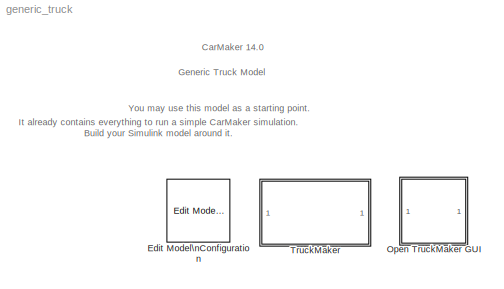
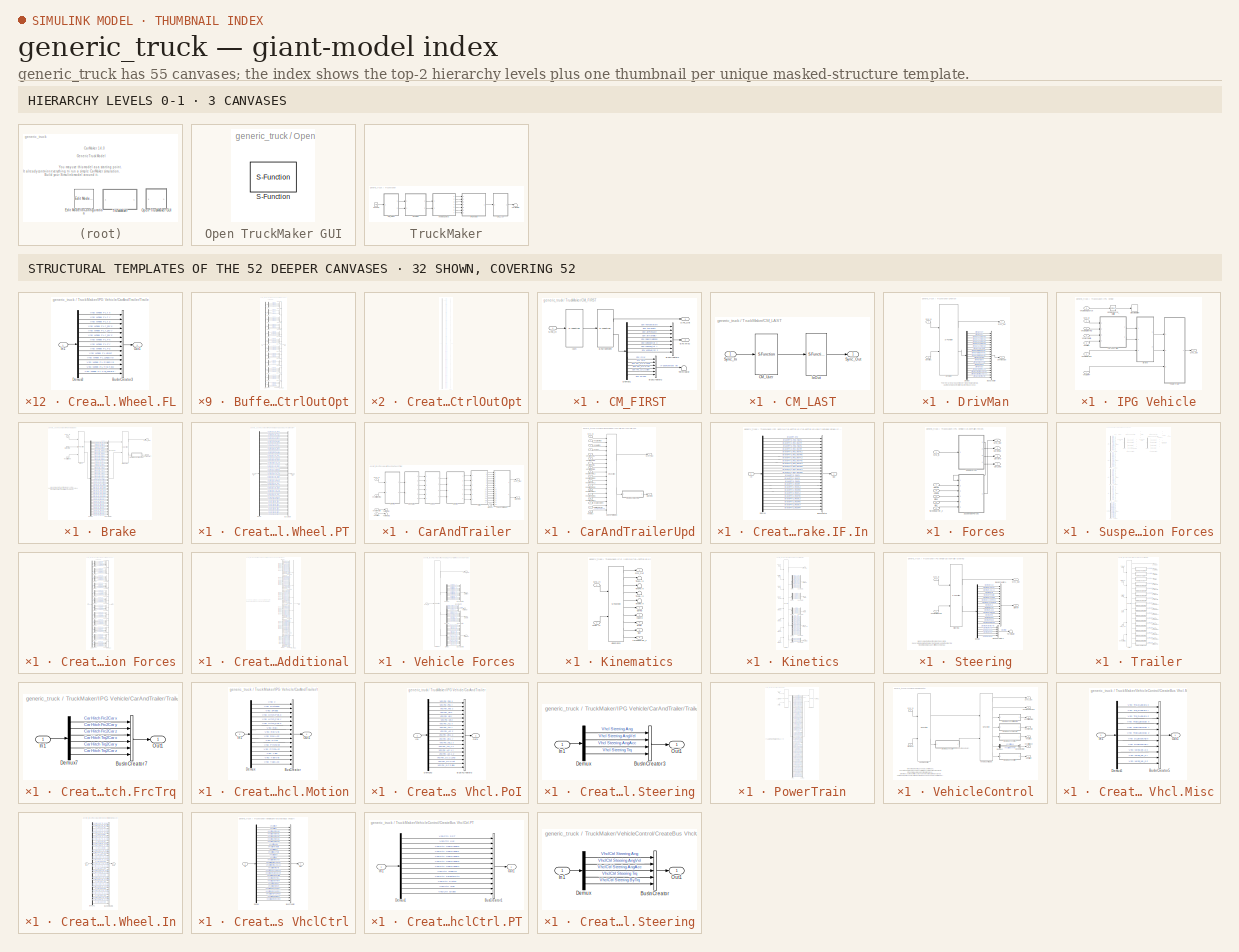
[diagram: thumbnail index - top-2 hierarchy levels (3 canvases) + 32 structural-template representatives of the remaining 52 canvases]
MODEL generic_truck
KIND model
BLOCK [Reference] Edit Model\nConfiguration  REF=TruckMaker4SL/Edit Model\nConfiguration
  MultithreadedSim = auto
  Ports = []
  SFunctionModules = ''
  SID = 758
  SourceBlock = TruckMaker4SL/Edit Model\nConfiguration
BLOCK [SubSystem] Open TruckMaker GUI
  LoadFcn = if ~length(which('cmself')), cmenv; end
  OpenFcn = cmblockmagic('gui_fix_display'); TM_Simulink
  Ports = []
  RequestExecContextInheritance = off
  SID = 759
BLOCK [S-Function] Open TruckMaker GUI/S-Function
  EnableBusSupport = off
  FunctionName = cm_gui
  Ports = []
  SFcnIsStateOwnerBlock = off
  SFunctionDeploymentMode = off
  SID = 761
BLOCK [SubSystem] TruckMaker
  Ports = []
  RequestExecContextInheritance = off
  SID = 2126
  TreatAsAtomicUnit = on
BLOCK [SubSystem] TruckMaker/CM_FIRST
  Ports = [1, 2]
  RequestExecContextInheritance = off
  SID = 2127
BLOCK [BusCreator] TruckMaker/CM_FIRST/BusCreator1
  InheritFromInputs = on
  Inputs = 8
  Ports = [8, 1]
  SID = 2129
BLOCK [BusCreator] TruckMaker/CM_FIRST/BusCreator2
  InheritFromInputs = on
  Inputs = 6
  Ports = [6, 1]
  SID = 2130
BLOCK [Demux] TruckMaker/CM_FIRST/Demux1
  DisplayOption = none
  Outputs = 14
  Ports = [1, 14]
  SID = 2131
BLOCK [Outport] TruckMaker/CM_FIRST/Env.Misc
  Port = 2
  SID = 2136
  VectorParamsAs1DForOutWhenUnconnected = off
BLOCK [S-Function] TruckMaker/CM_FIRST/Environment
  EnableBusSupport = off
  FunctionName = TM_Sfun
  Parameters = 'Environment'
  Ports = [1, 2]
  SFcnIsStateOwnerBlock = off
  SFunctionDeploymentMode = off
  SID = 2132
BLOCK [S-Function] TruckMaker/CM_FIRST/IoIn
  EnableBusSupport = off
  FunctionName = TM_Sfun
  Parameters = 'IoIn'
  Ports = [1, 1]
  SFcnIsStateOwnerBlock = off
  SFunctionDeploymentMode = off
  SID = 2133
BLOCK [Inport] TruckMaker/CM_FIRST/Sync_In
  SID = 2128
BLOCK [Outport] TruckMaker/CM_FIRST/Sync_Out
  SID = 2135
  VectorParamsAs1DForOutWhenUnconnected = off
BLOCK [Terminator] TruckMaker/CM_FIRST/Terminator
  SID = 2134
BLOCK [SubSystem] TruckMaker/CM_LAST
  Ports = [1, 1]
  RequestExecContextInheritance = off
  SID = 2137
BLOCK [S-Function] TruckMaker/CM_LAST/CM_User
  EnableBusSupport = off
  FunctionName = TM_Sfun
  Parameters = 'CM_User'
  Ports = [1, 1]
  SFcnIsStateOwnerBlock = off
  SFunctionDeploymentMode = off
  SID = 2139
BLOCK [S-Function] TruckMaker/CM_LAST/IoOut
  EnableBusSupport = off
  FunctionName = TM_Sfun
  Parameters = 'IoOut'
  Ports = [1, 1]
  SFcnIsStateOwnerBlock = off
  SFunctionDeploymentMode = off
  SID = 2140
BLOCK [Inport] TruckMaker/CM_LAST/Sync_In
  SID = 2138
BLOCK [Outport] TruckMaker/CM_LAST/Sync_Out
  SID = 2141
  VectorParamsAs1DForOutWhenUnconnected = off
BLOCK [SubSystem] TruckMaker/DrivMan
  Ports = [2, 2]
  RequestExecContextInheritance = off
  SID = 2142
BLOCK [BusCreator] TruckMaker/DrivMan/BusCreator
  InheritFromInputs = on
  Inputs = 20
  Ports = [20, 1]
  SID = 2145
BLOCK [Demux] TruckMaker/DrivMan/Demux
  DisplayOption = none
  Outputs = 20
  Ports = [1, 20]
  SID = 2146
BLOCK [S-Function] TruckMaker/DrivMan/DrivMan
  EnableBusSupport = off
  FunctionName = TM_Sfun
  Parameters = 'DrivMan'
  Ports = [2, 2]
  SFcnIsStateOwnerBlock = off
  SFunctionDeploymentMode = off
  SID = 2147
BLOCK [Outport] TruckMaker/DrivMan/DrivMan.Out
  Port = 2
  SID = 2149
  VectorParamsAs1DForOutWhenUnconnected = off
BLOCK [Inport] TruckMaker/DrivMan/Env.Misc
  Port = 2
  SID = 2144
BLOCK [Inport] TruckMaker/DrivMan/Sync_In
  SID = 2143
BLOCK [Outport] TruckMaker/DrivMan/Sync_Out
  SID = 2148
  VectorParamsAs1DForOutWhenUnconnected = off
BLOCK [Ground] TruckMaker/Ground
  SID = 2151
BLOCK [SubSystem] TruckMaker/IPG Vehicle
  Ports = [7, 1]
  RequestExecContextInheritance = off
  SID = 2152
  TreatAsAtomicUnit = on
BLOCK [SubSystem] TruckMaker/IPG Vehicle/Brake
  Ports = [3, 2]
  RequestExecContextInheritance = off
  SID = 2600
BLOCK [S-Function] TruckMaker/IPG Vehicle/Brake/Brake
  EnableBusSupport = off
  FunctionName = TM_Sfun
  Parameters = 'Brake'
  Ports = [3, 2]
  SFcnIsStateOwnerBlock = off
  SFunctionDeploymentMode = off
  SID = 2604
BLOCK [Inport] TruckMaker/IPG Vehicle/Brake/Brake.IF.In
  Port = 2
  SID = 2602
BLOCK [S-Function] TruckMaker/IPG Vehicle/Brake/BrakeUpd
  EnableBusSupport = off
  FunctionName = TM_Sfun
  Parameters = 'BrakeUpd'
  Ports = [2, 2]
  SFcnIsStateOwnerBlock = off
  SFunctionDeploymentMode = off
  SID = 2605
BLOCK [BusCreator] TruckMaker/IPG Vehicle/Brake/BusCreator
  InheritFromInputs = on
  Inputs = 48
  Ports = [48, 1]
  SID = 2606
BLOCK [SubSystem] TruckMaker/IPG Vehicle/Brake/CreateBus Vhcl.Wheel.PT
  Ports = [1, 1]
  RequestExecContextInheritance = off
  SID = 2607
BLOCK [BusCreator] TruckMaker/IPG Vehicle/Brake/CreateBus Vhcl.Wheel.PT/BusCreator
  InheritFromInputs = on
  Inputs = 60
  Ports = [60, 1]
  SID = 2609
BLOCK [Demux] TruckMaker/IPG Vehicle/Brake/CreateBus Vhcl.Wheel.PT/Demux
  DisplayOption = none
  Outputs = 60
  Ports = [1, 60]
  SID = 2610
BLOCK [Inport] TruckMaker/IPG Vehicle/Brake/CreateBus Vhcl.Wheel.PT/In
  SID = 2608
BLOCK [Outport] TruckMaker/IPG Vehicle/Brake/CreateBus Vhcl.Wheel.PT/Out
  SID = 2611
  VectorParamsAs1DForOutWhenUnconnected = off
BLOCK [Demux] TruckMaker/IPG Vehicle/Brake/Demux
  DisplayOption = none
  Outputs = 48
  Ports = [1, 48]
  SID = 2612
BLOCK [Inport] TruckMaker/IPG Vehicle/Brake/Sync_In
  SID = 2601
BLOCK [Outport] TruckMaker/IPG Vehicle/Brake/Sync_Out
  SID = 2613
  VectorParamsAs1DForOutWhenUnconnected = off
BLOCK [Outport] TruckMaker/IPG Vehicle/Brake/Vhcl.Wheel.PT
  Port = 2
  SID = 2614
  VectorParamsAs1DForOutWhenUnconnected = off
BLOCK [Inport] TruckMaker/IPG Vehicle/Brake/VhclCtrl.Brake
  Port = 3
  SID = 2603
BLOCK [SubSystem] TruckMaker/IPG Vehicle/CarAndTrailer
  Ports = [4, 2]
  RequestExecContextInheritance = off
  SID = 2622
BLOCK [Outport] TruckMaker/IPG Vehicle/CarAndTrailer/Brake.IF.In
  Port = 2
  SID = 3259
  VectorParamsAs1DForOutWhenUnconnected = off
BLOCK [SubSystem] TruckMaker/IPG Vehicle/CarAndTrailer/CarAndTrailerUpd
  Ports = [18, 2]
  RequestExecContextInheritance = off
  SID = 2627
BLOCK [Outport] TruckMaker/IPG Vehicle/CarAndTrailer/CarAndTrailerUpd/Brake.IF.In
  Port = 2
  SID = 2653
  VectorParamsAs1DForOutWhenUnconnected = off
BLOCK [Inport] TruckMaker/IPG Vehicle/CarAndTrailer/CarAndTrailerUpd/Car.Hitch.FrcTrq
  Port = 17
  SID = 2644
BLOCK [S-Function] TruckMaker/IPG Vehicle/CarAndTrailer/CarAndTrailerUpd/CarAndTrailerUpd
  EnableBusSupport = off
  FunctionName = TM_Sfun
  Parameters = 'CarAndTrUpd'
  Ports = [18, 2]
  SFcnIsStateOwnerBlock = off
  SFunctionDeploymentMode = off
  SID = 2646
BLOCK [SubSystem] TruckMaker/IPG Vehicle/CarAndTrailer/CarAndTrailerUpd/CreateBus Brake.IF.In
  Ports = [1, 1]
  RequestExecContextInheritance = off
  SID = 2647
BLOCK [BusCreator] TruckMaker/IPG Vehicle/CarAndTrailer/CarAndTrailerUpd/CreateBus Brake.IF.In/BusCreator
  InheritFromInputs = on
  Inputs = 25
  Ports = [25, 1]
  SID = 2649
BLOCK [Demux] TruckMaker/IPG Vehicle/CarAndTrailer/CarAndTrailerUpd/CreateBus Brake.IF.In/Demux
  DisplayOption = none
  Outputs = 25
  Ports = [1, 25]
  SID = 2650
BLOCK [Inport] TruckMaker/IPG Vehicle/CarAndTrailer/CarAndTrailerUpd/CreateBus Brake.IF.In/In
  SID = 2648
BLOCK [Outport] TruckMaker/IPG Vehicle/CarAndTrailer/CarAndTrailerUpd/CreateBus Brake.IF.In/Out
  SID = 2651
  VectorParamsAs1DForOutWhenUnconnected = off
BLOCK [Inport] TruckMaker/IPG Vehicle/CarAndTrailer/CarAndTrailerUpd/Sync_In
  SID = 2628
BLOCK [Outport] TruckMaker/IPG Vehicle/CarAndTrailer/CarAndTrailerUpd/Sync_Out
  SID = 2652
  VectorParamsAs1DForOutWhenUnconnected = off
BLOCK [Inport] TruckMaker/IPG Vehicle/CarAndTrailer/CarAndTrailerUpd/Vhcl.Fr1A
  Port = 18
  SID = 2645
BLOCK [Inport] TruckMaker/IPG Vehicle/CarAndTrailer/CarAndTrailerUpd/Vhcl.Motion
  Port = 3
  SID = 2630
BLOCK [Inport] TruckMaker/IPG Vehicle/CarAndTrailer/CarAndTrailerUpd/Vhcl.PoI
  Port = 4
  SID = 2631
BLOCK [Inport] TruckMaker/IPG Vehicle/CarAndTrailer/CarAndTrailerUpd/Vhcl.Steering
  Port = 2
  SID = 2629
BLOCK [Inport] TruckMaker/IPG Vehicle/CarAndTrailer/CarAndTrailerUpd/Vhcl.Wheel.FL
  Port = 5
  SID = 2632
BLOCK [Inport] TruckMaker/IPG Vehicle/CarAndTrailer/CarAndTrailerUpd/Vhcl.Wheel.FL2
  Port = 11
  SID = 2638
BLOCK [Inport] TruckMaker/IPG Vehicle/CarAndTrailer/CarAndTrailerUpd/Vhcl.Wheel.FR
  Port = 6
  SID = 2633
BLOCK [Inport] TruckMaker/IPG Vehicle/CarAndTrailer/CarAndTrailerUpd/Vhcl.Wheel.FR2
  Port = 12
  SID = 2639
BLOCK [Inport] TruckMaker/IPG Vehicle/CarAndTrailer/CarAndTrailerUpd/Vhcl.Wheel.RL
  Port = 7
  SID = 2634
BLOCK [Inport] TruckMaker/IPG Vehicle/CarAndTrailer/CarAndTrailerUpd/Vhcl.Wheel.RL2
  Port = 9
  SID = 2636
BLOCK [Inport] TruckMaker/IPG Vehicle/CarAndTrailer/CarAndTrailerUpd/Vhcl.Wheel.RL3
  Port = 13
  SID = 2640
BLOCK [Inport] TruckMaker/IPG Vehicle/CarAndTrailer/CarAndTrailerUpd/Vhcl.Wheel.RL4
  Port = 15
  SID = 2642
BLOCK [Inport] TruckMaker/IPG Vehicle/CarAndTrailer/CarAndTrailerUpd/Vhcl.Wheel.RR
  Port = 8
  SID = 2635
BLOCK [Inport] TruckMaker/IPG Vehicle/CarAndTrailer/CarAndTrailerUpd/Vhcl.Wheel.RR2
  Port = 10
  SID = 2637
BLOCK [Inport] TruckMaker/IPG Vehicle/CarAndTrailer/CarAndTrailerUpd/Vhcl.Wheel.RR3
  Port = 14
  SID = 2641
BLOCK [Inport] TruckMaker/IPG Vehicle/CarAndTrailer/CarAndTrailerUpd/Vhcl.Wheel.RR4
  Port = 16
  SID = 2643
BLOCK [SubSystem] TruckMaker/IPG Vehicle/CarAndTrailer/Forces
  Ports = [6, 4]
  RequestExecContextInheritance = off
  SID = 2654
BLOCK [Outport] TruckMaker/IPG Vehicle/CarAndTrailer/Forces/Car.Aero
  Port = 3
  SID = 3097
  VectorParamsAs1DForOutWhenUnconnected = off
BLOCK [Outport] TruckMaker/IPG Vehicle/CarAndTrailer/Forces/Car.Load
  Port = 4
  SID = 3098
  VectorParamsAs1DForOutWhenUnconnected = off
BLOCK [Outport] TruckMaker/IPG Vehicle/CarAndTrailer/Forces/Car.Virtual
  Port = 2
  SID = 3096
  VectorParamsAs1DForOutWhenUnconnected = off
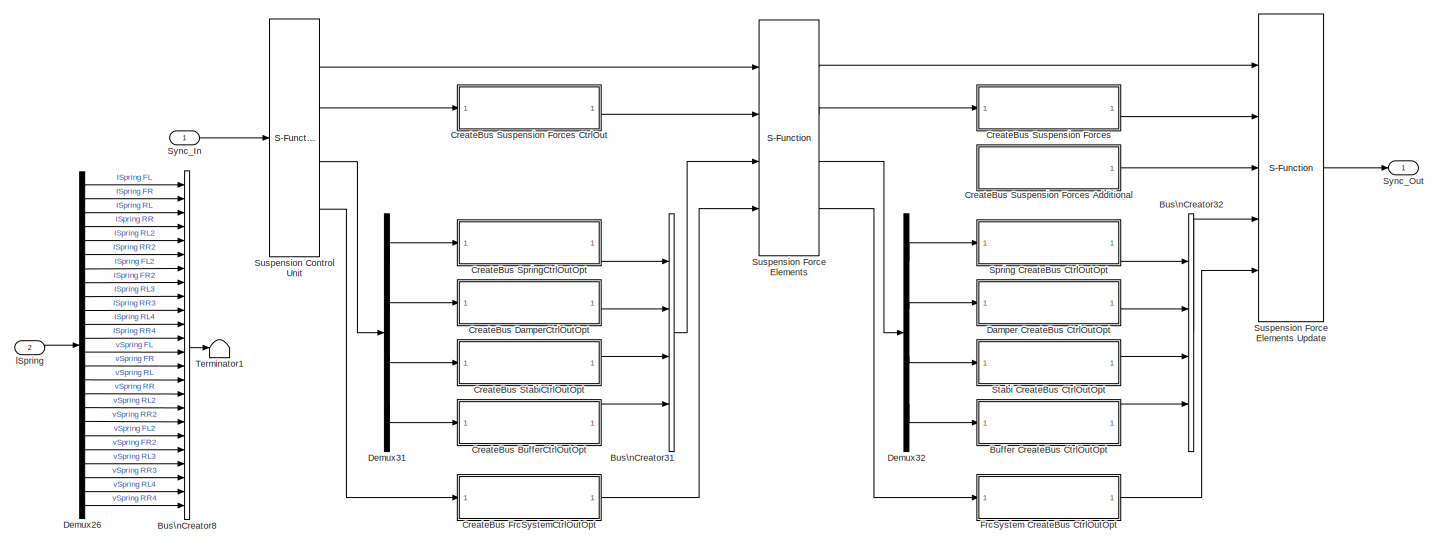
[diagram: TruckMaker/IPG Vehicle/CarAndTrailer/Forces/Suspension Forces - part 1/2, full width, top band]
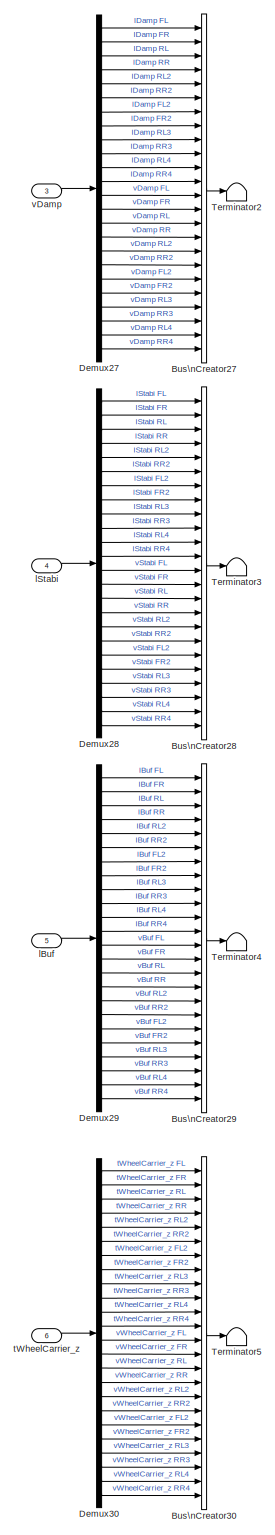
[diagram: TruckMaker/IPG Vehicle/CarAndTrailer/Forces/Suspension Forces - part 2/2, left side, full height]
BLOCK [SubSystem] TruckMaker/IPG Vehicle/CarAndTrailer/Forces/Suspension Forces
  Ports = [6, 1]
  RequestExecContextInheritance = off
  SID = 3260
BLOCK [SubSystem] TruckMaker/IPG Vehicle/CarAndTrailer/Forces/Suspension Forces/Buffer CreateBus CtrlOutOpt
  Ports = [1, 1]
  RequestExecContextInheritance = off
  SID = 3267
BLOCK [BusCreator] TruckMaker/IPG Vehicle/CarAndTrailer/Forces/Suspension Forces/Buffer CreateBus CtrlOutOpt/Bus\nCreator
  DisplayOption = bar
  InheritFromInputs = on
  Inputs = 4
  Ports = [4, 1]
  SID = 3269
BLOCK [BusCreator] TruckMaker/IPG Vehicle/CarAndTrailer/Forces/Suspension Forces/Buffer CreateBus CtrlOutOpt/Bus\nCreator1
  DisplayOption = bar
  InheritFromInputs = on
  Inputs = 4
  Ports = [4, 1]
  SID = 3270
BLOCK [BusCreator] TruckMaker/IPG Vehicle/CarAndTrailer/Forces/Suspension Forces/Buffer CreateBus CtrlOutOpt/Bus\nCreator11
  DisplayOption = bar
  InheritFromInputs = on
  Inputs = 4
  Ports = [4, 1]
  SID = 3271
BLOCK [BusCreator] TruckMaker/IPG Vehicle/CarAndTrailer/Forces/Suspension Forces/Buffer CreateBus CtrlOutOpt/Bus\nCreator12
  DisplayOption = bar
  InheritFromInputs = on
  Inputs = 4
  Ports = [4, 1]
  SID = 3272
BLOCK [BusCreator] TruckMaker/IPG Vehicle/CarAndTrailer/Forces/Suspension Forces/Buffer CreateBus CtrlOutOpt/Bus\nCreator13
  DisplayOption = bar
  InheritFromInputs = on
  Inputs = 4
  Ports = [4, 1]
  SID = 3273
BLOCK [BusCreator] TruckMaker/IPG Vehicle/CarAndTrailer/Forces/Suspension Forces/Buffer CreateBus CtrlOutOpt/Bus\nCreator14
  DisplayOption = bar
  InheritFromInputs = on
  Inputs = 4
  Ports = [4, 1]
  SID = 3274
BLOCK [BusCreator] TruckMaker/IPG Vehicle/CarAndTrailer/Forces/Suspension Forces/Buffer CreateBus CtrlOutOpt/Bus\nCreator19
  DisplayOption = bar
  InheritFromInputs = on
  Inputs = 4
  Ports = [4, 1]
  SID = 3275
BLOCK [BusCreator] TruckMaker/IPG Vehicle/CarAndTrailer/Forces/Suspension Forces/Buffer CreateBus CtrlOutOpt/Bus\nCreator2
  DisplayOption = bar
  InheritFromInputs = on
  Inputs = 4
  Ports = [4, 1]
  SID = 3276
BLOCK [BusCreator] TruckMaker/IPG Vehicle/CarAndTrailer/Forces/Suspension Forces/Buffer CreateBus CtrlOutOpt/Bus\nCreator20
  DisplayOption = bar
  InheritFromInputs = on
  Inputs = 4
  Ports = [4, 1]
  SID = 3277
BLOCK [BusCreator] TruckMaker/IPG Vehicle/CarAndTrailer/Forces/Suspension Forces/Buffer CreateBus CtrlOutOpt/Bus\nCreator21
  DisplayOption = bar
  InheritFromInputs = on
  Inputs = 4
  Ports = [4, 1]
  SID = 3278
BLOCK [BusCreator] TruckMaker/IPG Vehicle/CarAndTrailer/Forces/Suspension Forces/Buffer CreateBus CtrlOutOpt/Bus\nCreator22
  DisplayOption = bar
  InheritFromInputs = on
  Inputs = 4
  Ports = [4, 1]
  SID = 3279
BLOCK [BusCreator] TruckMaker/IPG Vehicle/CarAndTrailer/Forces/Suspension Forces/Buffer CreateBus CtrlOutOpt/Bus\nCreator3
  DisplayOption = bar
  InheritFromInputs = on
  Inputs = 4
  Ports = [4, 1]
  SID = 3280
BLOCK [BusCreator] TruckMaker/IPG Vehicle/CarAndTrailer/Forces/Suspension Forces/Buffer CreateBus CtrlOutOpt/Bus\nCreator9
  DisplayOption = bar
  InheritFromInputs = on
  Inputs = 12
  Ports = [12, 1]
  SID = 3281
BLOCK [Demux] TruckMaker/IPG Vehicle/CarAndTrailer/Forces/Suspension Forces/Buffer CreateBus CtrlOutOpt/Demux
  Outputs = 12
  Ports = [1, 12]
  SID = 3282
BLOCK [Demux] TruckMaker/IPG Vehicle/CarAndTrailer/Forces/Suspension Forces/Buffer CreateBus CtrlOutOpt/Demux10
  Ports = [1, 4]
  SID = 3283
BLOCK [Demux] TruckMaker/IPG Vehicle/CarAndTrailer/Forces/Suspension Forces/Buffer CreateBus CtrlOutOpt/Demux11
  Ports = [1, 4]
  SID = 3284
BLOCK [Demux] TruckMaker/IPG Vehicle/CarAndTrailer/Forces/Suspension Forces/Buffer CreateBus CtrlOutOpt/Demux12
  Ports = [1, 4]
  SID = 3285
BLOCK [Demux] TruckMaker/IPG Vehicle/CarAndTrailer/Forces/Suspension Forces/Buffer CreateBus CtrlOutOpt/Demux13
  Ports = [1, 4]
  SID = 3286
BLOCK [Demux] TruckMaker/IPG Vehicle/CarAndTrailer/Forces/Suspension Forces/Buffer CreateBus CtrlOutOpt/Demux18
  Ports = [1, 4]
  SID = 3287
BLOCK [Demux] TruckMaker/IPG Vehicle/CarAndTrailer/Forces/Suspension Forces/Buffer CreateBus CtrlOutOpt/Demux19
  Ports = [1, 4]
  SID = 3288
BLOCK [Demux] TruckMaker/IPG Vehicle/CarAndTrailer/Forces/Suspension Forces/Buffer CreateBus CtrlOutOpt/Demux2
  Ports = [1, 4]
  SID = 3289
BLOCK [Demux] TruckMaker/IPG Vehicle/CarAndTrailer/Forces/Suspension Forces/Buffer CreateBus CtrlOutOpt/Demux20
  Ports = [1, 4]
  SID = 3290
BLOCK [Demux] TruckMaker/IPG Vehicle/CarAndTrailer/Forces/Suspension Forces/Buffer CreateBus CtrlOutOpt/Demux21
  Ports = [1, 4]
  SID = 3291
BLOCK [Demux] TruckMaker/IPG Vehicle/CarAndTrailer/Forces/Suspension Forces/Buffer CreateBus CtrlOutOpt/Demux3
  Ports = [1, 4]
  SID = 3292
BLOCK [Demux] TruckMaker/IPG Vehicle/CarAndTrailer/Forces/Suspension Forces/Buffer CreateBus CtrlOutOpt/Demux4
  Ports = [1, 4]
  SID = 3293
BLOCK [Demux] TruckMaker/IPG Vehicle/CarAndTrailer/Forces/Suspension Forces/Buffer CreateBus CtrlOutOpt/Demux5
  Ports = [1, 4]
  SID = 3294
BLOCK [Inport] TruckMaker/IPG Vehicle/CarAndTrailer/Forces/Suspension Forces/Buffer CreateBus CtrlOutOpt/In
  SID = 3268
BLOCK [Outport] TruckMaker/IPG Vehicle/CarAndTrailer/Forces/Suspension Forces/Buffer CreateBus CtrlOutOpt/Out
  SID = 3295
BLOCK [BusCreator] TruckMaker/IPG Vehicle/CarAndTrailer/Forces/Suspension Forces/Bus\nCreator27
  DisplayOption = bar
  InheritFromInputs = on
  Inputs = 24
  Ports = [24, 1]
  SID = 3297
BLOCK [BusCreator] TruckMaker/IPG Vehicle/CarAndTrailer/Forces/Suspension Forces/Bus\nCreator28
  DisplayOption = bar
  InheritFromInputs = on
  Inputs = 24
  Ports = [24, 1]
  SID = 3298
BLOCK [BusCreator] TruckMaker/IPG Vehicle/CarAndTrailer/Forces/Suspension Forces/Bus\nCreator29
  DisplayOption = bar
  InheritFromInputs = on
  Inputs = 24
  Ports = [24, 1]
  SID = 3299
BLOCK [BusCreator] TruckMaker/IPG Vehicle/CarAndTrailer/Forces/Suspension Forces/Bus\nCreator30
  DisplayOption = bar
  InheritFromInputs = on
  Inputs = 24
  Ports = [24, 1]
  SID = 3300
BLOCK [BusCreator] TruckMaker/IPG Vehicle/CarAndTrailer/Forces/Suspension Forces/Bus\nCreator31
  DisplayOption = bar
  InheritFromInputs = on
  Inputs = 4
  Ports = [4, 1]
  SID = 3301
BLOCK [BusCreator] TruckMaker/IPG Vehicle/CarAndTrailer/Forces/Suspension Forces/Bus\nCreator32
  DisplayOption = bar
  InheritFromInputs = on
  Inputs = 4
  Ports = [4, 1]
  SID = 3302
BLOCK [BusCreator] TruckMaker/IPG Vehicle/CarAndTrailer/Forces/Suspension Forces/Bus\nCreator8
  DisplayOption = bar
  InheritFromInputs = on
  Inputs = 24
  Ports = [24, 1]
  SID = 3303
BLOCK [SubSystem] TruckMaker/IPG Vehicle/CarAndTrailer/Forces/Suspension Forces/CreateBus BufferCtrlOutOpt
  Ports = [1, 1]
  RequestExecContextInheritance = off
  SID = 3304
BLOCK [BusCreator] TruckMaker/IPG Vehicle/CarAndTrailer/Forces/Suspension Forces/CreateBus BufferCtrlOutOpt/Bus\nCreator
  DisplayOption = bar
  InheritFromInputs = on
  Inputs = 4
  Ports = [4, 1]
  SID = 3306
BLOCK [BusCreator] TruckMaker/IPG Vehicle/CarAndTrailer/Forces/Suspension Forces/CreateBus BufferCtrlOutOpt/Bus\nCreator1
  DisplayOption = bar
  InheritFromInputs = on
  Inputs = 4
  Ports = [4, 1]
  SID = 3307
BLOCK [BusCreator] TruckMaker/IPG Vehicle/CarAndTrailer/Forces/Suspension Forces/CreateBus BufferCtrlOutOpt/Bus\nCreator11
  DisplayOption = bar
  InheritFromInputs = on
  Inputs = 4
  Ports = [4, 1]
  SID = 3308
BLOCK [BusCreator] TruckMaker/IPG Vehicle/CarAndTrailer/Forces/Suspension Forces/CreateBus BufferCtrlOutOpt/Bus\nCreator12
  DisplayOption = bar
  InheritFromInputs = on
  Inputs = 4
  Ports = [4, 1]
  SID = 3309
BLOCK [BusCreator] TruckMaker/IPG Vehicle/CarAndTrailer/Forces/Suspension Forces/CreateBus BufferCtrlOutOpt/Bus\nCreator13
  DisplayOption = bar
  InheritFromInputs = on
  Inputs = 4
  Ports = [4, 1]
  SID = 3310
BLOCK [BusCreator] TruckMaker/IPG Vehicle/CarAndTrailer/Forces/Suspension Forces/CreateBus BufferCtrlOutOpt/Bus\nCreator14
  DisplayOption = bar
  InheritFromInputs = on
  Inputs = 4
  Ports = [4, 1]
  SID = 3311
BLOCK [BusCreator] TruckMaker/IPG Vehicle/CarAndTrailer/Forces/Suspension Forces/CreateBus BufferCtrlOutOpt/Bus\nCreator19
  DisplayOption = bar
  InheritFromInputs = on
  Inputs = 4
  Ports = [4, 1]
  SID = 3312
BLOCK [BusCreator] TruckMaker/IPG Vehicle/CarAndTrailer/Forces/Suspension Forces/CreateBus BufferCtrlOutOpt/Bus\nCreator2
  DisplayOption = bar
  InheritFromInputs = on
  Inputs = 4
  Ports = [4, 1]
  SID = 3313
BLOCK [BusCreator] TruckMaker/IPG Vehicle/CarAndTrailer/Forces/Suspension Forces/CreateBus BufferCtrlOutOpt/Bus\nCreator20
  DisplayOption = bar
  InheritFromInputs = on
  Inputs = 4
  Ports = [4, 1]
  SID = 3314
BLOCK [BusCreator] TruckMaker/IPG Vehicle/CarAndTrailer/Forces/Suspension Forces/CreateBus BufferCtrlOutOpt/Bus\nCreator21
  DisplayOption = bar
  InheritFromInputs = on
  Inputs = 4
  Ports = [4, 1]
  SID = 3315
BLOCK [BusCreator] TruckMaker/IPG Vehicle/CarAndTrailer/Forces/Suspension Forces/CreateBus BufferCtrlOutOpt/Bus\nCreator22
  DisplayOption = bar
  InheritFromInputs = on
  Inputs = 4
  Ports = [4, 1]
  SID = 3316
BLOCK [BusCreator] TruckMaker/IPG Vehicle/CarAndTrailer/Forces/Suspension Forces/CreateBus BufferCtrlOutOpt/Bus\nCreator3
  DisplayOption = bar
  InheritFromInputs = on
  Inputs = 4
  Ports = [4, 1]
  SID = 3317
BLOCK [BusCreator] TruckMaker/IPG Vehicle/CarAndTrailer/Forces/Suspension Forces/CreateBus BufferCtrlOutOpt/Bus\nCreator9
  DisplayOption = bar
  InheritFromInputs = on
  Inputs = 12
  Ports = [12, 1]
  SID = 3318
BLOCK [Demux] TruckMaker/IPG Vehicle/CarAndTrailer/Forces/Suspension Forces/CreateBus BufferCtrlOutOpt/Demux
  Outputs = 12
  Ports = [1, 12]
  SID = 3319
BLOCK [Demux] TruckMaker/IPG Vehicle/CarAndTrailer/Forces/Suspension Forces/CreateBus BufferCtrlOutOpt/Demux10
  Ports = [1, 4]
  SID = 3320
BLOCK [Demux] TruckMaker/IPG Vehicle/CarAndTrailer/Forces/Suspension Forces/CreateBus BufferCtrlOutOpt/Demux11
  Ports = [1, 4]
  SID = 3321
BLOCK [Demux] TruckMaker/IPG Vehicle/CarAndTrailer/Forces/Suspension Forces/CreateBus BufferCtrlOutOpt/Demux12
  Ports = [1, 4]
  SID = 3322
BLOCK [Demux] TruckMaker/IPG Vehicle/CarAndTrailer/Forces/Suspension Forces/CreateBus BufferCtrlOutOpt/Demux13
  Ports = [1, 4]
  SID = 3323
BLOCK [Demux] TruckMaker/IPG Vehicle/CarAndTrailer/Forces/Suspension Forces/CreateBus BufferCtrlOutOpt/Demux18
  Ports = [1, 4]
  SID = 3324
BLOCK [Demux] TruckMaker/IPG Vehicle/CarAndTrailer/Forces/Suspension Forces/CreateBus BufferCtrlOutOpt/Demux19
  Ports = [1, 4]
  SID = 3325
BLOCK [Demux] TruckMaker/IPG Vehicle/CarAndTrailer/Forces/Suspension Forces/CreateBus BufferCtrlOutOpt/Demux2
  Ports = [1, 4]
  SID = 3326
BLOCK [Demux] TruckMaker/IPG Vehicle/CarAndTrailer/Forces/Suspension Forces/CreateBus BufferCtrlOutOpt/Demux20
  Ports = [1, 4]
  SID = 3327
BLOCK [Demux] TruckMaker/IPG Vehicle/CarAndTrailer/Forces/Suspension Forces/CreateBus BufferCtrlOutOpt/Demux21
  Ports = [1, 4]
  SID = 3328
BLOCK [Demux] TruckMaker/IPG Vehicle/CarAndTrailer/Forces/Suspension Forces/CreateBus BufferCtrlOutOpt/Demux3
  Ports = [1, 4]
  SID = 3329
BLOCK [Demux] TruckMaker/IPG Vehicle/CarAndTrailer/Forces/Suspension Forces/CreateBus BufferCtrlOutOpt/Demux4
  Ports = [1, 4]
  SID = 3330
BLOCK [Demux] TruckMaker/IPG Vehicle/CarAndTrailer/Forces/Suspension Forces/CreateBus BufferCtrlOutOpt/Demux5
  Ports = [1, 4]
  SID = 3331
BLOCK [Inport] TruckMaker/IPG Vehicle/CarAndTrailer/Forces/Suspension Forces/CreateBus BufferCtrlOutOpt/In
  SID = 3305
BLOCK [Outport] TruckMaker/IPG Vehicle/CarAndTrailer/Forces/Suspension Forces/CreateBus BufferCtrlOutOpt/Out
  SID = 3332
BLOCK [SubSystem] TruckMaker/IPG Vehicle/CarAndTrailer/Forces/Suspension Forces/CreateBus DamperCtrlOutOpt
  Ports = [1, 1]
  RequestExecContextInheritance = off
  SID = 3334
BLOCK [BusCreator] TruckMaker/IPG Vehicle/CarAndTrailer/Forces/Suspension Forces/CreateBus DamperCtrlOutOpt/Bus\nCreator
  DisplayOption = bar
  InheritFromInputs = on
  Inputs = 4
  Ports = [4, 1]
  SID = 3336
BLOCK [BusCreator] TruckMaker/IPG Vehicle/CarAndTrailer/Forces/Suspension Forces/CreateBus DamperCtrlOutOpt/Bus\nCreator1
  DisplayOption = bar
  InheritFromInputs = on
  Inputs = 4
  Ports = [4, 1]
  SID = 3337
BLOCK [BusCreator] TruckMaker/IPG Vehicle/CarAndTrailer/Forces/Suspension Forces/CreateBus DamperCtrlOutOpt/Bus\nCreator11
  DisplayOption = bar
  InheritFromInputs = on
  Inputs = 4
  Ports = [4, 1]
  SID = 3338
BLOCK [BusCreator] TruckMaker/IPG Vehicle/CarAndTrailer/Forces/Suspension Forces/CreateBus DamperCtrlOutOpt/Bus\nCreator12
  DisplayOption = bar
  InheritFromInputs = on
  Inputs = 4
  Ports = [4, 1]
  SID = 3339
BLOCK [BusCreator] TruckMaker/IPG Vehicle/CarAndTrailer/Forces/Suspension Forces/CreateBus DamperCtrlOutOpt/Bus\nCreator13
  DisplayOption = bar
  InheritFromInputs = on
  Inputs = 4
  Ports = [4, 1]
  SID = 3340
BLOCK [BusCreator] TruckMaker/IPG Vehicle/CarAndTrailer/Forces/Suspension Forces/CreateBus DamperCtrlOutOpt/Bus\nCreator14
  DisplayOption = bar
  InheritFromInputs = on
  Inputs = 4
  Ports = [4, 1]
  SID = 3341
BLOCK [BusCreator] TruckMaker/IPG Vehicle/CarAndTrailer/Forces/Suspension Forces/CreateBus DamperCtrlOutOpt/Bus\nCreator19
  DisplayOption = bar
  InheritFromInputs = on
  Inputs = 4
  Ports = [4, 1]
  SID = 3342
BLOCK [BusCreator] TruckMaker/IPG Vehicle/CarAndTrailer/Forces/Suspension Forces/CreateBus DamperCtrlOutOpt/Bus\nCreator2
  DisplayOption = bar
  InheritFromInputs = on
  Inputs = 4
  Ports = [4, 1]
  SID = 3343
BLOCK [BusCreator] TruckMaker/IPG Vehicle/CarAndTrailer/Forces/Suspension Forces/CreateBus DamperCtrlOutOpt/Bus\nCreator20
  DisplayOption = bar
  InheritFromInputs = on
  Inputs = 4
  Ports = [4, 1]
  SID = 3344
BLOCK [BusCreator] TruckMaker/IPG Vehicle/CarAndTrailer/Forces/Suspension Forces/CreateBus DamperCtrlOutOpt/Bus\nCreator21
  DisplayOption = bar
  InheritFromInputs = on
  Inputs = 4
  Ports = [4, 1]
  SID = 3345
BLOCK [BusCreator] TruckMaker/IPG Vehicle/CarAndTrailer/Forces/Suspension Forces/CreateBus DamperCtrlOutOpt/Bus\nCreator22
  DisplayOption = bar
  InheritFromInputs = on
  Inputs = 4
  Ports = [4, 1]
  SID = 3346
BLOCK [BusCreator] TruckMaker/IPG Vehicle/CarAndTrailer/Forces/Suspension Forces/CreateBus DamperCtrlOutOpt/Bus\nCreator3
  DisplayOption = bar
  InheritFromInputs = on
  Inputs = 4
  Ports = [4, 1]
  SID = 3347
BLOCK [BusCreator] TruckMaker/IPG Vehicle/CarAndTrailer/Forces/Suspension Forces/CreateBus DamperCtrlOutOpt/Bus\nCreator9
  DisplayOption = bar
  InheritFromInputs = on
  Inputs = 12
  Ports = [12, 1]
  SID = 3348
BLOCK [Demux] TruckMaker/IPG Vehicle/CarAndTrailer/Forces/Suspension Forces/CreateBus DamperCtrlOutOpt/Demux
  Outputs = 12
  Ports = [1, 12]
  SID = 3349
BLOCK [Demux] TruckMaker/IPG Vehicle/CarAndTrailer/Forces/Suspension Forces/CreateBus DamperCtrlOutOpt/Demux10
  Ports = [1, 4]
  SID = 3350
BLOCK [Demux] TruckMaker/IPG Vehicle/CarAndTrailer/Forces/Suspension Forces/CreateBus DamperCtrlOutOpt/Demux11
  Ports = [1, 4]
  SID = 3351
BLOCK [Demux] TruckMaker/IPG Vehicle/CarAndTrailer/Forces/Suspension Forces/CreateBus DamperCtrlOutOpt/Demux12
  Ports = [1, 4]
  SID = 3352
BLOCK [Demux] TruckMaker/IPG Vehicle/CarAndTrailer/Forces/Suspension Forces/CreateBus DamperCtrlOutOpt/Demux13
  Ports = [1, 4]
  SID = 3353
BLOCK [Demux] TruckMaker/IPG Vehicle/CarAndTrailer/Forces/Suspension Forces/CreateBus DamperCtrlOutOpt/Demux18
  Ports = [1, 4]
  SID = 3354
BLOCK [Demux] TruckMaker/IPG Vehicle/CarAndTrailer/Forces/Suspension Forces/CreateBus DamperCtrlOutOpt/Demux19
  Ports = [1, 4]
  SID = 3355
BLOCK [Demux] TruckMaker/IPG Vehicle/CarAndTrailer/Forces/Suspension Forces/CreateBus DamperCtrlOutOpt/Demux2
  Ports = [1, 4]
  SID = 3356
BLOCK [Demux] TruckMaker/IPG Vehicle/CarAndTrailer/Forces/Suspension Forces/CreateBus DamperCtrlOutOpt/Demux20
  Ports = [1, 4]
  SID = 3357
BLOCK [Demux] TruckMaker/IPG Vehicle/CarAndTrailer/Forces/Suspension Forces/CreateBus DamperCtrlOutOpt/Demux21
  Ports = [1, 4]
  SID = 3358
BLOCK [Demux] TruckMaker/IPG Vehicle/CarAndTrailer/Forces/Suspension Forces/CreateBus DamperCtrlOutOpt/Demux3
  Ports = [1, 4]
  SID = 3359
BLOCK [Demux] TruckMaker/IPG Vehicle/CarAndTrailer/Forces/Suspension Forces/CreateBus DamperCtrlOutOpt/Demux4
  Ports = [1, 4]
  SID = 3360
BLOCK [Demux] TruckMaker/IPG Vehicle/CarAndTrailer/Forces/Suspension Forces/CreateBus DamperCtrlOutOpt/Demux5
  Ports = [1, 4]
  SID = 3361
BLOCK [Inport] TruckMaker/IPG Vehicle/CarAndTrailer/Forces/Suspension Forces/CreateBus DamperCtrlOutOpt/In
  SID = 3335
BLOCK [Outport] TruckMaker/IPG Vehicle/CarAndTrailer/Forces/Suspension Forces/CreateBus DamperCtrlOutOpt/Out
  SID = 3362
BLOCK [SubSystem] TruckMaker/IPG Vehicle/CarAndTrailer/Forces/Suspension Forces/CreateBus FrcSystemCtrlOutOpt
  Ports = [1, 1]
  RequestExecContextInheritance = off
  SID = 3364
BLOCK [BusCreator] TruckMaker/IPG Vehicle/CarAndTrailer/Forces/Suspension Forces/CreateBus FrcSystemCtrlOutOpt/Bus\nCreator9
  DisplayOption = bar
  InheritFromInputs = on
  Inputs = 192
  Ports = [192, 1]
  SID = 3366
BLOCK [Demux] TruckMaker/IPG Vehicle/CarAndTrailer/Forces/Suspension Forces/CreateBus FrcSystemCtrlOutOpt/Demux
  Outputs = 192
  Ports = [1, 192]
  SID = 3367
BLOCK [Inport] TruckMaker/IPG Vehicle/CarAndTrailer/Forces/Suspension Forces/CreateBus FrcSystemCtrlOutOpt/In
  SID = 3365
BLOCK [Outport] TruckMaker/IPG Vehicle/CarAndTrailer/Forces/Suspension Forces/CreateBus FrcSystemCtrlOutOpt/Out
  SID = 3368
BLOCK [SubSystem] TruckMaker/IPG Vehicle/CarAndTrailer/Forces/Suspension Forces/CreateBus SpringCtrlOutOpt
  Ports = [1, 1]
  RequestExecContextInheritance = off
  SID = 3370
BLOCK [BusCreator] TruckMaker/IPG Vehicle/CarAndTrailer/Forces/Suspension Forces/CreateBus SpringCtrlOutOpt/Bus\nCreator
  DisplayOption = bar
  InheritFromInputs = on
  Inputs = 4
  Ports = [4, 1]
  SID = 3372
BLOCK [BusCreator] TruckMaker/IPG Vehicle/CarAndTrailer/Forces/Suspension Forces/CreateBus SpringCtrlOutOpt/Bus\nCreator1
  DisplayOption = bar
  InheritFromInputs = on
  Inputs = 4
  Ports = [4, 1]
  SID = 3373
BLOCK [BusCreator] TruckMaker/IPG Vehicle/CarAndTrailer/Forces/Suspension Forces/CreateBus SpringCtrlOutOpt/Bus\nCreator11
  DisplayOption = bar
  InheritFromInputs = on
  Inputs = 4
  Ports = [4, 1]
  SID = 3374
BLOCK [BusCreator] TruckMaker/IPG Vehicle/CarAndTrailer/Forces/Suspension Forces/CreateBus SpringCtrlOutOpt/Bus\nCreator12
  DisplayOption = bar
  InheritFromInputs = on
  Inputs = 4
  Ports = [4, 1]
  SID = 3375
BLOCK [BusCreator] TruckMaker/IPG Vehicle/CarAndTrailer/Forces/Suspension Forces/CreateBus SpringCtrlOutOpt/Bus\nCreator13
  DisplayOption = bar
  InheritFromInputs = on
  Inputs = 4
  Ports = [4, 1]
  SID = 3376
BLOCK [BusCreator] TruckMaker/IPG Vehicle/CarAndTrailer/Forces/Suspension Forces/CreateBus SpringCtrlOutOpt/Bus\nCreator14
  DisplayOption = bar
  InheritFromInputs = on
  Inputs = 4
  Ports = [4, 1]
  SID = 3377
BLOCK [BusCreator] TruckMaker/IPG Vehicle/CarAndTrailer/Forces/Suspension Forces/CreateBus SpringCtrlOutOpt/Bus\nCreator19
  DisplayOption = bar
  InheritFromInputs = on
  Inputs = 4
  Ports = [4, 1]
  SID = 3378
BLOCK [BusCreator] TruckMaker/IPG Vehicle/CarAndTrailer/Forces/Suspension Forces/CreateBus SpringCtrlOutOpt/Bus\nCreator2
  DisplayOption = bar
  InheritFromInputs = on
  Inputs = 4
  Ports = [4, 1]
  SID = 3379
BLOCK [BusCreator] TruckMaker/IPG Vehicle/CarAndTrailer/Forces/Suspension Forces/CreateBus SpringCtrlOutOpt/Bus\nCreator20
  DisplayOption = bar
  InheritFromInputs = on
  Inputs = 4
  Ports = [4, 1]
  SID = 3380
BLOCK [BusCreator] TruckMaker/IPG Vehicle/CarAndTrailer/Forces/Suspension Forces/CreateBus SpringCtrlOutOpt/Bus\nCreator21
  DisplayOption = bar
  InheritFromInputs = on
  Inputs = 4
  Ports = [4, 1]
  SID = 3381
BLOCK [BusCreator] TruckMaker/IPG Vehicle/CarAndTrailer/Forces/Suspension Forces/CreateBus SpringCtrlOutOpt/Bus\nCreator22
  DisplayOption = bar
  InheritFromInputs = on
  Inputs = 4
  Ports = [4, 1]
  SID = 3382
BLOCK [BusCreator] TruckMaker/IPG Vehicle/CarAndTrailer/Forces/Suspension Forces/CreateBus SpringCtrlOutOpt/Bus\nCreator3
  DisplayOption = bar
  InheritFromInputs = on
  Inputs = 4
  Ports = [4, 1]
  SID = 3383
BLOCK [BusCreator] TruckMaker/IPG Vehicle/CarAndTrailer/Forces/Suspension Forces/CreateBus SpringCtrlOutOpt/Bus\nCreator9
  DisplayOption = bar
  InheritFromInputs = on
  Inputs = 12
  Ports = [12, 1]
  SID = 3384
BLOCK [Demux] TruckMaker/IPG Vehicle/CarAndTrailer/Forces/Suspension Forces/CreateBus SpringCtrlOutOpt/Demux
  Outputs = 12
  Ports = [1, 12]
  SID = 3385
BLOCK [Demux] TruckMaker/IPG Vehicle/CarAndTrailer/Forces/Suspension Forces/CreateBus SpringCtrlOutOpt/Demux10
  Ports = [1, 4]
  SID = 3386
BLOCK [Demux] TruckMaker/IPG Vehicle/CarAndTrailer/Forces/Suspension Forces/CreateBus SpringCtrlOutOpt/Demux11
  Ports = [1, 4]
  SID = 3387
BLOCK [Demux] TruckMaker/IPG Vehicle/CarAndTrailer/Forces/Suspension Forces/CreateBus SpringCtrlOutOpt/Demux12
  Ports = [1, 4]
  SID = 3388
BLOCK [Demux] TruckMaker/IPG Vehicle/CarAndTrailer/Forces/Suspension Forces/CreateBus SpringCtrlOutOpt/Demux13
  Ports = [1, 4]
  SID = 3389
BLOCK [Demux] TruckMaker/IPG Vehicle/CarAndTrailer/Forces/Suspension Forces/CreateBus SpringCtrlOutOpt/Demux18
  Ports = [1, 4]
  SID = 3390
BLOCK [Demux] TruckMaker/IPG Vehicle/CarAndTrailer/Forces/Suspension Forces/CreateBus SpringCtrlOutOpt/Demux19
  Ports = [1, 4]
  SID = 3391
BLOCK [Demux] TruckMaker/IPG Vehicle/CarAndTrailer/Forces/Suspension Forces/CreateBus SpringCtrlOutOpt/Demux2
  Ports = [1, 4]
  SID = 3392
BLOCK [Demux] TruckMaker/IPG Vehicle/CarAndTrailer/Forces/Suspension Forces/CreateBus SpringCtrlOutOpt/Demux20
  Ports = [1, 4]
  SID = 3393
BLOCK [Demux] TruckMaker/IPG Vehicle/CarAndTrailer/Forces/Suspension Forces/CreateBus SpringCtrlOutOpt/Demux21
  Ports = [1, 4]
  SID = 3394
BLOCK [Demux] TruckMaker/IPG Vehicle/CarAndTrailer/Forces/Suspension Forces/CreateBus SpringCtrlOutOpt/Demux3
  Ports = [1, 4]
  SID = 3395
BLOCK [Demux] TruckMaker/IPG Vehicle/CarAndTrailer/Forces/Suspension Forces/CreateBus SpringCtrlOutOpt/Demux4
  Ports = [1, 4]
  SID = 3396
BLOCK [Demux] TruckMaker/IPG Vehicle/CarAndTrailer/Forces/Suspension Forces/CreateBus SpringCtrlOutOpt/Demux5
  Ports = [1, 4]
  SID = 3397
BLOCK [Inport] TruckMaker/IPG Vehicle/CarAndTrailer/Forces/Suspension Forces/CreateBus SpringCtrlOutOpt/In
  SID = 3371
BLOCK [Outport] TruckMaker/IPG Vehicle/CarAndTrailer/Forces/Suspension Forces/CreateBus SpringCtrlOutOpt/Out
  SID = 3398
BLOCK [SubSystem] TruckMaker/IPG Vehicle/CarAndTrailer/Forces/Suspension Forces/CreateBus StabiCtrlOutOpt
  Ports = [1, 1]
  RequestExecContextInheritance = off
  SID = 3400
BLOCK [BusCreator] TruckMaker/IPG Vehicle/CarAndTrailer/Forces/Suspension Forces/CreateBus StabiCtrlOutOpt/Bus\nCreator
  DisplayOption = bar
  InheritFromInputs = on
  Inputs = 4
  Ports = [4, 1]
  SID = 3402
BLOCK [BusCreator] TruckMaker/IPG Vehicle/CarAndTrailer/Forces/Suspension Forces/CreateBus StabiCtrlOutOpt/Bus\nCreator1
  DisplayOption = bar
  InheritFromInputs = on
  Inputs = 4
  Ports = [4, 1]
  SID = 3403
BLOCK [BusCreator] TruckMaker/IPG Vehicle/CarAndTrailer/Forces/Suspension Forces/CreateBus StabiCtrlOutOpt/Bus\nCreator11
  DisplayOption = bar
  InheritFromInputs = on
  Inputs = 4
  Ports = [4, 1]
  SID = 3404
BLOCK [BusCreator] TruckMaker/IPG Vehicle/CarAndTrailer/Forces/Suspension Forces/CreateBus StabiCtrlOutOpt/Bus\nCreator12
  DisplayOption = bar
  InheritFromInputs = on
  Inputs = 4
  Ports = [4, 1]
  SID = 3405
BLOCK [BusCreator] TruckMaker/IPG Vehicle/CarAndTrailer/Forces/Suspension Forces/CreateBus StabiCtrlOutOpt/Bus\nCreator13
  DisplayOption = bar
  InheritFromInputs = on
  Inputs = 4
  Ports = [4, 1]
  SID = 3406
BLOCK [BusCreator] TruckMaker/IPG Vehicle/CarAndTrailer/Forces/Suspension Forces/CreateBus StabiCtrlOutOpt/Bus\nCreator14
  DisplayOption = bar
  InheritFromInputs = on
  Inputs = 4
  Ports = [4, 1]
  SID = 3407
BLOCK [BusCreator] TruckMaker/IPG Vehicle/CarAndTrailer/Forces/Suspension Forces/CreateBus StabiCtrlOutOpt/Bus\nCreator19
  DisplayOption = bar
  InheritFromInputs = on
  Inputs = 4
  Ports = [4, 1]
  SID = 3408
BLOCK [BusCreator] TruckMaker/IPG Vehicle/CarAndTrailer/Forces/Suspension Forces/CreateBus StabiCtrlOutOpt/Bus\nCreator2
  DisplayOption = bar
  InheritFromInputs = on
  Inputs = 4
  Ports = [4, 1]
  SID = 3409
BLOCK [BusCreator] TruckMaker/IPG Vehicle/CarAndTrailer/Forces/Suspension Forces/CreateBus StabiCtrlOutOpt/Bus\nCreator20
  DisplayOption = bar
  InheritFromInputs = on
  Inputs = 4
  Ports = [4, 1]
  SID = 3410
BLOCK [BusCreator] TruckMaker/IPG Vehicle/CarAndTrailer/Forces/Suspension Forces/CreateBus StabiCtrlOutOpt/Bus\nCreator21
  DisplayOption = bar
  InheritFromInputs = on
  Inputs = 4
  Ports = [4, 1]
  SID = 3411
BLOCK [BusCreator] TruckMaker/IPG Vehicle/CarAndTrailer/Forces/Suspension Forces/CreateBus StabiCtrlOutOpt/Bus\nCreator22
  DisplayOption = bar
  InheritFromInputs = on
  Inputs = 4
  Ports = [4, 1]
  SID = 3412
BLOCK [BusCreator] TruckMaker/IPG Vehicle/CarAndTrailer/Forces/Suspension Forces/CreateBus StabiCtrlOutOpt/Bus\nCreator3
  DisplayOption = bar
  InheritFromInputs = on
  Inputs = 4
  Ports = [4, 1]
  SID = 3413
BLOCK [BusCreator] TruckMaker/IPG Vehicle/CarAndTrailer/Forces/Suspension Forces/CreateBus StabiCtrlOutOpt/Bus\nCreator9
  DisplayOption = bar
  InheritFromInputs = on
  Inputs = 12
  Ports = [12, 1]
  SID = 3414
BLOCK [Demux] TruckMaker/IPG Vehicle/CarAndTrailer/Forces/Suspension Forces/CreateBus StabiCtrlOutOpt/Demux
  Outputs = 12
  Ports = [1, 12]
  SID = 3415
BLOCK [Demux] TruckMaker/IPG Vehicle/CarAndTrailer/Forces/Suspension Forces/CreateBus StabiCtrlOutOpt/Demux10
  Ports = [1, 4]
  SID = 3416
BLOCK [Demux] TruckMaker/IPG Vehicle/CarAndTrailer/Forces/Suspension Forces/CreateBus StabiCtrlOutOpt/Demux11
  Ports = [1, 4]
  SID = 3417
BLOCK [Demux] TruckMaker/IPG Vehicle/CarAndTrailer/Forces/Suspension Forces/CreateBus StabiCtrlOutOpt/Demux12
  Ports = [1, 4]
  SID = 3418
BLOCK [Demux] TruckMaker/IPG Vehicle/CarAndTrailer/Forces/Suspension Forces/CreateBus StabiCtrlOutOpt/Demux13
  Ports = [1, 4]
  SID = 3419
BLOCK [Demux] TruckMaker/IPG Vehicle/CarAndTrailer/Forces/Suspension Forces/CreateBus StabiCtrlOutOpt/Demux18
  Ports = [1, 4]
  SID = 3420
BLOCK [Demux] TruckMaker/IPG Vehicle/CarAndTrailer/Forces/Suspension Forces/CreateBus StabiCtrlOutOpt/Demux19
  Ports = [1, 4]
  SID = 3421
BLOCK [Demux] TruckMaker/IPG Vehicle/CarAndTrailer/Forces/Suspension Forces/CreateBus StabiCtrlOutOpt/Demux2
  Ports = [1, 4]
  SID = 3422
BLOCK [Demux] TruckMaker/IPG Vehicle/CarAndTrailer/Forces/Suspension Forces/CreateBus StabiCtrlOutOpt/Demux20
  Ports = [1, 4]
  SID = 3423
BLOCK [Demux] TruckMaker/IPG Vehicle/CarAndTrailer/Forces/Suspension Forces/CreateBus StabiCtrlOutOpt/Demux21
  Ports = [1, 4]
  SID = 3424
BLOCK [Demux] TruckMaker/IPG Vehicle/CarAndTrailer/Forces/Suspension Forces/CreateBus StabiCtrlOutOpt/Demux3
  Ports = [1, 4]
  SID = 3425
BLOCK [Demux] TruckMaker/IPG Vehicle/CarAndTrailer/Forces/Suspension Forces/CreateBus StabiCtrlOutOpt/Demux4
  Ports = [1, 4]
  SID = 3426
BLOCK [Demux] TruckMaker/IPG Vehicle/CarAndTrailer/Forces/Suspension Forces/CreateBus StabiCtrlOutOpt/Demux5
  Ports = [1, 4]
  SID = 3427
BLOCK [Inport] TruckMaker/IPG Vehicle/CarAndTrailer/Forces/Suspension Forces/CreateBus StabiCtrlOutOpt/In
  SID = 3401
BLOCK [Outport] TruckMaker/IPG Vehicle/CarAndTrailer/Forces/Suspension Forces/CreateBus StabiCtrlOutOpt/Out
  SID = 3428
BLOCK [SubSystem] TruckMaker/IPG Vehicle/CarAndTrailer/Forces/Suspension Forces/CreateBus Suspension Forces
  Ports = [1, 1]
  RequestExecContextInheritance = off
  SID = 3430
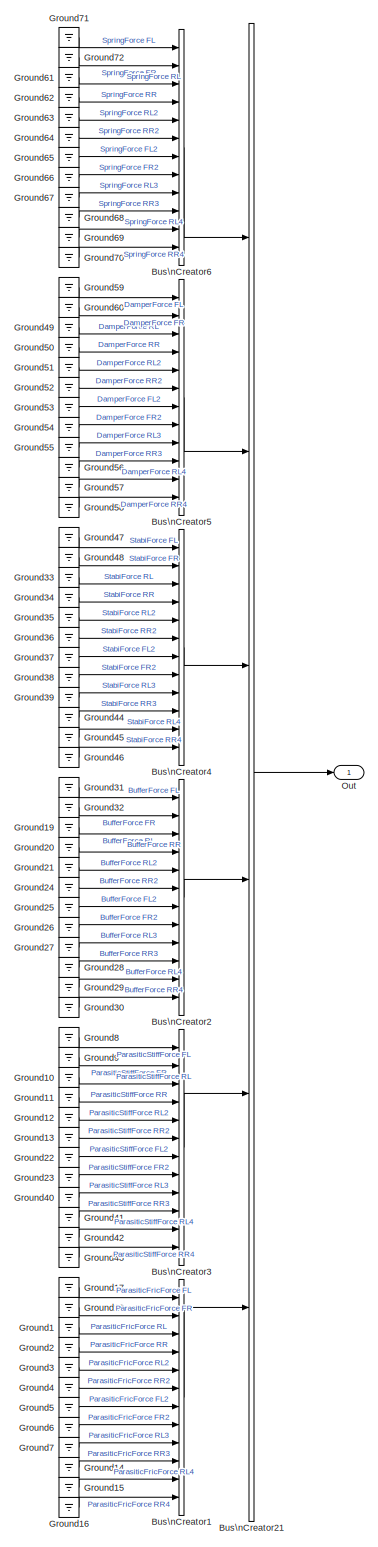
[diagram: TruckMaker/IPG Vehicle/CarAndTrailer/Forces/Suspension Forces/CreateBus Suspension Forces Additional - part 1/2, right side, full height]
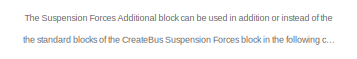
[diagram: TruckMaker/IPG Vehicle/CarAndTrailer/Forces/Suspension Forces/CreateBus Suspension Forces Additional - part 2/2, middle left region]
BLOCK [SubSystem] TruckMaker/IPG Vehicle/CarAndTrailer/Forces/Suspension Forces/CreateBus Suspension Forces Additional
  Ports = [0, 1]
  RequestExecContextInheritance = off
  SID = 3460
BLOCK [BusCreator] TruckMaker/IPG Vehicle/CarAndTrailer/Forces/Suspension Forces/CreateBus Suspension Forces Additional/Bus\nCreator1
  DisplayOption = bar
  InheritFromInputs = on
  Inputs = 12
  Ports = [12, 1]
  SID = 3461
BLOCK [BusCreator] TruckMaker/IPG Vehicle/CarAndTrailer/Forces/Suspension Forces/CreateBus Suspension Forces Additional/Bus\nCreator2
  DisplayOption = bar
  InheritFromInputs = on
  Inputs = 12
  Ports = [12, 1]
  SID = 3462
BLOCK [BusCreator] TruckMaker/IPG Vehicle/CarAndTrailer/Forces/Suspension Forces/CreateBus Suspension Forces Additional/Bus\nCreator21
  DisplayOption = bar
  InheritFromInputs = on
  Inputs = 6
  Ports = [6, 1]
  SID = 3463
BLOCK [BusCreator] TruckMaker/IPG Vehicle/CarAndTrailer/Forces/Suspension Forces/CreateBus Suspension Forces Additional/Bus\nCreator3
  DisplayOption = bar
  InheritFromInputs = on
  Inputs = 12
  Ports = [12, 1]
  SID = 3464
BLOCK [BusCreator] TruckMaker/IPG Vehicle/CarAndTrailer/Forces/Suspension Forces/CreateBus Suspension Forces Additional/Bus\nCreator4
  DisplayOption = bar
  InheritFromInputs = on
  Inputs = 12
  Ports = [12, 1]
  SID = 3465
BLOCK [BusCreator] TruckMaker/IPG Vehicle/CarAndTrailer/Forces/Suspension Forces/CreateBus Suspension Forces Additional/Bus\nCreator5
  DisplayOption = bar
  InheritFromInputs = on
  Inputs = 12
  Ports = [12, 1]
  SID = 3466
BLOCK [BusCreator] TruckMaker/IPG Vehicle/CarAndTrailer/Forces/Suspension Forces/CreateBus Suspension Forces Additional/Bus\nCreator6
  DisplayOption = bar
  InheritFromInputs = on
  Inputs = 12
  Ports = [12, 1]
  SID = 3467
BLOCK [Ground] TruckMaker/IPG Vehicle/CarAndTrailer/Forces/Suspension Forces/CreateBus Suspension Forces Additional/Ground1
  SID = 3468
BLOCK [Ground] TruckMaker/IPG Vehicle/CarAndTrailer/Forces/Suspension Forces/CreateBus Suspension Forces Additional/Ground10
  SID = 3469
BLOCK [Ground] TruckMaker/IPG Vehicle/CarAndTrailer/Forces/Suspension Forces/CreateBus Suspension Forces Additional/Ground11
  SID = 3470
BLOCK [Ground] TruckMaker/IPG Vehicle/CarAndTrailer/Forces/Suspension Forces/CreateBus Suspension Forces Additional/Ground12
  SID = 3471
BLOCK [Ground] TruckMaker/IPG Vehicle/CarAndTrailer/Forces/Suspension Forces/CreateBus Suspension Forces Additional/Ground13
  SID = 3472
BLOCK [Ground] TruckMaker/IPG Vehicle/CarAndTrailer/Forces/Suspension Forces/CreateBus Suspension Forces Additional/Ground14
  SID = 3473
BLOCK [Ground] TruckMaker/IPG Vehicle/CarAndTrailer/Forces/Suspension Forces/CreateBus Suspension Forces Additional/Ground15
  SID = 3474
BLOCK [Ground] TruckMaker/IPG Vehicle/CarAndTrailer/Forces/Suspension Forces/CreateBus Suspension Forces Additional/Ground16
  SID = 3475
BLOCK [Ground] TruckMaker/IPG Vehicle/CarAndTrailer/Forces/Suspension Forces/CreateBus Suspension Forces Additional/Ground17
  SID = 3476
BLOCK [Ground] TruckMaker/IPG Vehicle/CarAndTrailer/Forces/Suspension Forces/CreateBus Suspension Forces Additional/Ground18
  SID = 3477
BLOCK [Ground] TruckMaker/IPG Vehicle/CarAndTrailer/Forces/Suspension Forces/CreateBus Suspension Forces Additional/Ground19
  SID = 3478
BLOCK [Ground] TruckMaker/IPG Vehicle/CarAndTrailer/Forces/Suspension Forces/CreateBus Suspension Forces Additional/Ground2
  SID = 3479
BLOCK [Ground] TruckMaker/IPG Vehicle/CarAndTrailer/Forces/Suspension Forces/CreateBus Suspension Forces Additional/Ground20
  SID = 3480
BLOCK [Ground] TruckMaker/IPG Vehicle/CarAndTrailer/Forces/Suspension Forces/CreateBus Suspension Forces Additional/Ground21
  SID = 3481
BLOCK [Ground] TruckMaker/IPG Vehicle/CarAndTrailer/Forces/Suspension Forces/CreateBus Suspension Forces Additional/Ground22
  SID = 3482
BLOCK [Ground] TruckMaker/IPG Vehicle/CarAndTrailer/Forces/Suspension Forces/CreateBus Suspension Forces Additional/Ground23
  SID = 3483
BLOCK [Ground] TruckMaker/IPG Vehicle/CarAndTrailer/Forces/Suspension Forces/CreateBus Suspension Forces Additional/Ground24
  SID = 3484
BLOCK [Ground] TruckMaker/IPG Vehicle/CarAndTrailer/Forces/Suspension Forces/CreateBus Suspension Forces Additional/Ground25
  SID = 3485
BLOCK [Ground] TruckMaker/IPG Vehicle/CarAndTrailer/Forces/Suspension Forces/CreateBus Suspension Forces Additional/Ground26
  SID = 3486
BLOCK [Ground] TruckMaker/IPG Vehicle/CarAndTrailer/Forces/Suspension Forces/CreateBus Suspension Forces Additional/Ground27
  SID = 3487
BLOCK [Ground] TruckMaker/IPG Vehicle/CarAndTrailer/Forces/Suspension Forces/CreateBus Suspension Forces Additional/Ground28
  SID = 3488
BLOCK [Ground] TruckMaker/IPG Vehicle/CarAndTrailer/Forces/Suspension Forces/CreateBus Suspension Forces Additional/Ground29
  SID = 3489
BLOCK [Ground] TruckMaker/IPG Vehicle/CarAndTrailer/Forces/Suspension Forces/CreateBus Suspension Forces Additional/Ground3
  SID = 3490
BLOCK [Ground] TruckMaker/IPG Vehicle/CarAndTrailer/Forces/Suspension Forces/CreateBus Suspension Forces Additional/Ground30
  SID = 3491
BLOCK [Ground] TruckMaker/IPG Vehicle/CarAndTrailer/Forces/Suspension Forces/CreateBus Suspension Forces Additional/Ground31
  SID = 3492
BLOCK [Ground] TruckMaker/IPG Vehicle/CarAndTrailer/Forces/Suspension Forces/CreateBus Suspension Forces Additional/Ground32
  SID = 3493
BLOCK [Ground] TruckMaker/IPG Vehicle/CarAndTrailer/Forces/Suspension Forces/CreateBus Suspension Forces Additional/Ground33
  SID = 3494
BLOCK [Ground] TruckMaker/IPG Vehicle/CarAndTrailer/Forces/Suspension Forces/CreateBus Suspension Forces Additional/Ground34
  SID = 3495
BLOCK [Ground] TruckMaker/IPG Vehicle/CarAndTrailer/Forces/Suspension Forces/CreateBus Suspension Forces Additional/Ground35
  SID = 3496
BLOCK [Ground] TruckMaker/IPG Vehicle/CarAndTrailer/Forces/Suspension Forces/CreateBus Suspension Forces Additional/Ground36
  SID = 3497
BLOCK [Ground] TruckMaker/IPG Vehicle/CarAndTrailer/Forces/Suspension Forces/CreateBus Suspension Forces Additional/Ground37
  SID = 3498
BLOCK [Ground] TruckMaker/IPG Vehicle/CarAndTrailer/Forces/Suspension Forces/CreateBus Suspension Forces Additional/Ground38
  SID = 3499
BLOCK [Ground] TruckMaker/IPG Vehicle/CarAndTrailer/Forces/Suspension Forces/CreateBus Suspension Forces Additional/Ground39
  SID = 3500
BLOCK [Ground] TruckMaker/IPG Vehicle/CarAndTrailer/Forces/Suspension Forces/CreateBus Suspension Forces Additional/Ground4
  SID = 3501
BLOCK [Ground] TruckMaker/IPG Vehicle/CarAndTrailer/Forces/Suspension Forces/CreateBus Suspension Forces Additional/Ground40
  SID = 3502
BLOCK [Ground] TruckMaker/IPG Vehicle/CarAndTrailer/Forces/Suspension Forces/CreateBus Suspension Forces Additional/Ground41
  SID = 3503
BLOCK [Ground] TruckMaker/IPG Vehicle/CarAndTrailer/Forces/Suspension Forces/CreateBus Suspension Forces Additional/Ground42
  SID = 3504
BLOCK [Ground] TruckMaker/IPG Vehicle/CarAndTrailer/Forces/Suspension Forces/CreateBus Suspension Forces Additional/Ground43
  SID = 3505
BLOCK [Ground] TruckMaker/IPG Vehicle/CarAndTrailer/Forces/Suspension Forces/CreateBus Suspension Forces Additional/Ground44
  SID = 3506
BLOCK [Ground] TruckMaker/IPG Vehicle/CarAndTrailer/Forces/Suspension Forces/CreateBus Suspension Forces Additional/Ground45
  SID = 3507
BLOCK [Ground] TruckMaker/IPG Vehicle/CarAndTrailer/Forces/Suspension Forces/CreateBus Suspension Forces Additional/Ground46
  SID = 3508
BLOCK [Ground] TruckMaker/IPG Vehicle/CarAndTrailer/Forces/Suspension Forces/CreateBus Suspension Forces Additional/Ground47
  SID = 3509
BLOCK [Ground] TruckMaker/IPG Vehicle/CarAndTrailer/Forces/Suspension Forces/CreateBus Suspension Forces Additional/Ground48
  SID = 3510
BLOCK [Ground] TruckMaker/IPG Vehicle/CarAndTrailer/Forces/Suspension Forces/CreateBus Suspension Forces Additional/Ground49
  SID = 3511
BLOCK [Ground] TruckMaker/IPG Vehicle/CarAndTrailer/Forces/Suspension Forces/CreateBus Suspension Forces Additional/Ground5
  SID = 3512
BLOCK [Ground] TruckMaker/IPG Vehicle/CarAndTrailer/Forces/Suspension Forces/CreateBus Suspension Forces Additional/Ground50
  SID = 3513
BLOCK [Ground] TruckMaker/IPG Vehicle/CarAndTrailer/Forces/Suspension Forces/CreateBus Suspension Forces Additional/Ground51
  SID = 3514
BLOCK [Ground] TruckMaker/IPG Vehicle/CarAndTrailer/Forces/Suspension Forces/CreateBus Suspension Forces Additional/Ground52
  SID = 3515
BLOCK [Ground] TruckMaker/IPG Vehicle/CarAndTrailer/Forces/Suspension Forces/CreateBus Suspension Forces Additional/Ground53
  SID = 3516
BLOCK [Ground] TruckMaker/IPG Vehicle/CarAndTrailer/Forces/Suspension Forces/CreateBus Suspension Forces Additional/Ground54
  SID = 3517
BLOCK [Ground] TruckMaker/IPG Vehicle/CarAndTrailer/Forces/Suspension Forces/CreateBus Suspension Forces Additional/Ground55
  SID = 3518
BLOCK [Ground] TruckMaker/IPG Vehicle/CarAndTrailer/Forces/Suspension Forces/CreateBus Suspension Forces Additional/Ground56
  SID = 3519
BLOCK [Ground] TruckMaker/IPG Vehicle/CarAndTrailer/Forces/Suspension Forces/CreateBus Suspension Forces Additional/Ground57
  SID = 3520
BLOCK [Ground] TruckMaker/IPG Vehicle/CarAndTrailer/Forces/Suspension Forces/CreateBus Suspension Forces Additional/Ground58
  SID = 3521
BLOCK [Ground] TruckMaker/IPG Vehicle/CarAndTrailer/Forces/Suspension Forces/CreateBus Suspension Forces Additional/Ground59
  SID = 3522
BLOCK [Ground] TruckMaker/IPG Vehicle/CarAndTrailer/Forces/Suspension Forces/CreateBus Suspension Forces Additional/Ground6
  SID = 3523
BLOCK [Ground] TruckMaker/IPG Vehicle/CarAndTrailer/Forces/Suspension Forces/CreateBus Suspension Forces Additional/Ground60
  SID = 3524
BLOCK [Ground] TruckMaker/IPG Vehicle/CarAndTrailer/Forces/Suspension Forces/CreateBus Suspension Forces Additional/Ground61
  SID = 3525
BLOCK [Ground] TruckMaker/IPG Vehicle/CarAndTrailer/Forces/Suspension Forces/CreateBus Suspension Forces Additional/Ground62
  SID = 3526
BLOCK [Ground] TruckMaker/IPG Vehicle/CarAndTrailer/Forces/Suspension Forces/CreateBus Suspension Forces Additional/Ground63
  SID = 3527
BLOCK [Ground] TruckMaker/IPG Vehicle/CarAndTrailer/Forces/Suspension Forces/CreateBus Suspension Forces Additional/Ground64
  SID = 3528
BLOCK [Ground] TruckMaker/IPG Vehicle/CarAndTrailer/Forces/Suspension Forces/CreateBus Suspension Forces Additional/Ground65
  SID = 3529
BLOCK [Ground] TruckMaker/IPG Vehicle/CarAndTrailer/Forces/Suspension Forces/CreateBus Suspension Forces Additional/Ground66
  SID = 3530
BLOCK [Ground] TruckMaker/IPG Vehicle/CarAndTrailer/Forces/Suspension Forces/CreateBus Suspension Forces Additional/Ground67
  SID = 3531
BLOCK [Ground] TruckMaker/IPG Vehicle/CarAndTrailer/Forces/Suspension Forces/CreateBus Suspension Forces Additional/Ground68
  SID = 3532
BLOCK [Ground] TruckMaker/IPG Vehicle/CarAndTrailer/Forces/Suspension Forces/CreateBus Suspension Forces Additional/Ground69
  SID = 3533
BLOCK [Ground] TruckMaker/IPG Vehicle/CarAndTrailer/Forces/Suspension Forces/CreateBus Suspension Forces Additional/Ground7
  SID = 3534
BLOCK [Ground] TruckMaker/IPG Vehicle/CarAndTrailer/Forces/Suspension Forces/CreateBus Suspension Forces Additional/Ground70
  SID = 3535
BLOCK [Ground] TruckMaker/IPG Vehicle/CarAndTrailer/Forces/Suspension Forces/CreateBus Suspension Forces Additional/Ground71
  SID = 3536
BLOCK [Ground] TruckMaker/IPG Vehicle/CarAndTrailer/Forces/Suspension Forces/CreateBus Suspension Forces Additional/Ground72
  SID = 3537
BLOCK [Ground] TruckMaker/IPG Vehicle/CarAndTrailer/Forces/Suspension Forces/CreateBus Suspension Forces Additional/Ground8
  SID = 3538
BLOCK [Ground] TruckMaker/IPG Vehicle/CarAndTrailer/Forces/Suspension Forces/CreateBus Suspension Forces Additional/Ground9
  SID = 3539
BLOCK [Outport] TruckMaker/IPG Vehicle/CarAndTrailer/Forces/Suspension Forces/CreateBus Suspension Forces Additional/Out
  SID = 3540
BLOCK [SubSystem] TruckMaker/IPG Vehicle/CarAndTrailer/Forces/Suspension Forces/CreateBus Suspension Forces CtrlOut
  Ports = [1, 1]
  RequestExecContextInheritance = off
  SID = 3542
BLOCK [BusCreator] TruckMaker/IPG Vehicle/CarAndTrailer/Forces/Suspension Forces/CreateBus Suspension Forces CtrlOut/Bus\nCreator
  DisplayOption = bar
  InheritFromInputs = on
  Inputs = 4
  Ports = [4, 1]
  SID = 3544
BLOCK [BusCreator] TruckMaker/IPG Vehicle/CarAndTrailer/Forces/Suspension Forces/CreateBus Suspension Forces CtrlOut/Bus\nCreator1
  DisplayOption = bar
  InheritFromInputs = on
  Inputs = 4
  Ports = [4, 1]
  SID = 3545
BLOCK [BusCreator] TruckMaker/IPG Vehicle/CarAndTrailer/Forces/Suspension Forces/CreateBus Suspension Forces CtrlOut/Bus\nCreator11
  DisplayOption = bar
  InheritFromInputs = on
  Inputs = 4
  Ports = [4, 1]
  SID = 3546
BLOCK [BusCreator] TruckMaker/IPG Vehicle/CarAndTrailer/Forces/Suspension Forces/CreateBus Suspension Forces CtrlOut/Bus\nCreator12
  DisplayOption = bar
  InheritFromInputs = on
  Inputs = 4
  Ports = [4, 1]
  SID = 3547
BLOCK [BusCreator] TruckMaker/IPG Vehicle/CarAndTrailer/Forces/Suspension Forces/CreateBus Suspension Forces CtrlOut/Bus\nCreator13
  DisplayOption = bar
  InheritFromInputs = on
  Inputs = 4
  Ports = [4, 1]
  SID = 3548
BLOCK [BusCreator] TruckMaker/IPG Vehicle/CarAndTrailer/Forces/Suspension Forces/CreateBus Suspension Forces CtrlOut/Bus\nCreator14
  DisplayOption = bar
  InheritFromInputs = on
  Inputs = 4
  Ports = [4, 1]
  SID = 3549
BLOCK [BusCreator] TruckMaker/IPG Vehicle/CarAndTrailer/Forces/Suspension Forces/CreateBus Suspension Forces CtrlOut/Bus\nCreator19
  DisplayOption = bar
  InheritFromInputs = on
  Inputs = 4
  Ports = [4, 1]
  SID = 3550
BLOCK [BusCreator] TruckMaker/IPG Vehicle/CarAndTrailer/Forces/Suspension Forces/CreateBus Suspension Forces CtrlOut/Bus\nCreator2
  DisplayOption = bar
  InheritFromInputs = on
  Inputs = 4
  Ports = [4, 1]
  SID = 3551
BLOCK [BusCreator] TruckMaker/IPG Vehicle/CarAndTrailer/Forces/Suspension Forces/CreateBus Suspension Forces CtrlOut/Bus\nCreator20
  DisplayOption = bar
  InheritFromInputs = on
  Inputs = 4
  Ports = [4, 1]
  SID = 3552
BLOCK [BusCreator] TruckMaker/IPG Vehicle/CarAndTrailer/Forces/Suspension Forces/CreateBus Suspension Forces CtrlOut/Bus\nCreator21
  DisplayOption = bar
  InheritFromInputs = on
  Inputs = 4
  Ports = [4, 1]
  SID = 3553
BLOCK [BusCreator] TruckMaker/IPG Vehicle/CarAndTrailer/Forces/Suspension Forces/CreateBus Suspension Forces CtrlOut/Bus\nCreator22
  DisplayOption = bar
  InheritFromInputs = on
  Inputs = 4
  Ports = [4, 1]
  SID = 3554
BLOCK [BusCreator] TruckMaker/IPG Vehicle/CarAndTrailer/Forces/Suspension Forces/CreateBus Suspension Forces CtrlOut/Bus\nCreator3
  DisplayOption = bar
  InheritFromInputs = on
  Inputs = 4
  Ports = [4, 1]
  SID = 3555
BLOCK [BusCreator] TruckMaker/IPG Vehicle/CarAndTrailer/Forces/Suspension Forces/CreateBus Suspension Forces CtrlOut/Bus\nCreator9
  DisplayOption = bar
  InheritFromInputs = on
  Inputs = 12
  Ports = [12, 1]
  SID = 3556
BLOCK [Demux] TruckMaker/IPG Vehicle/CarAndTrailer/Forces/Suspension Forces/CreateBus Suspension Forces CtrlOut/Demux
  Outputs = 12
  Ports = [1, 12]
  SID = 3557
BLOCK [Demux] TruckMaker/IPG Vehicle/CarAndTrailer/Forces/Suspension Forces/CreateBus Suspension Forces CtrlOut/Demux10
  Ports = [1, 4]
  SID = 3558
BLOCK [Demux] TruckMaker/IPG Vehicle/CarAndTrailer/Forces/Suspension Forces/CreateBus Suspension Forces CtrlOut/Demux11
  Ports = [1, 4]
  SID = 3559
BLOCK [Demux] TruckMaker/IPG Vehicle/CarAndTrailer/Forces/Suspension Forces/CreateBus Suspension Forces CtrlOut/Demux12
  Ports = [1, 4]
  SID = 3560
BLOCK [Demux] TruckMaker/IPG Vehicle/CarAndTrailer/Forces/Suspension Forces/CreateBus Suspension Forces CtrlOut/Demux13
  Ports = [1, 4]
  SID = 3561
BLOCK [Demux] TruckMaker/IPG Vehicle/CarAndTrailer/Forces/Suspension Forces/CreateBus Suspension Forces CtrlOut/Demux18
  Ports = [1, 4]
  SID = 3562
BLOCK [Demux] TruckMaker/IPG Vehicle/CarAndTrailer/Forces/Suspension Forces/CreateBus Suspension Forces CtrlOut/Demux19
  Ports = [1, 4]
  SID = 3563
BLOCK [Demux] TruckMaker/IPG Vehicle/CarAndTrailer/Forces/Suspension Forces/CreateBus Suspension Forces CtrlOut/Demux2
  Ports = [1, 4]
  SID = 3564
BLOCK [Demux] TruckMaker/IPG Vehicle/CarAndTrailer/Forces/Suspension Forces/CreateBus Suspension Forces CtrlOut/Demux20
  Ports = [1, 4]
  SID = 3565
BLOCK [Demux] TruckMaker/IPG Vehicle/CarAndTrailer/Forces/Suspension Forces/CreateBus Suspension Forces CtrlOut/Demux21
  Ports = [1, 4]
  SID = 3566
BLOCK [Demux] TruckMaker/IPG Vehicle/CarAndTrailer/Forces/Suspension Forces/CreateBus Suspension Forces CtrlOut/Demux3
  Ports = [1, 4]
  SID = 3567
BLOCK [Demux] TruckMaker/IPG Vehicle/CarAndTrailer/Forces/Suspension Forces/CreateBus Suspension Forces CtrlOut/Demux4
  Ports = [1, 4]
  SID = 3568
BLOCK [Demux] TruckMaker/IPG Vehicle/CarAndTrailer/Forces/Suspension Forces/CreateBus Suspension Forces CtrlOut/Demux5
  Ports = [1, 4]
  SID = 3569
BLOCK [Inport] TruckMaker/IPG Vehicle/CarAndTrailer/Forces/Suspension Forces/CreateBus Suspension Forces CtrlOut/In
  SID = 3543
BLOCK [Outport] TruckMaker/IPG Vehicle/CarAndTrailer/Forces/Suspension Forces/CreateBus Suspension Forces CtrlOut/Out
  SID = 3570
BLOCK [BusCreator] TruckMaker/IPG Vehicle/CarAndTrailer/Forces/Suspension Forces/CreateBus Suspension Forces/Bus\nCreator10
  DisplayOption = bar
  InheritFromInputs = on
  Inputs = 12
  Ports = [12, 1]
  SID = 3432
BLOCK [BusCreator] TruckMaker/IPG Vehicle/CarAndTrailer/Forces/Suspension Forces/CreateBus Suspension Forces/Bus\nCreator15
  DisplayOption = bar
  InheritFromInputs = on
  Inputs = 6
  Ports = [6, 1]
  SID = 3433
BLOCK [BusCreator] TruckMaker/IPG Vehicle/CarAndTrailer/Forces/Suspension Forces/CreateBus Suspension Forces/Bus\nCreator16
  DisplayOption = bar
  InheritFromInputs = on
  Inputs = 6
  Ports = [6, 1]
  SID = 3434
BLOCK [BusCreator] TruckMaker/IPG Vehicle/CarAndTrailer/Forces/Suspension Forces/CreateBus Suspension Forces/Bus\nCreator17
  DisplayOption = bar
  InheritFromInputs = on
  Inputs = 6
  Ports = [6, 1]
  SID = 3435
BLOCK [BusCreator] TruckMaker/IPG Vehicle/CarAndTrailer/Forces/Suspension Forces/CreateBus Suspension Forces/Bus\nCreator18
  DisplayOption = bar
  InheritFromInputs = on
  Inputs = 6
  Ports = [6, 1]
  SID = 3436
BLOCK [BusCreator] TruckMaker/IPG Vehicle/CarAndTrailer/Forces/Suspension Forces/CreateBus Suspension Forces/Bus\nCreator23
  DisplayOption = bar
  InheritFromInputs = on
  Inputs = 6
  Ports = [6, 1]
  SID = 3437
BLOCK [BusCreator] TruckMaker/IPG Vehicle/CarAndTrailer/Forces/Suspension Forces/CreateBus Suspension Forces/Bus\nCreator24
  DisplayOption = bar
  InheritFromInputs = on
  Inputs = 6
  Ports = [6, 1]
  SID = 3438
BLOCK [BusCreator] TruckMaker/IPG Vehicle/CarAndTrailer/Forces/Suspension Forces/CreateBus Suspension Forces/Bus\nCreator25
  DisplayOption = bar
  InheritFromInputs = on
  Inputs = 6
  Ports = [6, 1]
  SID = 3439
BLOCK [BusCreator] TruckMaker/IPG Vehicle/CarAndTrailer/Forces/Suspension Forces/CreateBus Suspension Forces/Bus\nCreator26
  DisplayOption = bar
  InheritFromInputs = on
  Inputs = 6
  Ports = [6, 1]
  SID = 3440
BLOCK [BusCreator] TruckMaker/IPG Vehicle/CarAndTrailer/Forces/Suspension Forces/CreateBus Suspension Forces/Bus\nCreator4
  DisplayOption = bar
  InheritFromInputs = on
  Inputs = 6
  Ports = [6, 1]
  SID = 3441
BLOCK [BusCreator] TruckMaker/IPG Vehicle/CarAndTrailer/Forces/Suspension Forces/CreateBus Suspension Forces/Bus\nCreator5
  DisplayOption = bar
  InheritFromInputs = on
  Inputs = 6
  Ports = [6, 1]
  SID = 3442
BLOCK [BusCreator] TruckMaker/IPG Vehicle/CarAndTrailer/Forces/Suspension Forces/CreateBus Suspension Forces/Bus\nCreator6
  DisplayOption = bar
  InheritFromInputs = on
  Inputs = 6
  Ports = [6, 1]
  SID = 3443
BLOCK [BusCreator] TruckMaker/IPG Vehicle/CarAndTrailer/Forces/Suspension Forces/CreateBus Suspension Forces/Bus\nCreator7
  DisplayOption = bar
  InheritFromInputs = on
  Inputs = 6
  Ports = [6, 1]
  SID = 3444
BLOCK [Demux] TruckMaker/IPG Vehicle/CarAndTrailer/Forces/Suspension Forces/CreateBus Suspension Forces/Demux1
  Outputs = 12
  Ports = [1, 12]
  SID = 3445
BLOCK [Demux] TruckMaker/IPG Vehicle/CarAndTrailer/Forces/Suspension Forces/CreateBus Suspension Forces/Demux14
  Outputs = 6
  Ports = [1, 6]
  SID = 3446
BLOCK [Demux] TruckMaker/IPG Vehicle/CarAndTrailer/Forces/Suspension Forces/CreateBus Suspension Forces/Demux15
  Outputs = 6
  Ports = [1, 6]
  SID = 3447
BLOCK [Demux] TruckMaker/IPG Vehicle/CarAndTrailer/Forces/Suspension Forces/CreateBus Suspension Forces/Demux16
  Outputs = 6
  Ports = [1, 6]
  SID = 3448
BLOCK [Demux] TruckMaker/IPG Vehicle/CarAndTrailer/Forces/Suspension Forces/CreateBus Suspension Forces/Demux17
  Outputs = 6
  Ports = [1, 6]
  SID = 3449
BLOCK [Demux] TruckMaker/IPG Vehicle/CarAndTrailer/Forces/Suspension Forces/CreateBus Suspension Forces/Demux22
  Outputs = 6
  Ports = [1, 6]
  SID = 3450
BLOCK [Demux] TruckMaker/IPG Vehicle/CarAndTrailer/Forces/Suspension Forces/CreateBus Suspension Forces/Demux23
  Outputs = 6
  Ports = [1, 6]
  SID = 3451
BLOCK [Demux] TruckMaker/IPG Vehicle/CarAndTrailer/Forces/Suspension Forces/CreateBus Suspension Forces/Demux24
  Outputs = 6
  Ports = [1, 6]
  SID = 3452
BLOCK [Demux] TruckMaker/IPG Vehicle/CarAndTrailer/Forces/Suspension Forces/CreateBus Suspension Forces/Demux25
  Outputs = 6
  Ports = [1, 6]
  SID = 3453
BLOCK [Demux] TruckMaker/IPG Vehicle/CarAndTrailer/Forces/Suspension Forces/CreateBus Suspension Forces/Demux6
  Outputs = 6
  Ports = [1, 6]
  SID = 3454
BLOCK [Demux] TruckMaker/IPG Vehicle/CarAndTrailer/Forces/Suspension Forces/CreateBus Suspension Forces/Demux7
  Outputs = 6
  Ports = [1, 6]
  SID = 3455
BLOCK [Demux] TruckMaker/IPG Vehicle/CarAndTrailer/Forces/Suspension Forces/CreateBus Suspension Forces/Demux8
  Outputs = 6
  Ports = [1, 6]
  SID = 3456
BLOCK [Demux] TruckMaker/IPG Vehicle/CarAndTrailer/Forces/Suspension Forces/CreateBus Suspension Forces/Demux9
  Outputs = 6
  Ports = [1, 6]
  SID = 3457
BLOCK [Inport] TruckMaker/IPG Vehicle/CarAndTrailer/Forces/Suspension Forces/CreateBus Suspension Forces/In
  SID = 3431
BLOCK [Outport] TruckMaker/IPG Vehicle/CarAndTrailer/Forces/Suspension Forces/CreateBus Suspension Forces/Out
  SID = 3458
BLOCK [SubSystem] TruckMaker/IPG Vehicle/CarAndTrailer/Forces/Suspension Forces/Damper CreateBus CtrlOutOpt
  Ports = [1, 1]
  RequestExecContextInheritance = off
  SID = 3572
BLOCK [BusCreator] TruckMaker/IPG Vehicle/CarAndTrailer/Forces/Suspension Forces/Damper CreateBus CtrlOutOpt/Bus\nCreator
  DisplayOption = bar
  InheritFromInputs = on
  Inputs = 4
  Ports = [4, 1]
  SID = 3574
BLOCK [BusCreator] TruckMaker/IPG Vehicle/CarAndTrailer/Forces/Suspension Forces/Damper CreateBus CtrlOutOpt/Bus\nCreator1
  DisplayOption = bar
  InheritFromInputs = on
  Inputs = 4
  Ports = [4, 1]
  SID = 3575
BLOCK [BusCreator] TruckMaker/IPG Vehicle/CarAndTrailer/Forces/Suspension Forces/Damper CreateBus CtrlOutOpt/Bus\nCreator11
  DisplayOption = bar
  InheritFromInputs = on
  Inputs = 4
  Ports = [4, 1]
  SID = 3576
BLOCK [BusCreator] TruckMaker/IPG Vehicle/CarAndTrailer/Forces/Suspension Forces/Damper CreateBus CtrlOutOpt/Bus\nCreator12
  DisplayOption = bar
  InheritFromInputs = on
  Inputs = 4
  Ports = [4, 1]
  SID = 3577
BLOCK [BusCreator] TruckMaker/IPG Vehicle/CarAndTrailer/Forces/Suspension Forces/Damper CreateBus CtrlOutOpt/Bus\nCreator13
  DisplayOption = bar
  InheritFromInputs = on
  Inputs = 4
  Ports = [4, 1]
  SID = 3578
BLOCK [BusCreator] TruckMaker/IPG Vehicle/CarAndTrailer/Forces/Suspension Forces/Damper CreateBus CtrlOutOpt/Bus\nCreator14
  DisplayOption = bar
  InheritFromInputs = on
  Inputs = 4
  Ports = [4, 1]
  SID = 3579
BLOCK [BusCreator] TruckMaker/IPG Vehicle/CarAndTrailer/Forces/Suspension Forces/Damper CreateBus CtrlOutOpt/Bus\nCreator19
  DisplayOption = bar
  InheritFromInputs = on
  Inputs = 4
  Ports = [4, 1]
  SID = 3580
BLOCK [BusCreator] TruckMaker/IPG Vehicle/CarAndTrailer/Forces/Suspension Forces/Damper CreateBus CtrlOutOpt/Bus\nCreator2
  DisplayOption = bar
  InheritFromInputs = on
  Inputs = 4
  Ports = [4, 1]
  SID = 3581
BLOCK [BusCreator] TruckMaker/IPG Vehicle/CarAndTrailer/Forces/Suspension Forces/Damper CreateBus CtrlOutOpt/Bus\nCreator20
  DisplayOption = bar
  InheritFromInputs = on
  Inputs = 4
  Ports = [4, 1]
  SID = 3582
BLOCK [BusCreator] TruckMaker/IPG Vehicle/CarAndTrailer/Forces/Suspension Forces/Damper CreateBus CtrlOutOpt/Bus\nCreator21
  DisplayOption = bar
  InheritFromInputs = on
  Inputs = 4
  Ports = [4, 1]
  SID = 3583
BLOCK [BusCreator] TruckMaker/IPG Vehicle/CarAndTrailer/Forces/Suspension Forces/Damper CreateBus CtrlOutOpt/Bus\nCreator22
  DisplayOption = bar
  InheritFromInputs = on
  Inputs = 4
  Ports = [4, 1]
  SID = 3584
BLOCK [BusCreator] TruckMaker/IPG Vehicle/CarAndTrailer/Forces/Suspension Forces/Damper CreateBus CtrlOutOpt/Bus\nCreator3
  DisplayOption = bar
  InheritFromInputs = on
  Inputs = 4
  Ports = [4, 1]
  SID = 3585
BLOCK [BusCreator] TruckMaker/IPG Vehicle/CarAndTrailer/Forces/Suspension Forces/Damper CreateBus CtrlOutOpt/Bus\nCreator9
  DisplayOption = bar
  InheritFromInputs = on
  Inputs = 12
  Ports = [12, 1]
  SID = 3586
BLOCK [Demux] TruckMaker/IPG Vehicle/CarAndTrailer/Forces/Suspension Forces/Damper CreateBus CtrlOutOpt/Demux
  Outputs = 12
  Ports = [1, 12]
  SID = 3587
BLOCK [Demux] TruckMaker/IPG Vehicle/CarAndTrailer/Forces/Suspension Forces/Damper CreateBus CtrlOutOpt/Demux10
  Ports = [1, 4]
  SID = 3588
BLOCK [Demux] TruckMaker/IPG Vehicle/CarAndTrailer/Forces/Suspension Forces/Damper CreateBus CtrlOutOpt/Demux11
  Ports = [1, 4]
  SID = 3589
BLOCK [Demux] TruckMaker/IPG Vehicle/CarAndTrailer/Forces/Suspension Forces/Damper CreateBus CtrlOutOpt/Demux12
  Ports = [1, 4]
  SID = 3590
BLOCK [Demux] TruckMaker/IPG Vehicle/CarAndTrailer/Forces/Suspension Forces/Damper CreateBus CtrlOutOpt/Demux13
  Ports = [1, 4]
  SID = 3591
BLOCK [Demux] TruckMaker/IPG Vehicle/CarAndTrailer/Forces/Suspension Forces/Damper CreateBus CtrlOutOpt/Demux18
  Ports = [1, 4]
  SID = 3592
BLOCK [Demux] TruckMaker/IPG Vehicle/CarAndTrailer/Forces/Suspension Forces/Damper CreateBus CtrlOutOpt/Demux19
  Ports = [1, 4]
  SID = 3593
BLOCK [Demux] TruckMaker/IPG Vehicle/CarAndTrailer/Forces/Suspension Forces/Damper CreateBus CtrlOutOpt/Demux2
  Ports = [1, 4]
  SID = 3594
BLOCK [Demux] TruckMaker/IPG Vehicle/CarAndTrailer/Forces/Suspension Forces/Damper CreateBus CtrlOutOpt/Demux20
  Ports = [1, 4]
  SID = 3595
BLOCK [Demux] TruckMaker/IPG Vehicle/CarAndTrailer/Forces/Suspension Forces/Damper CreateBus CtrlOutOpt/Demux21
  Ports = [1, 4]
  SID = 3596
BLOCK [Demux] TruckMaker/IPG Vehicle/CarAndTrailer/Forces/Suspension Forces/Damper CreateBus CtrlOutOpt/Demux3
  Ports = [1, 4]
  SID = 3597
BLOCK [Demux] TruckMaker/IPG Vehicle/CarAndTrailer/Forces/Suspension Forces/Damper CreateBus CtrlOutOpt/Demux4
  Ports = [1, 4]
  SID = 3598
BLOCK [Demux] TruckMaker/IPG Vehicle/CarAndTrailer/Forces/Suspension Forces/Damper CreateBus CtrlOutOpt/Demux5
  Ports = [1, 4]
  SID = 3599
BLOCK [Inport] TruckMaker/IPG Vehicle/CarAndTrailer/Forces/Suspension Forces/Damper CreateBus CtrlOutOpt/In
  SID = 3573
BLOCK [Outport] TruckMaker/IPG Vehicle/CarAndTrailer/Forces/Suspension Forces/Damper CreateBus CtrlOutOpt/Out
  SID = 3600
BLOCK [Demux] TruckMaker/IPG Vehicle/CarAndTrailer/Forces/Suspension Forces/Demux26
  DisplayOption = none
  Outputs = 24
  Ports = [1, 24]
  SID = 3602
BLOCK [Demux] TruckMaker/IPG Vehicle/CarAndTrailer/Forces/Suspension Forces/Demux27
  DisplayOption = none
  Outputs = 24
  Ports = [1, 24]
  SID = 3603
BLOCK [Demux] TruckMaker/IPG Vehicle/CarAndTrailer/Forces/Suspension Forces/Demux28
  DisplayOption = none
  Outputs = 24
  Ports = [1, 24]
  SID = 3604
BLOCK [Demux] TruckMaker/IPG Vehicle/CarAndTrailer/Forces/Suspension Forces/Demux29
  DisplayOption = none
  Outputs = 24
  Ports = [1, 24]
  SID = 3605
BLOCK [Demux] TruckMaker/IPG Vehicle/CarAndTrailer/Forces/Suspension Forces/Demux30
  DisplayOption = none
  Outputs = 24
  Ports = [1, 24]
  SID = 3606
BLOCK [Demux] TruckMaker/IPG Vehicle/CarAndTrailer/Forces/Suspension Forces/Demux31
  DisplayOption = none
  Ports = [1, 4]
  SID = 3607
BLOCK [Demux] TruckMaker/IPG Vehicle/CarAndTrailer/Forces/Suspension Forces/Demux32
  DisplayOption = none
  Ports = [1, 4]
  SID = 3608
BLOCK [SubSystem] TruckMaker/IPG Vehicle/CarAndTrailer/Forces/Suspension Forces/FrcSystem CreateBus CtrlOutOpt
  Ports = [1, 1]
  RequestExecContextInheritance = off
  SID = 3609
BLOCK [BusCreator] TruckMaker/IPG Vehicle/CarAndTrailer/Forces/Suspension Forces/FrcSystem CreateBus CtrlOutOpt/Bus\nCreator9
  DisplayOption = bar
  InheritFromInputs = on
  Inputs = 192
  Ports = [192, 1]
  SID = 3611
BLOCK [Demux] TruckMaker/IPG Vehicle/CarAndTrailer/Forces/Suspension Forces/FrcSystem CreateBus CtrlOutOpt/Demux
  Outputs = 192
  Ports = [1, 192]
  SID = 3612
BLOCK [Inport] TruckMaker/IPG Vehicle/CarAndTrailer/Forces/Suspension Forces/FrcSystem CreateBus CtrlOutOpt/In
  SID = 3610
BLOCK [Outport] TruckMaker/IPG Vehicle/CarAndTrailer/Forces/Suspension Forces/FrcSystem CreateBus CtrlOutOpt/Out
  SID = 3613
BLOCK [SubSystem] TruckMaker/IPG Vehicle/CarAndTrailer/Forces/Suspension Forces/Spring CreateBus CtrlOutOpt
  Ports = [1, 1]
  RequestExecContextInheritance = off
  SID = 3615
BLOCK [BusCreator] TruckMaker/IPG Vehicle/CarAndTrailer/Forces/Suspension Forces/Spring CreateBus CtrlOutOpt/Bus\nCreator
  DisplayOption = bar
  InheritFromInputs = on
  Inputs = 4
  Ports = [4, 1]
  SID = 3617
BLOCK [BusCreator] TruckMaker/IPG Vehicle/CarAndTrailer/Forces/Suspension Forces/Spring CreateBus CtrlOutOpt/Bus\nCreator1
  DisplayOption = bar
  InheritFromInputs = on
  Inputs = 4
  Ports = [4, 1]
  SID = 3618
BLOCK [BusCreator] TruckMaker/IPG Vehicle/CarAndTrailer/Forces/Suspension Forces/Spring CreateBus CtrlOutOpt/Bus\nCreator11
  DisplayOption = bar
  InheritFromInputs = on
  Inputs = 4
  Ports = [4, 1]
  SID = 3619
BLOCK [BusCreator] TruckMaker/IPG Vehicle/CarAndTrailer/Forces/Suspension Forces/Spring CreateBus CtrlOutOpt/Bus\nCreator12
  DisplayOption = bar
  InheritFromInputs = on
  Inputs = 4
  Ports = [4, 1]
  SID = 3620
BLOCK [BusCreator] TruckMaker/IPG Vehicle/CarAndTrailer/Forces/Suspension Forces/Spring CreateBus CtrlOutOpt/Bus\nCreator13
  DisplayOption = bar
  InheritFromInputs = on
  Inputs = 4
  Ports = [4, 1]
  SID = 3621
BLOCK [BusCreator] TruckMaker/IPG Vehicle/CarAndTrailer/Forces/Suspension Forces/Spring CreateBus CtrlOutOpt/Bus\nCreator14
  DisplayOption = bar
  InheritFromInputs = on
  Inputs = 4
  Ports = [4, 1]
  SID = 3622
BLOCK [BusCreator] TruckMaker/IPG Vehicle/CarAndTrailer/Forces/Suspension Forces/Spring CreateBus CtrlOutOpt/Bus\nCreator19
  DisplayOption = bar
  InheritFromInputs = on
  Inputs = 4
  Ports = [4, 1]
  SID = 3623
BLOCK [BusCreator] TruckMaker/IPG Vehicle/CarAndTrailer/Forces/Suspension Forces/Spring CreateBus CtrlOutOpt/Bus\nCreator2
  DisplayOption = bar
  InheritFromInputs = on
  Inputs = 4
  Ports = [4, 1]
  SID = 3624
BLOCK [BusCreator] TruckMaker/IPG Vehicle/CarAndTrailer/Forces/Suspension Forces/Spring CreateBus CtrlOutOpt/Bus\nCreator20
  DisplayOption = bar
  InheritFromInputs = on
  Inputs = 4
  Ports = [4, 1]
  SID = 3625
BLOCK [BusCreator] TruckMaker/IPG Vehicle/CarAndTrailer/Forces/Suspension Forces/Spring CreateBus CtrlOutOpt/Bus\nCreator21
  DisplayOption = bar
  InheritFromInputs = on
  Inputs = 4
  Ports = [4, 1]
  SID = 3626
BLOCK [BusCreator] TruckMaker/IPG Vehicle/CarAndTrailer/Forces/Suspension Forces/Spring CreateBus CtrlOutOpt/Bus\nCreator22
  DisplayOption = bar
  InheritFromInputs = on
  Inputs = 4
  Ports = [4, 1]
  SID = 3627
BLOCK [BusCreator] TruckMaker/IPG Vehicle/CarAndTrailer/Forces/Suspension Forces/Spring CreateBus CtrlOutOpt/Bus\nCreator3
  DisplayOption = bar
  InheritFromInputs = on
  Inputs = 4
  Ports = [4, 1]
  SID = 3628
BLOCK [BusCreator] TruckMaker/IPG Vehicle/CarAndTrailer/Forces/Suspension Forces/Spring CreateBus CtrlOutOpt/Bus\nCreator9
  DisplayOption = bar
  InheritFromInputs = on
  Inputs = 12
  Ports = [12, 1]
  SID = 3629
BLOCK [Demux] TruckMaker/IPG Vehicle/CarAndTrailer/Forces/Suspension Forces/Spring CreateBus CtrlOutOpt/Demux
  Outputs = 12
  Ports = [1, 12]
  SID = 3630
BLOCK [Demux] TruckMaker/IPG Vehicle/CarAndTrailer/Forces/Suspension Forces/Spring CreateBus CtrlOutOpt/Demux10
  Ports = [1, 4]
  SID = 3631
BLOCK [Demux] TruckMaker/IPG Vehicle/CarAndTrailer/Forces/Suspension Forces/Spring CreateBus CtrlOutOpt/Demux11
  Ports = [1, 4]
  SID = 3632
BLOCK [Demux] TruckMaker/IPG Vehicle/CarAndTrailer/Forces/Suspension Forces/Spring CreateBus CtrlOutOpt/Demux12
  Ports = [1, 4]
  SID = 3633
BLOCK [Demux] TruckMaker/IPG Vehicle/CarAndTrailer/Forces/Suspension Forces/Spring CreateBus CtrlOutOpt/Demux13
  Ports = [1, 4]
  SID = 3634
BLOCK [Demux] TruckMaker/IPG Vehicle/CarAndTrailer/Forces/Suspension Forces/Spring CreateBus CtrlOutOpt/Demux18
  Ports = [1, 4]
  SID = 3635
BLOCK [Demux] TruckMaker/IPG Vehicle/CarAndTrailer/Forces/Suspension Forces/Spring CreateBus CtrlOutOpt/Demux19
  Ports = [1, 4]
  SID = 3636
BLOCK [Demux] TruckMaker/IPG Vehicle/CarAndTrailer/Forces/Suspension Forces/Spring CreateBus CtrlOutOpt/Demux2
  Ports = [1, 4]
  SID = 3637
BLOCK [Demux] TruckMaker/IPG Vehicle/CarAndTrailer/Forces/Suspension Forces/Spring CreateBus CtrlOutOpt/Demux20
  Ports = [1, 4]
  SID = 3638
BLOCK [Demux] TruckMaker/IPG Vehicle/CarAndTrailer/Forces/Suspension Forces/Spring CreateBus CtrlOutOpt/Demux21
  Ports = [1, 4]
  SID = 3639
BLOCK [Demux] TruckMaker/IPG Vehicle/CarAndTrailer/Forces/Suspension Forces/Spring CreateBus CtrlOutOpt/Demux3
  Ports = [1, 4]
  SID = 3640
BLOCK [Demux] TruckMaker/IPG Vehicle/CarAndTrailer/Forces/Suspension Forces/Spring CreateBus CtrlOutOpt/Demux4
  Ports = [1, 4]
  SID = 3641
BLOCK [Demux] TruckMaker/IPG Vehicle/CarAndTrailer/Forces/Suspension Forces/Spring CreateBus CtrlOutOpt/Demux5
  Ports = [1, 4]
  SID = 3642
BLOCK [Inport] TruckMaker/IPG Vehicle/CarAndTrailer/Forces/Suspension Forces/Spring CreateBus CtrlOutOpt/In
  SID = 3616
BLOCK [Outport] TruckMaker/IPG Vehicle/CarAndTrailer/Forces/Suspension Forces/Spring CreateBus CtrlOutOpt/Out
  SID = 3643
BLOCK [SubSystem] TruckMaker/IPG Vehicle/CarAndTrailer/Forces/Suspension Forces/Stabi CreateBus CtrlOutOpt
  Ports = [1, 1]
  RequestExecContextInheritance = off
  SID = 3645
BLOCK [BusCreator] TruckMaker/IPG Vehicle/CarAndTrailer/Forces/Suspension Forces/Stabi CreateBus CtrlOutOpt/Bus\nCreator
  DisplayOption = bar
  InheritFromInputs = on
  Inputs = 4
  Ports = [4, 1]
  SID = 3647
BLOCK [BusCreator] TruckMaker/IPG Vehicle/CarAndTrailer/Forces/Suspension Forces/Stabi CreateBus CtrlOutOpt/Bus\nCreator1
  DisplayOption = bar
  InheritFromInputs = on
  Inputs = 4
  Ports = [4, 1]
  SID = 3648
BLOCK [BusCreator] TruckMaker/IPG Vehicle/CarAndTrailer/Forces/Suspension Forces/Stabi CreateBus CtrlOutOpt/Bus\nCreator11
  DisplayOption = bar
  InheritFromInputs = on
  Inputs = 4
  Ports = [4, 1]
  SID = 3649
BLOCK [BusCreator] TruckMaker/IPG Vehicle/CarAndTrailer/Forces/Suspension Forces/Stabi CreateBus CtrlOutOpt/Bus\nCreator12
  DisplayOption = bar
  InheritFromInputs = on
  Inputs = 4
  Ports = [4, 1]
  SID = 3650
BLOCK [BusCreator] TruckMaker/IPG Vehicle/CarAndTrailer/Forces/Suspension Forces/Stabi CreateBus CtrlOutOpt/Bus\nCreator13
  DisplayOption = bar
  InheritFromInputs = on
  Inputs = 4
  Ports = [4, 1]
  SID = 3651
BLOCK [BusCreator] TruckMaker/IPG Vehicle/CarAndTrailer/Forces/Suspension Forces/Stabi CreateBus CtrlOutOpt/Bus\nCreator14
  DisplayOption = bar
  InheritFromInputs = on
  Inputs = 4
  Ports = [4, 1]
  SID = 3652
BLOCK [BusCreator] TruckMaker/IPG Vehicle/CarAndTrailer/Forces/Suspension Forces/Stabi CreateBus CtrlOutOpt/Bus\nCreator19
  DisplayOption = bar
  InheritFromInputs = on
  Inputs = 4
  Ports = [4, 1]
  SID = 3653
BLOCK [BusCreator] TruckMaker/IPG Vehicle/CarAndTrailer/Forces/Suspension Forces/Stabi CreateBus CtrlOutOpt/Bus\nCreator2
  DisplayOption = bar
  InheritFromInputs = on
  Inputs = 4
  Ports = [4, 1]
  SID = 3654
BLOCK [BusCreator] TruckMaker/IPG Vehicle/CarAndTrailer/Forces/Suspension Forces/Stabi CreateBus CtrlOutOpt/Bus\nCreator20
  DisplayOption = bar
  InheritFromInputs = on
  Inputs = 4
  Ports = [4, 1]
  SID = 3655
BLOCK [BusCreator] TruckMaker/IPG Vehicle/CarAndTrailer/Forces/Suspension Forces/Stabi CreateBus CtrlOutOpt/Bus\nCreator21
  DisplayOption = bar
  InheritFromInputs = on
  Inputs = 4
  Ports = [4, 1]
  SID = 3656
BLOCK [BusCreator] TruckMaker/IPG Vehicle/CarAndTrailer/Forces/Suspension Forces/Stabi CreateBus CtrlOutOpt/Bus\nCreator22
  DisplayOption = bar
  InheritFromInputs = on
  Inputs = 4
  Ports = [4, 1]
  SID = 3657
BLOCK [BusCreator] TruckMaker/IPG Vehicle/CarAndTrailer/Forces/Suspension Forces/Stabi CreateBus CtrlOutOpt/Bus\nCreator3
  DisplayOption = bar
  InheritFromInputs = on
  Inputs = 4
  Ports = [4, 1]
  SID = 3658
BLOCK [BusCreator] TruckMaker/IPG Vehicle/CarAndTrailer/Forces/Suspension Forces/Stabi CreateBus CtrlOutOpt/Bus\nCreator9
  DisplayOption = bar
  InheritFromInputs = on
  Inputs = 12
  Ports = [12, 1]
  SID = 3659
BLOCK [Demux] TruckMaker/IPG Vehicle/CarAndTrailer/Forces/Suspension Forces/Stabi CreateBus CtrlOutOpt/Demux
  Outputs = 12
  Ports = [1, 12]
  SID = 3660
BLOCK [Demux] TruckMaker/IPG Vehicle/CarAndTrailer/Forces/Suspension Forces/Stabi CreateBus CtrlOutOpt/Demux10
  Ports = [1, 4]
  SID = 3661
BLOCK [Demux] TruckMaker/IPG Vehicle/CarAndTrailer/Forces/Suspension Forces/Stabi CreateBus CtrlOutOpt/Demux11
  Ports = [1, 4]
  SID = 3662
BLOCK [Demux] TruckMaker/IPG Vehicle/CarAndTrailer/Forces/Suspension Forces/Stabi CreateBus CtrlOutOpt/Demux12
  Ports = [1, 4]
  SID = 3663
BLOCK [Demux] TruckMaker/IPG Vehicle/CarAndTrailer/Forces/Suspension Forces/Stabi CreateBus CtrlOutOpt/Demux13
  Ports = [1, 4]
  SID = 3664
BLOCK [Demux] TruckMaker/IPG Vehicle/CarAndTrailer/Forces/Suspension Forces/Stabi CreateBus CtrlOutOpt/Demux18
  Ports = [1, 4]
  SID = 3665
BLOCK [Demux] TruckMaker/IPG Vehicle/CarAndTrailer/Forces/Suspension Forces/Stabi CreateBus CtrlOutOpt/Demux19
  Ports = [1, 4]
  SID = 3666
BLOCK [Demux] TruckMaker/IPG Vehicle/CarAndTrailer/Forces/Suspension Forces/Stabi CreateBus CtrlOutOpt/Demux2
  Ports = [1, 4]
  SID = 3667
BLOCK [Demux] TruckMaker/IPG Vehicle/CarAndTrailer/Forces/Suspension Forces/Stabi CreateBus CtrlOutOpt/Demux20
  Ports = [1, 4]
  SID = 3668
BLOCK [Demux] TruckMaker/IPG Vehicle/CarAndTrailer/Forces/Suspension Forces/Stabi CreateBus CtrlOutOpt/Demux21
  Ports = [1, 4]
  SID = 3669
BLOCK [Demux] TruckMaker/IPG Vehicle/CarAndTrailer/Forces/Suspension Forces/Stabi CreateBus CtrlOutOpt/Demux3
  Ports = [1, 4]
  SID = 3670
BLOCK [Demux] TruckMaker/IPG Vehicle/CarAndTrailer/Forces/Suspension Forces/Stabi CreateBus CtrlOutOpt/Demux4
  Ports = [1, 4]
  SID = 3671
BLOCK [Demux] TruckMaker/IPG Vehicle/CarAndTrailer/Forces/Suspension Forces/Stabi CreateBus CtrlOutOpt/Demux5
  Ports = [1, 4]
  SID = 3672
BLOCK [Inport] TruckMaker/IPG Vehicle/CarAndTrailer/Forces/Suspension Forces/Stabi CreateBus CtrlOutOpt/In
  SID = 3646
BLOCK [Outport] TruckMaker/IPG Vehicle/CarAndTrailer/Forces/Suspension Forces/Stabi CreateBus CtrlOutOpt/Out
  SID = 3673
BLOCK [S-Function] TruckMaker/IPG Vehicle/CarAndTrailer/Forces/Suspension Forces/Suspension Control Unit
  EnableBusSupport = off
  FunctionName = TM_Sfun
  Parameters = 'ForcesSuspControl'
  Ports = [1, 4]
  SFcnIsStateOwnerBlock = off
  SFunctionDeploymentMode = off
  SID = 3675
BLOCK [S-Function] TruckMaker/IPG Vehicle/CarAndTrailer/Forces/Suspension Forces/Suspension Force Elements
  EnableBusSupport = off
  FunctionName = TM_Sfun
  Parameters = 'ForcesSusp'
  Ports = [4, 4]
  SFcnIsStateOwnerBlock = off
  SFunctionDeploymentMode = off
  SID = 3676
BLOCK [S-Function] TruckMaker/IPG Vehicle/CarAndTrailer/Forces/Suspension Forces/Suspension Force Elements Update
  EnableBusSupport = off
  FunctionName = TM_Sfun
  Parameters = 'ForcesSuspUpd'
  Ports = [5, 1]
  SFcnIsStateOwnerBlock = off
  SFunctionDeploymentMode = off
  SID = 3677
BLOCK [Inport] TruckMaker/IPG Vehicle/CarAndTrailer/Forces/Suspension Forces/Sync_In
  SID = 3261
BLOCK [Outport] TruckMaker/IPG Vehicle/CarAndTrailer/Forces/Suspension Forces/Sync_Out
  SID = 3683
  VectorParamsAs1DForOutWhenUnconnected = off
BLOCK [Terminator] TruckMaker/IPG Vehicle/CarAndTrailer/Forces/Suspension Forces/Terminator1
  SID = 3678
BLOCK [Terminator] TruckMaker/IPG Vehicle/CarAndTrailer/Forces/Suspension Forces/Terminator2
  SID = 3679
BLOCK [Terminator] TruckMaker/IPG Vehicle/CarAndTrailer/Forces/Suspension Forces/Terminator3
  SID = 3680
BLOCK [Terminator] TruckMaker/IPG Vehicle/CarAndTrailer/Forces/Suspension Forces/Terminator4
  SID = 3681
BLOCK [Terminator] TruckMaker/IPG Vehicle/CarAndTrailer/Forces/Suspension Forces/Terminator5
  SID = 3682
BLOCK [Inport] TruckMaker/IPG Vehicle/CarAndTrailer/Forces/Suspension Forces/lBuf
  Port = 5
  SID = 3265
BLOCK [Inport] TruckMaker/IPG Vehicle/CarAndTrailer/Forces/Suspension Forces/lSpring
  Port = 2
  SID = 3262
BLOCK [Inport] TruckMaker/IPG Vehicle/CarAndTrailer/Forces/Suspension Forces/lStabi
  Port = 4
  SID = 3264
BLOCK [Inport] TruckMaker/IPG Vehicle/CarAndTrailer/Forces/Suspension Forces/tWheelCarrier_z
  Port = 6
  SID = 3266
BLOCK [Inport] TruckMaker/IPG Vehicle/CarAndTrailer/Forces/Suspension Forces/vDamp
  Port = 3
  SID = 3263
BLOCK [Inport] TruckMaker/IPG Vehicle/CarAndTrailer/Forces/Sync_In
  SID = 2655
BLOCK [Outport] TruckMaker/IPG Vehicle/CarAndTrailer/Forces/Sync_Out
  SID = 3095
  VectorParamsAs1DForOutWhenUnconnected = off
BLOCK [SubSystem] TruckMaker/IPG Vehicle/CarAndTrailer/Forces/Vehicle Forces
  Ports = [1, 4]
  RequestExecContextInheritance = off
  SID = 3080
BLOCK [BusCreator] TruckMaker/IPG Vehicle/CarAndTrailer/Forces/Vehicle Forces/BusCreator1
  InheritFromInputs = on
  Inputs = 4
  Ports = [4, 1]
  SID = 3084
BLOCK [BusCreator] TruckMaker/IPG Vehicle/CarAndTrailer/Forces/Vehicle Forces/BusCreator2
  InheritFromInputs = on
  Inputs = 9
  Ports = [9, 1]
  SID = 3085
BLOCK [BusCreator] TruckMaker/IPG Vehicle/CarAndTrailer/Forces/Vehicle Forces/Bus\nCreator1
  DisplayOption = bar
  InheritFromInputs = on
  Inputs = 12
  Ports = [12, 1]
  SID = 3082
BLOCK [BusCreator] TruckMaker/IPG Vehicle/CarAndTrailer/Forces/Vehicle Forces/Bus\nCreator8
  DisplayOption = bar
  InheritFromInputs = on
  Inputs = 16
  Ports = [16, 1]
  SID = 3083
BLOCK [Outport] TruckMaker/IPG Vehicle/CarAndTrailer/Forces/Vehicle Forces/Car.Aero
  Port = 3
  SID = 3093
  VectorParamsAs1DForOutWhenUnconnected = off
BLOCK [Outport] TruckMaker/IPG Vehicle/CarAndTrailer/Forces/Vehicle Forces/Car.Load
  Port = 4
  SID = 3094
  VectorParamsAs1DForOutWhenUnconnected = off
BLOCK [Outport] TruckMaker/IPG Vehicle/CarAndTrailer/Forces/Vehicle Forces/Car.Virtual
  Port = 2
  SID = 3092
  VectorParamsAs1DForOutWhenUnconnected = off
BLOCK [Demux] TruckMaker/IPG Vehicle/CarAndTrailer/Forces/Vehicle Forces/Demux
  DisplayOption = none
  Outputs = 16
  Ports = [1, 16]
  SID = 3086
BLOCK [Demux] TruckMaker/IPG Vehicle/CarAndTrailer/Forces/Vehicle Forces/Demux1
  DisplayOption = none
  Outputs = 12
  Ports = [1, 12]
  SID = 3087
BLOCK [Demux] TruckMaker/IPG Vehicle/CarAndTrailer/Forces/Vehicle Forces/Demux2
  DisplayOption = none
  Outputs = 13
  Ports = [1, 13]
  SID = 3088
BLOCK [S-Function] TruckMaker/IPG Vehicle/CarAndTrailer/Forces/Vehicle Forces/Forces
  EnableBusSupport = off
  FunctionName = TM_Sfun
  Parameters = 'Forces'
  Ports = [1, 4]
  SFcnIsStateOwnerBlock = off
  SFunctionDeploymentMode = off
  SID = 3089
BLOCK [Inport] TruckMaker/IPG Vehicle/CarAndTrailer/Forces/Vehicle Forces/Sync_In
  SID = 3081
BLOCK [Outport] TruckMaker/IPG Vehicle/CarAndTrailer/Forces/Vehicle Forces/Sync_Out
  SID = 3091
  VectorParamsAs1DForOutWhenUnconnected = off
BLOCK [Terminator] TruckMaker/IPG Vehicle/CarAndTrailer/Forces/Vehicle Forces/Terminator
  SID = 3090
BLOCK [Inport] TruckMaker/IPG Vehicle/CarAndTrailer/Forces/lBuf
  Port = 5
  SID = 2659
BLOCK [Inport] TruckMaker/IPG Vehicle/CarAndTrailer/Forces/lSpring
  Port = 2
  SID = 2656
BLOCK [Inport] TruckMaker/IPG Vehicle/CarAndTrailer/Forces/lStabi
  Port = 4
  SID = 2658
BLOCK [Inport] TruckMaker/IPG Vehicle/CarAndTrailer/Forces/tWheelCarrier_z
  Port = 6
  SID = 2660
BLOCK [Inport] TruckMaker/IPG Vehicle/CarAndTrailer/Forces/vDamp
  Port = 3
  SID = 2657
BLOCK [Ground] TruckMaker/IPG Vehicle/CarAndTrailer/Ground
  SID = 3099
BLOCK [SubSystem] TruckMaker/IPG Vehicle/CarAndTrailer/Kinematics
  Ports = [2, 6]
  RequestExecContextInheritance = off
  SID = 3100
BLOCK [S-Function] TruckMaker/IPG Vehicle/CarAndTrailer/Kinematics/Kinematics
  EnableBusSupport = off
  FunctionName = TM_Sfun
  Parameters = 'Kinematics'
  Ports = [2, 10]
  SFcnIsStateOwnerBlock = off
  SFunctionDeploymentMode = off
  SID = 3103
BLOCK [Inport] TruckMaker/IPG Vehicle/CarAndTrailer/Kinematics/Steer.IF
  Port = 2
  SID = 3102
BLOCK [Inport] TruckMaker/IPG Vehicle/CarAndTrailer/Kinematics/Sync_In
  SID = 3101
BLOCK [Outport] TruckMaker/IPG Vehicle/CarAndTrailer/Kinematics/Sync_Out
  SID = 3108
  VectorParamsAs1DForOutWhenUnconnected = off
BLOCK [Terminator] TruckMaker/IPG Vehicle/CarAndTrailer/Kinematics/TireFL.In
  SID = 3104
BLOCK [Terminator] TruckMaker/IPG Vehicle/CarAndTrailer/Kinematics/TireFR.In
  SID = 3105
BLOCK [Terminator] TruckMaker/IPG Vehicle/CarAndTrailer/Kinematics/TireRL.In
  SID = 3106
BLOCK [Terminator] TruckMaker/IPG Vehicle/CarAndTrailer/Kinematics/TireRR.In
  SID = 3107
BLOCK [Outport] TruckMaker/IPG Vehicle/CarAndTrailer/Kinematics/lBuf
  Port = 5
  SID = 3112
  VectorParamsAs1DForOutWhenUnconnected = off
BLOCK [Outport] TruckMaker/IPG Vehicle/CarAndTrailer/Kinematics/lSpring
  Port = 2
  SID = 3109
  VectorParamsAs1DForOutWhenUnconnected = off
BLOCK [Outport] TruckMaker/IPG Vehicle/CarAndTrailer/Kinematics/lStabi
  Port = 4
  SID = 3111
  VectorParamsAs1DForOutWhenUnconnected = off
BLOCK [Outport] TruckMaker/IPG Vehicle/CarAndTrailer/Kinematics/tWheelCarrier_z
  Port = 6
  SID = 3113
  VectorParamsAs1DForOutWhenUnconnected = off
BLOCK [Outport] TruckMaker/IPG Vehicle/CarAndTrailer/Kinematics/vDamp
  Port = 3
  SID = 3110
  VectorParamsAs1DForOutWhenUnconnected = off
BLOCK [SubSystem] TruckMaker/IPG Vehicle/CarAndTrailer/Kinetics
  Ports = [4, 6]
  RequestExecContextInheritance = off
  SID = 3114
BLOCK [BusCreator] TruckMaker/IPG Vehicle/CarAndTrailer/Kinetics/Bus\nCreator
  DisplayOption = bar
  InheritFromInputs = on
  Inputs = 20
  Ports = [20, 1]
  SID = 3119
BLOCK [BusCreator] TruckMaker/IPG Vehicle/CarAndTrailer/Kinetics/Bus\nCreator1
  DisplayOption = bar
  InheritFromInputs = on
  Inputs = 12
  Ports = [12, 1]
  SID = 3120
BLOCK [BusCreator] TruckMaker/IPG Vehicle/CarAndTrailer/Kinetics/Bus\nCreator2
  DisplayOption = bar
  InheritFromInputs = on
  Inputs = 6
  Ports = [6, 1]
  SID = 3121
BLOCK [BusCreator] TruckMaker/IPG Vehicle/CarAndTrailer/Kinetics/Bus\nCreator3
  DisplayOption = bar
  InheritFromInputs = on
  Inputs = 6
  Ports = [6, 1]
  SID = 3122
BLOCK [BusCreator] TruckMaker/IPG Vehicle/CarAndTrailer/Kinetics/Bus\nCreator4
  DisplayOption = bar
  InheritFromInputs = on
  Inputs = 4
  Ports = [4, 1]
  SID = 3123
BLOCK [Inport] TruckMaker/IPG Vehicle/CarAndTrailer/Kinetics/Car.Aero
  Port = 3
  SID = 3117
BLOCK [Outport] TruckMaker/IPG Vehicle/CarAndTrailer/Kinetics/Car.Fr1
  Port = 4
  SID = 3137
  VectorParamsAs1DForOutWhenUnconnected = off
BLOCK [Outport] TruckMaker/IPG Vehicle/CarAndTrailer/Kinetics/Car.Hitch
  Port = 3
  SID = 3136
  VectorParamsAs1DForOutWhenUnconnected = off
BLOCK [Inport] TruckMaker/IPG Vehicle/CarAndTrailer/Kinetics/Car.Load
  Port = 4
  SID = 3118
BLOCK [Outport] TruckMaker/IPG Vehicle/CarAndTrailer/Kinetics/Car.Trq_T2W
  Port = 5
  SID = 3138
  VectorParamsAs1DForOutWhenUnconnected = off
BLOCK [Inport] TruckMaker/IPG Vehicle/CarAndTrailer/Kinetics/Car.Virtual
  Port = 2
  SID = 3116
BLOCK [Demux] TruckMaker/IPG Vehicle/CarAndTrailer/Kinetics/Demux
  DisplayOption = none
  Outputs = 12
  Ports = [1, 12]
  SID = 3124
BLOCK [Demux] TruckMaker/IPG Vehicle/CarAndTrailer/Kinetics/Demux1
  DisplayOption = none
  Outputs = 6
  Ports = [1, 6]
  SID = 3125
BLOCK [Demux] TruckMaker/IPG Vehicle/CarAndTrailer/Kinetics/Demux2
  DisplayOption = none
  Outputs = 6
  Ports = [1, 6]
  SID = 3126
BLOCK [Demux] TruckMaker/IPG Vehicle/CarAndTrailer/Kinetics/Demux3
  DisplayOption = none
  Ports = [1, 4]
  SID = 3127
BLOCK [Demux] TruckMaker/IPG Vehicle/CarAndTrailer/Kinetics/Demux4
  DisplayOption = none
  Outputs = 20
  Ports = [1, 20]
  SID = 3128
BLOCK [S-Function] TruckMaker/IPG Vehicle/CarAndTrailer/Kinetics/Kinetics
  EnableBusSupport = off
  FunctionName = TM_Sfun
  Parameters = 'Kinetics'
  Ports = [8, 6]
  SFcnIsStateOwnerBlock = off
  SFunctionDeploymentMode = off
  SID = 3129
BLOCK [Inport] TruckMaker/IPG Vehicle/CarAndTrailer/Kinetics/Sync_In
  SID = 3115
BLOCK [Outport] TruckMaker/IPG Vehicle/CarAndTrailer/Kinetics/Sync_Out
  SID = 3134
  VectorParamsAs1DForOutWhenUnconnected = off
BLOCK [Ground] TruckMaker/IPG Vehicle/CarAndTrailer/Kinetics/TireFL.Out
  SID = 3130
BLOCK [Ground] TruckMaker/IPG Vehicle/CarAndTrailer/Kinetics/TireFR.Out
  SID = 3131
BLOCK [Ground] TruckMaker/IPG Vehicle/CarAndTrailer/Kinetics/TireRL.Out
  SID = 3132
BLOCK [Ground] TruckMaker/IPG Vehicle/CarAndTrailer/Kinetics/TireRR.Out
  SID = 3133
BLOCK [Outport] TruckMaker/IPG Vehicle/CarAndTrailer/Kinetics/Trailer.Load
  Port = 2
  SID = 3135
  VectorParamsAs1DForOutWhenUnconnected = off
BLOCK [Outport] TruckMaker/IPG Vehicle/CarAndTrailer/Kinetics/WheelCarrier.Misc
  Port = 6
  SID = 3139
  VectorParamsAs1DForOutWhenUnconnected = off
BLOCK [SubSystem] TruckMaker/IPG Vehicle/CarAndTrailer/Steering
  Ports = [2, 2]
  RequestExecContextInheritance = off
  SID = 3140
BLOCK [BusCreator] TruckMaker/IPG Vehicle/CarAndTrailer/Steering/Bus\nCreator1
  DisplayOption = bar
  InheritFromInputs = on
  Inputs = 16
  Ports = [16, 1]
  SID = 3143
BLOCK [BusCreator] TruckMaker/IPG Vehicle/CarAndTrailer/Steering/Bus\nCreator2
  DisplayOption = bar
  InheritFromInputs = on
  Inputs = 5
  Ports = [5, 1]
  SID = 3144
BLOCK [Demux] TruckMaker/IPG Vehicle/CarAndTrailer/Steering/Demux
  DisplayOption = none
  Outputs = 21
  Ports = [1, 21]
  SID = 3145
BLOCK [Outport] TruckMaker/IPG Vehicle/CarAndTrailer/Steering/Steer.IF
  Port = 2
  SID = 3149
  VectorParamsAs1DForOutWhenUnconnected = off
BLOCK [S-Function] TruckMaker/IPG Vehicle/CarAndTrailer/Steering/Steering
  EnableBusSupport = off
  FunctionName = TM_Sfun
  Parameters = 'Steering'
  Ports = [2, 2]
  SFcnIsStateOwnerBlock = off
  SFunctionDeploymentMode = off
  SID = 3146
BLOCK [Inport] TruckMaker/IPG Vehicle/CarAndTrailer/Steering/Sync_In
  SID = 3141
BLOCK [Outport] TruckMaker/IPG Vehicle/CarAndTrailer/Steering/Sync_Out
  SID = 3148
  VectorParamsAs1DForOutWhenUnconnected = off
BLOCK [Terminator] TruckMaker/IPG Vehicle/CarAndTrailer/Steering/Terminator
  SID = 3147
BLOCK [Inport] TruckMaker/IPG Vehicle/CarAndTrailer/Steering/VhclCtrl.Steering
  Port = 2
  SID = 3142
BLOCK [Inport] TruckMaker/IPG Vehicle/CarAndTrailer/Sync_In
  SID = 2623
BLOCK [Outport] TruckMaker/IPG Vehicle/CarAndTrailer/Sync_Out
  SID = 3258
  VectorParamsAs1DForOutWhenUnconnected = off
BLOCK [Terminator] TruckMaker/IPG Vehicle/CarAndTrailer/Terminator
  SID = 3151
BLOCK [Terminator] TruckMaker/IPG Vehicle/CarAndTrailer/Terminator1
  SID = 3152
BLOCK [SubSystem] TruckMaker/IPG Vehicle/CarAndTrailer/Trailer
  Ports = [6, 17]
  RequestExecContextInheritance = off
  SID = 3153
BLOCK [Inport] TruckMaker/IPG Vehicle/CarAndTrailer/Trailer/Car.Fr1
  Port = 4
  SID = 3157
BLOCK [Inport] TruckMaker/IPG Vehicle/CarAndTrailer/Trailer/Car.Hitch
  Port = 3
  SID = 3156
BLOCK [Outport] TruckMaker/IPG Vehicle/CarAndTrailer/Trailer/Car.Hitch.FrcTrq
  Port = 17
  SID = 3257
  VectorParamsAs1DForOutWhenUnconnected = off
BLOCK [Inport] TruckMaker/IPG Vehicle/CarAndTrailer/Trailer/Car.Trq_T2W
  Port = 5
  SID = 3158
BLOCK [SubSystem] TruckMaker/IPG Vehicle/CarAndTrailer/Trailer/CreateBus Car.Hitch.FrcTrq
  Ports = [1, 1]
  RequestExecContextInheritance = off
  SID = 3160
BLOCK [BusCreator] TruckMaker/IPG Vehicle/CarAndTrailer/Trailer/CreateBus Car.Hitch.FrcTrq/Bus\nCreator7
  DisplayOption = bar
  InheritFromInputs = on
  Inputs = 6
  Ports = [6, 1]
  SID = 3162
BLOCK [Demux] TruckMaker/IPG Vehicle/CarAndTrailer/Trailer/CreateBus Car.Hitch.FrcTrq/Demux7
  DisplayOption = none
  Outputs = 6
  Ports = [1, 6]
  SID = 3163
BLOCK [Inport] TruckMaker/IPG Vehicle/CarAndTrailer/Trailer/CreateBus Car.Hitch.FrcTrq/In1
  SID = 3161
BLOCK [Outport] TruckMaker/IPG Vehicle/CarAndTrailer/Trailer/CreateBus Car.Hitch.FrcTrq/Out1
  SID = 3164
  VectorParamsAs1DForOutWhenUnconnected = off
BLOCK [SubSystem] TruckMaker/IPG Vehicle/CarAndTrailer/Trailer/CreateBus Vhcl.Motion
  Ports = [1, 1]
  RequestExecContextInheritance = off
  SID = 3165
BLOCK [BusCreator] TruckMaker/IPG Vehicle/CarAndTrailer/Trailer/CreateBus Vhcl.Motion/BusCreator
  InheritFromInputs = on
  Inputs = 15
  Ports = [15, 1]
  SID = 3167
BLOCK [Demux] TruckMaker/IPG Vehicle/CarAndTrailer/Trailer/CreateBus Vhcl.Motion/Demux
  DisplayOption = none
  Outputs = 15
  Ports = [1, 15]
  SID = 3168
BLOCK [Inport] TruckMaker/IPG Vehicle/CarAndTrailer/Trailer/CreateBus Vhcl.Motion/In1
  SID = 3166
BLOCK [Outport] TruckMaker/IPG Vehicle/CarAndTrailer/Trailer/CreateBus Vhcl.Motion/Out1
  SID = 3169
  VectorParamsAs1DForOutWhenUnconnected = off
BLOCK [SubSystem] TruckMaker/IPG Vehicle/CarAndTrailer/Trailer/CreateBus Vhcl.PoI
  Ports = [1, 1]
  RequestExecContextInheritance = off
  SID = 3170
BLOCK [BusCreator] TruckMaker/IPG Vehicle/CarAndTrailer/Trailer/CreateBus Vhcl.PoI/Bus\nCreator3
  DisplayOption = bar
  InheritFromInputs = on
  Inputs = 18
  Ports = [18, 1]
  SID = 3172
BLOCK [Demux] TruckMaker/IPG Vehicle/CarAndTrailer/Trailer/CreateBus Vhcl.PoI/Demux3
  DisplayOption = none
  Outputs = 18
  Ports = [1, 18]
  SID = 3173
BLOCK [Inport] TruckMaker/IPG Vehicle/CarAndTrailer/Trailer/CreateBus Vhcl.PoI/In1
  SID = 3171
BLOCK [Outport] TruckMaker/IPG Vehicle/CarAndTrailer/Trailer/CreateBus Vhcl.PoI/Out1
  SID = 3174
  VectorParamsAs1DForOutWhenUnconnected = off
BLOCK [SubSystem] TruckMaker/IPG Vehicle/CarAndTrailer/Trailer/CreateBus Vhcl.Steering
  Ports = [1, 1]
  RequestExecContextInheritance = off
  SID = 3175
BLOCK [BusCreator] TruckMaker/IPG Vehicle/CarAndTrailer/Trailer/CreateBus Vhcl.Steering/Bus\nCreator3
  DisplayOption = bar
  InheritFromInputs = on
  Inputs = 4
  Ports = [4, 1]
  SID = 3177
BLOCK [Demux] TruckMaker/IPG Vehicle/CarAndTrailer/Trailer/CreateBus Vhcl.Steering/Demux
  DisplayOption = none
  Ports = [1, 4]
  SID = 3178
BLOCK [Inport] TruckMaker/IPG Vehicle/CarAndTrailer/Trailer/CreateBus Vhcl.Steering/In1
  SID = 3176
BLOCK [Outport] TruckMaker/IPG Vehicle/CarAndTrailer/Trailer/CreateBus Vhcl.Steering/Out1
  SID = 3179
  VectorParamsAs1DForOutWhenUnconnected = off
BLOCK [SubSystem] TruckMaker/IPG Vehicle/CarAndTrailer/Trailer/CreateBus Vhcl.Wheel.FL
  Ports = [1, 1]
  RequestExecContextInheritance = off
  SID = 3180
BLOCK [BusCreator] TruckMaker/IPG Vehicle/CarAndTrailer/Trailer/CreateBus Vhcl.Wheel.FL/Bus\nCreator3
  DisplayOption = bar
  InheritFromInputs = on
  Inputs = 14
  Ports = [14, 1]
  SID = 3182
BLOCK [Demux] TruckMaker/IPG Vehicle/CarAndTrailer/Trailer/CreateBus Vhcl.Wheel.FL/Demux3
  DisplayOption = none
  Outputs = 14
  Ports = [1, 14]
  SID = 3183
BLOCK [Inport] TruckMaker/IPG Vehicle/CarAndTrailer/Trailer/CreateBus Vhcl.Wheel.FL/In1
  SID = 3181
BLOCK [Outport] TruckMaker/IPG Vehicle/CarAndTrailer/Trailer/CreateBus Vhcl.Wheel.FL/Out1
  SID = 3184
  VectorParamsAs1DForOutWhenUnconnected = off
BLOCK [SubSystem] TruckMaker/IPG Vehicle/CarAndTrailer/Trailer/CreateBus Vhcl.Wheel.FL2
  Ports = [1, 1]
  RequestExecContextInheritance = off
  SID = 3185
BLOCK [BusCreator] TruckMaker/IPG Vehicle/CarAndTrailer/Trailer/CreateBus Vhcl.Wheel.FL2/Bus\nCreator3
  DisplayOption = bar
  InheritFromInputs = on
  Inputs = 14
  Ports = [14, 1]
  SID = 3187
BLOCK [Demux] TruckMaker/IPG Vehicle/CarAndTrailer/Trailer/CreateBus Vhcl.Wheel.FL2/Demux3
  DisplayOption = none
  Outputs = 14
  Ports = [1, 14]
  SID = 3188
BLOCK [Inport] TruckMaker/IPG Vehicle/CarAndTrailer/Trailer/CreateBus Vhcl.Wheel.FL2/In1
  SID = 3186
BLOCK [Outport] TruckMaker/IPG Vehicle/CarAndTrailer/Trailer/CreateBus Vhcl.Wheel.FL2/Out1
  SID = 3189
  VectorParamsAs1DForOutWhenUnconnected = off
BLOCK [SubSystem] TruckMaker/IPG Vehicle/CarAndTrailer/Trailer/CreateBus Vhcl.Wheel.FR
  Ports = [1, 1]
  RequestExecContextInheritance = off
  SID = 3190
BLOCK [BusCreator] TruckMaker/IPG Vehicle/CarAndTrailer/Trailer/CreateBus Vhcl.Wheel.FR/Bus\nCreator3
  DisplayOption = bar
  InheritFromInputs = on
  Inputs = 14
  Ports = [14, 1]
  SID = 3192
BLOCK [Demux] TruckMaker/IPG Vehicle/CarAndTrailer/Trailer/CreateBus Vhcl.Wheel.FR/Demux3
  DisplayOption = none
  Outputs = 14
  Ports = [1, 14]
  SID = 3193
BLOCK [Inport] TruckMaker/IPG Vehicle/CarAndTrailer/Trailer/CreateBus Vhcl.Wheel.FR/In1
  SID = 3191
BLOCK [Outport] TruckMaker/IPG Vehicle/CarAndTrailer/Trailer/CreateBus Vhcl.Wheel.FR/Out1
  SID = 3194
  VectorParamsAs1DForOutWhenUnconnected = off
BLOCK [SubSystem] TruckMaker/IPG Vehicle/CarAndTrailer/Trailer/CreateBus Vhcl.Wheel.FR2
  Ports = [1, 1]
  RequestExecContextInheritance = off
  SID = 3195
BLOCK [BusCreator] TruckMaker/IPG Vehicle/CarAndTrailer/Trailer/CreateBus Vhcl.Wheel.FR2/Bus\nCreator3
  DisplayOption = bar
  InheritFromInputs = on
  Inputs = 14
  Ports = [14, 1]
  SID = 3197
BLOCK [Demux] TruckMaker/IPG Vehicle/CarAndTrailer/Trailer/CreateBus Vhcl.Wheel.FR2/Demux3
  DisplayOption = none
  Outputs = 14
  Ports = [1, 14]
  SID = 3198
BLOCK [Inport] TruckMaker/IPG Vehicle/CarAndTrailer/Trailer/CreateBus Vhcl.Wheel.FR2/In1
  SID = 3196
BLOCK [Outport] TruckMaker/IPG Vehicle/CarAndTrailer/Trailer/CreateBus Vhcl.Wheel.FR2/Out1
  SID = 3199
  VectorParamsAs1DForOutWhenUnconnected = off
BLOCK [SubSystem] TruckMaker/IPG Vehicle/CarAndTrailer/Trailer/CreateBus Vhcl.Wheel.RL
  Ports = [1, 1]
  RequestExecContextInheritance = off
  SID = 3200
BLOCK [BusCreator] TruckMaker/IPG Vehicle/CarAndTrailer/Trailer/CreateBus Vhcl.Wheel.RL/Bus\nCreator3
  DisplayOption = bar
  InheritFromInputs = on
  Inputs = 14
  Ports = [14, 1]
  SID = 3202
BLOCK [Demux] TruckMaker/IPG Vehicle/CarAndTrailer/Trailer/CreateBus Vhcl.Wheel.RL/Demux3
  DisplayOption = none
  Outputs = 14
  Ports = [1, 14]
  SID = 3203
BLOCK [Inport] TruckMaker/IPG Vehicle/CarAndTrailer/Trailer/CreateBus Vhcl.Wheel.RL/In1
  SID = 3201
BLOCK [Outport] TruckMaker/IPG Vehicle/CarAndTrailer/Trailer/CreateBus Vhcl.Wheel.RL/Out1
  SID = 3204
  VectorParamsAs1DForOutWhenUnconnected = off
BLOCK [SubSystem] TruckMaker/IPG Vehicle/CarAndTrailer/Trailer/CreateBus Vhcl.Wheel.RL2
  Ports = [1, 1]
  RequestExecContextInheritance = off
  SID = 3205
BLOCK [BusCreator] TruckMaker/IPG Vehicle/CarAndTrailer/Trailer/CreateBus Vhcl.Wheel.RL2/Bus\nCreator3
  DisplayOption = bar
  InheritFromInputs = on
  Inputs = 14
  Ports = [14, 1]
  SID = 3207
BLOCK [Demux] TruckMaker/IPG Vehicle/CarAndTrailer/Trailer/CreateBus Vhcl.Wheel.RL2/Demux3
  DisplayOption = none
  Outputs = 14
  Ports = [1, 14]
  SID = 3208
BLOCK [Inport] TruckMaker/IPG Vehicle/CarAndTrailer/Trailer/CreateBus Vhcl.Wheel.RL2/In1
  SID = 3206
BLOCK [Outport] TruckMaker/IPG Vehicle/CarAndTrailer/Trailer/CreateBus Vhcl.Wheel.RL2/Out1
  SID = 3209
  VectorParamsAs1DForOutWhenUnconnected = off
BLOCK [SubSystem] TruckMaker/IPG Vehicle/CarAndTrailer/Trailer/CreateBus Vhcl.Wheel.RL3
  Ports = [1, 1]
  RequestExecContextInheritance = off
  SID = 3210
BLOCK [BusCreator] TruckMaker/IPG Vehicle/CarAndTrailer/Trailer/CreateBus Vhcl.Wheel.RL3/Bus\nCreator3
  DisplayOption = bar
  InheritFromInputs = on
  Inputs = 14
  Ports = [14, 1]
  SID = 3212
BLOCK [Demux] TruckMaker/IPG Vehicle/CarAndTrailer/Trailer/CreateBus Vhcl.Wheel.RL3/Demux3
  DisplayOption = none
  Outputs = 14
  Ports = [1, 14]
  SID = 3213
BLOCK [Inport] TruckMaker/IPG Vehicle/CarAndTrailer/Trailer/CreateBus Vhcl.Wheel.RL3/In1
  SID = 3211
BLOCK [Outport] TruckMaker/IPG Vehicle/CarAndTrailer/Trailer/CreateBus Vhcl.Wheel.RL3/Out1
  SID = 3214
  VectorParamsAs1DForOutWhenUnconnected = off
BLOCK [SubSystem] TruckMaker/IPG Vehicle/CarAndTrailer/Trailer/CreateBus Vhcl.Wheel.RL4
  Ports = [1, 1]
  RequestExecContextInheritance = off
  SID = 3215
BLOCK [BusCreator] TruckMaker/IPG Vehicle/CarAndTrailer/Trailer/CreateBus Vhcl.Wheel.RL4/Bus\nCreator3
  DisplayOption = bar
  InheritFromInputs = on
  Inputs = 14
  Ports = [14, 1]
  SID = 3217
BLOCK [Demux] TruckMaker/IPG Vehicle/CarAndTrailer/Trailer/CreateBus Vhcl.Wheel.RL4/Demux3
  DisplayOption = none
  Outputs = 14
  Ports = [1, 14]
  SID = 3218
BLOCK [Inport] TruckMaker/IPG Vehicle/CarAndTrailer/Trailer/CreateBus Vhcl.Wheel.RL4/In1
  SID = 3216
BLOCK [Outport] TruckMaker/IPG Vehicle/CarAndTrailer/Trailer/CreateBus Vhcl.Wheel.RL4/Out1
  SID = 3219
  VectorParamsAs1DForOutWhenUnconnected = off
BLOCK [SubSystem] TruckMaker/IPG Vehicle/CarAndTrailer/Trailer/CreateBus Vhcl.Wheel.RR
  Ports = [1, 1]
  RequestExecContextInheritance = off
  SID = 3220
BLOCK [BusCreator] TruckMaker/IPG Vehicle/CarAndTrailer/Trailer/CreateBus Vhcl.Wheel.RR/Bus\nCreator3
  DisplayOption = bar
  InheritFromInputs = on
  Inputs = 14
  Ports = [14, 1]
  SID = 3222
BLOCK [Demux] TruckMaker/IPG Vehicle/CarAndTrailer/Trailer/CreateBus Vhcl.Wheel.RR/Demux3
  DisplayOption = none
  Outputs = 14
  Ports = [1, 14]
  SID = 3223
BLOCK [Inport] TruckMaker/IPG Vehicle/CarAndTrailer/Trailer/CreateBus Vhcl.Wheel.RR/In1
  SID = 3221
BLOCK [Outport] TruckMaker/IPG Vehicle/CarAndTrailer/Trailer/CreateBus Vhcl.Wheel.RR/Out1
  SID = 3224
  VectorParamsAs1DForOutWhenUnconnected = off
BLOCK [SubSystem] TruckMaker/IPG Vehicle/CarAndTrailer/Trailer/CreateBus Vhcl.Wheel.RR2
  Ports = [1, 1]
  RequestExecContextInheritance = off
  SID = 3225
BLOCK [BusCreator] TruckMaker/IPG Vehicle/CarAndTrailer/Trailer/CreateBus Vhcl.Wheel.RR2/Bus\nCreator3
  DisplayOption = bar
  InheritFromInputs = on
  Inputs = 14
  Ports = [14, 1]
  SID = 3227
BLOCK [Demux] TruckMaker/IPG Vehicle/CarAndTrailer/Trailer/CreateBus Vhcl.Wheel.RR2/Demux3
  DisplayOption = none
  Outputs = 14
  Ports = [1, 14]
  SID = 3228
BLOCK [Inport] TruckMaker/IPG Vehicle/CarAndTrailer/Trailer/CreateBus Vhcl.Wheel.RR2/In1
  SID = 3226
BLOCK [Outport] TruckMaker/IPG Vehicle/CarAndTrailer/Trailer/CreateBus Vhcl.Wheel.RR2/Out1
  SID = 3229
  VectorParamsAs1DForOutWhenUnconnected = off
BLOCK [SubSystem] TruckMaker/IPG Vehicle/CarAndTrailer/Trailer/CreateBus Vhcl.Wheel.RR3
  Ports = [1, 1]
  RequestExecContextInheritance = off
  SID = 3230
BLOCK [BusCreator] TruckMaker/IPG Vehicle/CarAndTrailer/Trailer/CreateBus Vhcl.Wheel.RR3/Bus\nCreator3
  DisplayOption = bar
  InheritFromInputs = on
  Inputs = 14
  Ports = [14, 1]
  SID = 3232
BLOCK [Demux] TruckMaker/IPG Vehicle/CarAndTrailer/Trailer/CreateBus Vhcl.Wheel.RR3/Demux3
  DisplayOption = none
  Outputs = 14
  Ports = [1, 14]
  SID = 3233
BLOCK [Inport] TruckMaker/IPG Vehicle/CarAndTrailer/Trailer/CreateBus Vhcl.Wheel.RR3/In1
  SID = 3231
BLOCK [Outport] TruckMaker/IPG Vehicle/CarAndTrailer/Trailer/CreateBus Vhcl.Wheel.RR3/Out1
  SID = 3234
  VectorParamsAs1DForOutWhenUnconnected = off
BLOCK [SubSystem] TruckMaker/IPG Vehicle/CarAndTrailer/Trailer/CreateBus Vhcl.Wheel.RR4
  Ports = [1, 1]
  RequestExecContextInheritance = off
  SID = 3235
BLOCK [BusCreator] TruckMaker/IPG Vehicle/CarAndTrailer/Trailer/CreateBus Vhcl.Wheel.RR4/Bus\nCreator3
  DisplayOption = bar
  InheritFromInputs = on
  Inputs = 14
  Ports = [14, 1]
  SID = 3237
BLOCK [Demux] TruckMaker/IPG Vehicle/CarAndTrailer/Trailer/CreateBus Vhcl.Wheel.RR4/Demux3
  DisplayOption = none
  Outputs = 14
  Ports = [1, 14]
  SID = 3238
BLOCK [Inport] TruckMaker/IPG Vehicle/CarAndTrailer/Trailer/CreateBus Vhcl.Wheel.RR4/In1
  SID = 3236
BLOCK [Outport] TruckMaker/IPG Vehicle/CarAndTrailer/Trailer/CreateBus Vhcl.Wheel.RR4/Out1
  SID = 3239
  VectorParamsAs1DForOutWhenUnconnected = off
BLOCK [Inport] TruckMaker/IPG Vehicle/CarAndTrailer/Trailer/Sync_In
  SID = 3154
BLOCK [Outport] TruckMaker/IPG Vehicle/CarAndTrailer/Trailer/Sync_Out
  SID = 3241
  VectorParamsAs1DForOutWhenUnconnected = off
BLOCK [S-Function] TruckMaker/IPG Vehicle/CarAndTrailer/Trailer/Trailer
  EnableBusSupport = off
  FunctionName = TM_Sfun
  Parameters = 'Trailer'
  Ports = [6, 17]
  SFcnIsStateOwnerBlock = off
  SFunctionDeploymentMode = off
  SID = 3240
BLOCK [Inport] TruckMaker/IPG Vehicle/CarAndTrailer/Trailer/Trailer.Load
  Port = 2
  SID = 3155
BLOCK [Outport] TruckMaker/IPG Vehicle/CarAndTrailer/Trailer/Vhcl.Motion
  Port = 3
  SID = 3243
  VectorParamsAs1DForOutWhenUnconnected = off
BLOCK [Outport] TruckMaker/IPG Vehicle/CarAndTrailer/Trailer/Vhcl.PoI
  Port = 4
  SID = 3244
  VectorParamsAs1DForOutWhenUnconnected = off
BLOCK [Outport] TruckMaker/IPG Vehicle/CarAndTrailer/Trailer/Vhcl.Steering
  Port = 2
  SID = 3242
  VectorParamsAs1DForOutWhenUnconnected = off
BLOCK [Outport] TruckMaker/IPG Vehicle/CarAndTrailer/Trailer/Vhcl.Wheel.FL
  Port = 5
  SID = 3245
  VectorParamsAs1DForOutWhenUnconnected = off
BLOCK [Outport] TruckMaker/IPG Vehicle/CarAndTrailer/Trailer/Vhcl.Wheel.FL2
  Port = 11
  SID = 3251
  VectorParamsAs1DForOutWhenUnconnected = off
BLOCK [Outport] TruckMaker/IPG Vehicle/CarAndTrailer/Trailer/Vhcl.Wheel.FR
  Port = 6
  SID = 3246
  VectorParamsAs1DForOutWhenUnconnected = off
BLOCK [Outport] TruckMaker/IPG Vehicle/CarAndTrailer/Trailer/Vhcl.Wheel.FR2
  Port = 12
  SID = 3252
  VectorParamsAs1DForOutWhenUnconnected = off
BLOCK [Outport] TruckMaker/IPG Vehicle/CarAndTrailer/Trailer/Vhcl.Wheel.RL
  Port = 7
  SID = 3247
  VectorParamsAs1DForOutWhenUnconnected = off
BLOCK [Outport] TruckMaker/IPG Vehicle/CarAndTrailer/Trailer/Vhcl.Wheel.RL2
  Port = 9
  SID = 3249
  VectorParamsAs1DForOutWhenUnconnected = off
BLOCK [Outport] TruckMaker/IPG Vehicle/CarAndTrailer/Trailer/Vhcl.Wheel.RL3
  Port = 13
  SID = 3253
  VectorParamsAs1DForOutWhenUnconnected = off
BLOCK [Outport] TruckMaker/IPG Vehicle/CarAndTrailer/Trailer/Vhcl.Wheel.RL4
  Port = 15
  SID = 3255
  VectorParamsAs1DForOutWhenUnconnected = off
BLOCK [Outport] TruckMaker/IPG Vehicle/CarAndTrailer/Trailer/Vhcl.Wheel.RR
  Port = 8
  SID = 3248
  VectorParamsAs1DForOutWhenUnconnected = off
BLOCK [Outport] TruckMaker/IPG Vehicle/CarAndTrailer/Trailer/Vhcl.Wheel.RR2
  Port = 10
  SID = 3250
  VectorParamsAs1DForOutWhenUnconnected = off
BLOCK [Outport] TruckMaker/IPG Vehicle/CarAndTrailer/Trailer/Vhcl.Wheel.RR3
  Port = 14
  SID = 3254
  VectorParamsAs1DForOutWhenUnconnected = off
BLOCK [Outport] TruckMaker/IPG Vehicle/CarAndTrailer/Trailer/Vhcl.Wheel.RR4
  Port = 16
  SID = 3256
  VectorParamsAs1DForOutWhenUnconnected = off
BLOCK [Inport] TruckMaker/IPG Vehicle/CarAndTrailer/Trailer/WheelCarrier.Misc
  Port = 6
  SID = 3159
BLOCK [Inport] TruckMaker/IPG Vehicle/CarAndTrailer/Vhcl.Misc
  Port = 4
  SID = 2626
BLOCK [Inport] TruckMaker/IPG Vehicle/CarAndTrailer/Vhcl.Wheel.In
  Port = 3
  SID = 2625
BLOCK [Inport] TruckMaker/IPG Vehicle/CarAndTrailer/VhclCtrl.Steering
  Port = 2
  SID = 2624
BLOCK [SubSystem] TruckMaker/IPG Vehicle/PowerTrain
  Ports = [3, 1]
  RequestExecContextInheritance = off
  SID = 2544
BLOCK [BusCreator] TruckMaker/IPG Vehicle/PowerTrain/BusCreator
  InheritFromInputs = on
  Inputs = 98
  Ports = [98, 1]
  SID = 2548
BLOCK [Demux] TruckMaker/IPG Vehicle/PowerTrain/Demux
  DisplayOption = none
  Outputs = 98
  Ports = [1, 98]
  SID = 2549
BLOCK [S-Function] TruckMaker/IPG Vehicle/PowerTrain/PowerTrain
  EnableBusSupport = off
  FunctionName = TM_Sfun
  Parameters = 'PowerTrain'
  Ports = [3, 2]
  SFcnIsStateOwnerBlock = off
  SFunctionDeploymentMode = off
  SID = 2550
BLOCK [S-Function] TruckMaker/IPG Vehicle/PowerTrain/PowerTrainUpd
  EnableBusSupport = off
  FunctionName = TM_Sfun
  Parameters = 'PowerTrainUpd'
  Ports = [2, 1]
  SFcnIsStateOwnerBlock = off
  SFunctionDeploymentMode = off
  SID = 2551
BLOCK [Inport] TruckMaker/IPG Vehicle/PowerTrain/Sync_In
  SID = 2545
BLOCK [Outport] TruckMaker/IPG Vehicle/PowerTrain/Sync_Out
  SID = 2552
  VectorParamsAs1DForOutWhenUnconnected = off
BLOCK [Inport] TruckMaker/IPG Vehicle/PowerTrain/Vhcl.Wheel.PT
  Port = 2
  SID = 2546
BLOCK [Inport] TruckMaker/IPG Vehicle/PowerTrain/VhclCtrl.PT
  Port = 3
  SID = 2547
BLOCK [Stop] TruckMaker/IPG Vehicle/Stop Simulation
  SID = 2555
BLOCK [Inport] TruckMaker/IPG Vehicle/Sync_In
  SID = 2153
BLOCK [Outport] TruckMaker/IPG Vehicle/Sync_Out
  SID = 2557
  VectorParamsAs1DForOutWhenUnconnected = off
BLOCK [Reference] TruckMaker/IPG Vehicle/VehicleSource_BuiltIn  REF=simulink/Logic and Bit\nOperations/Compare\nTo Constant
  OutDataTypeStr = boolean
  Ports = [1, 1]
  RTWMemSecDataConstants = Inherit from model
  RTWMemSecDataInternal = Inherit from model
  RTWMemSecDataParameters = Inherit from model
  RTWMemSecFuncExecute = Inherit from model
  RTWMemSecFuncInitTerm = Inherit from model
  SID = 2556
  SourceBlock = simulink/Logic and Bit\nOperations/Compare\nTo Constant
  SourceProductBaseCode = SL
  SourceType = Compare To Constant
  ZeroCross = off
  const = 1
  relop = ~=
BLOCK [Inport] TruckMaker/IPG Vehicle/Vhcl.Misc
  Port = 5
  SID = 2157
BLOCK [Inport] TruckMaker/IPG Vehicle/Vhcl.Model.Source
  Port = 2
  SID = 2154
BLOCK [Inport] TruckMaker/IPG Vehicle/Vhcl.Wheel.In
  Port = 4
  SID = 2156
BLOCK [Inport] TruckMaker/IPG Vehicle/VhclCtrl.Brake
  Port = 6
  SID = 2158
BLOCK [Inport] TruckMaker/IPG Vehicle/VhclCtrl.PT
  Port = 7
  SID = 2159
BLOCK [Inport] TruckMaker/IPG Vehicle/VhclCtrl.Steering
  Port = 3
  SID = 2155
BLOCK [Terminator] TruckMaker/Terminator
  SID = 2558
BLOCK [SubSystem] TruckMaker/VehicleControl
  Ports = [2, 7]
  RequestExecContextInheritance = off
  SID = 2559
BLOCK [BusCreator] TruckMaker/VehicleControl/Bus\nCreator2
  DisplayOption = bar
  InheritFromInputs = on
  Inputs = 2
  Ports = [2, 1]
  SID = 2562
BLOCK [SubSystem] TruckMaker/VehicleControl/CreateBus Vhcl.Misc
  Ports = [1, 1]
  RequestExecContextInheritance = off
  SID = 2563
BLOCK [BusCreator] TruckMaker/VehicleControl/CreateBus Vhcl.Misc/Bus\nCreator5
  DisplayOption = bar
  InheritFromInputs = on
  Inputs = 11
  Ports = [11, 1]
  SID = 2565
BLOCK [Demux] TruckMaker/VehicleControl/CreateBus Vhcl.Misc/Demux5
  DisplayOption = none
  Outputs = 11
  Ports = [1, 11]
  SID = 2566
BLOCK [Inport] TruckMaker/VehicleControl/CreateBus Vhcl.Misc/In1
  SID = 2564
BLOCK [Outport] TruckMaker/VehicleControl/CreateBus Vhcl.Misc/Out1
  SID = 2567
  VectorParamsAs1DForOutWhenUnconnected = off
BLOCK [SubSystem] TruckMaker/VehicleControl/CreateBus Vhcl.Wheel.In
  Ports = [1, 1]
  RequestExecContextInheritance = off
  SID = 2568
BLOCK [BusCreator] TruckMaker/VehicleControl/CreateBus Vhcl.Wheel.In/Bus\nCreator1
  DisplayOption = bar
  InheritFromInputs = on
  Inputs = 36
  Ports = [36, 1]
  SID = 2570
BLOCK [Demux] TruckMaker/VehicleControl/CreateBus Vhcl.Wheel.In/Demux1
  DisplayOption = none
  Outputs = 36
  Ports = [1, 36]
  SID = 2571
BLOCK [Inport] TruckMaker/VehicleControl/CreateBus Vhcl.Wheel.In/In1
  SID = 2569
BLOCK [Outport] TruckMaker/VehicleControl/CreateBus Vhcl.Wheel.In/Out1
  SID = 2572
  VectorParamsAs1DForOutWhenUnconnected = off
BLOCK [SubSystem] TruckMaker/VehicleControl/CreateBus VhclCtrl
  Ports = [1, 1]
  RequestExecContextInheritance = off
  SID = 2573
BLOCK [SubSystem] TruckMaker/VehicleControl/CreateBus VhclCtrl.PT
  Ports = [1, 1]
  RequestExecContextInheritance = off
  SID = 2578
BLOCK [BusCreator] TruckMaker/VehicleControl/CreateBus VhclCtrl.PT/BusCreator1
  InheritFromInputs = on
  Inputs = 12
  Ports = [12, 1]
  SID = 2580
BLOCK [Demux] TruckMaker/VehicleControl/CreateBus VhclCtrl.PT/Demux1
  DisplayOption = none
  Outputs = 12
  Ports = [1, 12]
  SID = 2581
BLOCK [Inport] TruckMaker/VehicleControl/CreateBus VhclCtrl.PT/In1
  SID = 2579
BLOCK [Outport] TruckMaker/VehicleControl/CreateBus VhclCtrl.PT/Out1
  SID = 2582
  VectorParamsAs1DForOutWhenUnconnected = off
BLOCK [SubSystem] TruckMaker/VehicleControl/CreateBus VhclCtrl.Steering
  Ports = [1, 1]
  RequestExecContextInheritance = off
  SID = 2583
BLOCK [BusCreator] TruckMaker/VehicleControl/CreateBus VhclCtrl.Steering/Bus\nCreator
  DisplayOption = bar
  InheritFromInputs = on
  Inputs = 5
  Ports = [5, 1]
  SID = 2585
BLOCK [Demux] TruckMaker/VehicleControl/CreateBus VhclCtrl.Steering/Demux
  DisplayOption = none
  Outputs = 5
  Ports = [1, 5]
  SID = 2586
BLOCK [Inport] TruckMaker/VehicleControl/CreateBus VhclCtrl.Steering/In1
  SID = 2584
BLOCK [Outport] TruckMaker/VehicleControl/CreateBus VhclCtrl.Steering/Out1
  SID = 2587
  VectorParamsAs1DForOutWhenUnconnected = off
BLOCK [BusCreator] TruckMaker/VehicleControl/CreateBus VhclCtrl/BusCreator
  InheritFromInputs = on
  Inputs = 29
  Ports = [29, 1]
  SID = 2575
BLOCK [Demux] TruckMaker/VehicleControl/CreateBus VhclCtrl/Demux
  DisplayOption = none
  Outputs = 29
  Ports = [1, 29]
  SID = 2576
BLOCK [Inport] TruckMaker/VehicleControl/CreateBus VhclCtrl/In
  SID = 2574
BLOCK [Outport] TruckMaker/VehicleControl/CreateBus VhclCtrl/Out
  SID = 2577
  VectorParamsAs1DForOutWhenUnconnected = off
BLOCK [Demux] TruckMaker/VehicleControl/Demux2
  DisplayOption = none
  Outputs = 2
  Ports = [1, 2]
  SID = 2588
BLOCK [Inport] TruckMaker/VehicleControl/DrivMan.In
  Port = 2
  SID = 2561
BLOCK [Inport] TruckMaker/VehicleControl/Sync_In
  SID = 2560
BLOCK [Outport] TruckMaker/VehicleControl/Sync_Out
  SID = 2591
  VectorParamsAs1DForOutWhenUnconnected = off
BLOCK [S-Function] TruckMaker/VehicleControl/VehicleControl
  EnableBusSupport = off
  FunctionName = TM_Sfun
  Parameters = 'VehicleControl'
  Ports = [2, 2]
  SFcnIsStateOwnerBlock = off
  SFunctionDeploymentMode = off
  SID = 2589
BLOCK [S-Function] TruckMaker/VehicleControl/VehicleControlUpd
  EnableBusSupport = off
  FunctionName = TM_Sfun
  Parameters = 'VehicleControlUpd'
  Ports = [2, 7]
  SFcnIsStateOwnerBlock = off
  SFunctionDeploymentMode = off
  SID = 2590
BLOCK [Outport] TruckMaker/VehicleControl/Vhcl.Misc
  Port = 5
  SID = 2595
  VectorParamsAs1DForOutWhenUnconnected = off
BLOCK [Outport] TruckMaker/VehicleControl/Vhcl.Model.Source
  Port = 2
  SID = 2592
  VectorParamsAs1DForOutWhenUnconnected = off
BLOCK [Outport] TruckMaker/VehicleControl/Vhcl.Wheel.In
  Port = 4
  SID = 2594
  VectorParamsAs1DForOutWhenUnconnected = off
BLOCK [Outport] TruckMaker/VehicleControl/VhclCtrl.Brake
  Port = 6
  SID = 2596
  VectorParamsAs1DForOutWhenUnconnected = off
BLOCK [Outport] TruckMaker/VehicleControl/VhclCtrl.PT
  Port = 7
  SID = 2597
  VectorParamsAs1DForOutWhenUnconnected = off
BLOCK [Outport] TruckMaker/VehicleControl/VhclCtrl.Steering
  Port = 3
  SID = 2593
  VectorParamsAs1DForOutWhenUnconnected = off
ANNOTATION (root): CarMaker 14.0
ANNOTATION (root): Generic Truck Model
ANNOTATION (root): It already contains everything to run a simple CarMaker simulation.\nBuild your Simulink model around it.
ANNOTATION (root): You may use this model as a starting point.
ANNOTATION TruckMaker/DrivMan: There's rarely a reason to override DrivMan signals.\nUse the VehicleControl interface for this purpose.
ANNOTATION TruckMaker/IPG Vehicle/Brake: When replacing the entire braking system,\nbe sure to disable the IPG brake model by using the brake\nmodel 'Model Manager off' in the vehicle GUI.
ANNOTATION TruckMaker/IPG Vehicle/CarAndTrailer/Forces/Suspension Forces/CreateBus Suspension Forces Additional: \n \n The Suspension Forces Additional block can be used in addition or instead of the \n the standard blocks of the CreateBus Suspension Forces block in the following cases: \n \n In Addition: The user model integrated in the CreateBus Suspension Forces Additional block is to be superposed with the model specified on the Suspension Forces level \n Instead of: The sorting of the force signals of t...<+505ch>
ANNOTATION TruckMaker/IPG Vehicle/CarAndTrailer/Steering: When replacing the entire steering system,\nbe sure to disable the IPG steering model by using the steering\nmodel 'Model Manager off' in the vehicle GUI.
ANNOTATION TruckMaker/IPG Vehicle/PowerTrain: When replacing the entire powertrain,\nbe sure to disable the IPG powertrain model by using the powertrain\nmodel 'Model Manager off' in the vehicle GUI.
ANNOTATION TruckMaker/VehicleControl: When implementing a vehicle control model,\nbe sure to add '-disablevehiclecontrol' to the command line arguments\nin the CarMaker Model Configuration block.\nOtherwise your model will possibly not see the original DrivMan signals\non its inputs, but those of a currently activated C-coded vehicle control model instead.
LINE TruckMaker/CM_FIRST/BusCreator1:1 -> TruckMaker/CM_FIRST/Env.Misc:1
LINE TruckMaker/CM_FIRST/BusCreator2:1 -> TruckMaker/CM_FIRST/Terminator:1
LINE TruckMaker/CM_FIRST/Demux1:1 -> TruckMaker/CM_FIRST/BusCreator1:1
LINE TruckMaker/CM_FIRST/Demux1:10 -> TruckMaker/CM_FIRST/BusCreator2:2
LINE TruckMaker/CM_FIRST/Demux1:11 -> TruckMaker/CM_FIRST/BusCreator2:3
LINE TruckMaker/CM_FIRST/Demux1:12 -> TruckMaker/CM_FIRST/BusCreator2:4
LINE TruckMaker/CM_FIRST/Demux1:13 -> TruckMaker/CM_FIRST/BusCreator2:5
LINE TruckMaker/CM_FIRST/Demux1:14 -> TruckMaker/CM_FIRST/BusCreator2:6
LINE TruckMaker/CM_FIRST/Demux1:2 -> TruckMaker/CM_FIRST/BusCreator1:2
LINE TruckMaker/CM_FIRST/Demux1:3 -> TruckMaker/CM_FIRST/BusCreator1:3
LINE TruckMaker/CM_FIRST/Demux1:4 -> TruckMaker/CM_FIRST/BusCreator1:4
LINE TruckMaker/CM_FIRST/Demux1:5 -> TruckMaker/CM_FIRST/BusCreator1:5
LINE TruckMaker/CM_FIRST/Demux1:6 -> TruckMaker/CM_FIRST/BusCreator1:6
LINE TruckMaker/CM_FIRST/Demux1:7 -> TruckMaker/CM_FIRST/BusCreator1:7
LINE TruckMaker/CM_FIRST/Demux1:8 -> TruckMaker/CM_FIRST/BusCreator1:8
LINE TruckMaker/CM_FIRST/Demux1:9 -> TruckMaker/CM_FIRST/BusCreator2:1
LINE TruckMaker/CM_FIRST/Environment:1 -> TruckMaker/CM_FIRST/Sync_Out:1
LINE TruckMaker/CM_FIRST/Environment:2 -> TruckMaker/CM_FIRST/Demux1:1
LINE TruckMaker/CM_FIRST/IoIn:1 -> TruckMaker/CM_FIRST/Environment:1
LINE TruckMaker/CM_FIRST/Sync_In:1 -> TruckMaker/CM_FIRST/IoIn:1
LINE TruckMaker/CM_FIRST:1 -> TruckMaker/DrivMan:1
LINE TruckMaker/CM_FIRST:2 -> TruckMaker/DrivMan:2
LINE TruckMaker/CM_LAST/CM_User:1 -> TruckMaker/CM_LAST/IoOut:1
LINE TruckMaker/CM_LAST/IoOut:1 -> TruckMaker/CM_LAST/Sync_Out:1
LINE TruckMaker/CM_LAST/Sync_In:1 -> TruckMaker/CM_LAST/CM_User:1
LINE TruckMaker/CM_LAST:1 -> TruckMaker/Terminator:1
LINE TruckMaker/DrivMan/BusCreator:1 -> TruckMaker/DrivMan/DrivMan.Out:1
LINE TruckMaker/DrivMan/Demux:1 -> TruckMaker/DrivMan/BusCreator:1
LINE TruckMaker/DrivMan/Demux:10 -> TruckMaker/DrivMan/BusCreator:10
LINE TruckMaker/DrivMan/Demux:11 -> TruckMaker/DrivMan/BusCreator:11
LINE TruckMaker/DrivMan/Demux:12 -> TruckMaker/DrivMan/BusCreator:12
LINE TruckMaker/DrivMan/Demux:13 -> TruckMaker/DrivMan/BusCreator:13
LINE TruckMaker/DrivMan/Demux:14 -> TruckMaker/DrivMan/BusCreator:14
LINE TruckMaker/DrivMan/Demux:15 -> TruckMaker/DrivMan/BusCreator:15
LINE TruckMaker/DrivMan/Demux:16 -> TruckMaker/DrivMan/BusCreator:16
LINE TruckMaker/DrivMan/Demux:17 -> TruckMaker/DrivMan/BusCreator:17
LINE TruckMaker/DrivMan/Demux:18 -> TruckMaker/DrivMan/BusCreator:18
LINE TruckMaker/DrivMan/Demux:19 -> TruckMaker/DrivMan/BusCreator:19
LINE TruckMaker/DrivMan/Demux:2 -> TruckMaker/DrivMan/BusCreator:2
LINE TruckMaker/DrivMan/Demux:20 -> TruckMaker/DrivMan/BusCreator:20
LINE TruckMaker/DrivMan/Demux:3 -> TruckMaker/DrivMan/BusCreator:3
LINE TruckMaker/DrivMan/Demux:4 -> TruckMaker/DrivMan/BusCreator:4
LINE TruckMaker/DrivMan/Demux:5 -> TruckMaker/DrivMan/BusCreator:5
LINE TruckMaker/DrivMan/Demux:6 -> TruckMaker/DrivMan/BusCreator:6
LINE TruckMaker/DrivMan/Demux:7 -> TruckMaker/DrivMan/BusCreator:7
LINE TruckMaker/DrivMan/Demux:8 -> TruckMaker/DrivMan/BusCreator:8
LINE TruckMaker/DrivMan/Demux:9 -> TruckMaker/DrivMan/BusCreator:9
LINE TruckMaker/DrivMan/DrivMan:1 -> TruckMaker/DrivMan/Sync_Out:1
LINE TruckMaker/DrivMan/DrivMan:2 -> TruckMaker/DrivMan/Demux:1
LINE TruckMaker/DrivMan/Env.Misc:1 -> TruckMaker/DrivMan/DrivMan:2
LINE TruckMaker/DrivMan/Sync_In:1 -> TruckMaker/DrivMan/DrivMan:1
LINE TruckMaker/DrivMan:1 -> TruckMaker/VehicleControl:1
LINE TruckMaker/DrivMan:2 -> TruckMaker/VehicleControl:2
LINE TruckMaker/Ground:1 -> TruckMaker/CM_FIRST:1
LINE TruckMaker/IPG Vehicle/Brake/Brake.IF.In:1 -> TruckMaker/IPG Vehicle/Brake/Brake:2
LINE TruckMaker/IPG Vehicle/Brake/Brake:1 -> TruckMaker/IPG Vehicle/Brake/BrakeUpd:1
LINE TruckMaker/IPG Vehicle/Brake/Brake:2 -> TruckMaker/IPG Vehicle/Brake/Demux:1
LINE TruckMaker/IPG Vehicle/Brake/BrakeUpd:1 -> TruckMaker/IPG Vehicle/Brake/Sync_Out:1
LINE TruckMaker/IPG Vehicle/Brake/BrakeUpd:2 -> TruckMaker/IPG Vehicle/Brake/CreateBus Vhcl.Wheel.PT:1
LINE TruckMaker/IPG Vehicle/Brake/BusCreator:1 -> TruckMaker/IPG Vehicle/Brake/BrakeUpd:2
LINE TruckMaker/IPG Vehicle/Brake/CreateBus Vhcl.Wheel.PT/BusCreator:1 -> TruckMaker/IPG Vehicle/Brake/CreateBus Vhcl.Wheel.PT/Out:1
LINE TruckMaker/IPG Vehicle/Brake/CreateBus Vhcl.Wheel.PT/Demux:1 -> TruckMaker/IPG Vehicle/Brake/CreateBus Vhcl.Wheel.PT/BusCreator:1
LINE TruckMaker/IPG Vehicle/Brake/CreateBus Vhcl.Wheel.PT/Demux:10 -> TruckMaker/IPG Vehicle/Brake/CreateBus Vhcl.Wheel.PT/BusCreator:10
LINE TruckMaker/IPG Vehicle/Brake/CreateBus Vhcl.Wheel.PT/Demux:11 -> TruckMaker/IPG Vehicle/Brake/CreateBus Vhcl.Wheel.PT/BusCreator:11
LINE TruckMaker/IPG Vehicle/Brake/CreateBus Vhcl.Wheel.PT/Demux:12 -> TruckMaker/IPG Vehicle/Brake/CreateBus Vhcl.Wheel.PT/BusCreator:12
LINE TruckMaker/IPG Vehicle/Brake/CreateBus Vhcl.Wheel.PT/Demux:13 -> TruckMaker/IPG Vehicle/Brake/CreateBus Vhcl.Wheel.PT/BusCreator:13
LINE TruckMaker/IPG Vehicle/Brake/CreateBus Vhcl.Wheel.PT/Demux:14 -> TruckMaker/IPG Vehicle/Brake/CreateBus Vhcl.Wheel.PT/BusCreator:14
LINE TruckMaker/IPG Vehicle/Brake/CreateBus Vhcl.Wheel.PT/Demux:15 -> TruckMaker/IPG Vehicle/Brake/CreateBus Vhcl.Wheel.PT/BusCreator:15
LINE TruckMaker/IPG Vehicle/Brake/CreateBus Vhcl.Wheel.PT/Demux:16 -> TruckMaker/IPG Vehicle/Brake/CreateBus Vhcl.Wheel.PT/BusCreator:16
LINE TruckMaker/IPG Vehicle/Brake/CreateBus Vhcl.Wheel.PT/Demux:17 -> TruckMaker/IPG Vehicle/Brake/CreateBus Vhcl.Wheel.PT/BusCreator:17
LINE TruckMaker/IPG Vehicle/Brake/CreateBus Vhcl.Wheel.PT/Demux:18 -> TruckMaker/IPG Vehicle/Brake/CreateBus Vhcl.Wheel.PT/BusCreator:18
LINE TruckMaker/IPG Vehicle/Brake/CreateBus Vhcl.Wheel.PT/Demux:19 -> TruckMaker/IPG Vehicle/Brake/CreateBus Vhcl.Wheel.PT/BusCreator:19
LINE TruckMaker/IPG Vehicle/Brake/CreateBus Vhcl.Wheel.PT/Demux:2 -> TruckMaker/IPG Vehicle/Brake/CreateBus Vhcl.Wheel.PT/BusCreator:2
LINE TruckMaker/IPG Vehicle/Brake/CreateBus Vhcl.Wheel.PT/Demux:20 -> TruckMaker/IPG Vehicle/Brake/CreateBus Vhcl.Wheel.PT/BusCreator:20
LINE TruckMaker/IPG Vehicle/Brake/CreateBus Vhcl.Wheel.PT/Demux:21 -> TruckMaker/IPG Vehicle/Brake/CreateBus Vhcl.Wheel.PT/BusCreator:21
LINE TruckMaker/IPG Vehicle/Brake/CreateBus Vhcl.Wheel.PT/Demux:22 -> TruckMaker/IPG Vehicle/Brake/CreateBus Vhcl.Wheel.PT/BusCreator:22
LINE TruckMaker/IPG Vehicle/Brake/CreateBus Vhcl.Wheel.PT/Demux:23 -> TruckMaker/IPG Vehicle/Brake/CreateBus Vhcl.Wheel.PT/BusCreator:23
LINE TruckMaker/IPG Vehicle/Brake/CreateBus Vhcl.Wheel.PT/Demux:24 -> TruckMaker/IPG Vehicle/Brake/CreateBus Vhcl.Wheel.PT/BusCreator:24
LINE TruckMaker/IPG Vehicle/Brake/CreateBus Vhcl.Wheel.PT/Demux:25 -> TruckMaker/IPG Vehicle/Brake/CreateBus Vhcl.Wheel.PT/BusCreator:25
LINE TruckMaker/IPG Vehicle/Brake/CreateBus Vhcl.Wheel.PT/Demux:26 -> TruckMaker/IPG Vehicle/Brake/CreateBus Vhcl.Wheel.PT/BusCreator:26
LINE TruckMaker/IPG Vehicle/Brake/CreateBus Vhcl.Wheel.PT/Demux:27 -> TruckMaker/IPG Vehicle/Brake/CreateBus Vhcl.Wheel.PT/BusCreator:27
LINE TruckMaker/IPG Vehicle/Brake/CreateBus Vhcl.Wheel.PT/Demux:28 -> TruckMaker/IPG Vehicle/Brake/CreateBus Vhcl.Wheel.PT/BusCreator:28
LINE TruckMaker/IPG Vehicle/Brake/CreateBus Vhcl.Wheel.PT/Demux:29 -> TruckMaker/IPG Vehicle/Brake/CreateBus Vhcl.Wheel.PT/BusCreator:29
LINE TruckMaker/IPG Vehicle/Brake/CreateBus Vhcl.Wheel.PT/Demux:3 -> TruckMaker/IPG Vehicle/Brake/CreateBus Vhcl.Wheel.PT/BusCreator:3
LINE TruckMaker/IPG Vehicle/Brake/CreateBus Vhcl.Wheel.PT/Demux:30 -> TruckMaker/IPG Vehicle/Brake/CreateBus Vhcl.Wheel.PT/BusCreator:30
LINE TruckMaker/IPG Vehicle/Brake/CreateBus Vhcl.Wheel.PT/Demux:31 -> TruckMaker/IPG Vehicle/Brake/CreateBus Vhcl.Wheel.PT/BusCreator:31
LINE TruckMaker/IPG Vehicle/Brake/CreateBus Vhcl.Wheel.PT/Demux:32 -> TruckMaker/IPG Vehicle/Brake/CreateBus Vhcl.Wheel.PT/BusCreator:32
LINE TruckMaker/IPG Vehicle/Brake/CreateBus Vhcl.Wheel.PT/Demux:33 -> TruckMaker/IPG Vehicle/Brake/CreateBus Vhcl.Wheel.PT/BusCreator:33
LINE TruckMaker/IPG Vehicle/Brake/CreateBus Vhcl.Wheel.PT/Demux:34 -> TruckMaker/IPG Vehicle/Brake/CreateBus Vhcl.Wheel.PT/BusCreator:34
LINE TruckMaker/IPG Vehicle/Brake/CreateBus Vhcl.Wheel.PT/Demux:35 -> TruckMaker/IPG Vehicle/Brake/CreateBus Vhcl.Wheel.PT/BusCreator:35
LINE TruckMaker/IPG Vehicle/Brake/CreateBus Vhcl.Wheel.PT/Demux:36 -> TruckMaker/IPG Vehicle/Brake/CreateBus Vhcl.Wheel.PT/BusCreator:36
LINE TruckMaker/IPG Vehicle/Brake/CreateBus Vhcl.Wheel.PT/Demux:37 -> TruckMaker/IPG Vehicle/Brake/CreateBus Vhcl.Wheel.PT/BusCreator:37
LINE TruckMaker/IPG Vehicle/Brake/CreateBus Vhcl.Wheel.PT/Demux:38 -> TruckMaker/IPG Vehicle/Brake/CreateBus Vhcl.Wheel.PT/BusCreator:38
LINE TruckMaker/IPG Vehicle/Brake/CreateBus Vhcl.Wheel.PT/Demux:39 -> TruckMaker/IPG Vehicle/Brake/CreateBus Vhcl.Wheel.PT/BusCreator:39
LINE TruckMaker/IPG Vehicle/Brake/CreateBus Vhcl.Wheel.PT/Demux:4 -> TruckMaker/IPG Vehicle/Brake/CreateBus Vhcl.Wheel.PT/BusCreator:4
LINE TruckMaker/IPG Vehicle/Brake/CreateBus Vhcl.Wheel.PT/Demux:40 -> TruckMaker/IPG Vehicle/Brake/CreateBus Vhcl.Wheel.PT/BusCreator:40
LINE TruckMaker/IPG Vehicle/Brake/CreateBus Vhcl.Wheel.PT/Demux:41 -> TruckMaker/IPG Vehicle/Brake/CreateBus Vhcl.Wheel.PT/BusCreator:41
LINE TruckMaker/IPG Vehicle/Brake/CreateBus Vhcl.Wheel.PT/Demux:42 -> TruckMaker/IPG Vehicle/Brake/CreateBus Vhcl.Wheel.PT/BusCreator:42
LINE TruckMaker/IPG Vehicle/Brake/CreateBus Vhcl.Wheel.PT/Demux:43 -> TruckMaker/IPG Vehicle/Brake/CreateBus Vhcl.Wheel.PT/BusCreator:43
LINE TruckMaker/IPG Vehicle/Brake/CreateBus Vhcl.Wheel.PT/Demux:44 -> TruckMaker/IPG Vehicle/Brake/CreateBus Vhcl.Wheel.PT/BusCreator:44
LINE TruckMaker/IPG Vehicle/Brake/CreateBus Vhcl.Wheel.PT/Demux:45 -> TruckMaker/IPG Vehicle/Brake/CreateBus Vhcl.Wheel.PT/BusCreator:45
LINE TruckMaker/IPG Vehicle/Brake/CreateBus Vhcl.Wheel.PT/Demux:46 -> TruckMaker/IPG Vehicle/Brake/CreateBus Vhcl.Wheel.PT/BusCreator:46
LINE TruckMaker/IPG Vehicle/Brake/CreateBus Vhcl.Wheel.PT/Demux:47 -> TruckMaker/IPG Vehicle/Brake/CreateBus Vhcl.Wheel.PT/BusCreator:47
LINE TruckMaker/IPG Vehicle/Brake/CreateBus Vhcl.Wheel.PT/Demux:48 -> TruckMaker/IPG Vehicle/Brake/CreateBus Vhcl.Wheel.PT/BusCreator:48
LINE TruckMaker/IPG Vehicle/Brake/CreateBus Vhcl.Wheel.PT/Demux:49 -> TruckMaker/IPG Vehicle/Brake/CreateBus Vhcl.Wheel.PT/BusCreator:49
LINE TruckMaker/IPG Vehicle/Brake/CreateBus Vhcl.Wheel.PT/Demux:5 -> TruckMaker/IPG Vehicle/Brake/CreateBus Vhcl.Wheel.PT/BusCreator:5
LINE TruckMaker/IPG Vehicle/Brake/CreateBus Vhcl.Wheel.PT/Demux:50 -> TruckMaker/IPG Vehicle/Brake/CreateBus Vhcl.Wheel.PT/BusCreator:50
LINE TruckMaker/IPG Vehicle/Brake/CreateBus Vhcl.Wheel.PT/Demux:51 -> TruckMaker/IPG Vehicle/Brake/CreateBus Vhcl.Wheel.PT/BusCreator:51
LINE TruckMaker/IPG Vehicle/Brake/CreateBus Vhcl.Wheel.PT/Demux:52 -> TruckMaker/IPG Vehicle/Brake/CreateBus Vhcl.Wheel.PT/BusCreator:52
LINE TruckMaker/IPG Vehicle/Brake/CreateBus Vhcl.Wheel.PT/Demux:53 -> TruckMaker/IPG Vehicle/Brake/CreateBus Vhcl.Wheel.PT/BusCreator:53
LINE TruckMaker/IPG Vehicle/Brake/CreateBus Vhcl.Wheel.PT/Demux:54 -> TruckMaker/IPG Vehicle/Brake/CreateBus Vhcl.Wheel.PT/BusCreator:54
LINE TruckMaker/IPG Vehicle/Brake/CreateBus Vhcl.Wheel.PT/Demux:55 -> TruckMaker/IPG Vehicle/Brake/CreateBus Vhcl.Wheel.PT/BusCreator:55
LINE TruckMaker/IPG Vehicle/Brake/CreateBus Vhcl.Wheel.PT/Demux:56 -> TruckMaker/IPG Vehicle/Brake/CreateBus Vhcl.Wheel.PT/BusCreator:56
LINE TruckMaker/IPG Vehicle/Brake/CreateBus Vhcl.Wheel.PT/Demux:57 -> TruckMaker/IPG Vehicle/Brake/CreateBus Vhcl.Wheel.PT/BusCreator:57
LINE TruckMaker/IPG Vehicle/Brake/CreateBus Vhcl.Wheel.PT/Demux:58 -> TruckMaker/IPG Vehicle/Brake/CreateBus Vhcl.Wheel.PT/BusCreator:58
LINE TruckMaker/IPG Vehicle/Brake/CreateBus Vhcl.Wheel.PT/Demux:59 -> TruckMaker/IPG Vehicle/Brake/CreateBus Vhcl.Wheel.PT/BusCreator:59
LINE TruckMaker/IPG Vehicle/Brake/CreateBus Vhcl.Wheel.PT/Demux:6 -> TruckMaker/IPG Vehicle/Brake/CreateBus Vhcl.Wheel.PT/BusCreator:6
LINE TruckMaker/IPG Vehicle/Brake/CreateBus Vhcl.Wheel.PT/Demux:60 -> TruckMaker/IPG Vehicle/Brake/CreateBus Vhcl.Wheel.PT/BusCreator:60
LINE TruckMaker/IPG Vehicle/Brake/CreateBus Vhcl.Wheel.PT/Demux:7 -> TruckMaker/IPG Vehicle/Brake/CreateBus Vhcl.Wheel.PT/BusCreator:7
LINE TruckMaker/IPG Vehicle/Brake/CreateBus Vhcl.Wheel.PT/Demux:8 -> TruckMaker/IPG Vehicle/Brake/CreateBus Vhcl.Wheel.PT/BusCreator:8
LINE TruckMaker/IPG Vehicle/Brake/CreateBus Vhcl.Wheel.PT/Demux:9 -> TruckMaker/IPG Vehicle/Brake/CreateBus Vhcl.Wheel.PT/BusCreator:9
LINE TruckMaker/IPG Vehicle/Brake/CreateBus Vhcl.Wheel.PT/In:1 -> TruckMaker/IPG Vehicle/Brake/CreateBus Vhcl.Wheel.PT/Demux:1
LINE TruckMaker/IPG Vehicle/Brake/CreateBus Vhcl.Wheel.PT:1 -> TruckMaker/IPG Vehicle/Brake/Vhcl.Wheel.PT:1
LINE TruckMaker/IPG Vehicle/Brake/Demux:1 -> TruckMaker/IPG Vehicle/Brake/BusCreator:1
LINE TruckMaker/IPG Vehicle/Brake/Demux:10 -> TruckMaker/IPG Vehicle/Brake/BusCreator:10
LINE TruckMaker/IPG Vehicle/Brake/Demux:11 -> TruckMaker/IPG Vehicle/Brake/BusCreator:11
LINE TruckMaker/IPG Vehicle/Brake/Demux:12 -> TruckMaker/IPG Vehicle/Brake/BusCreator:12
LINE TruckMaker/IPG Vehicle/Brake/Demux:13 -> TruckMaker/IPG Vehicle/Brake/BusCreator:13
LINE TruckMaker/IPG Vehicle/Brake/Demux:14 -> TruckMaker/IPG Vehicle/Brake/BusCreator:14
LINE TruckMaker/IPG Vehicle/Brake/Demux:15 -> TruckMaker/IPG Vehicle/Brake/BusCreator:15
LINE TruckMaker/IPG Vehicle/Brake/Demux:16 -> TruckMaker/IPG Vehicle/Brake/BusCreator:16
LINE TruckMaker/IPG Vehicle/Brake/Demux:17 -> TruckMaker/IPG Vehicle/Brake/BusCreator:17
LINE TruckMaker/IPG Vehicle/Brake/Demux:18 -> TruckMaker/IPG Vehicle/Brake/BusCreator:18
LINE TruckMaker/IPG Vehicle/Brake/Demux:19 -> TruckMaker/IPG Vehicle/Brake/BusCreator:19
LINE TruckMaker/IPG Vehicle/Brake/Demux:2 -> TruckMaker/IPG Vehicle/Brake/BusCreator:2
LINE TruckMaker/IPG Vehicle/Brake/Demux:20 -> TruckMaker/IPG Vehicle/Brake/BusCreator:20
LINE TruckMaker/IPG Vehicle/Brake/Demux:21 -> TruckMaker/IPG Vehicle/Brake/BusCreator:21
LINE TruckMaker/IPG Vehicle/Brake/Demux:22 -> TruckMaker/IPG Vehicle/Brake/BusCreator:22
LINE TruckMaker/IPG Vehicle/Brake/Demux:23 -> TruckMaker/IPG Vehicle/Brake/BusCreator:23
LINE TruckMaker/IPG Vehicle/Brake/Demux:24 -> TruckMaker/IPG Vehicle/Brake/BusCreator:24
LINE TruckMaker/IPG Vehicle/Brake/Demux:25 -> TruckMaker/IPG Vehicle/Brake/BusCreator:25
LINE TruckMaker/IPG Vehicle/Brake/Demux:26 -> TruckMaker/IPG Vehicle/Brake/BusCreator:26
LINE TruckMaker/IPG Vehicle/Brake/Demux:27 -> TruckMaker/IPG Vehicle/Brake/BusCreator:27
LINE TruckMaker/IPG Vehicle/Brake/Demux:28 -> TruckMaker/IPG Vehicle/Brake/BusCreator:28
LINE TruckMaker/IPG Vehicle/Brake/Demux:29 -> TruckMaker/IPG Vehicle/Brake/BusCreator:29
LINE TruckMaker/IPG Vehicle/Brake/Demux:3 -> TruckMaker/IPG Vehicle/Brake/BusCreator:3
LINE TruckMaker/IPG Vehicle/Brake/Demux:30 -> TruckMaker/IPG Vehicle/Brake/BusCreator:30
LINE TruckMaker/IPG Vehicle/Brake/Demux:31 -> TruckMaker/IPG Vehicle/Brake/BusCreator:31
LINE TruckMaker/IPG Vehicle/Brake/Demux:32 -> TruckMaker/IPG Vehicle/Brake/BusCreator:32
LINE TruckMaker/IPG Vehicle/Brake/Demux:33 -> TruckMaker/IPG Vehicle/Brake/BusCreator:33
LINE TruckMaker/IPG Vehicle/Brake/Demux:34 -> TruckMaker/IPG Vehicle/Brake/BusCreator:34
LINE TruckMaker/IPG Vehicle/Brake/Demux:35 -> TruckMaker/IPG Vehicle/Brake/BusCreator:35
LINE TruckMaker/IPG Vehicle/Brake/Demux:36 -> TruckMaker/IPG Vehicle/Brake/BusCreator:36
LINE TruckMaker/IPG Vehicle/Brake/Demux:37 -> TruckMaker/IPG Vehicle/Brake/BusCreator:37
LINE TruckMaker/IPG Vehicle/Brake/Demux:38 -> TruckMaker/IPG Vehicle/Brake/BusCreator:38
LINE TruckMaker/IPG Vehicle/Brake/Demux:39 -> TruckMaker/IPG Vehicle/Brake/BusCreator:39
LINE TruckMaker/IPG Vehicle/Brake/Demux:4 -> TruckMaker/IPG Vehicle/Brake/BusCreator:4
LINE TruckMaker/IPG Vehicle/Brake/Demux:40 -> TruckMaker/IPG Vehicle/Brake/BusCreator:40
LINE TruckMaker/IPG Vehicle/Brake/Demux:41 -> TruckMaker/IPG Vehicle/Brake/BusCreator:41
LINE TruckMaker/IPG Vehicle/Brake/Demux:42 -> TruckMaker/IPG Vehicle/Brake/BusCreator:42
LINE TruckMaker/IPG Vehicle/Brake/Demux:43 -> TruckMaker/IPG Vehicle/Brake/BusCreator:43
LINE TruckMaker/IPG Vehicle/Brake/Demux:44 -> TruckMaker/IPG Vehicle/Brake/BusCreator:44
LINE TruckMaker/IPG Vehicle/Brake/Demux:45 -> TruckMaker/IPG Vehicle/Brake/BusCreator:45
LINE TruckMaker/IPG Vehicle/Brake/Demux:46 -> TruckMaker/IPG Vehicle/Brake/BusCreator:46
LINE TruckMaker/IPG Vehicle/Brake/Demux:47 -> TruckMaker/IPG Vehicle/Brake/BusCreator:47
LINE TruckMaker/IPG Vehicle/Brake/Demux:48 -> TruckMaker/IPG Vehicle/Brake/BusCreator:48
LINE TruckMaker/IPG Vehicle/Brake/Demux:5 -> TruckMaker/IPG Vehicle/Brake/BusCreator:5
LINE TruckMaker/IPG Vehicle/Brake/Demux:6 -> TruckMaker/IPG Vehicle/Brake/BusCreator:6
LINE TruckMaker/IPG Vehicle/Brake/Demux:7 -> TruckMaker/IPG Vehicle/Brake/BusCreator:7
LINE TruckMaker/IPG Vehicle/Brake/Demux:8 -> TruckMaker/IPG Vehicle/Brake/BusCreator:8
LINE TruckMaker/IPG Vehicle/Brake/Demux:9 -> TruckMaker/IPG Vehicle/Brake/BusCreator:9
LINE TruckMaker/IPG Vehicle/Brake/Sync_In:1 -> TruckMaker/IPG Vehicle/Brake/Brake:1
LINE TruckMaker/IPG Vehicle/Brake/VhclCtrl.Brake:1 -> TruckMaker/IPG Vehicle/Brake/Brake:3
LINE TruckMaker/IPG Vehicle/Brake:1 -> TruckMaker/IPG Vehicle/PowerTrain:1
LINE TruckMaker/IPG Vehicle/Brake:2 -> TruckMaker/IPG Vehicle/PowerTrain:2
LINE TruckMaker/IPG Vehicle/CarAndTrailer/CarAndTrailerUpd/Car.Hitch.FrcTrq:1 -> TruckMaker/IPG Vehicle/CarAndTrailer/CarAndTrailerUpd/CarAndTrailerUpd:17
LINE TruckMaker/IPG Vehicle/CarAndTrailer/CarAndTrailerUpd/CarAndTrailerUpd:1 -> TruckMaker/IPG Vehicle/CarAndTrailer/CarAndTrailerUpd/Sync_Out:1
LINE TruckMaker/IPG Vehicle/CarAndTrailer/CarAndTrailerUpd/CarAndTrailerUpd:2 -> TruckMaker/IPG Vehicle/CarAndTrailer/CarAndTrailerUpd/CreateBus Brake.IF.In:1
LINE TruckMaker/IPG Vehicle/CarAndTrailer/CarAndTrailerUpd/CreateBus Brake.IF.In/BusCreator:1 -> TruckMaker/IPG Vehicle/CarAndTrailer/CarAndTrailerUpd/CreateBus Brake.IF.In/Out:1
LINE TruckMaker/IPG Vehicle/CarAndTrailer/CarAndTrailerUpd/CreateBus Brake.IF.In/Demux:1 -> TruckMaker/IPG Vehicle/CarAndTrailer/CarAndTrailerUpd/CreateBus Brake.IF.In/BusCreator:1
LINE TruckMaker/IPG Vehicle/CarAndTrailer/CarAndTrailerUpd/CreateBus Brake.IF.In/Demux:10 -> TruckMaker/IPG Vehicle/CarAndTrailer/CarAndTrailerUpd/CreateBus Brake.IF.In/BusCreator:10
LINE TruckMaker/IPG Vehicle/CarAndTrailer/CarAndTrailerUpd/CreateBus Brake.IF.In/Demux:11 -> TruckMaker/IPG Vehicle/CarAndTrailer/CarAndTrailerUpd/CreateBus Brake.IF.In/BusCreator:11
LINE TruckMaker/IPG Vehicle/CarAndTrailer/CarAndTrailerUpd/CreateBus Brake.IF.In/Demux:12 -> TruckMaker/IPG Vehicle/CarAndTrailer/CarAndTrailerUpd/CreateBus Brake.IF.In/BusCreator:12
LINE TruckMaker/IPG Vehicle/CarAndTrailer/CarAndTrailerUpd/CreateBus Brake.IF.In/Demux:13 -> TruckMaker/IPG Vehicle/CarAndTrailer/CarAndTrailerUpd/CreateBus Brake.IF.In/BusCreator:13
LINE TruckMaker/IPG Vehicle/CarAndTrailer/CarAndTrailerUpd/CreateBus Brake.IF.In/Demux:14 -> TruckMaker/IPG Vehicle/CarAndTrailer/CarAndTrailerUpd/CreateBus Brake.IF.In/BusCreator:14
LINE TruckMaker/IPG Vehicle/CarAndTrailer/CarAndTrailerUpd/CreateBus Brake.IF.In/Demux:15 -> TruckMaker/IPG Vehicle/CarAndTrailer/CarAndTrailerUpd/CreateBus Brake.IF.In/BusCreator:15
LINE TruckMaker/IPG Vehicle/CarAndTrailer/CarAndTrailerUpd/CreateBus Brake.IF.In/Demux:16 -> TruckMaker/IPG Vehicle/CarAndTrailer/CarAndTrailerUpd/CreateBus Brake.IF.In/BusCreator:16
LINE TruckMaker/IPG Vehicle/CarAndTrailer/CarAndTrailerUpd/CreateBus Brake.IF.In/Demux:17 -> TruckMaker/IPG Vehicle/CarAndTrailer/CarAndTrailerUpd/CreateBus Brake.IF.In/BusCreator:17
LINE TruckMaker/IPG Vehicle/CarAndTrailer/CarAndTrailerUpd/CreateBus Brake.IF.In/Demux:18 -> TruckMaker/IPG Vehicle/CarAndTrailer/CarAndTrailerUpd/CreateBus Brake.IF.In/BusCreator:18
LINE TruckMaker/IPG Vehicle/CarAndTrailer/CarAndTrailerUpd/CreateBus Brake.IF.In/Demux:19 -> TruckMaker/IPG Vehicle/CarAndTrailer/CarAndTrailerUpd/CreateBus Brake.IF.In/BusCreator:19
LINE TruckMaker/IPG Vehicle/CarAndTrailer/CarAndTrailerUpd/CreateBus Brake.IF.In/Demux:2 -> TruckMaker/IPG Vehicle/CarAndTrailer/CarAndTrailerUpd/CreateBus Brake.IF.In/BusCreator:2
LINE TruckMaker/IPG Vehicle/CarAndTrailer/CarAndTrailerUpd/CreateBus Brake.IF.In/Demux:20 -> TruckMaker/IPG Vehicle/CarAndTrailer/CarAndTrailerUpd/CreateBus Brake.IF.In/BusCreator:20
LINE TruckMaker/IPG Vehicle/CarAndTrailer/CarAndTrailerUpd/CreateBus Brake.IF.In/Demux:21 -> TruckMaker/IPG Vehicle/CarAndTrailer/CarAndTrailerUpd/CreateBus Brake.IF.In/BusCreator:21
LINE TruckMaker/IPG Vehicle/CarAndTrailer/CarAndTrailerUpd/CreateBus Brake.IF.In/Demux:22 -> TruckMaker/IPG Vehicle/CarAndTrailer/CarAndTrailerUpd/CreateBus Brake.IF.In/BusCreator:22
LINE TruckMaker/IPG Vehicle/CarAndTrailer/CarAndTrailerUpd/CreateBus Brake.IF.In/Demux:23 -> TruckMaker/IPG Vehicle/CarAndTrailer/CarAndTrailerUpd/CreateBus Brake.IF.In/BusCreator:23
LINE TruckMaker/IPG Vehicle/CarAndTrailer/CarAndTrailerUpd/CreateBus Brake.IF.In/Demux:24 -> TruckMaker/IPG Vehicle/CarAndTrailer/CarAndTrailerUpd/CreateBus Brake.IF.In/BusCreator:24
LINE TruckMaker/IPG Vehicle/CarAndTrailer/CarAndTrailerUpd/CreateBus Brake.IF.In/Demux:25 -> TruckMaker/IPG Vehicle/CarAndTrailer/CarAndTrailerUpd/CreateBus Brake.IF.In/BusCreator:25
LINE TruckMaker/IPG Vehicle/CarAndTrailer/CarAndTrailerUpd/CreateBus Brake.IF.In/Demux:3 -> TruckMaker/IPG Vehicle/CarAndTrailer/CarAndTrailerUpd/CreateBus Brake.IF.In/BusCreator:3
LINE TruckMaker/IPG Vehicle/CarAndTrailer/CarAndTrailerUpd/CreateBus Brake.IF.In/Demux:4 -> TruckMaker/IPG Vehicle/CarAndTrailer/CarAndTrailerUpd/CreateBus Brake.IF.In/BusCreator:4
LINE TruckMaker/IPG Vehicle/CarAndTrailer/CarAndTrailerUpd/CreateBus Brake.IF.In/Demux:5 -> TruckMaker/IPG Vehicle/CarAndTrailer/CarAndTrailerUpd/CreateBus Brake.IF.In/BusCreator:5
LINE TruckMaker/IPG Vehicle/CarAndTrailer/CarAndTrailerUpd/CreateBus Brake.IF.In/Demux:6 -> TruckMaker/IPG Vehicle/CarAndTrailer/CarAndTrailerUpd/CreateBus Brake.IF.In/BusCreator:6
LINE TruckMaker/IPG Vehicle/CarAndTrailer/CarAndTrailerUpd/CreateBus Brake.IF.In/Demux:7 -> TruckMaker/IPG Vehicle/CarAndTrailer/CarAndTrailerUpd/CreateBus Brake.IF.In/BusCreator:7
LINE TruckMaker/IPG Vehicle/CarAndTrailer/CarAndTrailerUpd/CreateBus Brake.IF.In/Demux:8 -> TruckMaker/IPG Vehicle/CarAndTrailer/CarAndTrailerUpd/CreateBus Brake.IF.In/BusCreator:8
LINE TruckMaker/IPG Vehicle/CarAndTrailer/CarAndTrailerUpd/CreateBus Brake.IF.In/Demux:9 -> TruckMaker/IPG Vehicle/CarAndTrailer/CarAndTrailerUpd/CreateBus Brake.IF.In/BusCreator:9
LINE TruckMaker/IPG Vehicle/CarAndTrailer/CarAndTrailerUpd/CreateBus Brake.IF.In/In:1 -> TruckMaker/IPG Vehicle/CarAndTrailer/CarAndTrailerUpd/CreateBus Brake.IF.In/Demux:1
LINE TruckMaker/IPG Vehicle/CarAndTrailer/CarAndTrailerUpd/CreateBus Brake.IF.In:1 -> TruckMaker/IPG Vehicle/CarAndTrailer/CarAndTrailerUpd/Brake.IF.In:1
LINE TruckMaker/IPG Vehicle/CarAndTrailer/CarAndTrailerUpd/Sync_In:1 -> TruckMaker/IPG Vehicle/CarAndTrailer/CarAndTrailerUpd/CarAndTrailerUpd:1
LINE TruckMaker/IPG Vehicle/CarAndTrailer/CarAndTrailerUpd/Vhcl.Fr1A:1 -> TruckMaker/IPG Vehicle/CarAndTrailer/CarAndTrailerUpd/CarAndTrailerUpd:18
LINE TruckMaker/IPG Vehicle/CarAndTrailer/CarAndTrailerUpd/Vhcl.Motion:1 -> TruckMaker/IPG Vehicle/CarAndTrailer/CarAndTrailerUpd/CarAndTrailerUpd:3
LINE TruckMaker/IPG Vehicle/CarAndTrailer/CarAndTrailerUpd/Vhcl.PoI:1 -> TruckMaker/IPG Vehicle/CarAndTrailer/CarAndTrailerUpd/CarAndTrailerUpd:4
LINE TruckMaker/IPG Vehicle/CarAndTrailer/CarAndTrailerUpd/Vhcl.Steering:1 -> TruckMaker/IPG Vehicle/CarAndTrailer/CarAndTrailerUpd/CarAndTrailerUpd:2
LINE TruckMaker/IPG Vehicle/CarAndTrailer/CarAndTrailerUpd/Vhcl.Wheel.FL2:1 -> TruckMaker/IPG Vehicle/CarAndTrailer/CarAndTrailerUpd/CarAndTrailerUpd:11
LINE TruckMaker/IPG Vehicle/CarAndTrailer/CarAndTrailerUpd/Vhcl.Wheel.FL:1 -> TruckMaker/IPG Vehicle/CarAndTrailer/CarAndTrailerUpd/CarAndTrailerUpd:5
LINE TruckMaker/IPG Vehicle/CarAndTrailer/CarAndTrailerUpd/Vhcl.Wheel.FR2:1 -> TruckMaker/IPG Vehicle/CarAndTrailer/CarAndTrailerUpd/CarAndTrailerUpd:12
LINE TruckMaker/IPG Vehicle/CarAndTrailer/CarAndTrailerUpd/Vhcl.Wheel.FR:1 -> TruckMaker/IPG Vehicle/CarAndTrailer/CarAndTrailerUpd/CarAndTrailerUpd:6
LINE TruckMaker/IPG Vehicle/CarAndTrailer/CarAndTrailerUpd/Vhcl.Wheel.RL2:1 -> TruckMaker/IPG Vehicle/CarAndTrailer/CarAndTrailerUpd/CarAndTrailerUpd:9
LINE TruckMaker/IPG Vehicle/CarAndTrailer/CarAndTrailerUpd/Vhcl.Wheel.RL3:1 -> TruckMaker/IPG Vehicle/CarAndTrailer/CarAndTrailerUpd/CarAndTrailerUpd:13
LINE TruckMaker/IPG Vehicle/CarAndTrailer/CarAndTrailerUpd/Vhcl.Wheel.RL4:1 -> TruckMaker/IPG Vehicle/CarAndTrailer/CarAndTrailerUpd/CarAndTrailerUpd:15
LINE TruckMaker/IPG Vehicle/CarAndTrailer/CarAndTrailerUpd/Vhcl.Wheel.RL:1 -> TruckMaker/IPG Vehicle/CarAndTrailer/CarAndTrailerUpd/CarAndTrailerUpd:7
LINE TruckMaker/IPG Vehicle/CarAndTrailer/CarAndTrailerUpd/Vhcl.Wheel.RR2:1 -> TruckMaker/IPG Vehicle/CarAndTrailer/CarAndTrailerUpd/CarAndTrailerUpd:10
LINE TruckMaker/IPG Vehicle/CarAndTrailer/CarAndTrailerUpd/Vhcl.Wheel.RR3:1 -> TruckMaker/IPG Vehicle/CarAndTrailer/CarAndTrailerUpd/CarAndTrailerUpd:14
LINE TruckMaker/IPG Vehicle/CarAndTrailer/CarAndTrailerUpd/Vhcl.Wheel.RR4:1 -> TruckMaker/IPG Vehicle/CarAndTrailer/CarAndTrailerUpd/CarAndTrailerUpd:16
LINE TruckMaker/IPG Vehicle/CarAndTrailer/CarAndTrailerUpd/Vhcl.Wheel.RR:1 -> TruckMaker/IPG Vehicle/CarAndTrailer/CarAndTrailerUpd/CarAndTrailerUpd:8
LINE TruckMaker/IPG Vehicle/CarAndTrailer/CarAndTrailerUpd:1 -> TruckMaker/IPG Vehicle/CarAndTrailer/Sync_Out:1
LINE TruckMaker/IPG Vehicle/CarAndTrailer/CarAndTrailerUpd:2 -> TruckMaker/IPG Vehicle/CarAndTrailer/Brake.IF.In:1
LINE TruckMaker/IPG Vehicle/CarAndTrailer/Forces/Suspension Forces/Buffer CreateBus CtrlOutOpt/Bus\nCreator11:1 -> TruckMaker/IPG Vehicle/CarAndTrailer/Forces/Suspension Forces/Buffer CreateBus CtrlOutOpt/Bus\nCreator9:5
LINE TruckMaker/IPG Vehicle/CarAndTrailer/Forces/Suspension Forces/Buffer CreateBus CtrlOutOpt/Bus\nCreator12:1 -> TruckMaker/IPG Vehicle/CarAndTrailer/Forces/Suspension Forces/Buffer CreateBus CtrlOutOpt/Bus\nCreator9:6
LINE TruckMaker/IPG Vehicle/CarAndTrailer/Forces/Suspension Forces/Buffer CreateBus CtrlOutOpt/Bus\nCreator13:1 -> TruckMaker/IPG Vehicle/CarAndTrailer/Forces/Suspension Forces/Buffer CreateBus CtrlOutOpt/Bus\nCreator9:7
LINE TruckMaker/IPG Vehicle/CarAndTrailer/Forces/Suspension Forces/Buffer CreateBus CtrlOutOpt/Bus\nCreator14:1 -> TruckMaker/IPG Vehicle/CarAndTrailer/Forces/Suspension Forces/Buffer CreateBus CtrlOutOpt/Bus\nCreator9:8
LINE TruckMaker/IPG Vehicle/CarAndTrailer/Forces/Suspension Forces/Buffer CreateBus CtrlOutOpt/Bus\nCreator19:1 -> TruckMaker/IPG Vehicle/CarAndTrailer/Forces/Suspension Forces/Buffer CreateBus CtrlOutOpt/Bus\nCreator9:9
LINE TruckMaker/IPG Vehicle/CarAndTrailer/Forces/Suspension Forces/Buffer CreateBus CtrlOutOpt/Bus\nCreator1:1 -> TruckMaker/IPG Vehicle/CarAndTrailer/Forces/Suspension Forces/Buffer CreateBus CtrlOutOpt/Bus\nCreator9:2
LINE TruckMaker/IPG Vehicle/CarAndTrailer/Forces/Suspension Forces/Buffer CreateBus CtrlOutOpt/Bus\nCreator20:1 -> TruckMaker/IPG Vehicle/CarAndTrailer/Forces/Suspension Forces/Buffer CreateBus CtrlOutOpt/Bus\nCreator9:10
LINE TruckMaker/IPG Vehicle/CarAndTrailer/Forces/Suspension Forces/Buffer CreateBus CtrlOutOpt/Bus\nCreator21:1 -> TruckMaker/IPG Vehicle/CarAndTrailer/Forces/Suspension Forces/Buffer CreateBus CtrlOutOpt/Bus\nCreator9:11
LINE TruckMaker/IPG Vehicle/CarAndTrailer/Forces/Suspension Forces/Buffer CreateBus CtrlOutOpt/Bus\nCreator22:1 -> TruckMaker/IPG Vehicle/CarAndTrailer/Forces/Suspension Forces/Buffer CreateBus CtrlOutOpt/Bus\nCreator9:12
LINE TruckMaker/IPG Vehicle/CarAndTrailer/Forces/Suspension Forces/Buffer CreateBus CtrlOutOpt/Bus\nCreator2:1 -> TruckMaker/IPG Vehicle/CarAndTrailer/Forces/Suspension Forces/Buffer CreateBus CtrlOutOpt/Bus\nCreator9:3
LINE TruckMaker/IPG Vehicle/CarAndTrailer/Forces/Suspension Forces/Buffer CreateBus CtrlOutOpt/Bus\nCreator3:1 -> TruckMaker/IPG Vehicle/CarAndTrailer/Forces/Suspension Forces/Buffer CreateBus CtrlOutOpt/Bus\nCreator9:4
LINE TruckMaker/IPG Vehicle/CarAndTrailer/Forces/Suspension Forces/Buffer CreateBus CtrlOutOpt/Bus\nCreator9:1 -> TruckMaker/IPG Vehicle/CarAndTrailer/Forces/Suspension Forces/Buffer CreateBus CtrlOutOpt/Out:1
LINE TruckMaker/IPG Vehicle/CarAndTrailer/Forces/Suspension Forces/Buffer CreateBus CtrlOutOpt/Bus\nCreator:1 -> TruckMaker/IPG Vehicle/CarAndTrailer/Forces/Suspension Forces/Buffer CreateBus CtrlOutOpt/Bus\nCreator9:1
LINE TruckMaker/IPG Vehicle/CarAndTrailer/Forces/Suspension Forces/Buffer CreateBus CtrlOutOpt/Demux10:1 -> TruckMaker/IPG Vehicle/CarAndTrailer/Forces/Suspension Forces/Buffer CreateBus CtrlOutOpt/Bus\nCreator11:1
LINE TruckMaker/IPG Vehicle/CarAndTrailer/Forces/Suspension Forces/Buffer CreateBus CtrlOutOpt/Demux10:2 -> TruckMaker/IPG Vehicle/CarAndTrailer/Forces/Suspension Forces/Buffer CreateBus CtrlOutOpt/Bus\nCreator11:2
LINE TruckMaker/IPG Vehicle/CarAndTrailer/Forces/Suspension Forces/Buffer CreateBus CtrlOutOpt/Demux10:3 -> TruckMaker/IPG Vehicle/CarAndTrailer/Forces/Suspension Forces/Buffer CreateBus CtrlOutOpt/Bus\nCreator11:3
LINE TruckMaker/IPG Vehicle/CarAndTrailer/Forces/Suspension Forces/Buffer CreateBus CtrlOutOpt/Demux10:4 -> TruckMaker/IPG Vehicle/CarAndTrailer/Forces/Suspension Forces/Buffer CreateBus CtrlOutOpt/Bus\nCreator11:4
LINE TruckMaker/IPG Vehicle/CarAndTrailer/Forces/Suspension Forces/Buffer CreateBus CtrlOutOpt/Demux11:1 -> TruckMaker/IPG Vehicle/CarAndTrailer/Forces/Suspension Forces/Buffer CreateBus CtrlOutOpt/Bus\nCreator12:1
LINE TruckMaker/IPG Vehicle/CarAndTrailer/Forces/Suspension Forces/Buffer CreateBus CtrlOutOpt/Demux11:2 -> TruckMaker/IPG Vehicle/CarAndTrailer/Forces/Suspension Forces/Buffer CreateBus CtrlOutOpt/Bus\nCreator12:2
LINE TruckMaker/IPG Vehicle/CarAndTrailer/Forces/Suspension Forces/Buffer CreateBus CtrlOutOpt/Demux11:3 -> TruckMaker/IPG Vehicle/CarAndTrailer/Forces/Suspension Forces/Buffer CreateBus CtrlOutOpt/Bus\nCreator12:3
LINE TruckMaker/IPG Vehicle/CarAndTrailer/Forces/Suspension Forces/Buffer CreateBus CtrlOutOpt/Demux11:4 -> TruckMaker/IPG Vehicle/CarAndTrailer/Forces/Suspension Forces/Buffer CreateBus CtrlOutOpt/Bus\nCreator12:4
LINE TruckMaker/IPG Vehicle/CarAndTrailer/Forces/Suspension Forces/Buffer CreateBus CtrlOutOpt/Demux12:1 -> TruckMaker/IPG Vehicle/CarAndTrailer/Forces/Suspension Forces/Buffer CreateBus CtrlOutOpt/Bus\nCreator13:1
LINE TruckMaker/IPG Vehicle/CarAndTrailer/Forces/Suspension Forces/Buffer CreateBus CtrlOutOpt/Demux12:2 -> TruckMaker/IPG Vehicle/CarAndTrailer/Forces/Suspension Forces/Buffer CreateBus CtrlOutOpt/Bus\nCreator13:2
LINE TruckMaker/IPG Vehicle/CarAndTrailer/Forces/Suspension Forces/Buffer CreateBus CtrlOutOpt/Demux12:3 -> TruckMaker/IPG Vehicle/CarAndTrailer/Forces/Suspension Forces/Buffer CreateBus CtrlOutOpt/Bus\nCreator13:3
LINE TruckMaker/IPG Vehicle/CarAndTrailer/Forces/Suspension Forces/Buffer CreateBus CtrlOutOpt/Demux12:4 -> TruckMaker/IPG Vehicle/CarAndTrailer/Forces/Suspension Forces/Buffer CreateBus CtrlOutOpt/Bus\nCreator13:4
LINE TruckMaker/IPG Vehicle/CarAndTrailer/Forces/Suspension Forces/Buffer CreateBus CtrlOutOpt/Demux13:1 -> TruckMaker/IPG Vehicle/CarAndTrailer/Forces/Suspension Forces/Buffer CreateBus CtrlOutOpt/Bus\nCreator14:1
LINE TruckMaker/IPG Vehicle/CarAndTrailer/Forces/Suspension Forces/Buffer CreateBus CtrlOutOpt/Demux13:2 -> TruckMaker/IPG Vehicle/CarAndTrailer/Forces/Suspension Forces/Buffer CreateBus CtrlOutOpt/Bus\nCreator14:2
LINE TruckMaker/IPG Vehicle/CarAndTrailer/Forces/Suspension Forces/Buffer CreateBus CtrlOutOpt/Demux13:3 -> TruckMaker/IPG Vehicle/CarAndTrailer/Forces/Suspension Forces/Buffer CreateBus CtrlOutOpt/Bus\nCreator14:3
LINE TruckMaker/IPG Vehicle/CarAndTrailer/Forces/Suspension Forces/Buffer CreateBus CtrlOutOpt/Demux13:4 -> TruckMaker/IPG Vehicle/CarAndTrailer/Forces/Suspension Forces/Buffer CreateBus CtrlOutOpt/Bus\nCreator14:4
LINE TruckMaker/IPG Vehicle/CarAndTrailer/Forces/Suspension Forces/Buffer CreateBus CtrlOutOpt/Demux18:1 -> TruckMaker/IPG Vehicle/CarAndTrailer/Forces/Suspension Forces/Buffer CreateBus CtrlOutOpt/Bus\nCreator19:1
LINE TruckMaker/IPG Vehicle/CarAndTrailer/Forces/Suspension Forces/Buffer CreateBus CtrlOutOpt/Demux18:2 -> TruckMaker/IPG Vehicle/CarAndTrailer/Forces/Suspension Forces/Buffer CreateBus CtrlOutOpt/Bus\nCreator19:2
LINE TruckMaker/IPG Vehicle/CarAndTrailer/Forces/Suspension Forces/Buffer CreateBus CtrlOutOpt/Demux18:3 -> TruckMaker/IPG Vehicle/CarAndTrailer/Forces/Suspension Forces/Buffer CreateBus CtrlOutOpt/Bus\nCreator19:3
LINE TruckMaker/IPG Vehicle/CarAndTrailer/Forces/Suspension Forces/Buffer CreateBus CtrlOutOpt/Demux18:4 -> TruckMaker/IPG Vehicle/CarAndTrailer/Forces/Suspension Forces/Buffer CreateBus CtrlOutOpt/Bus\nCreator19:4
LINE TruckMaker/IPG Vehicle/CarAndTrailer/Forces/Suspension Forces/Buffer CreateBus CtrlOutOpt/Demux19:1 -> TruckMaker/IPG Vehicle/CarAndTrailer/Forces/Suspension Forces/Buffer CreateBus CtrlOutOpt/Bus\nCreator20:1
LINE TruckMaker/IPG Vehicle/CarAndTrailer/Forces/Suspension Forces/Buffer CreateBus CtrlOutOpt/Demux19:2 -> TruckMaker/IPG Vehicle/CarAndTrailer/Forces/Suspension Forces/Buffer CreateBus CtrlOutOpt/Bus\nCreator20:2
LINE TruckMaker/IPG Vehicle/CarAndTrailer/Forces/Suspension Forces/Buffer CreateBus CtrlOutOpt/Demux19:3 -> TruckMaker/IPG Vehicle/CarAndTrailer/Forces/Suspension Forces/Buffer CreateBus CtrlOutOpt/Bus\nCreator20:3
LINE TruckMaker/IPG Vehicle/CarAndTrailer/Forces/Suspension Forces/Buffer CreateBus CtrlOutOpt/Demux19:4 -> TruckMaker/IPG Vehicle/CarAndTrailer/Forces/Suspension Forces/Buffer CreateBus CtrlOutOpt/Bus\nCreator20:4
LINE TruckMaker/IPG Vehicle/CarAndTrailer/Forces/Suspension Forces/Buffer CreateBus CtrlOutOpt/Demux20:1 -> TruckMaker/IPG Vehicle/CarAndTrailer/Forces/Suspension Forces/Buffer CreateBus CtrlOutOpt/Bus\nCreator21:1
LINE TruckMaker/IPG Vehicle/CarAndTrailer/Forces/Suspension Forces/Buffer CreateBus CtrlOutOpt/Demux20:2 -> TruckMaker/IPG Vehicle/CarAndTrailer/Forces/Suspension Forces/Buffer CreateBus CtrlOutOpt/Bus\nCreator21:2
LINE TruckMaker/IPG Vehicle/CarAndTrailer/Forces/Suspension Forces/Buffer CreateBus CtrlOutOpt/Demux20:3 -> TruckMaker/IPG Vehicle/CarAndTrailer/Forces/Suspension Forces/Buffer CreateBus CtrlOutOpt/Bus\nCreator21:3
LINE TruckMaker/IPG Vehicle/CarAndTrailer/Forces/Suspension Forces/Buffer CreateBus CtrlOutOpt/Demux20:4 -> TruckMaker/IPG Vehicle/CarAndTrailer/Forces/Suspension Forces/Buffer CreateBus CtrlOutOpt/Bus\nCreator21:4
LINE TruckMaker/IPG Vehicle/CarAndTrailer/Forces/Suspension Forces/Buffer CreateBus CtrlOutOpt/Demux21:1 -> TruckMaker/IPG Vehicle/CarAndTrailer/Forces/Suspension Forces/Buffer CreateBus CtrlOutOpt/Bus\nCreator22:1
LINE TruckMaker/IPG Vehicle/CarAndTrailer/Forces/Suspension Forces/Buffer CreateBus CtrlOutOpt/Demux21:2 -> TruckMaker/IPG Vehicle/CarAndTrailer/Forces/Suspension Forces/Buffer CreateBus CtrlOutOpt/Bus\nCreator22:2
LINE TruckMaker/IPG Vehicle/CarAndTrailer/Forces/Suspension Forces/Buffer CreateBus CtrlOutOpt/Demux21:3 -> TruckMaker/IPG Vehicle/CarAndTrailer/Forces/Suspension Forces/Buffer CreateBus CtrlOutOpt/Bus\nCreator22:3
LINE TruckMaker/IPG Vehicle/CarAndTrailer/Forces/Suspension Forces/Buffer CreateBus CtrlOutOpt/Demux21:4 -> TruckMaker/IPG Vehicle/CarAndTrailer/Forces/Suspension Forces/Buffer CreateBus CtrlOutOpt/Bus\nCreator22:4
LINE TruckMaker/IPG Vehicle/CarAndTrailer/Forces/Suspension Forces/Buffer CreateBus CtrlOutOpt/Demux2:1 -> TruckMaker/IPG Vehicle/CarAndTrailer/Forces/Suspension Forces/Buffer CreateBus CtrlOutOpt/Bus\nCreator:1
LINE TruckMaker/IPG Vehicle/CarAndTrailer/Forces/Suspension Forces/Buffer CreateBus CtrlOutOpt/Demux2:2 -> TruckMaker/IPG Vehicle/CarAndTrailer/Forces/Suspension Forces/Buffer CreateBus CtrlOutOpt/Bus\nCreator:2
LINE TruckMaker/IPG Vehicle/CarAndTrailer/Forces/Suspension Forces/Buffer CreateBus CtrlOutOpt/Demux2:3 -> TruckMaker/IPG Vehicle/CarAndTrailer/Forces/Suspension Forces/Buffer CreateBus CtrlOutOpt/Bus\nCreator:3
LINE TruckMaker/IPG Vehicle/CarAndTrailer/Forces/Suspension Forces/Buffer CreateBus CtrlOutOpt/Demux2:4 -> TruckMaker/IPG Vehicle/CarAndTrailer/Forces/Suspension Forces/Buffer CreateBus CtrlOutOpt/Bus\nCreator:4
LINE TruckMaker/IPG Vehicle/CarAndTrailer/Forces/Suspension Forces/Buffer CreateBus CtrlOutOpt/Demux3:1 -> TruckMaker/IPG Vehicle/CarAndTrailer/Forces/Suspension Forces/Buffer CreateBus CtrlOutOpt/Bus\nCreator1:1
LINE TruckMaker/IPG Vehicle/CarAndTrailer/Forces/Suspension Forces/Buffer CreateBus CtrlOutOpt/Demux3:2 -> TruckMaker/IPG Vehicle/CarAndTrailer/Forces/Suspension Forces/Buffer CreateBus CtrlOutOpt/Bus\nCreator1:2
LINE TruckMaker/IPG Vehicle/CarAndTrailer/Forces/Suspension Forces/Buffer CreateBus CtrlOutOpt/Demux3:3 -> TruckMaker/IPG Vehicle/CarAndTrailer/Forces/Suspension Forces/Buffer CreateBus CtrlOutOpt/Bus\nCreator1:3
LINE TruckMaker/IPG Vehicle/CarAndTrailer/Forces/Suspension Forces/Buffer CreateBus CtrlOutOpt/Demux3:4 -> TruckMaker/IPG Vehicle/CarAndTrailer/Forces/Suspension Forces/Buffer CreateBus CtrlOutOpt/Bus\nCreator1:4
LINE TruckMaker/IPG Vehicle/CarAndTrailer/Forces/Suspension Forces/Buffer CreateBus CtrlOutOpt/Demux4:1 -> TruckMaker/IPG Vehicle/CarAndTrailer/Forces/Suspension Forces/Buffer CreateBus CtrlOutOpt/Bus\nCreator2:1
LINE TruckMaker/IPG Vehicle/CarAndTrailer/Forces/Suspension Forces/Buffer CreateBus CtrlOutOpt/Demux4:2 -> TruckMaker/IPG Vehicle/CarAndTrailer/Forces/Suspension Forces/Buffer CreateBus CtrlOutOpt/Bus\nCreator2:2
LINE TruckMaker/IPG Vehicle/CarAndTrailer/Forces/Suspension Forces/Buffer CreateBus CtrlOutOpt/Demux4:3 -> TruckMaker/IPG Vehicle/CarAndTrailer/Forces/Suspension Forces/Buffer CreateBus CtrlOutOpt/Bus\nCreator2:3
LINE TruckMaker/IPG Vehicle/CarAndTrailer/Forces/Suspension Forces/Buffer CreateBus CtrlOutOpt/Demux4:4 -> TruckMaker/IPG Vehicle/CarAndTrailer/Forces/Suspension Forces/Buffer CreateBus CtrlOutOpt/Bus\nCreator2:4
LINE TruckMaker/IPG Vehicle/CarAndTrailer/Forces/Suspension Forces/Buffer CreateBus CtrlOutOpt/Demux5:1 -> TruckMaker/IPG Vehicle/CarAndTrailer/Forces/Suspension Forces/Buffer CreateBus CtrlOutOpt/Bus\nCreator3:1
LINE TruckMaker/IPG Vehicle/CarAndTrailer/Forces/Suspension Forces/Buffer CreateBus CtrlOutOpt/Demux5:2 -> TruckMaker/IPG Vehicle/CarAndTrailer/Forces/Suspension Forces/Buffer CreateBus CtrlOutOpt/Bus\nCreator3:2
LINE TruckMaker/IPG Vehicle/CarAndTrailer/Forces/Suspension Forces/Buffer CreateBus CtrlOutOpt/Demux5:3 -> TruckMaker/IPG Vehicle/CarAndTrailer/Forces/Suspension Forces/Buffer CreateBus CtrlOutOpt/Bus\nCreator3:3
LINE TruckMaker/IPG Vehicle/CarAndTrailer/Forces/Suspension Forces/Buffer CreateBus CtrlOutOpt/Demux5:4 -> TruckMaker/IPG Vehicle/CarAndTrailer/Forces/Suspension Forces/Buffer CreateBus CtrlOutOpt/Bus\nCreator3:4
LINE TruckMaker/IPG Vehicle/CarAndTrailer/Forces/Suspension Forces/Buffer CreateBus CtrlOutOpt/Demux:1 -> TruckMaker/IPG Vehicle/CarAndTrailer/Forces/Suspension Forces/Buffer CreateBus CtrlOutOpt/Demux2:1
LINE TruckMaker/IPG Vehicle/CarAndTrailer/Forces/Suspension Forces/Buffer CreateBus CtrlOutOpt/Demux:10 -> TruckMaker/IPG Vehicle/CarAndTrailer/Forces/Suspension Forces/Buffer CreateBus CtrlOutOpt/Demux19:1
LINE TruckMaker/IPG Vehicle/CarAndTrailer/Forces/Suspension Forces/Buffer CreateBus CtrlOutOpt/Demux:11 -> TruckMaker/IPG Vehicle/CarAndTrailer/Forces/Suspension Forces/Buffer CreateBus CtrlOutOpt/Demux20:1
LINE TruckMaker/IPG Vehicle/CarAndTrailer/Forces/Suspension Forces/Buffer CreateBus CtrlOutOpt/Demux:12 -> TruckMaker/IPG Vehicle/CarAndTrailer/Forces/Suspension Forces/Buffer CreateBus CtrlOutOpt/Demux21:1
LINE TruckMaker/IPG Vehicle/CarAndTrailer/Forces/Suspension Forces/Buffer CreateBus CtrlOutOpt/Demux:2 -> TruckMaker/IPG Vehicle/CarAndTrailer/Forces/Suspension Forces/Buffer CreateBus CtrlOutOpt/Demux3:1
LINE TruckMaker/IPG Vehicle/CarAndTrailer/Forces/Suspension Forces/Buffer CreateBus CtrlOutOpt/Demux:3 -> TruckMaker/IPG Vehicle/CarAndTrailer/Forces/Suspension Forces/Buffer CreateBus CtrlOutOpt/Demux4:1
LINE TruckMaker/IPG Vehicle/CarAndTrailer/Forces/Suspension Forces/Buffer CreateBus CtrlOutOpt/Demux:4 -> TruckMaker/IPG Vehicle/CarAndTrailer/Forces/Suspension Forces/Buffer CreateBus CtrlOutOpt/Demux5:1
LINE TruckMaker/IPG Vehicle/CarAndTrailer/Forces/Suspension Forces/Buffer CreateBus CtrlOutOpt/Demux:5 -> TruckMaker/IPG Vehicle/CarAndTrailer/Forces/Suspension Forces/Buffer CreateBus CtrlOutOpt/Demux10:1
LINE TruckMaker/IPG Vehicle/CarAndTrailer/Forces/Suspension Forces/Buffer CreateBus CtrlOutOpt/Demux:6 -> TruckMaker/IPG Vehicle/CarAndTrailer/Forces/Suspension Forces/Buffer CreateBus CtrlOutOpt/Demux11:1
LINE TruckMaker/IPG Vehicle/CarAndTrailer/Forces/Suspension Forces/Buffer CreateBus CtrlOutOpt/Demux:7 -> TruckMaker/IPG Vehicle/CarAndTrailer/Forces/Suspension Forces/Buffer CreateBus CtrlOutOpt/Demux12:1
LINE TruckMaker/IPG Vehicle/CarAndTrailer/Forces/Suspension Forces/Buffer CreateBus CtrlOutOpt/Demux:8 -> TruckMaker/IPG Vehicle/CarAndTrailer/Forces/Suspension Forces/Buffer CreateBus CtrlOutOpt/Demux13:1
LINE TruckMaker/IPG Vehicle/CarAndTrailer/Forces/Suspension Forces/Buffer CreateBus CtrlOutOpt/Demux:9 -> TruckMaker/IPG Vehicle/CarAndTrailer/Forces/Suspension Forces/Buffer CreateBus CtrlOutOpt/Demux18:1
LINE TruckMaker/IPG Vehicle/CarAndTrailer/Forces/Suspension Forces/Buffer CreateBus CtrlOutOpt/In:1 -> TruckMaker/IPG Vehicle/CarAndTrailer/Forces/Suspension Forces/Buffer CreateBus CtrlOutOpt/Demux:1
LINE TruckMaker/IPG Vehicle/CarAndTrailer/Forces/Suspension Forces/Buffer CreateBus CtrlOutOpt:1 -> TruckMaker/IPG Vehicle/CarAndTrailer/Forces/Suspension Forces/Bus\nCreator32:4
LINE TruckMaker/IPG Vehicle/CarAndTrailer/Forces/Suspension Forces/Bus\nCreator27:1 -> TruckMaker/IPG Vehicle/CarAndTrailer/Forces/Suspension Forces/Terminator2:1
LINE TruckMaker/IPG Vehicle/CarAndTrailer/Forces/Suspension Forces/Bus\nCreator28:1 -> TruckMaker/IPG Vehicle/CarAndTrailer/Forces/Suspension Forces/Terminator3:1
LINE TruckMaker/IPG Vehicle/CarAndTrailer/Forces/Suspension Forces/Bus\nCreator29:1 -> TruckMaker/IPG Vehicle/CarAndTrailer/Forces/Suspension Forces/Terminator4:1
LINE TruckMaker/IPG Vehicle/CarAndTrailer/Forces/Suspension Forces/Bus\nCreator30:1 -> TruckMaker/IPG Vehicle/CarAndTrailer/Forces/Suspension Forces/Terminator5:1
LINE TruckMaker/IPG Vehicle/CarAndTrailer/Forces/Suspension Forces/Bus\nCreator31:1 -> TruckMaker/IPG Vehicle/CarAndTrailer/Forces/Suspension Forces/Suspension Force Elements:3
LINE TruckMaker/IPG Vehicle/CarAndTrailer/Forces/Suspension Forces/Bus\nCreator32:1 -> TruckMaker/IPG Vehicle/CarAndTrailer/Forces/Suspension Forces/Suspension Force Elements Update:4
LINE TruckMaker/IPG Vehicle/CarAndTrailer/Forces/Suspension Forces/Bus\nCreator8:1 -> TruckMaker/IPG Vehicle/CarAndTrailer/Forces/Suspension Forces/Terminator1:1
LINE TruckMaker/IPG Vehicle/CarAndTrailer/Forces/Suspension Forces/CreateBus BufferCtrlOutOpt/Bus\nCreator11:1 -> TruckMaker/IPG Vehicle/CarAndTrailer/Forces/Suspension Forces/CreateBus BufferCtrlOutOpt/Bus\nCreator9:5
LINE TruckMaker/IPG Vehicle/CarAndTrailer/Forces/Suspension Forces/CreateBus BufferCtrlOutOpt/Bus\nCreator12:1 -> TruckMaker/IPG Vehicle/CarAndTrailer/Forces/Suspension Forces/CreateBus BufferCtrlOutOpt/Bus\nCreator9:6
LINE TruckMaker/IPG Vehicle/CarAndTrailer/Forces/Suspension Forces/CreateBus BufferCtrlOutOpt/Bus\nCreator13:1 -> TruckMaker/IPG Vehicle/CarAndTrailer/Forces/Suspension Forces/CreateBus BufferCtrlOutOpt/Bus\nCreator9:7
LINE TruckMaker/IPG Vehicle/CarAndTrailer/Forces/Suspension Forces/CreateBus BufferCtrlOutOpt/Bus\nCreator14:1 -> TruckMaker/IPG Vehicle/CarAndTrailer/Forces/Suspension Forces/CreateBus BufferCtrlOutOpt/Bus\nCreator9:8
LINE TruckMaker/IPG Vehicle/CarAndTrailer/Forces/Suspension Forces/CreateBus BufferCtrlOutOpt/Bus\nCreator19:1 -> TruckMaker/IPG Vehicle/CarAndTrailer/Forces/Suspension Forces/CreateBus BufferCtrlOutOpt/Bus\nCreator9:9
LINE TruckMaker/IPG Vehicle/CarAndTrailer/Forces/Suspension Forces/CreateBus BufferCtrlOutOpt/Bus\nCreator1:1 -> TruckMaker/IPG Vehicle/CarAndTrailer/Forces/Suspension Forces/CreateBus BufferCtrlOutOpt/Bus\nCreator9:2
LINE TruckMaker/IPG Vehicle/CarAndTrailer/Forces/Suspension Forces/CreateBus BufferCtrlOutOpt/Bus\nCreator20:1 -> TruckMaker/IPG Vehicle/CarAndTrailer/Forces/Suspension Forces/CreateBus BufferCtrlOutOpt/Bus\nCreator9:10
LINE TruckMaker/IPG Vehicle/CarAndTrailer/Forces/Suspension Forces/CreateBus BufferCtrlOutOpt/Bus\nCreator21:1 -> TruckMaker/IPG Vehicle/CarAndTrailer/Forces/Suspension Forces/CreateBus BufferCtrlOutOpt/Bus\nCreator9:11
LINE TruckMaker/IPG Vehicle/CarAndTrailer/Forces/Suspension Forces/CreateBus BufferCtrlOutOpt/Bus\nCreator22:1 -> TruckMaker/IPG Vehicle/CarAndTrailer/Forces/Suspension Forces/CreateBus BufferCtrlOutOpt/Bus\nCreator9:12
LINE TruckMaker/IPG Vehicle/CarAndTrailer/Forces/Suspension Forces/CreateBus BufferCtrlOutOpt/Bus\nCreator2:1 -> TruckMaker/IPG Vehicle/CarAndTrailer/Forces/Suspension Forces/CreateBus BufferCtrlOutOpt/Bus\nCreator9:3
LINE TruckMaker/IPG Vehicle/CarAndTrailer/Forces/Suspension Forces/CreateBus BufferCtrlOutOpt/Bus\nCreator3:1 -> TruckMaker/IPG Vehicle/CarAndTrailer/Forces/Suspension Forces/CreateBus BufferCtrlOutOpt/Bus\nCreator9:4
LINE TruckMaker/IPG Vehicle/CarAndTrailer/Forces/Suspension Forces/CreateBus BufferCtrlOutOpt/Bus\nCreator9:1 -> TruckMaker/IPG Vehicle/CarAndTrailer/Forces/Suspension Forces/CreateBus BufferCtrlOutOpt/Out:1
LINE TruckMaker/IPG Vehicle/CarAndTrailer/Forces/Suspension Forces/CreateBus BufferCtrlOutOpt/Bus\nCreator:1 -> TruckMaker/IPG Vehicle/CarAndTrailer/Forces/Suspension Forces/CreateBus BufferCtrlOutOpt/Bus\nCreator9:1
LINE TruckMaker/IPG Vehicle/CarAndTrailer/Forces/Suspension Forces/CreateBus BufferCtrlOutOpt/Demux10:1 -> TruckMaker/IPG Vehicle/CarAndTrailer/Forces/Suspension Forces/CreateBus BufferCtrlOutOpt/Bus\nCreator11:1
LINE TruckMaker/IPG Vehicle/CarAndTrailer/Forces/Suspension Forces/CreateBus BufferCtrlOutOpt/Demux10:2 -> TruckMaker/IPG Vehicle/CarAndTrailer/Forces/Suspension Forces/CreateBus BufferCtrlOutOpt/Bus\nCreator11:2
LINE TruckMaker/IPG Vehicle/CarAndTrailer/Forces/Suspension Forces/CreateBus BufferCtrlOutOpt/Demux10:3 -> TruckMaker/IPG Vehicle/CarAndTrailer/Forces/Suspension Forces/CreateBus BufferCtrlOutOpt/Bus\nCreator11:3
LINE TruckMaker/IPG Vehicle/CarAndTrailer/Forces/Suspension Forces/CreateBus BufferCtrlOutOpt/Demux10:4 -> TruckMaker/IPG Vehicle/CarAndTrailer/Forces/Suspension Forces/CreateBus BufferCtrlOutOpt/Bus\nCreator11:4
LINE TruckMaker/IPG Vehicle/CarAndTrailer/Forces/Suspension Forces/CreateBus BufferCtrlOutOpt/Demux11:1 -> TruckMaker/IPG Vehicle/CarAndTrailer/Forces/Suspension Forces/CreateBus BufferCtrlOutOpt/Bus\nCreator12:1
LINE TruckMaker/IPG Vehicle/CarAndTrailer/Forces/Suspension Forces/CreateBus BufferCtrlOutOpt/Demux11:2 -> TruckMaker/IPG Vehicle/CarAndTrailer/Forces/Suspension Forces/CreateBus BufferCtrlOutOpt/Bus\nCreator12:2
LINE TruckMaker/IPG Vehicle/CarAndTrailer/Forces/Suspension Forces/CreateBus BufferCtrlOutOpt/Demux11:3 -> TruckMaker/IPG Vehicle/CarAndTrailer/Forces/Suspension Forces/CreateBus BufferCtrlOutOpt/Bus\nCreator12:3
LINE TruckMaker/IPG Vehicle/CarAndTrailer/Forces/Suspension Forces/CreateBus BufferCtrlOutOpt/Demux11:4 -> TruckMaker/IPG Vehicle/CarAndTrailer/Forces/Suspension Forces/CreateBus BufferCtrlOutOpt/Bus\nCreator12:4
LINE TruckMaker/IPG Vehicle/CarAndTrailer/Forces/Suspension Forces/CreateBus BufferCtrlOutOpt/Demux12:1 -> TruckMaker/IPG Vehicle/CarAndTrailer/Forces/Suspension Forces/CreateBus BufferCtrlOutOpt/Bus\nCreator13:1
LINE TruckMaker/IPG Vehicle/CarAndTrailer/Forces/Suspension Forces/CreateBus BufferCtrlOutOpt/Demux12:2 -> TruckMaker/IPG Vehicle/CarAndTrailer/Forces/Suspension Forces/CreateBus BufferCtrlOutOpt/Bus\nCreator13:2
LINE TruckMaker/IPG Vehicle/CarAndTrailer/Forces/Suspension Forces/CreateBus BufferCtrlOutOpt/Demux12:3 -> TruckMaker/IPG Vehicle/CarAndTrailer/Forces/Suspension Forces/CreateBus BufferCtrlOutOpt/Bus\nCreator13:3
LINE TruckMaker/IPG Vehicle/CarAndTrailer/Forces/Suspension Forces/CreateBus BufferCtrlOutOpt/Demux12:4 -> TruckMaker/IPG Vehicle/CarAndTrailer/Forces/Suspension Forces/CreateBus BufferCtrlOutOpt/Bus\nCreator13:4
LINE TruckMaker/IPG Vehicle/CarAndTrailer/Forces/Suspension Forces/CreateBus BufferCtrlOutOpt/Demux13:1 -> TruckMaker/IPG Vehicle/CarAndTrailer/Forces/Suspension Forces/CreateBus BufferCtrlOutOpt/Bus\nCreator14:1
LINE TruckMaker/IPG Vehicle/CarAndTrailer/Forces/Suspension Forces/CreateBus BufferCtrlOutOpt/Demux13:2 -> TruckMaker/IPG Vehicle/CarAndTrailer/Forces/Suspension Forces/CreateBus BufferCtrlOutOpt/Bus\nCreator14:2
LINE TruckMaker/IPG Vehicle/CarAndTrailer/Forces/Suspension Forces/CreateBus BufferCtrlOutOpt/Demux13:3 -> TruckMaker/IPG Vehicle/CarAndTrailer/Forces/Suspension Forces/CreateBus BufferCtrlOutOpt/Bus\nCreator14:3
LINE TruckMaker/IPG Vehicle/CarAndTrailer/Forces/Suspension Forces/CreateBus BufferCtrlOutOpt/Demux13:4 -> TruckMaker/IPG Vehicle/CarAndTrailer/Forces/Suspension Forces/CreateBus BufferCtrlOutOpt/Bus\nCreator14:4
LINE TruckMaker/IPG Vehicle/CarAndTrailer/Forces/Suspension Forces/CreateBus BufferCtrlOutOpt/Demux18:1 -> TruckMaker/IPG Vehicle/CarAndTrailer/Forces/Suspension Forces/CreateBus BufferCtrlOutOpt/Bus\nCreator19:1
LINE TruckMaker/IPG Vehicle/CarAndTrailer/Forces/Suspension Forces/CreateBus BufferCtrlOutOpt/Demux18:2 -> TruckMaker/IPG Vehicle/CarAndTrailer/Forces/Suspension Forces/CreateBus BufferCtrlOutOpt/Bus\nCreator19:2
LINE TruckMaker/IPG Vehicle/CarAndTrailer/Forces/Suspension Forces/CreateBus BufferCtrlOutOpt/Demux18:3 -> TruckMaker/IPG Vehicle/CarAndTrailer/Forces/Suspension Forces/CreateBus BufferCtrlOutOpt/Bus\nCreator19:3
LINE TruckMaker/IPG Vehicle/CarAndTrailer/Forces/Suspension Forces/CreateBus BufferCtrlOutOpt/Demux18:4 -> TruckMaker/IPG Vehicle/CarAndTrailer/Forces/Suspension Forces/CreateBus BufferCtrlOutOpt/Bus\nCreator19:4
LINE TruckMaker/IPG Vehicle/CarAndTrailer/Forces/Suspension Forces/CreateBus BufferCtrlOutOpt/Demux19:1 -> TruckMaker/IPG Vehicle/CarAndTrailer/Forces/Suspension Forces/CreateBus BufferCtrlOutOpt/Bus\nCreator20:1
LINE TruckMaker/IPG Vehicle/CarAndTrailer/Forces/Suspension Forces/CreateBus BufferCtrlOutOpt/Demux19:2 -> TruckMaker/IPG Vehicle/CarAndTrailer/Forces/Suspension Forces/CreateBus BufferCtrlOutOpt/Bus\nCreator20:2
LINE TruckMaker/IPG Vehicle/CarAndTrailer/Forces/Suspension Forces/CreateBus BufferCtrlOutOpt/Demux19:3 -> TruckMaker/IPG Vehicle/CarAndTrailer/Forces/Suspension Forces/CreateBus BufferCtrlOutOpt/Bus\nCreator20:3
LINE TruckMaker/IPG Vehicle/CarAndTrailer/Forces/Suspension Forces/CreateBus BufferCtrlOutOpt/Demux19:4 -> TruckMaker/IPG Vehicle/CarAndTrailer/Forces/Suspension Forces/CreateBus BufferCtrlOutOpt/Bus\nCreator20:4
LINE TruckMaker/IPG Vehicle/CarAndTrailer/Forces/Suspension Forces/CreateBus BufferCtrlOutOpt/Demux20:1 -> TruckMaker/IPG Vehicle/CarAndTrailer/Forces/Suspension Forces/CreateBus BufferCtrlOutOpt/Bus\nCreator21:1
LINE TruckMaker/IPG Vehicle/CarAndTrailer/Forces/Suspension Forces/CreateBus BufferCtrlOutOpt/Demux20:2 -> TruckMaker/IPG Vehicle/CarAndTrailer/Forces/Suspension Forces/CreateBus BufferCtrlOutOpt/Bus\nCreator21:2
LINE TruckMaker/IPG Vehicle/CarAndTrailer/Forces/Suspension Forces/CreateBus BufferCtrlOutOpt/Demux20:3 -> TruckMaker/IPG Vehicle/CarAndTrailer/Forces/Suspension Forces/CreateBus BufferCtrlOutOpt/Bus\nCreator21:3
LINE TruckMaker/IPG Vehicle/CarAndTrailer/Forces/Suspension Forces/CreateBus BufferCtrlOutOpt/Demux20:4 -> TruckMaker/IPG Vehicle/CarAndTrailer/Forces/Suspension Forces/CreateBus BufferCtrlOutOpt/Bus\nCreator21:4
LINE TruckMaker/IPG Vehicle/CarAndTrailer/Forces/Suspension Forces/CreateBus BufferCtrlOutOpt/Demux21:1 -> TruckMaker/IPG Vehicle/CarAndTrailer/Forces/Suspension Forces/CreateBus BufferCtrlOutOpt/Bus\nCreator22:1
LINE TruckMaker/IPG Vehicle/CarAndTrailer/Forces/Suspension Forces/CreateBus BufferCtrlOutOpt/Demux21:2 -> TruckMaker/IPG Vehicle/CarAndTrailer/Forces/Suspension Forces/CreateBus BufferCtrlOutOpt/Bus\nCreator22:2
LINE TruckMaker/IPG Vehicle/CarAndTrailer/Forces/Suspension Forces/CreateBus BufferCtrlOutOpt/Demux21:3 -> TruckMaker/IPG Vehicle/CarAndTrailer/Forces/Suspension Forces/CreateBus BufferCtrlOutOpt/Bus\nCreator22:3
LINE TruckMaker/IPG Vehicle/CarAndTrailer/Forces/Suspension Forces/CreateBus BufferCtrlOutOpt/Demux21:4 -> TruckMaker/IPG Vehicle/CarAndTrailer/Forces/Suspension Forces/CreateBus BufferCtrlOutOpt/Bus\nCreator22:4
LINE TruckMaker/IPG Vehicle/CarAndTrailer/Forces/Suspension Forces/CreateBus BufferCtrlOutOpt/Demux2:1 -> TruckMaker/IPG Vehicle/CarAndTrailer/Forces/Suspension Forces/CreateBus BufferCtrlOutOpt/Bus\nCreator:1
LINE TruckMaker/IPG Vehicle/CarAndTrailer/Forces/Suspension Forces/CreateBus BufferCtrlOutOpt/Demux2:2 -> TruckMaker/IPG Vehicle/CarAndTrailer/Forces/Suspension Forces/CreateBus BufferCtrlOutOpt/Bus\nCreator:2
LINE TruckMaker/IPG Vehicle/CarAndTrailer/Forces/Suspension Forces/CreateBus BufferCtrlOutOpt/Demux2:3 -> TruckMaker/IPG Vehicle/CarAndTrailer/Forces/Suspension Forces/CreateBus BufferCtrlOutOpt/Bus\nCreator:3
LINE TruckMaker/IPG Vehicle/CarAndTrailer/Forces/Suspension Forces/CreateBus BufferCtrlOutOpt/Demux2:4 -> TruckMaker/IPG Vehicle/CarAndTrailer/Forces/Suspension Forces/CreateBus BufferCtrlOutOpt/Bus\nCreator:4
LINE TruckMaker/IPG Vehicle/CarAndTrailer/Forces/Suspension Forces/CreateBus BufferCtrlOutOpt/Demux3:1 -> TruckMaker/IPG Vehicle/CarAndTrailer/Forces/Suspension Forces/CreateBus BufferCtrlOutOpt/Bus\nCreator1:1
LINE TruckMaker/IPG Vehicle/CarAndTrailer/Forces/Suspension Forces/CreateBus BufferCtrlOutOpt/Demux3:2 -> TruckMaker/IPG Vehicle/CarAndTrailer/Forces/Suspension Forces/CreateBus BufferCtrlOutOpt/Bus\nCreator1:2
LINE TruckMaker/IPG Vehicle/CarAndTrailer/Forces/Suspension Forces/CreateBus BufferCtrlOutOpt/Demux3:3 -> TruckMaker/IPG Vehicle/CarAndTrailer/Forces/Suspension Forces/CreateBus BufferCtrlOutOpt/Bus\nCreator1:3
LINE TruckMaker/IPG Vehicle/CarAndTrailer/Forces/Suspension Forces/CreateBus BufferCtrlOutOpt/Demux3:4 -> TruckMaker/IPG Vehicle/CarAndTrailer/Forces/Suspension Forces/CreateBus BufferCtrlOutOpt/Bus\nCreator1:4
LINE TruckMaker/IPG Vehicle/CarAndTrailer/Forces/Suspension Forces/CreateBus BufferCtrlOutOpt/Demux4:1 -> TruckMaker/IPG Vehicle/CarAndTrailer/Forces/Suspension Forces/CreateBus BufferCtrlOutOpt/Bus\nCreator2:1
LINE TruckMaker/IPG Vehicle/CarAndTrailer/Forces/Suspension Forces/CreateBus BufferCtrlOutOpt/Demux4:2 -> TruckMaker/IPG Vehicle/CarAndTrailer/Forces/Suspension Forces/CreateBus BufferCtrlOutOpt/Bus\nCreator2:2
LINE TruckMaker/IPG Vehicle/CarAndTrailer/Forces/Suspension Forces/CreateBus BufferCtrlOutOpt/Demux4:3 -> TruckMaker/IPG Vehicle/CarAndTrailer/Forces/Suspension Forces/CreateBus BufferCtrlOutOpt/Bus\nCreator2:3
LINE TruckMaker/IPG Vehicle/CarAndTrailer/Forces/Suspension Forces/CreateBus BufferCtrlOutOpt/Demux4:4 -> TruckMaker/IPG Vehicle/CarAndTrailer/Forces/Suspension Forces/CreateBus BufferCtrlOutOpt/Bus\nCreator2:4
LINE TruckMaker/IPG Vehicle/CarAndTrailer/Forces/Suspension Forces/CreateBus BufferCtrlOutOpt/Demux5:1 -> TruckMaker/IPG Vehicle/CarAndTrailer/Forces/Suspension Forces/CreateBus BufferCtrlOutOpt/Bus\nCreator3:1
LINE TruckMaker/IPG Vehicle/CarAndTrailer/Forces/Suspension Forces/CreateBus BufferCtrlOutOpt/Demux5:2 -> TruckMaker/IPG Vehicle/CarAndTrailer/Forces/Suspension Forces/CreateBus BufferCtrlOutOpt/Bus\nCreator3:2
LINE TruckMaker/IPG Vehicle/CarAndTrailer/Forces/Suspension Forces/CreateBus BufferCtrlOutOpt/Demux5:3 -> TruckMaker/IPG Vehicle/CarAndTrailer/Forces/Suspension Forces/CreateBus BufferCtrlOutOpt/Bus\nCreator3:3
LINE TruckMaker/IPG Vehicle/CarAndTrailer/Forces/Suspension Forces/CreateBus BufferCtrlOutOpt/Demux5:4 -> TruckMaker/IPG Vehicle/CarAndTrailer/Forces/Suspension Forces/CreateBus BufferCtrlOutOpt/Bus\nCreator3:4
LINE TruckMaker/IPG Vehicle/CarAndTrailer/Forces/Suspension Forces/CreateBus BufferCtrlOutOpt/Demux:1 -> TruckMaker/IPG Vehicle/CarAndTrailer/Forces/Suspension Forces/CreateBus BufferCtrlOutOpt/Demux2:1
LINE TruckMaker/IPG Vehicle/CarAndTrailer/Forces/Suspension Forces/CreateBus BufferCtrlOutOpt/Demux:10 -> TruckMaker/IPG Vehicle/CarAndTrailer/Forces/Suspension Forces/CreateBus BufferCtrlOutOpt/Demux19:1
LINE TruckMaker/IPG Vehicle/CarAndTrailer/Forces/Suspension Forces/CreateBus BufferCtrlOutOpt/Demux:11 -> TruckMaker/IPG Vehicle/CarAndTrailer/Forces/Suspension Forces/CreateBus BufferCtrlOutOpt/Demux20:1
LINE TruckMaker/IPG Vehicle/CarAndTrailer/Forces/Suspension Forces/CreateBus BufferCtrlOutOpt/Demux:12 -> TruckMaker/IPG Vehicle/CarAndTrailer/Forces/Suspension Forces/CreateBus BufferCtrlOutOpt/Demux21:1
LINE TruckMaker/IPG Vehicle/CarAndTrailer/Forces/Suspension Forces/CreateBus BufferCtrlOutOpt/Demux:2 -> TruckMaker/IPG Vehicle/CarAndTrailer/Forces/Suspension Forces/CreateBus BufferCtrlOutOpt/Demux3:1
LINE TruckMaker/IPG Vehicle/CarAndTrailer/Forces/Suspension Forces/CreateBus BufferCtrlOutOpt/Demux:3 -> TruckMaker/IPG Vehicle/CarAndTrailer/Forces/Suspension Forces/CreateBus BufferCtrlOutOpt/Demux4:1
LINE TruckMaker/IPG Vehicle/CarAndTrailer/Forces/Suspension Forces/CreateBus BufferCtrlOutOpt/Demux:4 -> TruckMaker/IPG Vehicle/CarAndTrailer/Forces/Suspension Forces/CreateBus BufferCtrlOutOpt/Demux5:1
LINE TruckMaker/IPG Vehicle/CarAndTrailer/Forces/Suspension Forces/CreateBus BufferCtrlOutOpt/Demux:5 -> TruckMaker/IPG Vehicle/CarAndTrailer/Forces/Suspension Forces/CreateBus BufferCtrlOutOpt/Demux10:1
LINE TruckMaker/IPG Vehicle/CarAndTrailer/Forces/Suspension Forces/CreateBus BufferCtrlOutOpt/Demux:6 -> TruckMaker/IPG Vehicle/CarAndTrailer/Forces/Suspension Forces/CreateBus BufferCtrlOutOpt/Demux11:1
LINE TruckMaker/IPG Vehicle/CarAndTrailer/Forces/Suspension Forces/CreateBus BufferCtrlOutOpt/Demux:7 -> TruckMaker/IPG Vehicle/CarAndTrailer/Forces/Suspension Forces/CreateBus BufferCtrlOutOpt/Demux12:1
LINE TruckMaker/IPG Vehicle/CarAndTrailer/Forces/Suspension Forces/CreateBus BufferCtrlOutOpt/Demux:8 -> TruckMaker/IPG Vehicle/CarAndTrailer/Forces/Suspension Forces/CreateBus BufferCtrlOutOpt/Demux13:1
LINE TruckMaker/IPG Vehicle/CarAndTrailer/Forces/Suspension Forces/CreateBus BufferCtrlOutOpt/Demux:9 -> TruckMaker/IPG Vehicle/CarAndTrailer/Forces/Suspension Forces/CreateBus BufferCtrlOutOpt/Demux18:1
LINE TruckMaker/IPG Vehicle/CarAndTrailer/Forces/Suspension Forces/CreateBus BufferCtrlOutOpt/In:1 -> TruckMaker/IPG Vehicle/CarAndTrailer/Forces/Suspension Forces/CreateBus BufferCtrlOutOpt/Demux:1
LINE TruckMaker/IPG Vehicle/CarAndTrailer/Forces/Suspension Forces/CreateBus BufferCtrlOutOpt:1 -> TruckMaker/IPG Vehicle/CarAndTrailer/Forces/Suspension Forces/Bus\nCreator31:4
LINE TruckMaker/IPG Vehicle/CarAndTrailer/Forces/Suspension Forces/CreateBus DamperCtrlOutOpt/Bus\nCreator11:1 -> TruckMaker/IPG Vehicle/CarAndTrailer/Forces/Suspension Forces/CreateBus DamperCtrlOutOpt/Bus\nCreator9:5
LINE TruckMaker/IPG Vehicle/CarAndTrailer/Forces/Suspension Forces/CreateBus DamperCtrlOutOpt/Bus\nCreator12:1 -> TruckMaker/IPG Vehicle/CarAndTrailer/Forces/Suspension Forces/CreateBus DamperCtrlOutOpt/Bus\nCreator9:6
LINE TruckMaker/IPG Vehicle/CarAndTrailer/Forces/Suspension Forces/CreateBus DamperCtrlOutOpt/Bus\nCreator13:1 -> TruckMaker/IPG Vehicle/CarAndTrailer/Forces/Suspension Forces/CreateBus DamperCtrlOutOpt/Bus\nCreator9:7
LINE TruckMaker/IPG Vehicle/CarAndTrailer/Forces/Suspension Forces/CreateBus DamperCtrlOutOpt/Bus\nCreator14:1 -> TruckMaker/IPG Vehicle/CarAndTrailer/Forces/Suspension Forces/CreateBus DamperCtrlOutOpt/Bus\nCreator9:8
LINE TruckMaker/IPG Vehicle/CarAndTrailer/Forces/Suspension Forces/CreateBus DamperCtrlOutOpt/Bus\nCreator19:1 -> TruckMaker/IPG Vehicle/CarAndTrailer/Forces/Suspension Forces/CreateBus DamperCtrlOutOpt/Bus\nCreator9:9
LINE TruckMaker/IPG Vehicle/CarAndTrailer/Forces/Suspension Forces/CreateBus DamperCtrlOutOpt/Bus\nCreator1:1 -> TruckMaker/IPG Vehicle/CarAndTrailer/Forces/Suspension Forces/CreateBus DamperCtrlOutOpt/Bus\nCreator9:2
LINE TruckMaker/IPG Vehicle/CarAndTrailer/Forces/Suspension Forces/CreateBus DamperCtrlOutOpt/Bus\nCreator20:1 -> TruckMaker/IPG Vehicle/CarAndTrailer/Forces/Suspension Forces/CreateBus DamperCtrlOutOpt/Bus\nCreator9:10
LINE TruckMaker/IPG Vehicle/CarAndTrailer/Forces/Suspension Forces/CreateBus DamperCtrlOutOpt/Bus\nCreator21:1 -> TruckMaker/IPG Vehicle/CarAndTrailer/Forces/Suspension Forces/CreateBus DamperCtrlOutOpt/Bus\nCreator9:11
LINE TruckMaker/IPG Vehicle/CarAndTrailer/Forces/Suspension Forces/CreateBus DamperCtrlOutOpt/Bus\nCreator22:1 -> TruckMaker/IPG Vehicle/CarAndTrailer/Forces/Suspension Forces/CreateBus DamperCtrlOutOpt/Bus\nCreator9:12
LINE TruckMaker/IPG Vehicle/CarAndTrailer/Forces/Suspension Forces/CreateBus DamperCtrlOutOpt/Bus\nCreator2:1 -> TruckMaker/IPG Vehicle/CarAndTrailer/Forces/Suspension Forces/CreateBus DamperCtrlOutOpt/Bus\nCreator9:3
LINE TruckMaker/IPG Vehicle/CarAndTrailer/Forces/Suspension Forces/CreateBus DamperCtrlOutOpt/Bus\nCreator3:1 -> TruckMaker/IPG Vehicle/CarAndTrailer/Forces/Suspension Forces/CreateBus DamperCtrlOutOpt/Bus\nCreator9:4
LINE TruckMaker/IPG Vehicle/CarAndTrailer/Forces/Suspension Forces/CreateBus DamperCtrlOutOpt/Bus\nCreator9:1 -> TruckMaker/IPG Vehicle/CarAndTrailer/Forces/Suspension Forces/CreateBus DamperCtrlOutOpt/Out:1
LINE TruckMaker/IPG Vehicle/CarAndTrailer/Forces/Suspension Forces/CreateBus DamperCtrlOutOpt/Bus\nCreator:1 -> TruckMaker/IPG Vehicle/CarAndTrailer/Forces/Suspension Forces/CreateBus DamperCtrlOutOpt/Bus\nCreator9:1
LINE TruckMaker/IPG Vehicle/CarAndTrailer/Forces/Suspension Forces/CreateBus DamperCtrlOutOpt/Demux10:1 -> TruckMaker/IPG Vehicle/CarAndTrailer/Forces/Suspension Forces/CreateBus DamperCtrlOutOpt/Bus\nCreator11:1
LINE TruckMaker/IPG Vehicle/CarAndTrailer/Forces/Suspension Forces/CreateBus DamperCtrlOutOpt/Demux10:2 -> TruckMaker/IPG Vehicle/CarAndTrailer/Forces/Suspension Forces/CreateBus DamperCtrlOutOpt/Bus\nCreator11:2
LINE TruckMaker/IPG Vehicle/CarAndTrailer/Forces/Suspension Forces/CreateBus DamperCtrlOutOpt/Demux10:3 -> TruckMaker/IPG Vehicle/CarAndTrailer/Forces/Suspension Forces/CreateBus DamperCtrlOutOpt/Bus\nCreator11:3
LINE TruckMaker/IPG Vehicle/CarAndTrailer/Forces/Suspension Forces/CreateBus DamperCtrlOutOpt/Demux10:4 -> TruckMaker/IPG Vehicle/CarAndTrailer/Forces/Suspension Forces/CreateBus DamperCtrlOutOpt/Bus\nCreator11:4
LINE TruckMaker/IPG Vehicle/CarAndTrailer/Forces/Suspension Forces/CreateBus DamperCtrlOutOpt/Demux11:1 -> TruckMaker/IPG Vehicle/CarAndTrailer/Forces/Suspension Forces/CreateBus DamperCtrlOutOpt/Bus\nCreator12:1
LINE TruckMaker/IPG Vehicle/CarAndTrailer/Forces/Suspension Forces/CreateBus DamperCtrlOutOpt/Demux11:2 -> TruckMaker/IPG Vehicle/CarAndTrailer/Forces/Suspension Forces/CreateBus DamperCtrlOutOpt/Bus\nCreator12:2
LINE TruckMaker/IPG Vehicle/CarAndTrailer/Forces/Suspension Forces/CreateBus DamperCtrlOutOpt/Demux11:3 -> TruckMaker/IPG Vehicle/CarAndTrailer/Forces/Suspension Forces/CreateBus DamperCtrlOutOpt/Bus\nCreator12:3
LINE TruckMaker/IPG Vehicle/CarAndTrailer/Forces/Suspension Forces/CreateBus DamperCtrlOutOpt/Demux11:4 -> TruckMaker/IPG Vehicle/CarAndTrailer/Forces/Suspension Forces/CreateBus DamperCtrlOutOpt/Bus\nCreator12:4
LINE TruckMaker/IPG Vehicle/CarAndTrailer/Forces/Suspension Forces/CreateBus DamperCtrlOutOpt/Demux12:1 -> TruckMaker/IPG Vehicle/CarAndTrailer/Forces/Suspension Forces/CreateBus DamperCtrlOutOpt/Bus\nCreator13:1
LINE TruckMaker/IPG Vehicle/CarAndTrailer/Forces/Suspension Forces/CreateBus DamperCtrlOutOpt/Demux12:2 -> TruckMaker/IPG Vehicle/CarAndTrailer/Forces/Suspension Forces/CreateBus DamperCtrlOutOpt/Bus\nCreator13:2
LINE TruckMaker/IPG Vehicle/CarAndTrailer/Forces/Suspension Forces/CreateBus DamperCtrlOutOpt/Demux12:3 -> TruckMaker/IPG Vehicle/CarAndTrailer/Forces/Suspension Forces/CreateBus DamperCtrlOutOpt/Bus\nCreator13:3
LINE TruckMaker/IPG Vehicle/CarAndTrailer/Forces/Suspension Forces/CreateBus DamperCtrlOutOpt/Demux12:4 -> TruckMaker/IPG Vehicle/CarAndTrailer/Forces/Suspension Forces/CreateBus DamperCtrlOutOpt/Bus\nCreator13:4
LINE TruckMaker/IPG Vehicle/CarAndTrailer/Forces/Suspension Forces/CreateBus DamperCtrlOutOpt/Demux13:1 -> TruckMaker/IPG Vehicle/CarAndTrailer/Forces/Suspension Forces/CreateBus DamperCtrlOutOpt/Bus\nCreator14:1
LINE TruckMaker/IPG Vehicle/CarAndTrailer/Forces/Suspension Forces/CreateBus DamperCtrlOutOpt/Demux13:2 -> TruckMaker/IPG Vehicle/CarAndTrailer/Forces/Suspension Forces/CreateBus DamperCtrlOutOpt/Bus\nCreator14:2
LINE TruckMaker/IPG Vehicle/CarAndTrailer/Forces/Suspension Forces/CreateBus DamperCtrlOutOpt/Demux13:3 -> TruckMaker/IPG Vehicle/CarAndTrailer/Forces/Suspension Forces/CreateBus DamperCtrlOutOpt/Bus\nCreator14:3
LINE TruckMaker/IPG Vehicle/CarAndTrailer/Forces/Suspension Forces/CreateBus DamperCtrlOutOpt/Demux13:4 -> TruckMaker/IPG Vehicle/CarAndTrailer/Forces/Suspension Forces/CreateBus DamperCtrlOutOpt/Bus\nCreator14:4
LINE TruckMaker/IPG Vehicle/CarAndTrailer/Forces/Suspension Forces/CreateBus DamperCtrlOutOpt/Demux18:1 -> TruckMaker/IPG Vehicle/CarAndTrailer/Forces/Suspension Forces/CreateBus DamperCtrlOutOpt/Bus\nCreator19:1
LINE TruckMaker/IPG Vehicle/CarAndTrailer/Forces/Suspension Forces/CreateBus DamperCtrlOutOpt/Demux18:2 -> TruckMaker/IPG Vehicle/CarAndTrailer/Forces/Suspension Forces/CreateBus DamperCtrlOutOpt/Bus\nCreator19:2
LINE TruckMaker/IPG Vehicle/CarAndTrailer/Forces/Suspension Forces/CreateBus DamperCtrlOutOpt/Demux18:3 -> TruckMaker/IPG Vehicle/CarAndTrailer/Forces/Suspension Forces/CreateBus DamperCtrlOutOpt/Bus\nCreator19:3
LINE TruckMaker/IPG Vehicle/CarAndTrailer/Forces/Suspension Forces/CreateBus DamperCtrlOutOpt/Demux18:4 -> TruckMaker/IPG Vehicle/CarAndTrailer/Forces/Suspension Forces/CreateBus DamperCtrlOutOpt/Bus\nCreator19:4
LINE TruckMaker/IPG Vehicle/CarAndTrailer/Forces/Suspension Forces/CreateBus DamperCtrlOutOpt/Demux19:1 -> TruckMaker/IPG Vehicle/CarAndTrailer/Forces/Suspension Forces/CreateBus DamperCtrlOutOpt/Bus\nCreator20:1
LINE TruckMaker/IPG Vehicle/CarAndTrailer/Forces/Suspension Forces/CreateBus DamperCtrlOutOpt/Demux19:2 -> TruckMaker/IPG Vehicle/CarAndTrailer/Forces/Suspension Forces/CreateBus DamperCtrlOutOpt/Bus\nCreator20:2
LINE TruckMaker/IPG Vehicle/CarAndTrailer/Forces/Suspension Forces/CreateBus DamperCtrlOutOpt/Demux19:3 -> TruckMaker/IPG Vehicle/CarAndTrailer/Forces/Suspension Forces/CreateBus DamperCtrlOutOpt/Bus\nCreator20:3
LINE TruckMaker/IPG Vehicle/CarAndTrailer/Forces/Suspension Forces/CreateBus DamperCtrlOutOpt/Demux19:4 -> TruckMaker/IPG Vehicle/CarAndTrailer/Forces/Suspension Forces/CreateBus DamperCtrlOutOpt/Bus\nCreator20:4
LINE TruckMaker/IPG Vehicle/CarAndTrailer/Forces/Suspension Forces/CreateBus DamperCtrlOutOpt/Demux20:1 -> TruckMaker/IPG Vehicle/CarAndTrailer/Forces/Suspension Forces/CreateBus DamperCtrlOutOpt/Bus\nCreator21:1
LINE TruckMaker/IPG Vehicle/CarAndTrailer/Forces/Suspension Forces/CreateBus DamperCtrlOutOpt/Demux20:2 -> TruckMaker/IPG Vehicle/CarAndTrailer/Forces/Suspension Forces/CreateBus DamperCtrlOutOpt/Bus\nCreator21:2
LINE TruckMaker/IPG Vehicle/CarAndTrailer/Forces/Suspension Forces/CreateBus DamperCtrlOutOpt/Demux20:3 -> TruckMaker/IPG Vehicle/CarAndTrailer/Forces/Suspension Forces/CreateBus DamperCtrlOutOpt/Bus\nCreator21:3
LINE TruckMaker/IPG Vehicle/CarAndTrailer/Forces/Suspension Forces/CreateBus DamperCtrlOutOpt/Demux20:4 -> TruckMaker/IPG Vehicle/CarAndTrailer/Forces/Suspension Forces/CreateBus DamperCtrlOutOpt/Bus\nCreator21:4
LINE TruckMaker/IPG Vehicle/CarAndTrailer/Forces/Suspension Forces/CreateBus DamperCtrlOutOpt/Demux21:1 -> TruckMaker/IPG Vehicle/CarAndTrailer/Forces/Suspension Forces/CreateBus DamperCtrlOutOpt/Bus\nCreator22:1
LINE TruckMaker/IPG Vehicle/CarAndTrailer/Forces/Suspension Forces/CreateBus DamperCtrlOutOpt/Demux21:2 -> TruckMaker/IPG Vehicle/CarAndTrailer/Forces/Suspension Forces/CreateBus DamperCtrlOutOpt/Bus\nCreator22:2
LINE TruckMaker/IPG Vehicle/CarAndTrailer/Forces/Suspension Forces/CreateBus DamperCtrlOutOpt/Demux21:3 -> TruckMaker/IPG Vehicle/CarAndTrailer/Forces/Suspension Forces/CreateBus DamperCtrlOutOpt/Bus\nCreator22:3
LINE TruckMaker/IPG Vehicle/CarAndTrailer/Forces/Suspension Forces/CreateBus DamperCtrlOutOpt/Demux21:4 -> TruckMaker/IPG Vehicle/CarAndTrailer/Forces/Suspension Forces/CreateBus DamperCtrlOutOpt/Bus\nCreator22:4
LINE TruckMaker/IPG Vehicle/CarAndTrailer/Forces/Suspension Forces/CreateBus DamperCtrlOutOpt/Demux2:1 -> TruckMaker/IPG Vehicle/CarAndTrailer/Forces/Suspension Forces/CreateBus DamperCtrlOutOpt/Bus\nCreator:1
LINE TruckMaker/IPG Vehicle/CarAndTrailer/Forces/Suspension Forces/CreateBus DamperCtrlOutOpt/Demux2:2 -> TruckMaker/IPG Vehicle/CarAndTrailer/Forces/Suspension Forces/CreateBus DamperCtrlOutOpt/Bus\nCreator:2
LINE TruckMaker/IPG Vehicle/CarAndTrailer/Forces/Suspension Forces/CreateBus DamperCtrlOutOpt/Demux2:3 -> TruckMaker/IPG Vehicle/CarAndTrailer/Forces/Suspension Forces/CreateBus DamperCtrlOutOpt/Bus\nCreator:3
LINE TruckMaker/IPG Vehicle/CarAndTrailer/Forces/Suspension Forces/CreateBus DamperCtrlOutOpt/Demux2:4 -> TruckMaker/IPG Vehicle/CarAndTrailer/Forces/Suspension Forces/CreateBus DamperCtrlOutOpt/Bus\nCreator:4
LINE TruckMaker/IPG Vehicle/CarAndTrailer/Forces/Suspension Forces/CreateBus DamperCtrlOutOpt/Demux3:1 -> TruckMaker/IPG Vehicle/CarAndTrailer/Forces/Suspension Forces/CreateBus DamperCtrlOutOpt/Bus\nCreator1:1
LINE TruckMaker/IPG Vehicle/CarAndTrailer/Forces/Suspension Forces/CreateBus DamperCtrlOutOpt/Demux3:2 -> TruckMaker/IPG Vehicle/CarAndTrailer/Forces/Suspension Forces/CreateBus DamperCtrlOutOpt/Bus\nCreator1:2
LINE TruckMaker/IPG Vehicle/CarAndTrailer/Forces/Suspension Forces/CreateBus DamperCtrlOutOpt/Demux3:3 -> TruckMaker/IPG Vehicle/CarAndTrailer/Forces/Suspension Forces/CreateBus DamperCtrlOutOpt/Bus\nCreator1:3
LINE TruckMaker/IPG Vehicle/CarAndTrailer/Forces/Suspension Forces/CreateBus DamperCtrlOutOpt/Demux3:4 -> TruckMaker/IPG Vehicle/CarAndTrailer/Forces/Suspension Forces/CreateBus DamperCtrlOutOpt/Bus\nCreator1:4
LINE TruckMaker/IPG Vehicle/CarAndTrailer/Forces/Suspension Forces/CreateBus DamperCtrlOutOpt/Demux4:1 -> TruckMaker/IPG Vehicle/CarAndTrailer/Forces/Suspension Forces/CreateBus DamperCtrlOutOpt/Bus\nCreator2:1
LINE TruckMaker/IPG Vehicle/CarAndTrailer/Forces/Suspension Forces/CreateBus DamperCtrlOutOpt/Demux4:2 -> TruckMaker/IPG Vehicle/CarAndTrailer/Forces/Suspension Forces/CreateBus DamperCtrlOutOpt/Bus\nCreator2:2
LINE TruckMaker/IPG Vehicle/CarAndTrailer/Forces/Suspension Forces/CreateBus DamperCtrlOutOpt/Demux4:3 -> TruckMaker/IPG Vehicle/CarAndTrailer/Forces/Suspension Forces/CreateBus DamperCtrlOutOpt/Bus\nCreator2:3
LINE TruckMaker/IPG Vehicle/CarAndTrailer/Forces/Suspension Forces/CreateBus DamperCtrlOutOpt/Demux4:4 -> TruckMaker/IPG Vehicle/CarAndTrailer/Forces/Suspension Forces/CreateBus DamperCtrlOutOpt/Bus\nCreator2:4
LINE TruckMaker/IPG Vehicle/CarAndTrailer/Forces/Suspension Forces/CreateBus DamperCtrlOutOpt/Demux5:1 -> TruckMaker/IPG Vehicle/CarAndTrailer/Forces/Suspension Forces/CreateBus DamperCtrlOutOpt/Bus\nCreator3:1
LINE TruckMaker/IPG Vehicle/CarAndTrailer/Forces/Suspension Forces/CreateBus DamperCtrlOutOpt/Demux5:2 -> TruckMaker/IPG Vehicle/CarAndTrailer/Forces/Suspension Forces/CreateBus DamperCtrlOutOpt/Bus\nCreator3:2
LINE TruckMaker/IPG Vehicle/CarAndTrailer/Forces/Suspension Forces/CreateBus DamperCtrlOutOpt/Demux5:3 -> TruckMaker/IPG Vehicle/CarAndTrailer/Forces/Suspension Forces/CreateBus DamperCtrlOutOpt/Bus\nCreator3:3
LINE TruckMaker/IPG Vehicle/CarAndTrailer/Forces/Suspension Forces/CreateBus DamperCtrlOutOpt/Demux5:4 -> TruckMaker/IPG Vehicle/CarAndTrailer/Forces/Suspension Forces/CreateBus DamperCtrlOutOpt/Bus\nCreator3:4
LINE TruckMaker/IPG Vehicle/CarAndTrailer/Forces/Suspension Forces/CreateBus DamperCtrlOutOpt/Demux:1 -> TruckMaker/IPG Vehicle/CarAndTrailer/Forces/Suspension Forces/CreateBus DamperCtrlOutOpt/Demux2:1
LINE TruckMaker/IPG Vehicle/CarAndTrailer/Forces/Suspension Forces/CreateBus DamperCtrlOutOpt/Demux:10 -> TruckMaker/IPG Vehicle/CarAndTrailer/Forces/Suspension Forces/CreateBus DamperCtrlOutOpt/Demux19:1
LINE TruckMaker/IPG Vehicle/CarAndTrailer/Forces/Suspension Forces/CreateBus DamperCtrlOutOpt/Demux:11 -> TruckMaker/IPG Vehicle/CarAndTrailer/Forces/Suspension Forces/CreateBus DamperCtrlOutOpt/Demux20:1
LINE TruckMaker/IPG Vehicle/CarAndTrailer/Forces/Suspension Forces/CreateBus DamperCtrlOutOpt/Demux:12 -> TruckMaker/IPG Vehicle/CarAndTrailer/Forces/Suspension Forces/CreateBus DamperCtrlOutOpt/Demux21:1
LINE TruckMaker/IPG Vehicle/CarAndTrailer/Forces/Suspension Forces/CreateBus DamperCtrlOutOpt/Demux:2 -> TruckMaker/IPG Vehicle/CarAndTrailer/Forces/Suspension Forces/CreateBus DamperCtrlOutOpt/Demux3:1
LINE TruckMaker/IPG Vehicle/CarAndTrailer/Forces/Suspension Forces/CreateBus DamperCtrlOutOpt/Demux:3 -> TruckMaker/IPG Vehicle/CarAndTrailer/Forces/Suspension Forces/CreateBus DamperCtrlOutOpt/Demux4:1
LINE TruckMaker/IPG Vehicle/CarAndTrailer/Forces/Suspension Forces/CreateBus DamperCtrlOutOpt/Demux:4 -> TruckMaker/IPG Vehicle/CarAndTrailer/Forces/Suspension Forces/CreateBus DamperCtrlOutOpt/Demux5:1
LINE TruckMaker/IPG Vehicle/CarAndTrailer/Forces/Suspension Forces/CreateBus DamperCtrlOutOpt/Demux:5 -> TruckMaker/IPG Vehicle/CarAndTrailer/Forces/Suspension Forces/CreateBus DamperCtrlOutOpt/Demux10:1
LINE TruckMaker/IPG Vehicle/CarAndTrailer/Forces/Suspension Forces/CreateBus DamperCtrlOutOpt/Demux:6 -> TruckMaker/IPG Vehicle/CarAndTrailer/Forces/Suspension Forces/CreateBus DamperCtrlOutOpt/Demux11:1
LINE TruckMaker/IPG Vehicle/CarAndTrailer/Forces/Suspension Forces/CreateBus DamperCtrlOutOpt/Demux:7 -> TruckMaker/IPG Vehicle/CarAndTrailer/Forces/Suspension Forces/CreateBus DamperCtrlOutOpt/Demux12:1
LINE TruckMaker/IPG Vehicle/CarAndTrailer/Forces/Suspension Forces/CreateBus DamperCtrlOutOpt/Demux:8 -> TruckMaker/IPG Vehicle/CarAndTrailer/Forces/Suspension Forces/CreateBus DamperCtrlOutOpt/Demux13:1
LINE TruckMaker/IPG Vehicle/CarAndTrailer/Forces/Suspension Forces/CreateBus DamperCtrlOutOpt/Demux:9 -> TruckMaker/IPG Vehicle/CarAndTrailer/Forces/Suspension Forces/CreateBus DamperCtrlOutOpt/Demux18:1
LINE TruckMaker/IPG Vehicle/CarAndTrailer/Forces/Suspension Forces/CreateBus DamperCtrlOutOpt/In:1 -> TruckMaker/IPG Vehicle/CarAndTrailer/Forces/Suspension Forces/CreateBus DamperCtrlOutOpt/Demux:1
LINE TruckMaker/IPG Vehicle/CarAndTrailer/Forces/Suspension Forces/CreateBus DamperCtrlOutOpt:1 -> TruckMaker/IPG Vehicle/CarAndTrailer/Forces/Suspension Forces/Bus\nCreator31:2
LINE TruckMaker/IPG Vehicle/CarAndTrailer/Forces/Suspension Forces/CreateBus FrcSystemCtrlOutOpt/Bus\nCreator9:1 -> TruckMaker/IPG Vehicle/CarAndTrailer/Forces/Suspension Forces/CreateBus FrcSystemCtrlOutOpt/Out:1
LINE TruckMaker/IPG Vehicle/CarAndTrailer/Forces/Suspension Forces/CreateBus FrcSystemCtrlOutOpt/Demux:1 -> TruckMaker/IPG Vehicle/CarAndTrailer/Forces/Suspension Forces/CreateBus FrcSystemCtrlOutOpt/Bus\nCreator9:1
LINE TruckMaker/IPG Vehicle/CarAndTrailer/Forces/Suspension Forces/CreateBus FrcSystemCtrlOutOpt/Demux:10 -> TruckMaker/IPG Vehicle/CarAndTrailer/Forces/Suspension Forces/CreateBus FrcSystemCtrlOutOpt/Bus\nCreator9:10
LINE TruckMaker/IPG Vehicle/CarAndTrailer/Forces/Suspension Forces/CreateBus FrcSystemCtrlOutOpt/Demux:100 -> TruckMaker/IPG Vehicle/CarAndTrailer/Forces/Suspension Forces/CreateBus FrcSystemCtrlOutOpt/Bus\nCreator9:100
LINE TruckMaker/IPG Vehicle/CarAndTrailer/Forces/Suspension Forces/CreateBus FrcSystemCtrlOutOpt/Demux:101 -> TruckMaker/IPG Vehicle/CarAndTrailer/Forces/Suspension Forces/CreateBus FrcSystemCtrlOutOpt/Bus\nCreator9:101
LINE TruckMaker/IPG Vehicle/CarAndTrailer/Forces/Suspension Forces/CreateBus FrcSystemCtrlOutOpt/Demux:102 -> TruckMaker/IPG Vehicle/CarAndTrailer/Forces/Suspension Forces/CreateBus FrcSystemCtrlOutOpt/Bus\nCreator9:102
LINE TruckMaker/IPG Vehicle/CarAndTrailer/Forces/Suspension Forces/CreateBus FrcSystemCtrlOutOpt/Demux:103 -> TruckMaker/IPG Vehicle/CarAndTrailer/Forces/Suspension Forces/CreateBus FrcSystemCtrlOutOpt/Bus\nCreator9:103
LINE TruckMaker/IPG Vehicle/CarAndTrailer/Forces/Suspension Forces/CreateBus FrcSystemCtrlOutOpt/Demux:104 -> TruckMaker/IPG Vehicle/CarAndTrailer/Forces/Suspension Forces/CreateBus FrcSystemCtrlOutOpt/Bus\nCreator9:104
LINE TruckMaker/IPG Vehicle/CarAndTrailer/Forces/Suspension Forces/CreateBus FrcSystemCtrlOutOpt/Demux:105 -> TruckMaker/IPG Vehicle/CarAndTrailer/Forces/Suspension Forces/CreateBus FrcSystemCtrlOutOpt/Bus\nCreator9:105
LINE TruckMaker/IPG Vehicle/CarAndTrailer/Forces/Suspension Forces/CreateBus FrcSystemCtrlOutOpt/Demux:106 -> TruckMaker/IPG Vehicle/CarAndTrailer/Forces/Suspension Forces/CreateBus FrcSystemCtrlOutOpt/Bus\nCreator9:106
LINE TruckMaker/IPG Vehicle/CarAndTrailer/Forces/Suspension Forces/CreateBus FrcSystemCtrlOutOpt/Demux:107 -> TruckMaker/IPG Vehicle/CarAndTrailer/Forces/Suspension Forces/CreateBus FrcSystemCtrlOutOpt/Bus\nCreator9:107
LINE TruckMaker/IPG Vehicle/CarAndTrailer/Forces/Suspension Forces/CreateBus FrcSystemCtrlOutOpt/Demux:108 -> TruckMaker/IPG Vehicle/CarAndTrailer/Forces/Suspension Forces/CreateBus FrcSystemCtrlOutOpt/Bus\nCreator9:108
LINE TruckMaker/IPG Vehicle/CarAndTrailer/Forces/Suspension Forces/CreateBus FrcSystemCtrlOutOpt/Demux:109 -> TruckMaker/IPG Vehicle/CarAndTrailer/Forces/Suspension Forces/CreateBus FrcSystemCtrlOutOpt/Bus\nCreator9:109
LINE TruckMaker/IPG Vehicle/CarAndTrailer/Forces/Suspension Forces/CreateBus FrcSystemCtrlOutOpt/Demux:11 -> TruckMaker/IPG Vehicle/CarAndTrailer/Forces/Suspension Forces/CreateBus FrcSystemCtrlOutOpt/Bus\nCreator9:11
LINE TruckMaker/IPG Vehicle/CarAndTrailer/Forces/Suspension Forces/CreateBus FrcSystemCtrlOutOpt/Demux:110 -> TruckMaker/IPG Vehicle/CarAndTrailer/Forces/Suspension Forces/CreateBus FrcSystemCtrlOutOpt/Bus\nCreator9:110
LINE TruckMaker/IPG Vehicle/CarAndTrailer/Forces/Suspension Forces/CreateBus FrcSystemCtrlOutOpt/Demux:111 -> TruckMaker/IPG Vehicle/CarAndTrailer/Forces/Suspension Forces/CreateBus FrcSystemCtrlOutOpt/Bus\nCreator9:111
LINE TruckMaker/IPG Vehicle/CarAndTrailer/Forces/Suspension Forces/CreateBus FrcSystemCtrlOutOpt/Demux:112 -> TruckMaker/IPG Vehicle/CarAndTrailer/Forces/Suspension Forces/CreateBus FrcSystemCtrlOutOpt/Bus\nCreator9:112
LINE TruckMaker/IPG Vehicle/CarAndTrailer/Forces/Suspension Forces/CreateBus FrcSystemCtrlOutOpt/Demux:113 -> TruckMaker/IPG Vehicle/CarAndTrailer/Forces/Suspension Forces/CreateBus FrcSystemCtrlOutOpt/Bus\nCreator9:113
LINE TruckMaker/IPG Vehicle/CarAndTrailer/Forces/Suspension Forces/CreateBus FrcSystemCtrlOutOpt/Demux:114 -> TruckMaker/IPG Vehicle/CarAndTrailer/Forces/Suspension Forces/CreateBus FrcSystemCtrlOutOpt/Bus\nCreator9:114
LINE TruckMaker/IPG Vehicle/CarAndTrailer/Forces/Suspension Forces/CreateBus FrcSystemCtrlOutOpt/Demux:115 -> TruckMaker/IPG Vehicle/CarAndTrailer/Forces/Suspension Forces/CreateBus FrcSystemCtrlOutOpt/Bus\nCreator9:115
LINE TruckMaker/IPG Vehicle/CarAndTrailer/Forces/Suspension Forces/CreateBus FrcSystemCtrlOutOpt/Demux:116 -> TruckMaker/IPG Vehicle/CarAndTrailer/Forces/Suspension Forces/CreateBus FrcSystemCtrlOutOpt/Bus\nCreator9:116
LINE TruckMaker/IPG Vehicle/CarAndTrailer/Forces/Suspension Forces/CreateBus FrcSystemCtrlOutOpt/Demux:117 -> TruckMaker/IPG Vehicle/CarAndTrailer/Forces/Suspension Forces/CreateBus FrcSystemCtrlOutOpt/Bus\nCreator9:117
LINE TruckMaker/IPG Vehicle/CarAndTrailer/Forces/Suspension Forces/CreateBus FrcSystemCtrlOutOpt/Demux:118 -> TruckMaker/IPG Vehicle/CarAndTrailer/Forces/Suspension Forces/CreateBus FrcSystemCtrlOutOpt/Bus\nCreator9:118
LINE TruckMaker/IPG Vehicle/CarAndTrailer/Forces/Suspension Forces/CreateBus FrcSystemCtrlOutOpt/Demux:119 -> TruckMaker/IPG Vehicle/CarAndTrailer/Forces/Suspension Forces/CreateBus FrcSystemCtrlOutOpt/Bus\nCreator9:119
LINE TruckMaker/IPG Vehicle/CarAndTrailer/Forces/Suspension Forces/CreateBus FrcSystemCtrlOutOpt/Demux:12 -> TruckMaker/IPG Vehicle/CarAndTrailer/Forces/Suspension Forces/CreateBus FrcSystemCtrlOutOpt/Bus\nCreator9:12
LINE TruckMaker/IPG Vehicle/CarAndTrailer/Forces/Suspension Forces/CreateBus FrcSystemCtrlOutOpt/Demux:120 -> TruckMaker/IPG Vehicle/CarAndTrailer/Forces/Suspension Forces/CreateBus FrcSystemCtrlOutOpt/Bus\nCreator9:120
LINE TruckMaker/IPG Vehicle/CarAndTrailer/Forces/Suspension Forces/CreateBus FrcSystemCtrlOutOpt/Demux:121 -> TruckMaker/IPG Vehicle/CarAndTrailer/Forces/Suspension Forces/CreateBus FrcSystemCtrlOutOpt/Bus\nCreator9:121
LINE TruckMaker/IPG Vehicle/CarAndTrailer/Forces/Suspension Forces/CreateBus FrcSystemCtrlOutOpt/Demux:122 -> TruckMaker/IPG Vehicle/CarAndTrailer/Forces/Suspension Forces/CreateBus FrcSystemCtrlOutOpt/Bus\nCreator9:122
LINE TruckMaker/IPG Vehicle/CarAndTrailer/Forces/Suspension Forces/CreateBus FrcSystemCtrlOutOpt/Demux:123 -> TruckMaker/IPG Vehicle/CarAndTrailer/Forces/Suspension Forces/CreateBus FrcSystemCtrlOutOpt/Bus\nCreator9:123
LINE TruckMaker/IPG Vehicle/CarAndTrailer/Forces/Suspension Forces/CreateBus FrcSystemCtrlOutOpt/Demux:124 -> TruckMaker/IPG Vehicle/CarAndTrailer/Forces/Suspension Forces/CreateBus FrcSystemCtrlOutOpt/Bus\nCreator9:124
LINE TruckMaker/IPG Vehicle/CarAndTrailer/Forces/Suspension Forces/CreateBus FrcSystemCtrlOutOpt/Demux:125 -> TruckMaker/IPG Vehicle/CarAndTrailer/Forces/Suspension Forces/CreateBus FrcSystemCtrlOutOpt/Bus\nCreator9:125
LINE TruckMaker/IPG Vehicle/CarAndTrailer/Forces/Suspension Forces/CreateBus FrcSystemCtrlOutOpt/Demux:126 -> TruckMaker/IPG Vehicle/CarAndTrailer/Forces/Suspension Forces/CreateBus FrcSystemCtrlOutOpt/Bus\nCreator9:126
LINE TruckMaker/IPG Vehicle/CarAndTrailer/Forces/Suspension Forces/CreateBus FrcSystemCtrlOutOpt/Demux:127 -> TruckMaker/IPG Vehicle/CarAndTrailer/Forces/Suspension Forces/CreateBus FrcSystemCtrlOutOpt/Bus\nCreator9:127
LINE TruckMaker/IPG Vehicle/CarAndTrailer/Forces/Suspension Forces/CreateBus FrcSystemCtrlOutOpt/Demux:128 -> TruckMaker/IPG Vehicle/CarAndTrailer/Forces/Suspension Forces/CreateBus FrcSystemCtrlOutOpt/Bus\nCreator9:128
LINE TruckMaker/IPG Vehicle/CarAndTrailer/Forces/Suspension Forces/CreateBus FrcSystemCtrlOutOpt/Demux:129 -> TruckMaker/IPG Vehicle/CarAndTrailer/Forces/Suspension Forces/CreateBus FrcSystemCtrlOutOpt/Bus\nCreator9:129
LINE TruckMaker/IPG Vehicle/CarAndTrailer/Forces/Suspension Forces/CreateBus FrcSystemCtrlOutOpt/Demux:13 -> TruckMaker/IPG Vehicle/CarAndTrailer/Forces/Suspension Forces/CreateBus FrcSystemCtrlOutOpt/Bus\nCreator9:13
LINE TruckMaker/IPG Vehicle/CarAndTrailer/Forces/Suspension Forces/CreateBus FrcSystemCtrlOutOpt/Demux:130 -> TruckMaker/IPG Vehicle/CarAndTrailer/Forces/Suspension Forces/CreateBus FrcSystemCtrlOutOpt/Bus\nCreator9:130
LINE TruckMaker/IPG Vehicle/CarAndTrailer/Forces/Suspension Forces/CreateBus FrcSystemCtrlOutOpt/Demux:131 -> TruckMaker/IPG Vehicle/CarAndTrailer/Forces/Suspension Forces/CreateBus FrcSystemCtrlOutOpt/Bus\nCreator9:131
LINE TruckMaker/IPG Vehicle/CarAndTrailer/Forces/Suspension Forces/CreateBus FrcSystemCtrlOutOpt/Demux:132 -> TruckMaker/IPG Vehicle/CarAndTrailer/Forces/Suspension Forces/CreateBus FrcSystemCtrlOutOpt/Bus\nCreator9:132
LINE TruckMaker/IPG Vehicle/CarAndTrailer/Forces/Suspension Forces/CreateBus FrcSystemCtrlOutOpt/Demux:133 -> TruckMaker/IPG Vehicle/CarAndTrailer/Forces/Suspension Forces/CreateBus FrcSystemCtrlOutOpt/Bus\nCreator9:133
LINE TruckMaker/IPG Vehicle/CarAndTrailer/Forces/Suspension Forces/CreateBus FrcSystemCtrlOutOpt/Demux:134 -> TruckMaker/IPG Vehicle/CarAndTrailer/Forces/Suspension Forces/CreateBus FrcSystemCtrlOutOpt/Bus\nCreator9:134
LINE TruckMaker/IPG Vehicle/CarAndTrailer/Forces/Suspension Forces/CreateBus FrcSystemCtrlOutOpt/Demux:135 -> TruckMaker/IPG Vehicle/CarAndTrailer/Forces/Suspension Forces/CreateBus FrcSystemCtrlOutOpt/Bus\nCreator9:135
LINE TruckMaker/IPG Vehicle/CarAndTrailer/Forces/Suspension Forces/CreateBus FrcSystemCtrlOutOpt/Demux:136 -> TruckMaker/IPG Vehicle/CarAndTrailer/Forces/Suspension Forces/CreateBus FrcSystemCtrlOutOpt/Bus\nCreator9:136
LINE TruckMaker/IPG Vehicle/CarAndTrailer/Forces/Suspension Forces/CreateBus FrcSystemCtrlOutOpt/Demux:137 -> TruckMaker/IPG Vehicle/CarAndTrailer/Forces/Suspension Forces/CreateBus FrcSystemCtrlOutOpt/Bus\nCreator9:137
LINE TruckMaker/IPG Vehicle/CarAndTrailer/Forces/Suspension Forces/CreateBus FrcSystemCtrlOutOpt/Demux:138 -> TruckMaker/IPG Vehicle/CarAndTrailer/Forces/Suspension Forces/CreateBus FrcSystemCtrlOutOpt/Bus\nCreator9:138
LINE TruckMaker/IPG Vehicle/CarAndTrailer/Forces/Suspension Forces/CreateBus FrcSystemCtrlOutOpt/Demux:139 -> TruckMaker/IPG Vehicle/CarAndTrailer/Forces/Suspension Forces/CreateBus FrcSystemCtrlOutOpt/Bus\nCreator9:139
LINE TruckMaker/IPG Vehicle/CarAndTrailer/Forces/Suspension Forces/CreateBus FrcSystemCtrlOutOpt/Demux:14 -> TruckMaker/IPG Vehicle/CarAndTrailer/Forces/Suspension Forces/CreateBus FrcSystemCtrlOutOpt/Bus\nCreator9:14
LINE TruckMaker/IPG Vehicle/CarAndTrailer/Forces/Suspension Forces/CreateBus FrcSystemCtrlOutOpt/Demux:140 -> TruckMaker/IPG Vehicle/CarAndTrailer/Forces/Suspension Forces/CreateBus FrcSystemCtrlOutOpt/Bus\nCreator9:140
LINE TruckMaker/IPG Vehicle/CarAndTrailer/Forces/Suspension Forces/CreateBus FrcSystemCtrlOutOpt/Demux:141 -> TruckMaker/IPG Vehicle/CarAndTrailer/Forces/Suspension Forces/CreateBus FrcSystemCtrlOutOpt/Bus\nCreator9:141
LINE TruckMaker/IPG Vehicle/CarAndTrailer/Forces/Suspension Forces/CreateBus FrcSystemCtrlOutOpt/Demux:142 -> TruckMaker/IPG Vehicle/CarAndTrailer/Forces/Suspension Forces/CreateBus FrcSystemCtrlOutOpt/Bus\nCreator9:142
LINE TruckMaker/IPG Vehicle/CarAndTrailer/Forces/Suspension Forces/CreateBus FrcSystemCtrlOutOpt/Demux:143 -> TruckMaker/IPG Vehicle/CarAndTrailer/Forces/Suspension Forces/CreateBus FrcSystemCtrlOutOpt/Bus\nCreator9:143
LINE TruckMaker/IPG Vehicle/CarAndTrailer/Forces/Suspension Forces/CreateBus FrcSystemCtrlOutOpt/Demux:144 -> TruckMaker/IPG Vehicle/CarAndTrailer/Forces/Suspension Forces/CreateBus FrcSystemCtrlOutOpt/Bus\nCreator9:144
LINE TruckMaker/IPG Vehicle/CarAndTrailer/Forces/Suspension Forces/CreateBus FrcSystemCtrlOutOpt/Demux:145 -> TruckMaker/IPG Vehicle/CarAndTrailer/Forces/Suspension Forces/CreateBus FrcSystemCtrlOutOpt/Bus\nCreator9:145
LINE TruckMaker/IPG Vehicle/CarAndTrailer/Forces/Suspension Forces/CreateBus FrcSystemCtrlOutOpt/Demux:146 -> TruckMaker/IPG Vehicle/CarAndTrailer/Forces/Suspension Forces/CreateBus FrcSystemCtrlOutOpt/Bus\nCreator9:146
LINE TruckMaker/IPG Vehicle/CarAndTrailer/Forces/Suspension Forces/CreateBus FrcSystemCtrlOutOpt/Demux:147 -> TruckMaker/IPG Vehicle/CarAndTrailer/Forces/Suspension Forces/CreateBus FrcSystemCtrlOutOpt/Bus\nCreator9:147
LINE TruckMaker/IPG Vehicle/CarAndTrailer/Forces/Suspension Forces/CreateBus FrcSystemCtrlOutOpt/Demux:148 -> TruckMaker/IPG Vehicle/CarAndTrailer/Forces/Suspension Forces/CreateBus FrcSystemCtrlOutOpt/Bus\nCreator9:148
LINE TruckMaker/IPG Vehicle/CarAndTrailer/Forces/Suspension Forces/CreateBus FrcSystemCtrlOutOpt/Demux:149 -> TruckMaker/IPG Vehicle/CarAndTrailer/Forces/Suspension Forces/CreateBus FrcSystemCtrlOutOpt/Bus\nCreator9:149
LINE TruckMaker/IPG Vehicle/CarAndTrailer/Forces/Suspension Forces/CreateBus FrcSystemCtrlOutOpt/Demux:15 -> TruckMaker/IPG Vehicle/CarAndTrailer/Forces/Suspension Forces/CreateBus FrcSystemCtrlOutOpt/Bus\nCreator9:15
LINE TruckMaker/IPG Vehicle/CarAndTrailer/Forces/Suspension Forces/CreateBus FrcSystemCtrlOutOpt/Demux:150 -> TruckMaker/IPG Vehicle/CarAndTrailer/Forces/Suspension Forces/CreateBus FrcSystemCtrlOutOpt/Bus\nCreator9:150
LINE TruckMaker/IPG Vehicle/CarAndTrailer/Forces/Suspension Forces/CreateBus FrcSystemCtrlOutOpt/Demux:151 -> TruckMaker/IPG Vehicle/CarAndTrailer/Forces/Suspension Forces/CreateBus FrcSystemCtrlOutOpt/Bus\nCreator9:151
LINE TruckMaker/IPG Vehicle/CarAndTrailer/Forces/Suspension Forces/CreateBus FrcSystemCtrlOutOpt/Demux:152 -> TruckMaker/IPG Vehicle/CarAndTrailer/Forces/Suspension Forces/CreateBus FrcSystemCtrlOutOpt/Bus\nCreator9:152
LINE TruckMaker/IPG Vehicle/CarAndTrailer/Forces/Suspension Forces/CreateBus FrcSystemCtrlOutOpt/Demux:153 -> TruckMaker/IPG Vehicle/CarAndTrailer/Forces/Suspension Forces/CreateBus FrcSystemCtrlOutOpt/Bus\nCreator9:153
LINE TruckMaker/IPG Vehicle/CarAndTrailer/Forces/Suspension Forces/CreateBus FrcSystemCtrlOutOpt/Demux:154 -> TruckMaker/IPG Vehicle/CarAndTrailer/Forces/Suspension Forces/CreateBus FrcSystemCtrlOutOpt/Bus\nCreator9:154
LINE TruckMaker/IPG Vehicle/CarAndTrailer/Forces/Suspension Forces/CreateBus FrcSystemCtrlOutOpt/Demux:155 -> TruckMaker/IPG Vehicle/CarAndTrailer/Forces/Suspension Forces/CreateBus FrcSystemCtrlOutOpt/Bus\nCreator9:155
LINE TruckMaker/IPG Vehicle/CarAndTrailer/Forces/Suspension Forces/CreateBus FrcSystemCtrlOutOpt/Demux:156 -> TruckMaker/IPG Vehicle/CarAndTrailer/Forces/Suspension Forces/CreateBus FrcSystemCtrlOutOpt/Bus\nCreator9:156
LINE TruckMaker/IPG Vehicle/CarAndTrailer/Forces/Suspension Forces/CreateBus FrcSystemCtrlOutOpt/Demux:157 -> TruckMaker/IPG Vehicle/CarAndTrailer/Forces/Suspension Forces/CreateBus FrcSystemCtrlOutOpt/Bus\nCreator9:157
LINE TruckMaker/IPG Vehicle/CarAndTrailer/Forces/Suspension Forces/CreateBus FrcSystemCtrlOutOpt/Demux:158 -> TruckMaker/IPG Vehicle/CarAndTrailer/Forces/Suspension Forces/CreateBus FrcSystemCtrlOutOpt/Bus\nCreator9:158
LINE TruckMaker/IPG Vehicle/CarAndTrailer/Forces/Suspension Forces/CreateBus FrcSystemCtrlOutOpt/Demux:159 -> TruckMaker/IPG Vehicle/CarAndTrailer/Forces/Suspension Forces/CreateBus FrcSystemCtrlOutOpt/Bus\nCreator9:159
LINE TruckMaker/IPG Vehicle/CarAndTrailer/Forces/Suspension Forces/CreateBus FrcSystemCtrlOutOpt/Demux:16 -> TruckMaker/IPG Vehicle/CarAndTrailer/Forces/Suspension Forces/CreateBus FrcSystemCtrlOutOpt/Bus\nCreator9:16
LINE TruckMaker/IPG Vehicle/CarAndTrailer/Forces/Suspension Forces/CreateBus FrcSystemCtrlOutOpt/Demux:160 -> TruckMaker/IPG Vehicle/CarAndTrailer/Forces/Suspension Forces/CreateBus FrcSystemCtrlOutOpt/Bus\nCreator9:160
LINE TruckMaker/IPG Vehicle/CarAndTrailer/Forces/Suspension Forces/CreateBus FrcSystemCtrlOutOpt/Demux:161 -> TruckMaker/IPG Vehicle/CarAndTrailer/Forces/Suspension Forces/CreateBus FrcSystemCtrlOutOpt/Bus\nCreator9:161
LINE TruckMaker/IPG Vehicle/CarAndTrailer/Forces/Suspension Forces/CreateBus FrcSystemCtrlOutOpt/Demux:162 -> TruckMaker/IPG Vehicle/CarAndTrailer/Forces/Suspension Forces/CreateBus FrcSystemCtrlOutOpt/Bus\nCreator9:162
LINE TruckMaker/IPG Vehicle/CarAndTrailer/Forces/Suspension Forces/CreateBus FrcSystemCtrlOutOpt/Demux:163 -> TruckMaker/IPG Vehicle/CarAndTrailer/Forces/Suspension Forces/CreateBus FrcSystemCtrlOutOpt/Bus\nCreator9:163
LINE TruckMaker/IPG Vehicle/CarAndTrailer/Forces/Suspension Forces/CreateBus FrcSystemCtrlOutOpt/Demux:164 -> TruckMaker/IPG Vehicle/CarAndTrailer/Forces/Suspension Forces/CreateBus FrcSystemCtrlOutOpt/Bus\nCreator9:164
LINE TruckMaker/IPG Vehicle/CarAndTrailer/Forces/Suspension Forces/CreateBus FrcSystemCtrlOutOpt/Demux:165 -> TruckMaker/IPG Vehicle/CarAndTrailer/Forces/Suspension Forces/CreateBus FrcSystemCtrlOutOpt/Bus\nCreator9:165
LINE TruckMaker/IPG Vehicle/CarAndTrailer/Forces/Suspension Forces/CreateBus FrcSystemCtrlOutOpt/Demux:166 -> TruckMaker/IPG Vehicle/CarAndTrailer/Forces/Suspension Forces/CreateBus FrcSystemCtrlOutOpt/Bus\nCreator9:166
LINE TruckMaker/IPG Vehicle/CarAndTrailer/Forces/Suspension Forces/CreateBus FrcSystemCtrlOutOpt/Demux:167 -> TruckMaker/IPG Vehicle/CarAndTrailer/Forces/Suspension Forces/CreateBus FrcSystemCtrlOutOpt/Bus\nCreator9:167
LINE TruckMaker/IPG Vehicle/CarAndTrailer/Forces/Suspension Forces/CreateBus FrcSystemCtrlOutOpt/Demux:168 -> TruckMaker/IPG Vehicle/CarAndTrailer/Forces/Suspension Forces/CreateBus FrcSystemCtrlOutOpt/Bus\nCreator9:168
LINE TruckMaker/IPG Vehicle/CarAndTrailer/Forces/Suspension Forces/CreateBus FrcSystemCtrlOutOpt/Demux:169 -> TruckMaker/IPG Vehicle/CarAndTrailer/Forces/Suspension Forces/CreateBus FrcSystemCtrlOutOpt/Bus\nCreator9:169
LINE TruckMaker/IPG Vehicle/CarAndTrailer/Forces/Suspension Forces/CreateBus FrcSystemCtrlOutOpt/Demux:17 -> TruckMaker/IPG Vehicle/CarAndTrailer/Forces/Suspension Forces/CreateBus FrcSystemCtrlOutOpt/Bus\nCreator9:17
LINE TruckMaker/IPG Vehicle/CarAndTrailer/Forces/Suspension Forces/CreateBus FrcSystemCtrlOutOpt/Demux:170 -> TruckMaker/IPG Vehicle/CarAndTrailer/Forces/Suspension Forces/CreateBus FrcSystemCtrlOutOpt/Bus\nCreator9:170
LINE TruckMaker/IPG Vehicle/CarAndTrailer/Forces/Suspension Forces/CreateBus FrcSystemCtrlOutOpt/Demux:171 -> TruckMaker/IPG Vehicle/CarAndTrailer/Forces/Suspension Forces/CreateBus FrcSystemCtrlOutOpt/Bus\nCreator9:171
LINE TruckMaker/IPG Vehicle/CarAndTrailer/Forces/Suspension Forces/CreateBus FrcSystemCtrlOutOpt/Demux:172 -> TruckMaker/IPG Vehicle/CarAndTrailer/Forces/Suspension Forces/CreateBus FrcSystemCtrlOutOpt/Bus\nCreator9:172
LINE TruckMaker/IPG Vehicle/CarAndTrailer/Forces/Suspension Forces/CreateBus FrcSystemCtrlOutOpt/Demux:173 -> TruckMaker/IPG Vehicle/CarAndTrailer/Forces/Suspension Forces/CreateBus FrcSystemCtrlOutOpt/Bus\nCreator9:173
LINE TruckMaker/IPG Vehicle/CarAndTrailer/Forces/Suspension Forces/CreateBus FrcSystemCtrlOutOpt/Demux:174 -> TruckMaker/IPG Vehicle/CarAndTrailer/Forces/Suspension Forces/CreateBus FrcSystemCtrlOutOpt/Bus\nCreator9:174
LINE TruckMaker/IPG Vehicle/CarAndTrailer/Forces/Suspension Forces/CreateBus FrcSystemCtrlOutOpt/Demux:175 -> TruckMaker/IPG Vehicle/CarAndTrailer/Forces/Suspension Forces/CreateBus FrcSystemCtrlOutOpt/Bus\nCreator9:175
LINE TruckMaker/IPG Vehicle/CarAndTrailer/Forces/Suspension Forces/CreateBus FrcSystemCtrlOutOpt/Demux:176 -> TruckMaker/IPG Vehicle/CarAndTrailer/Forces/Suspension Forces/CreateBus FrcSystemCtrlOutOpt/Bus\nCreator9:176
LINE TruckMaker/IPG Vehicle/CarAndTrailer/Forces/Suspension Forces/CreateBus FrcSystemCtrlOutOpt/Demux:177 -> TruckMaker/IPG Vehicle/CarAndTrailer/Forces/Suspension Forces/CreateBus FrcSystemCtrlOutOpt/Bus\nCreator9:177
LINE TruckMaker/IPG Vehicle/CarAndTrailer/Forces/Suspension Forces/CreateBus FrcSystemCtrlOutOpt/Demux:178 -> TruckMaker/IPG Vehicle/CarAndTrailer/Forces/Suspension Forces/CreateBus FrcSystemCtrlOutOpt/Bus\nCreator9:178
LINE TruckMaker/IPG Vehicle/CarAndTrailer/Forces/Suspension Forces/CreateBus FrcSystemCtrlOutOpt/Demux:179 -> TruckMaker/IPG Vehicle/CarAndTrailer/Forces/Suspension Forces/CreateBus FrcSystemCtrlOutOpt/Bus\nCreator9:179
LINE TruckMaker/IPG Vehicle/CarAndTrailer/Forces/Suspension Forces/CreateBus FrcSystemCtrlOutOpt/Demux:18 -> TruckMaker/IPG Vehicle/CarAndTrailer/Forces/Suspension Forces/CreateBus FrcSystemCtrlOutOpt/Bus\nCreator9:18
LINE TruckMaker/IPG Vehicle/CarAndTrailer/Forces/Suspension Forces/CreateBus FrcSystemCtrlOutOpt/Demux:180 -> TruckMaker/IPG Vehicle/CarAndTrailer/Forces/Suspension Forces/CreateBus FrcSystemCtrlOutOpt/Bus\nCreator9:180
LINE TruckMaker/IPG Vehicle/CarAndTrailer/Forces/Suspension Forces/CreateBus FrcSystemCtrlOutOpt/Demux:181 -> TruckMaker/IPG Vehicle/CarAndTrailer/Forces/Suspension Forces/CreateBus FrcSystemCtrlOutOpt/Bus\nCreator9:181
LINE TruckMaker/IPG Vehicle/CarAndTrailer/Forces/Suspension Forces/CreateBus FrcSystemCtrlOutOpt/Demux:182 -> TruckMaker/IPG Vehicle/CarAndTrailer/Forces/Suspension Forces/CreateBus FrcSystemCtrlOutOpt/Bus\nCreator9:182
LINE TruckMaker/IPG Vehicle/CarAndTrailer/Forces/Suspension Forces/CreateBus FrcSystemCtrlOutOpt/Demux:183 -> TruckMaker/IPG Vehicle/CarAndTrailer/Forces/Suspension Forces/CreateBus FrcSystemCtrlOutOpt/Bus\nCreator9:183
LINE TruckMaker/IPG Vehicle/CarAndTrailer/Forces/Suspension Forces/CreateBus FrcSystemCtrlOutOpt/Demux:184 -> TruckMaker/IPG Vehicle/CarAndTrailer/Forces/Suspension Forces/CreateBus FrcSystemCtrlOutOpt/Bus\nCreator9:184
LINE TruckMaker/IPG Vehicle/CarAndTrailer/Forces/Suspension Forces/CreateBus FrcSystemCtrlOutOpt/Demux:185 -> TruckMaker/IPG Vehicle/CarAndTrailer/Forces/Suspension Forces/CreateBus FrcSystemCtrlOutOpt/Bus\nCreator9:185
LINE TruckMaker/IPG Vehicle/CarAndTrailer/Forces/Suspension Forces/CreateBus FrcSystemCtrlOutOpt/Demux:186 -> TruckMaker/IPG Vehicle/CarAndTrailer/Forces/Suspension Forces/CreateBus FrcSystemCtrlOutOpt/Bus\nCreator9:186
LINE TruckMaker/IPG Vehicle/CarAndTrailer/Forces/Suspension Forces/CreateBus FrcSystemCtrlOutOpt/Demux:187 -> TruckMaker/IPG Vehicle/CarAndTrailer/Forces/Suspension Forces/CreateBus FrcSystemCtrlOutOpt/Bus\nCreator9:187
LINE TruckMaker/IPG Vehicle/CarAndTrailer/Forces/Suspension Forces/CreateBus FrcSystemCtrlOutOpt/Demux:188 -> TruckMaker/IPG Vehicle/CarAndTrailer/Forces/Suspension Forces/CreateBus FrcSystemCtrlOutOpt/Bus\nCreator9:188
LINE TruckMaker/IPG Vehicle/CarAndTrailer/Forces/Suspension Forces/CreateBus FrcSystemCtrlOutOpt/Demux:189 -> TruckMaker/IPG Vehicle/CarAndTrailer/Forces/Suspension Forces/CreateBus FrcSystemCtrlOutOpt/Bus\nCreator9:189
LINE TruckMaker/IPG Vehicle/CarAndTrailer/Forces/Suspension Forces/CreateBus FrcSystemCtrlOutOpt/Demux:19 -> TruckMaker/IPG Vehicle/CarAndTrailer/Forces/Suspension Forces/CreateBus FrcSystemCtrlOutOpt/Bus\nCreator9:19
LINE TruckMaker/IPG Vehicle/CarAndTrailer/Forces/Suspension Forces/CreateBus FrcSystemCtrlOutOpt/Demux:190 -> TruckMaker/IPG Vehicle/CarAndTrailer/Forces/Suspension Forces/CreateBus FrcSystemCtrlOutOpt/Bus\nCreator9:190
LINE TruckMaker/IPG Vehicle/CarAndTrailer/Forces/Suspension Forces/CreateBus FrcSystemCtrlOutOpt/Demux:191 -> TruckMaker/IPG Vehicle/CarAndTrailer/Forces/Suspension Forces/CreateBus FrcSystemCtrlOutOpt/Bus\nCreator9:191
LINE TruckMaker/IPG Vehicle/CarAndTrailer/Forces/Suspension Forces/CreateBus FrcSystemCtrlOutOpt/Demux:192 -> TruckMaker/IPG Vehicle/CarAndTrailer/Forces/Suspension Forces/CreateBus FrcSystemCtrlOutOpt/Bus\nCreator9:192
LINE TruckMaker/IPG Vehicle/CarAndTrailer/Forces/Suspension Forces/CreateBus FrcSystemCtrlOutOpt/Demux:2 -> TruckMaker/IPG Vehicle/CarAndTrailer/Forces/Suspension Forces/CreateBus FrcSystemCtrlOutOpt/Bus\nCreator9:2
LINE TruckMaker/IPG Vehicle/CarAndTrailer/Forces/Suspension Forces/CreateBus FrcSystemCtrlOutOpt/Demux:20 -> TruckMaker/IPG Vehicle/CarAndTrailer/Forces/Suspension Forces/CreateBus FrcSystemCtrlOutOpt/Bus\nCreator9:20
LINE TruckMaker/IPG Vehicle/CarAndTrailer/Forces/Suspension Forces/CreateBus FrcSystemCtrlOutOpt/Demux:21 -> TruckMaker/IPG Vehicle/CarAndTrailer/Forces/Suspension Forces/CreateBus FrcSystemCtrlOutOpt/Bus\nCreator9:21
LINE TruckMaker/IPG Vehicle/CarAndTrailer/Forces/Suspension Forces/CreateBus FrcSystemCtrlOutOpt/Demux:22 -> TruckMaker/IPG Vehicle/CarAndTrailer/Forces/Suspension Forces/CreateBus FrcSystemCtrlOutOpt/Bus\nCreator9:22
LINE TruckMaker/IPG Vehicle/CarAndTrailer/Forces/Suspension Forces/CreateBus FrcSystemCtrlOutOpt/Demux:23 -> TruckMaker/IPG Vehicle/CarAndTrailer/Forces/Suspension Forces/CreateBus FrcSystemCtrlOutOpt/Bus\nCreator9:23
LINE TruckMaker/IPG Vehicle/CarAndTrailer/Forces/Suspension Forces/CreateBus FrcSystemCtrlOutOpt/Demux:24 -> TruckMaker/IPG Vehicle/CarAndTrailer/Forces/Suspension Forces/CreateBus FrcSystemCtrlOutOpt/Bus\nCreator9:24
LINE TruckMaker/IPG Vehicle/CarAndTrailer/Forces/Suspension Forces/CreateBus FrcSystemCtrlOutOpt/Demux:25 -> TruckMaker/IPG Vehicle/CarAndTrailer/Forces/Suspension Forces/CreateBus FrcSystemCtrlOutOpt/Bus\nCreator9:25
LINE TruckMaker/IPG Vehicle/CarAndTrailer/Forces/Suspension Forces/CreateBus FrcSystemCtrlOutOpt/Demux:26 -> TruckMaker/IPG Vehicle/CarAndTrailer/Forces/Suspension Forces/CreateBus FrcSystemCtrlOutOpt/Bus\nCreator9:26
LINE TruckMaker/IPG Vehicle/CarAndTrailer/Forces/Suspension Forces/CreateBus FrcSystemCtrlOutOpt/Demux:27 -> TruckMaker/IPG Vehicle/CarAndTrailer/Forces/Suspension Forces/CreateBus FrcSystemCtrlOutOpt/Bus\nCreator9:27
LINE TruckMaker/IPG Vehicle/CarAndTrailer/Forces/Suspension Forces/CreateBus FrcSystemCtrlOutOpt/Demux:28 -> TruckMaker/IPG Vehicle/CarAndTrailer/Forces/Suspension Forces/CreateBus FrcSystemCtrlOutOpt/Bus\nCreator9:28
LINE TruckMaker/IPG Vehicle/CarAndTrailer/Forces/Suspension Forces/CreateBus FrcSystemCtrlOutOpt/Demux:29 -> TruckMaker/IPG Vehicle/CarAndTrailer/Forces/Suspension Forces/CreateBus FrcSystemCtrlOutOpt/Bus\nCreator9:29
LINE TruckMaker/IPG Vehicle/CarAndTrailer/Forces/Suspension Forces/CreateBus FrcSystemCtrlOutOpt/Demux:3 -> TruckMaker/IPG Vehicle/CarAndTrailer/Forces/Suspension Forces/CreateBus FrcSystemCtrlOutOpt/Bus\nCreator9:3
LINE TruckMaker/IPG Vehicle/CarAndTrailer/Forces/Suspension Forces/CreateBus FrcSystemCtrlOutOpt/Demux:30 -> TruckMaker/IPG Vehicle/CarAndTrailer/Forces/Suspension Forces/CreateBus FrcSystemCtrlOutOpt/Bus\nCreator9:30
LINE TruckMaker/IPG Vehicle/CarAndTrailer/Forces/Suspension Forces/CreateBus FrcSystemCtrlOutOpt/Demux:31 -> TruckMaker/IPG Vehicle/CarAndTrailer/Forces/Suspension Forces/CreateBus FrcSystemCtrlOutOpt/Bus\nCreator9:31
LINE TruckMaker/IPG Vehicle/CarAndTrailer/Forces/Suspension Forces/CreateBus FrcSystemCtrlOutOpt/Demux:32 -> TruckMaker/IPG Vehicle/CarAndTrailer/Forces/Suspension Forces/CreateBus FrcSystemCtrlOutOpt/Bus\nCreator9:32
LINE TruckMaker/IPG Vehicle/CarAndTrailer/Forces/Suspension Forces/CreateBus FrcSystemCtrlOutOpt/Demux:33 -> TruckMaker/IPG Vehicle/CarAndTrailer/Forces/Suspension Forces/CreateBus FrcSystemCtrlOutOpt/Bus\nCreator9:33
LINE TruckMaker/IPG Vehicle/CarAndTrailer/Forces/Suspension Forces/CreateBus FrcSystemCtrlOutOpt/Demux:34 -> TruckMaker/IPG Vehicle/CarAndTrailer/Forces/Suspension Forces/CreateBus FrcSystemCtrlOutOpt/Bus\nCreator9:34
LINE TruckMaker/IPG Vehicle/CarAndTrailer/Forces/Suspension Forces/CreateBus FrcSystemCtrlOutOpt/Demux:35 -> TruckMaker/IPG Vehicle/CarAndTrailer/Forces/Suspension Forces/CreateBus FrcSystemCtrlOutOpt/Bus\nCreator9:35
LINE TruckMaker/IPG Vehicle/CarAndTrailer/Forces/Suspension Forces/CreateBus FrcSystemCtrlOutOpt/Demux:36 -> TruckMaker/IPG Vehicle/CarAndTrailer/Forces/Suspension Forces/CreateBus FrcSystemCtrlOutOpt/Bus\nCreator9:36
LINE TruckMaker/IPG Vehicle/CarAndTrailer/Forces/Suspension Forces/CreateBus FrcSystemCtrlOutOpt/Demux:37 -> TruckMaker/IPG Vehicle/CarAndTrailer/Forces/Suspension Forces/CreateBus FrcSystemCtrlOutOpt/Bus\nCreator9:37
LINE TruckMaker/IPG Vehicle/CarAndTrailer/Forces/Suspension Forces/CreateBus FrcSystemCtrlOutOpt/Demux:38 -> TruckMaker/IPG Vehicle/CarAndTrailer/Forces/Suspension Forces/CreateBus FrcSystemCtrlOutOpt/Bus\nCreator9:38
LINE TruckMaker/IPG Vehicle/CarAndTrailer/Forces/Suspension Forces/CreateBus FrcSystemCtrlOutOpt/Demux:39 -> TruckMaker/IPG Vehicle/CarAndTrailer/Forces/Suspension Forces/CreateBus FrcSystemCtrlOutOpt/Bus\nCreator9:39
LINE TruckMaker/IPG Vehicle/CarAndTrailer/Forces/Suspension Forces/CreateBus FrcSystemCtrlOutOpt/Demux:4 -> TruckMaker/IPG Vehicle/CarAndTrailer/Forces/Suspension Forces/CreateBus FrcSystemCtrlOutOpt/Bus\nCreator9:4
LINE TruckMaker/IPG Vehicle/CarAndTrailer/Forces/Suspension Forces/CreateBus FrcSystemCtrlOutOpt/Demux:40 -> TruckMaker/IPG Vehicle/CarAndTrailer/Forces/Suspension Forces/CreateBus FrcSystemCtrlOutOpt/Bus\nCreator9:40
LINE TruckMaker/IPG Vehicle/CarAndTrailer/Forces/Suspension Forces/CreateBus FrcSystemCtrlOutOpt/Demux:41 -> TruckMaker/IPG Vehicle/CarAndTrailer/Forces/Suspension Forces/CreateBus FrcSystemCtrlOutOpt/Bus\nCreator9:41
LINE TruckMaker/IPG Vehicle/CarAndTrailer/Forces/Suspension Forces/CreateBus FrcSystemCtrlOutOpt/Demux:42 -> TruckMaker/IPG Vehicle/CarAndTrailer/Forces/Suspension Forces/CreateBus FrcSystemCtrlOutOpt/Bus\nCreator9:42
LINE TruckMaker/IPG Vehicle/CarAndTrailer/Forces/Suspension Forces/CreateBus FrcSystemCtrlOutOpt/Demux:43 -> TruckMaker/IPG Vehicle/CarAndTrailer/Forces/Suspension Forces/CreateBus FrcSystemCtrlOutOpt/Bus\nCreator9:43
LINE TruckMaker/IPG Vehicle/CarAndTrailer/Forces/Suspension Forces/CreateBus FrcSystemCtrlOutOpt/Demux:44 -> TruckMaker/IPG Vehicle/CarAndTrailer/Forces/Suspension Forces/CreateBus FrcSystemCtrlOutOpt/Bus\nCreator9:44
LINE TruckMaker/IPG Vehicle/CarAndTrailer/Forces/Suspension Forces/CreateBus FrcSystemCtrlOutOpt/Demux:45 -> TruckMaker/IPG Vehicle/CarAndTrailer/Forces/Suspension Forces/CreateBus FrcSystemCtrlOutOpt/Bus\nCreator9:45
LINE TruckMaker/IPG Vehicle/CarAndTrailer/Forces/Suspension Forces/CreateBus FrcSystemCtrlOutOpt/Demux:46 -> TruckMaker/IPG Vehicle/CarAndTrailer/Forces/Suspension Forces/CreateBus FrcSystemCtrlOutOpt/Bus\nCreator9:46
LINE TruckMaker/IPG Vehicle/CarAndTrailer/Forces/Suspension Forces/CreateBus FrcSystemCtrlOutOpt/Demux:47 -> TruckMaker/IPG Vehicle/CarAndTrailer/Forces/Suspension Forces/CreateBus FrcSystemCtrlOutOpt/Bus\nCreator9:47
LINE TruckMaker/IPG Vehicle/CarAndTrailer/Forces/Suspension Forces/CreateBus FrcSystemCtrlOutOpt/Demux:48 -> TruckMaker/IPG Vehicle/CarAndTrailer/Forces/Suspension Forces/CreateBus FrcSystemCtrlOutOpt/Bus\nCreator9:48
LINE TruckMaker/IPG Vehicle/CarAndTrailer/Forces/Suspension Forces/CreateBus FrcSystemCtrlOutOpt/Demux:49 -> TruckMaker/IPG Vehicle/CarAndTrailer/Forces/Suspension Forces/CreateBus FrcSystemCtrlOutOpt/Bus\nCreator9:49
LINE TruckMaker/IPG Vehicle/CarAndTrailer/Forces/Suspension Forces/CreateBus FrcSystemCtrlOutOpt/Demux:5 -> TruckMaker/IPG Vehicle/CarAndTrailer/Forces/Suspension Forces/CreateBus FrcSystemCtrlOutOpt/Bus\nCreator9:5
LINE TruckMaker/IPG Vehicle/CarAndTrailer/Forces/Suspension Forces/CreateBus FrcSystemCtrlOutOpt/Demux:50 -> TruckMaker/IPG Vehicle/CarAndTrailer/Forces/Suspension Forces/CreateBus FrcSystemCtrlOutOpt/Bus\nCreator9:50
LINE TruckMaker/IPG Vehicle/CarAndTrailer/Forces/Suspension Forces/CreateBus FrcSystemCtrlOutOpt/Demux:51 -> TruckMaker/IPG Vehicle/CarAndTrailer/Forces/Suspension Forces/CreateBus FrcSystemCtrlOutOpt/Bus\nCreator9:51
LINE TruckMaker/IPG Vehicle/CarAndTrailer/Forces/Suspension Forces/CreateBus FrcSystemCtrlOutOpt/Demux:52 -> TruckMaker/IPG Vehicle/CarAndTrailer/Forces/Suspension Forces/CreateBus FrcSystemCtrlOutOpt/Bus\nCreator9:52
LINE TruckMaker/IPG Vehicle/CarAndTrailer/Forces/Suspension Forces/CreateBus FrcSystemCtrlOutOpt/Demux:53 -> TruckMaker/IPG Vehicle/CarAndTrailer/Forces/Suspension Forces/CreateBus FrcSystemCtrlOutOpt/Bus\nCreator9:53
LINE TruckMaker/IPG Vehicle/CarAndTrailer/Forces/Suspension Forces/CreateBus FrcSystemCtrlOutOpt/Demux:54 -> TruckMaker/IPG Vehicle/CarAndTrailer/Forces/Suspension Forces/CreateBus FrcSystemCtrlOutOpt/Bus\nCreator9:54
LINE TruckMaker/IPG Vehicle/CarAndTrailer/Forces/Suspension Forces/CreateBus FrcSystemCtrlOutOpt/Demux:55 -> TruckMaker/IPG Vehicle/CarAndTrailer/Forces/Suspension Forces/CreateBus FrcSystemCtrlOutOpt/Bus\nCreator9:55
LINE TruckMaker/IPG Vehicle/CarAndTrailer/Forces/Suspension Forces/CreateBus FrcSystemCtrlOutOpt/Demux:56 -> TruckMaker/IPG Vehicle/CarAndTrailer/Forces/Suspension Forces/CreateBus FrcSystemCtrlOutOpt/Bus\nCreator9:56
LINE TruckMaker/IPG Vehicle/CarAndTrailer/Forces/Suspension Forces/CreateBus FrcSystemCtrlOutOpt/Demux:57 -> TruckMaker/IPG Vehicle/CarAndTrailer/Forces/Suspension Forces/CreateBus FrcSystemCtrlOutOpt/Bus\nCreator9:57
LINE TruckMaker/IPG Vehicle/CarAndTrailer/Forces/Suspension Forces/CreateBus FrcSystemCtrlOutOpt/Demux:58 -> TruckMaker/IPG Vehicle/CarAndTrailer/Forces/Suspension Forces/CreateBus FrcSystemCtrlOutOpt/Bus\nCreator9:58
LINE TruckMaker/IPG Vehicle/CarAndTrailer/Forces/Suspension Forces/CreateBus FrcSystemCtrlOutOpt/Demux:59 -> TruckMaker/IPG Vehicle/CarAndTrailer/Forces/Suspension Forces/CreateBus FrcSystemCtrlOutOpt/Bus\nCreator9:59
LINE TruckMaker/IPG Vehicle/CarAndTrailer/Forces/Suspension Forces/CreateBus FrcSystemCtrlOutOpt/Demux:6 -> TruckMaker/IPG Vehicle/CarAndTrailer/Forces/Suspension Forces/CreateBus FrcSystemCtrlOutOpt/Bus\nCreator9:6
LINE TruckMaker/IPG Vehicle/CarAndTrailer/Forces/Suspension Forces/CreateBus FrcSystemCtrlOutOpt/Demux:60 -> TruckMaker/IPG Vehicle/CarAndTrailer/Forces/Suspension Forces/CreateBus FrcSystemCtrlOutOpt/Bus\nCreator9:60
LINE TruckMaker/IPG Vehicle/CarAndTrailer/Forces/Suspension Forces/CreateBus FrcSystemCtrlOutOpt/Demux:61 -> TruckMaker/IPG Vehicle/CarAndTrailer/Forces/Suspension Forces/CreateBus FrcSystemCtrlOutOpt/Bus\nCreator9:61
LINE TruckMaker/IPG Vehicle/CarAndTrailer/Forces/Suspension Forces/CreateBus FrcSystemCtrlOutOpt/Demux:62 -> TruckMaker/IPG Vehicle/CarAndTrailer/Forces/Suspension Forces/CreateBus FrcSystemCtrlOutOpt/Bus\nCreator9:62
LINE TruckMaker/IPG Vehicle/CarAndTrailer/Forces/Suspension Forces/CreateBus FrcSystemCtrlOutOpt/Demux:63 -> TruckMaker/IPG Vehicle/CarAndTrailer/Forces/Suspension Forces/CreateBus FrcSystemCtrlOutOpt/Bus\nCreator9:63
LINE TruckMaker/IPG Vehicle/CarAndTrailer/Forces/Suspension Forces/CreateBus FrcSystemCtrlOutOpt/Demux:64 -> TruckMaker/IPG Vehicle/CarAndTrailer/Forces/Suspension Forces/CreateBus FrcSystemCtrlOutOpt/Bus\nCreator9:64
LINE TruckMaker/IPG Vehicle/CarAndTrailer/Forces/Suspension Forces/CreateBus FrcSystemCtrlOutOpt/Demux:65 -> TruckMaker/IPG Vehicle/CarAndTrailer/Forces/Suspension Forces/CreateBus FrcSystemCtrlOutOpt/Bus\nCreator9:65
LINE TruckMaker/IPG Vehicle/CarAndTrailer/Forces/Suspension Forces/CreateBus FrcSystemCtrlOutOpt/Demux:66 -> TruckMaker/IPG Vehicle/CarAndTrailer/Forces/Suspension Forces/CreateBus FrcSystemCtrlOutOpt/Bus\nCreator9:66
LINE TruckMaker/IPG Vehicle/CarAndTrailer/Forces/Suspension Forces/CreateBus FrcSystemCtrlOutOpt/Demux:67 -> TruckMaker/IPG Vehicle/CarAndTrailer/Forces/Suspension Forces/CreateBus FrcSystemCtrlOutOpt/Bus\nCreator9:67
LINE TruckMaker/IPG Vehicle/CarAndTrailer/Forces/Suspension Forces/CreateBus FrcSystemCtrlOutOpt/Demux:68 -> TruckMaker/IPG Vehicle/CarAndTrailer/Forces/Suspension Forces/CreateBus FrcSystemCtrlOutOpt/Bus\nCreator9:68
LINE TruckMaker/IPG Vehicle/CarAndTrailer/Forces/Suspension Forces/CreateBus FrcSystemCtrlOutOpt/Demux:69 -> TruckMaker/IPG Vehicle/CarAndTrailer/Forces/Suspension Forces/CreateBus FrcSystemCtrlOutOpt/Bus\nCreator9:69
LINE TruckMaker/IPG Vehicle/CarAndTrailer/Forces/Suspension Forces/CreateBus FrcSystemCtrlOutOpt/Demux:7 -> TruckMaker/IPG Vehicle/CarAndTrailer/Forces/Suspension Forces/CreateBus FrcSystemCtrlOutOpt/Bus\nCreator9:7
LINE TruckMaker/IPG Vehicle/CarAndTrailer/Forces/Suspension Forces/CreateBus FrcSystemCtrlOutOpt/Demux:70 -> TruckMaker/IPG Vehicle/CarAndTrailer/Forces/Suspension Forces/CreateBus FrcSystemCtrlOutOpt/Bus\nCreator9:70
LINE TruckMaker/IPG Vehicle/CarAndTrailer/Forces/Suspension Forces/CreateBus FrcSystemCtrlOutOpt/Demux:71 -> TruckMaker/IPG Vehicle/CarAndTrailer/Forces/Suspension Forces/CreateBus FrcSystemCtrlOutOpt/Bus\nCreator9:71
LINE TruckMaker/IPG Vehicle/CarAndTrailer/Forces/Suspension Forces/CreateBus FrcSystemCtrlOutOpt/Demux:72 -> TruckMaker/IPG Vehicle/CarAndTrailer/Forces/Suspension Forces/CreateBus FrcSystemCtrlOutOpt/Bus\nCreator9:72
LINE TruckMaker/IPG Vehicle/CarAndTrailer/Forces/Suspension Forces/CreateBus FrcSystemCtrlOutOpt/Demux:73 -> TruckMaker/IPG Vehicle/CarAndTrailer/Forces/Suspension Forces/CreateBus FrcSystemCtrlOutOpt/Bus\nCreator9:73
LINE TruckMaker/IPG Vehicle/CarAndTrailer/Forces/Suspension Forces/CreateBus FrcSystemCtrlOutOpt/Demux:74 -> TruckMaker/IPG Vehicle/CarAndTrailer/Forces/Suspension Forces/CreateBus FrcSystemCtrlOutOpt/Bus\nCreator9:74
LINE TruckMaker/IPG Vehicle/CarAndTrailer/Forces/Suspension Forces/CreateBus FrcSystemCtrlOutOpt/Demux:75 -> TruckMaker/IPG Vehicle/CarAndTrailer/Forces/Suspension Forces/CreateBus FrcSystemCtrlOutOpt/Bus\nCreator9:75
LINE TruckMaker/IPG Vehicle/CarAndTrailer/Forces/Suspension Forces/CreateBus FrcSystemCtrlOutOpt/Demux:76 -> TruckMaker/IPG Vehicle/CarAndTrailer/Forces/Suspension Forces/CreateBus FrcSystemCtrlOutOpt/Bus\nCreator9:76
LINE TruckMaker/IPG Vehicle/CarAndTrailer/Forces/Suspension Forces/CreateBus FrcSystemCtrlOutOpt/Demux:77 -> TruckMaker/IPG Vehicle/CarAndTrailer/Forces/Suspension Forces/CreateBus FrcSystemCtrlOutOpt/Bus\nCreator9:77
LINE TruckMaker/IPG Vehicle/CarAndTrailer/Forces/Suspension Forces/CreateBus FrcSystemCtrlOutOpt/Demux:78 -> TruckMaker/IPG Vehicle/CarAndTrailer/Forces/Suspension Forces/CreateBus FrcSystemCtrlOutOpt/Bus\nCreator9:78
LINE TruckMaker/IPG Vehicle/CarAndTrailer/Forces/Suspension Forces/CreateBus FrcSystemCtrlOutOpt/Demux:79 -> TruckMaker/IPG Vehicle/CarAndTrailer/Forces/Suspension Forces/CreateBus FrcSystemCtrlOutOpt/Bus\nCreator9:79
LINE TruckMaker/IPG Vehicle/CarAndTrailer/Forces/Suspension Forces/CreateBus FrcSystemCtrlOutOpt/Demux:8 -> TruckMaker/IPG Vehicle/CarAndTrailer/Forces/Suspension Forces/CreateBus FrcSystemCtrlOutOpt/Bus\nCreator9:8
LINE TruckMaker/IPG Vehicle/CarAndTrailer/Forces/Suspension Forces/CreateBus FrcSystemCtrlOutOpt/Demux:80 -> TruckMaker/IPG Vehicle/CarAndTrailer/Forces/Suspension Forces/CreateBus FrcSystemCtrlOutOpt/Bus\nCreator9:80
LINE TruckMaker/IPG Vehicle/CarAndTrailer/Forces/Suspension Forces/CreateBus FrcSystemCtrlOutOpt/Demux:81 -> TruckMaker/IPG Vehicle/CarAndTrailer/Forces/Suspension Forces/CreateBus FrcSystemCtrlOutOpt/Bus\nCreator9:81
LINE TruckMaker/IPG Vehicle/CarAndTrailer/Forces/Suspension Forces/CreateBus FrcSystemCtrlOutOpt/Demux:82 -> TruckMaker/IPG Vehicle/CarAndTrailer/Forces/Suspension Forces/CreateBus FrcSystemCtrlOutOpt/Bus\nCreator9:82
LINE TruckMaker/IPG Vehicle/CarAndTrailer/Forces/Suspension Forces/CreateBus FrcSystemCtrlOutOpt/Demux:83 -> TruckMaker/IPG Vehicle/CarAndTrailer/Forces/Suspension Forces/CreateBus FrcSystemCtrlOutOpt/Bus\nCreator9:83
LINE TruckMaker/IPG Vehicle/CarAndTrailer/Forces/Suspension Forces/CreateBus FrcSystemCtrlOutOpt/Demux:84 -> TruckMaker/IPG Vehicle/CarAndTrailer/Forces/Suspension Forces/CreateBus FrcSystemCtrlOutOpt/Bus\nCreator9:84
LINE TruckMaker/IPG Vehicle/CarAndTrailer/Forces/Suspension Forces/CreateBus FrcSystemCtrlOutOpt/Demux:85 -> TruckMaker/IPG Vehicle/CarAndTrailer/Forces/Suspension Forces/CreateBus FrcSystemCtrlOutOpt/Bus\nCreator9:85
LINE TruckMaker/IPG Vehicle/CarAndTrailer/Forces/Suspension Forces/CreateBus FrcSystemCtrlOutOpt/Demux:86 -> TruckMaker/IPG Vehicle/CarAndTrailer/Forces/Suspension Forces/CreateBus FrcSystemCtrlOutOpt/Bus\nCreator9:86
LINE TruckMaker/IPG Vehicle/CarAndTrailer/Forces/Suspension Forces/CreateBus FrcSystemCtrlOutOpt/Demux:87 -> TruckMaker/IPG Vehicle/CarAndTrailer/Forces/Suspension Forces/CreateBus FrcSystemCtrlOutOpt/Bus\nCreator9:87
LINE TruckMaker/IPG Vehicle/CarAndTrailer/Forces/Suspension Forces/CreateBus FrcSystemCtrlOutOpt/Demux:88 -> TruckMaker/IPG Vehicle/CarAndTrailer/Forces/Suspension Forces/CreateBus FrcSystemCtrlOutOpt/Bus\nCreator9:88
LINE TruckMaker/IPG Vehicle/CarAndTrailer/Forces/Suspension Forces/CreateBus FrcSystemCtrlOutOpt/Demux:89 -> TruckMaker/IPG Vehicle/CarAndTrailer/Forces/Suspension Forces/CreateBus FrcSystemCtrlOutOpt/Bus\nCreator9:89
LINE TruckMaker/IPG Vehicle/CarAndTrailer/Forces/Suspension Forces/CreateBus FrcSystemCtrlOutOpt/Demux:9 -> TruckMaker/IPG Vehicle/CarAndTrailer/Forces/Suspension Forces/CreateBus FrcSystemCtrlOutOpt/Bus\nCreator9:9
LINE TruckMaker/IPG Vehicle/CarAndTrailer/Forces/Suspension Forces/CreateBus FrcSystemCtrlOutOpt/Demux:90 -> TruckMaker/IPG Vehicle/CarAndTrailer/Forces/Suspension Forces/CreateBus FrcSystemCtrlOutOpt/Bus\nCreator9:90
LINE TruckMaker/IPG Vehicle/CarAndTrailer/Forces/Suspension Forces/CreateBus FrcSystemCtrlOutOpt/Demux:91 -> TruckMaker/IPG Vehicle/CarAndTrailer/Forces/Suspension Forces/CreateBus FrcSystemCtrlOutOpt/Bus\nCreator9:91
LINE TruckMaker/IPG Vehicle/CarAndTrailer/Forces/Suspension Forces/CreateBus FrcSystemCtrlOutOpt/Demux:92 -> TruckMaker/IPG Vehicle/CarAndTrailer/Forces/Suspension Forces/CreateBus FrcSystemCtrlOutOpt/Bus\nCreator9:92
LINE TruckMaker/IPG Vehicle/CarAndTrailer/Forces/Suspension Forces/CreateBus FrcSystemCtrlOutOpt/Demux:93 -> TruckMaker/IPG Vehicle/CarAndTrailer/Forces/Suspension Forces/CreateBus FrcSystemCtrlOutOpt/Bus\nCreator9:93
LINE TruckMaker/IPG Vehicle/CarAndTrailer/Forces/Suspension Forces/CreateBus FrcSystemCtrlOutOpt/Demux:94 -> TruckMaker/IPG Vehicle/CarAndTrailer/Forces/Suspension Forces/CreateBus FrcSystemCtrlOutOpt/Bus\nCreator9:94
LINE TruckMaker/IPG Vehicle/CarAndTrailer/Forces/Suspension Forces/CreateBus FrcSystemCtrlOutOpt/Demux:95 -> TruckMaker/IPG Vehicle/CarAndTrailer/Forces/Suspension Forces/CreateBus FrcSystemCtrlOutOpt/Bus\nCreator9:95
LINE TruckMaker/IPG Vehicle/CarAndTrailer/Forces/Suspension Forces/CreateBus FrcSystemCtrlOutOpt/Demux:96 -> TruckMaker/IPG Vehicle/CarAndTrailer/Forces/Suspension Forces/CreateBus FrcSystemCtrlOutOpt/Bus\nCreator9:96
LINE TruckMaker/IPG Vehicle/CarAndTrailer/Forces/Suspension Forces/CreateBus FrcSystemCtrlOutOpt/Demux:97 -> TruckMaker/IPG Vehicle/CarAndTrailer/Forces/Suspension Forces/CreateBus FrcSystemCtrlOutOpt/Bus\nCreator9:97
LINE TruckMaker/IPG Vehicle/CarAndTrailer/Forces/Suspension Forces/CreateBus FrcSystemCtrlOutOpt/Demux:98 -> TruckMaker/IPG Vehicle/CarAndTrailer/Forces/Suspension Forces/CreateBus FrcSystemCtrlOutOpt/Bus\nCreator9:98
LINE TruckMaker/IPG Vehicle/CarAndTrailer/Forces/Suspension Forces/CreateBus FrcSystemCtrlOutOpt/Demux:99 -> TruckMaker/IPG Vehicle/CarAndTrailer/Forces/Suspension Forces/CreateBus FrcSystemCtrlOutOpt/Bus\nCreator9:99
LINE TruckMaker/IPG Vehicle/CarAndTrailer/Forces/Suspension Forces/CreateBus FrcSystemCtrlOutOpt/In:1 -> TruckMaker/IPG Vehicle/CarAndTrailer/Forces/Suspension Forces/CreateBus FrcSystemCtrlOutOpt/Demux:1
LINE TruckMaker/IPG Vehicle/CarAndTrailer/Forces/Suspension Forces/CreateBus FrcSystemCtrlOutOpt:1 -> TruckMaker/IPG Vehicle/CarAndTrailer/Forces/Suspension Forces/Suspension Force Elements:4
LINE TruckMaker/IPG Vehicle/CarAndTrailer/Forces/Suspension Forces/CreateBus SpringCtrlOutOpt/Bus\nCreator11:1 -> TruckMaker/IPG Vehicle/CarAndTrailer/Forces/Suspension Forces/CreateBus SpringCtrlOutOpt/Bus\nCreator9:5
LINE TruckMaker/IPG Vehicle/CarAndTrailer/Forces/Suspension Forces/CreateBus SpringCtrlOutOpt/Bus\nCreator12:1 -> TruckMaker/IPG Vehicle/CarAndTrailer/Forces/Suspension Forces/CreateBus SpringCtrlOutOpt/Bus\nCreator9:6
LINE TruckMaker/IPG Vehicle/CarAndTrailer/Forces/Suspension Forces/CreateBus SpringCtrlOutOpt/Bus\nCreator13:1 -> TruckMaker/IPG Vehicle/CarAndTrailer/Forces/Suspension Forces/CreateBus SpringCtrlOutOpt/Bus\nCreator9:7
LINE TruckMaker/IPG Vehicle/CarAndTrailer/Forces/Suspension Forces/CreateBus SpringCtrlOutOpt/Bus\nCreator14:1 -> TruckMaker/IPG Vehicle/CarAndTrailer/Forces/Suspension Forces/CreateBus SpringCtrlOutOpt/Bus\nCreator9:8
LINE TruckMaker/IPG Vehicle/CarAndTrailer/Forces/Suspension Forces/CreateBus SpringCtrlOutOpt/Bus\nCreator19:1 -> TruckMaker/IPG Vehicle/CarAndTrailer/Forces/Suspension Forces/CreateBus SpringCtrlOutOpt/Bus\nCreator9:9
LINE TruckMaker/IPG Vehicle/CarAndTrailer/Forces/Suspension Forces/CreateBus SpringCtrlOutOpt/Bus\nCreator1:1 -> TruckMaker/IPG Vehicle/CarAndTrailer/Forces/Suspension Forces/CreateBus SpringCtrlOutOpt/Bus\nCreator9:2
LINE TruckMaker/IPG Vehicle/CarAndTrailer/Forces/Suspension Forces/CreateBus SpringCtrlOutOpt/Bus\nCreator20:1 -> TruckMaker/IPG Vehicle/CarAndTrailer/Forces/Suspension Forces/CreateBus SpringCtrlOutOpt/Bus\nCreator9:10
LINE TruckMaker/IPG Vehicle/CarAndTrailer/Forces/Suspension Forces/CreateBus SpringCtrlOutOpt/Bus\nCreator21:1 -> TruckMaker/IPG Vehicle/CarAndTrailer/Forces/Suspension Forces/CreateBus SpringCtrlOutOpt/Bus\nCreator9:11
LINE TruckMaker/IPG Vehicle/CarAndTrailer/Forces/Suspension Forces/CreateBus SpringCtrlOutOpt/Bus\nCreator22:1 -> TruckMaker/IPG Vehicle/CarAndTrailer/Forces/Suspension Forces/CreateBus SpringCtrlOutOpt/Bus\nCreator9:12
LINE TruckMaker/IPG Vehicle/CarAndTrailer/Forces/Suspension Forces/CreateBus SpringCtrlOutOpt/Bus\nCreator2:1 -> TruckMaker/IPG Vehicle/CarAndTrailer/Forces/Suspension Forces/CreateBus SpringCtrlOutOpt/Bus\nCreator9:3
LINE TruckMaker/IPG Vehicle/CarAndTrailer/Forces/Suspension Forces/CreateBus SpringCtrlOutOpt/Bus\nCreator3:1 -> TruckMaker/IPG Vehicle/CarAndTrailer/Forces/Suspension Forces/CreateBus SpringCtrlOutOpt/Bus\nCreator9:4
LINE TruckMaker/IPG Vehicle/CarAndTrailer/Forces/Suspension Forces/CreateBus SpringCtrlOutOpt/Bus\nCreator9:1 -> TruckMaker/IPG Vehicle/CarAndTrailer/Forces/Suspension Forces/CreateBus SpringCtrlOutOpt/Out:1
LINE TruckMaker/IPG Vehicle/CarAndTrailer/Forces/Suspension Forces/CreateBus SpringCtrlOutOpt/Bus\nCreator:1 -> TruckMaker/IPG Vehicle/CarAndTrailer/Forces/Suspension Forces/CreateBus SpringCtrlOutOpt/Bus\nCreator9:1
LINE TruckMaker/IPG Vehicle/CarAndTrailer/Forces/Suspension Forces/CreateBus SpringCtrlOutOpt/Demux10:1 -> TruckMaker/IPG Vehicle/CarAndTrailer/Forces/Suspension Forces/CreateBus SpringCtrlOutOpt/Bus\nCreator11:1
LINE TruckMaker/IPG Vehicle/CarAndTrailer/Forces/Suspension Forces/CreateBus SpringCtrlOutOpt/Demux10:2 -> TruckMaker/IPG Vehicle/CarAndTrailer/Forces/Suspension Forces/CreateBus SpringCtrlOutOpt/Bus\nCreator11:2
LINE TruckMaker/IPG Vehicle/CarAndTrailer/Forces/Suspension Forces/CreateBus SpringCtrlOutOpt/Demux10:3 -> TruckMaker/IPG Vehicle/CarAndTrailer/Forces/Suspension Forces/CreateBus SpringCtrlOutOpt/Bus\nCreator11:3
LINE TruckMaker/IPG Vehicle/CarAndTrailer/Forces/Suspension Forces/CreateBus SpringCtrlOutOpt/Demux10:4 -> TruckMaker/IPG Vehicle/CarAndTrailer/Forces/Suspension Forces/CreateBus SpringCtrlOutOpt/Bus\nCreator11:4
LINE TruckMaker/IPG Vehicle/CarAndTrailer/Forces/Suspension Forces/CreateBus SpringCtrlOutOpt/Demux11:1 -> TruckMaker/IPG Vehicle/CarAndTrailer/Forces/Suspension Forces/CreateBus SpringCtrlOutOpt/Bus\nCreator12:1
LINE TruckMaker/IPG Vehicle/CarAndTrailer/Forces/Suspension Forces/CreateBus SpringCtrlOutOpt/Demux11:2 -> TruckMaker/IPG Vehicle/CarAndTrailer/Forces/Suspension Forces/CreateBus SpringCtrlOutOpt/Bus\nCreator12:2
LINE TruckMaker/IPG Vehicle/CarAndTrailer/Forces/Suspension Forces/CreateBus SpringCtrlOutOpt/Demux11:3 -> TruckMaker/IPG Vehicle/CarAndTrailer/Forces/Suspension Forces/CreateBus SpringCtrlOutOpt/Bus\nCreator12:3
LINE TruckMaker/IPG Vehicle/CarAndTrailer/Forces/Suspension Forces/CreateBus SpringCtrlOutOpt/Demux11:4 -> TruckMaker/IPG Vehicle/CarAndTrailer/Forces/Suspension Forces/CreateBus SpringCtrlOutOpt/Bus\nCreator12:4
LINE TruckMaker/IPG Vehicle/CarAndTrailer/Forces/Suspension Forces/CreateBus SpringCtrlOutOpt/Demux12:1 -> TruckMaker/IPG Vehicle/CarAndTrailer/Forces/Suspension Forces/CreateBus SpringCtrlOutOpt/Bus\nCreator13:1
LINE TruckMaker/IPG Vehicle/CarAndTrailer/Forces/Suspension Forces/CreateBus SpringCtrlOutOpt/Demux12:2 -> TruckMaker/IPG Vehicle/CarAndTrailer/Forces/Suspension Forces/CreateBus SpringCtrlOutOpt/Bus\nCreator13:2
LINE TruckMaker/IPG Vehicle/CarAndTrailer/Forces/Suspension Forces/CreateBus SpringCtrlOutOpt/Demux12:3 -> TruckMaker/IPG Vehicle/CarAndTrailer/Forces/Suspension Forces/CreateBus SpringCtrlOutOpt/Bus\nCreator13:3
LINE TruckMaker/IPG Vehicle/CarAndTrailer/Forces/Suspension Forces/CreateBus SpringCtrlOutOpt/Demux12:4 -> TruckMaker/IPG Vehicle/CarAndTrailer/Forces/Suspension Forces/CreateBus SpringCtrlOutOpt/Bus\nCreator13:4
LINE TruckMaker/IPG Vehicle/CarAndTrailer/Forces/Suspension Forces/CreateBus SpringCtrlOutOpt/Demux13:1 -> TruckMaker/IPG Vehicle/CarAndTrailer/Forces/Suspension Forces/CreateBus SpringCtrlOutOpt/Bus\nCreator14:1
LINE TruckMaker/IPG Vehicle/CarAndTrailer/Forces/Suspension Forces/CreateBus SpringCtrlOutOpt/Demux13:2 -> TruckMaker/IPG Vehicle/CarAndTrailer/Forces/Suspension Forces/CreateBus SpringCtrlOutOpt/Bus\nCreator14:2
LINE TruckMaker/IPG Vehicle/CarAndTrailer/Forces/Suspension Forces/CreateBus SpringCtrlOutOpt/Demux13:3 -> TruckMaker/IPG Vehicle/CarAndTrailer/Forces/Suspension Forces/CreateBus SpringCtrlOutOpt/Bus\nCreator14:3
LINE TruckMaker/IPG Vehicle/CarAndTrailer/Forces/Suspension Forces/CreateBus SpringCtrlOutOpt/Demux13:4 -> TruckMaker/IPG Vehicle/CarAndTrailer/Forces/Suspension Forces/CreateBus SpringCtrlOutOpt/Bus\nCreator14:4
LINE TruckMaker/IPG Vehicle/CarAndTrailer/Forces/Suspension Forces/CreateBus SpringCtrlOutOpt/Demux18:1 -> TruckMaker/IPG Vehicle/CarAndTrailer/Forces/Suspension Forces/CreateBus SpringCtrlOutOpt/Bus\nCreator19:1
LINE TruckMaker/IPG Vehicle/CarAndTrailer/Forces/Suspension Forces/CreateBus SpringCtrlOutOpt/Demux18:2 -> TruckMaker/IPG Vehicle/CarAndTrailer/Forces/Suspension Forces/CreateBus SpringCtrlOutOpt/Bus\nCreator19:2
LINE TruckMaker/IPG Vehicle/CarAndTrailer/Forces/Suspension Forces/CreateBus SpringCtrlOutOpt/Demux18:3 -> TruckMaker/IPG Vehicle/CarAndTrailer/Forces/Suspension Forces/CreateBus SpringCtrlOutOpt/Bus\nCreator19:3
LINE TruckMaker/IPG Vehicle/CarAndTrailer/Forces/Suspension Forces/CreateBus SpringCtrlOutOpt/Demux18:4 -> TruckMaker/IPG Vehicle/CarAndTrailer/Forces/Suspension Forces/CreateBus SpringCtrlOutOpt/Bus\nCreator19:4
LINE TruckMaker/IPG Vehicle/CarAndTrailer/Forces/Suspension Forces/CreateBus SpringCtrlOutOpt/Demux19:1 -> TruckMaker/IPG Vehicle/CarAndTrailer/Forces/Suspension Forces/CreateBus SpringCtrlOutOpt/Bus\nCreator20:1
LINE TruckMaker/IPG Vehicle/CarAndTrailer/Forces/Suspension Forces/CreateBus SpringCtrlOutOpt/Demux19:2 -> TruckMaker/IPG Vehicle/CarAndTrailer/Forces/Suspension Forces/CreateBus SpringCtrlOutOpt/Bus\nCreator20:2
LINE TruckMaker/IPG Vehicle/CarAndTrailer/Forces/Suspension Forces/CreateBus SpringCtrlOutOpt/Demux19:3 -> TruckMaker/IPG Vehicle/CarAndTrailer/Forces/Suspension Forces/CreateBus SpringCtrlOutOpt/Bus\nCreator20:3
LINE TruckMaker/IPG Vehicle/CarAndTrailer/Forces/Suspension Forces/CreateBus SpringCtrlOutOpt/Demux19:4 -> TruckMaker/IPG Vehicle/CarAndTrailer/Forces/Suspension Forces/CreateBus SpringCtrlOutOpt/Bus\nCreator20:4
LINE TruckMaker/IPG Vehicle/CarAndTrailer/Forces/Suspension Forces/CreateBus SpringCtrlOutOpt/Demux20:1 -> TruckMaker/IPG Vehicle/CarAndTrailer/Forces/Suspension Forces/CreateBus SpringCtrlOutOpt/Bus\nCreator21:1
LINE TruckMaker/IPG Vehicle/CarAndTrailer/Forces/Suspension Forces/CreateBus SpringCtrlOutOpt/Demux20:2 -> TruckMaker/IPG Vehicle/CarAndTrailer/Forces/Suspension Forces/CreateBus SpringCtrlOutOpt/Bus\nCreator21:2
LINE TruckMaker/IPG Vehicle/CarAndTrailer/Forces/Suspension Forces/CreateBus SpringCtrlOutOpt/Demux20:3 -> TruckMaker/IPG Vehicle/CarAndTrailer/Forces/Suspension Forces/CreateBus SpringCtrlOutOpt/Bus\nCreator21:3
LINE TruckMaker/IPG Vehicle/CarAndTrailer/Forces/Suspension Forces/CreateBus SpringCtrlOutOpt/Demux20:4 -> TruckMaker/IPG Vehicle/CarAndTrailer/Forces/Suspension Forces/CreateBus SpringCtrlOutOpt/Bus\nCreator21:4
LINE TruckMaker/IPG Vehicle/CarAndTrailer/Forces/Suspension Forces/CreateBus SpringCtrlOutOpt/Demux21:1 -> TruckMaker/IPG Vehicle/CarAndTrailer/Forces/Suspension Forces/CreateBus SpringCtrlOutOpt/Bus\nCreator22:1
LINE TruckMaker/IPG Vehicle/CarAndTrailer/Forces/Suspension Forces/CreateBus SpringCtrlOutOpt/Demux21:2 -> TruckMaker/IPG Vehicle/CarAndTrailer/Forces/Suspension Forces/CreateBus SpringCtrlOutOpt/Bus\nCreator22:2
LINE TruckMaker/IPG Vehicle/CarAndTrailer/Forces/Suspension Forces/CreateBus SpringCtrlOutOpt/Demux21:3 -> TruckMaker/IPG Vehicle/CarAndTrailer/Forces/Suspension Forces/CreateBus SpringCtrlOutOpt/Bus\nCreator22:3
LINE TruckMaker/IPG Vehicle/CarAndTrailer/Forces/Suspension Forces/CreateBus SpringCtrlOutOpt/Demux21:4 -> TruckMaker/IPG Vehicle/CarAndTrailer/Forces/Suspension Forces/CreateBus SpringCtrlOutOpt/Bus\nCreator22:4
LINE TruckMaker/IPG Vehicle/CarAndTrailer/Forces/Suspension Forces/CreateBus SpringCtrlOutOpt/Demux2:1 -> TruckMaker/IPG Vehicle/CarAndTrailer/Forces/Suspension Forces/CreateBus SpringCtrlOutOpt/Bus\nCreator:1
LINE TruckMaker/IPG Vehicle/CarAndTrailer/Forces/Suspension Forces/CreateBus SpringCtrlOutOpt/Demux2:2 -> TruckMaker/IPG Vehicle/CarAndTrailer/Forces/Suspension Forces/CreateBus SpringCtrlOutOpt/Bus\nCreator:2
LINE TruckMaker/IPG Vehicle/CarAndTrailer/Forces/Suspension Forces/CreateBus SpringCtrlOutOpt/Demux2:3 -> TruckMaker/IPG Vehicle/CarAndTrailer/Forces/Suspension Forces/CreateBus SpringCtrlOutOpt/Bus\nCreator:3
LINE TruckMaker/IPG Vehicle/CarAndTrailer/Forces/Suspension Forces/CreateBus SpringCtrlOutOpt/Demux2:4 -> TruckMaker/IPG Vehicle/CarAndTrailer/Forces/Suspension Forces/CreateBus SpringCtrlOutOpt/Bus\nCreator:4
LINE TruckMaker/IPG Vehicle/CarAndTrailer/Forces/Suspension Forces/CreateBus SpringCtrlOutOpt/Demux3:1 -> TruckMaker/IPG Vehicle/CarAndTrailer/Forces/Suspension Forces/CreateBus SpringCtrlOutOpt/Bus\nCreator1:1
LINE TruckMaker/IPG Vehicle/CarAndTrailer/Forces/Suspension Forces/CreateBus SpringCtrlOutOpt/Demux3:2 -> TruckMaker/IPG Vehicle/CarAndTrailer/Forces/Suspension Forces/CreateBus SpringCtrlOutOpt/Bus\nCreator1:2
LINE TruckMaker/IPG Vehicle/CarAndTrailer/Forces/Suspension Forces/CreateBus SpringCtrlOutOpt/Demux3:3 -> TruckMaker/IPG Vehicle/CarAndTrailer/Forces/Suspension Forces/CreateBus SpringCtrlOutOpt/Bus\nCreator1:3
LINE TruckMaker/IPG Vehicle/CarAndTrailer/Forces/Suspension Forces/CreateBus SpringCtrlOutOpt/Demux3:4 -> TruckMaker/IPG Vehicle/CarAndTrailer/Forces/Suspension Forces/CreateBus SpringCtrlOutOpt/Bus\nCreator1:4
LINE TruckMaker/IPG Vehicle/CarAndTrailer/Forces/Suspension Forces/CreateBus SpringCtrlOutOpt/Demux4:1 -> TruckMaker/IPG Vehicle/CarAndTrailer/Forces/Suspension Forces/CreateBus SpringCtrlOutOpt/Bus\nCreator2:1
LINE TruckMaker/IPG Vehicle/CarAndTrailer/Forces/Suspension Forces/CreateBus SpringCtrlOutOpt/Demux4:2 -> TruckMaker/IPG Vehicle/CarAndTrailer/Forces/Suspension Forces/CreateBus SpringCtrlOutOpt/Bus\nCreator2:2
LINE TruckMaker/IPG Vehicle/CarAndTrailer/Forces/Suspension Forces/CreateBus SpringCtrlOutOpt/Demux4:3 -> TruckMaker/IPG Vehicle/CarAndTrailer/Forces/Suspension Forces/CreateBus SpringCtrlOutOpt/Bus\nCreator2:3
LINE TruckMaker/IPG Vehicle/CarAndTrailer/Forces/Suspension Forces/CreateBus SpringCtrlOutOpt/Demux4:4 -> TruckMaker/IPG Vehicle/CarAndTrailer/Forces/Suspension Forces/CreateBus SpringCtrlOutOpt/Bus\nCreator2:4
LINE TruckMaker/IPG Vehicle/CarAndTrailer/Forces/Suspension Forces/CreateBus SpringCtrlOutOpt/Demux5:1 -> TruckMaker/IPG Vehicle/CarAndTrailer/Forces/Suspension Forces/CreateBus SpringCtrlOutOpt/Bus\nCreator3:1
LINE TruckMaker/IPG Vehicle/CarAndTrailer/Forces/Suspension Forces/CreateBus SpringCtrlOutOpt/Demux5:2 -> TruckMaker/IPG Vehicle/CarAndTrailer/Forces/Suspension Forces/CreateBus SpringCtrlOutOpt/Bus\nCreator3:2
LINE TruckMaker/IPG Vehicle/CarAndTrailer/Forces/Suspension Forces/CreateBus SpringCtrlOutOpt/Demux5:3 -> TruckMaker/IPG Vehicle/CarAndTrailer/Forces/Suspension Forces/CreateBus SpringCtrlOutOpt/Bus\nCreator3:3
LINE TruckMaker/IPG Vehicle/CarAndTrailer/Forces/Suspension Forces/CreateBus SpringCtrlOutOpt/Demux5:4 -> TruckMaker/IPG Vehicle/CarAndTrailer/Forces/Suspension Forces/CreateBus SpringCtrlOutOpt/Bus\nCreator3:4
LINE TruckMaker/IPG Vehicle/CarAndTrailer/Forces/Suspension Forces/CreateBus SpringCtrlOutOpt/Demux:1 -> TruckMaker/IPG Vehicle/CarAndTrailer/Forces/Suspension Forces/CreateBus SpringCtrlOutOpt/Demux2:1
LINE TruckMaker/IPG Vehicle/CarAndTrailer/Forces/Suspension Forces/CreateBus SpringCtrlOutOpt/Demux:10 -> TruckMaker/IPG Vehicle/CarAndTrailer/Forces/Suspension Forces/CreateBus SpringCtrlOutOpt/Demux19:1
LINE TruckMaker/IPG Vehicle/CarAndTrailer/Forces/Suspension Forces/CreateBus SpringCtrlOutOpt/Demux:11 -> TruckMaker/IPG Vehicle/CarAndTrailer/Forces/Suspension Forces/CreateBus SpringCtrlOutOpt/Demux20:1
LINE TruckMaker/IPG Vehicle/CarAndTrailer/Forces/Suspension Forces/CreateBus SpringCtrlOutOpt/Demux:12 -> TruckMaker/IPG Vehicle/CarAndTrailer/Forces/Suspension Forces/CreateBus SpringCtrlOutOpt/Demux21:1
LINE TruckMaker/IPG Vehicle/CarAndTrailer/Forces/Suspension Forces/CreateBus SpringCtrlOutOpt/Demux:2 -> TruckMaker/IPG Vehicle/CarAndTrailer/Forces/Suspension Forces/CreateBus SpringCtrlOutOpt/Demux3:1
LINE TruckMaker/IPG Vehicle/CarAndTrailer/Forces/Suspension Forces/CreateBus SpringCtrlOutOpt/Demux:3 -> TruckMaker/IPG Vehicle/CarAndTrailer/Forces/Suspension Forces/CreateBus SpringCtrlOutOpt/Demux4:1
LINE TruckMaker/IPG Vehicle/CarAndTrailer/Forces/Suspension Forces/CreateBus SpringCtrlOutOpt/Demux:4 -> TruckMaker/IPG Vehicle/CarAndTrailer/Forces/Suspension Forces/CreateBus SpringCtrlOutOpt/Demux5:1
LINE TruckMaker/IPG Vehicle/CarAndTrailer/Forces/Suspension Forces/CreateBus SpringCtrlOutOpt/Demux:5 -> TruckMaker/IPG Vehicle/CarAndTrailer/Forces/Suspension Forces/CreateBus SpringCtrlOutOpt/Demux10:1
LINE TruckMaker/IPG Vehicle/CarAndTrailer/Forces/Suspension Forces/CreateBus SpringCtrlOutOpt/Demux:6 -> TruckMaker/IPG Vehicle/CarAndTrailer/Forces/Suspension Forces/CreateBus SpringCtrlOutOpt/Demux11:1
LINE TruckMaker/IPG Vehicle/CarAndTrailer/Forces/Suspension Forces/CreateBus SpringCtrlOutOpt/Demux:7 -> TruckMaker/IPG Vehicle/CarAndTrailer/Forces/Suspension Forces/CreateBus SpringCtrlOutOpt/Demux12:1
LINE TruckMaker/IPG Vehicle/CarAndTrailer/Forces/Suspension Forces/CreateBus SpringCtrlOutOpt/Demux:8 -> TruckMaker/IPG Vehicle/CarAndTrailer/Forces/Suspension Forces/CreateBus SpringCtrlOutOpt/Demux13:1
LINE TruckMaker/IPG Vehicle/CarAndTrailer/Forces/Suspension Forces/CreateBus SpringCtrlOutOpt/Demux:9 -> TruckMaker/IPG Vehicle/CarAndTrailer/Forces/Suspension Forces/CreateBus SpringCtrlOutOpt/Demux18:1
LINE TruckMaker/IPG Vehicle/CarAndTrailer/Forces/Suspension Forces/CreateBus SpringCtrlOutOpt/In:1 -> TruckMaker/IPG Vehicle/CarAndTrailer/Forces/Suspension Forces/CreateBus SpringCtrlOutOpt/Demux:1
LINE TruckMaker/IPG Vehicle/CarAndTrailer/Forces/Suspension Forces/CreateBus SpringCtrlOutOpt:1 -> TruckMaker/IPG Vehicle/CarAndTrailer/Forces/Suspension Forces/Bus\nCreator31:1
LINE TruckMaker/IPG Vehicle/CarAndTrailer/Forces/Suspension Forces/CreateBus StabiCtrlOutOpt/Bus\nCreator11:1 -> TruckMaker/IPG Vehicle/CarAndTrailer/Forces/Suspension Forces/CreateBus StabiCtrlOutOpt/Bus\nCreator9:5
LINE TruckMaker/IPG Vehicle/CarAndTrailer/Forces/Suspension Forces/CreateBus StabiCtrlOutOpt/Bus\nCreator12:1 -> TruckMaker/IPG Vehicle/CarAndTrailer/Forces/Suspension Forces/CreateBus StabiCtrlOutOpt/Bus\nCreator9:6
LINE TruckMaker/IPG Vehicle/CarAndTrailer/Forces/Suspension Forces/CreateBus StabiCtrlOutOpt/Bus\nCreator13:1 -> TruckMaker/IPG Vehicle/CarAndTrailer/Forces/Suspension Forces/CreateBus StabiCtrlOutOpt/Bus\nCreator9:7
LINE TruckMaker/IPG Vehicle/CarAndTrailer/Forces/Suspension Forces/CreateBus StabiCtrlOutOpt/Bus\nCreator14:1 -> TruckMaker/IPG Vehicle/CarAndTrailer/Forces/Suspension Forces/CreateBus StabiCtrlOutOpt/Bus\nCreator9:8
LINE TruckMaker/IPG Vehicle/CarAndTrailer/Forces/Suspension Forces/CreateBus StabiCtrlOutOpt/Bus\nCreator19:1 -> TruckMaker/IPG Vehicle/CarAndTrailer/Forces/Suspension Forces/CreateBus StabiCtrlOutOpt/Bus\nCreator9:9
LINE TruckMaker/IPG Vehicle/CarAndTrailer/Forces/Suspension Forces/CreateBus StabiCtrlOutOpt/Bus\nCreator1:1 -> TruckMaker/IPG Vehicle/CarAndTrailer/Forces/Suspension Forces/CreateBus StabiCtrlOutOpt/Bus\nCreator9:2
LINE TruckMaker/IPG Vehicle/CarAndTrailer/Forces/Suspension Forces/CreateBus StabiCtrlOutOpt/Bus\nCreator20:1 -> TruckMaker/IPG Vehicle/CarAndTrailer/Forces/Suspension Forces/CreateBus StabiCtrlOutOpt/Bus\nCreator9:10
LINE TruckMaker/IPG Vehicle/CarAndTrailer/Forces/Suspension Forces/CreateBus StabiCtrlOutOpt/Bus\nCreator21:1 -> TruckMaker/IPG Vehicle/CarAndTrailer/Forces/Suspension Forces/CreateBus StabiCtrlOutOpt/Bus\nCreator9:11
LINE TruckMaker/IPG Vehicle/CarAndTrailer/Forces/Suspension Forces/CreateBus StabiCtrlOutOpt/Bus\nCreator22:1 -> TruckMaker/IPG Vehicle/CarAndTrailer/Forces/Suspension Forces/CreateBus StabiCtrlOutOpt/Bus\nCreator9:12
LINE TruckMaker/IPG Vehicle/CarAndTrailer/Forces/Suspension Forces/CreateBus StabiCtrlOutOpt/Bus\nCreator2:1 -> TruckMaker/IPG Vehicle/CarAndTrailer/Forces/Suspension Forces/CreateBus StabiCtrlOutOpt/Bus\nCreator9:3
LINE TruckMaker/IPG Vehicle/CarAndTrailer/Forces/Suspension Forces/CreateBus StabiCtrlOutOpt/Bus\nCreator3:1 -> TruckMaker/IPG Vehicle/CarAndTrailer/Forces/Suspension Forces/CreateBus StabiCtrlOutOpt/Bus\nCreator9:4
LINE TruckMaker/IPG Vehicle/CarAndTrailer/Forces/Suspension Forces/CreateBus StabiCtrlOutOpt/Bus\nCreator9:1 -> TruckMaker/IPG Vehicle/CarAndTrailer/Forces/Suspension Forces/CreateBus StabiCtrlOutOpt/Out:1
LINE TruckMaker/IPG Vehicle/CarAndTrailer/Forces/Suspension Forces/CreateBus StabiCtrlOutOpt/Bus\nCreator:1 -> TruckMaker/IPG Vehicle/CarAndTrailer/Forces/Suspension Forces/CreateBus StabiCtrlOutOpt/Bus\nCreator9:1
LINE TruckMaker/IPG Vehicle/CarAndTrailer/Forces/Suspension Forces/CreateBus StabiCtrlOutOpt/Demux10:1 -> TruckMaker/IPG Vehicle/CarAndTrailer/Forces/Suspension Forces/CreateBus StabiCtrlOutOpt/Bus\nCreator11:1
LINE TruckMaker/IPG Vehicle/CarAndTrailer/Forces/Suspension Forces/CreateBus StabiCtrlOutOpt/Demux10:2 -> TruckMaker/IPG Vehicle/CarAndTrailer/Forces/Suspension Forces/CreateBus StabiCtrlOutOpt/Bus\nCreator11:2
LINE TruckMaker/IPG Vehicle/CarAndTrailer/Forces/Suspension Forces/CreateBus StabiCtrlOutOpt/Demux10:3 -> TruckMaker/IPG Vehicle/CarAndTrailer/Forces/Suspension Forces/CreateBus StabiCtrlOutOpt/Bus\nCreator11:3
LINE TruckMaker/IPG Vehicle/CarAndTrailer/Forces/Suspension Forces/CreateBus StabiCtrlOutOpt/Demux10:4 -> TruckMaker/IPG Vehicle/CarAndTrailer/Forces/Suspension Forces/CreateBus StabiCtrlOutOpt/Bus\nCreator11:4
LINE TruckMaker/IPG Vehicle/CarAndTrailer/Forces/Suspension Forces/CreateBus StabiCtrlOutOpt/Demux11:1 -> TruckMaker/IPG Vehicle/CarAndTrailer/Forces/Suspension Forces/CreateBus StabiCtrlOutOpt/Bus\nCreator12:1
LINE TruckMaker/IPG Vehicle/CarAndTrailer/Forces/Suspension Forces/CreateBus StabiCtrlOutOpt/Demux11:2 -> TruckMaker/IPG Vehicle/CarAndTrailer/Forces/Suspension Forces/CreateBus StabiCtrlOutOpt/Bus\nCreator12:2
LINE TruckMaker/IPG Vehicle/CarAndTrailer/Forces/Suspension Forces/CreateBus StabiCtrlOutOpt/Demux11:3 -> TruckMaker/IPG Vehicle/CarAndTrailer/Forces/Suspension Forces/CreateBus StabiCtrlOutOpt/Bus\nCreator12:3
LINE TruckMaker/IPG Vehicle/CarAndTrailer/Forces/Suspension Forces/CreateBus StabiCtrlOutOpt/Demux11:4 -> TruckMaker/IPG Vehicle/CarAndTrailer/Forces/Suspension Forces/CreateBus StabiCtrlOutOpt/Bus\nCreator12:4
LINE TruckMaker/IPG Vehicle/CarAndTrailer/Forces/Suspension Forces/CreateBus StabiCtrlOutOpt/Demux12:1 -> TruckMaker/IPG Vehicle/CarAndTrailer/Forces/Suspension Forces/CreateBus StabiCtrlOutOpt/Bus\nCreator13:1
LINE TruckMaker/IPG Vehicle/CarAndTrailer/Forces/Suspension Forces/CreateBus StabiCtrlOutOpt/Demux12:2 -> TruckMaker/IPG Vehicle/CarAndTrailer/Forces/Suspension Forces/CreateBus StabiCtrlOutOpt/Bus\nCreator13:2
LINE TruckMaker/IPG Vehicle/CarAndTrailer/Forces/Suspension Forces/CreateBus StabiCtrlOutOpt/Demux12:3 -> TruckMaker/IPG Vehicle/CarAndTrailer/Forces/Suspension Forces/CreateBus StabiCtrlOutOpt/Bus\nCreator13:3
LINE TruckMaker/IPG Vehicle/CarAndTrailer/Forces/Suspension Forces/CreateBus StabiCtrlOutOpt/Demux12:4 -> TruckMaker/IPG Vehicle/CarAndTrailer/Forces/Suspension Forces/CreateBus StabiCtrlOutOpt/Bus\nCreator13:4
LINE TruckMaker/IPG Vehicle/CarAndTrailer/Forces/Suspension Forces/CreateBus StabiCtrlOutOpt/Demux13:1 -> TruckMaker/IPG Vehicle/CarAndTrailer/Forces/Suspension Forces/CreateBus StabiCtrlOutOpt/Bus\nCreator14:1
LINE TruckMaker/IPG Vehicle/CarAndTrailer/Forces/Suspension Forces/CreateBus StabiCtrlOutOpt/Demux13:2 -> TruckMaker/IPG Vehicle/CarAndTrailer/Forces/Suspension Forces/CreateBus StabiCtrlOutOpt/Bus\nCreator14:2
LINE TruckMaker/IPG Vehicle/CarAndTrailer/Forces/Suspension Forces/CreateBus StabiCtrlOutOpt/Demux13:3 -> TruckMaker/IPG Vehicle/CarAndTrailer/Forces/Suspension Forces/CreateBus StabiCtrlOutOpt/Bus\nCreator14:3
LINE TruckMaker/IPG Vehicle/CarAndTrailer/Forces/Suspension Forces/CreateBus StabiCtrlOutOpt/Demux13:4 -> TruckMaker/IPG Vehicle/CarAndTrailer/Forces/Suspension Forces/CreateBus StabiCtrlOutOpt/Bus\nCreator14:4
LINE TruckMaker/IPG Vehicle/CarAndTrailer/Forces/Suspension Forces/CreateBus StabiCtrlOutOpt/Demux18:1 -> TruckMaker/IPG Vehicle/CarAndTrailer/Forces/Suspension Forces/CreateBus StabiCtrlOutOpt/Bus\nCreator19:1
LINE TruckMaker/IPG Vehicle/CarAndTrailer/Forces/Suspension Forces/CreateBus StabiCtrlOutOpt/Demux18:2 -> TruckMaker/IPG Vehicle/CarAndTrailer/Forces/Suspension Forces/CreateBus StabiCtrlOutOpt/Bus\nCreator19:2
LINE TruckMaker/IPG Vehicle/CarAndTrailer/Forces/Suspension Forces/CreateBus StabiCtrlOutOpt/Demux18:3 -> TruckMaker/IPG Vehicle/CarAndTrailer/Forces/Suspension Forces/CreateBus StabiCtrlOutOpt/Bus\nCreator19:3
LINE TruckMaker/IPG Vehicle/CarAndTrailer/Forces/Suspension Forces/CreateBus StabiCtrlOutOpt/Demux18:4 -> TruckMaker/IPG Vehicle/CarAndTrailer/Forces/Suspension Forces/CreateBus StabiCtrlOutOpt/Bus\nCreator19:4
LINE TruckMaker/IPG Vehicle/CarAndTrailer/Forces/Suspension Forces/CreateBus StabiCtrlOutOpt/Demux19:1 -> TruckMaker/IPG Vehicle/CarAndTrailer/Forces/Suspension Forces/CreateBus StabiCtrlOutOpt/Bus\nCreator20:1
LINE TruckMaker/IPG Vehicle/CarAndTrailer/Forces/Suspension Forces/CreateBus StabiCtrlOutOpt/Demux19:2 -> TruckMaker/IPG Vehicle/CarAndTrailer/Forces/Suspension Forces/CreateBus StabiCtrlOutOpt/Bus\nCreator20:2
LINE TruckMaker/IPG Vehicle/CarAndTrailer/Forces/Suspension Forces/CreateBus StabiCtrlOutOpt/Demux19:3 -> TruckMaker/IPG Vehicle/CarAndTrailer/Forces/Suspension Forces/CreateBus StabiCtrlOutOpt/Bus\nCreator20:3
LINE TruckMaker/IPG Vehicle/CarAndTrailer/Forces/Suspension Forces/CreateBus StabiCtrlOutOpt/Demux19:4 -> TruckMaker/IPG Vehicle/CarAndTrailer/Forces/Suspension Forces/CreateBus StabiCtrlOutOpt/Bus\nCreator20:4
LINE TruckMaker/IPG Vehicle/CarAndTrailer/Forces/Suspension Forces/CreateBus StabiCtrlOutOpt/Demux20:1 -> TruckMaker/IPG Vehicle/CarAndTrailer/Forces/Suspension Forces/CreateBus StabiCtrlOutOpt/Bus\nCreator21:1
LINE TruckMaker/IPG Vehicle/CarAndTrailer/Forces/Suspension Forces/CreateBus StabiCtrlOutOpt/Demux20:2 -> TruckMaker/IPG Vehicle/CarAndTrailer/Forces/Suspension Forces/CreateBus StabiCtrlOutOpt/Bus\nCreator21:2
LINE TruckMaker/IPG Vehicle/CarAndTrailer/Forces/Suspension Forces/CreateBus StabiCtrlOutOpt/Demux20:3 -> TruckMaker/IPG Vehicle/CarAndTrailer/Forces/Suspension Forces/CreateBus StabiCtrlOutOpt/Bus\nCreator21:3
LINE TruckMaker/IPG Vehicle/CarAndTrailer/Forces/Suspension Forces/CreateBus StabiCtrlOutOpt/Demux20:4 -> TruckMaker/IPG Vehicle/CarAndTrailer/Forces/Suspension Forces/CreateBus StabiCtrlOutOpt/Bus\nCreator21:4
LINE TruckMaker/IPG Vehicle/CarAndTrailer/Forces/Suspension Forces/CreateBus StabiCtrlOutOpt/Demux21:1 -> TruckMaker/IPG Vehicle/CarAndTrailer/Forces/Suspension Forces/CreateBus StabiCtrlOutOpt/Bus\nCreator22:1
LINE TruckMaker/IPG Vehicle/CarAndTrailer/Forces/Suspension Forces/CreateBus StabiCtrlOutOpt/Demux21:2 -> TruckMaker/IPG Vehicle/CarAndTrailer/Forces/Suspension Forces/CreateBus StabiCtrlOutOpt/Bus\nCreator22:2
LINE TruckMaker/IPG Vehicle/CarAndTrailer/Forces/Suspension Forces/CreateBus StabiCtrlOutOpt/Demux21:3 -> TruckMaker/IPG Vehicle/CarAndTrailer/Forces/Suspension Forces/CreateBus StabiCtrlOutOpt/Bus\nCreator22:3
LINE TruckMaker/IPG Vehicle/CarAndTrailer/Forces/Suspension Forces/CreateBus StabiCtrlOutOpt/Demux21:4 -> TruckMaker/IPG Vehicle/CarAndTrailer/Forces/Suspension Forces/CreateBus StabiCtrlOutOpt/Bus\nCreator22:4
LINE TruckMaker/IPG Vehicle/CarAndTrailer/Forces/Suspension Forces/CreateBus StabiCtrlOutOpt/Demux2:1 -> TruckMaker/IPG Vehicle/CarAndTrailer/Forces/Suspension Forces/CreateBus StabiCtrlOutOpt/Bus\nCreator:1
LINE TruckMaker/IPG Vehicle/CarAndTrailer/Forces/Suspension Forces/CreateBus StabiCtrlOutOpt/Demux2:2 -> TruckMaker/IPG Vehicle/CarAndTrailer/Forces/Suspension Forces/CreateBus StabiCtrlOutOpt/Bus\nCreator:2
LINE TruckMaker/IPG Vehicle/CarAndTrailer/Forces/Suspension Forces/CreateBus StabiCtrlOutOpt/Demux2:3 -> TruckMaker/IPG Vehicle/CarAndTrailer/Forces/Suspension Forces/CreateBus StabiCtrlOutOpt/Bus\nCreator:3
LINE TruckMaker/IPG Vehicle/CarAndTrailer/Forces/Suspension Forces/CreateBus StabiCtrlOutOpt/Demux2:4 -> TruckMaker/IPG Vehicle/CarAndTrailer/Forces/Suspension Forces/CreateBus StabiCtrlOutOpt/Bus\nCreator:4
LINE TruckMaker/IPG Vehicle/CarAndTrailer/Forces/Suspension Forces/CreateBus StabiCtrlOutOpt/Demux3:1 -> TruckMaker/IPG Vehicle/CarAndTrailer/Forces/Suspension Forces/CreateBus StabiCtrlOutOpt/Bus\nCreator1:1
LINE TruckMaker/IPG Vehicle/CarAndTrailer/Forces/Suspension Forces/CreateBus StabiCtrlOutOpt/Demux3:2 -> TruckMaker/IPG Vehicle/CarAndTrailer/Forces/Suspension Forces/CreateBus StabiCtrlOutOpt/Bus\nCreator1:2
LINE TruckMaker/IPG Vehicle/CarAndTrailer/Forces/Suspension Forces/CreateBus StabiCtrlOutOpt/Demux3:3 -> TruckMaker/IPG Vehicle/CarAndTrailer/Forces/Suspension Forces/CreateBus StabiCtrlOutOpt/Bus\nCreator1:3
LINE TruckMaker/IPG Vehicle/CarAndTrailer/Forces/Suspension Forces/CreateBus StabiCtrlOutOpt/Demux3:4 -> TruckMaker/IPG Vehicle/CarAndTrailer/Forces/Suspension Forces/CreateBus StabiCtrlOutOpt/Bus\nCreator1:4
LINE TruckMaker/IPG Vehicle/CarAndTrailer/Forces/Suspension Forces/CreateBus StabiCtrlOutOpt/Demux4:1 -> TruckMaker/IPG Vehicle/CarAndTrailer/Forces/Suspension Forces/CreateBus StabiCtrlOutOpt/Bus\nCreator2:1
LINE TruckMaker/IPG Vehicle/CarAndTrailer/Forces/Suspension Forces/CreateBus StabiCtrlOutOpt/Demux4:2 -> TruckMaker/IPG Vehicle/CarAndTrailer/Forces/Suspension Forces/CreateBus StabiCtrlOutOpt/Bus\nCreator2:2
LINE TruckMaker/IPG Vehicle/CarAndTrailer/Forces/Suspension Forces/CreateBus StabiCtrlOutOpt/Demux4:3 -> TruckMaker/IPG Vehicle/CarAndTrailer/Forces/Suspension Forces/CreateBus StabiCtrlOutOpt/Bus\nCreator2:3
LINE TruckMaker/IPG Vehicle/CarAndTrailer/Forces/Suspension Forces/CreateBus StabiCtrlOutOpt/Demux4:4 -> TruckMaker/IPG Vehicle/CarAndTrailer/Forces/Suspension Forces/CreateBus StabiCtrlOutOpt/Bus\nCreator2:4
LINE TruckMaker/IPG Vehicle/CarAndTrailer/Forces/Suspension Forces/CreateBus StabiCtrlOutOpt/Demux5:1 -> TruckMaker/IPG Vehicle/CarAndTrailer/Forces/Suspension Forces/CreateBus StabiCtrlOutOpt/Bus\nCreator3:1
LINE TruckMaker/IPG Vehicle/CarAndTrailer/Forces/Suspension Forces/CreateBus StabiCtrlOutOpt/Demux5:2 -> TruckMaker/IPG Vehicle/CarAndTrailer/Forces/Suspension Forces/CreateBus StabiCtrlOutOpt/Bus\nCreator3:2
LINE TruckMaker/IPG Vehicle/CarAndTrailer/Forces/Suspension Forces/CreateBus StabiCtrlOutOpt/Demux5:3 -> TruckMaker/IPG Vehicle/CarAndTrailer/Forces/Suspension Forces/CreateBus StabiCtrlOutOpt/Bus\nCreator3:3
LINE TruckMaker/IPG Vehicle/CarAndTrailer/Forces/Suspension Forces/CreateBus StabiCtrlOutOpt/Demux5:4 -> TruckMaker/IPG Vehicle/CarAndTrailer/Forces/Suspension Forces/CreateBus StabiCtrlOutOpt/Bus\nCreator3:4
LINE TruckMaker/IPG Vehicle/CarAndTrailer/Forces/Suspension Forces/CreateBus StabiCtrlOutOpt/Demux:1 -> TruckMaker/IPG Vehicle/CarAndTrailer/Forces/Suspension Forces/CreateBus StabiCtrlOutOpt/Demux2:1
LINE TruckMaker/IPG Vehicle/CarAndTrailer/Forces/Suspension Forces/CreateBus StabiCtrlOutOpt/Demux:10 -> TruckMaker/IPG Vehicle/CarAndTrailer/Forces/Suspension Forces/CreateBus StabiCtrlOutOpt/Demux19:1
LINE TruckMaker/IPG Vehicle/CarAndTrailer/Forces/Suspension Forces/CreateBus StabiCtrlOutOpt/Demux:11 -> TruckMaker/IPG Vehicle/CarAndTrailer/Forces/Suspension Forces/CreateBus StabiCtrlOutOpt/Demux20:1
LINE TruckMaker/IPG Vehicle/CarAndTrailer/Forces/Suspension Forces/CreateBus StabiCtrlOutOpt/Demux:12 -> TruckMaker/IPG Vehicle/CarAndTrailer/Forces/Suspension Forces/CreateBus StabiCtrlOutOpt/Demux21:1
LINE TruckMaker/IPG Vehicle/CarAndTrailer/Forces/Suspension Forces/CreateBus StabiCtrlOutOpt/Demux:2 -> TruckMaker/IPG Vehicle/CarAndTrailer/Forces/Suspension Forces/CreateBus StabiCtrlOutOpt/Demux3:1
LINE TruckMaker/IPG Vehicle/CarAndTrailer/Forces/Suspension Forces/CreateBus StabiCtrlOutOpt/Demux:3 -> TruckMaker/IPG Vehicle/CarAndTrailer/Forces/Suspension Forces/CreateBus StabiCtrlOutOpt/Demux4:1
LINE TruckMaker/IPG Vehicle/CarAndTrailer/Forces/Suspension Forces/CreateBus StabiCtrlOutOpt/Demux:4 -> TruckMaker/IPG Vehicle/CarAndTrailer/Forces/Suspension Forces/CreateBus StabiCtrlOutOpt/Demux5:1
LINE TruckMaker/IPG Vehicle/CarAndTrailer/Forces/Suspension Forces/CreateBus StabiCtrlOutOpt/Demux:5 -> TruckMaker/IPG Vehicle/CarAndTrailer/Forces/Suspension Forces/CreateBus StabiCtrlOutOpt/Demux10:1
LINE TruckMaker/IPG Vehicle/CarAndTrailer/Forces/Suspension Forces/CreateBus StabiCtrlOutOpt/Demux:6 -> TruckMaker/IPG Vehicle/CarAndTrailer/Forces/Suspension Forces/CreateBus StabiCtrlOutOpt/Demux11:1
LINE TruckMaker/IPG Vehicle/CarAndTrailer/Forces/Suspension Forces/CreateBus StabiCtrlOutOpt/Demux:7 -> TruckMaker/IPG Vehicle/CarAndTrailer/Forces/Suspension Forces/CreateBus StabiCtrlOutOpt/Demux12:1
LINE TruckMaker/IPG Vehicle/CarAndTrailer/Forces/Suspension Forces/CreateBus StabiCtrlOutOpt/Demux:8 -> TruckMaker/IPG Vehicle/CarAndTrailer/Forces/Suspension Forces/CreateBus StabiCtrlOutOpt/Demux13:1
LINE TruckMaker/IPG Vehicle/CarAndTrailer/Forces/Suspension Forces/CreateBus StabiCtrlOutOpt/Demux:9 -> TruckMaker/IPG Vehicle/CarAndTrailer/Forces/Suspension Forces/CreateBus StabiCtrlOutOpt/Demux18:1
LINE TruckMaker/IPG Vehicle/CarAndTrailer/Forces/Suspension Forces/CreateBus StabiCtrlOutOpt/In:1 -> TruckMaker/IPG Vehicle/CarAndTrailer/Forces/Suspension Forces/CreateBus StabiCtrlOutOpt/Demux:1
LINE TruckMaker/IPG Vehicle/CarAndTrailer/Forces/Suspension Forces/CreateBus StabiCtrlOutOpt:1 -> TruckMaker/IPG Vehicle/CarAndTrailer/Forces/Suspension Forces/Bus\nCreator31:3
LINE TruckMaker/IPG Vehicle/CarAndTrailer/Forces/Suspension Forces/CreateBus Suspension Forces Additional/Bus\nCreator1:1 -> TruckMaker/IPG Vehicle/CarAndTrailer/Forces/Suspension Forces/CreateBus Suspension Forces Additional/Bus\nCreator21:6
LINE TruckMaker/IPG Vehicle/CarAndTrailer/Forces/Suspension Forces/CreateBus Suspension Forces Additional/Bus\nCreator21:1 -> TruckMaker/IPG Vehicle/CarAndTrailer/Forces/Suspension Forces/CreateBus Suspension Forces Additional/Out:1
LINE TruckMaker/IPG Vehicle/CarAndTrailer/Forces/Suspension Forces/CreateBus Suspension Forces Additional/Bus\nCreator2:1 -> TruckMaker/IPG Vehicle/CarAndTrailer/Forces/Suspension Forces/CreateBus Suspension Forces Additional/Bus\nCreator21:4
LINE TruckMaker/IPG Vehicle/CarAndTrailer/Forces/Suspension Forces/CreateBus Suspension Forces Additional/Bus\nCreator3:1 -> TruckMaker/IPG Vehicle/CarAndTrailer/Forces/Suspension Forces/CreateBus Suspension Forces Additional/Bus\nCreator21:5
LINE TruckMaker/IPG Vehicle/CarAndTrailer/Forces/Suspension Forces/CreateBus Suspension Forces Additional/Bus\nCreator4:1 -> TruckMaker/IPG Vehicle/CarAndTrailer/Forces/Suspension Forces/CreateBus Suspension Forces Additional/Bus\nCreator21:3
LINE TruckMaker/IPG Vehicle/CarAndTrailer/Forces/Suspension Forces/CreateBus Suspension Forces Additional/Bus\nCreator5:1 -> TruckMaker/IPG Vehicle/CarAndTrailer/Forces/Suspension Forces/CreateBus Suspension Forces Additional/Bus\nCreator21:2
LINE TruckMaker/IPG Vehicle/CarAndTrailer/Forces/Suspension Forces/CreateBus Suspension Forces Additional/Bus\nCreator6:1 -> TruckMaker/IPG Vehicle/CarAndTrailer/Forces/Suspension Forces/CreateBus Suspension Forces Additional/Bus\nCreator21:1
LINE TruckMaker/IPG Vehicle/CarAndTrailer/Forces/Suspension Forces/CreateBus Suspension Forces Additional/Ground10:1 -> TruckMaker/IPG Vehicle/CarAndTrailer/Forces/Suspension Forces/CreateBus Suspension Forces Additional/Bus\nCreator3:3
LINE TruckMaker/IPG Vehicle/CarAndTrailer/Forces/Suspension Forces/CreateBus Suspension Forces Additional/Ground11:1 -> TruckMaker/IPG Vehicle/CarAndTrailer/Forces/Suspension Forces/CreateBus Suspension Forces Additional/Bus\nCreator3:4
LINE TruckMaker/IPG Vehicle/CarAndTrailer/Forces/Suspension Forces/CreateBus Suspension Forces Additional/Ground12:1 -> TruckMaker/IPG Vehicle/CarAndTrailer/Forces/Suspension Forces/CreateBus Suspension Forces Additional/Bus\nCreator3:5
LINE TruckMaker/IPG Vehicle/CarAndTrailer/Forces/Suspension Forces/CreateBus Suspension Forces Additional/Ground13:1 -> TruckMaker/IPG Vehicle/CarAndTrailer/Forces/Suspension Forces/CreateBus Suspension Forces Additional/Bus\nCreator3:6
LINE TruckMaker/IPG Vehicle/CarAndTrailer/Forces/Suspension Forces/CreateBus Suspension Forces Additional/Ground14:1 -> TruckMaker/IPG Vehicle/CarAndTrailer/Forces/Suspension Forces/CreateBus Suspension Forces Additional/Bus\nCreator1:10
LINE TruckMaker/IPG Vehicle/CarAndTrailer/Forces/Suspension Forces/CreateBus Suspension Forces Additional/Ground15:1 -> TruckMaker/IPG Vehicle/CarAndTrailer/Forces/Suspension Forces/CreateBus Suspension Forces Additional/Bus\nCreator1:11
LINE TruckMaker/IPG Vehicle/CarAndTrailer/Forces/Suspension Forces/CreateBus Suspension Forces Additional/Ground16:1 -> TruckMaker/IPG Vehicle/CarAndTrailer/Forces/Suspension Forces/CreateBus Suspension Forces Additional/Bus\nCreator1:12
LINE TruckMaker/IPG Vehicle/CarAndTrailer/Forces/Suspension Forces/CreateBus Suspension Forces Additional/Ground17:1 -> TruckMaker/IPG Vehicle/CarAndTrailer/Forces/Suspension Forces/CreateBus Suspension Forces Additional/Bus\nCreator1:1
LINE TruckMaker/IPG Vehicle/CarAndTrailer/Forces/Suspension Forces/CreateBus Suspension Forces Additional/Ground18:1 -> TruckMaker/IPG Vehicle/CarAndTrailer/Forces/Suspension Forces/CreateBus Suspension Forces Additional/Bus\nCreator1:2
LINE TruckMaker/IPG Vehicle/CarAndTrailer/Forces/Suspension Forces/CreateBus Suspension Forces Additional/Ground19:1 -> TruckMaker/IPG Vehicle/CarAndTrailer/Forces/Suspension Forces/CreateBus Suspension Forces Additional/Bus\nCreator2:3
LINE TruckMaker/IPG Vehicle/CarAndTrailer/Forces/Suspension Forces/CreateBus Suspension Forces Additional/Ground1:1 -> TruckMaker/IPG Vehicle/CarAndTrailer/Forces/Suspension Forces/CreateBus Suspension Forces Additional/Bus\nCreator1:3
LINE TruckMaker/IPG Vehicle/CarAndTrailer/Forces/Suspension Forces/CreateBus Suspension Forces Additional/Ground20:1 -> TruckMaker/IPG Vehicle/CarAndTrailer/Forces/Suspension Forces/CreateBus Suspension Forces Additional/Bus\nCreator2:4
LINE TruckMaker/IPG Vehicle/CarAndTrailer/Forces/Suspension Forces/CreateBus Suspension Forces Additional/Ground21:1 -> TruckMaker/IPG Vehicle/CarAndTrailer/Forces/Suspension Forces/CreateBus Suspension Forces Additional/Bus\nCreator2:5
LINE TruckMaker/IPG Vehicle/CarAndTrailer/Forces/Suspension Forces/CreateBus Suspension Forces Additional/Ground22:1 -> TruckMaker/IPG Vehicle/CarAndTrailer/Forces/Suspension Forces/CreateBus Suspension Forces Additional/Bus\nCreator3:7
LINE TruckMaker/IPG Vehicle/CarAndTrailer/Forces/Suspension Forces/CreateBus Suspension Forces Additional/Ground23:1 -> TruckMaker/IPG Vehicle/CarAndTrailer/Forces/Suspension Forces/CreateBus Suspension Forces Additional/Bus\nCreator3:8
LINE TruckMaker/IPG Vehicle/CarAndTrailer/Forces/Suspension Forces/CreateBus Suspension Forces Additional/Ground24:1 -> TruckMaker/IPG Vehicle/CarAndTrailer/Forces/Suspension Forces/CreateBus Suspension Forces Additional/Bus\nCreator2:6
LINE TruckMaker/IPG Vehicle/CarAndTrailer/Forces/Suspension Forces/CreateBus Suspension Forces Additional/Ground25:1 -> TruckMaker/IPG Vehicle/CarAndTrailer/Forces/Suspension Forces/CreateBus Suspension Forces Additional/Bus\nCreator2:7
LINE TruckMaker/IPG Vehicle/CarAndTrailer/Forces/Suspension Forces/CreateBus Suspension Forces Additional/Ground26:1 -> TruckMaker/IPG Vehicle/CarAndTrailer/Forces/Suspension Forces/CreateBus Suspension Forces Additional/Bus\nCreator2:8
LINE TruckMaker/IPG Vehicle/CarAndTrailer/Forces/Suspension Forces/CreateBus Suspension Forces Additional/Ground27:1 -> TruckMaker/IPG Vehicle/CarAndTrailer/Forces/Suspension Forces/CreateBus Suspension Forces Additional/Bus\nCreator2:9
LINE TruckMaker/IPG Vehicle/CarAndTrailer/Forces/Suspension Forces/CreateBus Suspension Forces Additional/Ground28:1 -> TruckMaker/IPG Vehicle/CarAndTrailer/Forces/Suspension Forces/CreateBus Suspension Forces Additional/Bus\nCreator2:10
LINE TruckMaker/IPG Vehicle/CarAndTrailer/Forces/Suspension Forces/CreateBus Suspension Forces Additional/Ground29:1 -> TruckMaker/IPG Vehicle/CarAndTrailer/Forces/Suspension Forces/CreateBus Suspension Forces Additional/Bus\nCreator2:11
LINE TruckMaker/IPG Vehicle/CarAndTrailer/Forces/Suspension Forces/CreateBus Suspension Forces Additional/Ground2:1 -> TruckMaker/IPG Vehicle/CarAndTrailer/Forces/Suspension Forces/CreateBus Suspension Forces Additional/Bus\nCreator1:4
LINE TruckMaker/IPG Vehicle/CarAndTrailer/Forces/Suspension Forces/CreateBus Suspension Forces Additional/Ground30:1 -> TruckMaker/IPG Vehicle/CarAndTrailer/Forces/Suspension Forces/CreateBus Suspension Forces Additional/Bus\nCreator2:12
LINE TruckMaker/IPG Vehicle/CarAndTrailer/Forces/Suspension Forces/CreateBus Suspension Forces Additional/Ground31:1 -> TruckMaker/IPG Vehicle/CarAndTrailer/Forces/Suspension Forces/CreateBus Suspension Forces Additional/Bus\nCreator2:1
LINE TruckMaker/IPG Vehicle/CarAndTrailer/Forces/Suspension Forces/CreateBus Suspension Forces Additional/Ground32:1 -> TruckMaker/IPG Vehicle/CarAndTrailer/Forces/Suspension Forces/CreateBus Suspension Forces Additional/Bus\nCreator2:2
LINE TruckMaker/IPG Vehicle/CarAndTrailer/Forces/Suspension Forces/CreateBus Suspension Forces Additional/Ground33:1 -> TruckMaker/IPG Vehicle/CarAndTrailer/Forces/Suspension Forces/CreateBus Suspension Forces Additional/Bus\nCreator4:3
LINE TruckMaker/IPG Vehicle/CarAndTrailer/Forces/Suspension Forces/CreateBus Suspension Forces Additional/Ground34:1 -> TruckMaker/IPG Vehicle/CarAndTrailer/Forces/Suspension Forces/CreateBus Suspension Forces Additional/Bus\nCreator4:4
LINE TruckMaker/IPG Vehicle/CarAndTrailer/Forces/Suspension Forces/CreateBus Suspension Forces Additional/Ground35:1 -> TruckMaker/IPG Vehicle/CarAndTrailer/Forces/Suspension Forces/CreateBus Suspension Forces Additional/Bus\nCreator4:5
LINE TruckMaker/IPG Vehicle/CarAndTrailer/Forces/Suspension Forces/CreateBus Suspension Forces Additional/Ground36:1 -> TruckMaker/IPG Vehicle/CarAndTrailer/Forces/Suspension Forces/CreateBus Suspension Forces Additional/Bus\nCreator4:6
LINE TruckMaker/IPG Vehicle/CarAndTrailer/Forces/Suspension Forces/CreateBus Suspension Forces Additional/Ground37:1 -> TruckMaker/IPG Vehicle/CarAndTrailer/Forces/Suspension Forces/CreateBus Suspension Forces Additional/Bus\nCreator4:7
LINE TruckMaker/IPG Vehicle/CarAndTrailer/Forces/Suspension Forces/CreateBus Suspension Forces Additional/Ground38:1 -> TruckMaker/IPG Vehicle/CarAndTrailer/Forces/Suspension Forces/CreateBus Suspension Forces Additional/Bus\nCreator4:8
LINE TruckMaker/IPG Vehicle/CarAndTrailer/Forces/Suspension Forces/CreateBus Suspension Forces Additional/Ground39:1 -> TruckMaker/IPG Vehicle/CarAndTrailer/Forces/Suspension Forces/CreateBus Suspension Forces Additional/Bus\nCreator4:9
LINE TruckMaker/IPG Vehicle/CarAndTrailer/Forces/Suspension Forces/CreateBus Suspension Forces Additional/Ground3:1 -> TruckMaker/IPG Vehicle/CarAndTrailer/Forces/Suspension Forces/CreateBus Suspension Forces Additional/Bus\nCreator1:5
LINE TruckMaker/IPG Vehicle/CarAndTrailer/Forces/Suspension Forces/CreateBus Suspension Forces Additional/Ground40:1 -> TruckMaker/IPG Vehicle/CarAndTrailer/Forces/Suspension Forces/CreateBus Suspension Forces Additional/Bus\nCreator3:9
LINE TruckMaker/IPG Vehicle/CarAndTrailer/Forces/Suspension Forces/CreateBus Suspension Forces Additional/Ground41:1 -> TruckMaker/IPG Vehicle/CarAndTrailer/Forces/Suspension Forces/CreateBus Suspension Forces Additional/Bus\nCreator3:10
LINE TruckMaker/IPG Vehicle/CarAndTrailer/Forces/Suspension Forces/CreateBus Suspension Forces Additional/Ground42:1 -> TruckMaker/IPG Vehicle/CarAndTrailer/Forces/Suspension Forces/CreateBus Suspension Forces Additional/Bus\nCreator3:11
LINE TruckMaker/IPG Vehicle/CarAndTrailer/Forces/Suspension Forces/CreateBus Suspension Forces Additional/Ground43:1 -> TruckMaker/IPG Vehicle/CarAndTrailer/Forces/Suspension Forces/CreateBus Suspension Forces Additional/Bus\nCreator3:12
LINE TruckMaker/IPG Vehicle/CarAndTrailer/Forces/Suspension Forces/CreateBus Suspension Forces Additional/Ground44:1 -> TruckMaker/IPG Vehicle/CarAndTrailer/Forces/Suspension Forces/CreateBus Suspension Forces Additional/Bus\nCreator4:10
LINE TruckMaker/IPG Vehicle/CarAndTrailer/Forces/Suspension Forces/CreateBus Suspension Forces Additional/Ground45:1 -> TruckMaker/IPG Vehicle/CarAndTrailer/Forces/Suspension Forces/CreateBus Suspension Forces Additional/Bus\nCreator4:11
LINE TruckMaker/IPG Vehicle/CarAndTrailer/Forces/Suspension Forces/CreateBus Suspension Forces Additional/Ground46:1 -> TruckMaker/IPG Vehicle/CarAndTrailer/Forces/Suspension Forces/CreateBus Suspension Forces Additional/Bus\nCreator4:12
LINE TruckMaker/IPG Vehicle/CarAndTrailer/Forces/Suspension Forces/CreateBus Suspension Forces Additional/Ground47:1 -> TruckMaker/IPG Vehicle/CarAndTrailer/Forces/Suspension Forces/CreateBus Suspension Forces Additional/Bus\nCreator4:1
LINE TruckMaker/IPG Vehicle/CarAndTrailer/Forces/Suspension Forces/CreateBus Suspension Forces Additional/Ground48:1 -> TruckMaker/IPG Vehicle/CarAndTrailer/Forces/Suspension Forces/CreateBus Suspension Forces Additional/Bus\nCreator4:2
LINE TruckMaker/IPG Vehicle/CarAndTrailer/Forces/Suspension Forces/CreateBus Suspension Forces Additional/Ground49:1 -> TruckMaker/IPG Vehicle/CarAndTrailer/Forces/Suspension Forces/CreateBus Suspension Forces Additional/Bus\nCreator5:3
LINE TruckMaker/IPG Vehicle/CarAndTrailer/Forces/Suspension Forces/CreateBus Suspension Forces Additional/Ground4:1 -> TruckMaker/IPG Vehicle/CarAndTrailer/Forces/Suspension Forces/CreateBus Suspension Forces Additional/Bus\nCreator1:6
LINE TruckMaker/IPG Vehicle/CarAndTrailer/Forces/Suspension Forces/CreateBus Suspension Forces Additional/Ground50:1 -> TruckMaker/IPG Vehicle/CarAndTrailer/Forces/Suspension Forces/CreateBus Suspension Forces Additional/Bus\nCreator5:4
LINE TruckMaker/IPG Vehicle/CarAndTrailer/Forces/Suspension Forces/CreateBus Suspension Forces Additional/Ground51:1 -> TruckMaker/IPG Vehicle/CarAndTrailer/Forces/Suspension Forces/CreateBus Suspension Forces Additional/Bus\nCreator5:5
LINE TruckMaker/IPG Vehicle/CarAndTrailer/Forces/Suspension Forces/CreateBus Suspension Forces Additional/Ground52:1 -> TruckMaker/IPG Vehicle/CarAndTrailer/Forces/Suspension Forces/CreateBus Suspension Forces Additional/Bus\nCreator5:6
LINE TruckMaker/IPG Vehicle/CarAndTrailer/Forces/Suspension Forces/CreateBus Suspension Forces Additional/Ground53:1 -> TruckMaker/IPG Vehicle/CarAndTrailer/Forces/Suspension Forces/CreateBus Suspension Forces Additional/Bus\nCreator5:7
LINE TruckMaker/IPG Vehicle/CarAndTrailer/Forces/Suspension Forces/CreateBus Suspension Forces Additional/Ground54:1 -> TruckMaker/IPG Vehicle/CarAndTrailer/Forces/Suspension Forces/CreateBus Suspension Forces Additional/Bus\nCreator5:8
LINE TruckMaker/IPG Vehicle/CarAndTrailer/Forces/Suspension Forces/CreateBus Suspension Forces Additional/Ground55:1 -> TruckMaker/IPG Vehicle/CarAndTrailer/Forces/Suspension Forces/CreateBus Suspension Forces Additional/Bus\nCreator5:9
LINE TruckMaker/IPG Vehicle/CarAndTrailer/Forces/Suspension Forces/CreateBus Suspension Forces Additional/Ground56:1 -> TruckMaker/IPG Vehicle/CarAndTrailer/Forces/Suspension Forces/CreateBus Suspension Forces Additional/Bus\nCreator5:10
LINE TruckMaker/IPG Vehicle/CarAndTrailer/Forces/Suspension Forces/CreateBus Suspension Forces Additional/Ground57:1 -> TruckMaker/IPG Vehicle/CarAndTrailer/Forces/Suspension Forces/CreateBus Suspension Forces Additional/Bus\nCreator5:11
LINE TruckMaker/IPG Vehicle/CarAndTrailer/Forces/Suspension Forces/CreateBus Suspension Forces Additional/Ground58:1 -> TruckMaker/IPG Vehicle/CarAndTrailer/Forces/Suspension Forces/CreateBus Suspension Forces Additional/Bus\nCreator5:12
LINE TruckMaker/IPG Vehicle/CarAndTrailer/Forces/Suspension Forces/CreateBus Suspension Forces Additional/Ground59:1 -> TruckMaker/IPG Vehicle/CarAndTrailer/Forces/Suspension Forces/CreateBus Suspension Forces Additional/Bus\nCreator5:1
LINE TruckMaker/IPG Vehicle/CarAndTrailer/Forces/Suspension Forces/CreateBus Suspension Forces Additional/Ground5:1 -> TruckMaker/IPG Vehicle/CarAndTrailer/Forces/Suspension Forces/CreateBus Suspension Forces Additional/Bus\nCreator1:7
LINE TruckMaker/IPG Vehicle/CarAndTrailer/Forces/Suspension Forces/CreateBus Suspension Forces Additional/Ground60:1 -> TruckMaker/IPG Vehicle/CarAndTrailer/Forces/Suspension Forces/CreateBus Suspension Forces Additional/Bus\nCreator5:2
LINE TruckMaker/IPG Vehicle/CarAndTrailer/Forces/Suspension Forces/CreateBus Suspension Forces Additional/Ground61:1 -> TruckMaker/IPG Vehicle/CarAndTrailer/Forces/Suspension Forces/CreateBus Suspension Forces Additional/Bus\nCreator6:3
LINE TruckMaker/IPG Vehicle/CarAndTrailer/Forces/Suspension Forces/CreateBus Suspension Forces Additional/Ground62:1 -> TruckMaker/IPG Vehicle/CarAndTrailer/Forces/Suspension Forces/CreateBus Suspension Forces Additional/Bus\nCreator6:4
LINE TruckMaker/IPG Vehicle/CarAndTrailer/Forces/Suspension Forces/CreateBus Suspension Forces Additional/Ground63:1 -> TruckMaker/IPG Vehicle/CarAndTrailer/Forces/Suspension Forces/CreateBus Suspension Forces Additional/Bus\nCreator6:5
LINE TruckMaker/IPG Vehicle/CarAndTrailer/Forces/Suspension Forces/CreateBus Suspension Forces Additional/Ground64:1 -> TruckMaker/IPG Vehicle/CarAndTrailer/Forces/Suspension Forces/CreateBus Suspension Forces Additional/Bus\nCreator6:6
LINE TruckMaker/IPG Vehicle/CarAndTrailer/Forces/Suspension Forces/CreateBus Suspension Forces Additional/Ground65:1 -> TruckMaker/IPG Vehicle/CarAndTrailer/Forces/Suspension Forces/CreateBus Suspension Forces Additional/Bus\nCreator6:7
LINE TruckMaker/IPG Vehicle/CarAndTrailer/Forces/Suspension Forces/CreateBus Suspension Forces Additional/Ground66:1 -> TruckMaker/IPG Vehicle/CarAndTrailer/Forces/Suspension Forces/CreateBus Suspension Forces Additional/Bus\nCreator6:8
LINE TruckMaker/IPG Vehicle/CarAndTrailer/Forces/Suspension Forces/CreateBus Suspension Forces Additional/Ground67:1 -> TruckMaker/IPG Vehicle/CarAndTrailer/Forces/Suspension Forces/CreateBus Suspension Forces Additional/Bus\nCreator6:9
LINE TruckMaker/IPG Vehicle/CarAndTrailer/Forces/Suspension Forces/CreateBus Suspension Forces Additional/Ground68:1 -> TruckMaker/IPG Vehicle/CarAndTrailer/Forces/Suspension Forces/CreateBus Suspension Forces Additional/Bus\nCreator6:10
LINE TruckMaker/IPG Vehicle/CarAndTrailer/Forces/Suspension Forces/CreateBus Suspension Forces Additional/Ground69:1 -> TruckMaker/IPG Vehicle/CarAndTrailer/Forces/Suspension Forces/CreateBus Suspension Forces Additional/Bus\nCreator6:11
LINE TruckMaker/IPG Vehicle/CarAndTrailer/Forces/Suspension Forces/CreateBus Suspension Forces Additional/Ground6:1 -> TruckMaker/IPG Vehicle/CarAndTrailer/Forces/Suspension Forces/CreateBus Suspension Forces Additional/Bus\nCreator1:8
LINE TruckMaker/IPG Vehicle/CarAndTrailer/Forces/Suspension Forces/CreateBus Suspension Forces Additional/Ground70:1 -> TruckMaker/IPG Vehicle/CarAndTrailer/Forces/Suspension Forces/CreateBus Suspension Forces Additional/Bus\nCreator6:12
LINE TruckMaker/IPG Vehicle/CarAndTrailer/Forces/Suspension Forces/CreateBus Suspension Forces Additional/Ground71:1 -> TruckMaker/IPG Vehicle/CarAndTrailer/Forces/Suspension Forces/CreateBus Suspension Forces Additional/Bus\nCreator6:1
LINE TruckMaker/IPG Vehicle/CarAndTrailer/Forces/Suspension Forces/CreateBus Suspension Forces Additional/Ground72:1 -> TruckMaker/IPG Vehicle/CarAndTrailer/Forces/Suspension Forces/CreateBus Suspension Forces Additional/Bus\nCreator6:2
LINE TruckMaker/IPG Vehicle/CarAndTrailer/Forces/Suspension Forces/CreateBus Suspension Forces Additional/Ground7:1 -> TruckMaker/IPG Vehicle/CarAndTrailer/Forces/Suspension Forces/CreateBus Suspension Forces Additional/Bus\nCreator1:9
LINE TruckMaker/IPG Vehicle/CarAndTrailer/Forces/Suspension Forces/CreateBus Suspension Forces Additional/Ground8:1 -> TruckMaker/IPG Vehicle/CarAndTrailer/Forces/Suspension Forces/CreateBus Suspension Forces Additional/Bus\nCreator3:1
LINE TruckMaker/IPG Vehicle/CarAndTrailer/Forces/Suspension Forces/CreateBus Suspension Forces Additional/Ground9:1 -> TruckMaker/IPG Vehicle/CarAndTrailer/Forces/Suspension Forces/CreateBus Suspension Forces Additional/Bus\nCreator3:2
LINE TruckMaker/IPG Vehicle/CarAndTrailer/Forces/Suspension Forces/CreateBus Suspension Forces Additional:1 -> TruckMaker/IPG Vehicle/CarAndTrailer/Forces/Suspension Forces/Suspension Force Elements Update:3
LINE TruckMaker/IPG Vehicle/CarAndTrailer/Forces/Suspension Forces/CreateBus Suspension Forces CtrlOut/Bus\nCreator11:1 -> TruckMaker/IPG Vehicle/CarAndTrailer/Forces/Suspension Forces/CreateBus Suspension Forces CtrlOut/Bus\nCreator9:5
LINE TruckMaker/IPG Vehicle/CarAndTrailer/Forces/Suspension Forces/CreateBus Suspension Forces CtrlOut/Bus\nCreator12:1 -> TruckMaker/IPG Vehicle/CarAndTrailer/Forces/Suspension Forces/CreateBus Suspension Forces CtrlOut/Bus\nCreator9:6
LINE TruckMaker/IPG Vehicle/CarAndTrailer/Forces/Suspension Forces/CreateBus Suspension Forces CtrlOut/Bus\nCreator13:1 -> TruckMaker/IPG Vehicle/CarAndTrailer/Forces/Suspension Forces/CreateBus Suspension Forces CtrlOut/Bus\nCreator9:7
LINE TruckMaker/IPG Vehicle/CarAndTrailer/Forces/Suspension Forces/CreateBus Suspension Forces CtrlOut/Bus\nCreator14:1 -> TruckMaker/IPG Vehicle/CarAndTrailer/Forces/Suspension Forces/CreateBus Suspension Forces CtrlOut/Bus\nCreator9:8
LINE TruckMaker/IPG Vehicle/CarAndTrailer/Forces/Suspension Forces/CreateBus Suspension Forces CtrlOut/Bus\nCreator19:1 -> TruckMaker/IPG Vehicle/CarAndTrailer/Forces/Suspension Forces/CreateBus Suspension Forces CtrlOut/Bus\nCreator9:9
LINE TruckMaker/IPG Vehicle/CarAndTrailer/Forces/Suspension Forces/CreateBus Suspension Forces CtrlOut/Bus\nCreator1:1 -> TruckMaker/IPG Vehicle/CarAndTrailer/Forces/Suspension Forces/CreateBus Suspension Forces CtrlOut/Bus\nCreator9:2
LINE TruckMaker/IPG Vehicle/CarAndTrailer/Forces/Suspension Forces/CreateBus Suspension Forces CtrlOut/Bus\nCreator20:1 -> TruckMaker/IPG Vehicle/CarAndTrailer/Forces/Suspension Forces/CreateBus Suspension Forces CtrlOut/Bus\nCreator9:10
LINE TruckMaker/IPG Vehicle/CarAndTrailer/Forces/Suspension Forces/CreateBus Suspension Forces CtrlOut/Bus\nCreator21:1 -> TruckMaker/IPG Vehicle/CarAndTrailer/Forces/Suspension Forces/CreateBus Suspension Forces CtrlOut/Bus\nCreator9:11
LINE TruckMaker/IPG Vehicle/CarAndTrailer/Forces/Suspension Forces/CreateBus Suspension Forces CtrlOut/Bus\nCreator22:1 -> TruckMaker/IPG Vehicle/CarAndTrailer/Forces/Suspension Forces/CreateBus Suspension Forces CtrlOut/Bus\nCreator9:12
LINE TruckMaker/IPG Vehicle/CarAndTrailer/Forces/Suspension Forces/CreateBus Suspension Forces CtrlOut/Bus\nCreator2:1 -> TruckMaker/IPG Vehicle/CarAndTrailer/Forces/Suspension Forces/CreateBus Suspension Forces CtrlOut/Bus\nCreator9:3
LINE TruckMaker/IPG Vehicle/CarAndTrailer/Forces/Suspension Forces/CreateBus Suspension Forces CtrlOut/Bus\nCreator3:1 -> TruckMaker/IPG Vehicle/CarAndTrailer/Forces/Suspension Forces/CreateBus Suspension Forces CtrlOut/Bus\nCreator9:4
LINE TruckMaker/IPG Vehicle/CarAndTrailer/Forces/Suspension Forces/CreateBus Suspension Forces CtrlOut/Bus\nCreator9:1 -> TruckMaker/IPG Vehicle/CarAndTrailer/Forces/Suspension Forces/CreateBus Suspension Forces CtrlOut/Out:1
LINE TruckMaker/IPG Vehicle/CarAndTrailer/Forces/Suspension Forces/CreateBus Suspension Forces CtrlOut/Bus\nCreator:1 -> TruckMaker/IPG Vehicle/CarAndTrailer/Forces/Suspension Forces/CreateBus Suspension Forces CtrlOut/Bus\nCreator9:1
LINE TruckMaker/IPG Vehicle/CarAndTrailer/Forces/Suspension Forces/CreateBus Suspension Forces CtrlOut/Demux10:1 -> TruckMaker/IPG Vehicle/CarAndTrailer/Forces/Suspension Forces/CreateBus Suspension Forces CtrlOut/Bus\nCreator11:1
LINE TruckMaker/IPG Vehicle/CarAndTrailer/Forces/Suspension Forces/CreateBus Suspension Forces CtrlOut/Demux10:2 -> TruckMaker/IPG Vehicle/CarAndTrailer/Forces/Suspension Forces/CreateBus Suspension Forces CtrlOut/Bus\nCreator11:2
LINE TruckMaker/IPG Vehicle/CarAndTrailer/Forces/Suspension Forces/CreateBus Suspension Forces CtrlOut/Demux10:3 -> TruckMaker/IPG Vehicle/CarAndTrailer/Forces/Suspension Forces/CreateBus Suspension Forces CtrlOut/Bus\nCreator11:3
LINE TruckMaker/IPG Vehicle/CarAndTrailer/Forces/Suspension Forces/CreateBus Suspension Forces CtrlOut/Demux10:4 -> TruckMaker/IPG Vehicle/CarAndTrailer/Forces/Suspension Forces/CreateBus Suspension Forces CtrlOut/Bus\nCreator11:4
LINE TruckMaker/IPG Vehicle/CarAndTrailer/Forces/Suspension Forces/CreateBus Suspension Forces CtrlOut/Demux11:1 -> TruckMaker/IPG Vehicle/CarAndTrailer/Forces/Suspension Forces/CreateBus Suspension Forces CtrlOut/Bus\nCreator12:1
LINE TruckMaker/IPG Vehicle/CarAndTrailer/Forces/Suspension Forces/CreateBus Suspension Forces CtrlOut/Demux11:2 -> TruckMaker/IPG Vehicle/CarAndTrailer/Forces/Suspension Forces/CreateBus Suspension Forces CtrlOut/Bus\nCreator12:2
LINE TruckMaker/IPG Vehicle/CarAndTrailer/Forces/Suspension Forces/CreateBus Suspension Forces CtrlOut/Demux11:3 -> TruckMaker/IPG Vehicle/CarAndTrailer/Forces/Suspension Forces/CreateBus Suspension Forces CtrlOut/Bus\nCreator12:3
LINE TruckMaker/IPG Vehicle/CarAndTrailer/Forces/Suspension Forces/CreateBus Suspension Forces CtrlOut/Demux11:4 -> TruckMaker/IPG Vehicle/CarAndTrailer/Forces/Suspension Forces/CreateBus Suspension Forces CtrlOut/Bus\nCreator12:4
LINE TruckMaker/IPG Vehicle/CarAndTrailer/Forces/Suspension Forces/CreateBus Suspension Forces CtrlOut/Demux12:1 -> TruckMaker/IPG Vehicle/CarAndTrailer/Forces/Suspension Forces/CreateBus Suspension Forces CtrlOut/Bus\nCreator13:1
LINE TruckMaker/IPG Vehicle/CarAndTrailer/Forces/Suspension Forces/CreateBus Suspension Forces CtrlOut/Demux12:2 -> TruckMaker/IPG Vehicle/CarAndTrailer/Forces/Suspension Forces/CreateBus Suspension Forces CtrlOut/Bus\nCreator13:2
LINE TruckMaker/IPG Vehicle/CarAndTrailer/Forces/Suspension Forces/CreateBus Suspension Forces CtrlOut/Demux12:3 -> TruckMaker/IPG Vehicle/CarAndTrailer/Forces/Suspension Forces/CreateBus Suspension Forces CtrlOut/Bus\nCreator13:3
LINE TruckMaker/IPG Vehicle/CarAndTrailer/Forces/Suspension Forces/CreateBus Suspension Forces CtrlOut/Demux12:4 -> TruckMaker/IPG Vehicle/CarAndTrailer/Forces/Suspension Forces/CreateBus Suspension Forces CtrlOut/Bus\nCreator13:4
LINE TruckMaker/IPG Vehicle/CarAndTrailer/Forces/Suspension Forces/CreateBus Suspension Forces CtrlOut/Demux13:1 -> TruckMaker/IPG Vehicle/CarAndTrailer/Forces/Suspension Forces/CreateBus Suspension Forces CtrlOut/Bus\nCreator14:1
LINE TruckMaker/IPG Vehicle/CarAndTrailer/Forces/Suspension Forces/CreateBus Suspension Forces CtrlOut/Demux13:2 -> TruckMaker/IPG Vehicle/CarAndTrailer/Forces/Suspension Forces/CreateBus Suspension Forces CtrlOut/Bus\nCreator14:2
LINE TruckMaker/IPG Vehicle/CarAndTrailer/Forces/Suspension Forces/CreateBus Suspension Forces CtrlOut/Demux13:3 -> TruckMaker/IPG Vehicle/CarAndTrailer/Forces/Suspension Forces/CreateBus Suspension Forces CtrlOut/Bus\nCreator14:3
LINE TruckMaker/IPG Vehicle/CarAndTrailer/Forces/Suspension Forces/CreateBus Suspension Forces CtrlOut/Demux13:4 -> TruckMaker/IPG Vehicle/CarAndTrailer/Forces/Suspension Forces/CreateBus Suspension Forces CtrlOut/Bus\nCreator14:4
LINE TruckMaker/IPG Vehicle/CarAndTrailer/Forces/Suspension Forces/CreateBus Suspension Forces CtrlOut/Demux18:1 -> TruckMaker/IPG Vehicle/CarAndTrailer/Forces/Suspension Forces/CreateBus Suspension Forces CtrlOut/Bus\nCreator19:1
LINE TruckMaker/IPG Vehicle/CarAndTrailer/Forces/Suspension Forces/CreateBus Suspension Forces CtrlOut/Demux18:2 -> TruckMaker/IPG Vehicle/CarAndTrailer/Forces/Suspension Forces/CreateBus Suspension Forces CtrlOut/Bus\nCreator19:2
LINE TruckMaker/IPG Vehicle/CarAndTrailer/Forces/Suspension Forces/CreateBus Suspension Forces CtrlOut/Demux18:3 -> TruckMaker/IPG Vehicle/CarAndTrailer/Forces/Suspension Forces/CreateBus Suspension Forces CtrlOut/Bus\nCreator19:3
LINE TruckMaker/IPG Vehicle/CarAndTrailer/Forces/Suspension Forces/CreateBus Suspension Forces CtrlOut/Demux18:4 -> TruckMaker/IPG Vehicle/CarAndTrailer/Forces/Suspension Forces/CreateBus Suspension Forces CtrlOut/Bus\nCreator19:4
LINE TruckMaker/IPG Vehicle/CarAndTrailer/Forces/Suspension Forces/CreateBus Suspension Forces CtrlOut/Demux19:1 -> TruckMaker/IPG Vehicle/CarAndTrailer/Forces/Suspension Forces/CreateBus Suspension Forces CtrlOut/Bus\nCreator20:1
LINE TruckMaker/IPG Vehicle/CarAndTrailer/Forces/Suspension Forces/CreateBus Suspension Forces CtrlOut/Demux19:2 -> TruckMaker/IPG Vehicle/CarAndTrailer/Forces/Suspension Forces/CreateBus Suspension Forces CtrlOut/Bus\nCreator20:2
LINE TruckMaker/IPG Vehicle/CarAndTrailer/Forces/Suspension Forces/CreateBus Suspension Forces CtrlOut/Demux19:3 -> TruckMaker/IPG Vehicle/CarAndTrailer/Forces/Suspension Forces/CreateBus Suspension Forces CtrlOut/Bus\nCreator20:3
LINE TruckMaker/IPG Vehicle/CarAndTrailer/Forces/Suspension Forces/CreateBus Suspension Forces CtrlOut/Demux19:4 -> TruckMaker/IPG Vehicle/CarAndTrailer/Forces/Suspension Forces/CreateBus Suspension Forces CtrlOut/Bus\nCreator20:4
LINE TruckMaker/IPG Vehicle/CarAndTrailer/Forces/Suspension Forces/CreateBus Suspension Forces CtrlOut/Demux20:1 -> TruckMaker/IPG Vehicle/CarAndTrailer/Forces/Suspension Forces/CreateBus Suspension Forces CtrlOut/Bus\nCreator21:1
LINE TruckMaker/IPG Vehicle/CarAndTrailer/Forces/Suspension Forces/CreateBus Suspension Forces CtrlOut/Demux20:2 -> TruckMaker/IPG Vehicle/CarAndTrailer/Forces/Suspension Forces/CreateBus Suspension Forces CtrlOut/Bus\nCreator21:2
LINE TruckMaker/IPG Vehicle/CarAndTrailer/Forces/Suspension Forces/CreateBus Suspension Forces CtrlOut/Demux20:3 -> TruckMaker/IPG Vehicle/CarAndTrailer/Forces/Suspension Forces/CreateBus Suspension Forces CtrlOut/Bus\nCreator21:3
LINE TruckMaker/IPG Vehicle/CarAndTrailer/Forces/Suspension Forces/CreateBus Suspension Forces CtrlOut/Demux20:4 -> TruckMaker/IPG Vehicle/CarAndTrailer/Forces/Suspension Forces/CreateBus Suspension Forces CtrlOut/Bus\nCreator21:4
LINE TruckMaker/IPG Vehicle/CarAndTrailer/Forces/Suspension Forces/CreateBus Suspension Forces CtrlOut/Demux21:1 -> TruckMaker/IPG Vehicle/CarAndTrailer/Forces/Suspension Forces/CreateBus Suspension Forces CtrlOut/Bus\nCreator22:1
LINE TruckMaker/IPG Vehicle/CarAndTrailer/Forces/Suspension Forces/CreateBus Suspension Forces CtrlOut/Demux21:2 -> TruckMaker/IPG Vehicle/CarAndTrailer/Forces/Suspension Forces/CreateBus Suspension Forces CtrlOut/Bus\nCreator22:2
LINE TruckMaker/IPG Vehicle/CarAndTrailer/Forces/Suspension Forces/CreateBus Suspension Forces CtrlOut/Demux21:3 -> TruckMaker/IPG Vehicle/CarAndTrailer/Forces/Suspension Forces/CreateBus Suspension Forces CtrlOut/Bus\nCreator22:3
LINE TruckMaker/IPG Vehicle/CarAndTrailer/Forces/Suspension Forces/CreateBus Suspension Forces CtrlOut/Demux21:4 -> TruckMaker/IPG Vehicle/CarAndTrailer/Forces/Suspension Forces/CreateBus Suspension Forces CtrlOut/Bus\nCreator22:4
LINE TruckMaker/IPG Vehicle/CarAndTrailer/Forces/Suspension Forces/CreateBus Suspension Forces CtrlOut/Demux2:1 -> TruckMaker/IPG Vehicle/CarAndTrailer/Forces/Suspension Forces/CreateBus Suspension Forces CtrlOut/Bus\nCreator:1
LINE TruckMaker/IPG Vehicle/CarAndTrailer/Forces/Suspension Forces/CreateBus Suspension Forces CtrlOut/Demux2:2 -> TruckMaker/IPG Vehicle/CarAndTrailer/Forces/Suspension Forces/CreateBus Suspension Forces CtrlOut/Bus\nCreator:2
LINE TruckMaker/IPG Vehicle/CarAndTrailer/Forces/Suspension Forces/CreateBus Suspension Forces CtrlOut/Demux2:3 -> TruckMaker/IPG Vehicle/CarAndTrailer/Forces/Suspension Forces/CreateBus Suspension Forces CtrlOut/Bus\nCreator:3
LINE TruckMaker/IPG Vehicle/CarAndTrailer/Forces/Suspension Forces/CreateBus Suspension Forces CtrlOut/Demux2:4 -> TruckMaker/IPG Vehicle/CarAndTrailer/Forces/Suspension Forces/CreateBus Suspension Forces CtrlOut/Bus\nCreator:4
LINE TruckMaker/IPG Vehicle/CarAndTrailer/Forces/Suspension Forces/CreateBus Suspension Forces CtrlOut/Demux3:1 -> TruckMaker/IPG Vehicle/CarAndTrailer/Forces/Suspension Forces/CreateBus Suspension Forces CtrlOut/Bus\nCreator1:1
LINE TruckMaker/IPG Vehicle/CarAndTrailer/Forces/Suspension Forces/CreateBus Suspension Forces CtrlOut/Demux3:2 -> TruckMaker/IPG Vehicle/CarAndTrailer/Forces/Suspension Forces/CreateBus Suspension Forces CtrlOut/Bus\nCreator1:2
LINE TruckMaker/IPG Vehicle/CarAndTrailer/Forces/Suspension Forces/CreateBus Suspension Forces CtrlOut/Demux3:3 -> TruckMaker/IPG Vehicle/CarAndTrailer/Forces/Suspension Forces/CreateBus Suspension Forces CtrlOut/Bus\nCreator1:3
LINE TruckMaker/IPG Vehicle/CarAndTrailer/Forces/Suspension Forces/CreateBus Suspension Forces CtrlOut/Demux3:4 -> TruckMaker/IPG Vehicle/CarAndTrailer/Forces/Suspension Forces/CreateBus Suspension Forces CtrlOut/Bus\nCreator1:4
LINE TruckMaker/IPG Vehicle/CarAndTrailer/Forces/Suspension Forces/CreateBus Suspension Forces CtrlOut/Demux4:1 -> TruckMaker/IPG Vehicle/CarAndTrailer/Forces/Suspension Forces/CreateBus Suspension Forces CtrlOut/Bus\nCreator2:1
LINE TruckMaker/IPG Vehicle/CarAndTrailer/Forces/Suspension Forces/CreateBus Suspension Forces CtrlOut/Demux4:2 -> TruckMaker/IPG Vehicle/CarAndTrailer/Forces/Suspension Forces/CreateBus Suspension Forces CtrlOut/Bus\nCreator2:2
LINE TruckMaker/IPG Vehicle/CarAndTrailer/Forces/Suspension Forces/CreateBus Suspension Forces CtrlOut/Demux4:3 -> TruckMaker/IPG Vehicle/CarAndTrailer/Forces/Suspension Forces/CreateBus Suspension Forces CtrlOut/Bus\nCreator2:3
LINE TruckMaker/IPG Vehicle/CarAndTrailer/Forces/Suspension Forces/CreateBus Suspension Forces CtrlOut/Demux4:4 -> TruckMaker/IPG Vehicle/CarAndTrailer/Forces/Suspension Forces/CreateBus Suspension Forces CtrlOut/Bus\nCreator2:4
LINE TruckMaker/IPG Vehicle/CarAndTrailer/Forces/Suspension Forces/CreateBus Suspension Forces CtrlOut/Demux5:1 -> TruckMaker/IPG Vehicle/CarAndTrailer/Forces/Suspension Forces/CreateBus Suspension Forces CtrlOut/Bus\nCreator3:1
LINE TruckMaker/IPG Vehicle/CarAndTrailer/Forces/Suspension Forces/CreateBus Suspension Forces CtrlOut/Demux5:2 -> TruckMaker/IPG Vehicle/CarAndTrailer/Forces/Suspension Forces/CreateBus Suspension Forces CtrlOut/Bus\nCreator3:2
LINE TruckMaker/IPG Vehicle/CarAndTrailer/Forces/Suspension Forces/CreateBus Suspension Forces CtrlOut/Demux5:3 -> TruckMaker/IPG Vehicle/CarAndTrailer/Forces/Suspension Forces/CreateBus Suspension Forces CtrlOut/Bus\nCreator3:3
LINE TruckMaker/IPG Vehicle/CarAndTrailer/Forces/Suspension Forces/CreateBus Suspension Forces CtrlOut/Demux5:4 -> TruckMaker/IPG Vehicle/CarAndTrailer/Forces/Suspension Forces/CreateBus Suspension Forces CtrlOut/Bus\nCreator3:4
LINE TruckMaker/IPG Vehicle/CarAndTrailer/Forces/Suspension Forces/CreateBus Suspension Forces CtrlOut/Demux:1 -> TruckMaker/IPG Vehicle/CarAndTrailer/Forces/Suspension Forces/CreateBus Suspension Forces CtrlOut/Demux2:1
LINE TruckMaker/IPG Vehicle/CarAndTrailer/Forces/Suspension Forces/CreateBus Suspension Forces CtrlOut/Demux:10 -> TruckMaker/IPG Vehicle/CarAndTrailer/Forces/Suspension Forces/CreateBus Suspension Forces CtrlOut/Demux19:1
LINE TruckMaker/IPG Vehicle/CarAndTrailer/Forces/Suspension Forces/CreateBus Suspension Forces CtrlOut/Demux:11 -> TruckMaker/IPG Vehicle/CarAndTrailer/Forces/Suspension Forces/CreateBus Suspension Forces CtrlOut/Demux20:1
LINE TruckMaker/IPG Vehicle/CarAndTrailer/Forces/Suspension Forces/CreateBus Suspension Forces CtrlOut/Demux:12 -> TruckMaker/IPG Vehicle/CarAndTrailer/Forces/Suspension Forces/CreateBus Suspension Forces CtrlOut/Demux21:1
LINE TruckMaker/IPG Vehicle/CarAndTrailer/Forces/Suspension Forces/CreateBus Suspension Forces CtrlOut/Demux:2 -> TruckMaker/IPG Vehicle/CarAndTrailer/Forces/Suspension Forces/CreateBus Suspension Forces CtrlOut/Demux3:1
LINE TruckMaker/IPG Vehicle/CarAndTrailer/Forces/Suspension Forces/CreateBus Suspension Forces CtrlOut/Demux:3 -> TruckMaker/IPG Vehicle/CarAndTrailer/Forces/Suspension Forces/CreateBus Suspension Forces CtrlOut/Demux4:1
LINE TruckMaker/IPG Vehicle/CarAndTrailer/Forces/Suspension Forces/CreateBus Suspension Forces CtrlOut/Demux:4 -> TruckMaker/IPG Vehicle/CarAndTrailer/Forces/Suspension Forces/CreateBus Suspension Forces CtrlOut/Demux5:1
LINE TruckMaker/IPG Vehicle/CarAndTrailer/Forces/Suspension Forces/CreateBus Suspension Forces CtrlOut/Demux:5 -> TruckMaker/IPG Vehicle/CarAndTrailer/Forces/Suspension Forces/CreateBus Suspension Forces CtrlOut/Demux10:1
LINE TruckMaker/IPG Vehicle/CarAndTrailer/Forces/Suspension Forces/CreateBus Suspension Forces CtrlOut/Demux:6 -> TruckMaker/IPG Vehicle/CarAndTrailer/Forces/Suspension Forces/CreateBus Suspension Forces CtrlOut/Demux11:1
LINE TruckMaker/IPG Vehicle/CarAndTrailer/Forces/Suspension Forces/CreateBus Suspension Forces CtrlOut/Demux:7 -> TruckMaker/IPG Vehicle/CarAndTrailer/Forces/Suspension Forces/CreateBus Suspension Forces CtrlOut/Demux12:1
LINE TruckMaker/IPG Vehicle/CarAndTrailer/Forces/Suspension Forces/CreateBus Suspension Forces CtrlOut/Demux:8 -> TruckMaker/IPG Vehicle/CarAndTrailer/Forces/Suspension Forces/CreateBus Suspension Forces CtrlOut/Demux13:1
LINE TruckMaker/IPG Vehicle/CarAndTrailer/Forces/Suspension Forces/CreateBus Suspension Forces CtrlOut/Demux:9 -> TruckMaker/IPG Vehicle/CarAndTrailer/Forces/Suspension Forces/CreateBus Suspension Forces CtrlOut/Demux18:1
LINE TruckMaker/IPG Vehicle/CarAndTrailer/Forces/Suspension Forces/CreateBus Suspension Forces CtrlOut/In:1 -> TruckMaker/IPG Vehicle/CarAndTrailer/Forces/Suspension Forces/CreateBus Suspension Forces CtrlOut/Demux:1
LINE TruckMaker/IPG Vehicle/CarAndTrailer/Forces/Suspension Forces/CreateBus Suspension Forces CtrlOut:1 -> TruckMaker/IPG Vehicle/CarAndTrailer/Forces/Suspension Forces/Suspension Force Elements:2
LINE TruckMaker/IPG Vehicle/CarAndTrailer/Forces/Suspension Forces/CreateBus Suspension Forces/Bus\nCreator10:1 -> TruckMaker/IPG Vehicle/CarAndTrailer/Forces/Suspension Forces/CreateBus Suspension Forces/Out:1
LINE TruckMaker/IPG Vehicle/CarAndTrailer/Forces/Suspension Forces/CreateBus Suspension Forces/Bus\nCreator15:1 -> TruckMaker/IPG Vehicle/CarAndTrailer/Forces/Suspension Forces/CreateBus Suspension Forces/Bus\nCreator10:5
LINE TruckMaker/IPG Vehicle/CarAndTrailer/Forces/Suspension Forces/CreateBus Suspension Forces/Bus\nCreator16:1 -> TruckMaker/IPG Vehicle/CarAndTrailer/Forces/Suspension Forces/CreateBus Suspension Forces/Bus\nCreator10:6
LINE TruckMaker/IPG Vehicle/CarAndTrailer/Forces/Suspension Forces/CreateBus Suspension Forces/Bus\nCreator17:1 -> TruckMaker/IPG Vehicle/CarAndTrailer/Forces/Suspension Forces/CreateBus Suspension Forces/Bus\nCreator10:7
LINE TruckMaker/IPG Vehicle/CarAndTrailer/Forces/Suspension Forces/CreateBus Suspension Forces/Bus\nCreator18:1 -> TruckMaker/IPG Vehicle/CarAndTrailer/Forces/Suspension Forces/CreateBus Suspension Forces/Bus\nCreator10:8
LINE TruckMaker/IPG Vehicle/CarAndTrailer/Forces/Suspension Forces/CreateBus Suspension Forces/Bus\nCreator23:1 -> TruckMaker/IPG Vehicle/CarAndTrailer/Forces/Suspension Forces/CreateBus Suspension Forces/Bus\nCreator10:9
LINE TruckMaker/IPG Vehicle/CarAndTrailer/Forces/Suspension Forces/CreateBus Suspension Forces/Bus\nCreator24:1 -> TruckMaker/IPG Vehicle/CarAndTrailer/Forces/Suspension Forces/CreateBus Suspension Forces/Bus\nCreator10:10
LINE TruckMaker/IPG Vehicle/CarAndTrailer/Forces/Suspension Forces/CreateBus Suspension Forces/Bus\nCreator25:1 -> TruckMaker/IPG Vehicle/CarAndTrailer/Forces/Suspension Forces/CreateBus Suspension Forces/Bus\nCreator10:11
LINE TruckMaker/IPG Vehicle/CarAndTrailer/Forces/Suspension Forces/CreateBus Suspension Forces/Bus\nCreator26:1 -> TruckMaker/IPG Vehicle/CarAndTrailer/Forces/Suspension Forces/CreateBus Suspension Forces/Bus\nCreator10:12
LINE TruckMaker/IPG Vehicle/CarAndTrailer/Forces/Suspension Forces/CreateBus Suspension Forces/Bus\nCreator4:1 -> TruckMaker/IPG Vehicle/CarAndTrailer/Forces/Suspension Forces/CreateBus Suspension Forces/Bus\nCreator10:1
LINE TruckMaker/IPG Vehicle/CarAndTrailer/Forces/Suspension Forces/CreateBus Suspension Forces/Bus\nCreator5:1 -> TruckMaker/IPG Vehicle/CarAndTrailer/Forces/Suspension Forces/CreateBus Suspension Forces/Bus\nCreator10:2
LINE TruckMaker/IPG Vehicle/CarAndTrailer/Forces/Suspension Forces/CreateBus Suspension Forces/Bus\nCreator6:1 -> TruckMaker/IPG Vehicle/CarAndTrailer/Forces/Suspension Forces/CreateBus Suspension Forces/Bus\nCreator10:3
LINE TruckMaker/IPG Vehicle/CarAndTrailer/Forces/Suspension Forces/CreateBus Suspension Forces/Bus\nCreator7:1 -> TruckMaker/IPG Vehicle/CarAndTrailer/Forces/Suspension Forces/CreateBus Suspension Forces/Bus\nCreator10:4
LINE TruckMaker/IPG Vehicle/CarAndTrailer/Forces/Suspension Forces/CreateBus Suspension Forces/Demux14:1 -> TruckMaker/IPG Vehicle/CarAndTrailer/Forces/Suspension Forces/CreateBus Suspension Forces/Bus\nCreator15:1
LINE TruckMaker/IPG Vehicle/CarAndTrailer/Forces/Suspension Forces/CreateBus Suspension Forces/Demux14:2 -> TruckMaker/IPG Vehicle/CarAndTrailer/Forces/Suspension Forces/CreateBus Suspension Forces/Bus\nCreator15:2
LINE TruckMaker/IPG Vehicle/CarAndTrailer/Forces/Suspension Forces/CreateBus Suspension Forces/Demux14:3 -> TruckMaker/IPG Vehicle/CarAndTrailer/Forces/Suspension Forces/CreateBus Suspension Forces/Bus\nCreator15:3
LINE TruckMaker/IPG Vehicle/CarAndTrailer/Forces/Suspension Forces/CreateBus Suspension Forces/Demux14:4 -> TruckMaker/IPG Vehicle/CarAndTrailer/Forces/Suspension Forces/CreateBus Suspension Forces/Bus\nCreator15:4
LINE TruckMaker/IPG Vehicle/CarAndTrailer/Forces/Suspension Forces/CreateBus Suspension Forces/Demux14:5 -> TruckMaker/IPG Vehicle/CarAndTrailer/Forces/Suspension Forces/CreateBus Suspension Forces/Bus\nCreator15:5
LINE TruckMaker/IPG Vehicle/CarAndTrailer/Forces/Suspension Forces/CreateBus Suspension Forces/Demux14:6 -> TruckMaker/IPG Vehicle/CarAndTrailer/Forces/Suspension Forces/CreateBus Suspension Forces/Bus\nCreator15:6
LINE TruckMaker/IPG Vehicle/CarAndTrailer/Forces/Suspension Forces/CreateBus Suspension Forces/Demux15:1 -> TruckMaker/IPG Vehicle/CarAndTrailer/Forces/Suspension Forces/CreateBus Suspension Forces/Bus\nCreator16:1
LINE TruckMaker/IPG Vehicle/CarAndTrailer/Forces/Suspension Forces/CreateBus Suspension Forces/Demux15:2 -> TruckMaker/IPG Vehicle/CarAndTrailer/Forces/Suspension Forces/CreateBus Suspension Forces/Bus\nCreator16:2
LINE TruckMaker/IPG Vehicle/CarAndTrailer/Forces/Suspension Forces/CreateBus Suspension Forces/Demux15:3 -> TruckMaker/IPG Vehicle/CarAndTrailer/Forces/Suspension Forces/CreateBus Suspension Forces/Bus\nCreator16:3
LINE TruckMaker/IPG Vehicle/CarAndTrailer/Forces/Suspension Forces/CreateBus Suspension Forces/Demux15:4 -> TruckMaker/IPG Vehicle/CarAndTrailer/Forces/Suspension Forces/CreateBus Suspension Forces/Bus\nCreator16:4
LINE TruckMaker/IPG Vehicle/CarAndTrailer/Forces/Suspension Forces/CreateBus Suspension Forces/Demux15:5 -> TruckMaker/IPG Vehicle/CarAndTrailer/Forces/Suspension Forces/CreateBus Suspension Forces/Bus\nCreator16:5
LINE TruckMaker/IPG Vehicle/CarAndTrailer/Forces/Suspension Forces/CreateBus Suspension Forces/Demux15:6 -> TruckMaker/IPG Vehicle/CarAndTrailer/Forces/Suspension Forces/CreateBus Suspension Forces/Bus\nCreator16:6
LINE TruckMaker/IPG Vehicle/CarAndTrailer/Forces/Suspension Forces/CreateBus Suspension Forces/Demux16:1 -> TruckMaker/IPG Vehicle/CarAndTrailer/Forces/Suspension Forces/CreateBus Suspension Forces/Bus\nCreator17:1
LINE TruckMaker/IPG Vehicle/CarAndTrailer/Forces/Suspension Forces/CreateBus Suspension Forces/Demux16:2 -> TruckMaker/IPG Vehicle/CarAndTrailer/Forces/Suspension Forces/CreateBus Suspension Forces/Bus\nCreator17:2
LINE TruckMaker/IPG Vehicle/CarAndTrailer/Forces/Suspension Forces/CreateBus Suspension Forces/Demux16:3 -> TruckMaker/IPG Vehicle/CarAndTrailer/Forces/Suspension Forces/CreateBus Suspension Forces/Bus\nCreator17:3
LINE TruckMaker/IPG Vehicle/CarAndTrailer/Forces/Suspension Forces/CreateBus Suspension Forces/Demux16:4 -> TruckMaker/IPG Vehicle/CarAndTrailer/Forces/Suspension Forces/CreateBus Suspension Forces/Bus\nCreator17:4
LINE TruckMaker/IPG Vehicle/CarAndTrailer/Forces/Suspension Forces/CreateBus Suspension Forces/Demux16:5 -> TruckMaker/IPG Vehicle/CarAndTrailer/Forces/Suspension Forces/CreateBus Suspension Forces/Bus\nCreator17:5
LINE TruckMaker/IPG Vehicle/CarAndTrailer/Forces/Suspension Forces/CreateBus Suspension Forces/Demux16:6 -> TruckMaker/IPG Vehicle/CarAndTrailer/Forces/Suspension Forces/CreateBus Suspension Forces/Bus\nCreator17:6
LINE TruckMaker/IPG Vehicle/CarAndTrailer/Forces/Suspension Forces/CreateBus Suspension Forces/Demux17:1 -> TruckMaker/IPG Vehicle/CarAndTrailer/Forces/Suspension Forces/CreateBus Suspension Forces/Bus\nCreator18:1
LINE TruckMaker/IPG Vehicle/CarAndTrailer/Forces/Suspension Forces/CreateBus Suspension Forces/Demux17:2 -> TruckMaker/IPG Vehicle/CarAndTrailer/Forces/Suspension Forces/CreateBus Suspension Forces/Bus\nCreator18:2
LINE TruckMaker/IPG Vehicle/CarAndTrailer/Forces/Suspension Forces/CreateBus Suspension Forces/Demux17:3 -> TruckMaker/IPG Vehicle/CarAndTrailer/Forces/Suspension Forces/CreateBus Suspension Forces/Bus\nCreator18:3
LINE TruckMaker/IPG Vehicle/CarAndTrailer/Forces/Suspension Forces/CreateBus Suspension Forces/Demux17:4 -> TruckMaker/IPG Vehicle/CarAndTrailer/Forces/Suspension Forces/CreateBus Suspension Forces/Bus\nCreator18:4
LINE TruckMaker/IPG Vehicle/CarAndTrailer/Forces/Suspension Forces/CreateBus Suspension Forces/Demux17:5 -> TruckMaker/IPG Vehicle/CarAndTrailer/Forces/Suspension Forces/CreateBus Suspension Forces/Bus\nCreator18:5
LINE TruckMaker/IPG Vehicle/CarAndTrailer/Forces/Suspension Forces/CreateBus Suspension Forces/Demux17:6 -> TruckMaker/IPG Vehicle/CarAndTrailer/Forces/Suspension Forces/CreateBus Suspension Forces/Bus\nCreator18:6
LINE TruckMaker/IPG Vehicle/CarAndTrailer/Forces/Suspension Forces/CreateBus Suspension Forces/Demux1:1 -> TruckMaker/IPG Vehicle/CarAndTrailer/Forces/Suspension Forces/CreateBus Suspension Forces/Demux6:1
LINE TruckMaker/IPG Vehicle/CarAndTrailer/Forces/Suspension Forces/CreateBus Suspension Forces/Demux1:10 -> TruckMaker/IPG Vehicle/CarAndTrailer/Forces/Suspension Forces/CreateBus Suspension Forces/Demux23:1
LINE TruckMaker/IPG Vehicle/CarAndTrailer/Forces/Suspension Forces/CreateBus Suspension Forces/Demux1:11 -> TruckMaker/IPG Vehicle/CarAndTrailer/Forces/Suspension Forces/CreateBus Suspension Forces/Demux24:1
LINE TruckMaker/IPG Vehicle/CarAndTrailer/Forces/Suspension Forces/CreateBus Suspension Forces/Demux1:12 -> TruckMaker/IPG Vehicle/CarAndTrailer/Forces/Suspension Forces/CreateBus Suspension Forces/Demux25:1
LINE TruckMaker/IPG Vehicle/CarAndTrailer/Forces/Suspension Forces/CreateBus Suspension Forces/Demux1:2 -> TruckMaker/IPG Vehicle/CarAndTrailer/Forces/Suspension Forces/CreateBus Suspension Forces/Demux7:1
LINE TruckMaker/IPG Vehicle/CarAndTrailer/Forces/Suspension Forces/CreateBus Suspension Forces/Demux1:3 -> TruckMaker/IPG Vehicle/CarAndTrailer/Forces/Suspension Forces/CreateBus Suspension Forces/Demux8:1
LINE TruckMaker/IPG Vehicle/CarAndTrailer/Forces/Suspension Forces/CreateBus Suspension Forces/Demux1:4 -> TruckMaker/IPG Vehicle/CarAndTrailer/Forces/Suspension Forces/CreateBus Suspension Forces/Demux9:1
LINE TruckMaker/IPG Vehicle/CarAndTrailer/Forces/Suspension Forces/CreateBus Suspension Forces/Demux1:5 -> TruckMaker/IPG Vehicle/CarAndTrailer/Forces/Suspension Forces/CreateBus Suspension Forces/Demux14:1
LINE TruckMaker/IPG Vehicle/CarAndTrailer/Forces/Suspension Forces/CreateBus Suspension Forces/Demux1:6 -> TruckMaker/IPG Vehicle/CarAndTrailer/Forces/Suspension Forces/CreateBus Suspension Forces/Demux15:1
LINE TruckMaker/IPG Vehicle/CarAndTrailer/Forces/Suspension Forces/CreateBus Suspension Forces/Demux1:7 -> TruckMaker/IPG Vehicle/CarAndTrailer/Forces/Suspension Forces/CreateBus Suspension Forces/Demux16:1
LINE TruckMaker/IPG Vehicle/CarAndTrailer/Forces/Suspension Forces/CreateBus Suspension Forces/Demux1:8 -> TruckMaker/IPG Vehicle/CarAndTrailer/Forces/Suspension Forces/CreateBus Suspension Forces/Demux17:1
LINE TruckMaker/IPG Vehicle/CarAndTrailer/Forces/Suspension Forces/CreateBus Suspension Forces/Demux1:9 -> TruckMaker/IPG Vehicle/CarAndTrailer/Forces/Suspension Forces/CreateBus Suspension Forces/Demux22:1
LINE TruckMaker/IPG Vehicle/CarAndTrailer/Forces/Suspension Forces/CreateBus Suspension Forces/Demux22:1 -> TruckMaker/IPG Vehicle/CarAndTrailer/Forces/Suspension Forces/CreateBus Suspension Forces/Bus\nCreator23:1
LINE TruckMaker/IPG Vehicle/CarAndTrailer/Forces/Suspension Forces/CreateBus Suspension Forces/Demux22:2 -> TruckMaker/IPG Vehicle/CarAndTrailer/Forces/Suspension Forces/CreateBus Suspension Forces/Bus\nCreator23:2
LINE TruckMaker/IPG Vehicle/CarAndTrailer/Forces/Suspension Forces/CreateBus Suspension Forces/Demux22:3 -> TruckMaker/IPG Vehicle/CarAndTrailer/Forces/Suspension Forces/CreateBus Suspension Forces/Bus\nCreator23:3
LINE TruckMaker/IPG Vehicle/CarAndTrailer/Forces/Suspension Forces/CreateBus Suspension Forces/Demux22:4 -> TruckMaker/IPG Vehicle/CarAndTrailer/Forces/Suspension Forces/CreateBus Suspension Forces/Bus\nCreator23:4
LINE TruckMaker/IPG Vehicle/CarAndTrailer/Forces/Suspension Forces/CreateBus Suspension Forces/Demux22:5 -> TruckMaker/IPG Vehicle/CarAndTrailer/Forces/Suspension Forces/CreateBus Suspension Forces/Bus\nCreator23:5
LINE TruckMaker/IPG Vehicle/CarAndTrailer/Forces/Suspension Forces/CreateBus Suspension Forces/Demux22:6 -> TruckMaker/IPG Vehicle/CarAndTrailer/Forces/Suspension Forces/CreateBus Suspension Forces/Bus\nCreator23:6
LINE TruckMaker/IPG Vehicle/CarAndTrailer/Forces/Suspension Forces/CreateBus Suspension Forces/Demux23:1 -> TruckMaker/IPG Vehicle/CarAndTrailer/Forces/Suspension Forces/CreateBus Suspension Forces/Bus\nCreator24:1
LINE TruckMaker/IPG Vehicle/CarAndTrailer/Forces/Suspension Forces/CreateBus Suspension Forces/Demux23:2 -> TruckMaker/IPG Vehicle/CarAndTrailer/Forces/Suspension Forces/CreateBus Suspension Forces/Bus\nCreator24:2
LINE TruckMaker/IPG Vehicle/CarAndTrailer/Forces/Suspension Forces/CreateBus Suspension Forces/Demux23:3 -> TruckMaker/IPG Vehicle/CarAndTrailer/Forces/Suspension Forces/CreateBus Suspension Forces/Bus\nCreator24:3
LINE TruckMaker/IPG Vehicle/CarAndTrailer/Forces/Suspension Forces/CreateBus Suspension Forces/Demux23:4 -> TruckMaker/IPG Vehicle/CarAndTrailer/Forces/Suspension Forces/CreateBus Suspension Forces/Bus\nCreator24:4
LINE TruckMaker/IPG Vehicle/CarAndTrailer/Forces/Suspension Forces/CreateBus Suspension Forces/Demux23:5 -> TruckMaker/IPG Vehicle/CarAndTrailer/Forces/Suspension Forces/CreateBus Suspension Forces/Bus\nCreator24:5
LINE TruckMaker/IPG Vehicle/CarAndTrailer/Forces/Suspension Forces/CreateBus Suspension Forces/Demux23:6 -> TruckMaker/IPG Vehicle/CarAndTrailer/Forces/Suspension Forces/CreateBus Suspension Forces/Bus\nCreator24:6
LINE TruckMaker/IPG Vehicle/CarAndTrailer/Forces/Suspension Forces/CreateBus Suspension Forces/Demux24:1 -> TruckMaker/IPG Vehicle/CarAndTrailer/Forces/Suspension Forces/CreateBus Suspension Forces/Bus\nCreator25:1
LINE TruckMaker/IPG Vehicle/CarAndTrailer/Forces/Suspension Forces/CreateBus Suspension Forces/Demux24:2 -> TruckMaker/IPG Vehicle/CarAndTrailer/Forces/Suspension Forces/CreateBus Suspension Forces/Bus\nCreator25:2
LINE TruckMaker/IPG Vehicle/CarAndTrailer/Forces/Suspension Forces/CreateBus Suspension Forces/Demux24:3 -> TruckMaker/IPG Vehicle/CarAndTrailer/Forces/Suspension Forces/CreateBus Suspension Forces/Bus\nCreator25:3
LINE TruckMaker/IPG Vehicle/CarAndTrailer/Forces/Suspension Forces/CreateBus Suspension Forces/Demux24:4 -> TruckMaker/IPG Vehicle/CarAndTrailer/Forces/Suspension Forces/CreateBus Suspension Forces/Bus\nCreator25:4
LINE TruckMaker/IPG Vehicle/CarAndTrailer/Forces/Suspension Forces/CreateBus Suspension Forces/Demux24:5 -> TruckMaker/IPG Vehicle/CarAndTrailer/Forces/Suspension Forces/CreateBus Suspension Forces/Bus\nCreator25:5
LINE TruckMaker/IPG Vehicle/CarAndTrailer/Forces/Suspension Forces/CreateBus Suspension Forces/Demux24:6 -> TruckMaker/IPG Vehicle/CarAndTrailer/Forces/Suspension Forces/CreateBus Suspension Forces/Bus\nCreator25:6
LINE TruckMaker/IPG Vehicle/CarAndTrailer/Forces/Suspension Forces/CreateBus Suspension Forces/Demux25:1 -> TruckMaker/IPG Vehicle/CarAndTrailer/Forces/Suspension Forces/CreateBus Suspension Forces/Bus\nCreator26:1
LINE TruckMaker/IPG Vehicle/CarAndTrailer/Forces/Suspension Forces/CreateBus Suspension Forces/Demux25:2 -> TruckMaker/IPG Vehicle/CarAndTrailer/Forces/Suspension Forces/CreateBus Suspension Forces/Bus\nCreator26:2
LINE TruckMaker/IPG Vehicle/CarAndTrailer/Forces/Suspension Forces/CreateBus Suspension Forces/Demux25:3 -> TruckMaker/IPG Vehicle/CarAndTrailer/Forces/Suspension Forces/CreateBus Suspension Forces/Bus\nCreator26:3
LINE TruckMaker/IPG Vehicle/CarAndTrailer/Forces/Suspension Forces/CreateBus Suspension Forces/Demux25:4 -> TruckMaker/IPG Vehicle/CarAndTrailer/Forces/Suspension Forces/CreateBus Suspension Forces/Bus\nCreator26:4
LINE TruckMaker/IPG Vehicle/CarAndTrailer/Forces/Suspension Forces/CreateBus Suspension Forces/Demux25:5 -> TruckMaker/IPG Vehicle/CarAndTrailer/Forces/Suspension Forces/CreateBus Suspension Forces/Bus\nCreator26:5
LINE TruckMaker/IPG Vehicle/CarAndTrailer/Forces/Suspension Forces/CreateBus Suspension Forces/Demux25:6 -> TruckMaker/IPG Vehicle/CarAndTrailer/Forces/Suspension Forces/CreateBus Suspension Forces/Bus\nCreator26:6
LINE TruckMaker/IPG Vehicle/CarAndTrailer/Forces/Suspension Forces/CreateBus Suspension Forces/Demux6:1 -> TruckMaker/IPG Vehicle/CarAndTrailer/Forces/Suspension Forces/CreateBus Suspension Forces/Bus\nCreator4:1
LINE TruckMaker/IPG Vehicle/CarAndTrailer/Forces/Suspension Forces/CreateBus Suspension Forces/Demux6:2 -> TruckMaker/IPG Vehicle/CarAndTrailer/Forces/Suspension Forces/CreateBus Suspension Forces/Bus\nCreator4:2
LINE TruckMaker/IPG Vehicle/CarAndTrailer/Forces/Suspension Forces/CreateBus Suspension Forces/Demux6:3 -> TruckMaker/IPG Vehicle/CarAndTrailer/Forces/Suspension Forces/CreateBus Suspension Forces/Bus\nCreator4:3
LINE TruckMaker/IPG Vehicle/CarAndTrailer/Forces/Suspension Forces/CreateBus Suspension Forces/Demux6:4 -> TruckMaker/IPG Vehicle/CarAndTrailer/Forces/Suspension Forces/CreateBus Suspension Forces/Bus\nCreator4:4
LINE TruckMaker/IPG Vehicle/CarAndTrailer/Forces/Suspension Forces/CreateBus Suspension Forces/Demux6:5 -> TruckMaker/IPG Vehicle/CarAndTrailer/Forces/Suspension Forces/CreateBus Suspension Forces/Bus\nCreator4:5
LINE TruckMaker/IPG Vehicle/CarAndTrailer/Forces/Suspension Forces/CreateBus Suspension Forces/Demux6:6 -> TruckMaker/IPG Vehicle/CarAndTrailer/Forces/Suspension Forces/CreateBus Suspension Forces/Bus\nCreator4:6
LINE TruckMaker/IPG Vehicle/CarAndTrailer/Forces/Suspension Forces/CreateBus Suspension Forces/Demux7:1 -> TruckMaker/IPG Vehicle/CarAndTrailer/Forces/Suspension Forces/CreateBus Suspension Forces/Bus\nCreator5:1
LINE TruckMaker/IPG Vehicle/CarAndTrailer/Forces/Suspension Forces/CreateBus Suspension Forces/Demux7:2 -> TruckMaker/IPG Vehicle/CarAndTrailer/Forces/Suspension Forces/CreateBus Suspension Forces/Bus\nCreator5:2
LINE TruckMaker/IPG Vehicle/CarAndTrailer/Forces/Suspension Forces/CreateBus Suspension Forces/Demux7:3 -> TruckMaker/IPG Vehicle/CarAndTrailer/Forces/Suspension Forces/CreateBus Suspension Forces/Bus\nCreator5:3
LINE TruckMaker/IPG Vehicle/CarAndTrailer/Forces/Suspension Forces/CreateBus Suspension Forces/Demux7:4 -> TruckMaker/IPG Vehicle/CarAndTrailer/Forces/Suspension Forces/CreateBus Suspension Forces/Bus\nCreator5:4
LINE TruckMaker/IPG Vehicle/CarAndTrailer/Forces/Suspension Forces/CreateBus Suspension Forces/Demux7:5 -> TruckMaker/IPG Vehicle/CarAndTrailer/Forces/Suspension Forces/CreateBus Suspension Forces/Bus\nCreator5:5
LINE TruckMaker/IPG Vehicle/CarAndTrailer/Forces/Suspension Forces/CreateBus Suspension Forces/Demux7:6 -> TruckMaker/IPG Vehicle/CarAndTrailer/Forces/Suspension Forces/CreateBus Suspension Forces/Bus\nCreator5:6
LINE TruckMaker/IPG Vehicle/CarAndTrailer/Forces/Suspension Forces/CreateBus Suspension Forces/Demux8:1 -> TruckMaker/IPG Vehicle/CarAndTrailer/Forces/Suspension Forces/CreateBus Suspension Forces/Bus\nCreator6:1
LINE TruckMaker/IPG Vehicle/CarAndTrailer/Forces/Suspension Forces/CreateBus Suspension Forces/Demux8:2 -> TruckMaker/IPG Vehicle/CarAndTrailer/Forces/Suspension Forces/CreateBus Suspension Forces/Bus\nCreator6:2
LINE TruckMaker/IPG Vehicle/CarAndTrailer/Forces/Suspension Forces/CreateBus Suspension Forces/Demux8:3 -> TruckMaker/IPG Vehicle/CarAndTrailer/Forces/Suspension Forces/CreateBus Suspension Forces/Bus\nCreator6:3
LINE TruckMaker/IPG Vehicle/CarAndTrailer/Forces/Suspension Forces/CreateBus Suspension Forces/Demux8:4 -> TruckMaker/IPG Vehicle/CarAndTrailer/Forces/Suspension Forces/CreateBus Suspension Forces/Bus\nCreator6:4
LINE TruckMaker/IPG Vehicle/CarAndTrailer/Forces/Suspension Forces/CreateBus Suspension Forces/Demux8:5 -> TruckMaker/IPG Vehicle/CarAndTrailer/Forces/Suspension Forces/CreateBus Suspension Forces/Bus\nCreator6:5
LINE TruckMaker/IPG Vehicle/CarAndTrailer/Forces/Suspension Forces/CreateBus Suspension Forces/Demux8:6 -> TruckMaker/IPG Vehicle/CarAndTrailer/Forces/Suspension Forces/CreateBus Suspension Forces/Bus\nCreator6:6
LINE TruckMaker/IPG Vehicle/CarAndTrailer/Forces/Suspension Forces/CreateBus Suspension Forces/Demux9:1 -> TruckMaker/IPG Vehicle/CarAndTrailer/Forces/Suspension Forces/CreateBus Suspension Forces/Bus\nCreator7:1
LINE TruckMaker/IPG Vehicle/CarAndTrailer/Forces/Suspension Forces/CreateBus Suspension Forces/Demux9:2 -> TruckMaker/IPG Vehicle/CarAndTrailer/Forces/Suspension Forces/CreateBus Suspension Forces/Bus\nCreator7:2
LINE TruckMaker/IPG Vehicle/CarAndTrailer/Forces/Suspension Forces/CreateBus Suspension Forces/Demux9:3 -> TruckMaker/IPG Vehicle/CarAndTrailer/Forces/Suspension Forces/CreateBus Suspension Forces/Bus\nCreator7:3
LINE TruckMaker/IPG Vehicle/CarAndTrailer/Forces/Suspension Forces/CreateBus Suspension Forces/Demux9:4 -> TruckMaker/IPG Vehicle/CarAndTrailer/Forces/Suspension Forces/CreateBus Suspension Forces/Bus\nCreator7:4
LINE TruckMaker/IPG Vehicle/CarAndTrailer/Forces/Suspension Forces/CreateBus Suspension Forces/Demux9:5 -> TruckMaker/IPG Vehicle/CarAndTrailer/Forces/Suspension Forces/CreateBus Suspension Forces/Bus\nCreator7:5
LINE TruckMaker/IPG Vehicle/CarAndTrailer/Forces/Suspension Forces/CreateBus Suspension Forces/Demux9:6 -> TruckMaker/IPG Vehicle/CarAndTrailer/Forces/Suspension Forces/CreateBus Suspension Forces/Bus\nCreator7:6
LINE TruckMaker/IPG Vehicle/CarAndTrailer/Forces/Suspension Forces/CreateBus Suspension Forces/In:1 -> TruckMaker/IPG Vehicle/CarAndTrailer/Forces/Suspension Forces/CreateBus Suspension Forces/Demux1:1
LINE TruckMaker/IPG Vehicle/CarAndTrailer/Forces/Suspension Forces/CreateBus Suspension Forces:1 -> TruckMaker/IPG Vehicle/CarAndTrailer/Forces/Suspension Forces/Suspension Force Elements Update:2
LINE TruckMaker/IPG Vehicle/CarAndTrailer/Forces/Suspension Forces/Damper CreateBus CtrlOutOpt/Bus\nCreator11:1 -> TruckMaker/IPG Vehicle/CarAndTrailer/Forces/Suspension Forces/Damper CreateBus CtrlOutOpt/Bus\nCreator9:5
LINE TruckMaker/IPG Vehicle/CarAndTrailer/Forces/Suspension Forces/Damper CreateBus CtrlOutOpt/Bus\nCreator12:1 -> TruckMaker/IPG Vehicle/CarAndTrailer/Forces/Suspension Forces/Damper CreateBus CtrlOutOpt/Bus\nCreator9:6
LINE TruckMaker/IPG Vehicle/CarAndTrailer/Forces/Suspension Forces/Damper CreateBus CtrlOutOpt/Bus\nCreator13:1 -> TruckMaker/IPG Vehicle/CarAndTrailer/Forces/Suspension Forces/Damper CreateBus CtrlOutOpt/Bus\nCreator9:7
LINE TruckMaker/IPG Vehicle/CarAndTrailer/Forces/Suspension Forces/Damper CreateBus CtrlOutOpt/Bus\nCreator14:1 -> TruckMaker/IPG Vehicle/CarAndTrailer/Forces/Suspension Forces/Damper CreateBus CtrlOutOpt/Bus\nCreator9:8
LINE TruckMaker/IPG Vehicle/CarAndTrailer/Forces/Suspension Forces/Damper CreateBus CtrlOutOpt/Bus\nCreator19:1 -> TruckMaker/IPG Vehicle/CarAndTrailer/Forces/Suspension Forces/Damper CreateBus CtrlOutOpt/Bus\nCreator9:9
LINE TruckMaker/IPG Vehicle/CarAndTrailer/Forces/Suspension Forces/Damper CreateBus CtrlOutOpt/Bus\nCreator1:1 -> TruckMaker/IPG Vehicle/CarAndTrailer/Forces/Suspension Forces/Damper CreateBus CtrlOutOpt/Bus\nCreator9:2
LINE TruckMaker/IPG Vehicle/CarAndTrailer/Forces/Suspension Forces/Damper CreateBus CtrlOutOpt/Bus\nCreator20:1 -> TruckMaker/IPG Vehicle/CarAndTrailer/Forces/Suspension Forces/Damper CreateBus CtrlOutOpt/Bus\nCreator9:10
LINE TruckMaker/IPG Vehicle/CarAndTrailer/Forces/Suspension Forces/Damper CreateBus CtrlOutOpt/Bus\nCreator21:1 -> TruckMaker/IPG Vehicle/CarAndTrailer/Forces/Suspension Forces/Damper CreateBus CtrlOutOpt/Bus\nCreator9:11
LINE TruckMaker/IPG Vehicle/CarAndTrailer/Forces/Suspension Forces/Damper CreateBus CtrlOutOpt/Bus\nCreator22:1 -> TruckMaker/IPG Vehicle/CarAndTrailer/Forces/Suspension Forces/Damper CreateBus CtrlOutOpt/Bus\nCreator9:12
LINE TruckMaker/IPG Vehicle/CarAndTrailer/Forces/Suspension Forces/Damper CreateBus CtrlOutOpt/Bus\nCreator2:1 -> TruckMaker/IPG Vehicle/CarAndTrailer/Forces/Suspension Forces/Damper CreateBus CtrlOutOpt/Bus\nCreator9:3
LINE TruckMaker/IPG Vehicle/CarAndTrailer/Forces/Suspension Forces/Damper CreateBus CtrlOutOpt/Bus\nCreator3:1 -> TruckMaker/IPG Vehicle/CarAndTrailer/Forces/Suspension Forces/Damper CreateBus CtrlOutOpt/Bus\nCreator9:4
LINE TruckMaker/IPG Vehicle/CarAndTrailer/Forces/Suspension Forces/Damper CreateBus CtrlOutOpt/Bus\nCreator9:1 -> TruckMaker/IPG Vehicle/CarAndTrailer/Forces/Suspension Forces/Damper CreateBus CtrlOutOpt/Out:1
LINE TruckMaker/IPG Vehicle/CarAndTrailer/Forces/Suspension Forces/Damper CreateBus CtrlOutOpt/Bus\nCreator:1 -> TruckMaker/IPG Vehicle/CarAndTrailer/Forces/Suspension Forces/Damper CreateBus CtrlOutOpt/Bus\nCreator9:1
LINE TruckMaker/IPG Vehicle/CarAndTrailer/Forces/Suspension Forces/Damper CreateBus CtrlOutOpt/Demux10:1 -> TruckMaker/IPG Vehicle/CarAndTrailer/Forces/Suspension Forces/Damper CreateBus CtrlOutOpt/Bus\nCreator11:1
LINE TruckMaker/IPG Vehicle/CarAndTrailer/Forces/Suspension Forces/Damper CreateBus CtrlOutOpt/Demux10:2 -> TruckMaker/IPG Vehicle/CarAndTrailer/Forces/Suspension Forces/Damper CreateBus CtrlOutOpt/Bus\nCreator11:2
LINE TruckMaker/IPG Vehicle/CarAndTrailer/Forces/Suspension Forces/Damper CreateBus CtrlOutOpt/Demux10:3 -> TruckMaker/IPG Vehicle/CarAndTrailer/Forces/Suspension Forces/Damper CreateBus CtrlOutOpt/Bus\nCreator11:3
LINE TruckMaker/IPG Vehicle/CarAndTrailer/Forces/Suspension Forces/Damper CreateBus CtrlOutOpt/Demux10:4 -> TruckMaker/IPG Vehicle/CarAndTrailer/Forces/Suspension Forces/Damper CreateBus CtrlOutOpt/Bus\nCreator11:4
LINE TruckMaker/IPG Vehicle/CarAndTrailer/Forces/Suspension Forces/Damper CreateBus CtrlOutOpt/Demux11:1 -> TruckMaker/IPG Vehicle/CarAndTrailer/Forces/Suspension Forces/Damper CreateBus CtrlOutOpt/Bus\nCreator12:1
LINE TruckMaker/IPG Vehicle/CarAndTrailer/Forces/Suspension Forces/Damper CreateBus CtrlOutOpt/Demux11:2 -> TruckMaker/IPG Vehicle/CarAndTrailer/Forces/Suspension Forces/Damper CreateBus CtrlOutOpt/Bus\nCreator12:2
LINE TruckMaker/IPG Vehicle/CarAndTrailer/Forces/Suspension Forces/Damper CreateBus CtrlOutOpt/Demux11:3 -> TruckMaker/IPG Vehicle/CarAndTrailer/Forces/Suspension Forces/Damper CreateBus CtrlOutOpt/Bus\nCreator12:3
LINE TruckMaker/IPG Vehicle/CarAndTrailer/Forces/Suspension Forces/Damper CreateBus CtrlOutOpt/Demux11:4 -> TruckMaker/IPG Vehicle/CarAndTrailer/Forces/Suspension Forces/Damper CreateBus CtrlOutOpt/Bus\nCreator12:4
LINE TruckMaker/IPG Vehicle/CarAndTrailer/Forces/Suspension Forces/Damper CreateBus CtrlOutOpt/Demux12:1 -> TruckMaker/IPG Vehicle/CarAndTrailer/Forces/Suspension Forces/Damper CreateBus CtrlOutOpt/Bus\nCreator13:1
LINE TruckMaker/IPG Vehicle/CarAndTrailer/Forces/Suspension Forces/Damper CreateBus CtrlOutOpt/Demux12:2 -> TruckMaker/IPG Vehicle/CarAndTrailer/Forces/Suspension Forces/Damper CreateBus CtrlOutOpt/Bus\nCreator13:2
LINE TruckMaker/IPG Vehicle/CarAndTrailer/Forces/Suspension Forces/Damper CreateBus CtrlOutOpt/Demux12:3 -> TruckMaker/IPG Vehicle/CarAndTrailer/Forces/Suspension Forces/Damper CreateBus CtrlOutOpt/Bus\nCreator13:3
LINE TruckMaker/IPG Vehicle/CarAndTrailer/Forces/Suspension Forces/Damper CreateBus CtrlOutOpt/Demux12:4 -> TruckMaker/IPG Vehicle/CarAndTrailer/Forces/Suspension Forces/Damper CreateBus CtrlOutOpt/Bus\nCreator13:4
LINE TruckMaker/IPG Vehicle/CarAndTrailer/Forces/Suspension Forces/Damper CreateBus CtrlOutOpt/Demux13:1 -> TruckMaker/IPG Vehicle/CarAndTrailer/Forces/Suspension Forces/Damper CreateBus CtrlOutOpt/Bus\nCreator14:1
LINE TruckMaker/IPG Vehicle/CarAndTrailer/Forces/Suspension Forces/Damper CreateBus CtrlOutOpt/Demux13:2 -> TruckMaker/IPG Vehicle/CarAndTrailer/Forces/Suspension Forces/Damper CreateBus CtrlOutOpt/Bus\nCreator14:2
LINE TruckMaker/IPG Vehicle/CarAndTrailer/Forces/Suspension Forces/Damper CreateBus CtrlOutOpt/Demux13:3 -> TruckMaker/IPG Vehicle/CarAndTrailer/Forces/Suspension Forces/Damper CreateBus CtrlOutOpt/Bus\nCreator14:3
LINE TruckMaker/IPG Vehicle/CarAndTrailer/Forces/Suspension Forces/Damper CreateBus CtrlOutOpt/Demux13:4 -> TruckMaker/IPG Vehicle/CarAndTrailer/Forces/Suspension Forces/Damper CreateBus CtrlOutOpt/Bus\nCreator14:4
LINE TruckMaker/IPG Vehicle/CarAndTrailer/Forces/Suspension Forces/Damper CreateBus CtrlOutOpt/Demux18:1 -> TruckMaker/IPG Vehicle/CarAndTrailer/Forces/Suspension Forces/Damper CreateBus CtrlOutOpt/Bus\nCreator19:1
LINE TruckMaker/IPG Vehicle/CarAndTrailer/Forces/Suspension Forces/Damper CreateBus CtrlOutOpt/Demux18:2 -> TruckMaker/IPG Vehicle/CarAndTrailer/Forces/Suspension Forces/Damper CreateBus CtrlOutOpt/Bus\nCreator19:2
LINE TruckMaker/IPG Vehicle/CarAndTrailer/Forces/Suspension Forces/Damper CreateBus CtrlOutOpt/Demux18:3 -> TruckMaker/IPG Vehicle/CarAndTrailer/Forces/Suspension Forces/Damper CreateBus CtrlOutOpt/Bus\nCreator19:3
LINE TruckMaker/IPG Vehicle/CarAndTrailer/Forces/Suspension Forces/Damper CreateBus CtrlOutOpt/Demux18:4 -> TruckMaker/IPG Vehicle/CarAndTrailer/Forces/Suspension Forces/Damper CreateBus CtrlOutOpt/Bus\nCreator19:4
LINE TruckMaker/IPG Vehicle/CarAndTrailer/Forces/Suspension Forces/Damper CreateBus CtrlOutOpt/Demux19:1 -> TruckMaker/IPG Vehicle/CarAndTrailer/Forces/Suspension Forces/Damper CreateBus CtrlOutOpt/Bus\nCreator20:1
LINE TruckMaker/IPG Vehicle/CarAndTrailer/Forces/Suspension Forces/Damper CreateBus CtrlOutOpt/Demux19:2 -> TruckMaker/IPG Vehicle/CarAndTrailer/Forces/Suspension Forces/Damper CreateBus CtrlOutOpt/Bus\nCreator20:2
LINE TruckMaker/IPG Vehicle/CarAndTrailer/Forces/Suspension Forces/Damper CreateBus CtrlOutOpt/Demux19:3 -> TruckMaker/IPG Vehicle/CarAndTrailer/Forces/Suspension Forces/Damper CreateBus CtrlOutOpt/Bus\nCreator20:3
LINE TruckMaker/IPG Vehicle/CarAndTrailer/Forces/Suspension Forces/Damper CreateBus CtrlOutOpt/Demux19:4 -> TruckMaker/IPG Vehicle/CarAndTrailer/Forces/Suspension Forces/Damper CreateBus CtrlOutOpt/Bus\nCreator20:4
LINE TruckMaker/IPG Vehicle/CarAndTrailer/Forces/Suspension Forces/Damper CreateBus CtrlOutOpt/Demux20:1 -> TruckMaker/IPG Vehicle/CarAndTrailer/Forces/Suspension Forces/Damper CreateBus CtrlOutOpt/Bus\nCreator21:1
LINE TruckMaker/IPG Vehicle/CarAndTrailer/Forces/Suspension Forces/Damper CreateBus CtrlOutOpt/Demux20:2 -> TruckMaker/IPG Vehicle/CarAndTrailer/Forces/Suspension Forces/Damper CreateBus CtrlOutOpt/Bus\nCreator21:2
LINE TruckMaker/IPG Vehicle/CarAndTrailer/Forces/Suspension Forces/Damper CreateBus CtrlOutOpt/Demux20:3 -> TruckMaker/IPG Vehicle/CarAndTrailer/Forces/Suspension Forces/Damper CreateBus CtrlOutOpt/Bus\nCreator21:3
LINE TruckMaker/IPG Vehicle/CarAndTrailer/Forces/Suspension Forces/Damper CreateBus CtrlOutOpt/Demux20:4 -> TruckMaker/IPG Vehicle/CarAndTrailer/Forces/Suspension Forces/Damper CreateBus CtrlOutOpt/Bus\nCreator21:4
LINE TruckMaker/IPG Vehicle/CarAndTrailer/Forces/Suspension Forces/Damper CreateBus CtrlOutOpt/Demux21:1 -> TruckMaker/IPG Vehicle/CarAndTrailer/Forces/Suspension Forces/Damper CreateBus CtrlOutOpt/Bus\nCreator22:1
LINE TruckMaker/IPG Vehicle/CarAndTrailer/Forces/Suspension Forces/Damper CreateBus CtrlOutOpt/Demux21:2 -> TruckMaker/IPG Vehicle/CarAndTrailer/Forces/Suspension Forces/Damper CreateBus CtrlOutOpt/Bus\nCreator22:2
LINE TruckMaker/IPG Vehicle/CarAndTrailer/Forces/Suspension Forces/Damper CreateBus CtrlOutOpt/Demux21:3 -> TruckMaker/IPG Vehicle/CarAndTrailer/Forces/Suspension Forces/Damper CreateBus CtrlOutOpt/Bus\nCreator22:3
LINE TruckMaker/IPG Vehicle/CarAndTrailer/Forces/Suspension Forces/Damper CreateBus CtrlOutOpt/Demux21:4 -> TruckMaker/IPG Vehicle/CarAndTrailer/Forces/Suspension Forces/Damper CreateBus CtrlOutOpt/Bus\nCreator22:4
LINE TruckMaker/IPG Vehicle/CarAndTrailer/Forces/Suspension Forces/Damper CreateBus CtrlOutOpt/Demux2:1 -> TruckMaker/IPG Vehicle/CarAndTrailer/Forces/Suspension Forces/Damper CreateBus CtrlOutOpt/Bus\nCreator:1
LINE TruckMaker/IPG Vehicle/CarAndTrailer/Forces/Suspension Forces/Damper CreateBus CtrlOutOpt/Demux2:2 -> TruckMaker/IPG Vehicle/CarAndTrailer/Forces/Suspension Forces/Damper CreateBus CtrlOutOpt/Bus\nCreator:2
LINE TruckMaker/IPG Vehicle/CarAndTrailer/Forces/Suspension Forces/Damper CreateBus CtrlOutOpt/Demux2:3 -> TruckMaker/IPG Vehicle/CarAndTrailer/Forces/Suspension Forces/Damper CreateBus CtrlOutOpt/Bus\nCreator:3
LINE TruckMaker/IPG Vehicle/CarAndTrailer/Forces/Suspension Forces/Damper CreateBus CtrlOutOpt/Demux2:4 -> TruckMaker/IPG Vehicle/CarAndTrailer/Forces/Suspension Forces/Damper CreateBus CtrlOutOpt/Bus\nCreator:4
LINE TruckMaker/IPG Vehicle/CarAndTrailer/Forces/Suspension Forces/Damper CreateBus CtrlOutOpt/Demux3:1 -> TruckMaker/IPG Vehicle/CarAndTrailer/Forces/Suspension Forces/Damper CreateBus CtrlOutOpt/Bus\nCreator1:1
LINE TruckMaker/IPG Vehicle/CarAndTrailer/Forces/Suspension Forces/Damper CreateBus CtrlOutOpt/Demux3:2 -> TruckMaker/IPG Vehicle/CarAndTrailer/Forces/Suspension Forces/Damper CreateBus CtrlOutOpt/Bus\nCreator1:2
LINE TruckMaker/IPG Vehicle/CarAndTrailer/Forces/Suspension Forces/Damper CreateBus CtrlOutOpt/Demux3:3 -> TruckMaker/IPG Vehicle/CarAndTrailer/Forces/Suspension Forces/Damper CreateBus CtrlOutOpt/Bus\nCreator1:3
LINE TruckMaker/IPG Vehicle/CarAndTrailer/Forces/Suspension Forces/Damper CreateBus CtrlOutOpt/Demux3:4 -> TruckMaker/IPG Vehicle/CarAndTrailer/Forces/Suspension Forces/Damper CreateBus CtrlOutOpt/Bus\nCreator1:4
LINE TruckMaker/IPG Vehicle/CarAndTrailer/Forces/Suspension Forces/Damper CreateBus CtrlOutOpt/Demux4:1 -> TruckMaker/IPG Vehicle/CarAndTrailer/Forces/Suspension Forces/Damper CreateBus CtrlOutOpt/Bus\nCreator2:1
LINE TruckMaker/IPG Vehicle/CarAndTrailer/Forces/Suspension Forces/Damper CreateBus CtrlOutOpt/Demux4:2 -> TruckMaker/IPG Vehicle/CarAndTrailer/Forces/Suspension Forces/Damper CreateBus CtrlOutOpt/Bus\nCreator2:2
LINE TruckMaker/IPG Vehicle/CarAndTrailer/Forces/Suspension Forces/Damper CreateBus CtrlOutOpt/Demux4:3 -> TruckMaker/IPG Vehicle/CarAndTrailer/Forces/Suspension Forces/Damper CreateBus CtrlOutOpt/Bus\nCreator2:3
LINE TruckMaker/IPG Vehicle/CarAndTrailer/Forces/Suspension Forces/Damper CreateBus CtrlOutOpt/Demux4:4 -> TruckMaker/IPG Vehicle/CarAndTrailer/Forces/Suspension Forces/Damper CreateBus CtrlOutOpt/Bus\nCreator2:4
LINE TruckMaker/IPG Vehicle/CarAndTrailer/Forces/Suspension Forces/Damper CreateBus CtrlOutOpt/Demux5:1 -> TruckMaker/IPG Vehicle/CarAndTrailer/Forces/Suspension Forces/Damper CreateBus CtrlOutOpt/Bus\nCreator3:1
LINE TruckMaker/IPG Vehicle/CarAndTrailer/Forces/Suspension Forces/Damper CreateBus CtrlOutOpt/Demux5:2 -> TruckMaker/IPG Vehicle/CarAndTrailer/Forces/Suspension Forces/Damper CreateBus CtrlOutOpt/Bus\nCreator3:2
LINE TruckMaker/IPG Vehicle/CarAndTrailer/Forces/Suspension Forces/Damper CreateBus CtrlOutOpt/Demux5:3 -> TruckMaker/IPG Vehicle/CarAndTrailer/Forces/Suspension Forces/Damper CreateBus CtrlOutOpt/Bus\nCreator3:3
LINE TruckMaker/IPG Vehicle/CarAndTrailer/Forces/Suspension Forces/Damper CreateBus CtrlOutOpt/Demux5:4 -> TruckMaker/IPG Vehicle/CarAndTrailer/Forces/Suspension Forces/Damper CreateBus CtrlOutOpt/Bus\nCreator3:4
LINE TruckMaker/IPG Vehicle/CarAndTrailer/Forces/Suspension Forces/Damper CreateBus CtrlOutOpt/Demux:1 -> TruckMaker/IPG Vehicle/CarAndTrailer/Forces/Suspension Forces/Damper CreateBus CtrlOutOpt/Demux2:1
LINE TruckMaker/IPG Vehicle/CarAndTrailer/Forces/Suspension Forces/Damper CreateBus CtrlOutOpt/Demux:10 -> TruckMaker/IPG Vehicle/CarAndTrailer/Forces/Suspension Forces/Damper CreateBus CtrlOutOpt/Demux19:1
LINE TruckMaker/IPG Vehicle/CarAndTrailer/Forces/Suspension Forces/Damper CreateBus CtrlOutOpt/Demux:11 -> TruckMaker/IPG Vehicle/CarAndTrailer/Forces/Suspension Forces/Damper CreateBus CtrlOutOpt/Demux20:1
LINE TruckMaker/IPG Vehicle/CarAndTrailer/Forces/Suspension Forces/Damper CreateBus CtrlOutOpt/Demux:12 -> TruckMaker/IPG Vehicle/CarAndTrailer/Forces/Suspension Forces/Damper CreateBus CtrlOutOpt/Demux21:1
LINE TruckMaker/IPG Vehicle/CarAndTrailer/Forces/Suspension Forces/Damper CreateBus CtrlOutOpt/Demux:2 -> TruckMaker/IPG Vehicle/CarAndTrailer/Forces/Suspension Forces/Damper CreateBus CtrlOutOpt/Demux3:1
LINE TruckMaker/IPG Vehicle/CarAndTrailer/Forces/Suspension Forces/Damper CreateBus CtrlOutOpt/Demux:3 -> TruckMaker/IPG Vehicle/CarAndTrailer/Forces/Suspension Forces/Damper CreateBus CtrlOutOpt/Demux4:1
LINE TruckMaker/IPG Vehicle/CarAndTrailer/Forces/Suspension Forces/Damper CreateBus CtrlOutOpt/Demux:4 -> TruckMaker/IPG Vehicle/CarAndTrailer/Forces/Suspension Forces/Damper CreateBus CtrlOutOpt/Demux5:1
LINE TruckMaker/IPG Vehicle/CarAndTrailer/Forces/Suspension Forces/Damper CreateBus CtrlOutOpt/Demux:5 -> TruckMaker/IPG Vehicle/CarAndTrailer/Forces/Suspension Forces/Damper CreateBus CtrlOutOpt/Demux10:1
LINE TruckMaker/IPG Vehicle/CarAndTrailer/Forces/Suspension Forces/Damper CreateBus CtrlOutOpt/Demux:6 -> TruckMaker/IPG Vehicle/CarAndTrailer/Forces/Suspension Forces/Damper CreateBus CtrlOutOpt/Demux11:1
LINE TruckMaker/IPG Vehicle/CarAndTrailer/Forces/Suspension Forces/Damper CreateBus CtrlOutOpt/Demux:7 -> TruckMaker/IPG Vehicle/CarAndTrailer/Forces/Suspension Forces/Damper CreateBus CtrlOutOpt/Demux12:1
LINE TruckMaker/IPG Vehicle/CarAndTrailer/Forces/Suspension Forces/Damper CreateBus CtrlOutOpt/Demux:8 -> TruckMaker/IPG Vehicle/CarAndTrailer/Forces/Suspension Forces/Damper CreateBus CtrlOutOpt/Demux13:1
LINE TruckMaker/IPG Vehicle/CarAndTrailer/Forces/Suspension Forces/Damper CreateBus CtrlOutOpt/Demux:9 -> TruckMaker/IPG Vehicle/CarAndTrailer/Forces/Suspension Forces/Damper CreateBus CtrlOutOpt/Demux18:1
LINE TruckMaker/IPG Vehicle/CarAndTrailer/Forces/Suspension Forces/Damper CreateBus CtrlOutOpt/In:1 -> TruckMaker/IPG Vehicle/CarAndTrailer/Forces/Suspension Forces/Damper CreateBus CtrlOutOpt/Demux:1
LINE TruckMaker/IPG Vehicle/CarAndTrailer/Forces/Suspension Forces/Damper CreateBus CtrlOutOpt:1 -> TruckMaker/IPG Vehicle/CarAndTrailer/Forces/Suspension Forces/Bus\nCreator32:2
LINE TruckMaker/IPG Vehicle/CarAndTrailer/Forces/Suspension Forces/Demux26:1 -> TruckMaker/IPG Vehicle/CarAndTrailer/Forces/Suspension Forces/Bus\nCreator8:1
LINE TruckMaker/IPG Vehicle/CarAndTrailer/Forces/Suspension Forces/Demux26:10 -> TruckMaker/IPG Vehicle/CarAndTrailer/Forces/Suspension Forces/Bus\nCreator8:10
LINE TruckMaker/IPG Vehicle/CarAndTrailer/Forces/Suspension Forces/Demux26:11 -> TruckMaker/IPG Vehicle/CarAndTrailer/Forces/Suspension Forces/Bus\nCreator8:11
LINE TruckMaker/IPG Vehicle/CarAndTrailer/Forces/Suspension Forces/Demux26:12 -> TruckMaker/IPG Vehicle/CarAndTrailer/Forces/Suspension Forces/Bus\nCreator8:12
LINE TruckMaker/IPG Vehicle/CarAndTrailer/Forces/Suspension Forces/Demux26:13 -> TruckMaker/IPG Vehicle/CarAndTrailer/Forces/Suspension Forces/Bus\nCreator8:13
LINE TruckMaker/IPG Vehicle/CarAndTrailer/Forces/Suspension Forces/Demux26:14 -> TruckMaker/IPG Vehicle/CarAndTrailer/Forces/Suspension Forces/Bus\nCreator8:14
LINE TruckMaker/IPG Vehicle/CarAndTrailer/Forces/Suspension Forces/Demux26:15 -> TruckMaker/IPG Vehicle/CarAndTrailer/Forces/Suspension Forces/Bus\nCreator8:15
LINE TruckMaker/IPG Vehicle/CarAndTrailer/Forces/Suspension Forces/Demux26:16 -> TruckMaker/IPG Vehicle/CarAndTrailer/Forces/Suspension Forces/Bus\nCreator8:16
LINE TruckMaker/IPG Vehicle/CarAndTrailer/Forces/Suspension Forces/Demux26:17 -> TruckMaker/IPG Vehicle/CarAndTrailer/Forces/Suspension Forces/Bus\nCreator8:17
LINE TruckMaker/IPG Vehicle/CarAndTrailer/Forces/Suspension Forces/Demux26:18 -> TruckMaker/IPG Vehicle/CarAndTrailer/Forces/Suspension Forces/Bus\nCreator8:18
LINE TruckMaker/IPG Vehicle/CarAndTrailer/Forces/Suspension Forces/Demux26:19 -> TruckMaker/IPG Vehicle/CarAndTrailer/Forces/Suspension Forces/Bus\nCreator8:19
LINE TruckMaker/IPG Vehicle/CarAndTrailer/Forces/Suspension Forces/Demux26:2 -> TruckMaker/IPG Vehicle/CarAndTrailer/Forces/Suspension Forces/Bus\nCreator8:2
LINE TruckMaker/IPG Vehicle/CarAndTrailer/Forces/Suspension Forces/Demux26:20 -> TruckMaker/IPG Vehicle/CarAndTrailer/Forces/Suspension Forces/Bus\nCreator8:20
LINE TruckMaker/IPG Vehicle/CarAndTrailer/Forces/Suspension Forces/Demux26:21 -> TruckMaker/IPG Vehicle/CarAndTrailer/Forces/Suspension Forces/Bus\nCreator8:21
LINE TruckMaker/IPG Vehicle/CarAndTrailer/Forces/Suspension Forces/Demux26:22 -> TruckMaker/IPG Vehicle/CarAndTrailer/Forces/Suspension Forces/Bus\nCreator8:22
LINE TruckMaker/IPG Vehicle/CarAndTrailer/Forces/Suspension Forces/Demux26:23 -> TruckMaker/IPG Vehicle/CarAndTrailer/Forces/Suspension Forces/Bus\nCreator8:23
LINE TruckMaker/IPG Vehicle/CarAndTrailer/Forces/Suspension Forces/Demux26:24 -> TruckMaker/IPG Vehicle/CarAndTrailer/Forces/Suspension Forces/Bus\nCreator8:24
LINE TruckMaker/IPG Vehicle/CarAndTrailer/Forces/Suspension Forces/Demux26:3 -> TruckMaker/IPG Vehicle/CarAndTrailer/Forces/Suspension Forces/Bus\nCreator8:3
LINE TruckMaker/IPG Vehicle/CarAndTrailer/Forces/Suspension Forces/Demux26:4 -> TruckMaker/IPG Vehicle/CarAndTrailer/Forces/Suspension Forces/Bus\nCreator8:4
LINE TruckMaker/IPG Vehicle/CarAndTrailer/Forces/Suspension Forces/Demux26:5 -> TruckMaker/IPG Vehicle/CarAndTrailer/Forces/Suspension Forces/Bus\nCreator8:5
LINE TruckMaker/IPG Vehicle/CarAndTrailer/Forces/Suspension Forces/Demux26:6 -> TruckMaker/IPG Vehicle/CarAndTrailer/Forces/Suspension Forces/Bus\nCreator8:6
LINE TruckMaker/IPG Vehicle/CarAndTrailer/Forces/Suspension Forces/Demux26:7 -> TruckMaker/IPG Vehicle/CarAndTrailer/Forces/Suspension Forces/Bus\nCreator8:7
LINE TruckMaker/IPG Vehicle/CarAndTrailer/Forces/Suspension Forces/Demux26:8 -> TruckMaker/IPG Vehicle/CarAndTrailer/Forces/Suspension Forces/Bus\nCreator8:8
LINE TruckMaker/IPG Vehicle/CarAndTrailer/Forces/Suspension Forces/Demux26:9 -> TruckMaker/IPG Vehicle/CarAndTrailer/Forces/Suspension Forces/Bus\nCreator8:9
LINE TruckMaker/IPG Vehicle/CarAndTrailer/Forces/Suspension Forces/Demux27:1 -> TruckMaker/IPG Vehicle/CarAndTrailer/Forces/Suspension Forces/Bus\nCreator27:1
LINE TruckMaker/IPG Vehicle/CarAndTrailer/Forces/Suspension Forces/Demux27:10 -> TruckMaker/IPG Vehicle/CarAndTrailer/Forces/Suspension Forces/Bus\nCreator27:10
LINE TruckMaker/IPG Vehicle/CarAndTrailer/Forces/Suspension Forces/Demux27:11 -> TruckMaker/IPG Vehicle/CarAndTrailer/Forces/Suspension Forces/Bus\nCreator27:11
LINE TruckMaker/IPG Vehicle/CarAndTrailer/Forces/Suspension Forces/Demux27:12 -> TruckMaker/IPG Vehicle/CarAndTrailer/Forces/Suspension Forces/Bus\nCreator27:12
LINE TruckMaker/IPG Vehicle/CarAndTrailer/Forces/Suspension Forces/Demux27:13 -> TruckMaker/IPG Vehicle/CarAndTrailer/Forces/Suspension Forces/Bus\nCreator27:13
LINE TruckMaker/IPG Vehicle/CarAndTrailer/Forces/Suspension Forces/Demux27:14 -> TruckMaker/IPG Vehicle/CarAndTrailer/Forces/Suspension Forces/Bus\nCreator27:14
LINE TruckMaker/IPG Vehicle/CarAndTrailer/Forces/Suspension Forces/Demux27:15 -> TruckMaker/IPG Vehicle/CarAndTrailer/Forces/Suspension Forces/Bus\nCreator27:15
LINE TruckMaker/IPG Vehicle/CarAndTrailer/Forces/Suspension Forces/Demux27:16 -> TruckMaker/IPG Vehicle/CarAndTrailer/Forces/Suspension Forces/Bus\nCreator27:16
LINE TruckMaker/IPG Vehicle/CarAndTrailer/Forces/Suspension Forces/Demux27:17 -> TruckMaker/IPG Vehicle/CarAndTrailer/Forces/Suspension Forces/Bus\nCreator27:17
LINE TruckMaker/IPG Vehicle/CarAndTrailer/Forces/Suspension Forces/Demux27:18 -> TruckMaker/IPG Vehicle/CarAndTrailer/Forces/Suspension Forces/Bus\nCreator27:18
LINE TruckMaker/IPG Vehicle/CarAndTrailer/Forces/Suspension Forces/Demux27:19 -> TruckMaker/IPG Vehicle/CarAndTrailer/Forces/Suspension Forces/Bus\nCreator27:19
LINE TruckMaker/IPG Vehicle/CarAndTrailer/Forces/Suspension Forces/Demux27:2 -> TruckMaker/IPG Vehicle/CarAndTrailer/Forces/Suspension Forces/Bus\nCreator27:2
LINE TruckMaker/IPG Vehicle/CarAndTrailer/Forces/Suspension Forces/Demux27:20 -> TruckMaker/IPG Vehicle/CarAndTrailer/Forces/Suspension Forces/Bus\nCreator27:20
LINE TruckMaker/IPG Vehicle/CarAndTrailer/Forces/Suspension Forces/Demux27:21 -> TruckMaker/IPG Vehicle/CarAndTrailer/Forces/Suspension Forces/Bus\nCreator27:21
LINE TruckMaker/IPG Vehicle/CarAndTrailer/Forces/Suspension Forces/Demux27:22 -> TruckMaker/IPG Vehicle/CarAndTrailer/Forces/Suspension Forces/Bus\nCreator27:22
LINE TruckMaker/IPG Vehicle/CarAndTrailer/Forces/Suspension Forces/Demux27:23 -> TruckMaker/IPG Vehicle/CarAndTrailer/Forces/Suspension Forces/Bus\nCreator27:23
LINE TruckMaker/IPG Vehicle/CarAndTrailer/Forces/Suspension Forces/Demux27:24 -> TruckMaker/IPG Vehicle/CarAndTrailer/Forces/Suspension Forces/Bus\nCreator27:24
LINE TruckMaker/IPG Vehicle/CarAndTrailer/Forces/Suspension Forces/Demux27:3 -> TruckMaker/IPG Vehicle/CarAndTrailer/Forces/Suspension Forces/Bus\nCreator27:3
LINE TruckMaker/IPG Vehicle/CarAndTrailer/Forces/Suspension Forces/Demux27:4 -> TruckMaker/IPG Vehicle/CarAndTrailer/Forces/Suspension Forces/Bus\nCreator27:4
LINE TruckMaker/IPG Vehicle/CarAndTrailer/Forces/Suspension Forces/Demux27:5 -> TruckMaker/IPG Vehicle/CarAndTrailer/Forces/Suspension Forces/Bus\nCreator27:5
LINE TruckMaker/IPG Vehicle/CarAndTrailer/Forces/Suspension Forces/Demux27:6 -> TruckMaker/IPG Vehicle/CarAndTrailer/Forces/Suspension Forces/Bus\nCreator27:6
LINE TruckMaker/IPG Vehicle/CarAndTrailer/Forces/Suspension Forces/Demux27:7 -> TruckMaker/IPG Vehicle/CarAndTrailer/Forces/Suspension Forces/Bus\nCreator27:7
LINE TruckMaker/IPG Vehicle/CarAndTrailer/Forces/Suspension Forces/Demux27:8 -> TruckMaker/IPG Vehicle/CarAndTrailer/Forces/Suspension Forces/Bus\nCreator27:8
LINE TruckMaker/IPG Vehicle/CarAndTrailer/Forces/Suspension Forces/Demux27:9 -> TruckMaker/IPG Vehicle/CarAndTrailer/Forces/Suspension Forces/Bus\nCreator27:9
LINE TruckMaker/IPG Vehicle/CarAndTrailer/Forces/Suspension Forces/Demux28:1 -> TruckMaker/IPG Vehicle/CarAndTrailer/Forces/Suspension Forces/Bus\nCreator28:1
LINE TruckMaker/IPG Vehicle/CarAndTrailer/Forces/Suspension Forces/Demux28:10 -> TruckMaker/IPG Vehicle/CarAndTrailer/Forces/Suspension Forces/Bus\nCreator28:10
LINE TruckMaker/IPG Vehicle/CarAndTrailer/Forces/Suspension Forces/Demux28:11 -> TruckMaker/IPG Vehicle/CarAndTrailer/Forces/Suspension Forces/Bus\nCreator28:11
LINE TruckMaker/IPG Vehicle/CarAndTrailer/Forces/Suspension Forces/Demux28:12 -> TruckMaker/IPG Vehicle/CarAndTrailer/Forces/Suspension Forces/Bus\nCreator28:12
LINE TruckMaker/IPG Vehicle/CarAndTrailer/Forces/Suspension Forces/Demux28:13 -> TruckMaker/IPG Vehicle/CarAndTrailer/Forces/Suspension Forces/Bus\nCreator28:13
LINE TruckMaker/IPG Vehicle/CarAndTrailer/Forces/Suspension Forces/Demux28:14 -> TruckMaker/IPG Vehicle/CarAndTrailer/Forces/Suspension Forces/Bus\nCreator28:14
LINE TruckMaker/IPG Vehicle/CarAndTrailer/Forces/Suspension Forces/Demux28:15 -> TruckMaker/IPG Vehicle/CarAndTrailer/Forces/Suspension Forces/Bus\nCreator28:15
LINE TruckMaker/IPG Vehicle/CarAndTrailer/Forces/Suspension Forces/Demux28:16 -> TruckMaker/IPG Vehicle/CarAndTrailer/Forces/Suspension Forces/Bus\nCreator28:16
LINE TruckMaker/IPG Vehicle/CarAndTrailer/Forces/Suspension Forces/Demux28:17 -> TruckMaker/IPG Vehicle/CarAndTrailer/Forces/Suspension Forces/Bus\nCreator28:17
LINE TruckMaker/IPG Vehicle/CarAndTrailer/Forces/Suspension Forces/Demux28:18 -> TruckMaker/IPG Vehicle/CarAndTrailer/Forces/Suspension Forces/Bus\nCreator28:18
LINE TruckMaker/IPG Vehicle/CarAndTrailer/Forces/Suspension Forces/Demux28:19 -> TruckMaker/IPG Vehicle/CarAndTrailer/Forces/Suspension Forces/Bus\nCreator28:19
LINE TruckMaker/IPG Vehicle/CarAndTrailer/Forces/Suspension Forces/Demux28:2 -> TruckMaker/IPG Vehicle/CarAndTrailer/Forces/Suspension Forces/Bus\nCreator28:2
LINE TruckMaker/IPG Vehicle/CarAndTrailer/Forces/Suspension Forces/Demux28:20 -> TruckMaker/IPG Vehicle/CarAndTrailer/Forces/Suspension Forces/Bus\nCreator28:20
LINE TruckMaker/IPG Vehicle/CarAndTrailer/Forces/Suspension Forces/Demux28:21 -> TruckMaker/IPG Vehicle/CarAndTrailer/Forces/Suspension Forces/Bus\nCreator28:21
LINE TruckMaker/IPG Vehicle/CarAndTrailer/Forces/Suspension Forces/Demux28:22 -> TruckMaker/IPG Vehicle/CarAndTrailer/Forces/Suspension Forces/Bus\nCreator28:22
LINE TruckMaker/IPG Vehicle/CarAndTrailer/Forces/Suspension Forces/Demux28:23 -> TruckMaker/IPG Vehicle/CarAndTrailer/Forces/Suspension Forces/Bus\nCreator28:23
LINE TruckMaker/IPG Vehicle/CarAndTrailer/Forces/Suspension Forces/Demux28:24 -> TruckMaker/IPG Vehicle/CarAndTrailer/Forces/Suspension Forces/Bus\nCreator28:24
LINE TruckMaker/IPG Vehicle/CarAndTrailer/Forces/Suspension Forces/Demux28:3 -> TruckMaker/IPG Vehicle/CarAndTrailer/Forces/Suspension Forces/Bus\nCreator28:3
LINE TruckMaker/IPG Vehicle/CarAndTrailer/Forces/Suspension Forces/Demux28:4 -> TruckMaker/IPG Vehicle/CarAndTrailer/Forces/Suspension Forces/Bus\nCreator28:4
LINE TruckMaker/IPG Vehicle/CarAndTrailer/Forces/Suspension Forces/Demux28:5 -> TruckMaker/IPG Vehicle/CarAndTrailer/Forces/Suspension Forces/Bus\nCreator28:5
LINE TruckMaker/IPG Vehicle/CarAndTrailer/Forces/Suspension Forces/Demux28:6 -> TruckMaker/IPG Vehicle/CarAndTrailer/Forces/Suspension Forces/Bus\nCreator28:6
LINE TruckMaker/IPG Vehicle/CarAndTrailer/Forces/Suspension Forces/Demux28:7 -> TruckMaker/IPG Vehicle/CarAndTrailer/Forces/Suspension Forces/Bus\nCreator28:7
LINE TruckMaker/IPG Vehicle/CarAndTrailer/Forces/Suspension Forces/Demux28:8 -> TruckMaker/IPG Vehicle/CarAndTrailer/Forces/Suspension Forces/Bus\nCreator28:8
LINE TruckMaker/IPG Vehicle/CarAndTrailer/Forces/Suspension Forces/Demux28:9 -> TruckMaker/IPG Vehicle/CarAndTrailer/Forces/Suspension Forces/Bus\nCreator28:9
LINE TruckMaker/IPG Vehicle/CarAndTrailer/Forces/Suspension Forces/Demux29:1 -> TruckMaker/IPG Vehicle/CarAndTrailer/Forces/Suspension Forces/Bus\nCreator29:1
LINE TruckMaker/IPG Vehicle/CarAndTrailer/Forces/Suspension Forces/Demux29:10 -> TruckMaker/IPG Vehicle/CarAndTrailer/Forces/Suspension Forces/Bus\nCreator29:10
LINE TruckMaker/IPG Vehicle/CarAndTrailer/Forces/Suspension Forces/Demux29:11 -> TruckMaker/IPG Vehicle/CarAndTrailer/Forces/Suspension Forces/Bus\nCreator29:11
LINE TruckMaker/IPG Vehicle/CarAndTrailer/Forces/Suspension Forces/Demux29:12 -> TruckMaker/IPG Vehicle/CarAndTrailer/Forces/Suspension Forces/Bus\nCreator29:12
LINE TruckMaker/IPG Vehicle/CarAndTrailer/Forces/Suspension Forces/Demux29:13 -> TruckMaker/IPG Vehicle/CarAndTrailer/Forces/Suspension Forces/Bus\nCreator29:13
LINE TruckMaker/IPG Vehicle/CarAndTrailer/Forces/Suspension Forces/Demux29:14 -> TruckMaker/IPG Vehicle/CarAndTrailer/Forces/Suspension Forces/Bus\nCreator29:14
LINE TruckMaker/IPG Vehicle/CarAndTrailer/Forces/Suspension Forces/Demux29:15 -> TruckMaker/IPG Vehicle/CarAndTrailer/Forces/Suspension Forces/Bus\nCreator29:15
LINE TruckMaker/IPG Vehicle/CarAndTrailer/Forces/Suspension Forces/Demux29:16 -> TruckMaker/IPG Vehicle/CarAndTrailer/Forces/Suspension Forces/Bus\nCreator29:16
LINE TruckMaker/IPG Vehicle/CarAndTrailer/Forces/Suspension Forces/Demux29:17 -> TruckMaker/IPG Vehicle/CarAndTrailer/Forces/Suspension Forces/Bus\nCreator29:17
LINE TruckMaker/IPG Vehicle/CarAndTrailer/Forces/Suspension Forces/Demux29:18 -> TruckMaker/IPG Vehicle/CarAndTrailer/Forces/Suspension Forces/Bus\nCreator29:18
LINE TruckMaker/IPG Vehicle/CarAndTrailer/Forces/Suspension Forces/Demux29:19 -> TruckMaker/IPG Vehicle/CarAndTrailer/Forces/Suspension Forces/Bus\nCreator29:19
LINE TruckMaker/IPG Vehicle/CarAndTrailer/Forces/Suspension Forces/Demux29:2 -> TruckMaker/IPG Vehicle/CarAndTrailer/Forces/Suspension Forces/Bus\nCreator29:2
LINE TruckMaker/IPG Vehicle/CarAndTrailer/Forces/Suspension Forces/Demux29:20 -> TruckMaker/IPG Vehicle/CarAndTrailer/Forces/Suspension Forces/Bus\nCreator29:20
LINE TruckMaker/IPG Vehicle/CarAndTrailer/Forces/Suspension Forces/Demux29:21 -> TruckMaker/IPG Vehicle/CarAndTrailer/Forces/Suspension Forces/Bus\nCreator29:21
LINE TruckMaker/IPG Vehicle/CarAndTrailer/Forces/Suspension Forces/Demux29:22 -> TruckMaker/IPG Vehicle/CarAndTrailer/Forces/Suspension Forces/Bus\nCreator29:22
LINE TruckMaker/IPG Vehicle/CarAndTrailer/Forces/Suspension Forces/Demux29:23 -> TruckMaker/IPG Vehicle/CarAndTrailer/Forces/Suspension Forces/Bus\nCreator29:23
LINE TruckMaker/IPG Vehicle/CarAndTrailer/Forces/Suspension Forces/Demux29:24 -> TruckMaker/IPG Vehicle/CarAndTrailer/Forces/Suspension Forces/Bus\nCreator29:24
LINE TruckMaker/IPG Vehicle/CarAndTrailer/Forces/Suspension Forces/Demux29:3 -> TruckMaker/IPG Vehicle/CarAndTrailer/Forces/Suspension Forces/Bus\nCreator29:3
LINE TruckMaker/IPG Vehicle/CarAndTrailer/Forces/Suspension Forces/Demux29:4 -> TruckMaker/IPG Vehicle/CarAndTrailer/Forces/Suspension Forces/Bus\nCreator29:4
LINE TruckMaker/IPG Vehicle/CarAndTrailer/Forces/Suspension Forces/Demux29:5 -> TruckMaker/IPG Vehicle/CarAndTrailer/Forces/Suspension Forces/Bus\nCreator29:5
LINE TruckMaker/IPG Vehicle/CarAndTrailer/Forces/Suspension Forces/Demux29:6 -> TruckMaker/IPG Vehicle/CarAndTrailer/Forces/Suspension Forces/Bus\nCreator29:6
LINE TruckMaker/IPG Vehicle/CarAndTrailer/Forces/Suspension Forces/Demux29:7 -> TruckMaker/IPG Vehicle/CarAndTrailer/Forces/Suspension Forces/Bus\nCreator29:7
LINE TruckMaker/IPG Vehicle/CarAndTrailer/Forces/Suspension Forces/Demux29:8 -> TruckMaker/IPG Vehicle/CarAndTrailer/Forces/Suspension Forces/Bus\nCreator29:8
LINE TruckMaker/IPG Vehicle/CarAndTrailer/Forces/Suspension Forces/Demux29:9 -> TruckMaker/IPG Vehicle/CarAndTrailer/Forces/Suspension Forces/Bus\nCreator29:9
LINE TruckMaker/IPG Vehicle/CarAndTrailer/Forces/Suspension Forces/Demux30:1 -> TruckMaker/IPG Vehicle/CarAndTrailer/Forces/Suspension Forces/Bus\nCreator30:1
LINE TruckMaker/IPG Vehicle/CarAndTrailer/Forces/Suspension Forces/Demux30:10 -> TruckMaker/IPG Vehicle/CarAndTrailer/Forces/Suspension Forces/Bus\nCreator30:10
LINE TruckMaker/IPG Vehicle/CarAndTrailer/Forces/Suspension Forces/Demux30:11 -> TruckMaker/IPG Vehicle/CarAndTrailer/Forces/Suspension Forces/Bus\nCreator30:11
LINE TruckMaker/IPG Vehicle/CarAndTrailer/Forces/Suspension Forces/Demux30:12 -> TruckMaker/IPG Vehicle/CarAndTrailer/Forces/Suspension Forces/Bus\nCreator30:12
LINE TruckMaker/IPG Vehicle/CarAndTrailer/Forces/Suspension Forces/Demux30:13 -> TruckMaker/IPG Vehicle/CarAndTrailer/Forces/Suspension Forces/Bus\nCreator30:13
LINE TruckMaker/IPG Vehicle/CarAndTrailer/Forces/Suspension Forces/Demux30:14 -> TruckMaker/IPG Vehicle/CarAndTrailer/Forces/Suspension Forces/Bus\nCreator30:14
LINE TruckMaker/IPG Vehicle/CarAndTrailer/Forces/Suspension Forces/Demux30:15 -> TruckMaker/IPG Vehicle/CarAndTrailer/Forces/Suspension Forces/Bus\nCreator30:15
LINE TruckMaker/IPG Vehicle/CarAndTrailer/Forces/Suspension Forces/Demux30:16 -> TruckMaker/IPG Vehicle/CarAndTrailer/Forces/Suspension Forces/Bus\nCreator30:16
LINE TruckMaker/IPG Vehicle/CarAndTrailer/Forces/Suspension Forces/Demux30:17 -> TruckMaker/IPG Vehicle/CarAndTrailer/Forces/Suspension Forces/Bus\nCreator30:17
LINE TruckMaker/IPG Vehicle/CarAndTrailer/Forces/Suspension Forces/Demux30:18 -> TruckMaker/IPG Vehicle/CarAndTrailer/Forces/Suspension Forces/Bus\nCreator30:18
LINE TruckMaker/IPG Vehicle/CarAndTrailer/Forces/Suspension Forces/Demux30:19 -> TruckMaker/IPG Vehicle/CarAndTrailer/Forces/Suspension Forces/Bus\nCreator30:19
LINE TruckMaker/IPG Vehicle/CarAndTrailer/Forces/Suspension Forces/Demux30:2 -> TruckMaker/IPG Vehicle/CarAndTrailer/Forces/Suspension Forces/Bus\nCreator30:2
LINE TruckMaker/IPG Vehicle/CarAndTrailer/Forces/Suspension Forces/Demux30:20 -> TruckMaker/IPG Vehicle/CarAndTrailer/Forces/Suspension Forces/Bus\nCreator30:20
LINE TruckMaker/IPG Vehicle/CarAndTrailer/Forces/Suspension Forces/Demux30:21 -> TruckMaker/IPG Vehicle/CarAndTrailer/Forces/Suspension Forces/Bus\nCreator30:21
LINE TruckMaker/IPG Vehicle/CarAndTrailer/Forces/Suspension Forces/Demux30:22 -> TruckMaker/IPG Vehicle/CarAndTrailer/Forces/Suspension Forces/Bus\nCreator30:22
LINE TruckMaker/IPG Vehicle/CarAndTrailer/Forces/Suspension Forces/Demux30:23 -> TruckMaker/IPG Vehicle/CarAndTrailer/Forces/Suspension Forces/Bus\nCreator30:23
LINE TruckMaker/IPG Vehicle/CarAndTrailer/Forces/Suspension Forces/Demux30:24 -> TruckMaker/IPG Vehicle/CarAndTrailer/Forces/Suspension Forces/Bus\nCreator30:24
LINE TruckMaker/IPG Vehicle/CarAndTrailer/Forces/Suspension Forces/Demux30:3 -> TruckMaker/IPG Vehicle/CarAndTrailer/Forces/Suspension Forces/Bus\nCreator30:3
LINE TruckMaker/IPG Vehicle/CarAndTrailer/Forces/Suspension Forces/Demux30:4 -> TruckMaker/IPG Vehicle/CarAndTrailer/Forces/Suspension Forces/Bus\nCreator30:4
LINE TruckMaker/IPG Vehicle/CarAndTrailer/Forces/Suspension Forces/Demux30:5 -> TruckMaker/IPG Vehicle/CarAndTrailer/Forces/Suspension Forces/Bus\nCreator30:5
LINE TruckMaker/IPG Vehicle/CarAndTrailer/Forces/Suspension Forces/Demux30:6 -> TruckMaker/IPG Vehicle/CarAndTrailer/Forces/Suspension Forces/Bus\nCreator30:6
LINE TruckMaker/IPG Vehicle/CarAndTrailer/Forces/Suspension Forces/Demux30:7 -> TruckMaker/IPG Vehicle/CarAndTrailer/Forces/Suspension Forces/Bus\nCreator30:7
LINE TruckMaker/IPG Vehicle/CarAndTrailer/Forces/Suspension Forces/Demux30:8 -> TruckMaker/IPG Vehicle/CarAndTrailer/Forces/Suspension Forces/Bus\nCreator30:8
LINE TruckMaker/IPG Vehicle/CarAndTrailer/Forces/Suspension Forces/Demux30:9 -> TruckMaker/IPG Vehicle/CarAndTrailer/Forces/Suspension Forces/Bus\nCreator30:9
LINE TruckMaker/IPG Vehicle/CarAndTrailer/Forces/Suspension Forces/Demux31:1 -> TruckMaker/IPG Vehicle/CarAndTrailer/Forces/Suspension Forces/CreateBus SpringCtrlOutOpt:1
LINE TruckMaker/IPG Vehicle/CarAndTrailer/Forces/Suspension Forces/Demux31:2 -> TruckMaker/IPG Vehicle/CarAndTrailer/Forces/Suspension Forces/CreateBus DamperCtrlOutOpt:1
LINE TruckMaker/IPG Vehicle/CarAndTrailer/Forces/Suspension Forces/Demux31:3 -> TruckMaker/IPG Vehicle/CarAndTrailer/Forces/Suspension Forces/CreateBus StabiCtrlOutOpt:1
LINE TruckMaker/IPG Vehicle/CarAndTrailer/Forces/Suspension Forces/Demux31:4 -> TruckMaker/IPG Vehicle/CarAndTrailer/Forces/Suspension Forces/CreateBus BufferCtrlOutOpt:1
LINE TruckMaker/IPG Vehicle/CarAndTrailer/Forces/Suspension Forces/Demux32:1 -> TruckMaker/IPG Vehicle/CarAndTrailer/Forces/Suspension Forces/Spring CreateBus CtrlOutOpt:1
LINE TruckMaker/IPG Vehicle/CarAndTrailer/Forces/Suspension Forces/Demux32:2 -> TruckMaker/IPG Vehicle/CarAndTrailer/Forces/Suspension Forces/Damper CreateBus CtrlOutOpt:1
LINE TruckMaker/IPG Vehicle/CarAndTrailer/Forces/Suspension Forces/Demux32:3 -> TruckMaker/IPG Vehicle/CarAndTrailer/Forces/Suspension Forces/Stabi CreateBus CtrlOutOpt:1
LINE TruckMaker/IPG Vehicle/CarAndTrailer/Forces/Suspension Forces/Demux32:4 -> TruckMaker/IPG Vehicle/CarAndTrailer/Forces/Suspension Forces/Buffer CreateBus CtrlOutOpt:1
LINE TruckMaker/IPG Vehicle/CarAndTrailer/Forces/Suspension Forces/FrcSystem CreateBus CtrlOutOpt/Bus\nCreator9:1 -> TruckMaker/IPG Vehicle/CarAndTrailer/Forces/Suspension Forces/FrcSystem CreateBus CtrlOutOpt/Out:1
LINE TruckMaker/IPG Vehicle/CarAndTrailer/Forces/Suspension Forces/FrcSystem CreateBus CtrlOutOpt/Demux:1 -> TruckMaker/IPG Vehicle/CarAndTrailer/Forces/Suspension Forces/FrcSystem CreateBus CtrlOutOpt/Bus\nCreator9:1
LINE TruckMaker/IPG Vehicle/CarAndTrailer/Forces/Suspension Forces/FrcSystem CreateBus CtrlOutOpt/Demux:10 -> TruckMaker/IPG Vehicle/CarAndTrailer/Forces/Suspension Forces/FrcSystem CreateBus CtrlOutOpt/Bus\nCreator9:10
LINE TruckMaker/IPG Vehicle/CarAndTrailer/Forces/Suspension Forces/FrcSystem CreateBus CtrlOutOpt/Demux:100 -> TruckMaker/IPG Vehicle/CarAndTrailer/Forces/Suspension Forces/FrcSystem CreateBus CtrlOutOpt/Bus\nCreator9:100
LINE TruckMaker/IPG Vehicle/CarAndTrailer/Forces/Suspension Forces/FrcSystem CreateBus CtrlOutOpt/Demux:101 -> TruckMaker/IPG Vehicle/CarAndTrailer/Forces/Suspension Forces/FrcSystem CreateBus CtrlOutOpt/Bus\nCreator9:101
LINE TruckMaker/IPG Vehicle/CarAndTrailer/Forces/Suspension Forces/FrcSystem CreateBus CtrlOutOpt/Demux:102 -> TruckMaker/IPG Vehicle/CarAndTrailer/Forces/Suspension Forces/FrcSystem CreateBus CtrlOutOpt/Bus\nCreator9:102
LINE TruckMaker/IPG Vehicle/CarAndTrailer/Forces/Suspension Forces/FrcSystem CreateBus CtrlOutOpt/Demux:103 -> TruckMaker/IPG Vehicle/CarAndTrailer/Forces/Suspension Forces/FrcSystem CreateBus CtrlOutOpt/Bus\nCreator9:103
LINE TruckMaker/IPG Vehicle/CarAndTrailer/Forces/Suspension Forces/FrcSystem CreateBus CtrlOutOpt/Demux:104 -> TruckMaker/IPG Vehicle/CarAndTrailer/Forces/Suspension Forces/FrcSystem CreateBus CtrlOutOpt/Bus\nCreator9:104
LINE TruckMaker/IPG Vehicle/CarAndTrailer/Forces/Suspension Forces/FrcSystem CreateBus CtrlOutOpt/Demux:105 -> TruckMaker/IPG Vehicle/CarAndTrailer/Forces/Suspension Forces/FrcSystem CreateBus CtrlOutOpt/Bus\nCreator9:105
LINE TruckMaker/IPG Vehicle/CarAndTrailer/Forces/Suspension Forces/FrcSystem CreateBus CtrlOutOpt/Demux:106 -> TruckMaker/IPG Vehicle/CarAndTrailer/Forces/Suspension Forces/FrcSystem CreateBus CtrlOutOpt/Bus\nCreator9:106
LINE TruckMaker/IPG Vehicle/CarAndTrailer/Forces/Suspension Forces/FrcSystem CreateBus CtrlOutOpt/Demux:107 -> TruckMaker/IPG Vehicle/CarAndTrailer/Forces/Suspension Forces/FrcSystem CreateBus CtrlOutOpt/Bus\nCreator9:107
LINE TruckMaker/IPG Vehicle/CarAndTrailer/Forces/Suspension Forces/FrcSystem CreateBus CtrlOutOpt/Demux:108 -> TruckMaker/IPG Vehicle/CarAndTrailer/Forces/Suspension Forces/FrcSystem CreateBus CtrlOutOpt/Bus\nCreator9:108
LINE TruckMaker/IPG Vehicle/CarAndTrailer/Forces/Suspension Forces/FrcSystem CreateBus CtrlOutOpt/Demux:109 -> TruckMaker/IPG Vehicle/CarAndTrailer/Forces/Suspension Forces/FrcSystem CreateBus CtrlOutOpt/Bus\nCreator9:109
LINE TruckMaker/IPG Vehicle/CarAndTrailer/Forces/Suspension Forces/FrcSystem CreateBus CtrlOutOpt/Demux:11 -> TruckMaker/IPG Vehicle/CarAndTrailer/Forces/Suspension Forces/FrcSystem CreateBus CtrlOutOpt/Bus\nCreator9:11
LINE TruckMaker/IPG Vehicle/CarAndTrailer/Forces/Suspension Forces/FrcSystem CreateBus CtrlOutOpt/Demux:110 -> TruckMaker/IPG Vehicle/CarAndTrailer/Forces/Suspension Forces/FrcSystem CreateBus CtrlOutOpt/Bus\nCreator9:110
LINE TruckMaker/IPG Vehicle/CarAndTrailer/Forces/Suspension Forces/FrcSystem CreateBus CtrlOutOpt/Demux:111 -> TruckMaker/IPG Vehicle/CarAndTrailer/Forces/Suspension Forces/FrcSystem CreateBus CtrlOutOpt/Bus\nCreator9:111
LINE TruckMaker/IPG Vehicle/CarAndTrailer/Forces/Suspension Forces/FrcSystem CreateBus CtrlOutOpt/Demux:112 -> TruckMaker/IPG Vehicle/CarAndTrailer/Forces/Suspension Forces/FrcSystem CreateBus CtrlOutOpt/Bus\nCreator9:112
LINE TruckMaker/IPG Vehicle/CarAndTrailer/Forces/Suspension Forces/FrcSystem CreateBus CtrlOutOpt/Demux:113 -> TruckMaker/IPG Vehicle/CarAndTrailer/Forces/Suspension Forces/FrcSystem CreateBus CtrlOutOpt/Bus\nCreator9:113
LINE TruckMaker/IPG Vehicle/CarAndTrailer/Forces/Suspension Forces/FrcSystem CreateBus CtrlOutOpt/Demux:114 -> TruckMaker/IPG Vehicle/CarAndTrailer/Forces/Suspension Forces/FrcSystem CreateBus CtrlOutOpt/Bus\nCreator9:114
LINE TruckMaker/IPG Vehicle/CarAndTrailer/Forces/Suspension Forces/FrcSystem CreateBus CtrlOutOpt/Demux:115 -> TruckMaker/IPG Vehicle/CarAndTrailer/Forces/Suspension Forces/FrcSystem CreateBus CtrlOutOpt/Bus\nCreator9:115
LINE TruckMaker/IPG Vehicle/CarAndTrailer/Forces/Suspension Forces/FrcSystem CreateBus CtrlOutOpt/Demux:116 -> TruckMaker/IPG Vehicle/CarAndTrailer/Forces/Suspension Forces/FrcSystem CreateBus CtrlOutOpt/Bus\nCreator9:116
LINE TruckMaker/IPG Vehicle/CarAndTrailer/Forces/Suspension Forces/FrcSystem CreateBus CtrlOutOpt/Demux:117 -> TruckMaker/IPG Vehicle/CarAndTrailer/Forces/Suspension Forces/FrcSystem CreateBus CtrlOutOpt/Bus\nCreator9:117
LINE TruckMaker/IPG Vehicle/CarAndTrailer/Forces/Suspension Forces/FrcSystem CreateBus CtrlOutOpt/Demux:118 -> TruckMaker/IPG Vehicle/CarAndTrailer/Forces/Suspension Forces/FrcSystem CreateBus CtrlOutOpt/Bus\nCreator9:118
LINE TruckMaker/IPG Vehicle/CarAndTrailer/Forces/Suspension Forces/FrcSystem CreateBus CtrlOutOpt/Demux:119 -> TruckMaker/IPG Vehicle/CarAndTrailer/Forces/Suspension Forces/FrcSystem CreateBus CtrlOutOpt/Bus\nCreator9:119
LINE TruckMaker/IPG Vehicle/CarAndTrailer/Forces/Suspension Forces/FrcSystem CreateBus CtrlOutOpt/Demux:12 -> TruckMaker/IPG Vehicle/CarAndTrailer/Forces/Suspension Forces/FrcSystem CreateBus CtrlOutOpt/Bus\nCreator9:12
LINE TruckMaker/IPG Vehicle/CarAndTrailer/Forces/Suspension Forces/FrcSystem CreateBus CtrlOutOpt/Demux:120 -> TruckMaker/IPG Vehicle/CarAndTrailer/Forces/Suspension Forces/FrcSystem CreateBus CtrlOutOpt/Bus\nCreator9:120
LINE TruckMaker/IPG Vehicle/CarAndTrailer/Forces/Suspension Forces/FrcSystem CreateBus CtrlOutOpt/Demux:121 -> TruckMaker/IPG Vehicle/CarAndTrailer/Forces/Suspension Forces/FrcSystem CreateBus CtrlOutOpt/Bus\nCreator9:121
LINE TruckMaker/IPG Vehicle/CarAndTrailer/Forces/Suspension Forces/FrcSystem CreateBus CtrlOutOpt/Demux:122 -> TruckMaker/IPG Vehicle/CarAndTrailer/Forces/Suspension Forces/FrcSystem CreateBus CtrlOutOpt/Bus\nCreator9:122
LINE TruckMaker/IPG Vehicle/CarAndTrailer/Forces/Suspension Forces/FrcSystem CreateBus CtrlOutOpt/Demux:123 -> TruckMaker/IPG Vehicle/CarAndTrailer/Forces/Suspension Forces/FrcSystem CreateBus CtrlOutOpt/Bus\nCreator9:123
LINE TruckMaker/IPG Vehicle/CarAndTrailer/Forces/Suspension Forces/FrcSystem CreateBus CtrlOutOpt/Demux:124 -> TruckMaker/IPG Vehicle/CarAndTrailer/Forces/Suspension Forces/FrcSystem CreateBus CtrlOutOpt/Bus\nCreator9:124
LINE TruckMaker/IPG Vehicle/CarAndTrailer/Forces/Suspension Forces/FrcSystem CreateBus CtrlOutOpt/Demux:125 -> TruckMaker/IPG Vehicle/CarAndTrailer/Forces/Suspension Forces/FrcSystem CreateBus CtrlOutOpt/Bus\nCreator9:125
LINE TruckMaker/IPG Vehicle/CarAndTrailer/Forces/Suspension Forces/FrcSystem CreateBus CtrlOutOpt/Demux:126 -> TruckMaker/IPG Vehicle/CarAndTrailer/Forces/Suspension Forces/FrcSystem CreateBus CtrlOutOpt/Bus\nCreator9:126
LINE TruckMaker/IPG Vehicle/CarAndTrailer/Forces/Suspension Forces/FrcSystem CreateBus CtrlOutOpt/Demux:127 -> TruckMaker/IPG Vehicle/CarAndTrailer/Forces/Suspension Forces/FrcSystem CreateBus CtrlOutOpt/Bus\nCreator9:127
LINE TruckMaker/IPG Vehicle/CarAndTrailer/Forces/Suspension Forces/FrcSystem CreateBus CtrlOutOpt/Demux:128 -> TruckMaker/IPG Vehicle/CarAndTrailer/Forces/Suspension Forces/FrcSystem CreateBus CtrlOutOpt/Bus\nCreator9:128
LINE TruckMaker/IPG Vehicle/CarAndTrailer/Forces/Suspension Forces/FrcSystem CreateBus CtrlOutOpt/Demux:129 -> TruckMaker/IPG Vehicle/CarAndTrailer/Forces/Suspension Forces/FrcSystem CreateBus CtrlOutOpt/Bus\nCreator9:129
LINE TruckMaker/IPG Vehicle/CarAndTrailer/Forces/Suspension Forces/FrcSystem CreateBus CtrlOutOpt/Demux:13 -> TruckMaker/IPG Vehicle/CarAndTrailer/Forces/Suspension Forces/FrcSystem CreateBus CtrlOutOpt/Bus\nCreator9:13
LINE TruckMaker/IPG Vehicle/CarAndTrailer/Forces/Suspension Forces/FrcSystem CreateBus CtrlOutOpt/Demux:130 -> TruckMaker/IPG Vehicle/CarAndTrailer/Forces/Suspension Forces/FrcSystem CreateBus CtrlOutOpt/Bus\nCreator9:130
LINE TruckMaker/IPG Vehicle/CarAndTrailer/Forces/Suspension Forces/FrcSystem CreateBus CtrlOutOpt/Demux:131 -> TruckMaker/IPG Vehicle/CarAndTrailer/Forces/Suspension Forces/FrcSystem CreateBus CtrlOutOpt/Bus\nCreator9:131
LINE TruckMaker/IPG Vehicle/CarAndTrailer/Forces/Suspension Forces/FrcSystem CreateBus CtrlOutOpt/Demux:132 -> TruckMaker/IPG Vehicle/CarAndTrailer/Forces/Suspension Forces/FrcSystem CreateBus CtrlOutOpt/Bus\nCreator9:132
LINE TruckMaker/IPG Vehicle/CarAndTrailer/Forces/Suspension Forces/FrcSystem CreateBus CtrlOutOpt/Demux:133 -> TruckMaker/IPG Vehicle/CarAndTrailer/Forces/Suspension Forces/FrcSystem CreateBus CtrlOutOpt/Bus\nCreator9:133
LINE TruckMaker/IPG Vehicle/CarAndTrailer/Forces/Suspension Forces/FrcSystem CreateBus CtrlOutOpt/Demux:134 -> TruckMaker/IPG Vehicle/CarAndTrailer/Forces/Suspension Forces/FrcSystem CreateBus CtrlOutOpt/Bus\nCreator9:134
LINE TruckMaker/IPG Vehicle/CarAndTrailer/Forces/Suspension Forces/FrcSystem CreateBus CtrlOutOpt/Demux:135 -> TruckMaker/IPG Vehicle/CarAndTrailer/Forces/Suspension Forces/FrcSystem CreateBus CtrlOutOpt/Bus\nCreator9:135
LINE TruckMaker/IPG Vehicle/CarAndTrailer/Forces/Suspension Forces/FrcSystem CreateBus CtrlOutOpt/Demux:136 -> TruckMaker/IPG Vehicle/CarAndTrailer/Forces/Suspension Forces/FrcSystem CreateBus CtrlOutOpt/Bus\nCreator9:136
LINE TruckMaker/IPG Vehicle/CarAndTrailer/Forces/Suspension Forces/FrcSystem CreateBus CtrlOutOpt/Demux:137 -> TruckMaker/IPG Vehicle/CarAndTrailer/Forces/Suspension Forces/FrcSystem CreateBus CtrlOutOpt/Bus\nCreator9:137
LINE TruckMaker/IPG Vehicle/CarAndTrailer/Forces/Suspension Forces/FrcSystem CreateBus CtrlOutOpt/Demux:138 -> TruckMaker/IPG Vehicle/CarAndTrailer/Forces/Suspension Forces/FrcSystem CreateBus CtrlOutOpt/Bus\nCreator9:138
LINE TruckMaker/IPG Vehicle/CarAndTrailer/Forces/Suspension Forces/FrcSystem CreateBus CtrlOutOpt/Demux:139 -> TruckMaker/IPG Vehicle/CarAndTrailer/Forces/Suspension Forces/FrcSystem CreateBus CtrlOutOpt/Bus\nCreator9:139
LINE TruckMaker/IPG Vehicle/CarAndTrailer/Forces/Suspension Forces/FrcSystem CreateBus CtrlOutOpt/Demux:14 -> TruckMaker/IPG Vehicle/CarAndTrailer/Forces/Suspension Forces/FrcSystem CreateBus CtrlOutOpt/Bus\nCreator9:14
LINE TruckMaker/IPG Vehicle/CarAndTrailer/Forces/Suspension Forces/FrcSystem CreateBus CtrlOutOpt/Demux:140 -> TruckMaker/IPG Vehicle/CarAndTrailer/Forces/Suspension Forces/FrcSystem CreateBus CtrlOutOpt/Bus\nCreator9:140
LINE TruckMaker/IPG Vehicle/CarAndTrailer/Forces/Suspension Forces/FrcSystem CreateBus CtrlOutOpt/Demux:141 -> TruckMaker/IPG Vehicle/CarAndTrailer/Forces/Suspension Forces/FrcSystem CreateBus CtrlOutOpt/Bus\nCreator9:141
LINE TruckMaker/IPG Vehicle/CarAndTrailer/Forces/Suspension Forces/FrcSystem CreateBus CtrlOutOpt/Demux:142 -> TruckMaker/IPG Vehicle/CarAndTrailer/Forces/Suspension Forces/FrcSystem CreateBus CtrlOutOpt/Bus\nCreator9:142
LINE TruckMaker/IPG Vehicle/CarAndTrailer/Forces/Suspension Forces/FrcSystem CreateBus CtrlOutOpt/Demux:143 -> TruckMaker/IPG Vehicle/CarAndTrailer/Forces/Suspension Forces/FrcSystem CreateBus CtrlOutOpt/Bus\nCreator9:143
LINE TruckMaker/IPG Vehicle/CarAndTrailer/Forces/Suspension Forces/FrcSystem CreateBus CtrlOutOpt/Demux:144 -> TruckMaker/IPG Vehicle/CarAndTrailer/Forces/Suspension Forces/FrcSystem CreateBus CtrlOutOpt/Bus\nCreator9:144
LINE TruckMaker/IPG Vehicle/CarAndTrailer/Forces/Suspension Forces/FrcSystem CreateBus CtrlOutOpt/Demux:145 -> TruckMaker/IPG Vehicle/CarAndTrailer/Forces/Suspension Forces/FrcSystem CreateBus CtrlOutOpt/Bus\nCreator9:145
LINE TruckMaker/IPG Vehicle/CarAndTrailer/Forces/Suspension Forces/FrcSystem CreateBus CtrlOutOpt/Demux:146 -> TruckMaker/IPG Vehicle/CarAndTrailer/Forces/Suspension Forces/FrcSystem CreateBus CtrlOutOpt/Bus\nCreator9:146
LINE TruckMaker/IPG Vehicle/CarAndTrailer/Forces/Suspension Forces/FrcSystem CreateBus CtrlOutOpt/Demux:147 -> TruckMaker/IPG Vehicle/CarAndTrailer/Forces/Suspension Forces/FrcSystem CreateBus CtrlOutOpt/Bus\nCreator9:147
LINE TruckMaker/IPG Vehicle/CarAndTrailer/Forces/Suspension Forces/FrcSystem CreateBus CtrlOutOpt/Demux:148 -> TruckMaker/IPG Vehicle/CarAndTrailer/Forces/Suspension Forces/FrcSystem CreateBus CtrlOutOpt/Bus\nCreator9:148
LINE TruckMaker/IPG Vehicle/CarAndTrailer/Forces/Suspension Forces/FrcSystem CreateBus CtrlOutOpt/Demux:149 -> TruckMaker/IPG Vehicle/CarAndTrailer/Forces/Suspension Forces/FrcSystem CreateBus CtrlOutOpt/Bus\nCreator9:149
LINE TruckMaker/IPG Vehicle/CarAndTrailer/Forces/Suspension Forces/FrcSystem CreateBus CtrlOutOpt/Demux:15 -> TruckMaker/IPG Vehicle/CarAndTrailer/Forces/Suspension Forces/FrcSystem CreateBus CtrlOutOpt/Bus\nCreator9:15
LINE TruckMaker/IPG Vehicle/CarAndTrailer/Forces/Suspension Forces/FrcSystem CreateBus CtrlOutOpt/Demux:150 -> TruckMaker/IPG Vehicle/CarAndTrailer/Forces/Suspension Forces/FrcSystem CreateBus CtrlOutOpt/Bus\nCreator9:150
LINE TruckMaker/IPG Vehicle/CarAndTrailer/Forces/Suspension Forces/FrcSystem CreateBus CtrlOutOpt/Demux:151 -> TruckMaker/IPG Vehicle/CarAndTrailer/Forces/Suspension Forces/FrcSystem CreateBus CtrlOutOpt/Bus\nCreator9:151
LINE TruckMaker/IPG Vehicle/CarAndTrailer/Forces/Suspension Forces/FrcSystem CreateBus CtrlOutOpt/Demux:152 -> TruckMaker/IPG Vehicle/CarAndTrailer/Forces/Suspension Forces/FrcSystem CreateBus CtrlOutOpt/Bus\nCreator9:152
LINE TruckMaker/IPG Vehicle/CarAndTrailer/Forces/Suspension Forces/FrcSystem CreateBus CtrlOutOpt/Demux:153 -> TruckMaker/IPG Vehicle/CarAndTrailer/Forces/Suspension Forces/FrcSystem CreateBus CtrlOutOpt/Bus\nCreator9:153
LINE TruckMaker/IPG Vehicle/CarAndTrailer/Forces/Suspension Forces/FrcSystem CreateBus CtrlOutOpt/Demux:154 -> TruckMaker/IPG Vehicle/CarAndTrailer/Forces/Suspension Forces/FrcSystem CreateBus CtrlOutOpt/Bus\nCreator9:154
LINE TruckMaker/IPG Vehicle/CarAndTrailer/Forces/Suspension Forces/FrcSystem CreateBus CtrlOutOpt/Demux:155 -> TruckMaker/IPG Vehicle/CarAndTrailer/Forces/Suspension Forces/FrcSystem CreateBus CtrlOutOpt/Bus\nCreator9:155
LINE TruckMaker/IPG Vehicle/CarAndTrailer/Forces/Suspension Forces/FrcSystem CreateBus CtrlOutOpt/Demux:156 -> TruckMaker/IPG Vehicle/CarAndTrailer/Forces/Suspension Forces/FrcSystem CreateBus CtrlOutOpt/Bus\nCreator9:156
LINE TruckMaker/IPG Vehicle/CarAndTrailer/Forces/Suspension Forces/FrcSystem CreateBus CtrlOutOpt/Demux:157 -> TruckMaker/IPG Vehicle/CarAndTrailer/Forces/Suspension Forces/FrcSystem CreateBus CtrlOutOpt/Bus\nCreator9:157
LINE TruckMaker/IPG Vehicle/CarAndTrailer/Forces/Suspension Forces/FrcSystem CreateBus CtrlOutOpt/Demux:158 -> TruckMaker/IPG Vehicle/CarAndTrailer/Forces/Suspension Forces/FrcSystem CreateBus CtrlOutOpt/Bus\nCreator9:158
LINE TruckMaker/IPG Vehicle/CarAndTrailer/Forces/Suspension Forces/FrcSystem CreateBus CtrlOutOpt/Demux:159 -> TruckMaker/IPG Vehicle/CarAndTrailer/Forces/Suspension Forces/FrcSystem CreateBus CtrlOutOpt/Bus\nCreator9:159
LINE TruckMaker/IPG Vehicle/CarAndTrailer/Forces/Suspension Forces/FrcSystem CreateBus CtrlOutOpt/Demux:16 -> TruckMaker/IPG Vehicle/CarAndTrailer/Forces/Suspension Forces/FrcSystem CreateBus CtrlOutOpt/Bus\nCreator9:16
LINE TruckMaker/IPG Vehicle/CarAndTrailer/Forces/Suspension Forces/FrcSystem CreateBus CtrlOutOpt/Demux:160 -> TruckMaker/IPG Vehicle/CarAndTrailer/Forces/Suspension Forces/FrcSystem CreateBus CtrlOutOpt/Bus\nCreator9:160
LINE TruckMaker/IPG Vehicle/CarAndTrailer/Forces/Suspension Forces/FrcSystem CreateBus CtrlOutOpt/Demux:161 -> TruckMaker/IPG Vehicle/CarAndTrailer/Forces/Suspension Forces/FrcSystem CreateBus CtrlOutOpt/Bus\nCreator9:161
LINE TruckMaker/IPG Vehicle/CarAndTrailer/Forces/Suspension Forces/FrcSystem CreateBus CtrlOutOpt/Demux:162 -> TruckMaker/IPG Vehicle/CarAndTrailer/Forces/Suspension Forces/FrcSystem CreateBus CtrlOutOpt/Bus\nCreator9:162
LINE TruckMaker/IPG Vehicle/CarAndTrailer/Forces/Suspension Forces/FrcSystem CreateBus CtrlOutOpt/Demux:163 -> TruckMaker/IPG Vehicle/CarAndTrailer/Forces/Suspension Forces/FrcSystem CreateBus CtrlOutOpt/Bus\nCreator9:163
LINE TruckMaker/IPG Vehicle/CarAndTrailer/Forces/Suspension Forces/FrcSystem CreateBus CtrlOutOpt/Demux:164 -> TruckMaker/IPG Vehicle/CarAndTrailer/Forces/Suspension Forces/FrcSystem CreateBus CtrlOutOpt/Bus\nCreator9:164
LINE TruckMaker/IPG Vehicle/CarAndTrailer/Forces/Suspension Forces/FrcSystem CreateBus CtrlOutOpt/Demux:165 -> TruckMaker/IPG Vehicle/CarAndTrailer/Forces/Suspension Forces/FrcSystem CreateBus CtrlOutOpt/Bus\nCreator9:165
LINE TruckMaker/IPG Vehicle/CarAndTrailer/Forces/Suspension Forces/FrcSystem CreateBus CtrlOutOpt/Demux:166 -> TruckMaker/IPG Vehicle/CarAndTrailer/Forces/Suspension Forces/FrcSystem CreateBus CtrlOutOpt/Bus\nCreator9:166
LINE TruckMaker/IPG Vehicle/CarAndTrailer/Forces/Suspension Forces/FrcSystem CreateBus CtrlOutOpt/Demux:167 -> TruckMaker/IPG Vehicle/CarAndTrailer/Forces/Suspension Forces/FrcSystem CreateBus CtrlOutOpt/Bus\nCreator9:167
LINE TruckMaker/IPG Vehicle/CarAndTrailer/Forces/Suspension Forces/FrcSystem CreateBus CtrlOutOpt/Demux:168 -> TruckMaker/IPG Vehicle/CarAndTrailer/Forces/Suspension Forces/FrcSystem CreateBus CtrlOutOpt/Bus\nCreator9:168
LINE TruckMaker/IPG Vehicle/CarAndTrailer/Forces/Suspension Forces/FrcSystem CreateBus CtrlOutOpt/Demux:169 -> TruckMaker/IPG Vehicle/CarAndTrailer/Forces/Suspension Forces/FrcSystem CreateBus CtrlOutOpt/Bus\nCreator9:169
LINE TruckMaker/IPG Vehicle/CarAndTrailer/Forces/Suspension Forces/FrcSystem CreateBus CtrlOutOpt/Demux:17 -> TruckMaker/IPG Vehicle/CarAndTrailer/Forces/Suspension Forces/FrcSystem CreateBus CtrlOutOpt/Bus\nCreator9:17
LINE TruckMaker/IPG Vehicle/CarAndTrailer/Forces/Suspension Forces/FrcSystem CreateBus CtrlOutOpt/Demux:170 -> TruckMaker/IPG Vehicle/CarAndTrailer/Forces/Suspension Forces/FrcSystem CreateBus CtrlOutOpt/Bus\nCreator9:170
LINE TruckMaker/IPG Vehicle/CarAndTrailer/Forces/Suspension Forces/FrcSystem CreateBus CtrlOutOpt/Demux:171 -> TruckMaker/IPG Vehicle/CarAndTrailer/Forces/Suspension Forces/FrcSystem CreateBus CtrlOutOpt/Bus\nCreator9:171
LINE TruckMaker/IPG Vehicle/CarAndTrailer/Forces/Suspension Forces/FrcSystem CreateBus CtrlOutOpt/Demux:172 -> TruckMaker/IPG Vehicle/CarAndTrailer/Forces/Suspension Forces/FrcSystem CreateBus CtrlOutOpt/Bus\nCreator9:172
LINE TruckMaker/IPG Vehicle/CarAndTrailer/Forces/Suspension Forces/FrcSystem CreateBus CtrlOutOpt/Demux:173 -> TruckMaker/IPG Vehicle/CarAndTrailer/Forces/Suspension Forces/FrcSystem CreateBus CtrlOutOpt/Bus\nCreator9:173
LINE TruckMaker/IPG Vehicle/CarAndTrailer/Forces/Suspension Forces/FrcSystem CreateBus CtrlOutOpt/Demux:174 -> TruckMaker/IPG Vehicle/CarAndTrailer/Forces/Suspension Forces/FrcSystem CreateBus CtrlOutOpt/Bus\nCreator9:174
LINE TruckMaker/IPG Vehicle/CarAndTrailer/Forces/Suspension Forces/FrcSystem CreateBus CtrlOutOpt/Demux:175 -> TruckMaker/IPG Vehicle/CarAndTrailer/Forces/Suspension Forces/FrcSystem CreateBus CtrlOutOpt/Bus\nCreator9:175
LINE TruckMaker/IPG Vehicle/CarAndTrailer/Forces/Suspension Forces/FrcSystem CreateBus CtrlOutOpt/Demux:176 -> TruckMaker/IPG Vehicle/CarAndTrailer/Forces/Suspension Forces/FrcSystem CreateBus CtrlOutOpt/Bus\nCreator9:176
LINE TruckMaker/IPG Vehicle/CarAndTrailer/Forces/Suspension Forces/FrcSystem CreateBus CtrlOutOpt/Demux:177 -> TruckMaker/IPG Vehicle/CarAndTrailer/Forces/Suspension Forces/FrcSystem CreateBus CtrlOutOpt/Bus\nCreator9:177
LINE TruckMaker/IPG Vehicle/CarAndTrailer/Forces/Suspension Forces/FrcSystem CreateBus CtrlOutOpt/Demux:178 -> TruckMaker/IPG Vehicle/CarAndTrailer/Forces/Suspension Forces/FrcSystem CreateBus CtrlOutOpt/Bus\nCreator9:178
LINE TruckMaker/IPG Vehicle/CarAndTrailer/Forces/Suspension Forces/FrcSystem CreateBus CtrlOutOpt/Demux:179 -> TruckMaker/IPG Vehicle/CarAndTrailer/Forces/Suspension Forces/FrcSystem CreateBus CtrlOutOpt/Bus\nCreator9:179
LINE TruckMaker/IPG Vehicle/CarAndTrailer/Forces/Suspension Forces/FrcSystem CreateBus CtrlOutOpt/Demux:18 -> TruckMaker/IPG Vehicle/CarAndTrailer/Forces/Suspension Forces/FrcSystem CreateBus CtrlOutOpt/Bus\nCreator9:18
LINE TruckMaker/IPG Vehicle/CarAndTrailer/Forces/Suspension Forces/FrcSystem CreateBus CtrlOutOpt/Demux:180 -> TruckMaker/IPG Vehicle/CarAndTrailer/Forces/Suspension Forces/FrcSystem CreateBus CtrlOutOpt/Bus\nCreator9:180
LINE TruckMaker/IPG Vehicle/CarAndTrailer/Forces/Suspension Forces/FrcSystem CreateBus CtrlOutOpt/Demux:181 -> TruckMaker/IPG Vehicle/CarAndTrailer/Forces/Suspension Forces/FrcSystem CreateBus CtrlOutOpt/Bus\nCreator9:181
LINE TruckMaker/IPG Vehicle/CarAndTrailer/Forces/Suspension Forces/FrcSystem CreateBus CtrlOutOpt/Demux:182 -> TruckMaker/IPG Vehicle/CarAndTrailer/Forces/Suspension Forces/FrcSystem CreateBus CtrlOutOpt/Bus\nCreator9:182
LINE TruckMaker/IPG Vehicle/CarAndTrailer/Forces/Suspension Forces/FrcSystem CreateBus CtrlOutOpt/Demux:183 -> TruckMaker/IPG Vehicle/CarAndTrailer/Forces/Suspension Forces/FrcSystem CreateBus CtrlOutOpt/Bus\nCreator9:183
LINE TruckMaker/IPG Vehicle/CarAndTrailer/Forces/Suspension Forces/FrcSystem CreateBus CtrlOutOpt/Demux:184 -> TruckMaker/IPG Vehicle/CarAndTrailer/Forces/Suspension Forces/FrcSystem CreateBus CtrlOutOpt/Bus\nCreator9:184
LINE TruckMaker/IPG Vehicle/CarAndTrailer/Forces/Suspension Forces/FrcSystem CreateBus CtrlOutOpt/Demux:185 -> TruckMaker/IPG Vehicle/CarAndTrailer/Forces/Suspension Forces/FrcSystem CreateBus CtrlOutOpt/Bus\nCreator9:185
LINE TruckMaker/IPG Vehicle/CarAndTrailer/Forces/Suspension Forces/FrcSystem CreateBus CtrlOutOpt/Demux:186 -> TruckMaker/IPG Vehicle/CarAndTrailer/Forces/Suspension Forces/FrcSystem CreateBus CtrlOutOpt/Bus\nCreator9:186
LINE TruckMaker/IPG Vehicle/CarAndTrailer/Forces/Suspension Forces/FrcSystem CreateBus CtrlOutOpt/Demux:187 -> TruckMaker/IPG Vehicle/CarAndTrailer/Forces/Suspension Forces/FrcSystem CreateBus CtrlOutOpt/Bus\nCreator9:187
LINE TruckMaker/IPG Vehicle/CarAndTrailer/Forces/Suspension Forces/FrcSystem CreateBus CtrlOutOpt/Demux:188 -> TruckMaker/IPG Vehicle/CarAndTrailer/Forces/Suspension Forces/FrcSystem CreateBus CtrlOutOpt/Bus\nCreator9:188
LINE TruckMaker/IPG Vehicle/CarAndTrailer/Forces/Suspension Forces/FrcSystem CreateBus CtrlOutOpt/Demux:189 -> TruckMaker/IPG Vehicle/CarAndTrailer/Forces/Suspension Forces/FrcSystem CreateBus CtrlOutOpt/Bus\nCreator9:189
LINE TruckMaker/IPG Vehicle/CarAndTrailer/Forces/Suspension Forces/FrcSystem CreateBus CtrlOutOpt/Demux:19 -> TruckMaker/IPG Vehicle/CarAndTrailer/Forces/Suspension Forces/FrcSystem CreateBus CtrlOutOpt/Bus\nCreator9:19
LINE TruckMaker/IPG Vehicle/CarAndTrailer/Forces/Suspension Forces/FrcSystem CreateBus CtrlOutOpt/Demux:190 -> TruckMaker/IPG Vehicle/CarAndTrailer/Forces/Suspension Forces/FrcSystem CreateBus CtrlOutOpt/Bus\nCreator9:190
LINE TruckMaker/IPG Vehicle/CarAndTrailer/Forces/Suspension Forces/FrcSystem CreateBus CtrlOutOpt/Demux:191 -> TruckMaker/IPG Vehicle/CarAndTrailer/Forces/Suspension Forces/FrcSystem CreateBus CtrlOutOpt/Bus\nCreator9:191
LINE TruckMaker/IPG Vehicle/CarAndTrailer/Forces/Suspension Forces/FrcSystem CreateBus CtrlOutOpt/Demux:192 -> TruckMaker/IPG Vehicle/CarAndTrailer/Forces/Suspension Forces/FrcSystem CreateBus CtrlOutOpt/Bus\nCreator9:192
LINE TruckMaker/IPG Vehicle/CarAndTrailer/Forces/Suspension Forces/FrcSystem CreateBus CtrlOutOpt/Demux:2 -> TruckMaker/IPG Vehicle/CarAndTrailer/Forces/Suspension Forces/FrcSystem CreateBus CtrlOutOpt/Bus\nCreator9:2
LINE TruckMaker/IPG Vehicle/CarAndTrailer/Forces/Suspension Forces/FrcSystem CreateBus CtrlOutOpt/Demux:20 -> TruckMaker/IPG Vehicle/CarAndTrailer/Forces/Suspension Forces/FrcSystem CreateBus CtrlOutOpt/Bus\nCreator9:20
LINE TruckMaker/IPG Vehicle/CarAndTrailer/Forces/Suspension Forces/FrcSystem CreateBus CtrlOutOpt/Demux:21 -> TruckMaker/IPG Vehicle/CarAndTrailer/Forces/Suspension Forces/FrcSystem CreateBus CtrlOutOpt/Bus\nCreator9:21
LINE TruckMaker/IPG Vehicle/CarAndTrailer/Forces/Suspension Forces/FrcSystem CreateBus CtrlOutOpt/Demux:22 -> TruckMaker/IPG Vehicle/CarAndTrailer/Forces/Suspension Forces/FrcSystem CreateBus CtrlOutOpt/Bus\nCreator9:22
LINE TruckMaker/IPG Vehicle/CarAndTrailer/Forces/Suspension Forces/FrcSystem CreateBus CtrlOutOpt/Demux:23 -> TruckMaker/IPG Vehicle/CarAndTrailer/Forces/Suspension Forces/FrcSystem CreateBus CtrlOutOpt/Bus\nCreator9:23
LINE TruckMaker/IPG Vehicle/CarAndTrailer/Forces/Suspension Forces/FrcSystem CreateBus CtrlOutOpt/Demux:24 -> TruckMaker/IPG Vehicle/CarAndTrailer/Forces/Suspension Forces/FrcSystem CreateBus CtrlOutOpt/Bus\nCreator9:24
LINE TruckMaker/IPG Vehicle/CarAndTrailer/Forces/Suspension Forces/FrcSystem CreateBus CtrlOutOpt/Demux:25 -> TruckMaker/IPG Vehicle/CarAndTrailer/Forces/Suspension Forces/FrcSystem CreateBus CtrlOutOpt/Bus\nCreator9:25
LINE TruckMaker/IPG Vehicle/CarAndTrailer/Forces/Suspension Forces/FrcSystem CreateBus CtrlOutOpt/Demux:26 -> TruckMaker/IPG Vehicle/CarAndTrailer/Forces/Suspension Forces/FrcSystem CreateBus CtrlOutOpt/Bus\nCreator9:26
LINE TruckMaker/IPG Vehicle/CarAndTrailer/Forces/Suspension Forces/FrcSystem CreateBus CtrlOutOpt/Demux:27 -> TruckMaker/IPG Vehicle/CarAndTrailer/Forces/Suspension Forces/FrcSystem CreateBus CtrlOutOpt/Bus\nCreator9:27
LINE TruckMaker/IPG Vehicle/CarAndTrailer/Forces/Suspension Forces/FrcSystem CreateBus CtrlOutOpt/Demux:28 -> TruckMaker/IPG Vehicle/CarAndTrailer/Forces/Suspension Forces/FrcSystem CreateBus CtrlOutOpt/Bus\nCreator9:28
LINE TruckMaker/IPG Vehicle/CarAndTrailer/Forces/Suspension Forces/FrcSystem CreateBus CtrlOutOpt/Demux:29 -> TruckMaker/IPG Vehicle/CarAndTrailer/Forces/Suspension Forces/FrcSystem CreateBus CtrlOutOpt/Bus\nCreator9:29
LINE TruckMaker/IPG Vehicle/CarAndTrailer/Forces/Suspension Forces/FrcSystem CreateBus CtrlOutOpt/Demux:3 -> TruckMaker/IPG Vehicle/CarAndTrailer/Forces/Suspension Forces/FrcSystem CreateBus CtrlOutOpt/Bus\nCreator9:3
LINE TruckMaker/IPG Vehicle/CarAndTrailer/Forces/Suspension Forces/FrcSystem CreateBus CtrlOutOpt/Demux:30 -> TruckMaker/IPG Vehicle/CarAndTrailer/Forces/Suspension Forces/FrcSystem CreateBus CtrlOutOpt/Bus\nCreator9:30
LINE TruckMaker/IPG Vehicle/CarAndTrailer/Forces/Suspension Forces/FrcSystem CreateBus CtrlOutOpt/Demux:31 -> TruckMaker/IPG Vehicle/CarAndTrailer/Forces/Suspension Forces/FrcSystem CreateBus CtrlOutOpt/Bus\nCreator9:31
LINE TruckMaker/IPG Vehicle/CarAndTrailer/Forces/Suspension Forces/FrcSystem CreateBus CtrlOutOpt/Demux:32 -> TruckMaker/IPG Vehicle/CarAndTrailer/Forces/Suspension Forces/FrcSystem CreateBus CtrlOutOpt/Bus\nCreator9:32
LINE TruckMaker/IPG Vehicle/CarAndTrailer/Forces/Suspension Forces/FrcSystem CreateBus CtrlOutOpt/Demux:33 -> TruckMaker/IPG Vehicle/CarAndTrailer/Forces/Suspension Forces/FrcSystem CreateBus CtrlOutOpt/Bus\nCreator9:33
LINE TruckMaker/IPG Vehicle/CarAndTrailer/Forces/Suspension Forces/FrcSystem CreateBus CtrlOutOpt/Demux:34 -> TruckMaker/IPG Vehicle/CarAndTrailer/Forces/Suspension Forces/FrcSystem CreateBus CtrlOutOpt/Bus\nCreator9:34
LINE TruckMaker/IPG Vehicle/CarAndTrailer/Forces/Suspension Forces/FrcSystem CreateBus CtrlOutOpt/Demux:35 -> TruckMaker/IPG Vehicle/CarAndTrailer/Forces/Suspension Forces/FrcSystem CreateBus CtrlOutOpt/Bus\nCreator9:35
LINE TruckMaker/IPG Vehicle/CarAndTrailer/Forces/Suspension Forces/FrcSystem CreateBus CtrlOutOpt/Demux:36 -> TruckMaker/IPG Vehicle/CarAndTrailer/Forces/Suspension Forces/FrcSystem CreateBus CtrlOutOpt/Bus\nCreator9:36
LINE TruckMaker/IPG Vehicle/CarAndTrailer/Forces/Suspension Forces/FrcSystem CreateBus CtrlOutOpt/Demux:37 -> TruckMaker/IPG Vehicle/CarAndTrailer/Forces/Suspension Forces/FrcSystem CreateBus CtrlOutOpt/Bus\nCreator9:37
LINE TruckMaker/IPG Vehicle/CarAndTrailer/Forces/Suspension Forces/FrcSystem CreateBus CtrlOutOpt/Demux:38 -> TruckMaker/IPG Vehicle/CarAndTrailer/Forces/Suspension Forces/FrcSystem CreateBus CtrlOutOpt/Bus\nCreator9:38
LINE TruckMaker/IPG Vehicle/CarAndTrailer/Forces/Suspension Forces/FrcSystem CreateBus CtrlOutOpt/Demux:39 -> TruckMaker/IPG Vehicle/CarAndTrailer/Forces/Suspension Forces/FrcSystem CreateBus CtrlOutOpt/Bus\nCreator9:39
LINE TruckMaker/IPG Vehicle/CarAndTrailer/Forces/Suspension Forces/FrcSystem CreateBus CtrlOutOpt/Demux:4 -> TruckMaker/IPG Vehicle/CarAndTrailer/Forces/Suspension Forces/FrcSystem CreateBus CtrlOutOpt/Bus\nCreator9:4
LINE TruckMaker/IPG Vehicle/CarAndTrailer/Forces/Suspension Forces/FrcSystem CreateBus CtrlOutOpt/Demux:40 -> TruckMaker/IPG Vehicle/CarAndTrailer/Forces/Suspension Forces/FrcSystem CreateBus CtrlOutOpt/Bus\nCreator9:40
LINE TruckMaker/IPG Vehicle/CarAndTrailer/Forces/Suspension Forces/FrcSystem CreateBus CtrlOutOpt/Demux:41 -> TruckMaker/IPG Vehicle/CarAndTrailer/Forces/Suspension Forces/FrcSystem CreateBus CtrlOutOpt/Bus\nCreator9:41
LINE TruckMaker/IPG Vehicle/CarAndTrailer/Forces/Suspension Forces/FrcSystem CreateBus CtrlOutOpt/Demux:42 -> TruckMaker/IPG Vehicle/CarAndTrailer/Forces/Suspension Forces/FrcSystem CreateBus CtrlOutOpt/Bus\nCreator9:42
LINE TruckMaker/IPG Vehicle/CarAndTrailer/Forces/Suspension Forces/FrcSystem CreateBus CtrlOutOpt/Demux:43 -> TruckMaker/IPG Vehicle/CarAndTrailer/Forces/Suspension Forces/FrcSystem CreateBus CtrlOutOpt/Bus\nCreator9:43
LINE TruckMaker/IPG Vehicle/CarAndTrailer/Forces/Suspension Forces/FrcSystem CreateBus CtrlOutOpt/Demux:44 -> TruckMaker/IPG Vehicle/CarAndTrailer/Forces/Suspension Forces/FrcSystem CreateBus CtrlOutOpt/Bus\nCreator9:44
LINE TruckMaker/IPG Vehicle/CarAndTrailer/Forces/Suspension Forces/FrcSystem CreateBus CtrlOutOpt/Demux:45 -> TruckMaker/IPG Vehicle/CarAndTrailer/Forces/Suspension Forces/FrcSystem CreateBus CtrlOutOpt/Bus\nCreator9:45
LINE TruckMaker/IPG Vehicle/CarAndTrailer/Forces/Suspension Forces/FrcSystem CreateBus CtrlOutOpt/Demux:46 -> TruckMaker/IPG Vehicle/CarAndTrailer/Forces/Suspension Forces/FrcSystem CreateBus CtrlOutOpt/Bus\nCreator9:46
LINE TruckMaker/IPG Vehicle/CarAndTrailer/Forces/Suspension Forces/FrcSystem CreateBus CtrlOutOpt/Demux:47 -> TruckMaker/IPG Vehicle/CarAndTrailer/Forces/Suspension Forces/FrcSystem CreateBus CtrlOutOpt/Bus\nCreator9:47
LINE TruckMaker/IPG Vehicle/CarAndTrailer/Forces/Suspension Forces/FrcSystem CreateBus CtrlOutOpt/Demux:48 -> TruckMaker/IPG Vehicle/CarAndTrailer/Forces/Suspension Forces/FrcSystem CreateBus CtrlOutOpt/Bus\nCreator9:48
LINE TruckMaker/IPG Vehicle/CarAndTrailer/Forces/Suspension Forces/FrcSystem CreateBus CtrlOutOpt/Demux:49 -> TruckMaker/IPG Vehicle/CarAndTrailer/Forces/Suspension Forces/FrcSystem CreateBus CtrlOutOpt/Bus\nCreator9:49
LINE TruckMaker/IPG Vehicle/CarAndTrailer/Forces/Suspension Forces/FrcSystem CreateBus CtrlOutOpt/Demux:5 -> TruckMaker/IPG Vehicle/CarAndTrailer/Forces/Suspension Forces/FrcSystem CreateBus CtrlOutOpt/Bus\nCreator9:5
LINE TruckMaker/IPG Vehicle/CarAndTrailer/Forces/Suspension Forces/FrcSystem CreateBus CtrlOutOpt/Demux:50 -> TruckMaker/IPG Vehicle/CarAndTrailer/Forces/Suspension Forces/FrcSystem CreateBus CtrlOutOpt/Bus\nCreator9:50
LINE TruckMaker/IPG Vehicle/CarAndTrailer/Forces/Suspension Forces/FrcSystem CreateBus CtrlOutOpt/Demux:51 -> TruckMaker/IPG Vehicle/CarAndTrailer/Forces/Suspension Forces/FrcSystem CreateBus CtrlOutOpt/Bus\nCreator9:51
LINE TruckMaker/IPG Vehicle/CarAndTrailer/Forces/Suspension Forces/FrcSystem CreateBus CtrlOutOpt/Demux:52 -> TruckMaker/IPG Vehicle/CarAndTrailer/Forces/Suspension Forces/FrcSystem CreateBus CtrlOutOpt/Bus\nCreator9:52
LINE TruckMaker/IPG Vehicle/CarAndTrailer/Forces/Suspension Forces/FrcSystem CreateBus CtrlOutOpt/Demux:53 -> TruckMaker/IPG Vehicle/CarAndTrailer/Forces/Suspension Forces/FrcSystem CreateBus CtrlOutOpt/Bus\nCreator9:53
LINE TruckMaker/IPG Vehicle/CarAndTrailer/Forces/Suspension Forces/FrcSystem CreateBus CtrlOutOpt/Demux:54 -> TruckMaker/IPG Vehicle/CarAndTrailer/Forces/Suspension Forces/FrcSystem CreateBus CtrlOutOpt/Bus\nCreator9:54
LINE TruckMaker/IPG Vehicle/CarAndTrailer/Forces/Suspension Forces/FrcSystem CreateBus CtrlOutOpt/Demux:55 -> TruckMaker/IPG Vehicle/CarAndTrailer/Forces/Suspension Forces/FrcSystem CreateBus CtrlOutOpt/Bus\nCreator9:55
LINE TruckMaker/IPG Vehicle/CarAndTrailer/Forces/Suspension Forces/FrcSystem CreateBus CtrlOutOpt/Demux:56 -> TruckMaker/IPG Vehicle/CarAndTrailer/Forces/Suspension Forces/FrcSystem CreateBus CtrlOutOpt/Bus\nCreator9:56
LINE TruckMaker/IPG Vehicle/CarAndTrailer/Forces/Suspension Forces/FrcSystem CreateBus CtrlOutOpt/Demux:57 -> TruckMaker/IPG Vehicle/CarAndTrailer/Forces/Suspension Forces/FrcSystem CreateBus CtrlOutOpt/Bus\nCreator9:57
LINE TruckMaker/IPG Vehicle/CarAndTrailer/Forces/Suspension Forces/FrcSystem CreateBus CtrlOutOpt/Demux:58 -> TruckMaker/IPG Vehicle/CarAndTrailer/Forces/Suspension Forces/FrcSystem CreateBus CtrlOutOpt/Bus\nCreator9:58
LINE TruckMaker/IPG Vehicle/CarAndTrailer/Forces/Suspension Forces/FrcSystem CreateBus CtrlOutOpt/Demux:59 -> TruckMaker/IPG Vehicle/CarAndTrailer/Forces/Suspension Forces/FrcSystem CreateBus CtrlOutOpt/Bus\nCreator9:59
LINE TruckMaker/IPG Vehicle/CarAndTrailer/Forces/Suspension Forces/FrcSystem CreateBus CtrlOutOpt/Demux:6 -> TruckMaker/IPG Vehicle/CarAndTrailer/Forces/Suspension Forces/FrcSystem CreateBus CtrlOutOpt/Bus\nCreator9:6
LINE TruckMaker/IPG Vehicle/CarAndTrailer/Forces/Suspension Forces/FrcSystem CreateBus CtrlOutOpt/Demux:60 -> TruckMaker/IPG Vehicle/CarAndTrailer/Forces/Suspension Forces/FrcSystem CreateBus CtrlOutOpt/Bus\nCreator9:60
LINE TruckMaker/IPG Vehicle/CarAndTrailer/Forces/Suspension Forces/FrcSystem CreateBus CtrlOutOpt/Demux:61 -> TruckMaker/IPG Vehicle/CarAndTrailer/Forces/Suspension Forces/FrcSystem CreateBus CtrlOutOpt/Bus\nCreator9:61
LINE TruckMaker/IPG Vehicle/CarAndTrailer/Forces/Suspension Forces/FrcSystem CreateBus CtrlOutOpt/Demux:62 -> TruckMaker/IPG Vehicle/CarAndTrailer/Forces/Suspension Forces/FrcSystem CreateBus CtrlOutOpt/Bus\nCreator9:62
LINE TruckMaker/IPG Vehicle/CarAndTrailer/Forces/Suspension Forces/FrcSystem CreateBus CtrlOutOpt/Demux:63 -> TruckMaker/IPG Vehicle/CarAndTrailer/Forces/Suspension Forces/FrcSystem CreateBus CtrlOutOpt/Bus\nCreator9:63
LINE TruckMaker/IPG Vehicle/CarAndTrailer/Forces/Suspension Forces/FrcSystem CreateBus CtrlOutOpt/Demux:64 -> TruckMaker/IPG Vehicle/CarAndTrailer/Forces/Suspension Forces/FrcSystem CreateBus CtrlOutOpt/Bus\nCreator9:64
LINE TruckMaker/IPG Vehicle/CarAndTrailer/Forces/Suspension Forces/FrcSystem CreateBus CtrlOutOpt/Demux:65 -> TruckMaker/IPG Vehicle/CarAndTrailer/Forces/Suspension Forces/FrcSystem CreateBus CtrlOutOpt/Bus\nCreator9:65
LINE TruckMaker/IPG Vehicle/CarAndTrailer/Forces/Suspension Forces/FrcSystem CreateBus CtrlOutOpt/Demux:66 -> TruckMaker/IPG Vehicle/CarAndTrailer/Forces/Suspension Forces/FrcSystem CreateBus CtrlOutOpt/Bus\nCreator9:66
LINE TruckMaker/IPG Vehicle/CarAndTrailer/Forces/Suspension Forces/FrcSystem CreateBus CtrlOutOpt/Demux:67 -> TruckMaker/IPG Vehicle/CarAndTrailer/Forces/Suspension Forces/FrcSystem CreateBus CtrlOutOpt/Bus\nCreator9:67
LINE TruckMaker/IPG Vehicle/CarAndTrailer/Forces/Suspension Forces/FrcSystem CreateBus CtrlOutOpt/Demux:68 -> TruckMaker/IPG Vehicle/CarAndTrailer/Forces/Suspension Forces/FrcSystem CreateBus CtrlOutOpt/Bus\nCreator9:68
LINE TruckMaker/IPG Vehicle/CarAndTrailer/Forces/Suspension Forces/FrcSystem CreateBus CtrlOutOpt/Demux:69 -> TruckMaker/IPG Vehicle/CarAndTrailer/Forces/Suspension Forces/FrcSystem CreateBus CtrlOutOpt/Bus\nCreator9:69
LINE TruckMaker/IPG Vehicle/CarAndTrailer/Forces/Suspension Forces/FrcSystem CreateBus CtrlOutOpt/Demux:7 -> TruckMaker/IPG Vehicle/CarAndTrailer/Forces/Suspension Forces/FrcSystem CreateBus CtrlOutOpt/Bus\nCreator9:7
LINE TruckMaker/IPG Vehicle/CarAndTrailer/Forces/Suspension Forces/FrcSystem CreateBus CtrlOutOpt/Demux:70 -> TruckMaker/IPG Vehicle/CarAndTrailer/Forces/Suspension Forces/FrcSystem CreateBus CtrlOutOpt/Bus\nCreator9:70
LINE TruckMaker/IPG Vehicle/CarAndTrailer/Forces/Suspension Forces/FrcSystem CreateBus CtrlOutOpt/Demux:71 -> TruckMaker/IPG Vehicle/CarAndTrailer/Forces/Suspension Forces/FrcSystem CreateBus CtrlOutOpt/Bus\nCreator9:71
LINE TruckMaker/IPG Vehicle/CarAndTrailer/Forces/Suspension Forces/FrcSystem CreateBus CtrlOutOpt/Demux:72 -> TruckMaker/IPG Vehicle/CarAndTrailer/Forces/Suspension Forces/FrcSystem CreateBus CtrlOutOpt/Bus\nCreator9:72
LINE TruckMaker/IPG Vehicle/CarAndTrailer/Forces/Suspension Forces/FrcSystem CreateBus CtrlOutOpt/Demux:73 -> TruckMaker/IPG Vehicle/CarAndTrailer/Forces/Suspension Forces/FrcSystem CreateBus CtrlOutOpt/Bus\nCreator9:73
LINE TruckMaker/IPG Vehicle/CarAndTrailer/Forces/Suspension Forces/FrcSystem CreateBus CtrlOutOpt/Demux:74 -> TruckMaker/IPG Vehicle/CarAndTrailer/Forces/Suspension Forces/FrcSystem CreateBus CtrlOutOpt/Bus\nCreator9:74
LINE TruckMaker/IPG Vehicle/CarAndTrailer/Forces/Suspension Forces/FrcSystem CreateBus CtrlOutOpt/Demux:75 -> TruckMaker/IPG Vehicle/CarAndTrailer/Forces/Suspension Forces/FrcSystem CreateBus CtrlOutOpt/Bus\nCreator9:75
LINE TruckMaker/IPG Vehicle/CarAndTrailer/Forces/Suspension Forces/FrcSystem CreateBus CtrlOutOpt/Demux:76 -> TruckMaker/IPG Vehicle/CarAndTrailer/Forces/Suspension Forces/FrcSystem CreateBus CtrlOutOpt/Bus\nCreator9:76
LINE TruckMaker/IPG Vehicle/CarAndTrailer/Forces/Suspension Forces/FrcSystem CreateBus CtrlOutOpt/Demux:77 -> TruckMaker/IPG Vehicle/CarAndTrailer/Forces/Suspension Forces/FrcSystem CreateBus CtrlOutOpt/Bus\nCreator9:77
LINE TruckMaker/IPG Vehicle/CarAndTrailer/Forces/Suspension Forces/FrcSystem CreateBus CtrlOutOpt/Demux:78 -> TruckMaker/IPG Vehicle/CarAndTrailer/Forces/Suspension Forces/FrcSystem CreateBus CtrlOutOpt/Bus\nCreator9:78
LINE TruckMaker/IPG Vehicle/CarAndTrailer/Forces/Suspension Forces/FrcSystem CreateBus CtrlOutOpt/Demux:79 -> TruckMaker/IPG Vehicle/CarAndTrailer/Forces/Suspension Forces/FrcSystem CreateBus CtrlOutOpt/Bus\nCreator9:79
LINE TruckMaker/IPG Vehicle/CarAndTrailer/Forces/Suspension Forces/FrcSystem CreateBus CtrlOutOpt/Demux:8 -> TruckMaker/IPG Vehicle/CarAndTrailer/Forces/Suspension Forces/FrcSystem CreateBus CtrlOutOpt/Bus\nCreator9:8
LINE TruckMaker/IPG Vehicle/CarAndTrailer/Forces/Suspension Forces/FrcSystem CreateBus CtrlOutOpt/Demux:80 -> TruckMaker/IPG Vehicle/CarAndTrailer/Forces/Suspension Forces/FrcSystem CreateBus CtrlOutOpt/Bus\nCreator9:80
LINE TruckMaker/IPG Vehicle/CarAndTrailer/Forces/Suspension Forces/FrcSystem CreateBus CtrlOutOpt/Demux:81 -> TruckMaker/IPG Vehicle/CarAndTrailer/Forces/Suspension Forces/FrcSystem CreateBus CtrlOutOpt/Bus\nCreator9:81
LINE TruckMaker/IPG Vehicle/CarAndTrailer/Forces/Suspension Forces/FrcSystem CreateBus CtrlOutOpt/Demux:82 -> TruckMaker/IPG Vehicle/CarAndTrailer/Forces/Suspension Forces/FrcSystem CreateBus CtrlOutOpt/Bus\nCreator9:82
LINE TruckMaker/IPG Vehicle/CarAndTrailer/Forces/Suspension Forces/FrcSystem CreateBus CtrlOutOpt/Demux:83 -> TruckMaker/IPG Vehicle/CarAndTrailer/Forces/Suspension Forces/FrcSystem CreateBus CtrlOutOpt/Bus\nCreator9:83
LINE TruckMaker/IPG Vehicle/CarAndTrailer/Forces/Suspension Forces/FrcSystem CreateBus CtrlOutOpt/Demux:84 -> TruckMaker/IPG Vehicle/CarAndTrailer/Forces/Suspension Forces/FrcSystem CreateBus CtrlOutOpt/Bus\nCreator9:84
LINE TruckMaker/IPG Vehicle/CarAndTrailer/Forces/Suspension Forces/FrcSystem CreateBus CtrlOutOpt/Demux:85 -> TruckMaker/IPG Vehicle/CarAndTrailer/Forces/Suspension Forces/FrcSystem CreateBus CtrlOutOpt/Bus\nCreator9:85
LINE TruckMaker/IPG Vehicle/CarAndTrailer/Forces/Suspension Forces/FrcSystem CreateBus CtrlOutOpt/Demux:86 -> TruckMaker/IPG Vehicle/CarAndTrailer/Forces/Suspension Forces/FrcSystem CreateBus CtrlOutOpt/Bus\nCreator9:86
LINE TruckMaker/IPG Vehicle/CarAndTrailer/Forces/Suspension Forces/FrcSystem CreateBus CtrlOutOpt/Demux:87 -> TruckMaker/IPG Vehicle/CarAndTrailer/Forces/Suspension Forces/FrcSystem CreateBus CtrlOutOpt/Bus\nCreator9:87
LINE TruckMaker/IPG Vehicle/CarAndTrailer/Forces/Suspension Forces/FrcSystem CreateBus CtrlOutOpt/Demux:88 -> TruckMaker/IPG Vehicle/CarAndTrailer/Forces/Suspension Forces/FrcSystem CreateBus CtrlOutOpt/Bus\nCreator9:88
LINE TruckMaker/IPG Vehicle/CarAndTrailer/Forces/Suspension Forces/FrcSystem CreateBus CtrlOutOpt/Demux:89 -> TruckMaker/IPG Vehicle/CarAndTrailer/Forces/Suspension Forces/FrcSystem CreateBus CtrlOutOpt/Bus\nCreator9:89
LINE TruckMaker/IPG Vehicle/CarAndTrailer/Forces/Suspension Forces/FrcSystem CreateBus CtrlOutOpt/Demux:9 -> TruckMaker/IPG Vehicle/CarAndTrailer/Forces/Suspension Forces/FrcSystem CreateBus CtrlOutOpt/Bus\nCreator9:9
LINE TruckMaker/IPG Vehicle/CarAndTrailer/Forces/Suspension Forces/FrcSystem CreateBus CtrlOutOpt/Demux:90 -> TruckMaker/IPG Vehicle/CarAndTrailer/Forces/Suspension Forces/FrcSystem CreateBus CtrlOutOpt/Bus\nCreator9:90
LINE TruckMaker/IPG Vehicle/CarAndTrailer/Forces/Suspension Forces/FrcSystem CreateBus CtrlOutOpt/Demux:91 -> TruckMaker/IPG Vehicle/CarAndTrailer/Forces/Suspension Forces/FrcSystem CreateBus CtrlOutOpt/Bus\nCreator9:91
LINE TruckMaker/IPG Vehicle/CarAndTrailer/Forces/Suspension Forces/FrcSystem CreateBus CtrlOutOpt/Demux:92 -> TruckMaker/IPG Vehicle/CarAndTrailer/Forces/Suspension Forces/FrcSystem CreateBus CtrlOutOpt/Bus\nCreator9:92
LINE TruckMaker/IPG Vehicle/CarAndTrailer/Forces/Suspension Forces/FrcSystem CreateBus CtrlOutOpt/Demux:93 -> TruckMaker/IPG Vehicle/CarAndTrailer/Forces/Suspension Forces/FrcSystem CreateBus CtrlOutOpt/Bus\nCreator9:93
LINE TruckMaker/IPG Vehicle/CarAndTrailer/Forces/Suspension Forces/FrcSystem CreateBus CtrlOutOpt/Demux:94 -> TruckMaker/IPG Vehicle/CarAndTrailer/Forces/Suspension Forces/FrcSystem CreateBus CtrlOutOpt/Bus\nCreator9:94
LINE TruckMaker/IPG Vehicle/CarAndTrailer/Forces/Suspension Forces/FrcSystem CreateBus CtrlOutOpt/Demux:95 -> TruckMaker/IPG Vehicle/CarAndTrailer/Forces/Suspension Forces/FrcSystem CreateBus CtrlOutOpt/Bus\nCreator9:95
LINE TruckMaker/IPG Vehicle/CarAndTrailer/Forces/Suspension Forces/FrcSystem CreateBus CtrlOutOpt/Demux:96 -> TruckMaker/IPG Vehicle/CarAndTrailer/Forces/Suspension Forces/FrcSystem CreateBus CtrlOutOpt/Bus\nCreator9:96
LINE TruckMaker/IPG Vehicle/CarAndTrailer/Forces/Suspension Forces/FrcSystem CreateBus CtrlOutOpt/Demux:97 -> TruckMaker/IPG Vehicle/CarAndTrailer/Forces/Suspension Forces/FrcSystem CreateBus CtrlOutOpt/Bus\nCreator9:97
LINE TruckMaker/IPG Vehicle/CarAndTrailer/Forces/Suspension Forces/FrcSystem CreateBus CtrlOutOpt/Demux:98 -> TruckMaker/IPG Vehicle/CarAndTrailer/Forces/Suspension Forces/FrcSystem CreateBus CtrlOutOpt/Bus\nCreator9:98
LINE TruckMaker/IPG Vehicle/CarAndTrailer/Forces/Suspension Forces/FrcSystem CreateBus CtrlOutOpt/Demux:99 -> TruckMaker/IPG Vehicle/CarAndTrailer/Forces/Suspension Forces/FrcSystem CreateBus CtrlOutOpt/Bus\nCreator9:99
LINE TruckMaker/IPG Vehicle/CarAndTrailer/Forces/Suspension Forces/FrcSystem CreateBus CtrlOutOpt/In:1 -> TruckMaker/IPG Vehicle/CarAndTrailer/Forces/Suspension Forces/FrcSystem CreateBus CtrlOutOpt/Demux:1
LINE TruckMaker/IPG Vehicle/CarAndTrailer/Forces/Suspension Forces/FrcSystem CreateBus CtrlOutOpt:1 -> TruckMaker/IPG Vehicle/CarAndTrailer/Forces/Suspension Forces/Suspension Force Elements Update:5
LINE TruckMaker/IPG Vehicle/CarAndTrailer/Forces/Suspension Forces/Spring CreateBus CtrlOutOpt/Bus\nCreator11:1 -> TruckMaker/IPG Vehicle/CarAndTrailer/Forces/Suspension Forces/Spring CreateBus CtrlOutOpt/Bus\nCreator9:5
LINE TruckMaker/IPG Vehicle/CarAndTrailer/Forces/Suspension Forces/Spring CreateBus CtrlOutOpt/Bus\nCreator12:1 -> TruckMaker/IPG Vehicle/CarAndTrailer/Forces/Suspension Forces/Spring CreateBus CtrlOutOpt/Bus\nCreator9:6
LINE TruckMaker/IPG Vehicle/CarAndTrailer/Forces/Suspension Forces/Spring CreateBus CtrlOutOpt/Bus\nCreator13:1 -> TruckMaker/IPG Vehicle/CarAndTrailer/Forces/Suspension Forces/Spring CreateBus CtrlOutOpt/Bus\nCreator9:7
LINE TruckMaker/IPG Vehicle/CarAndTrailer/Forces/Suspension Forces/Spring CreateBus CtrlOutOpt/Bus\nCreator14:1 -> TruckMaker/IPG Vehicle/CarAndTrailer/Forces/Suspension Forces/Spring CreateBus CtrlOutOpt/Bus\nCreator9:8
LINE TruckMaker/IPG Vehicle/CarAndTrailer/Forces/Suspension Forces/Spring CreateBus CtrlOutOpt/Bus\nCreator19:1 -> TruckMaker/IPG Vehicle/CarAndTrailer/Forces/Suspension Forces/Spring CreateBus CtrlOutOpt/Bus\nCreator9:9
LINE TruckMaker/IPG Vehicle/CarAndTrailer/Forces/Suspension Forces/Spring CreateBus CtrlOutOpt/Bus\nCreator1:1 -> TruckMaker/IPG Vehicle/CarAndTrailer/Forces/Suspension Forces/Spring CreateBus CtrlOutOpt/Bus\nCreator9:2
LINE TruckMaker/IPG Vehicle/CarAndTrailer/Forces/Suspension Forces/Spring CreateBus CtrlOutOpt/Bus\nCreator20:1 -> TruckMaker/IPG Vehicle/CarAndTrailer/Forces/Suspension Forces/Spring CreateBus CtrlOutOpt/Bus\nCreator9:10
LINE TruckMaker/IPG Vehicle/CarAndTrailer/Forces/Suspension Forces/Spring CreateBus CtrlOutOpt/Bus\nCreator21:1 -> TruckMaker/IPG Vehicle/CarAndTrailer/Forces/Suspension Forces/Spring CreateBus CtrlOutOpt/Bus\nCreator9:11
LINE TruckMaker/IPG Vehicle/CarAndTrailer/Forces/Suspension Forces/Spring CreateBus CtrlOutOpt/Bus\nCreator22:1 -> TruckMaker/IPG Vehicle/CarAndTrailer/Forces/Suspension Forces/Spring CreateBus CtrlOutOpt/Bus\nCreator9:12
LINE TruckMaker/IPG Vehicle/CarAndTrailer/Forces/Suspension Forces/Spring CreateBus CtrlOutOpt/Bus\nCreator2:1 -> TruckMaker/IPG Vehicle/CarAndTrailer/Forces/Suspension Forces/Spring CreateBus CtrlOutOpt/Bus\nCreator9:3
LINE TruckMaker/IPG Vehicle/CarAndTrailer/Forces/Suspension Forces/Spring CreateBus CtrlOutOpt/Bus\nCreator3:1 -> TruckMaker/IPG Vehicle/CarAndTrailer/Forces/Suspension Forces/Spring CreateBus CtrlOutOpt/Bus\nCreator9:4
LINE TruckMaker/IPG Vehicle/CarAndTrailer/Forces/Suspension Forces/Spring CreateBus CtrlOutOpt/Bus\nCreator9:1 -> TruckMaker/IPG Vehicle/CarAndTrailer/Forces/Suspension Forces/Spring CreateBus CtrlOutOpt/Out:1
LINE TruckMaker/IPG Vehicle/CarAndTrailer/Forces/Suspension Forces/Spring CreateBus CtrlOutOpt/Bus\nCreator:1 -> TruckMaker/IPG Vehicle/CarAndTrailer/Forces/Suspension Forces/Spring CreateBus CtrlOutOpt/Bus\nCreator9:1
LINE TruckMaker/IPG Vehicle/CarAndTrailer/Forces/Suspension Forces/Spring CreateBus CtrlOutOpt/Demux10:1 -> TruckMaker/IPG Vehicle/CarAndTrailer/Forces/Suspension Forces/Spring CreateBus CtrlOutOpt/Bus\nCreator11:1
LINE TruckMaker/IPG Vehicle/CarAndTrailer/Forces/Suspension Forces/Spring CreateBus CtrlOutOpt/Demux10:2 -> TruckMaker/IPG Vehicle/CarAndTrailer/Forces/Suspension Forces/Spring CreateBus CtrlOutOpt/Bus\nCreator11:2
LINE TruckMaker/IPG Vehicle/CarAndTrailer/Forces/Suspension Forces/Spring CreateBus CtrlOutOpt/Demux10:3 -> TruckMaker/IPG Vehicle/CarAndTrailer/Forces/Suspension Forces/Spring CreateBus CtrlOutOpt/Bus\nCreator11:3
LINE TruckMaker/IPG Vehicle/CarAndTrailer/Forces/Suspension Forces/Spring CreateBus CtrlOutOpt/Demux10:4 -> TruckMaker/IPG Vehicle/CarAndTrailer/Forces/Suspension Forces/Spring CreateBus CtrlOutOpt/Bus\nCreator11:4
LINE TruckMaker/IPG Vehicle/CarAndTrailer/Forces/Suspension Forces/Spring CreateBus CtrlOutOpt/Demux11:1 -> TruckMaker/IPG Vehicle/CarAndTrailer/Forces/Suspension Forces/Spring CreateBus CtrlOutOpt/Bus\nCreator12:1
LINE TruckMaker/IPG Vehicle/CarAndTrailer/Forces/Suspension Forces/Spring CreateBus CtrlOutOpt/Demux11:2 -> TruckMaker/IPG Vehicle/CarAndTrailer/Forces/Suspension Forces/Spring CreateBus CtrlOutOpt/Bus\nCreator12:2
LINE TruckMaker/IPG Vehicle/CarAndTrailer/Forces/Suspension Forces/Spring CreateBus CtrlOutOpt/Demux11:3 -> TruckMaker/IPG Vehicle/CarAndTrailer/Forces/Suspension Forces/Spring CreateBus CtrlOutOpt/Bus\nCreator12:3
LINE TruckMaker/IPG Vehicle/CarAndTrailer/Forces/Suspension Forces/Spring CreateBus CtrlOutOpt/Demux11:4 -> TruckMaker/IPG Vehicle/CarAndTrailer/Forces/Suspension Forces/Spring CreateBus CtrlOutOpt/Bus\nCreator12:4
LINE TruckMaker/IPG Vehicle/CarAndTrailer/Forces/Suspension Forces/Spring CreateBus CtrlOutOpt/Demux12:1 -> TruckMaker/IPG Vehicle/CarAndTrailer/Forces/Suspension Forces/Spring CreateBus CtrlOutOpt/Bus\nCreator13:1
LINE TruckMaker/IPG Vehicle/CarAndTrailer/Forces/Suspension Forces/Spring CreateBus CtrlOutOpt/Demux12:2 -> TruckMaker/IPG Vehicle/CarAndTrailer/Forces/Suspension Forces/Spring CreateBus CtrlOutOpt/Bus\nCreator13:2
LINE TruckMaker/IPG Vehicle/CarAndTrailer/Forces/Suspension Forces/Spring CreateBus CtrlOutOpt/Demux12:3 -> TruckMaker/IPG Vehicle/CarAndTrailer/Forces/Suspension Forces/Spring CreateBus CtrlOutOpt/Bus\nCreator13:3
LINE TruckMaker/IPG Vehicle/CarAndTrailer/Forces/Suspension Forces/Spring CreateBus CtrlOutOpt/Demux12:4 -> TruckMaker/IPG Vehicle/CarAndTrailer/Forces/Suspension Forces/Spring CreateBus CtrlOutOpt/Bus\nCreator13:4
LINE TruckMaker/IPG Vehicle/CarAndTrailer/Forces/Suspension Forces/Spring CreateBus CtrlOutOpt/Demux13:1 -> TruckMaker/IPG Vehicle/CarAndTrailer/Forces/Suspension Forces/Spring CreateBus CtrlOutOpt/Bus\nCreator14:1
LINE TruckMaker/IPG Vehicle/CarAndTrailer/Forces/Suspension Forces/Spring CreateBus CtrlOutOpt/Demux13:2 -> TruckMaker/IPG Vehicle/CarAndTrailer/Forces/Suspension Forces/Spring CreateBus CtrlOutOpt/Bus\nCreator14:2
LINE TruckMaker/IPG Vehicle/CarAndTrailer/Forces/Suspension Forces/Spring CreateBus CtrlOutOpt/Demux13:3 -> TruckMaker/IPG Vehicle/CarAndTrailer/Forces/Suspension Forces/Spring CreateBus CtrlOutOpt/Bus\nCreator14:3
LINE TruckMaker/IPG Vehicle/CarAndTrailer/Forces/Suspension Forces/Spring CreateBus CtrlOutOpt/Demux13:4 -> TruckMaker/IPG Vehicle/CarAndTrailer/Forces/Suspension Forces/Spring CreateBus CtrlOutOpt/Bus\nCreator14:4
LINE TruckMaker/IPG Vehicle/CarAndTrailer/Forces/Suspension Forces/Spring CreateBus CtrlOutOpt/Demux18:1 -> TruckMaker/IPG Vehicle/CarAndTrailer/Forces/Suspension Forces/Spring CreateBus CtrlOutOpt/Bus\nCreator19:1
LINE TruckMaker/IPG Vehicle/CarAndTrailer/Forces/Suspension Forces/Spring CreateBus CtrlOutOpt/Demux18:2 -> TruckMaker/IPG Vehicle/CarAndTrailer/Forces/Suspension Forces/Spring CreateBus CtrlOutOpt/Bus\nCreator19:2
LINE TruckMaker/IPG Vehicle/CarAndTrailer/Forces/Suspension Forces/Spring CreateBus CtrlOutOpt/Demux18:3 -> TruckMaker/IPG Vehicle/CarAndTrailer/Forces/Suspension Forces/Spring CreateBus CtrlOutOpt/Bus\nCreator19:3
LINE TruckMaker/IPG Vehicle/CarAndTrailer/Forces/Suspension Forces/Spring CreateBus CtrlOutOpt/Demux18:4 -> TruckMaker/IPG Vehicle/CarAndTrailer/Forces/Suspension Forces/Spring CreateBus CtrlOutOpt/Bus\nCreator19:4
LINE TruckMaker/IPG Vehicle/CarAndTrailer/Forces/Suspension Forces/Spring CreateBus CtrlOutOpt/Demux19:1 -> TruckMaker/IPG Vehicle/CarAndTrailer/Forces/Suspension Forces/Spring CreateBus CtrlOutOpt/Bus\nCreator20:1
LINE TruckMaker/IPG Vehicle/CarAndTrailer/Forces/Suspension Forces/Spring CreateBus CtrlOutOpt/Demux19:2 -> TruckMaker/IPG Vehicle/CarAndTrailer/Forces/Suspension Forces/Spring CreateBus CtrlOutOpt/Bus\nCreator20:2
LINE TruckMaker/IPG Vehicle/CarAndTrailer/Forces/Suspension Forces/Spring CreateBus CtrlOutOpt/Demux19:3 -> TruckMaker/IPG Vehicle/CarAndTrailer/Forces/Suspension Forces/Spring CreateBus CtrlOutOpt/Bus\nCreator20:3
LINE TruckMaker/IPG Vehicle/CarAndTrailer/Forces/Suspension Forces/Spring CreateBus CtrlOutOpt/Demux19:4 -> TruckMaker/IPG Vehicle/CarAndTrailer/Forces/Suspension Forces/Spring CreateBus CtrlOutOpt/Bus\nCreator20:4
LINE TruckMaker/IPG Vehicle/CarAndTrailer/Forces/Suspension Forces/Spring CreateBus CtrlOutOpt/Demux20:1 -> TruckMaker/IPG Vehicle/CarAndTrailer/Forces/Suspension Forces/Spring CreateBus CtrlOutOpt/Bus\nCreator21:1
LINE TruckMaker/IPG Vehicle/CarAndTrailer/Forces/Suspension Forces/Spring CreateBus CtrlOutOpt/Demux20:2 -> TruckMaker/IPG Vehicle/CarAndTrailer/Forces/Suspension Forces/Spring CreateBus CtrlOutOpt/Bus\nCreator21:2
LINE TruckMaker/IPG Vehicle/CarAndTrailer/Forces/Suspension Forces/Spring CreateBus CtrlOutOpt/Demux20:3 -> TruckMaker/IPG Vehicle/CarAndTrailer/Forces/Suspension Forces/Spring CreateBus CtrlOutOpt/Bus\nCreator21:3
LINE TruckMaker/IPG Vehicle/CarAndTrailer/Forces/Suspension Forces/Spring CreateBus CtrlOutOpt/Demux20:4 -> TruckMaker/IPG Vehicle/CarAndTrailer/Forces/Suspension Forces/Spring CreateBus CtrlOutOpt/Bus\nCreator21:4
LINE TruckMaker/IPG Vehicle/CarAndTrailer/Forces/Suspension Forces/Spring CreateBus CtrlOutOpt/Demux21:1 -> TruckMaker/IPG Vehicle/CarAndTrailer/Forces/Suspension Forces/Spring CreateBus CtrlOutOpt/Bus\nCreator22:1
LINE TruckMaker/IPG Vehicle/CarAndTrailer/Forces/Suspension Forces/Spring CreateBus CtrlOutOpt/Demux21:2 -> TruckMaker/IPG Vehicle/CarAndTrailer/Forces/Suspension Forces/Spring CreateBus CtrlOutOpt/Bus\nCreator22:2
LINE TruckMaker/IPG Vehicle/CarAndTrailer/Forces/Suspension Forces/Spring CreateBus CtrlOutOpt/Demux21:3 -> TruckMaker/IPG Vehicle/CarAndTrailer/Forces/Suspension Forces/Spring CreateBus CtrlOutOpt/Bus\nCreator22:3
LINE TruckMaker/IPG Vehicle/CarAndTrailer/Forces/Suspension Forces/Spring CreateBus CtrlOutOpt/Demux21:4 -> TruckMaker/IPG Vehicle/CarAndTrailer/Forces/Suspension Forces/Spring CreateBus CtrlOutOpt/Bus\nCreator22:4
LINE TruckMaker/IPG Vehicle/CarAndTrailer/Forces/Suspension Forces/Spring CreateBus CtrlOutOpt/Demux2:1 -> TruckMaker/IPG Vehicle/CarAndTrailer/Forces/Suspension Forces/Spring CreateBus CtrlOutOpt/Bus\nCreator:1
LINE TruckMaker/IPG Vehicle/CarAndTrailer/Forces/Suspension Forces/Spring CreateBus CtrlOutOpt/Demux2:2 -> TruckMaker/IPG Vehicle/CarAndTrailer/Forces/Suspension Forces/Spring CreateBus CtrlOutOpt/Bus\nCreator:2
LINE TruckMaker/IPG Vehicle/CarAndTrailer/Forces/Suspension Forces/Spring CreateBus CtrlOutOpt/Demux2:3 -> TruckMaker/IPG Vehicle/CarAndTrailer/Forces/Suspension Forces/Spring CreateBus CtrlOutOpt/Bus\nCreator:3
LINE TruckMaker/IPG Vehicle/CarAndTrailer/Forces/Suspension Forces/Spring CreateBus CtrlOutOpt/Demux2:4 -> TruckMaker/IPG Vehicle/CarAndTrailer/Forces/Suspension Forces/Spring CreateBus CtrlOutOpt/Bus\nCreator:4
LINE TruckMaker/IPG Vehicle/CarAndTrailer/Forces/Suspension Forces/Spring CreateBus CtrlOutOpt/Demux3:1 -> TruckMaker/IPG Vehicle/CarAndTrailer/Forces/Suspension Forces/Spring CreateBus CtrlOutOpt/Bus\nCreator1:1
LINE TruckMaker/IPG Vehicle/CarAndTrailer/Forces/Suspension Forces/Spring CreateBus CtrlOutOpt/Demux3:2 -> TruckMaker/IPG Vehicle/CarAndTrailer/Forces/Suspension Forces/Spring CreateBus CtrlOutOpt/Bus\nCreator1:2
LINE TruckMaker/IPG Vehicle/CarAndTrailer/Forces/Suspension Forces/Spring CreateBus CtrlOutOpt/Demux3:3 -> TruckMaker/IPG Vehicle/CarAndTrailer/Forces/Suspension Forces/Spring CreateBus CtrlOutOpt/Bus\nCreator1:3
LINE TruckMaker/IPG Vehicle/CarAndTrailer/Forces/Suspension Forces/Spring CreateBus CtrlOutOpt/Demux3:4 -> TruckMaker/IPG Vehicle/CarAndTrailer/Forces/Suspension Forces/Spring CreateBus CtrlOutOpt/Bus\nCreator1:4
LINE TruckMaker/IPG Vehicle/CarAndTrailer/Forces/Suspension Forces/Spring CreateBus CtrlOutOpt/Demux4:1 -> TruckMaker/IPG Vehicle/CarAndTrailer/Forces/Suspension Forces/Spring CreateBus CtrlOutOpt/Bus\nCreator2:1
LINE TruckMaker/IPG Vehicle/CarAndTrailer/Forces/Suspension Forces/Spring CreateBus CtrlOutOpt/Demux4:2 -> TruckMaker/IPG Vehicle/CarAndTrailer/Forces/Suspension Forces/Spring CreateBus CtrlOutOpt/Bus\nCreator2:2
LINE TruckMaker/IPG Vehicle/CarAndTrailer/Forces/Suspension Forces/Spring CreateBus CtrlOutOpt/Demux4:3 -> TruckMaker/IPG Vehicle/CarAndTrailer/Forces/Suspension Forces/Spring CreateBus CtrlOutOpt/Bus\nCreator2:3
LINE TruckMaker/IPG Vehicle/CarAndTrailer/Forces/Suspension Forces/Spring CreateBus CtrlOutOpt/Demux4:4 -> TruckMaker/IPG Vehicle/CarAndTrailer/Forces/Suspension Forces/Spring CreateBus CtrlOutOpt/Bus\nCreator2:4
LINE TruckMaker/IPG Vehicle/CarAndTrailer/Forces/Suspension Forces/Spring CreateBus CtrlOutOpt/Demux5:1 -> TruckMaker/IPG Vehicle/CarAndTrailer/Forces/Suspension Forces/Spring CreateBus CtrlOutOpt/Bus\nCreator3:1
LINE TruckMaker/IPG Vehicle/CarAndTrailer/Forces/Suspension Forces/Spring CreateBus CtrlOutOpt/Demux5:2 -> TruckMaker/IPG Vehicle/CarAndTrailer/Forces/Suspension Forces/Spring CreateBus CtrlOutOpt/Bus\nCreator3:2
LINE TruckMaker/IPG Vehicle/CarAndTrailer/Forces/Suspension Forces/Spring CreateBus CtrlOutOpt/Demux5:3 -> TruckMaker/IPG Vehicle/CarAndTrailer/Forces/Suspension Forces/Spring CreateBus CtrlOutOpt/Bus\nCreator3:3
LINE TruckMaker/IPG Vehicle/CarAndTrailer/Forces/Suspension Forces/Spring CreateBus CtrlOutOpt/Demux5:4 -> TruckMaker/IPG Vehicle/CarAndTrailer/Forces/Suspension Forces/Spring CreateBus CtrlOutOpt/Bus\nCreator3:4
LINE TruckMaker/IPG Vehicle/CarAndTrailer/Forces/Suspension Forces/Spring CreateBus CtrlOutOpt/Demux:1 -> TruckMaker/IPG Vehicle/CarAndTrailer/Forces/Suspension Forces/Spring CreateBus CtrlOutOpt/Demux2:1
LINE TruckMaker/IPG Vehicle/CarAndTrailer/Forces/Suspension Forces/Spring CreateBus CtrlOutOpt/Demux:10 -> TruckMaker/IPG Vehicle/CarAndTrailer/Forces/Suspension Forces/Spring CreateBus CtrlOutOpt/Demux19:1
LINE TruckMaker/IPG Vehicle/CarAndTrailer/Forces/Suspension Forces/Spring CreateBus CtrlOutOpt/Demux:11 -> TruckMaker/IPG Vehicle/CarAndTrailer/Forces/Suspension Forces/Spring CreateBus CtrlOutOpt/Demux20:1
LINE TruckMaker/IPG Vehicle/CarAndTrailer/Forces/Suspension Forces/Spring CreateBus CtrlOutOpt/Demux:12 -> TruckMaker/IPG Vehicle/CarAndTrailer/Forces/Suspension Forces/Spring CreateBus CtrlOutOpt/Demux21:1
LINE TruckMaker/IPG Vehicle/CarAndTrailer/Forces/Suspension Forces/Spring CreateBus CtrlOutOpt/Demux:2 -> TruckMaker/IPG Vehicle/CarAndTrailer/Forces/Suspension Forces/Spring CreateBus CtrlOutOpt/Demux3:1
LINE TruckMaker/IPG Vehicle/CarAndTrailer/Forces/Suspension Forces/Spring CreateBus CtrlOutOpt/Demux:3 -> TruckMaker/IPG Vehicle/CarAndTrailer/Forces/Suspension Forces/Spring CreateBus CtrlOutOpt/Demux4:1
LINE TruckMaker/IPG Vehicle/CarAndTrailer/Forces/Suspension Forces/Spring CreateBus CtrlOutOpt/Demux:4 -> TruckMaker/IPG Vehicle/CarAndTrailer/Forces/Suspension Forces/Spring CreateBus CtrlOutOpt/Demux5:1
LINE TruckMaker/IPG Vehicle/CarAndTrailer/Forces/Suspension Forces/Spring CreateBus CtrlOutOpt/Demux:5 -> TruckMaker/IPG Vehicle/CarAndTrailer/Forces/Suspension Forces/Spring CreateBus CtrlOutOpt/Demux10:1
LINE TruckMaker/IPG Vehicle/CarAndTrailer/Forces/Suspension Forces/Spring CreateBus CtrlOutOpt/Demux:6 -> TruckMaker/IPG Vehicle/CarAndTrailer/Forces/Suspension Forces/Spring CreateBus CtrlOutOpt/Demux11:1
LINE TruckMaker/IPG Vehicle/CarAndTrailer/Forces/Suspension Forces/Spring CreateBus CtrlOutOpt/Demux:7 -> TruckMaker/IPG Vehicle/CarAndTrailer/Forces/Suspension Forces/Spring CreateBus CtrlOutOpt/Demux12:1
LINE TruckMaker/IPG Vehicle/CarAndTrailer/Forces/Suspension Forces/Spring CreateBus CtrlOutOpt/Demux:8 -> TruckMaker/IPG Vehicle/CarAndTrailer/Forces/Suspension Forces/Spring CreateBus CtrlOutOpt/Demux13:1
LINE TruckMaker/IPG Vehicle/CarAndTrailer/Forces/Suspension Forces/Spring CreateBus CtrlOutOpt/Demux:9 -> TruckMaker/IPG Vehicle/CarAndTrailer/Forces/Suspension Forces/Spring CreateBus CtrlOutOpt/Demux18:1
LINE TruckMaker/IPG Vehicle/CarAndTrailer/Forces/Suspension Forces/Spring CreateBus CtrlOutOpt/In:1 -> TruckMaker/IPG Vehicle/CarAndTrailer/Forces/Suspension Forces/Spring CreateBus CtrlOutOpt/Demux:1
LINE TruckMaker/IPG Vehicle/CarAndTrailer/Forces/Suspension Forces/Spring CreateBus CtrlOutOpt:1 -> TruckMaker/IPG Vehicle/CarAndTrailer/Forces/Suspension Forces/Bus\nCreator32:1
LINE TruckMaker/IPG Vehicle/CarAndTrailer/Forces/Suspension Forces/Stabi CreateBus CtrlOutOpt/Bus\nCreator11:1 -> TruckMaker/IPG Vehicle/CarAndTrailer/Forces/Suspension Forces/Stabi CreateBus CtrlOutOpt/Bus\nCreator9:5
LINE TruckMaker/IPG Vehicle/CarAndTrailer/Forces/Suspension Forces/Stabi CreateBus CtrlOutOpt/Bus\nCreator12:1 -> TruckMaker/IPG Vehicle/CarAndTrailer/Forces/Suspension Forces/Stabi CreateBus CtrlOutOpt/Bus\nCreator9:6
LINE TruckMaker/IPG Vehicle/CarAndTrailer/Forces/Suspension Forces/Stabi CreateBus CtrlOutOpt/Bus\nCreator13:1 -> TruckMaker/IPG Vehicle/CarAndTrailer/Forces/Suspension Forces/Stabi CreateBus CtrlOutOpt/Bus\nCreator9:7
LINE TruckMaker/IPG Vehicle/CarAndTrailer/Forces/Suspension Forces/Stabi CreateBus CtrlOutOpt/Bus\nCreator14:1 -> TruckMaker/IPG Vehicle/CarAndTrailer/Forces/Suspension Forces/Stabi CreateBus CtrlOutOpt/Bus\nCreator9:8
LINE TruckMaker/IPG Vehicle/CarAndTrailer/Forces/Suspension Forces/Stabi CreateBus CtrlOutOpt/Bus\nCreator19:1 -> TruckMaker/IPG Vehicle/CarAndTrailer/Forces/Suspension Forces/Stabi CreateBus CtrlOutOpt/Bus\nCreator9:9
LINE TruckMaker/IPG Vehicle/CarAndTrailer/Forces/Suspension Forces/Stabi CreateBus CtrlOutOpt/Bus\nCreator1:1 -> TruckMaker/IPG Vehicle/CarAndTrailer/Forces/Suspension Forces/Stabi CreateBus CtrlOutOpt/Bus\nCreator9:2
LINE TruckMaker/IPG Vehicle/CarAndTrailer/Forces/Suspension Forces/Stabi CreateBus CtrlOutOpt/Bus\nCreator20:1 -> TruckMaker/IPG Vehicle/CarAndTrailer/Forces/Suspension Forces/Stabi CreateBus CtrlOutOpt/Bus\nCreator9:10
LINE TruckMaker/IPG Vehicle/CarAndTrailer/Forces/Suspension Forces/Stabi CreateBus CtrlOutOpt/Bus\nCreator21:1 -> TruckMaker/IPG Vehicle/CarAndTrailer/Forces/Suspension Forces/Stabi CreateBus CtrlOutOpt/Bus\nCreator9:11
LINE TruckMaker/IPG Vehicle/CarAndTrailer/Forces/Suspension Forces/Stabi CreateBus CtrlOutOpt/Bus\nCreator22:1 -> TruckMaker/IPG Vehicle/CarAndTrailer/Forces/Suspension Forces/Stabi CreateBus CtrlOutOpt/Bus\nCreator9:12
LINE TruckMaker/IPG Vehicle/CarAndTrailer/Forces/Suspension Forces/Stabi CreateBus CtrlOutOpt/Bus\nCreator2:1 -> TruckMaker/IPG Vehicle/CarAndTrailer/Forces/Suspension Forces/Stabi CreateBus CtrlOutOpt/Bus\nCreator9:3
LINE TruckMaker/IPG Vehicle/CarAndTrailer/Forces/Suspension Forces/Stabi CreateBus CtrlOutOpt/Bus\nCreator3:1 -> TruckMaker/IPG Vehicle/CarAndTrailer/Forces/Suspension Forces/Stabi CreateBus CtrlOutOpt/Bus\nCreator9:4
LINE TruckMaker/IPG Vehicle/CarAndTrailer/Forces/Suspension Forces/Stabi CreateBus CtrlOutOpt/Bus\nCreator9:1 -> TruckMaker/IPG Vehicle/CarAndTrailer/Forces/Suspension Forces/Stabi CreateBus CtrlOutOpt/Out:1
LINE TruckMaker/IPG Vehicle/CarAndTrailer/Forces/Suspension Forces/Stabi CreateBus CtrlOutOpt/Bus\nCreator:1 -> TruckMaker/IPG Vehicle/CarAndTrailer/Forces/Suspension Forces/Stabi CreateBus CtrlOutOpt/Bus\nCreator9:1
LINE TruckMaker/IPG Vehicle/CarAndTrailer/Forces/Suspension Forces/Stabi CreateBus CtrlOutOpt/Demux10:1 -> TruckMaker/IPG Vehicle/CarAndTrailer/Forces/Suspension Forces/Stabi CreateBus CtrlOutOpt/Bus\nCreator11:1
LINE TruckMaker/IPG Vehicle/CarAndTrailer/Forces/Suspension Forces/Stabi CreateBus CtrlOutOpt/Demux10:2 -> TruckMaker/IPG Vehicle/CarAndTrailer/Forces/Suspension Forces/Stabi CreateBus CtrlOutOpt/Bus\nCreator11:2
LINE TruckMaker/IPG Vehicle/CarAndTrailer/Forces/Suspension Forces/Stabi CreateBus CtrlOutOpt/Demux10:3 -> TruckMaker/IPG Vehicle/CarAndTrailer/Forces/Suspension Forces/Stabi CreateBus CtrlOutOpt/Bus\nCreator11:3
LINE TruckMaker/IPG Vehicle/CarAndTrailer/Forces/Suspension Forces/Stabi CreateBus CtrlOutOpt/Demux10:4 -> TruckMaker/IPG Vehicle/CarAndTrailer/Forces/Suspension Forces/Stabi CreateBus CtrlOutOpt/Bus\nCreator11:4
LINE TruckMaker/IPG Vehicle/CarAndTrailer/Forces/Suspension Forces/Stabi CreateBus CtrlOutOpt/Demux11:1 -> TruckMaker/IPG Vehicle/CarAndTrailer/Forces/Suspension Forces/Stabi CreateBus CtrlOutOpt/Bus\nCreator12:1
LINE TruckMaker/IPG Vehicle/CarAndTrailer/Forces/Suspension Forces/Stabi CreateBus CtrlOutOpt/Demux11:2 -> TruckMaker/IPG Vehicle/CarAndTrailer/Forces/Suspension Forces/Stabi CreateBus CtrlOutOpt/Bus\nCreator12:2
LINE TruckMaker/IPG Vehicle/CarAndTrailer/Forces/Suspension Forces/Stabi CreateBus CtrlOutOpt/Demux11:3 -> TruckMaker/IPG Vehicle/CarAndTrailer/Forces/Suspension Forces/Stabi CreateBus CtrlOutOpt/Bus\nCreator12:3
LINE TruckMaker/IPG Vehicle/CarAndTrailer/Forces/Suspension Forces/Stabi CreateBus CtrlOutOpt/Demux11:4 -> TruckMaker/IPG Vehicle/CarAndTrailer/Forces/Suspension Forces/Stabi CreateBus CtrlOutOpt/Bus\nCreator12:4
LINE TruckMaker/IPG Vehicle/CarAndTrailer/Forces/Suspension Forces/Stabi CreateBus CtrlOutOpt/Demux12:1 -> TruckMaker/IPG Vehicle/CarAndTrailer/Forces/Suspension Forces/Stabi CreateBus CtrlOutOpt/Bus\nCreator13:1
LINE TruckMaker/IPG Vehicle/CarAndTrailer/Forces/Suspension Forces/Stabi CreateBus CtrlOutOpt/Demux12:2 -> TruckMaker/IPG Vehicle/CarAndTrailer/Forces/Suspension Forces/Stabi CreateBus CtrlOutOpt/Bus\nCreator13:2
LINE TruckMaker/IPG Vehicle/CarAndTrailer/Forces/Suspension Forces/Stabi CreateBus CtrlOutOpt/Demux12:3 -> TruckMaker/IPG Vehicle/CarAndTrailer/Forces/Suspension Forces/Stabi CreateBus CtrlOutOpt/Bus\nCreator13:3
LINE TruckMaker/IPG Vehicle/CarAndTrailer/Forces/Suspension Forces/Stabi CreateBus CtrlOutOpt/Demux12:4 -> TruckMaker/IPG Vehicle/CarAndTrailer/Forces/Suspension Forces/Stabi CreateBus CtrlOutOpt/Bus\nCreator13:4
LINE TruckMaker/IPG Vehicle/CarAndTrailer/Forces/Suspension Forces/Stabi CreateBus CtrlOutOpt/Demux13:1 -> TruckMaker/IPG Vehicle/CarAndTrailer/Forces/Suspension Forces/Stabi CreateBus CtrlOutOpt/Bus\nCreator14:1
LINE TruckMaker/IPG Vehicle/CarAndTrailer/Forces/Suspension Forces/Stabi CreateBus CtrlOutOpt/Demux13:2 -> TruckMaker/IPG Vehicle/CarAndTrailer/Forces/Suspension Forces/Stabi CreateBus CtrlOutOpt/Bus\nCreator14:2
LINE TruckMaker/IPG Vehicle/CarAndTrailer/Forces/Suspension Forces/Stabi CreateBus CtrlOutOpt/Demux13:3 -> TruckMaker/IPG Vehicle/CarAndTrailer/Forces/Suspension Forces/Stabi CreateBus CtrlOutOpt/Bus\nCreator14:3
LINE TruckMaker/IPG Vehicle/CarAndTrailer/Forces/Suspension Forces/Stabi CreateBus CtrlOutOpt/Demux13:4 -> TruckMaker/IPG Vehicle/CarAndTrailer/Forces/Suspension Forces/Stabi CreateBus CtrlOutOpt/Bus\nCreator14:4
LINE TruckMaker/IPG Vehicle/CarAndTrailer/Forces/Suspension Forces/Stabi CreateBus CtrlOutOpt/Demux18:1 -> TruckMaker/IPG Vehicle/CarAndTrailer/Forces/Suspension Forces/Stabi CreateBus CtrlOutOpt/Bus\nCreator19:1
LINE TruckMaker/IPG Vehicle/CarAndTrailer/Forces/Suspension Forces/Stabi CreateBus CtrlOutOpt/Demux18:2 -> TruckMaker/IPG Vehicle/CarAndTrailer/Forces/Suspension Forces/Stabi CreateBus CtrlOutOpt/Bus\nCreator19:2
LINE TruckMaker/IPG Vehicle/CarAndTrailer/Forces/Suspension Forces/Stabi CreateBus CtrlOutOpt/Demux18:3 -> TruckMaker/IPG Vehicle/CarAndTrailer/Forces/Suspension Forces/Stabi CreateBus CtrlOutOpt/Bus\nCreator19:3
LINE TruckMaker/IPG Vehicle/CarAndTrailer/Forces/Suspension Forces/Stabi CreateBus CtrlOutOpt/Demux18:4 -> TruckMaker/IPG Vehicle/CarAndTrailer/Forces/Suspension Forces/Stabi CreateBus CtrlOutOpt/Bus\nCreator19:4
LINE TruckMaker/IPG Vehicle/CarAndTrailer/Forces/Suspension Forces/Stabi CreateBus CtrlOutOpt/Demux19:1 -> TruckMaker/IPG Vehicle/CarAndTrailer/Forces/Suspension Forces/Stabi CreateBus CtrlOutOpt/Bus\nCreator20:1
LINE TruckMaker/IPG Vehicle/CarAndTrailer/Forces/Suspension Forces/Stabi CreateBus CtrlOutOpt/Demux19:2 -> TruckMaker/IPG Vehicle/CarAndTrailer/Forces/Suspension Forces/Stabi CreateBus CtrlOutOpt/Bus\nCreator20:2
LINE TruckMaker/IPG Vehicle/CarAndTrailer/Forces/Suspension Forces/Stabi CreateBus CtrlOutOpt/Demux19:3 -> TruckMaker/IPG Vehicle/CarAndTrailer/Forces/Suspension Forces/Stabi CreateBus CtrlOutOpt/Bus\nCreator20:3
LINE TruckMaker/IPG Vehicle/CarAndTrailer/Forces/Suspension Forces/Stabi CreateBus CtrlOutOpt/Demux19:4 -> TruckMaker/IPG Vehicle/CarAndTrailer/Forces/Suspension Forces/Stabi CreateBus CtrlOutOpt/Bus\nCreator20:4
LINE TruckMaker/IPG Vehicle/CarAndTrailer/Forces/Suspension Forces/Stabi CreateBus CtrlOutOpt/Demux20:1 -> TruckMaker/IPG Vehicle/CarAndTrailer/Forces/Suspension Forces/Stabi CreateBus CtrlOutOpt/Bus\nCreator21:1
LINE TruckMaker/IPG Vehicle/CarAndTrailer/Forces/Suspension Forces/Stabi CreateBus CtrlOutOpt/Demux20:2 -> TruckMaker/IPG Vehicle/CarAndTrailer/Forces/Suspension Forces/Stabi CreateBus CtrlOutOpt/Bus\nCreator21:2
LINE TruckMaker/IPG Vehicle/CarAndTrailer/Forces/Suspension Forces/Stabi CreateBus CtrlOutOpt/Demux20:3 -> TruckMaker/IPG Vehicle/CarAndTrailer/Forces/Suspension Forces/Stabi CreateBus CtrlOutOpt/Bus\nCreator21:3
LINE TruckMaker/IPG Vehicle/CarAndTrailer/Forces/Suspension Forces/Stabi CreateBus CtrlOutOpt/Demux20:4 -> TruckMaker/IPG Vehicle/CarAndTrailer/Forces/Suspension Forces/Stabi CreateBus CtrlOutOpt/Bus\nCreator21:4
LINE TruckMaker/IPG Vehicle/CarAndTrailer/Forces/Suspension Forces/Stabi CreateBus CtrlOutOpt/Demux21:1 -> TruckMaker/IPG Vehicle/CarAndTrailer/Forces/Suspension Forces/Stabi CreateBus CtrlOutOpt/Bus\nCreator22:1
LINE TruckMaker/IPG Vehicle/CarAndTrailer/Forces/Suspension Forces/Stabi CreateBus CtrlOutOpt/Demux21:2 -> TruckMaker/IPG Vehicle/CarAndTrailer/Forces/Suspension Forces/Stabi CreateBus CtrlOutOpt/Bus\nCreator22:2
LINE TruckMaker/IPG Vehicle/CarAndTrailer/Forces/Suspension Forces/Stabi CreateBus CtrlOutOpt/Demux21:3 -> TruckMaker/IPG Vehicle/CarAndTrailer/Forces/Suspension Forces/Stabi CreateBus CtrlOutOpt/Bus\nCreator22:3
LINE TruckMaker/IPG Vehicle/CarAndTrailer/Forces/Suspension Forces/Stabi CreateBus CtrlOutOpt/Demux21:4 -> TruckMaker/IPG Vehicle/CarAndTrailer/Forces/Suspension Forces/Stabi CreateBus CtrlOutOpt/Bus\nCreator22:4
LINE TruckMaker/IPG Vehicle/CarAndTrailer/Forces/Suspension Forces/Stabi CreateBus CtrlOutOpt/Demux2:1 -> TruckMaker/IPG Vehicle/CarAndTrailer/Forces/Suspension Forces/Stabi CreateBus CtrlOutOpt/Bus\nCreator:1
LINE TruckMaker/IPG Vehicle/CarAndTrailer/Forces/Suspension Forces/Stabi CreateBus CtrlOutOpt/Demux2:2 -> TruckMaker/IPG Vehicle/CarAndTrailer/Forces/Suspension Forces/Stabi CreateBus CtrlOutOpt/Bus\nCreator:2
LINE TruckMaker/IPG Vehicle/CarAndTrailer/Forces/Suspension Forces/Stabi CreateBus CtrlOutOpt/Demux2:3 -> TruckMaker/IPG Vehicle/CarAndTrailer/Forces/Suspension Forces/Stabi CreateBus CtrlOutOpt/Bus\nCreator:3
LINE TruckMaker/IPG Vehicle/CarAndTrailer/Forces/Suspension Forces/Stabi CreateBus CtrlOutOpt/Demux2:4 -> TruckMaker/IPG Vehicle/CarAndTrailer/Forces/Suspension Forces/Stabi CreateBus CtrlOutOpt/Bus\nCreator:4
LINE TruckMaker/IPG Vehicle/CarAndTrailer/Forces/Suspension Forces/Stabi CreateBus CtrlOutOpt/Demux3:1 -> TruckMaker/IPG Vehicle/CarAndTrailer/Forces/Suspension Forces/Stabi CreateBus CtrlOutOpt/Bus\nCreator1:1
LINE TruckMaker/IPG Vehicle/CarAndTrailer/Forces/Suspension Forces/Stabi CreateBus CtrlOutOpt/Demux3:2 -> TruckMaker/IPG Vehicle/CarAndTrailer/Forces/Suspension Forces/Stabi CreateBus CtrlOutOpt/Bus\nCreator1:2
LINE TruckMaker/IPG Vehicle/CarAndTrailer/Forces/Suspension Forces/Stabi CreateBus CtrlOutOpt/Demux3:3 -> TruckMaker/IPG Vehicle/CarAndTrailer/Forces/Suspension Forces/Stabi CreateBus CtrlOutOpt/Bus\nCreator1:3
LINE TruckMaker/IPG Vehicle/CarAndTrailer/Forces/Suspension Forces/Stabi CreateBus CtrlOutOpt/Demux3:4 -> TruckMaker/IPG Vehicle/CarAndTrailer/Forces/Suspension Forces/Stabi CreateBus CtrlOutOpt/Bus\nCreator1:4
LINE TruckMaker/IPG Vehicle/CarAndTrailer/Forces/Suspension Forces/Stabi CreateBus CtrlOutOpt/Demux4:1 -> TruckMaker/IPG Vehicle/CarAndTrailer/Forces/Suspension Forces/Stabi CreateBus CtrlOutOpt/Bus\nCreator2:1
LINE TruckMaker/IPG Vehicle/CarAndTrailer/Forces/Suspension Forces/Stabi CreateBus CtrlOutOpt/Demux4:2 -> TruckMaker/IPG Vehicle/CarAndTrailer/Forces/Suspension Forces/Stabi CreateBus CtrlOutOpt/Bus\nCreator2:2
LINE TruckMaker/IPG Vehicle/CarAndTrailer/Forces/Suspension Forces/Stabi CreateBus CtrlOutOpt/Demux4:3 -> TruckMaker/IPG Vehicle/CarAndTrailer/Forces/Suspension Forces/Stabi CreateBus CtrlOutOpt/Bus\nCreator2:3
LINE TruckMaker/IPG Vehicle/CarAndTrailer/Forces/Suspension Forces/Stabi CreateBus CtrlOutOpt/Demux4:4 -> TruckMaker/IPG Vehicle/CarAndTrailer/Forces/Suspension Forces/Stabi CreateBus CtrlOutOpt/Bus\nCreator2:4
LINE TruckMaker/IPG Vehicle/CarAndTrailer/Forces/Suspension Forces/Stabi CreateBus CtrlOutOpt/Demux5:1 -> TruckMaker/IPG Vehicle/CarAndTrailer/Forces/Suspension Forces/Stabi CreateBus CtrlOutOpt/Bus\nCreator3:1
LINE TruckMaker/IPG Vehicle/CarAndTrailer/Forces/Suspension Forces/Stabi CreateBus CtrlOutOpt/Demux5:2 -> TruckMaker/IPG Vehicle/CarAndTrailer/Forces/Suspension Forces/Stabi CreateBus CtrlOutOpt/Bus\nCreator3:2
LINE TruckMaker/IPG Vehicle/CarAndTrailer/Forces/Suspension Forces/Stabi CreateBus CtrlOutOpt/Demux5:3 -> TruckMaker/IPG Vehicle/CarAndTrailer/Forces/Suspension Forces/Stabi CreateBus CtrlOutOpt/Bus\nCreator3:3
LINE TruckMaker/IPG Vehicle/CarAndTrailer/Forces/Suspension Forces/Stabi CreateBus CtrlOutOpt/Demux5:4 -> TruckMaker/IPG Vehicle/CarAndTrailer/Forces/Suspension Forces/Stabi CreateBus CtrlOutOpt/Bus\nCreator3:4
LINE TruckMaker/IPG Vehicle/CarAndTrailer/Forces/Suspension Forces/Stabi CreateBus CtrlOutOpt/Demux:1 -> TruckMaker/IPG Vehicle/CarAndTrailer/Forces/Suspension Forces/Stabi CreateBus CtrlOutOpt/Demux2:1
LINE TruckMaker/IPG Vehicle/CarAndTrailer/Forces/Suspension Forces/Stabi CreateBus CtrlOutOpt/Demux:10 -> TruckMaker/IPG Vehicle/CarAndTrailer/Forces/Suspension Forces/Stabi CreateBus CtrlOutOpt/Demux19:1
LINE TruckMaker/IPG Vehicle/CarAndTrailer/Forces/Suspension Forces/Stabi CreateBus CtrlOutOpt/Demux:11 -> TruckMaker/IPG Vehicle/CarAndTrailer/Forces/Suspension Forces/Stabi CreateBus CtrlOutOpt/Demux20:1
LINE TruckMaker/IPG Vehicle/CarAndTrailer/Forces/Suspension Forces/Stabi CreateBus CtrlOutOpt/Demux:12 -> TruckMaker/IPG Vehicle/CarAndTrailer/Forces/Suspension Forces/Stabi CreateBus CtrlOutOpt/Demux21:1
LINE TruckMaker/IPG Vehicle/CarAndTrailer/Forces/Suspension Forces/Stabi CreateBus CtrlOutOpt/Demux:2 -> TruckMaker/IPG Vehicle/CarAndTrailer/Forces/Suspension Forces/Stabi CreateBus CtrlOutOpt/Demux3:1
LINE TruckMaker/IPG Vehicle/CarAndTrailer/Forces/Suspension Forces/Stabi CreateBus CtrlOutOpt/Demux:3 -> TruckMaker/IPG Vehicle/CarAndTrailer/Forces/Suspension Forces/Stabi CreateBus CtrlOutOpt/Demux4:1
LINE TruckMaker/IPG Vehicle/CarAndTrailer/Forces/Suspension Forces/Stabi CreateBus CtrlOutOpt/Demux:4 -> TruckMaker/IPG Vehicle/CarAndTrailer/Forces/Suspension Forces/Stabi CreateBus CtrlOutOpt/Demux5:1
LINE TruckMaker/IPG Vehicle/CarAndTrailer/Forces/Suspension Forces/Stabi CreateBus CtrlOutOpt/Demux:5 -> TruckMaker/IPG Vehicle/CarAndTrailer/Forces/Suspension Forces/Stabi CreateBus CtrlOutOpt/Demux10:1
LINE TruckMaker/IPG Vehicle/CarAndTrailer/Forces/Suspension Forces/Stabi CreateBus CtrlOutOpt/Demux:6 -> TruckMaker/IPG Vehicle/CarAndTrailer/Forces/Suspension Forces/Stabi CreateBus CtrlOutOpt/Demux11:1
LINE TruckMaker/IPG Vehicle/CarAndTrailer/Forces/Suspension Forces/Stabi CreateBus CtrlOutOpt/Demux:7 -> TruckMaker/IPG Vehicle/CarAndTrailer/Forces/Suspension Forces/Stabi CreateBus CtrlOutOpt/Demux12:1
LINE TruckMaker/IPG Vehicle/CarAndTrailer/Forces/Suspension Forces/Stabi CreateBus CtrlOutOpt/Demux:8 -> TruckMaker/IPG Vehicle/CarAndTrailer/Forces/Suspension Forces/Stabi CreateBus CtrlOutOpt/Demux13:1
LINE TruckMaker/IPG Vehicle/CarAndTrailer/Forces/Suspension Forces/Stabi CreateBus CtrlOutOpt/Demux:9 -> TruckMaker/IPG Vehicle/CarAndTrailer/Forces/Suspension Forces/Stabi CreateBus CtrlOutOpt/Demux18:1
LINE TruckMaker/IPG Vehicle/CarAndTrailer/Forces/Suspension Forces/Stabi CreateBus CtrlOutOpt/In:1 -> TruckMaker/IPG Vehicle/CarAndTrailer/Forces/Suspension Forces/Stabi CreateBus CtrlOutOpt/Demux:1
LINE TruckMaker/IPG Vehicle/CarAndTrailer/Forces/Suspension Forces/Stabi CreateBus CtrlOutOpt:1 -> TruckMaker/IPG Vehicle/CarAndTrailer/Forces/Suspension Forces/Bus\nCreator32:3
LINE TruckMaker/IPG Vehicle/CarAndTrailer/Forces/Suspension Forces/Suspension Control Unit:1 -> TruckMaker/IPG Vehicle/CarAndTrailer/Forces/Suspension Forces/Suspension Force Elements:1
LINE TruckMaker/IPG Vehicle/CarAndTrailer/Forces/Suspension Forces/Suspension Control Unit:2 -> TruckMaker/IPG Vehicle/CarAndTrailer/Forces/Suspension Forces/CreateBus Suspension Forces CtrlOut:1
LINE TruckMaker/IPG Vehicle/CarAndTrailer/Forces/Suspension Forces/Suspension Control Unit:3 -> TruckMaker/IPG Vehicle/CarAndTrailer/Forces/Suspension Forces/Demux31:1
LINE TruckMaker/IPG Vehicle/CarAndTrailer/Forces/Suspension Forces/Suspension Control Unit:4 -> TruckMaker/IPG Vehicle/CarAndTrailer/Forces/Suspension Forces/CreateBus FrcSystemCtrlOutOpt:1
LINE TruckMaker/IPG Vehicle/CarAndTrailer/Forces/Suspension Forces/Suspension Force Elements Update:1 -> TruckMaker/IPG Vehicle/CarAndTrailer/Forces/Suspension Forces/Sync_Out:1
LINE TruckMaker/IPG Vehicle/CarAndTrailer/Forces/Suspension Forces/Suspension Force Elements:1 -> TruckMaker/IPG Vehicle/CarAndTrailer/Forces/Suspension Forces/Suspension Force Elements Update:1
LINE TruckMaker/IPG Vehicle/CarAndTrailer/Forces/Suspension Forces/Suspension Force Elements:2 -> TruckMaker/IPG Vehicle/CarAndTrailer/Forces/Suspension Forces/CreateBus Suspension Forces:1
LINE TruckMaker/IPG Vehicle/CarAndTrailer/Forces/Suspension Forces/Suspension Force Elements:3 -> TruckMaker/IPG Vehicle/CarAndTrailer/Forces/Suspension Forces/Demux32:1
LINE TruckMaker/IPG Vehicle/CarAndTrailer/Forces/Suspension Forces/Suspension Force Elements:4 -> TruckMaker/IPG Vehicle/CarAndTrailer/Forces/Suspension Forces/FrcSystem CreateBus CtrlOutOpt:1
LINE TruckMaker/IPG Vehicle/CarAndTrailer/Forces/Suspension Forces/Sync_In:1 -> TruckMaker/IPG Vehicle/CarAndTrailer/Forces/Suspension Forces/Suspension Control Unit:1
LINE TruckMaker/IPG Vehicle/CarAndTrailer/Forces/Suspension Forces/lBuf:1 -> TruckMaker/IPG Vehicle/CarAndTrailer/Forces/Suspension Forces/Demux29:1
LINE TruckMaker/IPG Vehicle/CarAndTrailer/Forces/Suspension Forces/lSpring:1 -> TruckMaker/IPG Vehicle/CarAndTrailer/Forces/Suspension Forces/Demux26:1
LINE TruckMaker/IPG Vehicle/CarAndTrailer/Forces/Suspension Forces/lStabi:1 -> TruckMaker/IPG Vehicle/CarAndTrailer/Forces/Suspension Forces/Demux28:1
LINE TruckMaker/IPG Vehicle/CarAndTrailer/Forces/Suspension Forces/tWheelCarrier_z:1 -> TruckMaker/IPG Vehicle/CarAndTrailer/Forces/Suspension Forces/Demux30:1
LINE TruckMaker/IPG Vehicle/CarAndTrailer/Forces/Suspension Forces/vDamp:1 -> TruckMaker/IPG Vehicle/CarAndTrailer/Forces/Suspension Forces/Demux27:1
LINE TruckMaker/IPG Vehicle/CarAndTrailer/Forces/Suspension Forces:1 -> TruckMaker/IPG Vehicle/CarAndTrailer/Forces/Sync_Out:1
LINE TruckMaker/IPG Vehicle/CarAndTrailer/Forces/Sync_In:1 -> TruckMaker/IPG Vehicle/CarAndTrailer/Forces/Vehicle Forces:1
LINE TruckMaker/IPG Vehicle/CarAndTrailer/Forces/Vehicle Forces/BusCreator1:1 -> TruckMaker/IPG Vehicle/CarAndTrailer/Forces/Vehicle Forces/Terminator:1
LINE TruckMaker/IPG Vehicle/CarAndTrailer/Forces/Vehicle Forces/BusCreator2:1 -> TruckMaker/IPG Vehicle/CarAndTrailer/Forces/Vehicle Forces/Car.Aero:1
LINE TruckMaker/IPG Vehicle/CarAndTrailer/Forces/Vehicle Forces/Bus\nCreator1:1 -> TruckMaker/IPG Vehicle/CarAndTrailer/Forces/Vehicle Forces/Car.Virtual:1
LINE TruckMaker/IPG Vehicle/CarAndTrailer/Forces/Vehicle Forces/Bus\nCreator8:1 -> TruckMaker/IPG Vehicle/CarAndTrailer/Forces/Vehicle Forces/Car.Load:1
LINE TruckMaker/IPG Vehicle/CarAndTrailer/Forces/Vehicle Forces/Demux1:1 -> TruckMaker/IPG Vehicle/CarAndTrailer/Forces/Vehicle Forces/Bus\nCreator1:1
LINE TruckMaker/IPG Vehicle/CarAndTrailer/Forces/Vehicle Forces/Demux1:10 -> TruckMaker/IPG Vehicle/CarAndTrailer/Forces/Vehicle Forces/Bus\nCreator1:10
LINE TruckMaker/IPG Vehicle/CarAndTrailer/Forces/Vehicle Forces/Demux1:11 -> TruckMaker/IPG Vehicle/CarAndTrailer/Forces/Vehicle Forces/Bus\nCreator1:11
LINE TruckMaker/IPG Vehicle/CarAndTrailer/Forces/Vehicle Forces/Demux1:12 -> TruckMaker/IPG Vehicle/CarAndTrailer/Forces/Vehicle Forces/Bus\nCreator1:12
LINE TruckMaker/IPG Vehicle/CarAndTrailer/Forces/Vehicle Forces/Demux1:2 -> TruckMaker/IPG Vehicle/CarAndTrailer/Forces/Vehicle Forces/Bus\nCreator1:2
LINE TruckMaker/IPG Vehicle/CarAndTrailer/Forces/Vehicle Forces/Demux1:3 -> TruckMaker/IPG Vehicle/CarAndTrailer/Forces/Vehicle Forces/Bus\nCreator1:3
LINE TruckMaker/IPG Vehicle/CarAndTrailer/Forces/Vehicle Forces/Demux1:4 -> TruckMaker/IPG Vehicle/CarAndTrailer/Forces/Vehicle Forces/Bus\nCreator1:4
LINE TruckMaker/IPG Vehicle/CarAndTrailer/Forces/Vehicle Forces/Demux1:5 -> TruckMaker/IPG Vehicle/CarAndTrailer/Forces/Vehicle Forces/Bus\nCreator1:5
LINE TruckMaker/IPG Vehicle/CarAndTrailer/Forces/Vehicle Forces/Demux1:6 -> TruckMaker/IPG Vehicle/CarAndTrailer/Forces/Vehicle Forces/Bus\nCreator1:6
LINE TruckMaker/IPG Vehicle/CarAndTrailer/Forces/Vehicle Forces/Demux1:7 -> TruckMaker/IPG Vehicle/CarAndTrailer/Forces/Vehicle Forces/Bus\nCreator1:7
LINE TruckMaker/IPG Vehicle/CarAndTrailer/Forces/Vehicle Forces/Demux1:8 -> TruckMaker/IPG Vehicle/CarAndTrailer/Forces/Vehicle Forces/Bus\nCreator1:8
LINE TruckMaker/IPG Vehicle/CarAndTrailer/Forces/Vehicle Forces/Demux1:9 -> TruckMaker/IPG Vehicle/CarAndTrailer/Forces/Vehicle Forces/Bus\nCreator1:9
LINE TruckMaker/IPG Vehicle/CarAndTrailer/Forces/Vehicle Forces/Demux2:1 -> TruckMaker/IPG Vehicle/CarAndTrailer/Forces/Vehicle Forces/BusCreator1:1
LINE TruckMaker/IPG Vehicle/CarAndTrailer/Forces/Vehicle Forces/Demux2:10 -> TruckMaker/IPG Vehicle/CarAndTrailer/Forces/Vehicle Forces/BusCreator2:6
LINE TruckMaker/IPG Vehicle/CarAndTrailer/Forces/Vehicle Forces/Demux2:11 -> TruckMaker/IPG Vehicle/CarAndTrailer/Forces/Vehicle Forces/BusCreator2:7
LINE TruckMaker/IPG Vehicle/CarAndTrailer/Forces/Vehicle Forces/Demux2:12 -> TruckMaker/IPG Vehicle/CarAndTrailer/Forces/Vehicle Forces/BusCreator2:8
LINE TruckMaker/IPG Vehicle/CarAndTrailer/Forces/Vehicle Forces/Demux2:13 -> TruckMaker/IPG Vehicle/CarAndTrailer/Forces/Vehicle Forces/BusCreator2:9
LINE TruckMaker/IPG Vehicle/CarAndTrailer/Forces/Vehicle Forces/Demux2:2 -> TruckMaker/IPG Vehicle/CarAndTrailer/Forces/Vehicle Forces/BusCreator1:2
LINE TruckMaker/IPG Vehicle/CarAndTrailer/Forces/Vehicle Forces/Demux2:3 -> TruckMaker/IPG Vehicle/CarAndTrailer/Forces/Vehicle Forces/BusCreator1:3
LINE TruckMaker/IPG Vehicle/CarAndTrailer/Forces/Vehicle Forces/Demux2:4 -> TruckMaker/IPG Vehicle/CarAndTrailer/Forces/Vehicle Forces/BusCreator1:4
LINE TruckMaker/IPG Vehicle/CarAndTrailer/Forces/Vehicle Forces/Demux2:5 -> TruckMaker/IPG Vehicle/CarAndTrailer/Forces/Vehicle Forces/BusCreator2:1
LINE TruckMaker/IPG Vehicle/CarAndTrailer/Forces/Vehicle Forces/Demux2:6 -> TruckMaker/IPG Vehicle/CarAndTrailer/Forces/Vehicle Forces/BusCreator2:2
LINE TruckMaker/IPG Vehicle/CarAndTrailer/Forces/Vehicle Forces/Demux2:7 -> TruckMaker/IPG Vehicle/CarAndTrailer/Forces/Vehicle Forces/BusCreator2:3
LINE TruckMaker/IPG Vehicle/CarAndTrailer/Forces/Vehicle Forces/Demux2:8 -> TruckMaker/IPG Vehicle/CarAndTrailer/Forces/Vehicle Forces/BusCreator2:4
LINE TruckMaker/IPG Vehicle/CarAndTrailer/Forces/Vehicle Forces/Demux2:9 -> TruckMaker/IPG Vehicle/CarAndTrailer/Forces/Vehicle Forces/BusCreator2:5
LINE TruckMaker/IPG Vehicle/CarAndTrailer/Forces/Vehicle Forces/Demux:1 -> TruckMaker/IPG Vehicle/CarAndTrailer/Forces/Vehicle Forces/Bus\nCreator8:1
LINE TruckMaker/IPG Vehicle/CarAndTrailer/Forces/Vehicle Forces/Demux:10 -> TruckMaker/IPG Vehicle/CarAndTrailer/Forces/Vehicle Forces/Bus\nCreator8:10
LINE TruckMaker/IPG Vehicle/CarAndTrailer/Forces/Vehicle Forces/Demux:11 -> TruckMaker/IPG Vehicle/CarAndTrailer/Forces/Vehicle Forces/Bus\nCreator8:11
LINE TruckMaker/IPG Vehicle/CarAndTrailer/Forces/Vehicle Forces/Demux:12 -> TruckMaker/IPG Vehicle/CarAndTrailer/Forces/Vehicle Forces/Bus\nCreator8:12
LINE TruckMaker/IPG Vehicle/CarAndTrailer/Forces/Vehicle Forces/Demux:13 -> TruckMaker/IPG Vehicle/CarAndTrailer/Forces/Vehicle Forces/Bus\nCreator8:13
LINE TruckMaker/IPG Vehicle/CarAndTrailer/Forces/Vehicle Forces/Demux:14 -> TruckMaker/IPG Vehicle/CarAndTrailer/Forces/Vehicle Forces/Bus\nCreator8:14
LINE TruckMaker/IPG Vehicle/CarAndTrailer/Forces/Vehicle Forces/Demux:15 -> TruckMaker/IPG Vehicle/CarAndTrailer/Forces/Vehicle Forces/Bus\nCreator8:15
LINE TruckMaker/IPG Vehicle/CarAndTrailer/Forces/Vehicle Forces/Demux:16 -> TruckMaker/IPG Vehicle/CarAndTrailer/Forces/Vehicle Forces/Bus\nCreator8:16
LINE TruckMaker/IPG Vehicle/CarAndTrailer/Forces/Vehicle Forces/Demux:2 -> TruckMaker/IPG Vehicle/CarAndTrailer/Forces/Vehicle Forces/Bus\nCreator8:2
LINE TruckMaker/IPG Vehicle/CarAndTrailer/Forces/Vehicle Forces/Demux:3 -> TruckMaker/IPG Vehicle/CarAndTrailer/Forces/Vehicle Forces/Bus\nCreator8:3
LINE TruckMaker/IPG Vehicle/CarAndTrailer/Forces/Vehicle Forces/Demux:4 -> TruckMaker/IPG Vehicle/CarAndTrailer/Forces/Vehicle Forces/Bus\nCreator8:4
LINE TruckMaker/IPG Vehicle/CarAndTrailer/Forces/Vehicle Forces/Demux:5 -> TruckMaker/IPG Vehicle/CarAndTrailer/Forces/Vehicle Forces/Bus\nCreator8:5
LINE TruckMaker/IPG Vehicle/CarAndTrailer/Forces/Vehicle Forces/Demux:6 -> TruckMaker/IPG Vehicle/CarAndTrailer/Forces/Vehicle Forces/Bus\nCreator8:6
LINE TruckMaker/IPG Vehicle/CarAndTrailer/Forces/Vehicle Forces/Demux:7 -> TruckMaker/IPG Vehicle/CarAndTrailer/Forces/Vehicle Forces/Bus\nCreator8:7
LINE TruckMaker/IPG Vehicle/CarAndTrailer/Forces/Vehicle Forces/Demux:8 -> TruckMaker/IPG Vehicle/CarAndTrailer/Forces/Vehicle Forces/Bus\nCreator8:8
LINE TruckMaker/IPG Vehicle/CarAndTrailer/Forces/Vehicle Forces/Demux:9 -> TruckMaker/IPG Vehicle/CarAndTrailer/Forces/Vehicle Forces/Bus\nCreator8:9
LINE TruckMaker/IPG Vehicle/CarAndTrailer/Forces/Vehicle Forces/Forces:1 -> TruckMaker/IPG Vehicle/CarAndTrailer/Forces/Vehicle Forces/Sync_Out:1
LINE TruckMaker/IPG Vehicle/CarAndTrailer/Forces/Vehicle Forces/Forces:2 -> TruckMaker/IPG Vehicle/CarAndTrailer/Forces/Vehicle Forces/Demux1:1
LINE TruckMaker/IPG Vehicle/CarAndTrailer/Forces/Vehicle Forces/Forces:3 -> TruckMaker/IPG Vehicle/CarAndTrailer/Forces/Vehicle Forces/Demux2:1
LINE TruckMaker/IPG Vehicle/CarAndTrailer/Forces/Vehicle Forces/Forces:4 -> TruckMaker/IPG Vehicle/CarAndTrailer/Forces/Vehicle Forces/Demux:1
LINE TruckMaker/IPG Vehicle/CarAndTrailer/Forces/Vehicle Forces/Sync_In:1 -> TruckMaker/IPG Vehicle/CarAndTrailer/Forces/Vehicle Forces/Forces:1
LINE TruckMaker/IPG Vehicle/CarAndTrailer/Forces/Vehicle Forces:1 -> TruckMaker/IPG Vehicle/CarAndTrailer/Forces/Suspension Forces:1
LINE TruckMaker/IPG Vehicle/CarAndTrailer/Forces/Vehicle Forces:2 -> TruckMaker/IPG Vehicle/CarAndTrailer/Forces/Car.Virtual:1
LINE TruckMaker/IPG Vehicle/CarAndTrailer/Forces/Vehicle Forces:3 -> TruckMaker/IPG Vehicle/CarAndTrailer/Forces/Car.Aero:1
LINE TruckMaker/IPG Vehicle/CarAndTrailer/Forces/Vehicle Forces:4 -> TruckMaker/IPG Vehicle/CarAndTrailer/Forces/Car.Load:1
LINE TruckMaker/IPG Vehicle/CarAndTrailer/Forces/lBuf:1 -> TruckMaker/IPG Vehicle/CarAndTrailer/Forces/Suspension Forces:5
LINE TruckMaker/IPG Vehicle/CarAndTrailer/Forces/lSpring:1 -> TruckMaker/IPG Vehicle/CarAndTrailer/Forces/Suspension Forces:2
LINE TruckMaker/IPG Vehicle/CarAndTrailer/Forces/lStabi:1 -> TruckMaker/IPG Vehicle/CarAndTrailer/Forces/Suspension Forces:4
LINE TruckMaker/IPG Vehicle/CarAndTrailer/Forces/tWheelCarrier_z:1 -> TruckMaker/IPG Vehicle/CarAndTrailer/Forces/Suspension Forces:6
LINE TruckMaker/IPG Vehicle/CarAndTrailer/Forces/vDamp:1 -> TruckMaker/IPG Vehicle/CarAndTrailer/Forces/Suspension Forces:3
LINE TruckMaker/IPG Vehicle/CarAndTrailer/Forces:1 -> TruckMaker/IPG Vehicle/CarAndTrailer/Kinetics:1
LINE TruckMaker/IPG Vehicle/CarAndTrailer/Forces:2 -> TruckMaker/IPG Vehicle/CarAndTrailer/Kinetics:2
LINE TruckMaker/IPG Vehicle/CarAndTrailer/Forces:3 -> TruckMaker/IPG Vehicle/CarAndTrailer/Kinetics:3
LINE TruckMaker/IPG Vehicle/CarAndTrailer/Forces:4 -> TruckMaker/IPG Vehicle/CarAndTrailer/Kinetics:4
LINE TruckMaker/IPG Vehicle/CarAndTrailer/Ground:1 -> TruckMaker/IPG Vehicle/CarAndTrailer/CarAndTrailerUpd:18
LINE TruckMaker/IPG Vehicle/CarAndTrailer/Kinematics/Kinematics:1 -> TruckMaker/IPG Vehicle/CarAndTrailer/Kinematics/Sync_Out:1
LINE TruckMaker/IPG Vehicle/CarAndTrailer/Kinematics/Kinematics:10 -> TruckMaker/IPG Vehicle/CarAndTrailer/Kinematics/tWheelCarrier_z:1
LINE TruckMaker/IPG Vehicle/CarAndTrailer/Kinematics/Kinematics:2 -> TruckMaker/IPG Vehicle/CarAndTrailer/Kinematics/TireFL.In:1
LINE TruckMaker/IPG Vehicle/CarAndTrailer/Kinematics/Kinematics:3 -> TruckMaker/IPG Vehicle/CarAndTrailer/Kinematics/TireFR.In:1
LINE TruckMaker/IPG Vehicle/CarAndTrailer/Kinematics/Kinematics:4 -> TruckMaker/IPG Vehicle/CarAndTrailer/Kinematics/TireRL.In:1
LINE TruckMaker/IPG Vehicle/CarAndTrailer/Kinematics/Kinematics:5 -> TruckMaker/IPG Vehicle/CarAndTrailer/Kinematics/TireRR.In:1
LINE TruckMaker/IPG Vehicle/CarAndTrailer/Kinematics/Kinematics:6 -> TruckMaker/IPG Vehicle/CarAndTrailer/Kinematics/lSpring:1
LINE TruckMaker/IPG Vehicle/CarAndTrailer/Kinematics/Kinematics:7 -> TruckMaker/IPG Vehicle/CarAndTrailer/Kinematics/vDamp:1
LINE TruckMaker/IPG Vehicle/CarAndTrailer/Kinematics/Kinematics:8 -> TruckMaker/IPG Vehicle/CarAndTrailer/Kinematics/lStabi:1
LINE TruckMaker/IPG Vehicle/CarAndTrailer/Kinematics/Kinematics:9 -> TruckMaker/IPG Vehicle/CarAndTrailer/Kinematics/lBuf:1
LINE TruckMaker/IPG Vehicle/CarAndTrailer/Kinematics/Steer.IF:1 -> TruckMaker/IPG Vehicle/CarAndTrailer/Kinematics/Kinematics:2
LINE TruckMaker/IPG Vehicle/CarAndTrailer/Kinematics/Sync_In:1 -> TruckMaker/IPG Vehicle/CarAndTrailer/Kinematics/Kinematics:1
LINE TruckMaker/IPG Vehicle/CarAndTrailer/Kinematics:1 -> TruckMaker/IPG Vehicle/CarAndTrailer/Forces:1
LINE TruckMaker/IPG Vehicle/CarAndTrailer/Kinematics:2 -> TruckMaker/IPG Vehicle/CarAndTrailer/Forces:2
LINE TruckMaker/IPG Vehicle/CarAndTrailer/Kinematics:3 -> TruckMaker/IPG Vehicle/CarAndTrailer/Forces:3
LINE TruckMaker/IPG Vehicle/CarAndTrailer/Kinematics:4 -> TruckMaker/IPG Vehicle/CarAndTrailer/Forces:4
LINE TruckMaker/IPG Vehicle/CarAndTrailer/Kinematics:5 -> TruckMaker/IPG Vehicle/CarAndTrailer/Forces:5
LINE TruckMaker/IPG Vehicle/CarAndTrailer/Kinematics:6 -> TruckMaker/IPG Vehicle/CarAndTrailer/Forces:6
LINE TruckMaker/IPG Vehicle/CarAndTrailer/Kinetics/Bus\nCreator1:1 -> TruckMaker/IPG Vehicle/CarAndTrailer/Kinetics/Trailer.Load:1
LINE TruckMaker/IPG Vehicle/CarAndTrailer/Kinetics/Bus\nCreator2:1 -> TruckMaker/IPG Vehicle/CarAndTrailer/Kinetics/Car.Hitch:1
LINE TruckMaker/IPG Vehicle/CarAndTrailer/Kinetics/Bus\nCreator3:1 -> TruckMaker/IPG Vehicle/CarAndTrailer/Kinetics/Car.Fr1:1
LINE TruckMaker/IPG Vehicle/CarAndTrailer/Kinetics/Bus\nCreator4:1 -> TruckMaker/IPG Vehicle/CarAndTrailer/Kinetics/WheelCarrier.Misc:1
LINE TruckMaker/IPG Vehicle/CarAndTrailer/Kinetics/Bus\nCreator:1 -> TruckMaker/IPG Vehicle/CarAndTrailer/Kinetics/Car.Trq_T2W:1
LINE TruckMaker/IPG Vehicle/CarAndTrailer/Kinetics/Car.Aero:1 -> TruckMaker/IPG Vehicle/CarAndTrailer/Kinetics/Kinetics:3
LINE TruckMaker/IPG Vehicle/CarAndTrailer/Kinetics/Car.Load:1 -> TruckMaker/IPG Vehicle/CarAndTrailer/Kinetics/Kinetics:4
LINE TruckMaker/IPG Vehicle/CarAndTrailer/Kinetics/Car.Virtual:1 -> TruckMaker/IPG Vehicle/CarAndTrailer/Kinetics/Kinetics:2
LINE TruckMaker/IPG Vehicle/CarAndTrailer/Kinetics/Demux1:1 -> TruckMaker/IPG Vehicle/CarAndTrailer/Kinetics/Bus\nCreator2:1
LINE TruckMaker/IPG Vehicle/CarAndTrailer/Kinetics/Demux1:2 -> TruckMaker/IPG Vehicle/CarAndTrailer/Kinetics/Bus\nCreator2:2
LINE TruckMaker/IPG Vehicle/CarAndTrailer/Kinetics/Demux1:3 -> TruckMaker/IPG Vehicle/CarAndTrailer/Kinetics/Bus\nCreator2:3
LINE TruckMaker/IPG Vehicle/CarAndTrailer/Kinetics/Demux1:4 -> TruckMaker/IPG Vehicle/CarAndTrailer/Kinetics/Bus\nCreator2:4
LINE TruckMaker/IPG Vehicle/CarAndTrailer/Kinetics/Demux1:5 -> TruckMaker/IPG Vehicle/CarAndTrailer/Kinetics/Bus\nCreator2:5
LINE TruckMaker/IPG Vehicle/CarAndTrailer/Kinetics/Demux1:6 -> TruckMaker/IPG Vehicle/CarAndTrailer/Kinetics/Bus\nCreator2:6
LINE TruckMaker/IPG Vehicle/CarAndTrailer/Kinetics/Demux2:1 -> TruckMaker/IPG Vehicle/CarAndTrailer/Kinetics/Bus\nCreator3:1
LINE TruckMaker/IPG Vehicle/CarAndTrailer/Kinetics/Demux2:2 -> TruckMaker/IPG Vehicle/CarAndTrailer/Kinetics/Bus\nCreator3:2
LINE TruckMaker/IPG Vehicle/CarAndTrailer/Kinetics/Demux2:3 -> TruckMaker/IPG Vehicle/CarAndTrailer/Kinetics/Bus\nCreator3:3
LINE TruckMaker/IPG Vehicle/CarAndTrailer/Kinetics/Demux2:4 -> TruckMaker/IPG Vehicle/CarAndTrailer/Kinetics/Bus\nCreator3:4
LINE TruckMaker/IPG Vehicle/CarAndTrailer/Kinetics/Demux2:5 -> TruckMaker/IPG Vehicle/CarAndTrailer/Kinetics/Bus\nCreator3:5
LINE TruckMaker/IPG Vehicle/CarAndTrailer/Kinetics/Demux2:6 -> TruckMaker/IPG Vehicle/CarAndTrailer/Kinetics/Bus\nCreator3:6
LINE TruckMaker/IPG Vehicle/CarAndTrailer/Kinetics/Demux3:1 -> TruckMaker/IPG Vehicle/CarAndTrailer/Kinetics/Bus\nCreator4:1
LINE TruckMaker/IPG Vehicle/CarAndTrailer/Kinetics/Demux3:2 -> TruckMaker/IPG Vehicle/CarAndTrailer/Kinetics/Bus\nCreator4:2
LINE TruckMaker/IPG Vehicle/CarAndTrailer/Kinetics/Demux3:3 -> TruckMaker/IPG Vehicle/CarAndTrailer/Kinetics/Bus\nCreator4:3
LINE TruckMaker/IPG Vehicle/CarAndTrailer/Kinetics/Demux3:4 -> TruckMaker/IPG Vehicle/CarAndTrailer/Kinetics/Bus\nCreator4:4
LINE TruckMaker/IPG Vehicle/CarAndTrailer/Kinetics/Demux4:1 -> TruckMaker/IPG Vehicle/CarAndTrailer/Kinetics/Bus\nCreator:1
LINE TruckMaker/IPG Vehicle/CarAndTrailer/Kinetics/Demux4:10 -> TruckMaker/IPG Vehicle/CarAndTrailer/Kinetics/Bus\nCreator:10
LINE TruckMaker/IPG Vehicle/CarAndTrailer/Kinetics/Demux4:11 -> TruckMaker/IPG Vehicle/CarAndTrailer/Kinetics/Bus\nCreator:11
LINE TruckMaker/IPG Vehicle/CarAndTrailer/Kinetics/Demux4:12 -> TruckMaker/IPG Vehicle/CarAndTrailer/Kinetics/Bus\nCreator:12
LINE TruckMaker/IPG Vehicle/CarAndTrailer/Kinetics/Demux4:13 -> TruckMaker/IPG Vehicle/CarAndTrailer/Kinetics/Bus\nCreator:13
LINE TruckMaker/IPG Vehicle/CarAndTrailer/Kinetics/Demux4:14 -> TruckMaker/IPG Vehicle/CarAndTrailer/Kinetics/Bus\nCreator:14
LINE TruckMaker/IPG Vehicle/CarAndTrailer/Kinetics/Demux4:15 -> TruckMaker/IPG Vehicle/CarAndTrailer/Kinetics/Bus\nCreator:15
LINE TruckMaker/IPG Vehicle/CarAndTrailer/Kinetics/Demux4:16 -> TruckMaker/IPG Vehicle/CarAndTrailer/Kinetics/Bus\nCreator:16
LINE TruckMaker/IPG Vehicle/CarAndTrailer/Kinetics/Demux4:17 -> TruckMaker/IPG Vehicle/CarAndTrailer/Kinetics/Bus\nCreator:17
LINE TruckMaker/IPG Vehicle/CarAndTrailer/Kinetics/Demux4:18 -> TruckMaker/IPG Vehicle/CarAndTrailer/Kinetics/Bus\nCreator:18
LINE TruckMaker/IPG Vehicle/CarAndTrailer/Kinetics/Demux4:19 -> TruckMaker/IPG Vehicle/CarAndTrailer/Kinetics/Bus\nCreator:19
LINE TruckMaker/IPG Vehicle/CarAndTrailer/Kinetics/Demux4:2 -> TruckMaker/IPG Vehicle/CarAndTrailer/Kinetics/Bus\nCreator:2
LINE TruckMaker/IPG Vehicle/CarAndTrailer/Kinetics/Demux4:20 -> TruckMaker/IPG Vehicle/CarAndTrailer/Kinetics/Bus\nCreator:20
LINE TruckMaker/IPG Vehicle/CarAndTrailer/Kinetics/Demux4:3 -> TruckMaker/IPG Vehicle/CarAndTrailer/Kinetics/Bus\nCreator:3
LINE TruckMaker/IPG Vehicle/CarAndTrailer/Kinetics/Demux4:4 -> TruckMaker/IPG Vehicle/CarAndTrailer/Kinetics/Bus\nCreator:4
LINE TruckMaker/IPG Vehicle/CarAndTrailer/Kinetics/Demux4:5 -> TruckMaker/IPG Vehicle/CarAndTrailer/Kinetics/Bus\nCreator:5
LINE TruckMaker/IPG Vehicle/CarAndTrailer/Kinetics/Demux4:6 -> TruckMaker/IPG Vehicle/CarAndTrailer/Kinetics/Bus\nCreator:6
LINE TruckMaker/IPG Vehicle/CarAndTrailer/Kinetics/Demux4:7 -> TruckMaker/IPG Vehicle/CarAndTrailer/Kinetics/Bus\nCreator:7
LINE TruckMaker/IPG Vehicle/CarAndTrailer/Kinetics/Demux4:8 -> TruckMaker/IPG Vehicle/CarAndTrailer/Kinetics/Bus\nCreator:8
LINE TruckMaker/IPG Vehicle/CarAndTrailer/Kinetics/Demux4:9 -> TruckMaker/IPG Vehicle/CarAndTrailer/Kinetics/Bus\nCreator:9
LINE TruckMaker/IPG Vehicle/CarAndTrailer/Kinetics/Demux:1 -> TruckMaker/IPG Vehicle/CarAndTrailer/Kinetics/Bus\nCreator1:1
LINE TruckMaker/IPG Vehicle/CarAndTrailer/Kinetics/Demux:10 -> TruckMaker/IPG Vehicle/CarAndTrailer/Kinetics/Bus\nCreator1:10
LINE TruckMaker/IPG Vehicle/CarAndTrailer/Kinetics/Demux:11 -> TruckMaker/IPG Vehicle/CarAndTrailer/Kinetics/Bus\nCreator1:11
LINE TruckMaker/IPG Vehicle/CarAndTrailer/Kinetics/Demux:12 -> TruckMaker/IPG Vehicle/CarAndTrailer/Kinetics/Bus\nCreator1:12
LINE TruckMaker/IPG Vehicle/CarAndTrailer/Kinetics/Demux:2 -> TruckMaker/IPG Vehicle/CarAndTrailer/Kinetics/Bus\nCreator1:2
LINE TruckMaker/IPG Vehicle/CarAndTrailer/Kinetics/Demux:3 -> TruckMaker/IPG Vehicle/CarAndTrailer/Kinetics/Bus\nCreator1:3
LINE TruckMaker/IPG Vehicle/CarAndTrailer/Kinetics/Demux:4 -> TruckMaker/IPG Vehicle/CarAndTrailer/Kinetics/Bus\nCreator1:4
LINE TruckMaker/IPG Vehicle/CarAndTrailer/Kinetics/Demux:5 -> TruckMaker/IPG Vehicle/CarAndTrailer/Kinetics/Bus\nCreator1:5
LINE TruckMaker/IPG Vehicle/CarAndTrailer/Kinetics/Demux:6 -> TruckMaker/IPG Vehicle/CarAndTrailer/Kinetics/Bus\nCreator1:6
LINE TruckMaker/IPG Vehicle/CarAndTrailer/Kinetics/Demux:7 -> TruckMaker/IPG Vehicle/CarAndTrailer/Kinetics/Bus\nCreator1:7
LINE TruckMaker/IPG Vehicle/CarAndTrailer/Kinetics/Demux:8 -> TruckMaker/IPG Vehicle/CarAndTrailer/Kinetics/Bus\nCreator1:8
LINE TruckMaker/IPG Vehicle/CarAndTrailer/Kinetics/Demux:9 -> TruckMaker/IPG Vehicle/CarAndTrailer/Kinetics/Bus\nCreator1:9
LINE TruckMaker/IPG Vehicle/CarAndTrailer/Kinetics/Kinetics:1 -> TruckMaker/IPG Vehicle/CarAndTrailer/Kinetics/Sync_Out:1
LINE TruckMaker/IPG Vehicle/CarAndTrailer/Kinetics/Kinetics:2 -> TruckMaker/IPG Vehicle/CarAndTrailer/Kinetics/Demux:1
LINE TruckMaker/IPG Vehicle/CarAndTrailer/Kinetics/Kinetics:3 -> TruckMaker/IPG Vehicle/CarAndTrailer/Kinetics/Demux1:1
LINE TruckMaker/IPG Vehicle/CarAndTrailer/Kinetics/Kinetics:4 -> TruckMaker/IPG Vehicle/CarAndTrailer/Kinetics/Demux2:1
LINE TruckMaker/IPG Vehicle/CarAndTrailer/Kinetics/Kinetics:5 -> TruckMaker/IPG Vehicle/CarAndTrailer/Kinetics/Demux4:1
LINE TruckMaker/IPG Vehicle/CarAndTrailer/Kinetics/Kinetics:6 -> TruckMaker/IPG Vehicle/CarAndTrailer/Kinetics/Demux3:1
LINE TruckMaker/IPG Vehicle/CarAndTrailer/Kinetics/Sync_In:1 -> TruckMaker/IPG Vehicle/CarAndTrailer/Kinetics/Kinetics:1
LINE TruckMaker/IPG Vehicle/CarAndTrailer/Kinetics/TireFL.Out:1 -> TruckMaker/IPG Vehicle/CarAndTrailer/Kinetics/Kinetics:5
LINE TruckMaker/IPG Vehicle/CarAndTrailer/Kinetics/TireFR.Out:1 -> TruckMaker/IPG Vehicle/CarAndTrailer/Kinetics/Kinetics:6
LINE TruckMaker/IPG Vehicle/CarAndTrailer/Kinetics/TireRL.Out:1 -> TruckMaker/IPG Vehicle/CarAndTrailer/Kinetics/Kinetics:7
LINE TruckMaker/IPG Vehicle/CarAndTrailer/Kinetics/TireRR.Out:1 -> TruckMaker/IPG Vehicle/CarAndTrailer/Kinetics/Kinetics:8
LINE TruckMaker/IPG Vehicle/CarAndTrailer/Kinetics:1 -> TruckMaker/IPG Vehicle/CarAndTrailer/Trailer:1
LINE TruckMaker/IPG Vehicle/CarAndTrailer/Kinetics:2 -> TruckMaker/IPG Vehicle/CarAndTrailer/Trailer:2
LINE TruckMaker/IPG Vehicle/CarAndTrailer/Kinetics:3 -> TruckMaker/IPG Vehicle/CarAndTrailer/Trailer:3
LINE TruckMaker/IPG Vehicle/CarAndTrailer/Kinetics:4 -> TruckMaker/IPG Vehicle/CarAndTrailer/Trailer:4
LINE TruckMaker/IPG Vehicle/CarAndTrailer/Kinetics:5 -> TruckMaker/IPG Vehicle/CarAndTrailer/Trailer:5
LINE TruckMaker/IPG Vehicle/CarAndTrailer/Kinetics:6 -> TruckMaker/IPG Vehicle/CarAndTrailer/Trailer:6
LINE TruckMaker/IPG Vehicle/CarAndTrailer/Steering/Bus\nCreator1:1 -> TruckMaker/IPG Vehicle/CarAndTrailer/Steering/Steer.IF:1
LINE TruckMaker/IPG Vehicle/CarAndTrailer/Steering/Bus\nCreator2:1 -> TruckMaker/IPG Vehicle/CarAndTrailer/Steering/Terminator:1
LINE TruckMaker/IPG Vehicle/CarAndTrailer/Steering/Demux:1 -> TruckMaker/IPG Vehicle/CarAndTrailer/Steering/Bus\nCreator1:1
LINE TruckMaker/IPG Vehicle/CarAndTrailer/Steering/Demux:10 -> TruckMaker/IPG Vehicle/CarAndTrailer/Steering/Bus\nCreator1:10
LINE TruckMaker/IPG Vehicle/CarAndTrailer/Steering/Demux:11 -> TruckMaker/IPG Vehicle/CarAndTrailer/Steering/Bus\nCreator1:11
LINE TruckMaker/IPG Vehicle/CarAndTrailer/Steering/Demux:12 -> TruckMaker/IPG Vehicle/CarAndTrailer/Steering/Bus\nCreator1:12
LINE TruckMaker/IPG Vehicle/CarAndTrailer/Steering/Demux:13 -> TruckMaker/IPG Vehicle/CarAndTrailer/Steering/Bus\nCreator1:13
LINE TruckMaker/IPG Vehicle/CarAndTrailer/Steering/Demux:14 -> TruckMaker/IPG Vehicle/CarAndTrailer/Steering/Bus\nCreator1:14
LINE TruckMaker/IPG Vehicle/CarAndTrailer/Steering/Demux:15 -> TruckMaker/IPG Vehicle/CarAndTrailer/Steering/Bus\nCreator1:15
LINE TruckMaker/IPG Vehicle/CarAndTrailer/Steering/Demux:16 -> TruckMaker/IPG Vehicle/CarAndTrailer/Steering/Bus\nCreator1:16
LINE TruckMaker/IPG Vehicle/CarAndTrailer/Steering/Demux:17 -> TruckMaker/IPG Vehicle/CarAndTrailer/Steering/Bus\nCreator2:1
LINE TruckMaker/IPG Vehicle/CarAndTrailer/Steering/Demux:18 -> TruckMaker/IPG Vehicle/CarAndTrailer/Steering/Bus\nCreator2:2
LINE TruckMaker/IPG Vehicle/CarAndTrailer/Steering/Demux:19 -> TruckMaker/IPG Vehicle/CarAndTrailer/Steering/Bus\nCreator2:3
LINE TruckMaker/IPG Vehicle/CarAndTrailer/Steering/Demux:2 -> TruckMaker/IPG Vehicle/CarAndTrailer/Steering/Bus\nCreator1:2
LINE TruckMaker/IPG Vehicle/CarAndTrailer/Steering/Demux:20 -> TruckMaker/IPG Vehicle/CarAndTrailer/Steering/Bus\nCreator2:4
LINE TruckMaker/IPG Vehicle/CarAndTrailer/Steering/Demux:21 -> TruckMaker/IPG Vehicle/CarAndTrailer/Steering/Bus\nCreator2:5
LINE TruckMaker/IPG Vehicle/CarAndTrailer/Steering/Demux:3 -> TruckMaker/IPG Vehicle/CarAndTrailer/Steering/Bus\nCreator1:3
LINE TruckMaker/IPG Vehicle/CarAndTrailer/Steering/Demux:4 -> TruckMaker/IPG Vehicle/CarAndTrailer/Steering/Bus\nCreator1:4
LINE TruckMaker/IPG Vehicle/CarAndTrailer/Steering/Demux:5 -> TruckMaker/IPG Vehicle/CarAndTrailer/Steering/Bus\nCreator1:5
LINE TruckMaker/IPG Vehicle/CarAndTrailer/Steering/Demux:6 -> TruckMaker/IPG Vehicle/CarAndTrailer/Steering/Bus\nCreator1:6
LINE TruckMaker/IPG Vehicle/CarAndTrailer/Steering/Demux:7 -> TruckMaker/IPG Vehicle/CarAndTrailer/Steering/Bus\nCreator1:7
LINE TruckMaker/IPG Vehicle/CarAndTrailer/Steering/Demux:8 -> TruckMaker/IPG Vehicle/CarAndTrailer/Steering/Bus\nCreator1:8
LINE TruckMaker/IPG Vehicle/CarAndTrailer/Steering/Demux:9 -> TruckMaker/IPG Vehicle/CarAndTrailer/Steering/Bus\nCreator1:9
LINE TruckMaker/IPG Vehicle/CarAndTrailer/Steering/Steering:1 -> TruckMaker/IPG Vehicle/CarAndTrailer/Steering/Sync_Out:1
LINE TruckMaker/IPG Vehicle/CarAndTrailer/Steering/Steering:2 -> TruckMaker/IPG Vehicle/CarAndTrailer/Steering/Demux:1
LINE TruckMaker/IPG Vehicle/CarAndTrailer/Steering/Sync_In:1 -> TruckMaker/IPG Vehicle/CarAndTrailer/Steering/Steering:1
LINE TruckMaker/IPG Vehicle/CarAndTrailer/Steering/VhclCtrl.Steering:1 -> TruckMaker/IPG Vehicle/CarAndTrailer/Steering/Steering:2
LINE TruckMaker/IPG Vehicle/CarAndTrailer/Steering:1 -> TruckMaker/IPG Vehicle/CarAndTrailer/Kinematics:1
LINE TruckMaker/IPG Vehicle/CarAndTrailer/Steering:2 -> TruckMaker/IPG Vehicle/CarAndTrailer/Kinematics:2
LINE TruckMaker/IPG Vehicle/CarAndTrailer/Sync_In:1 -> TruckMaker/IPG Vehicle/CarAndTrailer/Steering:1
LINE TruckMaker/IPG Vehicle/CarAndTrailer/Trailer/Car.Fr1:1 -> TruckMaker/IPG Vehicle/CarAndTrailer/Trailer/Trailer:4
LINE TruckMaker/IPG Vehicle/CarAndTrailer/Trailer/Car.Hitch:1 -> TruckMaker/IPG Vehicle/CarAndTrailer/Trailer/Trailer:3
LINE TruckMaker/IPG Vehicle/CarAndTrailer/Trailer/Car.Trq_T2W:1 -> TruckMaker/IPG Vehicle/CarAndTrailer/Trailer/Trailer:5
LINE TruckMaker/IPG Vehicle/CarAndTrailer/Trailer/CreateBus Car.Hitch.FrcTrq/Bus\nCreator7:1 -> TruckMaker/IPG Vehicle/CarAndTrailer/Trailer/CreateBus Car.Hitch.FrcTrq/Out1:1
LINE TruckMaker/IPG Vehicle/CarAndTrailer/Trailer/CreateBus Car.Hitch.FrcTrq/Demux7:1 -> TruckMaker/IPG Vehicle/CarAndTrailer/Trailer/CreateBus Car.Hitch.FrcTrq/Bus\nCreator7:1
LINE TruckMaker/IPG Vehicle/CarAndTrailer/Trailer/CreateBus Car.Hitch.FrcTrq/Demux7:2 -> TruckMaker/IPG Vehicle/CarAndTrailer/Trailer/CreateBus Car.Hitch.FrcTrq/Bus\nCreator7:2
LINE TruckMaker/IPG Vehicle/CarAndTrailer/Trailer/CreateBus Car.Hitch.FrcTrq/Demux7:3 -> TruckMaker/IPG Vehicle/CarAndTrailer/Trailer/CreateBus Car.Hitch.FrcTrq/Bus\nCreator7:3
LINE TruckMaker/IPG Vehicle/CarAndTrailer/Trailer/CreateBus Car.Hitch.FrcTrq/Demux7:4 -> TruckMaker/IPG Vehicle/CarAndTrailer/Trailer/CreateBus Car.Hitch.FrcTrq/Bus\nCreator7:4
LINE TruckMaker/IPG Vehicle/CarAndTrailer/Trailer/CreateBus Car.Hitch.FrcTrq/Demux7:5 -> TruckMaker/IPG Vehicle/CarAndTrailer/Trailer/CreateBus Car.Hitch.FrcTrq/Bus\nCreator7:5
LINE TruckMaker/IPG Vehicle/CarAndTrailer/Trailer/CreateBus Car.Hitch.FrcTrq/Demux7:6 -> TruckMaker/IPG Vehicle/CarAndTrailer/Trailer/CreateBus Car.Hitch.FrcTrq/Bus\nCreator7:6
LINE TruckMaker/IPG Vehicle/CarAndTrailer/Trailer/CreateBus Car.Hitch.FrcTrq/In1:1 -> TruckMaker/IPG Vehicle/CarAndTrailer/Trailer/CreateBus Car.Hitch.FrcTrq/Demux7:1
LINE TruckMaker/IPG Vehicle/CarAndTrailer/Trailer/CreateBus Car.Hitch.FrcTrq:1 -> TruckMaker/IPG Vehicle/CarAndTrailer/Trailer/Car.Hitch.FrcTrq:1
LINE TruckMaker/IPG Vehicle/CarAndTrailer/Trailer/CreateBus Vhcl.Motion/BusCreator:1 -> TruckMaker/IPG Vehicle/CarAndTrailer/Trailer/CreateBus Vhcl.Motion/Out1:1
LINE TruckMaker/IPG Vehicle/CarAndTrailer/Trailer/CreateBus Vhcl.Motion/Demux:1 -> TruckMaker/IPG Vehicle/CarAndTrailer/Trailer/CreateBus Vhcl.Motion/BusCreator:1
LINE TruckMaker/IPG Vehicle/CarAndTrailer/Trailer/CreateBus Vhcl.Motion/Demux:10 -> TruckMaker/IPG Vehicle/CarAndTrailer/Trailer/CreateBus Vhcl.Motion/BusCreator:10
LINE TruckMaker/IPG Vehicle/CarAndTrailer/Trailer/CreateBus Vhcl.Motion/Demux:11 -> TruckMaker/IPG Vehicle/CarAndTrailer/Trailer/CreateBus Vhcl.Motion/BusCreator:11
LINE TruckMaker/IPG Vehicle/CarAndTrailer/Trailer/CreateBus Vhcl.Motion/Demux:12 -> TruckMaker/IPG Vehicle/CarAndTrailer/Trailer/CreateBus Vhcl.Motion/BusCreator:12
LINE TruckMaker/IPG Vehicle/CarAndTrailer/Trailer/CreateBus Vhcl.Motion/Demux:13 -> TruckMaker/IPG Vehicle/CarAndTrailer/Trailer/CreateBus Vhcl.Motion/BusCreator:13
LINE TruckMaker/IPG Vehicle/CarAndTrailer/Trailer/CreateBus Vhcl.Motion/Demux:14 -> TruckMaker/IPG Vehicle/CarAndTrailer/Trailer/CreateBus Vhcl.Motion/BusCreator:14
LINE TruckMaker/IPG Vehicle/CarAndTrailer/Trailer/CreateBus Vhcl.Motion/Demux:15 -> TruckMaker/IPG Vehicle/CarAndTrailer/Trailer/CreateBus Vhcl.Motion/BusCreator:15
LINE TruckMaker/IPG Vehicle/CarAndTrailer/Trailer/CreateBus Vhcl.Motion/Demux:2 -> TruckMaker/IPG Vehicle/CarAndTrailer/Trailer/CreateBus Vhcl.Motion/BusCreator:2
LINE TruckMaker/IPG Vehicle/CarAndTrailer/Trailer/CreateBus Vhcl.Motion/Demux:3 -> TruckMaker/IPG Vehicle/CarAndTrailer/Trailer/CreateBus Vhcl.Motion/BusCreator:3
LINE TruckMaker/IPG Vehicle/CarAndTrailer/Trailer/CreateBus Vhcl.Motion/Demux:4 -> TruckMaker/IPG Vehicle/CarAndTrailer/Trailer/CreateBus Vhcl.Motion/BusCreator:4
LINE TruckMaker/IPG Vehicle/CarAndTrailer/Trailer/CreateBus Vhcl.Motion/Demux:5 -> TruckMaker/IPG Vehicle/CarAndTrailer/Trailer/CreateBus Vhcl.Motion/BusCreator:5
LINE TruckMaker/IPG Vehicle/CarAndTrailer/Trailer/CreateBus Vhcl.Motion/Demux:6 -> TruckMaker/IPG Vehicle/CarAndTrailer/Trailer/CreateBus Vhcl.Motion/BusCreator:6
LINE TruckMaker/IPG Vehicle/CarAndTrailer/Trailer/CreateBus Vhcl.Motion/Demux:7 -> TruckMaker/IPG Vehicle/CarAndTrailer/Trailer/CreateBus Vhcl.Motion/BusCreator:7
LINE TruckMaker/IPG Vehicle/CarAndTrailer/Trailer/CreateBus Vhcl.Motion/Demux:8 -> TruckMaker/IPG Vehicle/CarAndTrailer/Trailer/CreateBus Vhcl.Motion/BusCreator:8
LINE TruckMaker/IPG Vehicle/CarAndTrailer/Trailer/CreateBus Vhcl.Motion/Demux:9 -> TruckMaker/IPG Vehicle/CarAndTrailer/Trailer/CreateBus Vhcl.Motion/BusCreator:9
LINE TruckMaker/IPG Vehicle/CarAndTrailer/Trailer/CreateBus Vhcl.Motion/In1:1 -> TruckMaker/IPG Vehicle/CarAndTrailer/Trailer/CreateBus Vhcl.Motion/Demux:1
LINE TruckMaker/IPG Vehicle/CarAndTrailer/Trailer/CreateBus Vhcl.Motion:1 -> TruckMaker/IPG Vehicle/CarAndTrailer/Trailer/Vhcl.Motion:1
LINE TruckMaker/IPG Vehicle/CarAndTrailer/Trailer/CreateBus Vhcl.PoI/Bus\nCreator3:1 -> TruckMaker/IPG Vehicle/CarAndTrailer/Trailer/CreateBus Vhcl.PoI/Out1:1
LINE TruckMaker/IPG Vehicle/CarAndTrailer/Trailer/CreateBus Vhcl.PoI/Demux3:1 -> TruckMaker/IPG Vehicle/CarAndTrailer/Trailer/CreateBus Vhcl.PoI/Bus\nCreator3:1
LINE TruckMaker/IPG Vehicle/CarAndTrailer/Trailer/CreateBus Vhcl.PoI/Demux3:10 -> TruckMaker/IPG Vehicle/CarAndTrailer/Trailer/CreateBus Vhcl.PoI/Bus\nCreator3:10
LINE TruckMaker/IPG Vehicle/CarAndTrailer/Trailer/CreateBus Vhcl.PoI/Demux3:11 -> TruckMaker/IPG Vehicle/CarAndTrailer/Trailer/CreateBus Vhcl.PoI/Bus\nCreator3:11
LINE TruckMaker/IPG Vehicle/CarAndTrailer/Trailer/CreateBus Vhcl.PoI/Demux3:12 -> TruckMaker/IPG Vehicle/CarAndTrailer/Trailer/CreateBus Vhcl.PoI/Bus\nCreator3:12
LINE TruckMaker/IPG Vehicle/CarAndTrailer/Trailer/CreateBus Vhcl.PoI/Demux3:13 -> TruckMaker/IPG Vehicle/CarAndTrailer/Trailer/CreateBus Vhcl.PoI/Bus\nCreator3:13
LINE TruckMaker/IPG Vehicle/CarAndTrailer/Trailer/CreateBus Vhcl.PoI/Demux3:14 -> TruckMaker/IPG Vehicle/CarAndTrailer/Trailer/CreateBus Vhcl.PoI/Bus\nCreator3:14
LINE TruckMaker/IPG Vehicle/CarAndTrailer/Trailer/CreateBus Vhcl.PoI/Demux3:15 -> TruckMaker/IPG Vehicle/CarAndTrailer/Trailer/CreateBus Vhcl.PoI/Bus\nCreator3:15
LINE TruckMaker/IPG Vehicle/CarAndTrailer/Trailer/CreateBus Vhcl.PoI/Demux3:16 -> TruckMaker/IPG Vehicle/CarAndTrailer/Trailer/CreateBus Vhcl.PoI/Bus\nCreator3:16
LINE TruckMaker/IPG Vehicle/CarAndTrailer/Trailer/CreateBus Vhcl.PoI/Demux3:17 -> TruckMaker/IPG Vehicle/CarAndTrailer/Trailer/CreateBus Vhcl.PoI/Bus\nCreator3:17
LINE TruckMaker/IPG Vehicle/CarAndTrailer/Trailer/CreateBus Vhcl.PoI/Demux3:18 -> TruckMaker/IPG Vehicle/CarAndTrailer/Trailer/CreateBus Vhcl.PoI/Bus\nCreator3:18
LINE TruckMaker/IPG Vehicle/CarAndTrailer/Trailer/CreateBus Vhcl.PoI/Demux3:2 -> TruckMaker/IPG Vehicle/CarAndTrailer/Trailer/CreateBus Vhcl.PoI/Bus\nCreator3:2
LINE TruckMaker/IPG Vehicle/CarAndTrailer/Trailer/CreateBus Vhcl.PoI/Demux3:3 -> TruckMaker/IPG Vehicle/CarAndTrailer/Trailer/CreateBus Vhcl.PoI/Bus\nCreator3:3
LINE TruckMaker/IPG Vehicle/CarAndTrailer/Trailer/CreateBus Vhcl.PoI/Demux3:4 -> TruckMaker/IPG Vehicle/CarAndTrailer/Trailer/CreateBus Vhcl.PoI/Bus\nCreator3:4
LINE TruckMaker/IPG Vehicle/CarAndTrailer/Trailer/CreateBus Vhcl.PoI/Demux3:5 -> TruckMaker/IPG Vehicle/CarAndTrailer/Trailer/CreateBus Vhcl.PoI/Bus\nCreator3:5
LINE TruckMaker/IPG Vehicle/CarAndTrailer/Trailer/CreateBus Vhcl.PoI/Demux3:6 -> TruckMaker/IPG Vehicle/CarAndTrailer/Trailer/CreateBus Vhcl.PoI/Bus\nCreator3:6
LINE TruckMaker/IPG Vehicle/CarAndTrailer/Trailer/CreateBus Vhcl.PoI/Demux3:7 -> TruckMaker/IPG Vehicle/CarAndTrailer/Trailer/CreateBus Vhcl.PoI/Bus\nCreator3:7
LINE TruckMaker/IPG Vehicle/CarAndTrailer/Trailer/CreateBus Vhcl.PoI/Demux3:8 -> TruckMaker/IPG Vehicle/CarAndTrailer/Trailer/CreateBus Vhcl.PoI/Bus\nCreator3:8
LINE TruckMaker/IPG Vehicle/CarAndTrailer/Trailer/CreateBus Vhcl.PoI/Demux3:9 -> TruckMaker/IPG Vehicle/CarAndTrailer/Trailer/CreateBus Vhcl.PoI/Bus\nCreator3:9
LINE TruckMaker/IPG Vehicle/CarAndTrailer/Trailer/CreateBus Vhcl.PoI/In1:1 -> TruckMaker/IPG Vehicle/CarAndTrailer/Trailer/CreateBus Vhcl.PoI/Demux3:1
LINE TruckMaker/IPG Vehicle/CarAndTrailer/Trailer/CreateBus Vhcl.PoI:1 -> TruckMaker/IPG Vehicle/CarAndTrailer/Trailer/Vhcl.PoI:1
LINE TruckMaker/IPG Vehicle/CarAndTrailer/Trailer/CreateBus Vhcl.Steering/Bus\nCreator3:1 -> TruckMaker/IPG Vehicle/CarAndTrailer/Trailer/CreateBus Vhcl.Steering/Out1:1
LINE TruckMaker/IPG Vehicle/CarAndTrailer/Trailer/CreateBus Vhcl.Steering/Demux:1 -> TruckMaker/IPG Vehicle/CarAndTrailer/Trailer/CreateBus Vhcl.Steering/Bus\nCreator3:1
LINE TruckMaker/IPG Vehicle/CarAndTrailer/Trailer/CreateBus Vhcl.Steering/Demux:2 -> TruckMaker/IPG Vehicle/CarAndTrailer/Trailer/CreateBus Vhcl.Steering/Bus\nCreator3:2
LINE TruckMaker/IPG Vehicle/CarAndTrailer/Trailer/CreateBus Vhcl.Steering/Demux:3 -> TruckMaker/IPG Vehicle/CarAndTrailer/Trailer/CreateBus Vhcl.Steering/Bus\nCreator3:3
LINE TruckMaker/IPG Vehicle/CarAndTrailer/Trailer/CreateBus Vhcl.Steering/Demux:4 -> TruckMaker/IPG Vehicle/CarAndTrailer/Trailer/CreateBus Vhcl.Steering/Bus\nCreator3:4
LINE TruckMaker/IPG Vehicle/CarAndTrailer/Trailer/CreateBus Vhcl.Steering/In1:1 -> TruckMaker/IPG Vehicle/CarAndTrailer/Trailer/CreateBus Vhcl.Steering/Demux:1
LINE TruckMaker/IPG Vehicle/CarAndTrailer/Trailer/CreateBus Vhcl.Steering:1 -> TruckMaker/IPG Vehicle/CarAndTrailer/Trailer/Vhcl.Steering:1
LINE TruckMaker/IPG Vehicle/CarAndTrailer/Trailer/CreateBus Vhcl.Wheel.FL/Bus\nCreator3:1 -> TruckMaker/IPG Vehicle/CarAndTrailer/Trailer/CreateBus Vhcl.Wheel.FL/Out1:1
LINE TruckMaker/IPG Vehicle/CarAndTrailer/Trailer/CreateBus Vhcl.Wheel.FL/Demux3:1 -> TruckMaker/IPG Vehicle/CarAndTrailer/Trailer/CreateBus Vhcl.Wheel.FL/Bus\nCreator3:1
LINE TruckMaker/IPG Vehicle/CarAndTrailer/Trailer/CreateBus Vhcl.Wheel.FL/Demux3:10 -> TruckMaker/IPG Vehicle/CarAndTrailer/Trailer/CreateBus Vhcl.Wheel.FL/Bus\nCreator3:10
LINE TruckMaker/IPG Vehicle/CarAndTrailer/Trailer/CreateBus Vhcl.Wheel.FL/Demux3:11 -> TruckMaker/IPG Vehicle/CarAndTrailer/Trailer/CreateBus Vhcl.Wheel.FL/Bus\nCreator3:11
LINE TruckMaker/IPG Vehicle/CarAndTrailer/Trailer/CreateBus Vhcl.Wheel.FL/Demux3:12 -> TruckMaker/IPG Vehicle/CarAndTrailer/Trailer/CreateBus Vhcl.Wheel.FL/Bus\nCreator3:12
LINE TruckMaker/IPG Vehicle/CarAndTrailer/Trailer/CreateBus Vhcl.Wheel.FL/Demux3:13 -> TruckMaker/IPG Vehicle/CarAndTrailer/Trailer/CreateBus Vhcl.Wheel.FL/Bus\nCreator3:13
LINE TruckMaker/IPG Vehicle/CarAndTrailer/Trailer/CreateBus Vhcl.Wheel.FL/Demux3:14 -> TruckMaker/IPG Vehicle/CarAndTrailer/Trailer/CreateBus Vhcl.Wheel.FL/Bus\nCreator3:14
LINE TruckMaker/IPG Vehicle/CarAndTrailer/Trailer/CreateBus Vhcl.Wheel.FL/Demux3:2 -> TruckMaker/IPG Vehicle/CarAndTrailer/Trailer/CreateBus Vhcl.Wheel.FL/Bus\nCreator3:2
LINE TruckMaker/IPG Vehicle/CarAndTrailer/Trailer/CreateBus Vhcl.Wheel.FL/Demux3:3 -> TruckMaker/IPG Vehicle/CarAndTrailer/Trailer/CreateBus Vhcl.Wheel.FL/Bus\nCreator3:3
LINE TruckMaker/IPG Vehicle/CarAndTrailer/Trailer/CreateBus Vhcl.Wheel.FL/Demux3:4 -> TruckMaker/IPG Vehicle/CarAndTrailer/Trailer/CreateBus Vhcl.Wheel.FL/Bus\nCreator3:4
LINE TruckMaker/IPG Vehicle/CarAndTrailer/Trailer/CreateBus Vhcl.Wheel.FL/Demux3:5 -> TruckMaker/IPG Vehicle/CarAndTrailer/Trailer/CreateBus Vhcl.Wheel.FL/Bus\nCreator3:5
LINE TruckMaker/IPG Vehicle/CarAndTrailer/Trailer/CreateBus Vhcl.Wheel.FL/Demux3:6 -> TruckMaker/IPG Vehicle/CarAndTrailer/Trailer/CreateBus Vhcl.Wheel.FL/Bus\nCreator3:6
LINE TruckMaker/IPG Vehicle/CarAndTrailer/Trailer/CreateBus Vhcl.Wheel.FL/Demux3:7 -> TruckMaker/IPG Vehicle/CarAndTrailer/Trailer/CreateBus Vhcl.Wheel.FL/Bus\nCreator3:7
LINE TruckMaker/IPG Vehicle/CarAndTrailer/Trailer/CreateBus Vhcl.Wheel.FL/Demux3:8 -> TruckMaker/IPG Vehicle/CarAndTrailer/Trailer/CreateBus Vhcl.Wheel.FL/Bus\nCreator3:8
LINE TruckMaker/IPG Vehicle/CarAndTrailer/Trailer/CreateBus Vhcl.Wheel.FL/Demux3:9 -> TruckMaker/IPG Vehicle/CarAndTrailer/Trailer/CreateBus Vhcl.Wheel.FL/Bus\nCreator3:9
LINE TruckMaker/IPG Vehicle/CarAndTrailer/Trailer/CreateBus Vhcl.Wheel.FL/In1:1 -> TruckMaker/IPG Vehicle/CarAndTrailer/Trailer/CreateBus Vhcl.Wheel.FL/Demux3:1
LINE TruckMaker/IPG Vehicle/CarAndTrailer/Trailer/CreateBus Vhcl.Wheel.FL2/Bus\nCreator3:1 -> TruckMaker/IPG Vehicle/CarAndTrailer/Trailer/CreateBus Vhcl.Wheel.FL2/Out1:1
LINE TruckMaker/IPG Vehicle/CarAndTrailer/Trailer/CreateBus Vhcl.Wheel.FL2/Demux3:1 -> TruckMaker/IPG Vehicle/CarAndTrailer/Trailer/CreateBus Vhcl.Wheel.FL2/Bus\nCreator3:1
LINE TruckMaker/IPG Vehicle/CarAndTrailer/Trailer/CreateBus Vhcl.Wheel.FL2/Demux3:10 -> TruckMaker/IPG Vehicle/CarAndTrailer/Trailer/CreateBus Vhcl.Wheel.FL2/Bus\nCreator3:10
LINE TruckMaker/IPG Vehicle/CarAndTrailer/Trailer/CreateBus Vhcl.Wheel.FL2/Demux3:11 -> TruckMaker/IPG Vehicle/CarAndTrailer/Trailer/CreateBus Vhcl.Wheel.FL2/Bus\nCreator3:11
LINE TruckMaker/IPG Vehicle/CarAndTrailer/Trailer/CreateBus Vhcl.Wheel.FL2/Demux3:12 -> TruckMaker/IPG Vehicle/CarAndTrailer/Trailer/CreateBus Vhcl.Wheel.FL2/Bus\nCreator3:12
LINE TruckMaker/IPG Vehicle/CarAndTrailer/Trailer/CreateBus Vhcl.Wheel.FL2/Demux3:13 -> TruckMaker/IPG Vehicle/CarAndTrailer/Trailer/CreateBus Vhcl.Wheel.FL2/Bus\nCreator3:13
LINE TruckMaker/IPG Vehicle/CarAndTrailer/Trailer/CreateBus Vhcl.Wheel.FL2/Demux3:14 -> TruckMaker/IPG Vehicle/CarAndTrailer/Trailer/CreateBus Vhcl.Wheel.FL2/Bus\nCreator3:14
LINE TruckMaker/IPG Vehicle/CarAndTrailer/Trailer/CreateBus Vhcl.Wheel.FL2/Demux3:2 -> TruckMaker/IPG Vehicle/CarAndTrailer/Trailer/CreateBus Vhcl.Wheel.FL2/Bus\nCreator3:2
LINE TruckMaker/IPG Vehicle/CarAndTrailer/Trailer/CreateBus Vhcl.Wheel.FL2/Demux3:3 -> TruckMaker/IPG Vehicle/CarAndTrailer/Trailer/CreateBus Vhcl.Wheel.FL2/Bus\nCreator3:3
LINE TruckMaker/IPG Vehicle/CarAndTrailer/Trailer/CreateBus Vhcl.Wheel.FL2/Demux3:4 -> TruckMaker/IPG Vehicle/CarAndTrailer/Trailer/CreateBus Vhcl.Wheel.FL2/Bus\nCreator3:4
LINE TruckMaker/IPG Vehicle/CarAndTrailer/Trailer/CreateBus Vhcl.Wheel.FL2/Demux3:5 -> TruckMaker/IPG Vehicle/CarAndTrailer/Trailer/CreateBus Vhcl.Wheel.FL2/Bus\nCreator3:5
LINE TruckMaker/IPG Vehicle/CarAndTrailer/Trailer/CreateBus Vhcl.Wheel.FL2/Demux3:6 -> TruckMaker/IPG Vehicle/CarAndTrailer/Trailer/CreateBus Vhcl.Wheel.FL2/Bus\nCreator3:6
LINE TruckMaker/IPG Vehicle/CarAndTrailer/Trailer/CreateBus Vhcl.Wheel.FL2/Demux3:7 -> TruckMaker/IPG Vehicle/CarAndTrailer/Trailer/CreateBus Vhcl.Wheel.FL2/Bus\nCreator3:7
LINE TruckMaker/IPG Vehicle/CarAndTrailer/Trailer/CreateBus Vhcl.Wheel.FL2/Demux3:8 -> TruckMaker/IPG Vehicle/CarAndTrailer/Trailer/CreateBus Vhcl.Wheel.FL2/Bus\nCreator3:8
LINE TruckMaker/IPG Vehicle/CarAndTrailer/Trailer/CreateBus Vhcl.Wheel.FL2/Demux3:9 -> TruckMaker/IPG Vehicle/CarAndTrailer/Trailer/CreateBus Vhcl.Wheel.FL2/Bus\nCreator3:9
LINE TruckMaker/IPG Vehicle/CarAndTrailer/Trailer/CreateBus Vhcl.Wheel.FL2/In1:1 -> TruckMaker/IPG Vehicle/CarAndTrailer/Trailer/CreateBus Vhcl.Wheel.FL2/Demux3:1
LINE TruckMaker/IPG Vehicle/CarAndTrailer/Trailer/CreateBus Vhcl.Wheel.FL2:1 -> TruckMaker/IPG Vehicle/CarAndTrailer/Trailer/Vhcl.Wheel.FL2:1
LINE TruckMaker/IPG Vehicle/CarAndTrailer/Trailer/CreateBus Vhcl.Wheel.FL:1 -> TruckMaker/IPG Vehicle/CarAndTrailer/Trailer/Vhcl.Wheel.FL:1
LINE TruckMaker/IPG Vehicle/CarAndTrailer/Trailer/CreateBus Vhcl.Wheel.FR/Bus\nCreator3:1 -> TruckMaker/IPG Vehicle/CarAndTrailer/Trailer/CreateBus Vhcl.Wheel.FR/Out1:1
LINE TruckMaker/IPG Vehicle/CarAndTrailer/Trailer/CreateBus Vhcl.Wheel.FR/Demux3:1 -> TruckMaker/IPG Vehicle/CarAndTrailer/Trailer/CreateBus Vhcl.Wheel.FR/Bus\nCreator3:1
LINE TruckMaker/IPG Vehicle/CarAndTrailer/Trailer/CreateBus Vhcl.Wheel.FR/Demux3:10 -> TruckMaker/IPG Vehicle/CarAndTrailer/Trailer/CreateBus Vhcl.Wheel.FR/Bus\nCreator3:10
LINE TruckMaker/IPG Vehicle/CarAndTrailer/Trailer/CreateBus Vhcl.Wheel.FR/Demux3:11 -> TruckMaker/IPG Vehicle/CarAndTrailer/Trailer/CreateBus Vhcl.Wheel.FR/Bus\nCreator3:11
LINE TruckMaker/IPG Vehicle/CarAndTrailer/Trailer/CreateBus Vhcl.Wheel.FR/Demux3:12 -> TruckMaker/IPG Vehicle/CarAndTrailer/Trailer/CreateBus Vhcl.Wheel.FR/Bus\nCreator3:12
LINE TruckMaker/IPG Vehicle/CarAndTrailer/Trailer/CreateBus Vhcl.Wheel.FR/Demux3:13 -> TruckMaker/IPG Vehicle/CarAndTrailer/Trailer/CreateBus Vhcl.Wheel.FR/Bus\nCreator3:13
LINE TruckMaker/IPG Vehicle/CarAndTrailer/Trailer/CreateBus Vhcl.Wheel.FR/Demux3:14 -> TruckMaker/IPG Vehicle/CarAndTrailer/Trailer/CreateBus Vhcl.Wheel.FR/Bus\nCreator3:14
LINE TruckMaker/IPG Vehicle/CarAndTrailer/Trailer/CreateBus Vhcl.Wheel.FR/Demux3:2 -> TruckMaker/IPG Vehicle/CarAndTrailer/Trailer/CreateBus Vhcl.Wheel.FR/Bus\nCreator3:2
LINE TruckMaker/IPG Vehicle/CarAndTrailer/Trailer/CreateBus Vhcl.Wheel.FR/Demux3:3 -> TruckMaker/IPG Vehicle/CarAndTrailer/Trailer/CreateBus Vhcl.Wheel.FR/Bus\nCreator3:3
LINE TruckMaker/IPG Vehicle/CarAndTrailer/Trailer/CreateBus Vhcl.Wheel.FR/Demux3:4 -> TruckMaker/IPG Vehicle/CarAndTrailer/Trailer/CreateBus Vhcl.Wheel.FR/Bus\nCreator3:4
LINE TruckMaker/IPG Vehicle/CarAndTrailer/Trailer/CreateBus Vhcl.Wheel.FR/Demux3:5 -> TruckMaker/IPG Vehicle/CarAndTrailer/Trailer/CreateBus Vhcl.Wheel.FR/Bus\nCreator3:5
LINE TruckMaker/IPG Vehicle/CarAndTrailer/Trailer/CreateBus Vhcl.Wheel.FR/Demux3:6 -> TruckMaker/IPG Vehicle/CarAndTrailer/Trailer/CreateBus Vhcl.Wheel.FR/Bus\nCreator3:6
LINE TruckMaker/IPG Vehicle/CarAndTrailer/Trailer/CreateBus Vhcl.Wheel.FR/Demux3:7 -> TruckMaker/IPG Vehicle/CarAndTrailer/Trailer/CreateBus Vhcl.Wheel.FR/Bus\nCreator3:7
LINE TruckMaker/IPG Vehicle/CarAndTrailer/Trailer/CreateBus Vhcl.Wheel.FR/Demux3:8 -> TruckMaker/IPG Vehicle/CarAndTrailer/Trailer/CreateBus Vhcl.Wheel.FR/Bus\nCreator3:8
LINE TruckMaker/IPG Vehicle/CarAndTrailer/Trailer/CreateBus Vhcl.Wheel.FR/Demux3:9 -> TruckMaker/IPG Vehicle/CarAndTrailer/Trailer/CreateBus Vhcl.Wheel.FR/Bus\nCreator3:9
LINE TruckMaker/IPG Vehicle/CarAndTrailer/Trailer/CreateBus Vhcl.Wheel.FR/In1:1 -> TruckMaker/IPG Vehicle/CarAndTrailer/Trailer/CreateBus Vhcl.Wheel.FR/Demux3:1
LINE TruckMaker/IPG Vehicle/CarAndTrailer/Trailer/CreateBus Vhcl.Wheel.FR2/Bus\nCreator3:1 -> TruckMaker/IPG Vehicle/CarAndTrailer/Trailer/CreateBus Vhcl.Wheel.FR2/Out1:1
LINE TruckMaker/IPG Vehicle/CarAndTrailer/Trailer/CreateBus Vhcl.Wheel.FR2/Demux3:1 -> TruckMaker/IPG Vehicle/CarAndTrailer/Trailer/CreateBus Vhcl.Wheel.FR2/Bus\nCreator3:1
LINE TruckMaker/IPG Vehicle/CarAndTrailer/Trailer/CreateBus Vhcl.Wheel.FR2/Demux3:10 -> TruckMaker/IPG Vehicle/CarAndTrailer/Trailer/CreateBus Vhcl.Wheel.FR2/Bus\nCreator3:10
LINE TruckMaker/IPG Vehicle/CarAndTrailer/Trailer/CreateBus Vhcl.Wheel.FR2/Demux3:11 -> TruckMaker/IPG Vehicle/CarAndTrailer/Trailer/CreateBus Vhcl.Wheel.FR2/Bus\nCreator3:11
LINE TruckMaker/IPG Vehicle/CarAndTrailer/Trailer/CreateBus Vhcl.Wheel.FR2/Demux3:12 -> TruckMaker/IPG Vehicle/CarAndTrailer/Trailer/CreateBus Vhcl.Wheel.FR2/Bus\nCreator3:12
LINE TruckMaker/IPG Vehicle/CarAndTrailer/Trailer/CreateBus Vhcl.Wheel.FR2/Demux3:13 -> TruckMaker/IPG Vehicle/CarAndTrailer/Trailer/CreateBus Vhcl.Wheel.FR2/Bus\nCreator3:13
LINE TruckMaker/IPG Vehicle/CarAndTrailer/Trailer/CreateBus Vhcl.Wheel.FR2/Demux3:14 -> TruckMaker/IPG Vehicle/CarAndTrailer/Trailer/CreateBus Vhcl.Wheel.FR2/Bus\nCreator3:14
LINE TruckMaker/IPG Vehicle/CarAndTrailer/Trailer/CreateBus Vhcl.Wheel.FR2/Demux3:2 -> TruckMaker/IPG Vehicle/CarAndTrailer/Trailer/CreateBus Vhcl.Wheel.FR2/Bus\nCreator3:2
LINE TruckMaker/IPG Vehicle/CarAndTrailer/Trailer/CreateBus Vhcl.Wheel.FR2/Demux3:3 -> TruckMaker/IPG Vehicle/CarAndTrailer/Trailer/CreateBus Vhcl.Wheel.FR2/Bus\nCreator3:3
LINE TruckMaker/IPG Vehicle/CarAndTrailer/Trailer/CreateBus Vhcl.Wheel.FR2/Demux3:4 -> TruckMaker/IPG Vehicle/CarAndTrailer/Trailer/CreateBus Vhcl.Wheel.FR2/Bus\nCreator3:4
LINE TruckMaker/IPG Vehicle/CarAndTrailer/Trailer/CreateBus Vhcl.Wheel.FR2/Demux3:5 -> TruckMaker/IPG Vehicle/CarAndTrailer/Trailer/CreateBus Vhcl.Wheel.FR2/Bus\nCreator3:5
LINE TruckMaker/IPG Vehicle/CarAndTrailer/Trailer/CreateBus Vhcl.Wheel.FR2/Demux3:6 -> TruckMaker/IPG Vehicle/CarAndTrailer/Trailer/CreateBus Vhcl.Wheel.FR2/Bus\nCreator3:6
LINE TruckMaker/IPG Vehicle/CarAndTrailer/Trailer/CreateBus Vhcl.Wheel.FR2/Demux3:7 -> TruckMaker/IPG Vehicle/CarAndTrailer/Trailer/CreateBus Vhcl.Wheel.FR2/Bus\nCreator3:7
LINE TruckMaker/IPG Vehicle/CarAndTrailer/Trailer/CreateBus Vhcl.Wheel.FR2/Demux3:8 -> TruckMaker/IPG Vehicle/CarAndTrailer/Trailer/CreateBus Vhcl.Wheel.FR2/Bus\nCreator3:8
LINE TruckMaker/IPG Vehicle/CarAndTrailer/Trailer/CreateBus Vhcl.Wheel.FR2/Demux3:9 -> TruckMaker/IPG Vehicle/CarAndTrailer/Trailer/CreateBus Vhcl.Wheel.FR2/Bus\nCreator3:9
LINE TruckMaker/IPG Vehicle/CarAndTrailer/Trailer/CreateBus Vhcl.Wheel.FR2/In1:1 -> TruckMaker/IPG Vehicle/CarAndTrailer/Trailer/CreateBus Vhcl.Wheel.FR2/Demux3:1
LINE TruckMaker/IPG Vehicle/CarAndTrailer/Trailer/CreateBus Vhcl.Wheel.FR2:1 -> TruckMaker/IPG Vehicle/CarAndTrailer/Trailer/Vhcl.Wheel.FR2:1
LINE TruckMaker/IPG Vehicle/CarAndTrailer/Trailer/CreateBus Vhcl.Wheel.FR:1 -> TruckMaker/IPG Vehicle/CarAndTrailer/Trailer/Vhcl.Wheel.FR:1
LINE TruckMaker/IPG Vehicle/CarAndTrailer/Trailer/CreateBus Vhcl.Wheel.RL/Bus\nCreator3:1 -> TruckMaker/IPG Vehicle/CarAndTrailer/Trailer/CreateBus Vhcl.Wheel.RL/Out1:1
LINE TruckMaker/IPG Vehicle/CarAndTrailer/Trailer/CreateBus Vhcl.Wheel.RL/Demux3:1 -> TruckMaker/IPG Vehicle/CarAndTrailer/Trailer/CreateBus Vhcl.Wheel.RL/Bus\nCreator3:1
LINE TruckMaker/IPG Vehicle/CarAndTrailer/Trailer/CreateBus Vhcl.Wheel.RL/Demux3:10 -> TruckMaker/IPG Vehicle/CarAndTrailer/Trailer/CreateBus Vhcl.Wheel.RL/Bus\nCreator3:10
LINE TruckMaker/IPG Vehicle/CarAndTrailer/Trailer/CreateBus Vhcl.Wheel.RL/Demux3:11 -> TruckMaker/IPG Vehicle/CarAndTrailer/Trailer/CreateBus Vhcl.Wheel.RL/Bus\nCreator3:11
LINE TruckMaker/IPG Vehicle/CarAndTrailer/Trailer/CreateBus Vhcl.Wheel.RL/Demux3:12 -> TruckMaker/IPG Vehicle/CarAndTrailer/Trailer/CreateBus Vhcl.Wheel.RL/Bus\nCreator3:12
LINE TruckMaker/IPG Vehicle/CarAndTrailer/Trailer/CreateBus Vhcl.Wheel.RL/Demux3:13 -> TruckMaker/IPG Vehicle/CarAndTrailer/Trailer/CreateBus Vhcl.Wheel.RL/Bus\nCreator3:13
LINE TruckMaker/IPG Vehicle/CarAndTrailer/Trailer/CreateBus Vhcl.Wheel.RL/Demux3:14 -> TruckMaker/IPG Vehicle/CarAndTrailer/Trailer/CreateBus Vhcl.Wheel.RL/Bus\nCreator3:14
LINE TruckMaker/IPG Vehicle/CarAndTrailer/Trailer/CreateBus Vhcl.Wheel.RL/Demux3:2 -> TruckMaker/IPG Vehicle/CarAndTrailer/Trailer/CreateBus Vhcl.Wheel.RL/Bus\nCreator3:2
LINE TruckMaker/IPG Vehicle/CarAndTrailer/Trailer/CreateBus Vhcl.Wheel.RL/Demux3:3 -> TruckMaker/IPG Vehicle/CarAndTrailer/Trailer/CreateBus Vhcl.Wheel.RL/Bus\nCreator3:3
LINE TruckMaker/IPG Vehicle/CarAndTrailer/Trailer/CreateBus Vhcl.Wheel.RL/Demux3:4 -> TruckMaker/IPG Vehicle/CarAndTrailer/Trailer/CreateBus Vhcl.Wheel.RL/Bus\nCreator3:4
LINE TruckMaker/IPG Vehicle/CarAndTrailer/Trailer/CreateBus Vhcl.Wheel.RL/Demux3:5 -> TruckMaker/IPG Vehicle/CarAndTrailer/Trailer/CreateBus Vhcl.Wheel.RL/Bus\nCreator3:5
LINE TruckMaker/IPG Vehicle/CarAndTrailer/Trailer/CreateBus Vhcl.Wheel.RL/Demux3:6 -> TruckMaker/IPG Vehicle/CarAndTrailer/Trailer/CreateBus Vhcl.Wheel.RL/Bus\nCreator3:6
LINE TruckMaker/IPG Vehicle/CarAndTrailer/Trailer/CreateBus Vhcl.Wheel.RL/Demux3:7 -> TruckMaker/IPG Vehicle/CarAndTrailer/Trailer/CreateBus Vhcl.Wheel.RL/Bus\nCreator3:7
LINE TruckMaker/IPG Vehicle/CarAndTrailer/Trailer/CreateBus Vhcl.Wheel.RL/Demux3:8 -> TruckMaker/IPG Vehicle/CarAndTrailer/Trailer/CreateBus Vhcl.Wheel.RL/Bus\nCreator3:8
LINE TruckMaker/IPG Vehicle/CarAndTrailer/Trailer/CreateBus Vhcl.Wheel.RL/Demux3:9 -> TruckMaker/IPG Vehicle/CarAndTrailer/Trailer/CreateBus Vhcl.Wheel.RL/Bus\nCreator3:9
LINE TruckMaker/IPG Vehicle/CarAndTrailer/Trailer/CreateBus Vhcl.Wheel.RL/In1:1 -> TruckMaker/IPG Vehicle/CarAndTrailer/Trailer/CreateBus Vhcl.Wheel.RL/Demux3:1
LINE TruckMaker/IPG Vehicle/CarAndTrailer/Trailer/CreateBus Vhcl.Wheel.RL2/Bus\nCreator3:1 -> TruckMaker/IPG Vehicle/CarAndTrailer/Trailer/CreateBus Vhcl.Wheel.RL2/Out1:1
LINE TruckMaker/IPG Vehicle/CarAndTrailer/Trailer/CreateBus Vhcl.Wheel.RL2/Demux3:1 -> TruckMaker/IPG Vehicle/CarAndTrailer/Trailer/CreateBus Vhcl.Wheel.RL2/Bus\nCreator3:1
LINE TruckMaker/IPG Vehicle/CarAndTrailer/Trailer/CreateBus Vhcl.Wheel.RL2/Demux3:10 -> TruckMaker/IPG Vehicle/CarAndTrailer/Trailer/CreateBus Vhcl.Wheel.RL2/Bus\nCreator3:10
LINE TruckMaker/IPG Vehicle/CarAndTrailer/Trailer/CreateBus Vhcl.Wheel.RL2/Demux3:11 -> TruckMaker/IPG Vehicle/CarAndTrailer/Trailer/CreateBus Vhcl.Wheel.RL2/Bus\nCreator3:11
LINE TruckMaker/IPG Vehicle/CarAndTrailer/Trailer/CreateBus Vhcl.Wheel.RL2/Demux3:12 -> TruckMaker/IPG Vehicle/CarAndTrailer/Trailer/CreateBus Vhcl.Wheel.RL2/Bus\nCreator3:12
LINE TruckMaker/IPG Vehicle/CarAndTrailer/Trailer/CreateBus Vhcl.Wheel.RL2/Demux3:13 -> TruckMaker/IPG Vehicle/CarAndTrailer/Trailer/CreateBus Vhcl.Wheel.RL2/Bus\nCreator3:13
LINE TruckMaker/IPG Vehicle/CarAndTrailer/Trailer/CreateBus Vhcl.Wheel.RL2/Demux3:14 -> TruckMaker/IPG Vehicle/CarAndTrailer/Trailer/CreateBus Vhcl.Wheel.RL2/Bus\nCreator3:14
LINE TruckMaker/IPG Vehicle/CarAndTrailer/Trailer/CreateBus Vhcl.Wheel.RL2/Demux3:2 -> TruckMaker/IPG Vehicle/CarAndTrailer/Trailer/CreateBus Vhcl.Wheel.RL2/Bus\nCreator3:2
LINE TruckMaker/IPG Vehicle/CarAndTrailer/Trailer/CreateBus Vhcl.Wheel.RL2/Demux3:3 -> TruckMaker/IPG Vehicle/CarAndTrailer/Trailer/CreateBus Vhcl.Wheel.RL2/Bus\nCreator3:3
LINE TruckMaker/IPG Vehicle/CarAndTrailer/Trailer/CreateBus Vhcl.Wheel.RL2/Demux3:4 -> TruckMaker/IPG Vehicle/CarAndTrailer/Trailer/CreateBus Vhcl.Wheel.RL2/Bus\nCreator3:4
LINE TruckMaker/IPG Vehicle/CarAndTrailer/Trailer/CreateBus Vhcl.Wheel.RL2/Demux3:5 -> TruckMaker/IPG Vehicle/CarAndTrailer/Trailer/CreateBus Vhcl.Wheel.RL2/Bus\nCreator3:5
LINE TruckMaker/IPG Vehicle/CarAndTrailer/Trailer/CreateBus Vhcl.Wheel.RL2/Demux3:6 -> TruckMaker/IPG Vehicle/CarAndTrailer/Trailer/CreateBus Vhcl.Wheel.RL2/Bus\nCreator3:6
LINE TruckMaker/IPG Vehicle/CarAndTrailer/Trailer/CreateBus Vhcl.Wheel.RL2/Demux3:7 -> TruckMaker/IPG Vehicle/CarAndTrailer/Trailer/CreateBus Vhcl.Wheel.RL2/Bus\nCreator3:7
LINE TruckMaker/IPG Vehicle/CarAndTrailer/Trailer/CreateBus Vhcl.Wheel.RL2/Demux3:8 -> TruckMaker/IPG Vehicle/CarAndTrailer/Trailer/CreateBus Vhcl.Wheel.RL2/Bus\nCreator3:8
LINE TruckMaker/IPG Vehicle/CarAndTrailer/Trailer/CreateBus Vhcl.Wheel.RL2/Demux3:9 -> TruckMaker/IPG Vehicle/CarAndTrailer/Trailer/CreateBus Vhcl.Wheel.RL2/Bus\nCreator3:9
LINE TruckMaker/IPG Vehicle/CarAndTrailer/Trailer/CreateBus Vhcl.Wheel.RL2/In1:1 -> TruckMaker/IPG Vehicle/CarAndTrailer/Trailer/CreateBus Vhcl.Wheel.RL2/Demux3:1
LINE TruckMaker/IPG Vehicle/CarAndTrailer/Trailer/CreateBus Vhcl.Wheel.RL2:1 -> TruckMaker/IPG Vehicle/CarAndTrailer/Trailer/Vhcl.Wheel.RL2:1
LINE TruckMaker/IPG Vehicle/CarAndTrailer/Trailer/CreateBus Vhcl.Wheel.RL3/Bus\nCreator3:1 -> TruckMaker/IPG Vehicle/CarAndTrailer/Trailer/CreateBus Vhcl.Wheel.RL3/Out1:1
LINE TruckMaker/IPG Vehicle/CarAndTrailer/Trailer/CreateBus Vhcl.Wheel.RL3/Demux3:1 -> TruckMaker/IPG Vehicle/CarAndTrailer/Trailer/CreateBus Vhcl.Wheel.RL3/Bus\nCreator3:1
LINE TruckMaker/IPG Vehicle/CarAndTrailer/Trailer/CreateBus Vhcl.Wheel.RL3/Demux3:10 -> TruckMaker/IPG Vehicle/CarAndTrailer/Trailer/CreateBus Vhcl.Wheel.RL3/Bus\nCreator3:10
LINE TruckMaker/IPG Vehicle/CarAndTrailer/Trailer/CreateBus Vhcl.Wheel.RL3/Demux3:11 -> TruckMaker/IPG Vehicle/CarAndTrailer/Trailer/CreateBus Vhcl.Wheel.RL3/Bus\nCreator3:11
LINE TruckMaker/IPG Vehicle/CarAndTrailer/Trailer/CreateBus Vhcl.Wheel.RL3/Demux3:12 -> TruckMaker/IPG Vehicle/CarAndTrailer/Trailer/CreateBus Vhcl.Wheel.RL3/Bus\nCreator3:12
LINE TruckMaker/IPG Vehicle/CarAndTrailer/Trailer/CreateBus Vhcl.Wheel.RL3/Demux3:13 -> TruckMaker/IPG Vehicle/CarAndTrailer/Trailer/CreateBus Vhcl.Wheel.RL3/Bus\nCreator3:13
LINE TruckMaker/IPG Vehicle/CarAndTrailer/Trailer/CreateBus Vhcl.Wheel.RL3/Demux3:14 -> TruckMaker/IPG Vehicle/CarAndTrailer/Trailer/CreateBus Vhcl.Wheel.RL3/Bus\nCreator3:14
LINE TruckMaker/IPG Vehicle/CarAndTrailer/Trailer/CreateBus Vhcl.Wheel.RL3/Demux3:2 -> TruckMaker/IPG Vehicle/CarAndTrailer/Trailer/CreateBus Vhcl.Wheel.RL3/Bus\nCreator3:2
LINE TruckMaker/IPG Vehicle/CarAndTrailer/Trailer/CreateBus Vhcl.Wheel.RL3/Demux3:3 -> TruckMaker/IPG Vehicle/CarAndTrailer/Trailer/CreateBus Vhcl.Wheel.RL3/Bus\nCreator3:3
LINE TruckMaker/IPG Vehicle/CarAndTrailer/Trailer/CreateBus Vhcl.Wheel.RL3/Demux3:4 -> TruckMaker/IPG Vehicle/CarAndTrailer/Trailer/CreateBus Vhcl.Wheel.RL3/Bus\nCreator3:4
LINE TruckMaker/IPG Vehicle/CarAndTrailer/Trailer/CreateBus Vhcl.Wheel.RL3/Demux3:5 -> TruckMaker/IPG Vehicle/CarAndTrailer/Trailer/CreateBus Vhcl.Wheel.RL3/Bus\nCreator3:5
LINE TruckMaker/IPG Vehicle/CarAndTrailer/Trailer/CreateBus Vhcl.Wheel.RL3/Demux3:6 -> TruckMaker/IPG Vehicle/CarAndTrailer/Trailer/CreateBus Vhcl.Wheel.RL3/Bus\nCreator3:6
LINE TruckMaker/IPG Vehicle/CarAndTrailer/Trailer/CreateBus Vhcl.Wheel.RL3/Demux3:7 -> TruckMaker/IPG Vehicle/CarAndTrailer/Trailer/CreateBus Vhcl.Wheel.RL3/Bus\nCreator3:7
LINE TruckMaker/IPG Vehicle/CarAndTrailer/Trailer/CreateBus Vhcl.Wheel.RL3/Demux3:8 -> TruckMaker/IPG Vehicle/CarAndTrailer/Trailer/CreateBus Vhcl.Wheel.RL3/Bus\nCreator3:8
LINE TruckMaker/IPG Vehicle/CarAndTrailer/Trailer/CreateBus Vhcl.Wheel.RL3/Demux3:9 -> TruckMaker/IPG Vehicle/CarAndTrailer/Trailer/CreateBus Vhcl.Wheel.RL3/Bus\nCreator3:9
LINE TruckMaker/IPG Vehicle/CarAndTrailer/Trailer/CreateBus Vhcl.Wheel.RL3/In1:1 -> TruckMaker/IPG Vehicle/CarAndTrailer/Trailer/CreateBus Vhcl.Wheel.RL3/Demux3:1
LINE TruckMaker/IPG Vehicle/CarAndTrailer/Trailer/CreateBus Vhcl.Wheel.RL3:1 -> TruckMaker/IPG Vehicle/CarAndTrailer/Trailer/Vhcl.Wheel.RL3:1
LINE TruckMaker/IPG Vehicle/CarAndTrailer/Trailer/CreateBus Vhcl.Wheel.RL4/Bus\nCreator3:1 -> TruckMaker/IPG Vehicle/CarAndTrailer/Trailer/CreateBus Vhcl.Wheel.RL4/Out1:1
LINE TruckMaker/IPG Vehicle/CarAndTrailer/Trailer/CreateBus Vhcl.Wheel.RL4/Demux3:1 -> TruckMaker/IPG Vehicle/CarAndTrailer/Trailer/CreateBus Vhcl.Wheel.RL4/Bus\nCreator3:1
LINE TruckMaker/IPG Vehicle/CarAndTrailer/Trailer/CreateBus Vhcl.Wheel.RL4/Demux3:10 -> TruckMaker/IPG Vehicle/CarAndTrailer/Trailer/CreateBus Vhcl.Wheel.RL4/Bus\nCreator3:10
LINE TruckMaker/IPG Vehicle/CarAndTrailer/Trailer/CreateBus Vhcl.Wheel.RL4/Demux3:11 -> TruckMaker/IPG Vehicle/CarAndTrailer/Trailer/CreateBus Vhcl.Wheel.RL4/Bus\nCreator3:11
LINE TruckMaker/IPG Vehicle/CarAndTrailer/Trailer/CreateBus Vhcl.Wheel.RL4/Demux3:12 -> TruckMaker/IPG Vehicle/CarAndTrailer/Trailer/CreateBus Vhcl.Wheel.RL4/Bus\nCreator3:12
LINE TruckMaker/IPG Vehicle/CarAndTrailer/Trailer/CreateBus Vhcl.Wheel.RL4/Demux3:13 -> TruckMaker/IPG Vehicle/CarAndTrailer/Trailer/CreateBus Vhcl.Wheel.RL4/Bus\nCreator3:13
LINE TruckMaker/IPG Vehicle/CarAndTrailer/Trailer/CreateBus Vhcl.Wheel.RL4/Demux3:14 -> TruckMaker/IPG Vehicle/CarAndTrailer/Trailer/CreateBus Vhcl.Wheel.RL4/Bus\nCreator3:14
LINE TruckMaker/IPG Vehicle/CarAndTrailer/Trailer/CreateBus Vhcl.Wheel.RL4/Demux3:2 -> TruckMaker/IPG Vehicle/CarAndTrailer/Trailer/CreateBus Vhcl.Wheel.RL4/Bus\nCreator3:2
LINE TruckMaker/IPG Vehicle/CarAndTrailer/Trailer/CreateBus Vhcl.Wheel.RL4/Demux3:3 -> TruckMaker/IPG Vehicle/CarAndTrailer/Trailer/CreateBus Vhcl.Wheel.RL4/Bus\nCreator3:3
LINE TruckMaker/IPG Vehicle/CarAndTrailer/Trailer/CreateBus Vhcl.Wheel.RL4/Demux3:4 -> TruckMaker/IPG Vehicle/CarAndTrailer/Trailer/CreateBus Vhcl.Wheel.RL4/Bus\nCreator3:4
LINE TruckMaker/IPG Vehicle/CarAndTrailer/Trailer/CreateBus Vhcl.Wheel.RL4/Demux3:5 -> TruckMaker/IPG Vehicle/CarAndTrailer/Trailer/CreateBus Vhcl.Wheel.RL4/Bus\nCreator3:5
LINE TruckMaker/IPG Vehicle/CarAndTrailer/Trailer/CreateBus Vhcl.Wheel.RL4/Demux3:6 -> TruckMaker/IPG Vehicle/CarAndTrailer/Trailer/CreateBus Vhcl.Wheel.RL4/Bus\nCreator3:6
LINE TruckMaker/IPG Vehicle/CarAndTrailer/Trailer/CreateBus Vhcl.Wheel.RL4/Demux3:7 -> TruckMaker/IPG Vehicle/CarAndTrailer/Trailer/CreateBus Vhcl.Wheel.RL4/Bus\nCreator3:7
LINE TruckMaker/IPG Vehicle/CarAndTrailer/Trailer/CreateBus Vhcl.Wheel.RL4/Demux3:8 -> TruckMaker/IPG Vehicle/CarAndTrailer/Trailer/CreateBus Vhcl.Wheel.RL4/Bus\nCreator3:8
LINE TruckMaker/IPG Vehicle/CarAndTrailer/Trailer/CreateBus Vhcl.Wheel.RL4/Demux3:9 -> TruckMaker/IPG Vehicle/CarAndTrailer/Trailer/CreateBus Vhcl.Wheel.RL4/Bus\nCreator3:9
LINE TruckMaker/IPG Vehicle/CarAndTrailer/Trailer/CreateBus Vhcl.Wheel.RL4/In1:1 -> TruckMaker/IPG Vehicle/CarAndTrailer/Trailer/CreateBus Vhcl.Wheel.RL4/Demux3:1
LINE TruckMaker/IPG Vehicle/CarAndTrailer/Trailer/CreateBus Vhcl.Wheel.RL4:1 -> TruckMaker/IPG Vehicle/CarAndTrailer/Trailer/Vhcl.Wheel.RL4:1
LINE TruckMaker/IPG Vehicle/CarAndTrailer/Trailer/CreateBus Vhcl.Wheel.RL:1 -> TruckMaker/IPG Vehicle/CarAndTrailer/Trailer/Vhcl.Wheel.RL:1
LINE TruckMaker/IPG Vehicle/CarAndTrailer/Trailer/CreateBus Vhcl.Wheel.RR/Bus\nCreator3:1 -> TruckMaker/IPG Vehicle/CarAndTrailer/Trailer/CreateBus Vhcl.Wheel.RR/Out1:1
LINE TruckMaker/IPG Vehicle/CarAndTrailer/Trailer/CreateBus Vhcl.Wheel.RR/Demux3:1 -> TruckMaker/IPG Vehicle/CarAndTrailer/Trailer/CreateBus Vhcl.Wheel.RR/Bus\nCreator3:1
LINE TruckMaker/IPG Vehicle/CarAndTrailer/Trailer/CreateBus Vhcl.Wheel.RR/Demux3:10 -> TruckMaker/IPG Vehicle/CarAndTrailer/Trailer/CreateBus Vhcl.Wheel.RR/Bus\nCreator3:10
LINE TruckMaker/IPG Vehicle/CarAndTrailer/Trailer/CreateBus Vhcl.Wheel.RR/Demux3:11 -> TruckMaker/IPG Vehicle/CarAndTrailer/Trailer/CreateBus Vhcl.Wheel.RR/Bus\nCreator3:11
LINE TruckMaker/IPG Vehicle/CarAndTrailer/Trailer/CreateBus Vhcl.Wheel.RR/Demux3:12 -> TruckMaker/IPG Vehicle/CarAndTrailer/Trailer/CreateBus Vhcl.Wheel.RR/Bus\nCreator3:12
LINE TruckMaker/IPG Vehicle/CarAndTrailer/Trailer/CreateBus Vhcl.Wheel.RR/Demux3:13 -> TruckMaker/IPG Vehicle/CarAndTrailer/Trailer/CreateBus Vhcl.Wheel.RR/Bus\nCreator3:13
LINE TruckMaker/IPG Vehicle/CarAndTrailer/Trailer/CreateBus Vhcl.Wheel.RR/Demux3:14 -> TruckMaker/IPG Vehicle/CarAndTrailer/Trailer/CreateBus Vhcl.Wheel.RR/Bus\nCreator3:14
LINE TruckMaker/IPG Vehicle/CarAndTrailer/Trailer/CreateBus Vhcl.Wheel.RR/Demux3:2 -> TruckMaker/IPG Vehicle/CarAndTrailer/Trailer/CreateBus Vhcl.Wheel.RR/Bus\nCreator3:2
LINE TruckMaker/IPG Vehicle/CarAndTrailer/Trailer/CreateBus Vhcl.Wheel.RR/Demux3:3 -> TruckMaker/IPG Vehicle/CarAndTrailer/Trailer/CreateBus Vhcl.Wheel.RR/Bus\nCreator3:3
LINE TruckMaker/IPG Vehicle/CarAndTrailer/Trailer/CreateBus Vhcl.Wheel.RR/Demux3:4 -> TruckMaker/IPG Vehicle/CarAndTrailer/Trailer/CreateBus Vhcl.Wheel.RR/Bus\nCreator3:4
LINE TruckMaker/IPG Vehicle/CarAndTrailer/Trailer/CreateBus Vhcl.Wheel.RR/Demux3:5 -> TruckMaker/IPG Vehicle/CarAndTrailer/Trailer/CreateBus Vhcl.Wheel.RR/Bus\nCreator3:5
LINE TruckMaker/IPG Vehicle/CarAndTrailer/Trailer/CreateBus Vhcl.Wheel.RR/Demux3:6 -> TruckMaker/IPG Vehicle/CarAndTrailer/Trailer/CreateBus Vhcl.Wheel.RR/Bus\nCreator3:6
LINE TruckMaker/IPG Vehicle/CarAndTrailer/Trailer/CreateBus Vhcl.Wheel.RR/Demux3:7 -> TruckMaker/IPG Vehicle/CarAndTrailer/Trailer/CreateBus Vhcl.Wheel.RR/Bus\nCreator3:7
LINE TruckMaker/IPG Vehicle/CarAndTrailer/Trailer/CreateBus Vhcl.Wheel.RR/Demux3:8 -> TruckMaker/IPG Vehicle/CarAndTrailer/Trailer/CreateBus Vhcl.Wheel.RR/Bus\nCreator3:8
LINE TruckMaker/IPG Vehicle/CarAndTrailer/Trailer/CreateBus Vhcl.Wheel.RR/Demux3:9 -> TruckMaker/IPG Vehicle/CarAndTrailer/Trailer/CreateBus Vhcl.Wheel.RR/Bus\nCreator3:9
LINE TruckMaker/IPG Vehicle/CarAndTrailer/Trailer/CreateBus Vhcl.Wheel.RR/In1:1 -> TruckMaker/IPG Vehicle/CarAndTrailer/Trailer/CreateBus Vhcl.Wheel.RR/Demux3:1
LINE TruckMaker/IPG Vehicle/CarAndTrailer/Trailer/CreateBus Vhcl.Wheel.RR2/Bus\nCreator3:1 -> TruckMaker/IPG Vehicle/CarAndTrailer/Trailer/CreateBus Vhcl.Wheel.RR2/Out1:1
LINE TruckMaker/IPG Vehicle/CarAndTrailer/Trailer/CreateBus Vhcl.Wheel.RR2/Demux3:1 -> TruckMaker/IPG Vehicle/CarAndTrailer/Trailer/CreateBus Vhcl.Wheel.RR2/Bus\nCreator3:1
LINE TruckMaker/IPG Vehicle/CarAndTrailer/Trailer/CreateBus Vhcl.Wheel.RR2/Demux3:10 -> TruckMaker/IPG Vehicle/CarAndTrailer/Trailer/CreateBus Vhcl.Wheel.RR2/Bus\nCreator3:10
LINE TruckMaker/IPG Vehicle/CarAndTrailer/Trailer/CreateBus Vhcl.Wheel.RR2/Demux3:11 -> TruckMaker/IPG Vehicle/CarAndTrailer/Trailer/CreateBus Vhcl.Wheel.RR2/Bus\nCreator3:11
LINE TruckMaker/IPG Vehicle/CarAndTrailer/Trailer/CreateBus Vhcl.Wheel.RR2/Demux3:12 -> TruckMaker/IPG Vehicle/CarAndTrailer/Trailer/CreateBus Vhcl.Wheel.RR2/Bus\nCreator3:12
LINE TruckMaker/IPG Vehicle/CarAndTrailer/Trailer/CreateBus Vhcl.Wheel.RR2/Demux3:13 -> TruckMaker/IPG Vehicle/CarAndTrailer/Trailer/CreateBus Vhcl.Wheel.RR2/Bus\nCreator3:13
LINE TruckMaker/IPG Vehicle/CarAndTrailer/Trailer/CreateBus Vhcl.Wheel.RR2/Demux3:14 -> TruckMaker/IPG Vehicle/CarAndTrailer/Trailer/CreateBus Vhcl.Wheel.RR2/Bus\nCreator3:14
LINE TruckMaker/IPG Vehicle/CarAndTrailer/Trailer/CreateBus Vhcl.Wheel.RR2/Demux3:2 -> TruckMaker/IPG Vehicle/CarAndTrailer/Trailer/CreateBus Vhcl.Wheel.RR2/Bus\nCreator3:2
LINE TruckMaker/IPG Vehicle/CarAndTrailer/Trailer/CreateBus Vhcl.Wheel.RR2/Demux3:3 -> TruckMaker/IPG Vehicle/CarAndTrailer/Trailer/CreateBus Vhcl.Wheel.RR2/Bus\nCreator3:3
LINE TruckMaker/IPG Vehicle/CarAndTrailer/Trailer/CreateBus Vhcl.Wheel.RR2/Demux3:4 -> TruckMaker/IPG Vehicle/CarAndTrailer/Trailer/CreateBus Vhcl.Wheel.RR2/Bus\nCreator3:4
LINE TruckMaker/IPG Vehicle/CarAndTrailer/Trailer/CreateBus Vhcl.Wheel.RR2/Demux3:5 -> TruckMaker/IPG Vehicle/CarAndTrailer/Trailer/CreateBus Vhcl.Wheel.RR2/Bus\nCreator3:5
LINE TruckMaker/IPG Vehicle/CarAndTrailer/Trailer/CreateBus Vhcl.Wheel.RR2/Demux3:6 -> TruckMaker/IPG Vehicle/CarAndTrailer/Trailer/CreateBus Vhcl.Wheel.RR2/Bus\nCreator3:6
LINE TruckMaker/IPG Vehicle/CarAndTrailer/Trailer/CreateBus Vhcl.Wheel.RR2/Demux3:7 -> TruckMaker/IPG Vehicle/CarAndTrailer/Trailer/CreateBus Vhcl.Wheel.RR2/Bus\nCreator3:7
LINE TruckMaker/IPG Vehicle/CarAndTrailer/Trailer/CreateBus Vhcl.Wheel.RR2/Demux3:8 -> TruckMaker/IPG Vehicle/CarAndTrailer/Trailer/CreateBus Vhcl.Wheel.RR2/Bus\nCreator3:8
LINE TruckMaker/IPG Vehicle/CarAndTrailer/Trailer/CreateBus Vhcl.Wheel.RR2/Demux3:9 -> TruckMaker/IPG Vehicle/CarAndTrailer/Trailer/CreateBus Vhcl.Wheel.RR2/Bus\nCreator3:9
LINE TruckMaker/IPG Vehicle/CarAndTrailer/Trailer/CreateBus Vhcl.Wheel.RR2/In1:1 -> TruckMaker/IPG Vehicle/CarAndTrailer/Trailer/CreateBus Vhcl.Wheel.RR2/Demux3:1
LINE TruckMaker/IPG Vehicle/CarAndTrailer/Trailer/CreateBus Vhcl.Wheel.RR2:1 -> TruckMaker/IPG Vehicle/CarAndTrailer/Trailer/Vhcl.Wheel.RR2:1
LINE TruckMaker/IPG Vehicle/CarAndTrailer/Trailer/CreateBus Vhcl.Wheel.RR3/Bus\nCreator3:1 -> TruckMaker/IPG Vehicle/CarAndTrailer/Trailer/CreateBus Vhcl.Wheel.RR3/Out1:1
LINE TruckMaker/IPG Vehicle/CarAndTrailer/Trailer/CreateBus Vhcl.Wheel.RR3/Demux3:1 -> TruckMaker/IPG Vehicle/CarAndTrailer/Trailer/CreateBus Vhcl.Wheel.RR3/Bus\nCreator3:1
LINE TruckMaker/IPG Vehicle/CarAndTrailer/Trailer/CreateBus Vhcl.Wheel.RR3/Demux3:10 -> TruckMaker/IPG Vehicle/CarAndTrailer/Trailer/CreateBus Vhcl.Wheel.RR3/Bus\nCreator3:10
LINE TruckMaker/IPG Vehicle/CarAndTrailer/Trailer/CreateBus Vhcl.Wheel.RR3/Demux3:11 -> TruckMaker/IPG Vehicle/CarAndTrailer/Trailer/CreateBus Vhcl.Wheel.RR3/Bus\nCreator3:11
LINE TruckMaker/IPG Vehicle/CarAndTrailer/Trailer/CreateBus Vhcl.Wheel.RR3/Demux3:12 -> TruckMaker/IPG Vehicle/CarAndTrailer/Trailer/CreateBus Vhcl.Wheel.RR3/Bus\nCreator3:12
LINE TruckMaker/IPG Vehicle/CarAndTrailer/Trailer/CreateBus Vhcl.Wheel.RR3/Demux3:13 -> TruckMaker/IPG Vehicle/CarAndTrailer/Trailer/CreateBus Vhcl.Wheel.RR3/Bus\nCreator3:13
LINE TruckMaker/IPG Vehicle/CarAndTrailer/Trailer/CreateBus Vhcl.Wheel.RR3/Demux3:14 -> TruckMaker/IPG Vehicle/CarAndTrailer/Trailer/CreateBus Vhcl.Wheel.RR3/Bus\nCreator3:14
LINE TruckMaker/IPG Vehicle/CarAndTrailer/Trailer/CreateBus Vhcl.Wheel.RR3/Demux3:2 -> TruckMaker/IPG Vehicle/CarAndTrailer/Trailer/CreateBus Vhcl.Wheel.RR3/Bus\nCreator3:2
LINE TruckMaker/IPG Vehicle/CarAndTrailer/Trailer/CreateBus Vhcl.Wheel.RR3/Demux3:3 -> TruckMaker/IPG Vehicle/CarAndTrailer/Trailer/CreateBus Vhcl.Wheel.RR3/Bus\nCreator3:3
LINE TruckMaker/IPG Vehicle/CarAndTrailer/Trailer/CreateBus Vhcl.Wheel.RR3/Demux3:4 -> TruckMaker/IPG Vehicle/CarAndTrailer/Trailer/CreateBus Vhcl.Wheel.RR3/Bus\nCreator3:4
LINE TruckMaker/IPG Vehicle/CarAndTrailer/Trailer/CreateBus Vhcl.Wheel.RR3/Demux3:5 -> TruckMaker/IPG Vehicle/CarAndTrailer/Trailer/CreateBus Vhcl.Wheel.RR3/Bus\nCreator3:5
LINE TruckMaker/IPG Vehicle/CarAndTrailer/Trailer/CreateBus Vhcl.Wheel.RR3/Demux3:6 -> TruckMaker/IPG Vehicle/CarAndTrailer/Trailer/CreateBus Vhcl.Wheel.RR3/Bus\nCreator3:6
LINE TruckMaker/IPG Vehicle/CarAndTrailer/Trailer/CreateBus Vhcl.Wheel.RR3/Demux3:7 -> TruckMaker/IPG Vehicle/CarAndTrailer/Trailer/CreateBus Vhcl.Wheel.RR3/Bus\nCreator3:7
LINE TruckMaker/IPG Vehicle/CarAndTrailer/Trailer/CreateBus Vhcl.Wheel.RR3/Demux3:8 -> TruckMaker/IPG Vehicle/CarAndTrailer/Trailer/CreateBus Vhcl.Wheel.RR3/Bus\nCreator3:8
LINE TruckMaker/IPG Vehicle/CarAndTrailer/Trailer/CreateBus Vhcl.Wheel.RR3/Demux3:9 -> TruckMaker/IPG Vehicle/CarAndTrailer/Trailer/CreateBus Vhcl.Wheel.RR3/Bus\nCreator3:9
LINE TruckMaker/IPG Vehicle/CarAndTrailer/Trailer/CreateBus Vhcl.Wheel.RR3/In1:1 -> TruckMaker/IPG Vehicle/CarAndTrailer/Trailer/CreateBus Vhcl.Wheel.RR3/Demux3:1
LINE TruckMaker/IPG Vehicle/CarAndTrailer/Trailer/CreateBus Vhcl.Wheel.RR3:1 -> TruckMaker/IPG Vehicle/CarAndTrailer/Trailer/Vhcl.Wheel.RR3:1
LINE TruckMaker/IPG Vehicle/CarAndTrailer/Trailer/CreateBus Vhcl.Wheel.RR4/Bus\nCreator3:1 -> TruckMaker/IPG Vehicle/CarAndTrailer/Trailer/CreateBus Vhcl.Wheel.RR4/Out1:1
LINE TruckMaker/IPG Vehicle/CarAndTrailer/Trailer/CreateBus Vhcl.Wheel.RR4/Demux3:1 -> TruckMaker/IPG Vehicle/CarAndTrailer/Trailer/CreateBus Vhcl.Wheel.RR4/Bus\nCreator3:1
LINE TruckMaker/IPG Vehicle/CarAndTrailer/Trailer/CreateBus Vhcl.Wheel.RR4/Demux3:10 -> TruckMaker/IPG Vehicle/CarAndTrailer/Trailer/CreateBus Vhcl.Wheel.RR4/Bus\nCreator3:10
LINE TruckMaker/IPG Vehicle/CarAndTrailer/Trailer/CreateBus Vhcl.Wheel.RR4/Demux3:11 -> TruckMaker/IPG Vehicle/CarAndTrailer/Trailer/CreateBus Vhcl.Wheel.RR4/Bus\nCreator3:11
LINE TruckMaker/IPG Vehicle/CarAndTrailer/Trailer/CreateBus Vhcl.Wheel.RR4/Demux3:12 -> TruckMaker/IPG Vehicle/CarAndTrailer/Trailer/CreateBus Vhcl.Wheel.RR4/Bus\nCreator3:12
LINE TruckMaker/IPG Vehicle/CarAndTrailer/Trailer/CreateBus Vhcl.Wheel.RR4/Demux3:13 -> TruckMaker/IPG Vehicle/CarAndTrailer/Trailer/CreateBus Vhcl.Wheel.RR4/Bus\nCreator3:13
LINE TruckMaker/IPG Vehicle/CarAndTrailer/Trailer/CreateBus Vhcl.Wheel.RR4/Demux3:14 -> TruckMaker/IPG Vehicle/CarAndTrailer/Trailer/CreateBus Vhcl.Wheel.RR4/Bus\nCreator3:14
LINE TruckMaker/IPG Vehicle/CarAndTrailer/Trailer/CreateBus Vhcl.Wheel.RR4/Demux3:2 -> TruckMaker/IPG Vehicle/CarAndTrailer/Trailer/CreateBus Vhcl.Wheel.RR4/Bus\nCreator3:2
LINE TruckMaker/IPG Vehicle/CarAndTrailer/Trailer/CreateBus Vhcl.Wheel.RR4/Demux3:3 -> TruckMaker/IPG Vehicle/CarAndTrailer/Trailer/CreateBus Vhcl.Wheel.RR4/Bus\nCreator3:3
LINE TruckMaker/IPG Vehicle/CarAndTrailer/Trailer/CreateBus Vhcl.Wheel.RR4/Demux3:4 -> TruckMaker/IPG Vehicle/CarAndTrailer/Trailer/CreateBus Vhcl.Wheel.RR4/Bus\nCreator3:4
LINE TruckMaker/IPG Vehicle/CarAndTrailer/Trailer/CreateBus Vhcl.Wheel.RR4/Demux3:5 -> TruckMaker/IPG Vehicle/CarAndTrailer/Trailer/CreateBus Vhcl.Wheel.RR4/Bus\nCreator3:5
LINE TruckMaker/IPG Vehicle/CarAndTrailer/Trailer/CreateBus Vhcl.Wheel.RR4/Demux3:6 -> TruckMaker/IPG Vehicle/CarAndTrailer/Trailer/CreateBus Vhcl.Wheel.RR4/Bus\nCreator3:6
LINE TruckMaker/IPG Vehicle/CarAndTrailer/Trailer/CreateBus Vhcl.Wheel.RR4/Demux3:7 -> TruckMaker/IPG Vehicle/CarAndTrailer/Trailer/CreateBus Vhcl.Wheel.RR4/Bus\nCreator3:7
LINE TruckMaker/IPG Vehicle/CarAndTrailer/Trailer/CreateBus Vhcl.Wheel.RR4/Demux3:8 -> TruckMaker/IPG Vehicle/CarAndTrailer/Trailer/CreateBus Vhcl.Wheel.RR4/Bus\nCreator3:8
LINE TruckMaker/IPG Vehicle/CarAndTrailer/Trailer/CreateBus Vhcl.Wheel.RR4/Demux3:9 -> TruckMaker/IPG Vehicle/CarAndTrailer/Trailer/CreateBus Vhcl.Wheel.RR4/Bus\nCreator3:9
LINE TruckMaker/IPG Vehicle/CarAndTrailer/Trailer/CreateBus Vhcl.Wheel.RR4/In1:1 -> TruckMaker/IPG Vehicle/CarAndTrailer/Trailer/CreateBus Vhcl.Wheel.RR4/Demux3:1
LINE TruckMaker/IPG Vehicle/CarAndTrailer/Trailer/CreateBus Vhcl.Wheel.RR4:1 -> TruckMaker/IPG Vehicle/CarAndTrailer/Trailer/Vhcl.Wheel.RR4:1
LINE TruckMaker/IPG Vehicle/CarAndTrailer/Trailer/CreateBus Vhcl.Wheel.RR:1 -> TruckMaker/IPG Vehicle/CarAndTrailer/Trailer/Vhcl.Wheel.RR:1
LINE TruckMaker/IPG Vehicle/CarAndTrailer/Trailer/Sync_In:1 -> TruckMaker/IPG Vehicle/CarAndTrailer/Trailer/Trailer:1
LINE TruckMaker/IPG Vehicle/CarAndTrailer/Trailer/Trailer.Load:1 -> TruckMaker/IPG Vehicle/CarAndTrailer/Trailer/Trailer:2
LINE TruckMaker/IPG Vehicle/CarAndTrailer/Trailer/Trailer:1 -> TruckMaker/IPG Vehicle/CarAndTrailer/Trailer/Sync_Out:1
LINE TruckMaker/IPG Vehicle/CarAndTrailer/Trailer/Trailer:10 -> TruckMaker/IPG Vehicle/CarAndTrailer/Trailer/CreateBus Vhcl.Wheel.RR2:1
LINE TruckMaker/IPG Vehicle/CarAndTrailer/Trailer/Trailer:11 -> TruckMaker/IPG Vehicle/CarAndTrailer/Trailer/CreateBus Vhcl.Wheel.FL2:1
LINE TruckMaker/IPG Vehicle/CarAndTrailer/Trailer/Trailer:12 -> TruckMaker/IPG Vehicle/CarAndTrailer/Trailer/CreateBus Vhcl.Wheel.FR2:1
LINE TruckMaker/IPG Vehicle/CarAndTrailer/Trailer/Trailer:13 -> TruckMaker/IPG Vehicle/CarAndTrailer/Trailer/CreateBus Vhcl.Wheel.RL3:1
LINE TruckMaker/IPG Vehicle/CarAndTrailer/Trailer/Trailer:14 -> TruckMaker/IPG Vehicle/CarAndTrailer/Trailer/CreateBus Vhcl.Wheel.RR3:1
LINE TruckMaker/IPG Vehicle/CarAndTrailer/Trailer/Trailer:15 -> TruckMaker/IPG Vehicle/CarAndTrailer/Trailer/CreateBus Vhcl.Wheel.RL4:1
LINE TruckMaker/IPG Vehicle/CarAndTrailer/Trailer/Trailer:16 -> TruckMaker/IPG Vehicle/CarAndTrailer/Trailer/CreateBus Vhcl.Wheel.RR4:1
LINE TruckMaker/IPG Vehicle/CarAndTrailer/Trailer/Trailer:17 -> TruckMaker/IPG Vehicle/CarAndTrailer/Trailer/CreateBus Car.Hitch.FrcTrq:1
LINE TruckMaker/IPG Vehicle/CarAndTrailer/Trailer/Trailer:2 -> TruckMaker/IPG Vehicle/CarAndTrailer/Trailer/CreateBus Vhcl.Steering:1
LINE TruckMaker/IPG Vehicle/CarAndTrailer/Trailer/Trailer:3 -> TruckMaker/IPG Vehicle/CarAndTrailer/Trailer/CreateBus Vhcl.Motion:1
LINE TruckMaker/IPG Vehicle/CarAndTrailer/Trailer/Trailer:4 -> TruckMaker/IPG Vehicle/CarAndTrailer/Trailer/CreateBus Vhcl.PoI:1
LINE TruckMaker/IPG Vehicle/CarAndTrailer/Trailer/Trailer:5 -> TruckMaker/IPG Vehicle/CarAndTrailer/Trailer/CreateBus Vhcl.Wheel.FL:1
LINE TruckMaker/IPG Vehicle/CarAndTrailer/Trailer/Trailer:6 -> TruckMaker/IPG Vehicle/CarAndTrailer/Trailer/CreateBus Vhcl.Wheel.FR:1
LINE TruckMaker/IPG Vehicle/CarAndTrailer/Trailer/Trailer:7 -> TruckMaker/IPG Vehicle/CarAndTrailer/Trailer/CreateBus Vhcl.Wheel.RL:1
LINE TruckMaker/IPG Vehicle/CarAndTrailer/Trailer/Trailer:8 -> TruckMaker/IPG Vehicle/CarAndTrailer/Trailer/CreateBus Vhcl.Wheel.RR:1
LINE TruckMaker/IPG Vehicle/CarAndTrailer/Trailer/Trailer:9 -> TruckMaker/IPG Vehicle/CarAndTrailer/Trailer/CreateBus Vhcl.Wheel.RL2:1
LINE TruckMaker/IPG Vehicle/CarAndTrailer/Trailer/WheelCarrier.Misc:1 -> TruckMaker/IPG Vehicle/CarAndTrailer/Trailer/Trailer:6
LINE TruckMaker/IPG Vehicle/CarAndTrailer/Trailer:1 -> TruckMaker/IPG Vehicle/CarAndTrailer/CarAndTrailerUpd:1
LINE TruckMaker/IPG Vehicle/CarAndTrailer/Trailer:10 -> TruckMaker/IPG Vehicle/CarAndTrailer/CarAndTrailerUpd:10
LINE TruckMaker/IPG Vehicle/CarAndTrailer/Trailer:11 -> TruckMaker/IPG Vehicle/CarAndTrailer/CarAndTrailerUpd:11
LINE TruckMaker/IPG Vehicle/CarAndTrailer/Trailer:12 -> TruckMaker/IPG Vehicle/CarAndTrailer/CarAndTrailerUpd:12
LINE TruckMaker/IPG Vehicle/CarAndTrailer/Trailer:13 -> TruckMaker/IPG Vehicle/CarAndTrailer/CarAndTrailerUpd:13
LINE TruckMaker/IPG Vehicle/CarAndTrailer/Trailer:14 -> TruckMaker/IPG Vehicle/CarAndTrailer/CarAndTrailerUpd:14
LINE TruckMaker/IPG Vehicle/CarAndTrailer/Trailer:15 -> TruckMaker/IPG Vehicle/CarAndTrailer/CarAndTrailerUpd:15
LINE TruckMaker/IPG Vehicle/CarAndTrailer/Trailer:16 -> TruckMaker/IPG Vehicle/CarAndTrailer/CarAndTrailerUpd:16
LINE TruckMaker/IPG Vehicle/CarAndTrailer/Trailer:17 -> TruckMaker/IPG Vehicle/CarAndTrailer/CarAndTrailerUpd:17
LINE TruckMaker/IPG Vehicle/CarAndTrailer/Trailer:2 -> TruckMaker/IPG Vehicle/CarAndTrailer/CarAndTrailerUpd:2
LINE TruckMaker/IPG Vehicle/CarAndTrailer/Trailer:3 -> TruckMaker/IPG Vehicle/CarAndTrailer/CarAndTrailerUpd:3
LINE TruckMaker/IPG Vehicle/CarAndTrailer/Trailer:4 -> TruckMaker/IPG Vehicle/CarAndTrailer/CarAndTrailerUpd:4
LINE TruckMaker/IPG Vehicle/CarAndTrailer/Trailer:5 -> TruckMaker/IPG Vehicle/CarAndTrailer/CarAndTrailerUpd:5
LINE TruckMaker/IPG Vehicle/CarAndTrailer/Trailer:6 -> TruckMaker/IPG Vehicle/CarAndTrailer/CarAndTrailerUpd:6
LINE TruckMaker/IPG Vehicle/CarAndTrailer/Trailer:7 -> TruckMaker/IPG Vehicle/CarAndTrailer/CarAndTrailerUpd:7
LINE TruckMaker/IPG Vehicle/CarAndTrailer/Trailer:8 -> TruckMaker/IPG Vehicle/CarAndTrailer/CarAndTrailerUpd:8
LINE TruckMaker/IPG Vehicle/CarAndTrailer/Trailer:9 -> TruckMaker/IPG Vehicle/CarAndTrailer/CarAndTrailerUpd:9
LINE TruckMaker/IPG Vehicle/CarAndTrailer/Vhcl.Misc:1 -> TruckMaker/IPG Vehicle/CarAndTrailer/Terminator1:1
LINE TruckMaker/IPG Vehicle/CarAndTrailer/Vhcl.Wheel.In:1 -> TruckMaker/IPG Vehicle/CarAndTrailer/Terminator:1
LINE TruckMaker/IPG Vehicle/CarAndTrailer/VhclCtrl.Steering:1 -> TruckMaker/IPG Vehicle/CarAndTrailer/Steering:2
LINE TruckMaker/IPG Vehicle/CarAndTrailer:1 -> TruckMaker/IPG Vehicle/Brake:1
LINE TruckMaker/IPG Vehicle/CarAndTrailer:2 -> TruckMaker/IPG Vehicle/Brake:2
LINE TruckMaker/IPG Vehicle/PowerTrain/BusCreator:1 -> TruckMaker/IPG Vehicle/PowerTrain/PowerTrainUpd:2
LINE TruckMaker/IPG Vehicle/PowerTrain/Demux:1 -> TruckMaker/IPG Vehicle/PowerTrain/BusCreator:1
LINE TruckMaker/IPG Vehicle/PowerTrain/Demux:10 -> TruckMaker/IPG Vehicle/PowerTrain/BusCreator:10
LINE TruckMaker/IPG Vehicle/PowerTrain/Demux:11 -> TruckMaker/IPG Vehicle/PowerTrain/BusCreator:11
LINE TruckMaker/IPG Vehicle/PowerTrain/Demux:12 -> TruckMaker/IPG Vehicle/PowerTrain/BusCreator:12
LINE TruckMaker/IPG Vehicle/PowerTrain/Demux:13 -> TruckMaker/IPG Vehicle/PowerTrain/BusCreator:13
LINE TruckMaker/IPG Vehicle/PowerTrain/Demux:14 -> TruckMaker/IPG Vehicle/PowerTrain/BusCreator:14
LINE TruckMaker/IPG Vehicle/PowerTrain/Demux:15 -> TruckMaker/IPG Vehicle/PowerTrain/BusCreator:15
LINE TruckMaker/IPG Vehicle/PowerTrain/Demux:16 -> TruckMaker/IPG Vehicle/PowerTrain/BusCreator:16
LINE TruckMaker/IPG Vehicle/PowerTrain/Demux:17 -> TruckMaker/IPG Vehicle/PowerTrain/BusCreator:17
LINE TruckMaker/IPG Vehicle/PowerTrain/Demux:18 -> TruckMaker/IPG Vehicle/PowerTrain/BusCreator:18
LINE TruckMaker/IPG Vehicle/PowerTrain/Demux:19 -> TruckMaker/IPG Vehicle/PowerTrain/BusCreator:19
LINE TruckMaker/IPG Vehicle/PowerTrain/Demux:2 -> TruckMaker/IPG Vehicle/PowerTrain/BusCreator:2
LINE TruckMaker/IPG Vehicle/PowerTrain/Demux:20 -> TruckMaker/IPG Vehicle/PowerTrain/BusCreator:20
LINE TruckMaker/IPG Vehicle/PowerTrain/Demux:21 -> TruckMaker/IPG Vehicle/PowerTrain/BusCreator:21
LINE TruckMaker/IPG Vehicle/PowerTrain/Demux:22 -> TruckMaker/IPG Vehicle/PowerTrain/BusCreator:22
LINE TruckMaker/IPG Vehicle/PowerTrain/Demux:23 -> TruckMaker/IPG Vehicle/PowerTrain/BusCreator:23
LINE TruckMaker/IPG Vehicle/PowerTrain/Demux:24 -> TruckMaker/IPG Vehicle/PowerTrain/BusCreator:24
LINE TruckMaker/IPG Vehicle/PowerTrain/Demux:25 -> TruckMaker/IPG Vehicle/PowerTrain/BusCreator:25
LINE TruckMaker/IPG Vehicle/PowerTrain/Demux:26 -> TruckMaker/IPG Vehicle/PowerTrain/BusCreator:26
LINE TruckMaker/IPG Vehicle/PowerTrain/Demux:27 -> TruckMaker/IPG Vehicle/PowerTrain/BusCreator:27
LINE TruckMaker/IPG Vehicle/PowerTrain/Demux:28 -> TruckMaker/IPG Vehicle/PowerTrain/BusCreator:28
LINE TruckMaker/IPG Vehicle/PowerTrain/Demux:29 -> TruckMaker/IPG Vehicle/PowerTrain/BusCreator:29
LINE TruckMaker/IPG Vehicle/PowerTrain/Demux:3 -> TruckMaker/IPG Vehicle/PowerTrain/BusCreator:3
LINE TruckMaker/IPG Vehicle/PowerTrain/Demux:30 -> TruckMaker/IPG Vehicle/PowerTrain/BusCreator:30
LINE TruckMaker/IPG Vehicle/PowerTrain/Demux:31 -> TruckMaker/IPG Vehicle/PowerTrain/BusCreator:31
LINE TruckMaker/IPG Vehicle/PowerTrain/Demux:32 -> TruckMaker/IPG Vehicle/PowerTrain/BusCreator:32
LINE TruckMaker/IPG Vehicle/PowerTrain/Demux:33 -> TruckMaker/IPG Vehicle/PowerTrain/BusCreator:33
LINE TruckMaker/IPG Vehicle/PowerTrain/Demux:34 -> TruckMaker/IPG Vehicle/PowerTrain/BusCreator:34
LINE TruckMaker/IPG Vehicle/PowerTrain/Demux:35 -> TruckMaker/IPG Vehicle/PowerTrain/BusCreator:35
LINE TruckMaker/IPG Vehicle/PowerTrain/Demux:36 -> TruckMaker/IPG Vehicle/PowerTrain/BusCreator:36
LINE TruckMaker/IPG Vehicle/PowerTrain/Demux:37 -> TruckMaker/IPG Vehicle/PowerTrain/BusCreator:37
LINE TruckMaker/IPG Vehicle/PowerTrain/Demux:38 -> TruckMaker/IPG Vehicle/PowerTrain/BusCreator:38
LINE TruckMaker/IPG Vehicle/PowerTrain/Demux:39 -> TruckMaker/IPG Vehicle/PowerTrain/BusCreator:39
LINE TruckMaker/IPG Vehicle/PowerTrain/Demux:4 -> TruckMaker/IPG Vehicle/PowerTrain/BusCreator:4
LINE TruckMaker/IPG Vehicle/PowerTrain/Demux:40 -> TruckMaker/IPG Vehicle/PowerTrain/BusCreator:40
LINE TruckMaker/IPG Vehicle/PowerTrain/Demux:41 -> TruckMaker/IPG Vehicle/PowerTrain/BusCreator:41
LINE TruckMaker/IPG Vehicle/PowerTrain/Demux:42 -> TruckMaker/IPG Vehicle/PowerTrain/BusCreator:42
LINE TruckMaker/IPG Vehicle/PowerTrain/Demux:43 -> TruckMaker/IPG Vehicle/PowerTrain/BusCreator:43
LINE TruckMaker/IPG Vehicle/PowerTrain/Demux:44 -> TruckMaker/IPG Vehicle/PowerTrain/BusCreator:44
LINE TruckMaker/IPG Vehicle/PowerTrain/Demux:45 -> TruckMaker/IPG Vehicle/PowerTrain/BusCreator:45
LINE TruckMaker/IPG Vehicle/PowerTrain/Demux:46 -> TruckMaker/IPG Vehicle/PowerTrain/BusCreator:46
LINE TruckMaker/IPG Vehicle/PowerTrain/Demux:47 -> TruckMaker/IPG Vehicle/PowerTrain/BusCreator:47
LINE TruckMaker/IPG Vehicle/PowerTrain/Demux:48 -> TruckMaker/IPG Vehicle/PowerTrain/BusCreator:48
LINE TruckMaker/IPG Vehicle/PowerTrain/Demux:49 -> TruckMaker/IPG Vehicle/PowerTrain/BusCreator:49
LINE TruckMaker/IPG Vehicle/PowerTrain/Demux:5 -> TruckMaker/IPG Vehicle/PowerTrain/BusCreator:5
LINE TruckMaker/IPG Vehicle/PowerTrain/Demux:50 -> TruckMaker/IPG Vehicle/PowerTrain/BusCreator:50
LINE TruckMaker/IPG Vehicle/PowerTrain/Demux:51 -> TruckMaker/IPG Vehicle/PowerTrain/BusCreator:51
LINE TruckMaker/IPG Vehicle/PowerTrain/Demux:52 -> TruckMaker/IPG Vehicle/PowerTrain/BusCreator:52
LINE TruckMaker/IPG Vehicle/PowerTrain/Demux:53 -> TruckMaker/IPG Vehicle/PowerTrain/BusCreator:53
LINE TruckMaker/IPG Vehicle/PowerTrain/Demux:54 -> TruckMaker/IPG Vehicle/PowerTrain/BusCreator:54
LINE TruckMaker/IPG Vehicle/PowerTrain/Demux:55 -> TruckMaker/IPG Vehicle/PowerTrain/BusCreator:55
LINE TruckMaker/IPG Vehicle/PowerTrain/Demux:56 -> TruckMaker/IPG Vehicle/PowerTrain/BusCreator:56
LINE TruckMaker/IPG Vehicle/PowerTrain/Demux:57 -> TruckMaker/IPG Vehicle/PowerTrain/BusCreator:57
LINE TruckMaker/IPG Vehicle/PowerTrain/Demux:58 -> TruckMaker/IPG Vehicle/PowerTrain/BusCreator:58
LINE TruckMaker/IPG Vehicle/PowerTrain/Demux:59 -> TruckMaker/IPG Vehicle/PowerTrain/BusCreator:59
LINE TruckMaker/IPG Vehicle/PowerTrain/Demux:6 -> TruckMaker/IPG Vehicle/PowerTrain/BusCreator:6
LINE TruckMaker/IPG Vehicle/PowerTrain/Demux:60 -> TruckMaker/IPG Vehicle/PowerTrain/BusCreator:60
LINE TruckMaker/IPG Vehicle/PowerTrain/Demux:61 -> TruckMaker/IPG Vehicle/PowerTrain/BusCreator:61
LINE TruckMaker/IPG Vehicle/PowerTrain/Demux:62 -> TruckMaker/IPG Vehicle/PowerTrain/BusCreator:62
LINE TruckMaker/IPG Vehicle/PowerTrain/Demux:63 -> TruckMaker/IPG Vehicle/PowerTrain/BusCreator:63
LINE TruckMaker/IPG Vehicle/PowerTrain/Demux:64 -> TruckMaker/IPG Vehicle/PowerTrain/BusCreator:64
LINE TruckMaker/IPG Vehicle/PowerTrain/Demux:65 -> TruckMaker/IPG Vehicle/PowerTrain/BusCreator:65
LINE TruckMaker/IPG Vehicle/PowerTrain/Demux:66 -> TruckMaker/IPG Vehicle/PowerTrain/BusCreator:66
LINE TruckMaker/IPG Vehicle/PowerTrain/Demux:67 -> TruckMaker/IPG Vehicle/PowerTrain/BusCreator:67
LINE TruckMaker/IPG Vehicle/PowerTrain/Demux:68 -> TruckMaker/IPG Vehicle/PowerTrain/BusCreator:68
LINE TruckMaker/IPG Vehicle/PowerTrain/Demux:69 -> TruckMaker/IPG Vehicle/PowerTrain/BusCreator:69
LINE TruckMaker/IPG Vehicle/PowerTrain/Demux:7 -> TruckMaker/IPG Vehicle/PowerTrain/BusCreator:7
LINE TruckMaker/IPG Vehicle/PowerTrain/Demux:70 -> TruckMaker/IPG Vehicle/PowerTrain/BusCreator:70
LINE TruckMaker/IPG Vehicle/PowerTrain/Demux:71 -> TruckMaker/IPG Vehicle/PowerTrain/BusCreator:71
LINE TruckMaker/IPG Vehicle/PowerTrain/Demux:72 -> TruckMaker/IPG Vehicle/PowerTrain/BusCreator:72
LINE TruckMaker/IPG Vehicle/PowerTrain/Demux:73 -> TruckMaker/IPG Vehicle/PowerTrain/BusCreator:73
LINE TruckMaker/IPG Vehicle/PowerTrain/Demux:74 -> TruckMaker/IPG Vehicle/PowerTrain/BusCreator:74
LINE TruckMaker/IPG Vehicle/PowerTrain/Demux:75 -> TruckMaker/IPG Vehicle/PowerTrain/BusCreator:75
LINE TruckMaker/IPG Vehicle/PowerTrain/Demux:76 -> TruckMaker/IPG Vehicle/PowerTrain/BusCreator:76
LINE TruckMaker/IPG Vehicle/PowerTrain/Demux:77 -> TruckMaker/IPG Vehicle/PowerTrain/BusCreator:77
LINE TruckMaker/IPG Vehicle/PowerTrain/Demux:78 -> TruckMaker/IPG Vehicle/PowerTrain/BusCreator:78
LINE TruckMaker/IPG Vehicle/PowerTrain/Demux:79 -> TruckMaker/IPG Vehicle/PowerTrain/BusCreator:79
LINE TruckMaker/IPG Vehicle/PowerTrain/Demux:8 -> TruckMaker/IPG Vehicle/PowerTrain/BusCreator:8
LINE TruckMaker/IPG Vehicle/PowerTrain/Demux:80 -> TruckMaker/IPG Vehicle/PowerTrain/BusCreator:80
LINE TruckMaker/IPG Vehicle/PowerTrain/Demux:81 -> TruckMaker/IPG Vehicle/PowerTrain/BusCreator:81
LINE TruckMaker/IPG Vehicle/PowerTrain/Demux:82 -> TruckMaker/IPG Vehicle/PowerTrain/BusCreator:82
LINE TruckMaker/IPG Vehicle/PowerTrain/Demux:83 -> TruckMaker/IPG Vehicle/PowerTrain/BusCreator:83
LINE TruckMaker/IPG Vehicle/PowerTrain/Demux:84 -> TruckMaker/IPG Vehicle/PowerTrain/BusCreator:84
LINE TruckMaker/IPG Vehicle/PowerTrain/Demux:85 -> TruckMaker/IPG Vehicle/PowerTrain/BusCreator:85
LINE TruckMaker/IPG Vehicle/PowerTrain/Demux:86 -> TruckMaker/IPG Vehicle/PowerTrain/BusCreator:86
LINE TruckMaker/IPG Vehicle/PowerTrain/Demux:87 -> TruckMaker/IPG Vehicle/PowerTrain/BusCreator:87
LINE TruckMaker/IPG Vehicle/PowerTrain/Demux:88 -> TruckMaker/IPG Vehicle/PowerTrain/BusCreator:88
LINE TruckMaker/IPG Vehicle/PowerTrain/Demux:89 -> TruckMaker/IPG Vehicle/PowerTrain/BusCreator:89
LINE TruckMaker/IPG Vehicle/PowerTrain/Demux:9 -> TruckMaker/IPG Vehicle/PowerTrain/BusCreator:9
LINE TruckMaker/IPG Vehicle/PowerTrain/Demux:90 -> TruckMaker/IPG Vehicle/PowerTrain/BusCreator:90
LINE TruckMaker/IPG Vehicle/PowerTrain/Demux:91 -> TruckMaker/IPG Vehicle/PowerTrain/BusCreator:91
LINE TruckMaker/IPG Vehicle/PowerTrain/Demux:92 -> TruckMaker/IPG Vehicle/PowerTrain/BusCreator:92
LINE TruckMaker/IPG Vehicle/PowerTrain/Demux:93 -> TruckMaker/IPG Vehicle/PowerTrain/BusCreator:93
LINE TruckMaker/IPG Vehicle/PowerTrain/Demux:94 -> TruckMaker/IPG Vehicle/PowerTrain/BusCreator:94
LINE TruckMaker/IPG Vehicle/PowerTrain/Demux:95 -> TruckMaker/IPG Vehicle/PowerTrain/BusCreator:95
LINE TruckMaker/IPG Vehicle/PowerTrain/Demux:96 -> TruckMaker/IPG Vehicle/PowerTrain/BusCreator:96
LINE TruckMaker/IPG Vehicle/PowerTrain/Demux:97 -> TruckMaker/IPG Vehicle/PowerTrain/BusCreator:97
LINE TruckMaker/IPG Vehicle/PowerTrain/Demux:98 -> TruckMaker/IPG Vehicle/PowerTrain/BusCreator:98
LINE TruckMaker/IPG Vehicle/PowerTrain/PowerTrain:1 -> TruckMaker/IPG Vehicle/PowerTrain/PowerTrainUpd:1
LINE TruckMaker/IPG Vehicle/PowerTrain/PowerTrain:2 -> TruckMaker/IPG Vehicle/PowerTrain/Demux:1
LINE TruckMaker/IPG Vehicle/PowerTrain/PowerTrainUpd:1 -> TruckMaker/IPG Vehicle/PowerTrain/Sync_Out:1
LINE TruckMaker/IPG Vehicle/PowerTrain/Sync_In:1 -> TruckMaker/IPG Vehicle/PowerTrain/PowerTrain:1
LINE TruckMaker/IPG Vehicle/PowerTrain/Vhcl.Wheel.PT:1 -> TruckMaker/IPG Vehicle/PowerTrain/PowerTrain:2
LINE TruckMaker/IPG Vehicle/PowerTrain/VhclCtrl.PT:1 -> TruckMaker/IPG Vehicle/PowerTrain/PowerTrain:3
LINE TruckMaker/IPG Vehicle/PowerTrain:1 -> TruckMaker/IPG Vehicle/Sync_Out:1
LINE TruckMaker/IPG Vehicle/Sync_In:1 -> TruckMaker/IPG Vehicle/CarAndTrailer:1
LINE TruckMaker/IPG Vehicle/VehicleSource_BuiltIn:1 -> TruckMaker/IPG Vehicle/Stop Simulation:1
LINE TruckMaker/IPG Vehicle/Vhcl.Misc:1 -> TruckMaker/IPG Vehicle/CarAndTrailer:4
LINE TruckMaker/IPG Vehicle/Vhcl.Model.Source:1 -> TruckMaker/IPG Vehicle/VehicleSource_BuiltIn:1
LINE TruckMaker/IPG Vehicle/Vhcl.Wheel.In:1 -> TruckMaker/IPG Vehicle/CarAndTrailer:3
LINE TruckMaker/IPG Vehicle/VhclCtrl.Brake:1 -> TruckMaker/IPG Vehicle/Brake:3
LINE TruckMaker/IPG Vehicle/VhclCtrl.PT:1 -> TruckMaker/IPG Vehicle/PowerTrain:3
LINE TruckMaker/IPG Vehicle/VhclCtrl.Steering:1 -> TruckMaker/IPG Vehicle/CarAndTrailer:2
LINE TruckMaker/IPG Vehicle:1 -> TruckMaker/CM_LAST:1
LINE TruckMaker/VehicleControl/Bus\nCreator2:1 -> TruckMaker/VehicleControl/VhclCtrl.Brake:1
LINE TruckMaker/VehicleControl/CreateBus Vhcl.Misc/Bus\nCreator5:1 -> TruckMaker/VehicleControl/CreateBus Vhcl.Misc/Out1:1
LINE TruckMaker/VehicleControl/CreateBus Vhcl.Misc/Demux5:1 -> TruckMaker/VehicleControl/CreateBus Vhcl.Misc/Bus\nCreator5:1
LINE TruckMaker/VehicleControl/CreateBus Vhcl.Misc/Demux5:10 -> TruckMaker/VehicleControl/CreateBus Vhcl.Misc/Bus\nCreator5:10
LINE TruckMaker/VehicleControl/CreateBus Vhcl.Misc/Demux5:11 -> TruckMaker/VehicleControl/CreateBus Vhcl.Misc/Bus\nCreator5:11
LINE TruckMaker/VehicleControl/CreateBus Vhcl.Misc/Demux5:2 -> TruckMaker/VehicleControl/CreateBus Vhcl.Misc/Bus\nCreator5:2
LINE TruckMaker/VehicleControl/CreateBus Vhcl.Misc/Demux5:3 -> TruckMaker/VehicleControl/CreateBus Vhcl.Misc/Bus\nCreator5:3
LINE TruckMaker/VehicleControl/CreateBus Vhcl.Misc/Demux5:4 -> TruckMaker/VehicleControl/CreateBus Vhcl.Misc/Bus\nCreator5:4
LINE TruckMaker/VehicleControl/CreateBus Vhcl.Misc/Demux5:5 -> TruckMaker/VehicleControl/CreateBus Vhcl.Misc/Bus\nCreator5:5
LINE TruckMaker/VehicleControl/CreateBus Vhcl.Misc/Demux5:6 -> TruckMaker/VehicleControl/CreateBus Vhcl.Misc/Bus\nCreator5:6
LINE TruckMaker/VehicleControl/CreateBus Vhcl.Misc/Demux5:7 -> TruckMaker/VehicleControl/CreateBus Vhcl.Misc/Bus\nCreator5:7
LINE TruckMaker/VehicleControl/CreateBus Vhcl.Misc/Demux5:8 -> TruckMaker/VehicleControl/CreateBus Vhcl.Misc/Bus\nCreator5:8
LINE TruckMaker/VehicleControl/CreateBus Vhcl.Misc/Demux5:9 -> TruckMaker/VehicleControl/CreateBus Vhcl.Misc/Bus\nCreator5:9
LINE TruckMaker/VehicleControl/CreateBus Vhcl.Misc/In1:1 -> TruckMaker/VehicleControl/CreateBus Vhcl.Misc/Demux5:1
LINE TruckMaker/VehicleControl/CreateBus Vhcl.Misc:1 -> TruckMaker/VehicleControl/Vhcl.Misc:1
LINE TruckMaker/VehicleControl/CreateBus Vhcl.Wheel.In/Bus\nCreator1:1 -> TruckMaker/VehicleControl/CreateBus Vhcl.Wheel.In/Out1:1
LINE TruckMaker/VehicleControl/CreateBus Vhcl.Wheel.In/Demux1:1 -> TruckMaker/VehicleControl/CreateBus Vhcl.Wheel.In/Bus\nCreator1:1
LINE TruckMaker/VehicleControl/CreateBus Vhcl.Wheel.In/Demux1:10 -> TruckMaker/VehicleControl/CreateBus Vhcl.Wheel.In/Bus\nCreator1:10
LINE TruckMaker/VehicleControl/CreateBus Vhcl.Wheel.In/Demux1:11 -> TruckMaker/VehicleControl/CreateBus Vhcl.Wheel.In/Bus\nCreator1:11
LINE TruckMaker/VehicleControl/CreateBus Vhcl.Wheel.In/Demux1:12 -> TruckMaker/VehicleControl/CreateBus Vhcl.Wheel.In/Bus\nCreator1:12
LINE TruckMaker/VehicleControl/CreateBus Vhcl.Wheel.In/Demux1:13 -> TruckMaker/VehicleControl/CreateBus Vhcl.Wheel.In/Bus\nCreator1:13
LINE TruckMaker/VehicleControl/CreateBus Vhcl.Wheel.In/Demux1:14 -> TruckMaker/VehicleControl/CreateBus Vhcl.Wheel.In/Bus\nCreator1:14
LINE TruckMaker/VehicleControl/CreateBus Vhcl.Wheel.In/Demux1:15 -> TruckMaker/VehicleControl/CreateBus Vhcl.Wheel.In/Bus\nCreator1:15
LINE TruckMaker/VehicleControl/CreateBus Vhcl.Wheel.In/Demux1:16 -> TruckMaker/VehicleControl/CreateBus Vhcl.Wheel.In/Bus\nCreator1:16
LINE TruckMaker/VehicleControl/CreateBus Vhcl.Wheel.In/Demux1:17 -> TruckMaker/VehicleControl/CreateBus Vhcl.Wheel.In/Bus\nCreator1:17
LINE TruckMaker/VehicleControl/CreateBus Vhcl.Wheel.In/Demux1:18 -> TruckMaker/VehicleControl/CreateBus Vhcl.Wheel.In/Bus\nCreator1:18
LINE TruckMaker/VehicleControl/CreateBus Vhcl.Wheel.In/Demux1:19 -> TruckMaker/VehicleControl/CreateBus Vhcl.Wheel.In/Bus\nCreator1:19
LINE TruckMaker/VehicleControl/CreateBus Vhcl.Wheel.In/Demux1:2 -> TruckMaker/VehicleControl/CreateBus Vhcl.Wheel.In/Bus\nCreator1:2
LINE TruckMaker/VehicleControl/CreateBus Vhcl.Wheel.In/Demux1:20 -> TruckMaker/VehicleControl/CreateBus Vhcl.Wheel.In/Bus\nCreator1:20
LINE TruckMaker/VehicleControl/CreateBus Vhcl.Wheel.In/Demux1:21 -> TruckMaker/VehicleControl/CreateBus Vhcl.Wheel.In/Bus\nCreator1:21
LINE TruckMaker/VehicleControl/CreateBus Vhcl.Wheel.In/Demux1:22 -> TruckMaker/VehicleControl/CreateBus Vhcl.Wheel.In/Bus\nCreator1:22
LINE TruckMaker/VehicleControl/CreateBus Vhcl.Wheel.In/Demux1:23 -> TruckMaker/VehicleControl/CreateBus Vhcl.Wheel.In/Bus\nCreator1:23
LINE TruckMaker/VehicleControl/CreateBus Vhcl.Wheel.In/Demux1:24 -> TruckMaker/VehicleControl/CreateBus Vhcl.Wheel.In/Bus\nCreator1:24
LINE TruckMaker/VehicleControl/CreateBus Vhcl.Wheel.In/Demux1:25 -> TruckMaker/VehicleControl/CreateBus Vhcl.Wheel.In/Bus\nCreator1:25
LINE TruckMaker/VehicleControl/CreateBus Vhcl.Wheel.In/Demux1:26 -> TruckMaker/VehicleControl/CreateBus Vhcl.Wheel.In/Bus\nCreator1:26
LINE TruckMaker/VehicleControl/CreateBus Vhcl.Wheel.In/Demux1:27 -> TruckMaker/VehicleControl/CreateBus Vhcl.Wheel.In/Bus\nCreator1:27
LINE TruckMaker/VehicleControl/CreateBus Vhcl.Wheel.In/Demux1:28 -> TruckMaker/VehicleControl/CreateBus Vhcl.Wheel.In/Bus\nCreator1:28
LINE TruckMaker/VehicleControl/CreateBus Vhcl.Wheel.In/Demux1:29 -> TruckMaker/VehicleControl/CreateBus Vhcl.Wheel.In/Bus\nCreator1:29
LINE TruckMaker/VehicleControl/CreateBus Vhcl.Wheel.In/Demux1:3 -> TruckMaker/VehicleControl/CreateBus Vhcl.Wheel.In/Bus\nCreator1:3
LINE TruckMaker/VehicleControl/CreateBus Vhcl.Wheel.In/Demux1:30 -> TruckMaker/VehicleControl/CreateBus Vhcl.Wheel.In/Bus\nCreator1:30
LINE TruckMaker/VehicleControl/CreateBus Vhcl.Wheel.In/Demux1:31 -> TruckMaker/VehicleControl/CreateBus Vhcl.Wheel.In/Bus\nCreator1:31
LINE TruckMaker/VehicleControl/CreateBus Vhcl.Wheel.In/Demux1:32 -> TruckMaker/VehicleControl/CreateBus Vhcl.Wheel.In/Bus\nCreator1:32
LINE TruckMaker/VehicleControl/CreateBus Vhcl.Wheel.In/Demux1:33 -> TruckMaker/VehicleControl/CreateBus Vhcl.Wheel.In/Bus\nCreator1:33
LINE TruckMaker/VehicleControl/CreateBus Vhcl.Wheel.In/Demux1:34 -> TruckMaker/VehicleControl/CreateBus Vhcl.Wheel.In/Bus\nCreator1:34
LINE TruckMaker/VehicleControl/CreateBus Vhcl.Wheel.In/Demux1:35 -> TruckMaker/VehicleControl/CreateBus Vhcl.Wheel.In/Bus\nCreator1:35
LINE TruckMaker/VehicleControl/CreateBus Vhcl.Wheel.In/Demux1:36 -> TruckMaker/VehicleControl/CreateBus Vhcl.Wheel.In/Bus\nCreator1:36
LINE TruckMaker/VehicleControl/CreateBus Vhcl.Wheel.In/Demux1:4 -> TruckMaker/VehicleControl/CreateBus Vhcl.Wheel.In/Bus\nCreator1:4
LINE TruckMaker/VehicleControl/CreateBus Vhcl.Wheel.In/Demux1:5 -> TruckMaker/VehicleControl/CreateBus Vhcl.Wheel.In/Bus\nCreator1:5
LINE TruckMaker/VehicleControl/CreateBus Vhcl.Wheel.In/Demux1:6 -> TruckMaker/VehicleControl/CreateBus Vhcl.Wheel.In/Bus\nCreator1:6
LINE TruckMaker/VehicleControl/CreateBus Vhcl.Wheel.In/Demux1:7 -> TruckMaker/VehicleControl/CreateBus Vhcl.Wheel.In/Bus\nCreator1:7
LINE TruckMaker/VehicleControl/CreateBus Vhcl.Wheel.In/Demux1:8 -> TruckMaker/VehicleControl/CreateBus Vhcl.Wheel.In/Bus\nCreator1:8
LINE TruckMaker/VehicleControl/CreateBus Vhcl.Wheel.In/Demux1:9 -> TruckMaker/VehicleControl/CreateBus Vhcl.Wheel.In/Bus\nCreator1:9
LINE TruckMaker/VehicleControl/CreateBus Vhcl.Wheel.In/In1:1 -> TruckMaker/VehicleControl/CreateBus Vhcl.Wheel.In/Demux1:1
LINE TruckMaker/VehicleControl/CreateBus Vhcl.Wheel.In:1 -> TruckMaker/VehicleControl/Vhcl.Wheel.In:1
LINE TruckMaker/VehicleControl/CreateBus VhclCtrl.PT/BusCreator1:1 -> TruckMaker/VehicleControl/CreateBus VhclCtrl.PT/Out1:1
LINE TruckMaker/VehicleControl/CreateBus VhclCtrl.PT/Demux1:1 -> TruckMaker/VehicleControl/CreateBus VhclCtrl.PT/BusCreator1:1
LINE TruckMaker/VehicleControl/CreateBus VhclCtrl.PT/Demux1:10 -> TruckMaker/VehicleControl/CreateBus VhclCtrl.PT/BusCreator1:10
LINE TruckMaker/VehicleControl/CreateBus VhclCtrl.PT/Demux1:11 -> TruckMaker/VehicleControl/CreateBus VhclCtrl.PT/BusCreator1:11
LINE TruckMaker/VehicleControl/CreateBus VhclCtrl.PT/Demux1:12 -> TruckMaker/VehicleControl/CreateBus VhclCtrl.PT/BusCreator1:12
LINE TruckMaker/VehicleControl/CreateBus VhclCtrl.PT/Demux1:2 -> TruckMaker/VehicleControl/CreateBus VhclCtrl.PT/BusCreator1:2
LINE TruckMaker/VehicleControl/CreateBus VhclCtrl.PT/Demux1:3 -> TruckMaker/VehicleControl/CreateBus VhclCtrl.PT/BusCreator1:3
LINE TruckMaker/VehicleControl/CreateBus VhclCtrl.PT/Demux1:4 -> TruckMaker/VehicleControl/CreateBus VhclCtrl.PT/BusCreator1:4
LINE TruckMaker/VehicleControl/CreateBus VhclCtrl.PT/Demux1:5 -> TruckMaker/VehicleControl/CreateBus VhclCtrl.PT/BusCreator1:5
LINE TruckMaker/VehicleControl/CreateBus VhclCtrl.PT/Demux1:6 -> TruckMaker/VehicleControl/CreateBus VhclCtrl.PT/BusCreator1:6
LINE TruckMaker/VehicleControl/CreateBus VhclCtrl.PT/Demux1:7 -> TruckMaker/VehicleControl/CreateBus VhclCtrl.PT/BusCreator1:7
LINE TruckMaker/VehicleControl/CreateBus VhclCtrl.PT/Demux1:8 -> TruckMaker/VehicleControl/CreateBus VhclCtrl.PT/BusCreator1:8
LINE TruckMaker/VehicleControl/CreateBus VhclCtrl.PT/Demux1:9 -> TruckMaker/VehicleControl/CreateBus VhclCtrl.PT/BusCreator1:9
LINE TruckMaker/VehicleControl/CreateBus VhclCtrl.PT/In1:1 -> TruckMaker/VehicleControl/CreateBus VhclCtrl.PT/Demux1:1
LINE TruckMaker/VehicleControl/CreateBus VhclCtrl.PT:1 -> TruckMaker/VehicleControl/VhclCtrl.PT:1
LINE TruckMaker/VehicleControl/CreateBus VhclCtrl.Steering/Bus\nCreator:1 -> TruckMaker/VehicleControl/CreateBus VhclCtrl.Steering/Out1:1
LINE TruckMaker/VehicleControl/CreateBus VhclCtrl.Steering/Demux:1 -> TruckMaker/VehicleControl/CreateBus VhclCtrl.Steering/Bus\nCreator:1
LINE TruckMaker/VehicleControl/CreateBus VhclCtrl.Steering/Demux:2 -> TruckMaker/VehicleControl/CreateBus VhclCtrl.Steering/Bus\nCreator:2
LINE TruckMaker/VehicleControl/CreateBus VhclCtrl.Steering/Demux:3 -> TruckMaker/VehicleControl/CreateBus VhclCtrl.Steering/Bus\nCreator:3
LINE TruckMaker/VehicleControl/CreateBus VhclCtrl.Steering/Demux:4 -> TruckMaker/VehicleControl/CreateBus VhclCtrl.Steering/Bus\nCreator:4
LINE TruckMaker/VehicleControl/CreateBus VhclCtrl.Steering/Demux:5 -> TruckMaker/VehicleControl/CreateBus VhclCtrl.Steering/Bus\nCreator:5
LINE TruckMaker/VehicleControl/CreateBus VhclCtrl.Steering/In1:1 -> TruckMaker/VehicleControl/CreateBus VhclCtrl.Steering/Demux:1
LINE TruckMaker/VehicleControl/CreateBus VhclCtrl.Steering:1 -> TruckMaker/VehicleControl/VhclCtrl.Steering:1
LINE TruckMaker/VehicleControl/CreateBus VhclCtrl/BusCreator:1 -> TruckMaker/VehicleControl/CreateBus VhclCtrl/Out:1
LINE TruckMaker/VehicleControl/CreateBus VhclCtrl/Demux:1 -> TruckMaker/VehicleControl/CreateBus VhclCtrl/BusCreator:1
LINE TruckMaker/VehicleControl/CreateBus VhclCtrl/Demux:10 -> TruckMaker/VehicleControl/CreateBus VhclCtrl/BusCreator:10
LINE TruckMaker/VehicleControl/CreateBus VhclCtrl/Demux:11 -> TruckMaker/VehicleControl/CreateBus VhclCtrl/BusCreator:11
LINE TruckMaker/VehicleControl/CreateBus VhclCtrl/Demux:12 -> TruckMaker/VehicleControl/CreateBus VhclCtrl/BusCreator:12
LINE TruckMaker/VehicleControl/CreateBus VhclCtrl/Demux:13 -> TruckMaker/VehicleControl/CreateBus VhclCtrl/BusCreator:13
LINE TruckMaker/VehicleControl/CreateBus VhclCtrl/Demux:14 -> TruckMaker/VehicleControl/CreateBus VhclCtrl/BusCreator:14
LINE TruckMaker/VehicleControl/CreateBus VhclCtrl/Demux:15 -> TruckMaker/VehicleControl/CreateBus VhclCtrl/BusCreator:15
LINE TruckMaker/VehicleControl/CreateBus VhclCtrl/Demux:16 -> TruckMaker/VehicleControl/CreateBus VhclCtrl/BusCreator:16
LINE TruckMaker/VehicleControl/CreateBus VhclCtrl/Demux:17 -> TruckMaker/VehicleControl/CreateBus VhclCtrl/BusCreator:17
LINE TruckMaker/VehicleControl/CreateBus VhclCtrl/Demux:18 -> TruckMaker/VehicleControl/CreateBus VhclCtrl/BusCreator:18
LINE TruckMaker/VehicleControl/CreateBus VhclCtrl/Demux:19 -> TruckMaker/VehicleControl/CreateBus VhclCtrl/BusCreator:19
LINE TruckMaker/VehicleControl/CreateBus VhclCtrl/Demux:2 -> TruckMaker/VehicleControl/CreateBus VhclCtrl/BusCreator:2
LINE TruckMaker/VehicleControl/CreateBus VhclCtrl/Demux:20 -> TruckMaker/VehicleControl/CreateBus VhclCtrl/BusCreator:20
LINE TruckMaker/VehicleControl/CreateBus VhclCtrl/Demux:21 -> TruckMaker/VehicleControl/CreateBus VhclCtrl/BusCreator:21
LINE TruckMaker/VehicleControl/CreateBus VhclCtrl/Demux:22 -> TruckMaker/VehicleControl/CreateBus VhclCtrl/BusCreator:22
LINE TruckMaker/VehicleControl/CreateBus VhclCtrl/Demux:23 -> TruckMaker/VehicleControl/CreateBus VhclCtrl/BusCreator:23
LINE TruckMaker/VehicleControl/CreateBus VhclCtrl/Demux:24 -> TruckMaker/VehicleControl/CreateBus VhclCtrl/BusCreator:24
LINE TruckMaker/VehicleControl/CreateBus VhclCtrl/Demux:25 -> TruckMaker/VehicleControl/CreateBus VhclCtrl/BusCreator:25
LINE TruckMaker/VehicleControl/CreateBus VhclCtrl/Demux:26 -> TruckMaker/VehicleControl/CreateBus VhclCtrl/BusCreator:26
LINE TruckMaker/VehicleControl/CreateBus VhclCtrl/Demux:27 -> TruckMaker/VehicleControl/CreateBus VhclCtrl/BusCreator:27
LINE TruckMaker/VehicleControl/CreateBus VhclCtrl/Demux:28 -> TruckMaker/VehicleControl/CreateBus VhclCtrl/BusCreator:28
LINE TruckMaker/VehicleControl/CreateBus VhclCtrl/Demux:29 -> TruckMaker/VehicleControl/CreateBus VhclCtrl/BusCreator:29
LINE TruckMaker/VehicleControl/CreateBus VhclCtrl/Demux:3 -> TruckMaker/VehicleControl/CreateBus VhclCtrl/BusCreator:3
LINE TruckMaker/VehicleControl/CreateBus VhclCtrl/Demux:4 -> TruckMaker/VehicleControl/CreateBus VhclCtrl/BusCreator:4
LINE TruckMaker/VehicleControl/CreateBus VhclCtrl/Demux:5 -> TruckMaker/VehicleControl/CreateBus VhclCtrl/BusCreator:5
LINE TruckMaker/VehicleControl/CreateBus VhclCtrl/Demux:6 -> TruckMaker/VehicleControl/CreateBus VhclCtrl/BusCreator:6
LINE TruckMaker/VehicleControl/CreateBus VhclCtrl/Demux:7 -> TruckMaker/VehicleControl/CreateBus VhclCtrl/BusCreator:7
LINE TruckMaker/VehicleControl/CreateBus VhclCtrl/Demux:8 -> TruckMaker/VehicleControl/CreateBus VhclCtrl/BusCreator:8
LINE TruckMaker/VehicleControl/CreateBus VhclCtrl/Demux:9 -> TruckMaker/VehicleControl/CreateBus VhclCtrl/BusCreator:9
LINE TruckMaker/VehicleControl/CreateBus VhclCtrl/In:1 -> TruckMaker/VehicleControl/CreateBus VhclCtrl/Demux:1
LINE TruckMaker/VehicleControl/CreateBus VhclCtrl:1 -> TruckMaker/VehicleControl/VehicleControlUpd:2
LINE TruckMaker/VehicleControl/Demux2:1 -> TruckMaker/VehicleControl/Bus\nCreator2:1
LINE TruckMaker/VehicleControl/Demux2:2 -> TruckMaker/VehicleControl/Bus\nCreator2:2
LINE TruckMaker/VehicleControl/DrivMan.In:1 -> TruckMaker/VehicleControl/VehicleControl:2
LINE TruckMaker/VehicleControl/Sync_In:1 -> TruckMaker/VehicleControl/VehicleControl:1
LINE TruckMaker/VehicleControl/VehicleControl:1 -> TruckMaker/VehicleControl/VehicleControlUpd:1
LINE TruckMaker/VehicleControl/VehicleControl:2 -> TruckMaker/VehicleControl/CreateBus VhclCtrl:1
LINE TruckMaker/VehicleControl/VehicleControlUpd:1 -> TruckMaker/VehicleControl/Sync_Out:1
LINE TruckMaker/VehicleControl/VehicleControlUpd:2 -> TruckMaker/VehicleControl/Vhcl.Model.Source:1
LINE TruckMaker/VehicleControl/VehicleControlUpd:3 -> TruckMaker/VehicleControl/CreateBus VhclCtrl.Steering:1
LINE TruckMaker/VehicleControl/VehicleControlUpd:4 -> TruckMaker/VehicleControl/CreateBus Vhcl.Wheel.In:1
LINE TruckMaker/VehicleControl/VehicleControlUpd:5 -> TruckMaker/VehicleControl/CreateBus Vhcl.Misc:1
LINE TruckMaker/VehicleControl/VehicleControlUpd:6 -> TruckMaker/VehicleControl/Demux2:1
LINE TruckMaker/VehicleControl/VehicleControlUpd:7 -> TruckMaker/VehicleControl/CreateBus VhclCtrl.PT:1
LINE TruckMaker/VehicleControl:1 -> TruckMaker/IPG Vehicle:1
LINE TruckMaker/VehicleControl:2 -> TruckMaker/IPG Vehicle:2
LINE TruckMaker/VehicleControl:3 -> TruckMaker/IPG Vehicle:3
LINE TruckMaker/VehicleControl:4 -> TruckMaker/IPG Vehicle:4
LINE TruckMaker/VehicleControl:5 -> TruckMaker/IPG Vehicle:5
LINE TruckMaker/VehicleControl:6 -> TruckMaker/IPG Vehicle:6
LINE TruckMaker/VehicleControl:7 -> TruckMaker/IPG Vehicle:7
